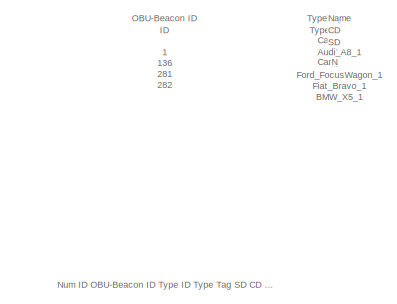
[diagram: root canvas - part 1/2, top right region]
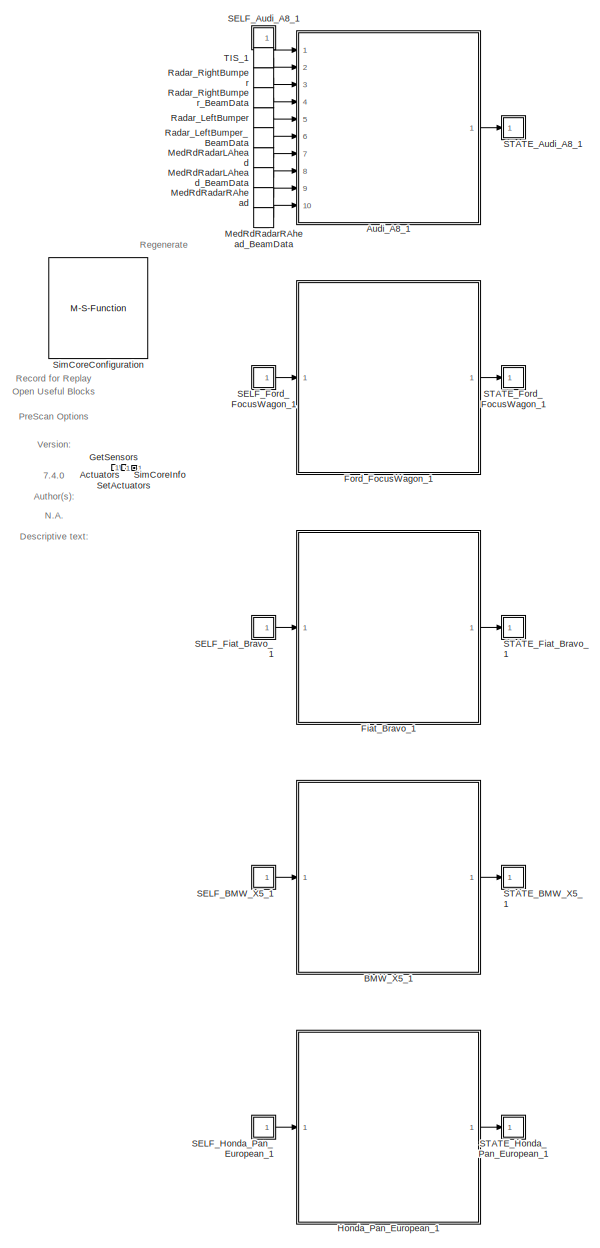
[diagram: root canvas - part 2/2, left side, full height]
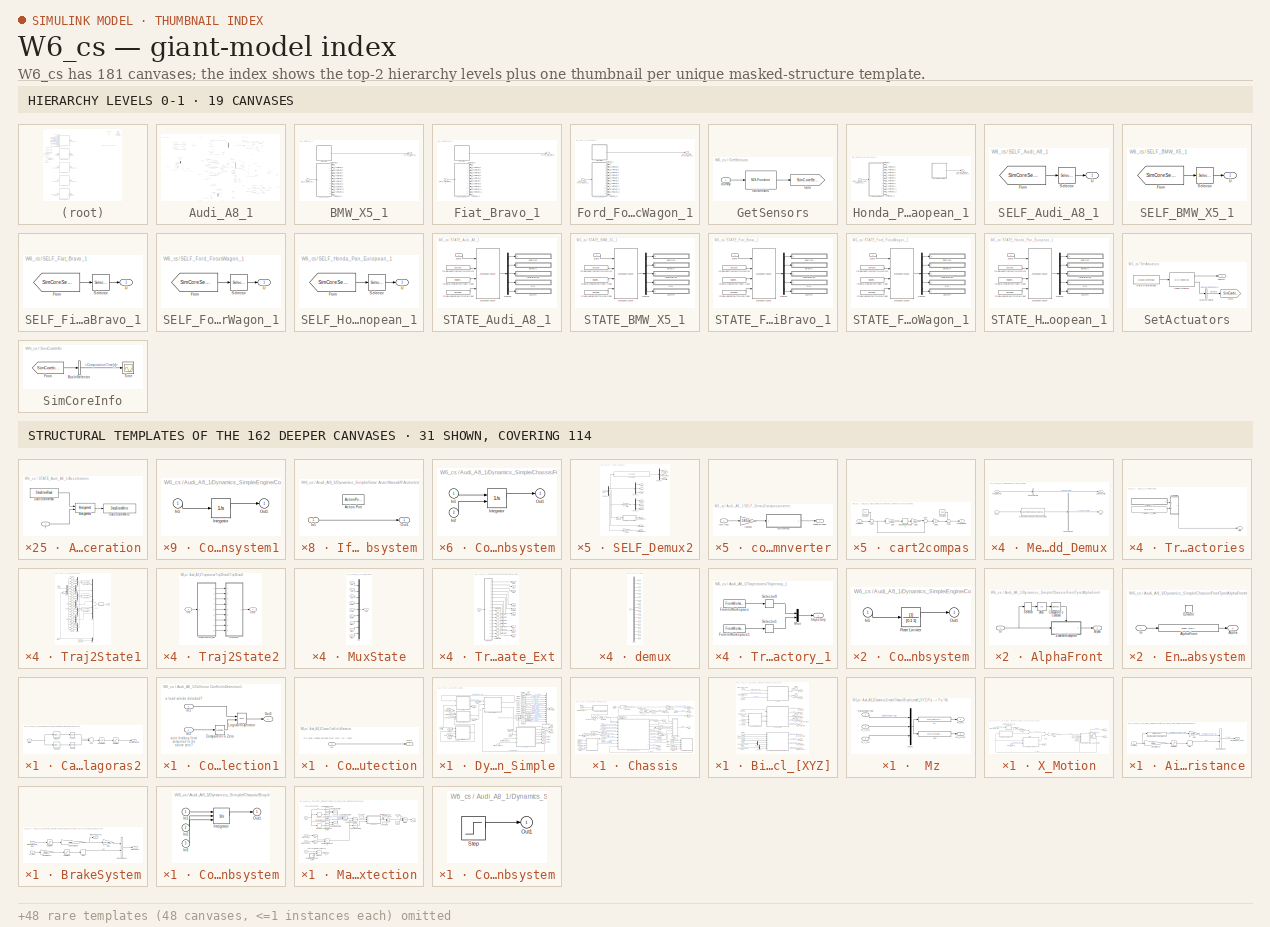
[diagram: thumbnail index - top-2 hierarchy levels (19 canvases) + 31 structural-template representatives of the remaining 162 canvases]
MODEL W6_cs
KIND model
CONFIG InitFcn = PreScanExperimentInitFcn(bdroot)
CONFIG PreLoadFcn = check_NUTS_defined;\n\nassignin('base',['model_closed_' bdroot],false);
CONFIG StopFcn = PreScanExperimentStopFcn(bdroot)\nclose all;\n\nformat shortg\nc = clock;\nlog_filename = ['log_EXT_',num2str(c(1)),'_',num2str(c(2)),'_',num2str(c(3)),'_',num2str(c(4)),'_',num2str(c(5)),'_',num2str(round(c(6)))];\nsave(log_filename,'res')
BLOCK [DataStoreMemory] Actuators
  DataStoreName = SimCoreActuators
  DeleteFcn = PreScanBlockDeleteFcn;
  InitialValue = zeros(75,1)
  SID = 11435
  Tag = Actuators
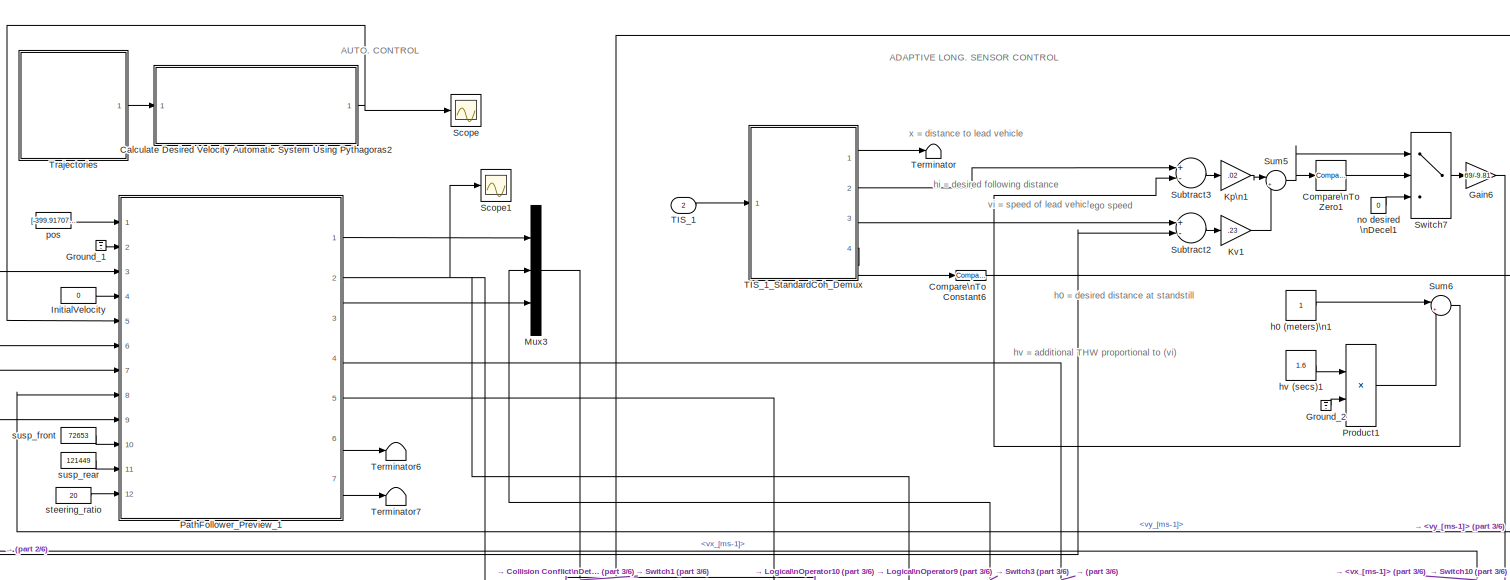
[diagram: Audi_A8_1 - part 1/6, top center region]
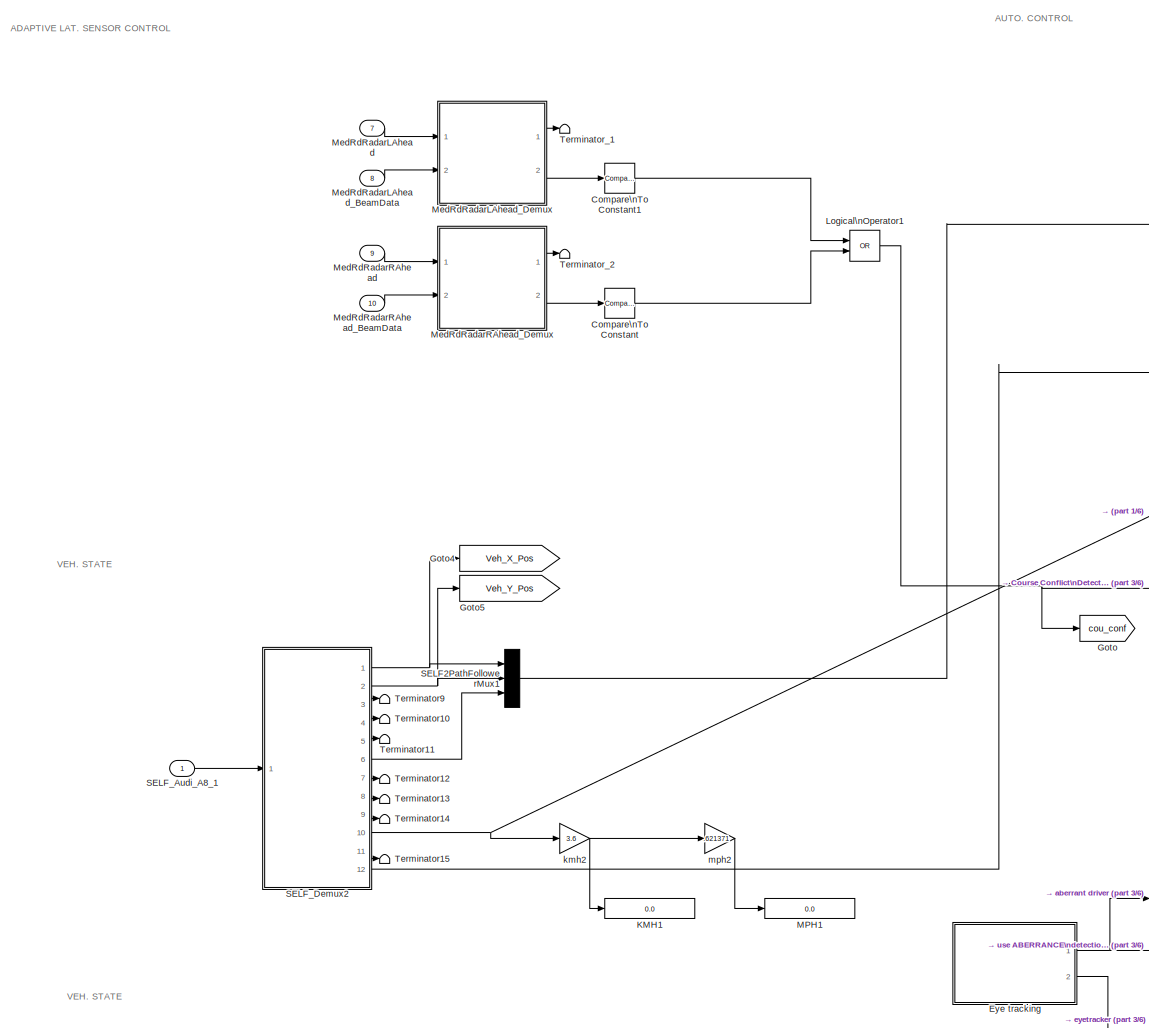
[diagram: Audi_A8_1 - part 2/6, top left region]
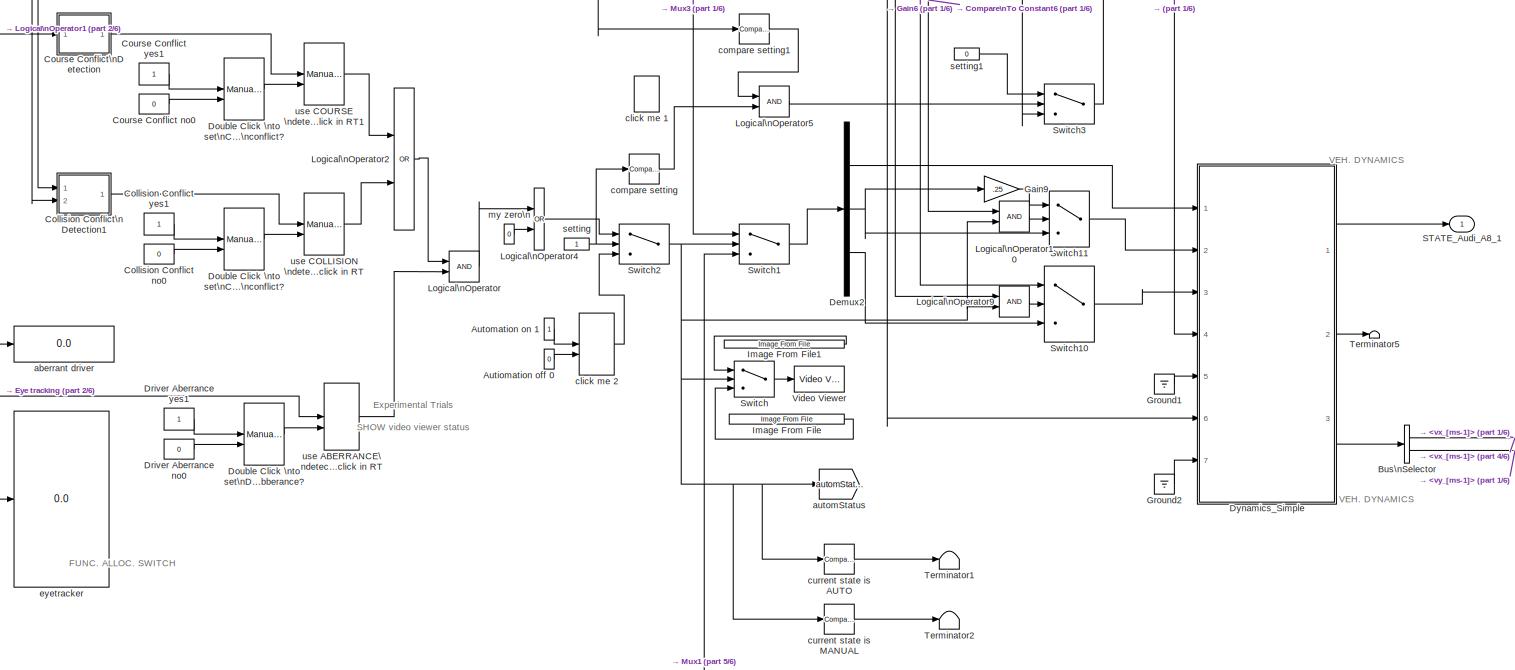
[diagram: Audi_A8_1 - part 3/6, central region]
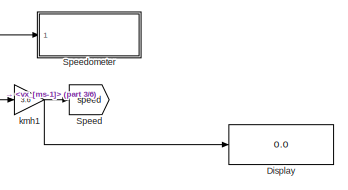
[diagram: Audi_A8_1 - part 4/6, middle right region]
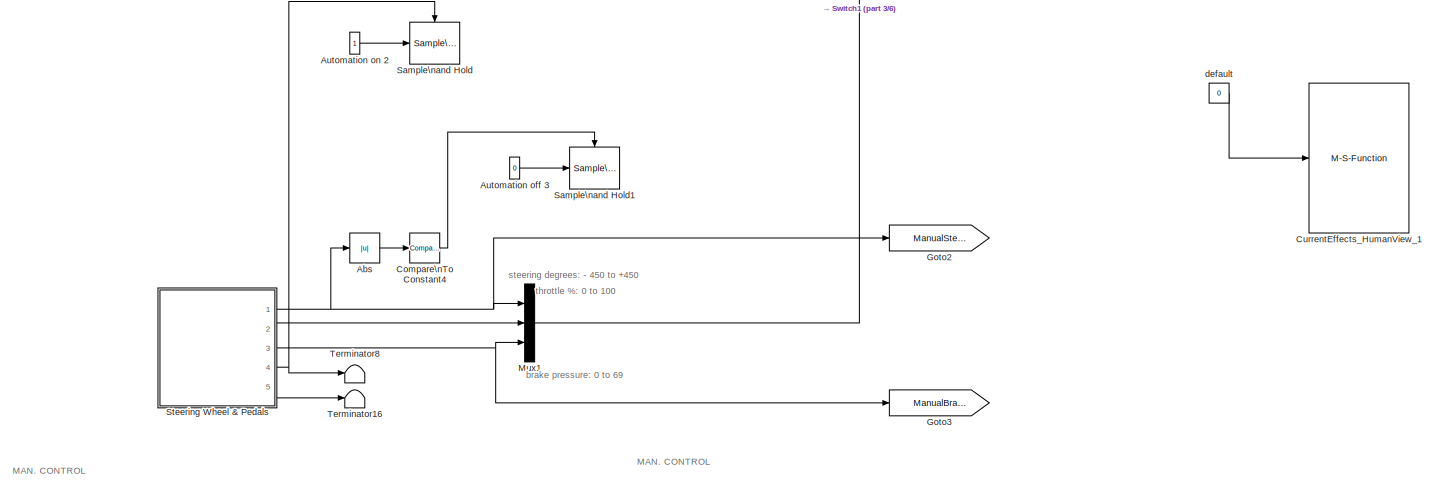
[diagram: Audi_A8_1 - part 5/6, bottom center region]
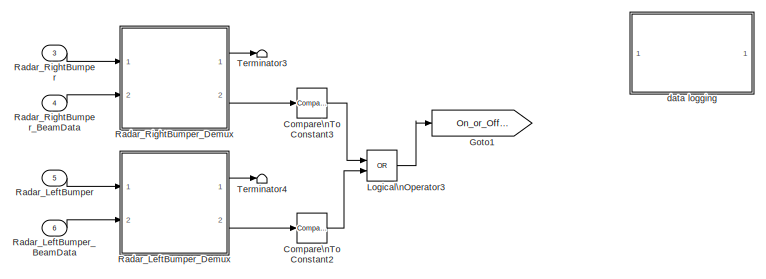
[diagram: Audi_A8_1 - part 6/6, bottom right region]
BLOCK [SubSystem] Audi_A8_1
  InitFcn = \nUniqueId = '3687';\nUniqueId = '4148';
  Ports = [10, 1]
  RequestExecContextInheritance = off
  SID = 4
  Tag = WorldObjectSubSystem
BLOCK [Abs] Audi_A8_1/Abs
  Commented = on
  SID = 21724
  SaturateOnIntegerOverflow = off
BLOCK [Constant] Audi_A8_1/Autiomation off 0
  SID = 12737
  Value = 0
BLOCK [Constant] Audi_A8_1/Automation off 3
  Commented = on
  SID = 21709
  Value = 0
BLOCK [Constant] Audi_A8_1/Automation on 1
  SID = 12738
BLOCK [Constant] Audi_A8_1/Automation on 2
  Commented = on
  SID = 21707
BLOCK [BusSelector] Audi_A8_1/Bus\nSelector
  OutputSignals = vx_[ms-1],vy_[ms-1]
  Ports = [1, 2]
  SID = 12739
BLOCK [SubSystem] Audi_A8_1/Calculate Desired Velocity Automatic System Using Pythagoras2
  Ports = [1, 1]
  RequestExecContextInheritance = off
  SID = 12740
BLOCK [Outport] Audi_A8_1/Calculate Desired Velocity Automatic System Using Pythagoras2/Desired Velocity
  IconDisplay = Port number
  SID = 12748
BLOCK [Saturate] Audi_A8_1/Calculate Desired Velocity Automatic System Using Pythagoras2/Saturation
  Commented = through
  InputPortMap = u0
  LinearizeAsGain = off
  LowerLimit = -1
  Ports = [1, 1]
  SID = 21721
  UpperLimit = 19.44
BLOCK [Selector] Audi_A8_1/Calculate Desired Velocity Automatic System Using Pythagoras2/Selector
  Indices = [4]
  InputPortWidth = 9
  Ports = [1, 1]
  SID = 12742
BLOCK [Selector] Audi_A8_1/Calculate Desired Velocity Automatic System Using Pythagoras2/Selector1
  Indices = [5]
  InputPortWidth = 9
  Ports = [1, 1]
  SID = 12743
BLOCK [Math] Audi_A8_1/Calculate Desired Velocity Automatic System Using Pythagoras2/Square
  Operator = square
  Ports = [1, 1]
  SID = 12744
BLOCK [Math] Audi_A8_1/Calculate Desired Velocity Automatic System Using Pythagoras2/Square2
  Operator = square
  Ports = [1, 1]
  SID = 12745
BLOCK [Inport] Audi_A8_1/Calculate Desired Velocity Automatic System Using Pythagoras2/State
  IconDisplay = Port number
  SID = 12741
BLOCK [Sqrt] Audi_A8_1/Calculate Desired Velocity Automatic System Using Pythagoras2/square root
  SID = 12746
BLOCK [Sum] Audi_A8_1/Calculate Desired Velocity Automatic System Using Pythagoras2/sum
  InputSameDT = off
  OutDataTypeStr = Inherit: Inherit via internal rule
  Ports = [2, 1]
  SID = 12747
  SaturateOnIntegerOverflow = off
BLOCK [Constant] Audi_A8_1/Collision Conflict no0
  SID = 12757
  Value = 0
BLOCK [Constant] Audi_A8_1/Collision Conflict yes1
  SID = 12758
BLOCK [SubSystem] Audi_A8_1/Collision Conflict\nDetection1
  Ports = [2, 1]
  RequestExecContextInheritance = off
  SID = 12749
BLOCK [Reference] Audi_A8_1/Collision Conflict\nDetection1/Compare\nTo Zero  REF=simulink/Logic and Bit\nOperations/Compare\nTo Zero
  OutDataTypeStr = boolean
  Ports = [1, 1]
  SID = 12752
  SourceBlock = simulink/Logic and Bit\nOperations/Compare\nTo Zero
  SourceType = Compare To Zero
  ZeroCross = on
  relop = >
BLOCK [Inport] Audi_A8_1/Collision Conflict\nDetection1/In1
  IconDisplay = Port number
  SID = 12750
BLOCK [Inport] Audi_A8_1/Collision Conflict\nDetection1/In2
  IconDisplay = Port number
  Port = 2
  SID = 12751
BLOCK [Logic] Audi_A8_1/Collision Conflict\nDetection1/Logical\nOperator
  AllPortsSameDT = off
  OutDataTypeStr = boolean
  Ports = [2, 1]
  SID = 12753
BLOCK [Outport] Audi_A8_1/Collision Conflict\nDetection1/Out3
  IconDisplay = Port number
  SID = 12754
BLOCK [Reference] Audi_A8_1/Compare\nTo Constant  REF=simulink/Logic and Bit\nOperations/Compare\nTo Constant
  OutDataTypeStr = boolean
  Ports = [1, 1]
  SID = 12759
  SourceBlock = simulink/Logic and Bit\nOperations/Compare\nTo Constant
  SourceType = Compare To Constant
  ZeroCross = on
  const = 11
  relop = ~=
BLOCK [Reference] Audi_A8_1/Compare\nTo Constant1  REF=simulink/Logic and Bit\nOperations/Compare\nTo Constant
  OutDataTypeStr = boolean
  Ports = [1, 1]
  SID = 12760
  SourceBlock = simulink/Logic and Bit\nOperations/Compare\nTo Constant
  SourceType = Compare To Constant
  ZeroCross = on
  const = 11
  relop = ~=
BLOCK [Reference] Audi_A8_1/Compare\nTo Constant2  REF=simulink/Logic and Bit\nOperations/Compare\nTo Constant
  OutDataTypeStr = boolean
  Ports = [1, 1]
  SID = 16824
  SourceBlock = simulink/Logic and Bit\nOperations/Compare\nTo Constant
  SourceType = Compare To Constant
  ZeroCross = on
  const = 11
  relop = ~=
BLOCK [Reference] Audi_A8_1/Compare\nTo Constant3  REF=simulink/Logic and Bit\nOperations/Compare\nTo Constant
  OutDataTypeStr = boolean
  Ports = [1, 1]
  SID = 16825
  SourceBlock = simulink/Logic and Bit\nOperations/Compare\nTo Constant
  SourceType = Compare To Constant
  ZeroCross = on
  const = 11
  relop = ~=
BLOCK [Reference] Audi_A8_1/Compare\nTo Constant4  REF=simulink/Logic and Bit\nOperations/Compare\nTo Constant
  Commented = on
  OutDataTypeStr = boolean
  Ports = [1, 1]
  SID = 21723
  SourceBlock = simulink/Logic and Bit\nOperations/Compare\nTo Constant
  SourceType = Compare To Constant
  ZeroCross = on
  const = 90
  relop = >=
BLOCK [Reference] Audi_A8_1/Compare\nTo Constant6  REF=simulink/Logic and Bit\nOperations/Compare\nTo Constant
  OutDataTypeStr = boolean
  Ports = [1, 1]
  SID = 20393
  SourceBlock = simulink/Logic and Bit\nOperations/Compare\nTo Constant
  SourceType = Compare To Constant
  ZeroCross = on
  const = 1
  relop = ==
BLOCK [Reference] Audi_A8_1/Compare\nTo Zero1  REF=simulink/Logic and Bit\nOperations/Compare\nTo Zero
  OutDataTypeStr = boolean
  Ports = [1, 1]
  SID = 12763
  SourceBlock = simulink/Logic and Bit\nOperations/Compare\nTo Zero
  SourceType = Compare To Zero
  ZeroCross = on
  relop = <
BLOCK [Constant] Audi_A8_1/Course Conflict no0
  SID = 12770
  Value = 0
BLOCK [Constant] Audi_A8_1/Course Conflict yes1
  SID = 12771
BLOCK [SubSystem] Audi_A8_1/Course Conflict\nDetection
  Ports = [1, 1]
  RequestExecContextInheritance = off
  SID = 12766
BLOCK [Inport] Audi_A8_1/Course Conflict\nDetection/In1
  IconDisplay = Port number
  SID = 12767
BLOCK [Outport] Audi_A8_1/Course Conflict\nDetection/Out3
  IconDisplay = Port number
  SID = 12768
BLOCK [M-S-Function] Audi_A8_1/CurrentEffects_HumanView_1
  FunctionName = RemoteViewerBlock
  Parameters = 2
  Ports = [1]
  SID = 13844
BLOCK [Demux] Audi_A8_1/Demux2
  DisplayOption = bar
  Outputs = 3
  Ports = [1, 3]
  SID = 12773
BLOCK [Display] Audi_A8_1/Display
  Decimation = 1
  Ports = [1]
  SID = 21383
BLOCK [ManualSwitch] Audi_A8_1/Double Click \nto set\nCOLLISION \nconflict?
  SID = 12779
BLOCK [ManualSwitch] Audi_A8_1/Double Click \nto set\nCOURSE \nconflict?
  SID = 12780
BLOCK [ManualSwitch] Audi_A8_1/Double Click \nto set\nDRIVER \nAbberance?
  CurrentSetting = 0
  SID = 12781
BLOCK [Constant] Audi_A8_1/Driver Aberrance no0
  SID = 12783
  Value = 0
BLOCK [Constant] Audi_A8_1/Driver Aberrance yes1
  SID = 12784
BLOCK [SubSystem] Audi_A8_1/Dynamics_Simple
  DeleteFcn = PreScanBlockDeleteFcn;
  Ports = [7, 3]
  RequestExecContextInheritance = off
  SID = 12786
  Tag = Simple_Vehicle_Dynamics
  UserData = DataTag1
  UserDataPersistent = on
BLOCK [Inport] Audi_A8_1/Dynamics_Simple/AutoManual_OnOff
  IconDisplay = Port number
  Port = 5
  SID = 12786:5
BLOCK [Inport] Audi_A8_1/Dynamics_Simple/Auto_GearShift
  IconDisplay = Port number
  Port = 6
  SID = 12786:6
BLOCK [Inport] Audi_A8_1/Dynamics_Simple/Brake
  IconDisplay = Port number
  Port = 3
  SID = 12786:3
BLOCK [BusCreator] Audi_A8_1/Dynamics_Simple/Bus\nCreator
  DisplayOption = bar
  Inputs = 14
  Ports = [14, 1]
  SID = 12786:8
BLOCK [SubSystem] Audi_A8_1/Dynamics_Simple/Chassis
  Ports = [4, 7]
  RequestExecContextInheritance = off
  SID = 12786:9
BLOCK [Abs] Audi_A8_1/Dynamics_Simple/Chassis/Abs
  SID = 12786:14
  SaturateOnIntegerOverflow = off
BLOCK [SubSystem] Audi_A8_1/Dynamics_Simple/Chassis/Bicycle_model_[XYZ]
  Ports = [9, 11]
  RequestExecContextInheritance = off
  SID = 12786:15
BLOCK [Inport] Audi_A8_1/Dynamics_Simple/Chassis/Bicycle_model_[XYZ]/BrakePressure_[bar]
  IconDisplay = Port number
  Port = 4
  SID = 12786:19
BLOCK [Inport] Audi_A8_1/Dynamics_Simple/Chassis/Bicycle_model_[XYZ]/DeltaWheel_[rad]
  IconDisplay = Port number
  SID = 12786:16
BLOCK [Demux] Audi_A8_1/Dynamics_Simple/Chassis/Bicycle_model_[XYZ]/Demux
  DisplayOption = bar
  Outputs = 2
  Ports = [1, 2]
  SID = 12786:25
BLOCK [Demux] Audi_A8_1/Dynamics_Simple/Chassis/Bicycle_model_[XYZ]/Demux1
  DisplayOption = bar
  Outputs = 2
  Ports = [1, 2]
  SID = 12786:26
BLOCK [Inport] Audi_A8_1/Dynamics_Simple/Chassis/Bicycle_model_[XYZ]/DriveTorque_[Nm]
  IconDisplay = Port number
  Port = 5
  SID = 12786:20
BLOCK [From] Audi_A8_1/Dynamics_Simple/Chassis/Bicycle_model_[XYZ]/From1
  CloseFcn = tagdialog Close
  GotoTag = ax
  SID = 12786:27
BLOCK [From] Audi_A8_1/Dynamics_Simple/Chassis/Bicycle_model_[XYZ]/From2
  CloseFcn = tagdialog Close
  GotoTag = ay
  SID = 12786:28
BLOCK [From] Audi_A8_1/Dynamics_Simple/Chassis/Bicycle_model_[XYZ]/From3
  CloseFcn = tagdialog Close
  GotoTag = vx
  SID = 12786:29
BLOCK [From] Audi_A8_1/Dynamics_Simple/Chassis/Bicycle_model_[XYZ]/From4
  CloseFcn = tagdialog Close
  GotoTag = dYaw
  SID = 12786:30
BLOCK [Inport] Audi_A8_1/Dynamics_Simple/Chassis/Bicycle_model_[XYZ]/Fy_front_[N]
  IconDisplay = Port number
  Port = 9
  SID = 12786:24
BLOCK [Inport] Audi_A8_1/Dynamics_Simple/Chassis/Bicycle_model_[XYZ]/Fy_rear_[N]
  IconDisplay = Port number
  Port = 8
  SID = 12786:23
BLOCK [SubSystem] Audi_A8_1/Dynamics_Simple/Chassis/Bicycle_model_[XYZ]/Fyi --> Fy // Mz
  Ports = [3, 2]
  RequestExecContextInheritance = off
  SID = 12786:31
BLOCK [Inport] Audi_A8_1/Dynamics_Simple/Chassis/Bicycle_model_[XYZ]/Fyi --> Fy // Mz/DeltaWheel_[rad]
  IconDisplay = Port number
  SID = 12786:32
BLOCK [Fcn] Audi_A8_1/Dynamics_Simple/Chassis/Bicycle_model_[XYZ]/Fyi --> Fy // Mz/Fy
  Expr = u(2)*cos(u(1)) + u(3)
  SID = 12786:35
BLOCK [Outport] Audi_A8_1/Dynamics_Simple/Chassis/Bicycle_model_[XYZ]/Fyi --> Fy // Mz/Fy_[N]
  IconDisplay = Port number
  InitialOutput = 0
  SID = 12786:38
BLOCK [Inport] Audi_A8_1/Dynamics_Simple/Chassis/Bicycle_model_[XYZ]/Fyi --> Fy // Mz/Fy_f_[N]
  IconDisplay = Port number
  Port = 2
  SID = 12786:33
BLOCK [Inport] Audi_A8_1/Dynamics_Simple/Chassis/Bicycle_model_[XYZ]/Fyi --> Fy // Mz/Fy_r_[N]
  IconDisplay = Port number
  Port = 3
  SID = 12786:34
BLOCK [Mux] Audi_A8_1/Dynamics_Simple/Chassis/Bicycle_model_[XYZ]/Fyi --> Fy // Mz/Mux1
  DisplayOption = bar
  Inputs = 3
  Ports = [3, 1]
  SID = 12786:36
BLOCK [Fcn] Audi_A8_1/Dynamics_Simple/Chassis/Bicycle_model_[XYZ]/Fyi --> Fy // Mz/Mz
  Expr = u(2)*p.a*cos(u(1)) - u(3)*p.b
  SID = 12786:37
BLOCK [Outport] Audi_A8_1/Dynamics_Simple/Chassis/Bicycle_model_[XYZ]/Fyi --> Fy // Mz/Mz_[Nm]
  IconDisplay = Port number
  InitialOutput = 0
  Port = 2
  SID = 12786:39
BLOCK [Goto] Audi_A8_1/Dynamics_Simple/Chassis/Bicycle_model_[XYZ]/Goto
  GotoTag = ax
  SID = 12786:40
BLOCK [Goto] Audi_A8_1/Dynamics_Simple/Chassis/Bicycle_model_[XYZ]/Goto1
  GotoTag = ay
  SID = 12786:41
BLOCK [Goto] Audi_A8_1/Dynamics_Simple/Chassis/Bicycle_model_[XYZ]/Goto2
  GotoTag = vx
  SID = 12786:42
BLOCK [Goto] Audi_A8_1/Dynamics_Simple/Chassis/Bicycle_model_[XYZ]/Goto3
  GotoTag = dYaw
  SID = 12786:43
BLOCK [Outport] Audi_A8_1/Dynamics_Simple/Chassis/Bicycle_model_[XYZ]/PitchAngle_[rad]
  IconDisplay = Port number
  Port = 8
  SID = 12786:213
BLOCK [Outport] Audi_A8_1/Dynamics_Simple/Chassis/Bicycle_model_[XYZ]/RollAngle_[rad]
  IconDisplay = Port number
  Port = 4
  SID = 12786:209
BLOCK [Outport] Audi_A8_1/Dynamics_Simple/Chassis/Bicycle_model_[XYZ]/RollRate_[rads-1]
  IconDisplay = Port number
  Port = 5
  SID = 12786:210
BLOCK [Outport] Audi_A8_1/Dynamics_Simple/Chassis/Bicycle_model_[XYZ]/Vx_[ms-1]
  IconDisplay = Port number
  Port = 7
  SID = 12786:212
BLOCK [SubSystem] Audi_A8_1/Dynamics_Simple/Chassis/Bicycle_model_[XYZ]/X_Motion
  Ports = [3, 2]
  RequestExecContextInheritance = off
  SID = 12786:44
BLOCK [SubSystem] Audi_A8_1/Dynamics_Simple/Chassis/Bicycle_model_[XYZ]/X_Motion/Air&RoadResistance
  Ports = [1, 1]
  RequestExecContextInheritance = off
  SID = 12786:48
BLOCK [Gain] Audi_A8_1/Dynamics_Simple/Chassis/Bicycle_model_[XYZ]/X_Motion/Air&RoadResistance/Gain
  Gain = 1/p.Rw
  OutDataTypeStr = Inherit: Inherit via internal rule
  ParamDataTypeStr = Inherit: Inherit via internal rule
  SID = 12786:50
  SaturateOnIntegerOverflow = off
BLOCK [Outport] Audi_A8_1/Dynamics_Simple/Chassis/Bicycle_model_[XYZ]/X_Motion/Air&RoadResistance/Resistance_Force
  IconDisplay = Port number
  SID = 12786:56
BLOCK [Fcn] Audi_A8_1/Dynamics_Simple/Chassis/Bicycle_model_[XYZ]/X_Motion/Air&RoadResistance/Road & Aerodyn Resistances
  Expr = p.Rroad + p.Rair*u^2
  SID = 12786:51
BLOCK [Saturate] Audi_A8_1/Dynamics_Simple/Chassis/Bicycle_model_[XYZ]/X_Motion/Air&RoadResistance/Saturation1
  InputPortMap = u0
  LowerLimit = -5/15
  Ports = [1, 1]
  SID = 12786:52
  UpperLimit = 5/15
BLOCK [Signum] Audi_A8_1/Dynamics_Simple/Chassis/Bicycle_model_[XYZ]/X_Motion/Air&RoadResistance/Sign
  SID = 12786:53
BLOCK [Gain] Audi_A8_1/Dynamics_Simple/Chassis/Bicycle_model_[XYZ]/X_Motion/Air&RoadResistance/[ms-1] 2 [rads-1]
  Gain = 1/p.Rw
  SID = 12786:54
BLOCK [Product] Audi_A8_1/Dynamics_Simple/Chassis/Bicycle_model_[XYZ]/X_Motion/Air&RoadResistance/signed\nload1
  Ports = [2, 1]
  RndMeth = Floor
  SID = 12786:55
BLOCK [Inport] Audi_A8_1/Dynamics_Simple/Chassis/Bicycle_model_[XYZ]/X_Motion/Air&RoadResistance/vx_[ms-1]
  IconDisplay = Port number
  SID = 12786:49
BLOCK [Inport] Audi_A8_1/Dynamics_Simple/Chassis/Bicycle_model_[XYZ]/X_Motion/BrakePressure_[bar]
  IconDisplay = Port number
  Port = 2
  SID = 12786:46
BLOCK [SubSystem] Audi_A8_1/Dynamics_Simple/Chassis/Bicycle_model_[XYZ]/X_Motion/BrakeSystem
  Ports = [2, 2]
  RequestExecContextInheritance = off
  SID = 12786:57
BLOCK [Outport] Audi_A8_1/Dynamics_Simple/Chassis/Bicycle_model_[XYZ]/X_Motion/BrakeSystem/BrakeForce
  IconDisplay = Port number
  SID = 12786:67
BLOCK [Inport] Audi_A8_1/Dynamics_Simple/Chassis/Bicycle_model_[XYZ]/X_Motion/BrakeSystem/BrakePressure_[bar]
  IconDisplay = Port number
  Port = 2
  SID = 12786:59
BLOCK [Outport] Audi_A8_1/Dynamics_Simple/Chassis/Bicycle_model_[XYZ]/X_Motion/BrakeSystem/BrakeTorqueAbs
  IconDisplay = Port number
  Port = 2
  SID = 12786:68
BLOCK [Gain] Audi_A8_1/Dynamics_Simple/Chassis/Bicycle_model_[XYZ]/X_Motion/BrakeSystem/Gain
  Gain = 1/p.Rw
  OutDataTypeStr = Inherit: Inherit via internal rule
  ParamDataTypeStr = Inherit: Inherit via internal rule
  SID = 12786:60
  SaturateOnIntegerOverflow = off
BLOCK [Saturate] Audi_A8_1/Dynamics_Simple/Chassis/Bicycle_model_[XYZ]/X_Motion/BrakeSystem/Saturation
  InputPortMap = u0
  LowerLimit = 0
  Ports = [1, 1]
  SID = 12786:61
  UpperLimit = p.PBrakeMax
BLOCK [Saturate] Audi_A8_1/Dynamics_Simple/Chassis/Bicycle_model_[XYZ]/X_Motion/BrakeSystem/Saturation1
  InputPortMap = u0
  LowerLimit = -5/15
  Ports = [1, 1]
  SID = 12786:62
  UpperLimit = 5/15
BLOCK [Signum] Audi_A8_1/Dynamics_Simple/Chassis/Bicycle_model_[XYZ]/X_Motion/BrakeSystem/Sign
  SID = 12786:63
BLOCK [Gain] Audi_A8_1/Dynamics_Simple/Chassis/Bicycle_model_[XYZ]/X_Motion/BrakeSystem/[ms-1] 2 [rads-1]
  Gain = 1/p.Rw
  SID = 12786:64
BLOCK [Gain] Audi_A8_1/Dynamics_Simple/Chassis/Bicycle_model_[XYZ]/X_Motion/BrakeSystem/braking Q factor
  Gain = p.Qfac
  SID = 12786:65
BLOCK [Product] Audi_A8_1/Dynamics_Simple/Chassis/Bicycle_model_[XYZ]/X_Motion/BrakeSystem/signed\nload1
  Ports = [2, 1]
  RndMeth = Floor
  SID = 12786:66
BLOCK [Inport] Audi_A8_1/Dynamics_Simple/Chassis/Bicycle_model_[XYZ]/X_Motion/BrakeSystem/vx_[ms-1]
  IconDisplay = Port number
  SID = 12786:58
BLOCK [SubSystem] Audi_A8_1/Dynamics_Simple/Chassis/Bicycle_model_[XYZ]/X_Motion/Configurable\nSubsystem
  AttributesFormatString = %<BlockChoice>
  BlockChoice = Integrator
  MemberBlocks = Discrete-Time Integrator,Integrator
  OpenFcn = BringToFront(gcb);
  Ports = [3, 1]
  RequestExecContextInheritance = off
  SID = 12786:69
  ShowPortLabels = none
  TemplateBlock = PreScanSimulinkLibrary/Configurable Subsystems/integral with reset and initial condition/Configurable\nSubsystem
BLOCK [Inport] Audi_A8_1/Dynamics_Simple/Chassis/Bicycle_model_[XYZ]/X_Motion/Configurable\nSubsystem/In1
  IconDisplay = Port number
  SID = 12786:69::1
BLOCK [Inport] Audi_A8_1/Dynamics_Simple/Chassis/Bicycle_model_[XYZ]/X_Motion/Configurable\nSubsystem/In2
  IconDisplay = Port number
  Port = 2
  SID = 12786:69::2
BLOCK [Inport] Audi_A8_1/Dynamics_Simple/Chassis/Bicycle_model_[XYZ]/X_Motion/Configurable\nSubsystem/In3
  IconDisplay = Port number
  Port = 3
  SID = 12786:69::3
BLOCK [Integrator] Audi_A8_1/Dynamics_Simple/Chassis/Bicycle_model_[XYZ]/X_Motion/Configurable\nSubsystem/Integrator
  ExternalReset = level
  InitialConditionSource = external
  Ports = [3, 1]
  SID = 12786:69::4
BLOCK [Outport] Audi_A8_1/Dynamics_Simple/Chassis/Bicycle_model_[XYZ]/X_Motion/Configurable\nSubsystem/Out1
  IconDisplay = Port number
  SID = 12786:69::5
BLOCK [SubSystem] Audi_A8_1/Dynamics_Simple/Chassis/Bicycle_model_[XYZ]/X_Motion/Configurable\nSubsystem1
  AttributesFormatString = %<BlockChoice>
  BlockChoice = Torsional damping
  MemberBlocks = Discrete Torsional damping,Torsional damping
  OpenFcn = BringToFront(gcb);
  Ports = [1, 1]
  RequestExecContextInheritance = off
  SID = 12786:70
  ShowPortLabels = none
  TemplateBlock = PreScanSimulinkLibrary/Configurable Subsystems/TransferFunction\nTorsional damping/Configurable\nSubsystem
BLOCK [Inport] Audi_A8_1/Dynamics_Simple/Chassis/Bicycle_model_[XYZ]/X_Motion/Configurable\nSubsystem1/In1
  IconDisplay = Port number
  SID = 12786:70::1
BLOCK [Outport] Audi_A8_1/Dynamics_Simple/Chassis/Bicycle_model_[XYZ]/X_Motion/Configurable\nSubsystem1/Out1
  IconDisplay = Port number
  SID = 12786:70::3
BLOCK [TransferFcn] Audi_A8_1/Dynamics_Simple/Chassis/Bicycle_model_[XYZ]/X_Motion/Configurable\nSubsystem1/Torsional damping
  Denominator = [0.1 1]
  SID = 12786:70::211
BLOCK [Inport] Audi_A8_1/Dynamics_Simple/Chassis/Bicycle_model_[XYZ]/X_Motion/DriveTorque_[Nm]
  IconDisplay = Port number
  SID = 12786:45
BLOCK [From] Audi_A8_1/Dynamics_Simple/Chassis/Bicycle_model_[XYZ]/X_Motion/From2
  CloseFcn = tagdialog Close
  GotoTag = DT
  SID = 12786:71
BLOCK [From] Audi_A8_1/Dynamics_Simple/Chassis/Bicycle_model_[XYZ]/X_Motion/From3
  CloseFcn = tagdialog Close
  GotoTag = BT
  SID = 12786:72
BLOCK [Gain] Audi_A8_1/Dynamics_Simple/Chassis/Bicycle_model_[XYZ]/X_Motion/Gain
  Gain = 1/p.Rw
  OutDataTypeStr = Inherit: Inherit via internal rule
  ParamDataTypeStr = Inherit: Inherit via internal rule
  SID = 12786:73
  SaturateOnIntegerOverflow = off
BLOCK [Goto] Audi_A8_1/Dynamics_Simple/Chassis/Bicycle_model_[XYZ]/X_Motion/Goto
  GotoTag = DT
  SID = 12786:74
BLOCK [Goto] Audi_A8_1/Dynamics_Simple/Chassis/Bicycle_model_[XYZ]/X_Motion/Goto1
  GotoTag = BT
  SID = 12786:75
BLOCK [Gain] Audi_A8_1/Dynamics_Simple/Chassis/Bicycle_model_[XYZ]/X_Motion/Inertia
  Gain = 1/p.m
  SID = 12786:76
BLOCK [SubSystem] Audi_A8_1/Dynamics_Simple/Chassis/Bicycle_model_[XYZ]/X_Motion/Max RPM and zero-\nvelocity detection
  Ports = [5, 3]
  RequestExecContextInheritance = off
  SID = 12786:77
BLOCK [Abs] Audi_A8_1/Dynamics_Simple/Chassis/Bicycle_model_[XYZ]/X_Motion/Max RPM and zero-\nvelocity detection/Abs
  SID = 12786:83
  SaturateOnIntegerOverflow = off
BLOCK [Abs] Audi_A8_1/Dynamics_Simple/Chassis/Bicycle_model_[XYZ]/X_Motion/Max RPM and zero-\nvelocity detection/Abs1
  SID = 12786:84
  SaturateOnIntegerOverflow = off
BLOCK [Inport] Audi_A8_1/Dynamics_Simple/Chassis/Bicycle_model_[XYZ]/X_Motion/Max RPM and zero-\nvelocity detection/Brake Torque
  IconDisplay = Port number
  Port = 3
  SID = 12786:80
BLOCK [Reference] Audi_A8_1/Dynamics_Simple/Chassis/Bicycle_model_[XYZ]/X_Motion/Max RPM and zero-\nvelocity detection/Compare\nTo Zero  REF=simulink/Logic and Bit\nOperations/Compare\nTo Zero
  OutDataTypeStr = boolean
  Ports = [1, 1]
  SID = 12786:85
  SourceBlock = simulink/Logic and Bit\nOperations/Compare\nTo Zero
  SourceType = Compare To Zero
  ZeroCross = off
  relop = <=
BLOCK [Reference] Audi_A8_1/Dynamics_Simple/Chassis/Bicycle_model_[XYZ]/X_Motion/Max RPM and zero-\nvelocity detection/Compare\nTo Zero1  REF=simulink/Logic and Bit\nOperations/Compare\nTo Zero
  OutDataTypeStr = boolean
  Ports = [1, 1]
  SID = 12786:86
  SourceBlock = simulink/Logic and Bit\nOperations/Compare\nTo Zero
  SourceType = Compare To Zero
  ZeroCross = off
  relop = >=
BLOCK [Reference] Audi_A8_1/Dynamics_Simple/Chassis/Bicycle_model_[XYZ]/X_Motion/Max RPM and zero-\nvelocity detection/Compare\nTo Zero2  REF=simulink/Logic and Bit\nOperations/Compare\nTo Zero
  OutDataTypeStr = boolean
  Ports = [1, 1]
  SID = 12786:87
  SourceBlock = simulink/Logic and Bit\nOperations/Compare\nTo Zero
  SourceType = Compare To Zero
  ZeroCross = off
  relop = >=
BLOCK [Reference] Audi_A8_1/Dynamics_Simple/Chassis/Bicycle_model_[XYZ]/X_Motion/Max RPM and zero-\nvelocity detection/Compare\nTo Zero3  REF=simulink/Logic and Bit\nOperations/Compare\nTo Zero
  OutDataTypeStr = boolean
  Ports = [1, 1]
  SID = 12786:88
  SourceBlock = simulink/Logic and Bit\nOperations/Compare\nTo Zero
  SourceType = Compare To Zero
  ZeroCross = off
  relop = <=
BLOCK [SubSystem] Audi_A8_1/Dynamics_Simple/Chassis/Bicycle_model_[XYZ]/X_Motion/Max RPM and zero-\nvelocity detection/Configurable\nSubsystem
  AttributesFormatString = %<BlockChoice>
  BlockChoice = Step
  MemberBlocks = Discrete Step,Step
  OpenFcn = BringToFront(gcb);
  Ports = [0, 1]
  RequestExecContextInheritance = off
  SID = 12786:89
  ShowPortLabels = none
  TemplateBlock = PreScanSimulinkLibrary/Configurable Subsystems/Step Function/Configurable\nSubsystem
BLOCK [Outport] Audi_A8_1/Dynamics_Simple/Chassis/Bicycle_model_[XYZ]/X_Motion/Max RPM and zero-\nvelocity detection/Configurable\nSubsystem/Out1
  IconDisplay = Port number
  SID = 12786:89::2
BLOCK [Step] Audi_A8_1/Dynamics_Simple/Chassis/Bicycle_model_[XYZ]/X_Motion/Max RPM and zero-\nvelocity detection/Configurable\nSubsystem/Step
  After = 0
  Before = 1
  SID = 12786:89::203
  SampleTime = 0
  Time = 0.0001
BLOCK [Constant] Audi_A8_1/Dynamics_Simple/Chassis/Bicycle_model_[XYZ]/X_Motion/Max RPM and zero-\nvelocity detection/Constant
  SID = 12786:90
BLOCK [Constant] Audi_A8_1/Dynamics_Simple/Chassis/Bicycle_model_[XYZ]/X_Motion/Max RPM and zero-\nvelocity detection/Constant1
  SID = 12786:91
BLOCK [Inport] Audi_A8_1/Dynamics_Simple/Chassis/Bicycle_model_[XYZ]/X_Motion/Max RPM and zero-\nvelocity detection/Drive Torque
  IconDisplay = Port number
  Port = 2
  SID = 12786:79
BLOCK [Logic] Audi_A8_1/Dynamics_Simple/Chassis/Bicycle_model_[XYZ]/X_Motion/Max RPM and zero-\nvelocity detection/Logical\nOperator
  AllPortsSameDT = off
  OutDataTypeStr = boolean
  Ports = [2, 1]
  SID = 12786:92
BLOCK [Logic] Audi_A8_1/Dynamics_Simple/Chassis/Bicycle_model_[XYZ]/X_Motion/Max RPM and zero-\nvelocity detection/Logical\nOperator1
  AllPortsSameDT = off
  OutDataTypeStr = boolean
  Ports = [2, 1]
  SID = 12786:93
BLOCK [Logic] Audi_A8_1/Dynamics_Simple/Chassis/Bicycle_model_[XYZ]/X_Motion/Max RPM and zero-\nvelocity detection/Logical\nOperator2
  AllPortsSameDT = off
  Operator = NOT
  OutDataTypeStr = boolean
  Ports = [1, 1]
  SID = 12786:94
BLOCK [Logic] Audi_A8_1/Dynamics_Simple/Chassis/Bicycle_model_[XYZ]/X_Motion/Max RPM and zero-\nvelocity detection/Logical\nOperator3
  AllPortsSameDT = off
  OutDataTypeStr = boolean
  Ports = [2, 1]
  SID = 12786:95
BLOCK [Logic] Audi_A8_1/Dynamics_Simple/Chassis/Bicycle_model_[XYZ]/X_Motion/Max RPM and zero-\nvelocity detection/Logical\nOperator4
  AllPortsSameDT = off
  Operator = OR
  OutDataTypeStr = boolean
  Ports = [2, 1]
  SID = 12786:96
BLOCK [Memory] Audi_A8_1/Dynamics_Simple/Chassis/Bicycle_model_[XYZ]/X_Motion/Max RPM and zero-\nvelocity detection/Memory
  SID = 12786:97
BLOCK [Memory] Audi_A8_1/Dynamics_Simple/Chassis/Bicycle_model_[XYZ]/X_Motion/Max RPM and zero-\nvelocity detection/Memory1
  SID = 12786:98
BLOCK [Memory] Audi_A8_1/Dynamics_Simple/Chassis/Bicycle_model_[XYZ]/X_Motion/Max RPM and zero-\nvelocity detection/Memory2
  SID = 12786:99
BLOCK [Product] Audi_A8_1/Dynamics_Simple/Chassis/Bicycle_model_[XYZ]/X_Motion/Max RPM and zero-\nvelocity detection/Product
  InputSameDT = off
  OutDataTypeStr = Inherit: Inherit via internal rule
  Ports = [2, 1]
  SID = 12786:100
  SaturateOnIntegerOverflow = off
BLOCK [RelationalOperator] Audi_A8_1/Dynamics_Simple/Chassis/Bicycle_model_[XYZ]/X_Motion/Max RPM and zero-\nvelocity detection/Relational\nOperator
  InputSameDT = off
  Operator = <
  OutDataTypeStr = boolean
  Ports = [2, 1]
  SID = 12786:101
BLOCK [SubSystem] Audi_A8_1/Dynamics_Simple/Chassis/Bicycle_model_[XYZ]/X_Motion/Max RPM and zero-\nvelocity detection/SR-Memory
  Ports = [3, 1]
  RequestExecContextInheritance = off
  SID = 12786:102
BLOCK [Constant] Audi_A8_1/Dynamics_Simple/Chassis/Bicycle_model_[XYZ]/X_Motion/Max RPM and zero-\nvelocity detection/SR-Memory/Constant
  SID = 12786:106
  Value = 0
BLOCK [Reference] Audi_A8_1/Dynamics_Simple/Chassis/Bicycle_model_[XYZ]/X_Motion/Max RPM and zero-\nvelocity detection/SR-Memory/Detect Rise\nPositive  REF=simulink/Logic and Bit\nOperations/Detect Rise\nPositive
  InputProcessing = Inherited
  OutDataTypeStr = uint8
  Ports = [1, 1]
  SID = 12786:107
  SourceBlock = simulink/Logic and Bit\nOperations/Detect Rise\nPositive
  SourceType = Detect Rise Positive
  vinit = 0
BLOCK [Reference] Audi_A8_1/Dynamics_Simple/Chassis/Bicycle_model_[XYZ]/X_Motion/Max RPM and zero-\nvelocity detection/SR-Memory/Detect Rise\nPositive1  REF=simulink/Logic and Bit\nOperations/Detect Rise\nPositive
  InputProcessing = Inherited
  OutDataTypeStr = uint8
  Ports = [1, 1]
  SID = 12786:108
  SourceBlock = simulink/Logic and Bit\nOperations/Detect Rise\nPositive
  SourceType = Detect Rise Positive
  vinit = 0
BLOCK [ManualSwitch] Audi_A8_1/Dynamics_Simple/Chassis/Bicycle_model_[XYZ]/X_Motion/Max RPM and zero-\nvelocity detection/SR-Memory/Manual Switch
  SID = 12786:109
BLOCK [ManualSwitch] Audi_A8_1/Dynamics_Simple/Chassis/Bicycle_model_[XYZ]/X_Motion/Max RPM and zero-\nvelocity detection/SR-Memory/Manual Switch1
  SID = 12786:110
BLOCK [Outport] Audi_A8_1/Dynamics_Simple/Chassis/Bicycle_model_[XYZ]/X_Motion/Max RPM and zero-\nvelocity detection/SR-Memory/Out
  IconDisplay = Port number
  SID = 12786:114
BLOCK [Inport] Audi_A8_1/Dynamics_Simple/Chassis/Bicycle_model_[XYZ]/X_Motion/Max RPM and zero-\nvelocity detection/SR-Memory/Reset
  IconDisplay = Port number
  Port = 3
  SID = 12786:105
BLOCK [Inport] Audi_A8_1/Dynamics_Simple/Chassis/Bicycle_model_[XYZ]/X_Motion/Max RPM and zero-\nvelocity detection/SR-Memory/Set
  IconDisplay = Port number
  Port = 2
  SID = 12786:104
BLOCK [Inport] Audi_A8_1/Dynamics_Simple/Chassis/Bicycle_model_[XYZ]/X_Motion/Max RPM and zero-\nvelocity detection/SR-Memory/Signal
  IconDisplay = Port number
  SID = 12786:103
BLOCK [Switch] Audi_A8_1/Dynamics_Simple/Chassis/Bicycle_model_[XYZ]/X_Motion/Max RPM and zero-\nvelocity detection/SR-Memory/Switch
  Criteria = u2 ~= 0
  InputSameDT = off
  SID = 12786:111
  SaturateOnIntegerOverflow = off
BLOCK [Switch] Audi_A8_1/Dynamics_Simple/Chassis/Bicycle_model_[XYZ]/X_Motion/Max RPM and zero-\nvelocity detection/SR-Memory/Switch1
  Criteria = u2 ~= 0
  InputSameDT = off
  SID = 12786:112
  SaturateOnIntegerOverflow = off
BLOCK [UnitDelay] Audi_A8_1/Dynamics_Simple/Chassis/Bicycle_model_[XYZ]/X_Motion/Max RPM and zero-\nvelocity detection/SR-Memory/Unit Delay
  SID = 12786:113
  SampleTime = -1
BLOCK [Sum] Audi_A8_1/Dynamics_Simple/Chassis/Bicycle_model_[XYZ]/X_Motion/Max RPM and zero-\nvelocity detection/Sum
  IconShape = round
  InputSameDT = off
  Inputs = |-+
  OutDataTypeStr = Inherit: Inherit via internal rule
  Ports = [2, 1]
  SID = 12786:115
  SaturateOnIntegerOverflow = off
BLOCK [Switch] Audi_A8_1/Dynamics_Simple/Chassis/Bicycle_model_[XYZ]/X_Motion/Max RPM and zero-\nvelocity detection/Switch
  Criteria = u2 ~= 0
  InputSameDT = off
  SID = 12786:116
  SaturateOnIntegerOverflow = off
  Threshold = 0.5
BLOCK [Inport] Audi_A8_1/Dynamics_Simple/Chassis/Bicycle_model_[XYZ]/X_Motion/Max RPM and zero-\nvelocity detection/ax
  IconDisplay = Port number
  SID = 12786:78
BLOCK [Constant] Audi_A8_1/Dynamics_Simple/Chassis/Bicycle_model_[XYZ]/X_Motion/Max RPM and zero-\nvelocity detection/ax is 0
  SID = 12786:117
  Value = 0
BLOCK [Outport] Audi_A8_1/Dynamics_Simple/Chassis/Bicycle_model_[XYZ]/X_Motion/Max RPM and zero-\nvelocity detection/ax_out
  IconDisplay = Port number
  SID = 12786:118
BLOCK [Inport] Audi_A8_1/Dynamics_Simple/Chassis/Bicycle_model_[XYZ]/X_Motion/Max RPM and zero-\nvelocity detection/v0
  IconDisplay = Port number
  Port = 4
  SID = 12786:81
BLOCK [Inport] Audi_A8_1/Dynamics_Simple/Chassis/Bicycle_model_[XYZ]/X_Motion/Max RPM and zero-\nvelocity detection/vx
  IconDisplay = Port number
  Port = 5
  SID = 12786:82
BLOCK [Outport] Audi_A8_1/Dynamics_Simple/Chassis/Bicycle_model_[XYZ]/X_Motion/Max RPM and zero-\nvelocity detection/vx_reset
  IconDisplay = Port number
  Port = 2
  SID = 12786:119
BLOCK [Outport] Audi_A8_1/Dynamics_Simple/Chassis/Bicycle_model_[XYZ]/X_Motion/Max RPM and zero-\nvelocity detection/x0
  IconDisplay = Port number
  Port = 3
  SID = 12786:120
BLOCK [Sum] Audi_A8_1/Dynamics_Simple/Chassis/Bicycle_model_[XYZ]/X_Motion/Sum
  Inputs = +-
  Ports = [2, 1]
  SID = 12786:121
BLOCK [Sum] Audi_A8_1/Dynamics_Simple/Chassis/Bicycle_model_[XYZ]/X_Motion/Sum2
  Inputs = +-
  Ports = [2, 1]
  SID = 12786:122
BLOCK [Outport] Audi_A8_1/Dynamics_Simple/Chassis/Bicycle_model_[XYZ]/X_Motion/ax_[ms-2]
  IconDisplay = Port number
  Port = 2
  SID = 12786:124
BLOCK [Inport] Audi_A8_1/Dynamics_Simple/Chassis/Bicycle_model_[XYZ]/X_Motion/v0_[ms-1]
  IconDisplay = Port number
  Port = 3
  SID = 12786:47
BLOCK [Outport] Audi_A8_1/Dynamics_Simple/Chassis/Bicycle_model_[XYZ]/X_Motion/vx_[ms-1]
  IconDisplay = Port number
  SID = 12786:123
BLOCK [SubSystem] Audi_A8_1/Dynamics_Simple/Chassis/Bicycle_model_[XYZ]/Y & Yaw_Motion
  Ports = [3, 5]
  RequestExecContextInheritance = off
  SID = 12786:125
BLOCK [Reference] Audi_A8_1/Dynamics_Simple/Chassis/Bicycle_model_[XYZ]/Y & Yaw_Motion/Compare\nTo Zero  REF=simulink/Logic and Bit\nOperations/Compare\nTo Zero
  OutDataTypeStr = boolean
  Ports = [1, 1]
  SID = 12786:129
  SourceBlock = simulink/Logic and Bit\nOperations/Compare\nTo Zero
  SourceType = Compare To Zero
  ZeroCross = off
  relop = ==
BLOCK [SubSystem] Audi_A8_1/Dynamics_Simple/Chassis/Bicycle_model_[XYZ]/Y & Yaw_Motion/Configurable\nSubsystem
  AttributesFormatString = %<BlockChoice>
  BlockChoice = Integrator
  MemberBlocks = Discrete-Time Integrator,Integrator
  OpenFcn = BringToFront(gcb);
  Ports = [2, 1]
  RequestExecContextInheritance = off
  SID = 12786:130
  ShowPortLabels = none
  TemplateBlock = PreScanSimulinkLibrary/Configurable Subsystems/integral with reset/Configurable\nSubsystem
BLOCK [Inport] Audi_A8_1/Dynamics_Simple/Chassis/Bicycle_model_[XYZ]/Y & Yaw_Motion/Configurable\nSubsystem/In1
  IconDisplay = Port number
  SID = 12786:130::1
BLOCK [Inport] Audi_A8_1/Dynamics_Simple/Chassis/Bicycle_model_[XYZ]/Y & Yaw_Motion/Configurable\nSubsystem/In2
  IconDisplay = Port number
  Port = 2
  SID = 12786:130::2
BLOCK [Integrator] Audi_A8_1/Dynamics_Simple/Chassis/Bicycle_model_[XYZ]/Y & Yaw_Motion/Configurable\nSubsystem/Integrator
  ExternalReset = level
  Ports = [2, 1]
  SID = 12786:130::3
BLOCK [Outport] Audi_A8_1/Dynamics_Simple/Chassis/Bicycle_model_[XYZ]/Y & Yaw_Motion/Configurable\nSubsystem/Out1
  IconDisplay = Port number
  SID = 12786:130::4
BLOCK [SubSystem] Audi_A8_1/Dynamics_Simple/Chassis/Bicycle_model_[XYZ]/Y & Yaw_Motion/Configurable\nSubsystem1
  AttributesFormatString = %<BlockChoice>
  BlockChoice = Integrator
  MemberBlocks = Discrete-Time Integrator,Integrator
  OpenFcn = BringToFront(gcb);
  Ports = [1, 1]
  RequestExecContextInheritance = off
  SID = 12786:131
  ShowPortLabels = none
  TemplateBlock = PreScanSimulinkLibrary/Configurable Subsystems/integral/Configurable\nSubsystem1
BLOCK [Inport] Audi_A8_1/Dynamics_Simple/Chassis/Bicycle_model_[XYZ]/Y & Yaw_Motion/Configurable\nSubsystem1/In1
  IconDisplay = Port number
  SID = 12786:131::1
BLOCK [Integrator] Audi_A8_1/Dynamics_Simple/Chassis/Bicycle_model_[XYZ]/Y & Yaw_Motion/Configurable\nSubsystem1/Integrator
  Ports = [1, 1]
  SID = 12786:131::2
BLOCK [Outport] Audi_A8_1/Dynamics_Simple/Chassis/Bicycle_model_[XYZ]/Y & Yaw_Motion/Configurable\nSubsystem1/Out1
  IconDisplay = Port number
  SID = 12786:131::3
BLOCK [SubSystem] Audi_A8_1/Dynamics_Simple/Chassis/Bicycle_model_[XYZ]/Y & Yaw_Motion/Configurable\nSubsystem2
  AttributesFormatString = %<BlockChoice>
  BlockChoice = Integrator
  MemberBlocks = Discrete-Time Integrator,Integrator
  OpenFcn = BringToFront(gcb);
  Ports = [2, 1]
  RequestExecContextInheritance = off
  SID = 12786:132
  ShowPortLabels = none
  TemplateBlock = PreScanSimulinkLibrary/Configurable Subsystems/integral with reset/Configurable\nSubsystem
BLOCK [Inport] Audi_A8_1/Dynamics_Simple/Chassis/Bicycle_model_[XYZ]/Y & Yaw_Motion/Configurable\nSubsystem2/In1
  IconDisplay = Port number
  SID = 12786:132::1
BLOCK [Inport] Audi_A8_1/Dynamics_Simple/Chassis/Bicycle_model_[XYZ]/Y & Yaw_Motion/Configurable\nSubsystem2/In2
  IconDisplay = Port number
  Port = 2
  SID = 12786:132::2
BLOCK [Integrator] Audi_A8_1/Dynamics_Simple/Chassis/Bicycle_model_[XYZ]/Y & Yaw_Motion/Configurable\nSubsystem2/Integrator
  ExternalReset = level
  Ports = [2, 1]
  SID = 12786:132::3
BLOCK [Outport] Audi_A8_1/Dynamics_Simple/Chassis/Bicycle_model_[XYZ]/Y & Yaw_Motion/Configurable\nSubsystem2/Out1
  IconDisplay = Port number
  SID = 12786:132::4
BLOCK [Fcn] Audi_A8_1/Dynamics_Simple/Chassis/Bicycle_model_[XYZ]/Y & Yaw_Motion/Fcn1
  Expr = u(1)*u(3)
  SID = 12786:133
BLOCK [From] Audi_A8_1/Dynamics_Simple/Chassis/Bicycle_model_[XYZ]/Y & Yaw_Motion/From
  CloseFcn = tagdialog Close
  GotoTag = reset
  SID = 12786:134
BLOCK [From] Audi_A8_1/Dynamics_Simple/Chassis/Bicycle_model_[XYZ]/Y & Yaw_Motion/From1
  CloseFcn = tagdialog Close
  GotoTag = reset
  SID = 12786:135
BLOCK [Inport] Audi_A8_1/Dynamics_Simple/Chassis/Bicycle_model_[XYZ]/Y & Yaw_Motion/Fy_[N]
  IconDisplay = Port number
  Port = 2
  SID = 12786:127
BLOCK [Gain] Audi_A8_1/Dynamics_Simple/Chassis/Bicycle_model_[XYZ]/Y & Yaw_Motion/Gain
  Gain = 1/p.m
  SID = 12786:136
BLOCK [Gain] Audi_A8_1/Dynamics_Simple/Chassis/Bicycle_model_[XYZ]/Y & Yaw_Motion/Gain1
  Gain = 1/p.J_zz
  SID = 12786:137
BLOCK [Goto] Audi_A8_1/Dynamics_Simple/Chassis/Bicycle_model_[XYZ]/Y & Yaw_Motion/Goto
  GotoTag = reset
  SID = 12786:138
BLOCK [Inport] Audi_A8_1/Dynamics_Simple/Chassis/Bicycle_model_[XYZ]/Y & Yaw_Motion/Mz_[Nm]
  IconDisplay = Port number
  Port = 3
  SID = 12786:128
BLOCK [Sum] Audi_A8_1/Dynamics_Simple/Chassis/Bicycle_model_[XYZ]/Y & Yaw_Motion/Sum1
  Inputs = -+
  Ports = [2, 1]
  SID = 12786:139
BLOCK [Outport] Audi_A8_1/Dynamics_Simple/Chassis/Bicycle_model_[XYZ]/Y & Yaw_Motion/YawAngle_[rad]
  IconDisplay = Port number
  InitialOutput = 0
  Port = 5
  SID = 12786:145
BLOCK [Outport] Audi_A8_1/Dynamics_Simple/Chassis/Bicycle_model_[XYZ]/Y & Yaw_Motion/ay_[ms-2]
  IconDisplay = Port number
  InitialOutput = 0
  Port = 3
  SID = 12786:143
BLOCK [Outport] Audi_A8_1/Dynamics_Simple/Chassis/Bicycle_model_[XYZ]/Y & Yaw_Motion/dYawAngle_[rads-1]
  IconDisplay = Port number
  InitialOutput = 0
  Port = 4
  SID = 12786:144
BLOCK [Mux] Audi_A8_1/Dynamics_Simple/Chassis/Bicycle_model_[XYZ]/Y & Yaw_Motion/mux
  DisplayOption = bar
  Inputs = 3
  Ports = [3, 1]
  SID = 12786:140
BLOCK [Outport] Audi_A8_1/Dynamics_Simple/Chassis/Bicycle_model_[XYZ]/Y & Yaw_Motion/vy_[ms-1]
  IconDisplay = Port number
  InitialOutput = 0
  Port = 2
  SID = 12786:142
BLOCK [Inport] Audi_A8_1/Dynamics_Simple/Chassis/Bicycle_model_[XYZ]/Y & Yaw_Motion/|vx|_[ms-1]
  IconDisplay = Port number
  SID = 12786:126
BLOCK [Outport] Audi_A8_1/Dynamics_Simple/Chassis/Bicycle_model_[XYZ]/Y & Yaw_Motion/|vx|_[ms-1]1
  IconDisplay = Port number
  InitialOutput = 0
  SID = 12786:141
BLOCK [Outport] Audi_A8_1/Dynamics_Simple/Chassis/Bicycle_model_[XYZ]/YawAngle_[rad]
  IconDisplay = Port number
  Port = 9
  SID = 12786:214
BLOCK [Outport] Audi_A8_1/Dynamics_Simple/Chassis/Bicycle_model_[XYZ]/YawAngle_[rads-1]
  IconDisplay = Port number
  Port = 6
  SID = 12786:211
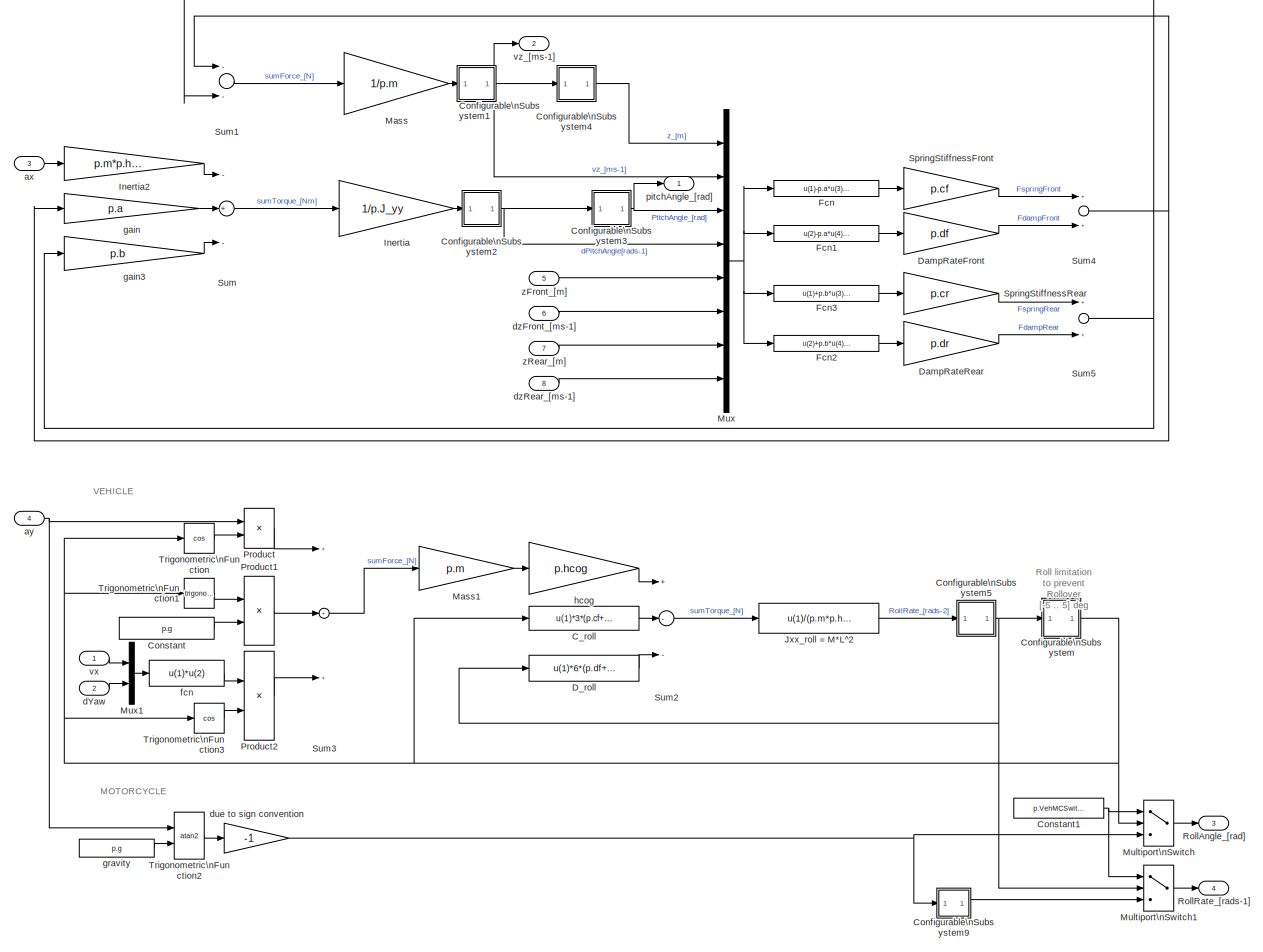
[diagram: Audi_A8_1/Dynamics_Simple/Chassis/Bicycle_model_[XYZ]/Z, Pitch_Motion &\nRoll_Motion - part 1/1, most of the canvas]
BLOCK [SubSystem] Audi_A8_1/Dynamics_Simple/Chassis/Bicycle_model_[XYZ]/Z, Pitch_Motion &\nRoll_Motion
  Ports = [8, 4]
  RequestExecContextInheritance = off
  SID = 12786:146
BLOCK [Fcn] Audi_A8_1/Dynamics_Simple/Chassis/Bicycle_model_[XYZ]/Z, Pitch_Motion &\nRoll_Motion/C_roll
  Expr = u(1)*3*(p.cf+p.cr)/2*p.width^2/2
  SID = 12786:155
BLOCK [SubSystem] Audi_A8_1/Dynamics_Simple/Chassis/Bicycle_model_[XYZ]/Z, Pitch_Motion &\nRoll_Motion/Configurable\nSubsystem
  AttributesFormatString = %<BlockChoice>
  BlockChoice = Integrator
  MemberBlocks = Discrete-Time Integrator,Integrator
  OpenFcn = BringToFront(gcb);
  Ports = [1, 1]
  RequestExecContextInheritance = off
  SID = 12786:156
  ShowPortLabels = none
  TemplateBlock = PreScanSimulinkLibrary/Configurable Subsystems/integral with limits\nfor roll motion/Configurable\nSubsystem
BLOCK [Inport] Audi_A8_1/Dynamics_Simple/Chassis/Bicycle_model_[XYZ]/Z, Pitch_Motion &\nRoll_Motion/Configurable\nSubsystem/In1
  IconDisplay = Port number
  SID = 12786:156::1
BLOCK [Integrator] Audi_A8_1/Dynamics_Simple/Chassis/Bicycle_model_[XYZ]/Z, Pitch_Motion &\nRoll_Motion/Configurable\nSubsystem/Integrator
  LimitOutput = on
  LowerSaturationLimit = -5*pi/180
  Ports = [1, 1]
  SID = 12786:156::2
  UpperSaturationLimit = 5*pi/180
BLOCK [Outport] Audi_A8_1/Dynamics_Simple/Chassis/Bicycle_model_[XYZ]/Z, Pitch_Motion &\nRoll_Motion/Configurable\nSubsystem/Out1
  IconDisplay = Port number
  SID = 12786:156::3
BLOCK [SubSystem] Audi_A8_1/Dynamics_Simple/Chassis/Bicycle_model_[XYZ]/Z, Pitch_Motion &\nRoll_Motion/Configurable\nSubsystem1
  AttributesFormatString = %<BlockChoice>
  BlockChoice = Integrator
  MemberBlocks = Discrete-Time Integrator,Integrator
  OpenFcn = BringToFront(gcb);
  Ports = [1, 1]
  RequestExecContextInheritance = off
  SID = 12786:157
  ShowPortLabels = none
  TemplateBlock = PreScanSimulinkLibrary/Configurable Subsystems/integral/Configurable\nSubsystem1
BLOCK [Inport] Audi_A8_1/Dynamics_Simple/Chassis/Bicycle_model_[XYZ]/Z, Pitch_Motion &\nRoll_Motion/Configurable\nSubsystem1/In1
  IconDisplay = Port number
  SID = 12786:157::1
BLOCK [Integrator] Audi_A8_1/Dynamics_Simple/Chassis/Bicycle_model_[XYZ]/Z, Pitch_Motion &\nRoll_Motion/Configurable\nSubsystem1/Integrator
  Ports = [1, 1]
  SID = 12786:157::2
BLOCK [Outport] Audi_A8_1/Dynamics_Simple/Chassis/Bicycle_model_[XYZ]/Z, Pitch_Motion &\nRoll_Motion/Configurable\nSubsystem1/Out1
  IconDisplay = Port number
  SID = 12786:157::3
BLOCK [SubSystem] Audi_A8_1/Dynamics_Simple/Chassis/Bicycle_model_[XYZ]/Z, Pitch_Motion &\nRoll_Motion/Configurable\nSubsystem2
  AttributesFormatString = %<BlockChoice>
  BlockChoice = Integrator
  MemberBlocks = Discrete-Time Integrator,Integrator
  OpenFcn = BringToFront(gcb);
  Ports = [1, 1]
  RequestExecContextInheritance = off
  SID = 12786:158
  ShowPortLabels = none
  TemplateBlock = PreScanSimulinkLibrary/Configurable Subsystems/integral/Configurable\nSubsystem1
BLOCK [Inport] Audi_A8_1/Dynamics_Simple/Chassis/Bicycle_model_[XYZ]/Z, Pitch_Motion &\nRoll_Motion/Configurable\nSubsystem2/In1
  IconDisplay = Port number
  SID = 12786:158::1
BLOCK [Integrator] Audi_A8_1/Dynamics_Simple/Chassis/Bicycle_model_[XYZ]/Z, Pitch_Motion &\nRoll_Motion/Configurable\nSubsystem2/Integrator
  Ports = [1, 1]
  SID = 12786:158::2
BLOCK [Outport] Audi_A8_1/Dynamics_Simple/Chassis/Bicycle_model_[XYZ]/Z, Pitch_Motion &\nRoll_Motion/Configurable\nSubsystem2/Out1
  IconDisplay = Port number
  SID = 12786:158::3
BLOCK [SubSystem] Audi_A8_1/Dynamics_Simple/Chassis/Bicycle_model_[XYZ]/Z, Pitch_Motion &\nRoll_Motion/Configurable\nSubsystem3
  AttributesFormatString = %<BlockChoice>
  BlockChoice = Integrator
  MemberBlocks = Discrete-Time Integrator,Integrator
  OpenFcn = BringToFront(gcb);
  Ports = [1, 1]
  RequestExecContextInheritance = off
  SID = 12786:159
  ShowPortLabels = none
  TemplateBlock = PreScanSimulinkLibrary/Configurable Subsystems/integral/Configurable\nSubsystem1
BLOCK [Inport] Audi_A8_1/Dynamics_Simple/Chassis/Bicycle_model_[XYZ]/Z, Pitch_Motion &\nRoll_Motion/Configurable\nSubsystem3/In1
  IconDisplay = Port number
  SID = 12786:159::1
BLOCK [Integrator] Audi_A8_1/Dynamics_Simple/Chassis/Bicycle_model_[XYZ]/Z, Pitch_Motion &\nRoll_Motion/Configurable\nSubsystem3/Integrator
  Ports = [1, 1]
  SID = 12786:159::2
BLOCK [Outport] Audi_A8_1/Dynamics_Simple/Chassis/Bicycle_model_[XYZ]/Z, Pitch_Motion &\nRoll_Motion/Configurable\nSubsystem3/Out1
  IconDisplay = Port number
  SID = 12786:159::3
BLOCK [SubSystem] Audi_A8_1/Dynamics_Simple/Chassis/Bicycle_model_[XYZ]/Z, Pitch_Motion &\nRoll_Motion/Configurable\nSubsystem4
  AttributesFormatString = %<BlockChoice>
  BlockChoice = Integrator
  MemberBlocks = Discrete-Time Integrator,Integrator
  OpenFcn = BringToFront(gcb);
  Ports = [1, 1]
  RequestExecContextInheritance = off
  SID = 12786:160
  ShowPortLabels = none
  TemplateBlock = PreScanSimulinkLibrary/Configurable Subsystems/integral/Configurable\nSubsystem1
BLOCK [Inport] Audi_A8_1/Dynamics_Simple/Chassis/Bicycle_model_[XYZ]/Z, Pitch_Motion &\nRoll_Motion/Configurable\nSubsystem4/In1
  IconDisplay = Port number
  SID = 12786:160::1
BLOCK [Integrator] Audi_A8_1/Dynamics_Simple/Chassis/Bicycle_model_[XYZ]/Z, Pitch_Motion &\nRoll_Motion/Configurable\nSubsystem4/Integrator
  Ports = [1, 1]
  SID = 12786:160::2
BLOCK [Outport] Audi_A8_1/Dynamics_Simple/Chassis/Bicycle_model_[XYZ]/Z, Pitch_Motion &\nRoll_Motion/Configurable\nSubsystem4/Out1
  IconDisplay = Port number
  SID = 12786:160::3
BLOCK [SubSystem] Audi_A8_1/Dynamics_Simple/Chassis/Bicycle_model_[XYZ]/Z, Pitch_Motion &\nRoll_Motion/Configurable\nSubsystem5
  AttributesFormatString = %<BlockChoice>
  BlockChoice = Integrator
  MemberBlocks = Discrete-Time Integrator,Integrator
  OpenFcn = BringToFront(gcb);
  Ports = [1, 1]
  RequestExecContextInheritance = off
  SID = 12786:161
  ShowPortLabels = none
  TemplateBlock = PreScanSimulinkLibrary/Configurable Subsystems/integral/Configurable\nSubsystem1
BLOCK [Inport] Audi_A8_1/Dynamics_Simple/Chassis/Bicycle_model_[XYZ]/Z, Pitch_Motion &\nRoll_Motion/Configurable\nSubsystem5/In1
  IconDisplay = Port number
  SID = 12786:161::1
BLOCK [Integrator] Audi_A8_1/Dynamics_Simple/Chassis/Bicycle_model_[XYZ]/Z, Pitch_Motion &\nRoll_Motion/Configurable\nSubsystem5/Integrator
  Ports = [1, 1]
  SID = 12786:161::2
BLOCK [Outport] Audi_A8_1/Dynamics_Simple/Chassis/Bicycle_model_[XYZ]/Z, Pitch_Motion &\nRoll_Motion/Configurable\nSubsystem5/Out1
  IconDisplay = Port number
  SID = 12786:161::3
BLOCK [SubSystem] Audi_A8_1/Dynamics_Simple/Chassis/Bicycle_model_[XYZ]/Z, Pitch_Motion &\nRoll_Motion/Configurable\nSubsystem9
  AttributesFormatString = %<BlockChoice>
  BlockChoice = Derivative
  MemberBlocks = Derivative,Discrete Derivative
  OpenFcn = BringToFront(gcb);
  Ports = [1, 1]
  RequestExecContextInheritance = off
  SID = 12786:162
  ShowPortLabels = none
  TemplateBlock = PreScanSimulinkLibrary/Configurable Subsystems/Derivative/Configurable\nSubsystem
BLOCK [Derivative] Audi_A8_1/Dynamics_Simple/Chassis/Bicycle_model_[XYZ]/Z, Pitch_Motion &\nRoll_Motion/Configurable\nSubsystem9/Derivative
  SID = 12786:162::2
BLOCK [Inport] Audi_A8_1/Dynamics_Simple/Chassis/Bicycle_model_[XYZ]/Z, Pitch_Motion &\nRoll_Motion/Configurable\nSubsystem9/In1
  IconDisplay = Port number
  SID = 12786:162::1
BLOCK [Outport] Audi_A8_1/Dynamics_Simple/Chassis/Bicycle_model_[XYZ]/Z, Pitch_Motion &\nRoll_Motion/Configurable\nSubsystem9/Out1
  IconDisplay = Port number
  SID = 12786:162::3
BLOCK [Constant] Audi_A8_1/Dynamics_Simple/Chassis/Bicycle_model_[XYZ]/Z, Pitch_Motion &\nRoll_Motion/Constant
  SID = 12786:163
  Value = p.g
BLOCK [Constant] Audi_A8_1/Dynamics_Simple/Chassis/Bicycle_model_[XYZ]/Z, Pitch_Motion &\nRoll_Motion/Constant1
  SID = 12786:164
  Value = p.VehMCSwitch
BLOCK [Fcn] Audi_A8_1/Dynamics_Simple/Chassis/Bicycle_model_[XYZ]/Z, Pitch_Motion &\nRoll_Motion/D_roll
  Expr = u(1)*6*(p.df+p.dr)/2*p.width^2/2
  SID = 12786:165
BLOCK [Gain] Audi_A8_1/Dynamics_Simple/Chassis/Bicycle_model_[XYZ]/Z, Pitch_Motion &\nRoll_Motion/DampRateFront
  Gain = p.df
  SID = 12786:166
BLOCK [Gain] Audi_A8_1/Dynamics_Simple/Chassis/Bicycle_model_[XYZ]/Z, Pitch_Motion &\nRoll_Motion/DampRateRear
  Gain = p.dr
  SID = 12786:167
BLOCK [Fcn] Audi_A8_1/Dynamics_Simple/Chassis/Bicycle_model_[XYZ]/Z, Pitch_Motion &\nRoll_Motion/Fcn
  Expr = u(1)-p.a*u(3)-u(5)
  SID = 12786:168
BLOCK [Fcn] Audi_A8_1/Dynamics_Simple/Chassis/Bicycle_model_[XYZ]/Z, Pitch_Motion &\nRoll_Motion/Fcn1
  Expr = u(2)-p.a*u(4)-u(6)
  SID = 12786:169
BLOCK [Fcn] Audi_A8_1/Dynamics_Simple/Chassis/Bicycle_model_[XYZ]/Z, Pitch_Motion &\nRoll_Motion/Fcn2
  Expr = u(2)+p.b*u(4)-u(8)
  SID = 12786:170
BLOCK [Fcn] Audi_A8_1/Dynamics_Simple/Chassis/Bicycle_model_[XYZ]/Z, Pitch_Motion &\nRoll_Motion/Fcn3
  Expr = u(1)+p.b*u(3)-u(7)
  SID = 12786:171
BLOCK [Gain] Audi_A8_1/Dynamics_Simple/Chassis/Bicycle_model_[XYZ]/Z, Pitch_Motion &\nRoll_Motion/Inertia
  Gain = 1/p.J_yy
  SID = 12786:172
BLOCK [Gain] Audi_A8_1/Dynamics_Simple/Chassis/Bicycle_model_[XYZ]/Z, Pitch_Motion &\nRoll_Motion/Inertia2
  Gain = p.m*p.hcog
  SID = 12786:173
BLOCK [Fcn] Audi_A8_1/Dynamics_Simple/Chassis/Bicycle_model_[XYZ]/Z, Pitch_Motion &\nRoll_Motion/Jxx_roll = M*L^2
  Expr = u(1)/(p.m*p.hcog^2)
  SID = 12786:174
BLOCK [Gain] Audi_A8_1/Dynamics_Simple/Chassis/Bicycle_model_[XYZ]/Z, Pitch_Motion &\nRoll_Motion/Mass
  Gain = 1/p.m
  SID = 12786:175
BLOCK [Gain] Audi_A8_1/Dynamics_Simple/Chassis/Bicycle_model_[XYZ]/Z, Pitch_Motion &\nRoll_Motion/Mass1
  Gain = p.m
  SID = 12786:176
BLOCK [MultiPortSwitch] Audi_A8_1/Dynamics_Simple/Chassis/Bicycle_model_[XYZ]/Z, Pitch_Motion &\nRoll_Motion/Multiport\nSwitch
  InputSameDT = off
  Inputs = 2
  Ports = [3, 1]
  SID = 12786:177
  SaturateOnIntegerOverflow = off
BLOCK [MultiPortSwitch] Audi_A8_1/Dynamics_Simple/Chassis/Bicycle_model_[XYZ]/Z, Pitch_Motion &\nRoll_Motion/Multiport\nSwitch1
  InputSameDT = off
  Inputs = 2
  Ports = [3, 1]
  SID = 12786:178
  SaturateOnIntegerOverflow = off
BLOCK [Mux] Audi_A8_1/Dynamics_Simple/Chassis/Bicycle_model_[XYZ]/Z, Pitch_Motion &\nRoll_Motion/Mux
  DisplayOption = bar
  Inputs = 8
  Ports = [8, 1]
  SID = 12786:179
BLOCK [Mux] Audi_A8_1/Dynamics_Simple/Chassis/Bicycle_model_[XYZ]/Z, Pitch_Motion &\nRoll_Motion/Mux1
  DisplayOption = bar
  Inputs = 2
  Ports = [2, 1]
  SID = 12786:180
BLOCK [Product] Audi_A8_1/Dynamics_Simple/Chassis/Bicycle_model_[XYZ]/Z, Pitch_Motion &\nRoll_Motion/Product
  InputSameDT = off
  OutDataTypeStr = Inherit: Inherit via internal rule
  Ports = [2, 1]
  SID = 12786:181
  SaturateOnIntegerOverflow = off
BLOCK [Product] Audi_A8_1/Dynamics_Simple/Chassis/Bicycle_model_[XYZ]/Z, Pitch_Motion &\nRoll_Motion/Product1
  InputSameDT = off
  OutDataTypeStr = Inherit: Inherit via internal rule
  Ports = [2, 1]
  SID = 12786:182
  SaturateOnIntegerOverflow = off
BLOCK [Product] Audi_A8_1/Dynamics_Simple/Chassis/Bicycle_model_[XYZ]/Z, Pitch_Motion &\nRoll_Motion/Product2
  InputSameDT = off
  OutDataTypeStr = Inherit: Inherit via internal rule
  Ports = [2, 1]
  SID = 12786:183
  SaturateOnIntegerOverflow = off
BLOCK [Outport] Audi_A8_1/Dynamics_Simple/Chassis/Bicycle_model_[XYZ]/Z, Pitch_Motion &\nRoll_Motion/RollAngle_[rad]
  IconDisplay = Port number
  Port = 3
  SID = 12786:204
BLOCK [Outport] Audi_A8_1/Dynamics_Simple/Chassis/Bicycle_model_[XYZ]/Z, Pitch_Motion &\nRoll_Motion/RollRate_[rads-1]
  IconDisplay = Port number
  Port = 4
  SID = 12786:205
BLOCK [Gain] Audi_A8_1/Dynamics_Simple/Chassis/Bicycle_model_[XYZ]/Z, Pitch_Motion &\nRoll_Motion/SpringStiffnessFront
  Gain = p.cf
  SID = 12786:184
BLOCK [Gain] Audi_A8_1/Dynamics_Simple/Chassis/Bicycle_model_[XYZ]/Z, Pitch_Motion &\nRoll_Motion/SpringStiffnessRear
  Gain = p.cr
  SID = 12786:185
BLOCK [Sum] Audi_A8_1/Dynamics_Simple/Chassis/Bicycle_model_[XYZ]/Z, Pitch_Motion &\nRoll_Motion/Sum
  Inputs = -+-
  Ports = [3, 1]
  SID = 12786:186
BLOCK [Sum] Audi_A8_1/Dynamics_Simple/Chassis/Bicycle_model_[XYZ]/Z, Pitch_Motion &\nRoll_Motion/Sum1
  Inputs = --
  Ports = [2, 1]
  SID = 12786:187
BLOCK [Sum] Audi_A8_1/Dynamics_Simple/Chassis/Bicycle_model_[XYZ]/Z, Pitch_Motion &\nRoll_Motion/Sum2
  Inputs = +--
  Ports = [3, 1]
  SID = 12786:188
BLOCK [Sum] Audi_A8_1/Dynamics_Simple/Chassis/Bicycle_model_[XYZ]/Z, Pitch_Motion &\nRoll_Motion/Sum3
  Inputs = +++
  Ports = [3, 1]
  SID = 12786:189
BLOCK [Sum] Audi_A8_1/Dynamics_Simple/Chassis/Bicycle_model_[XYZ]/Z, Pitch_Motion &\nRoll_Motion/Sum4
  Ports = [2, 1]
  SID = 12786:190
BLOCK [Sum] Audi_A8_1/Dynamics_Simple/Chassis/Bicycle_model_[XYZ]/Z, Pitch_Motion &\nRoll_Motion/Sum5
  Ports = [2, 1]
  SID = 12786:191
BLOCK [Trigonometry] Audi_A8_1/Dynamics_Simple/Chassis/Bicycle_model_[XYZ]/Z, Pitch_Motion &\nRoll_Motion/Trigonometric\nFunction
  Operator = cos
  Ports = [1, 1]
  SID = 12786:192
BLOCK [Trigonometry] Audi_A8_1/Dynamics_Simple/Chassis/Bicycle_model_[XYZ]/Z, Pitch_Motion &\nRoll_Motion/Trigonometric\nFunction1
  Ports = [1, 1]
  SID = 12786:193
BLOCK [Trigonometry] Audi_A8_1/Dynamics_Simple/Chassis/Bicycle_model_[XYZ]/Z, Pitch_Motion &\nRoll_Motion/Trigonometric\nFunction2
  Operator = atan2
  Ports = [2, 1]
  SID = 12786:194
BLOCK [Trigonometry] Audi_A8_1/Dynamics_Simple/Chassis/Bicycle_model_[XYZ]/Z, Pitch_Motion &\nRoll_Motion/Trigonometric\nFunction3
  Operator = cos
  Ports = [1, 1]
  SID = 12786:195
BLOCK [Inport] Audi_A8_1/Dynamics_Simple/Chassis/Bicycle_model_[XYZ]/Z, Pitch_Motion &\nRoll_Motion/ax
  IconDisplay = Port number
  Port = 3
  SID = 12786:149
BLOCK [Inport] Audi_A8_1/Dynamics_Simple/Chassis/Bicycle_model_[XYZ]/Z, Pitch_Motion &\nRoll_Motion/ay
  IconDisplay = Port number
  Port = 4
  SID = 12786:150
BLOCK [Inport] Audi_A8_1/Dynamics_Simple/Chassis/Bicycle_model_[XYZ]/Z, Pitch_Motion &\nRoll_Motion/dYaw
  IconDisplay = Port number
  Port = 2
  SID = 12786:148
BLOCK [Gain] Audi_A8_1/Dynamics_Simple/Chassis/Bicycle_model_[XYZ]/Z, Pitch_Motion &\nRoll_Motion/due to sign convention
  Gain = -1
  SID = 12786:196
BLOCK [Inport] Audi_A8_1/Dynamics_Simple/Chassis/Bicycle_model_[XYZ]/Z, Pitch_Motion &\nRoll_Motion/dzFront_[ms-1]
  IconDisplay = Port number
  Port = 6
  SID = 12786:152
BLOCK [Inport] Audi_A8_1/Dynamics_Simple/Chassis/Bicycle_model_[XYZ]/Z, Pitch_Motion &\nRoll_Motion/dzRear_[ms-1]
  IconDisplay = Port number
  Port = 8
  SID = 12786:154
BLOCK [Fcn] Audi_A8_1/Dynamics_Simple/Chassis/Bicycle_model_[XYZ]/Z, Pitch_Motion &\nRoll_Motion/fcn
  Expr = u(1)*u(2)
  SID = 12786:197
BLOCK [Gain] Audi_A8_1/Dynamics_Simple/Chassis/Bicycle_model_[XYZ]/Z, Pitch_Motion &\nRoll_Motion/gain
  Gain = p.a
  SID = 12786:198
BLOCK [Gain] Audi_A8_1/Dynamics_Simple/Chassis/Bicycle_model_[XYZ]/Z, Pitch_Motion &\nRoll_Motion/gain3
  Gain = p.b
  SID = 12786:199
BLOCK [Constant] Audi_A8_1/Dynamics_Simple/Chassis/Bicycle_model_[XYZ]/Z, Pitch_Motion &\nRoll_Motion/gravity
  SID = 12786:200
  Value = p.g
BLOCK [Gain] Audi_A8_1/Dynamics_Simple/Chassis/Bicycle_model_[XYZ]/Z, Pitch_Motion &\nRoll_Motion/hcog
  Gain = p.hcog
  SID = 12786:201
BLOCK [Outport] Audi_A8_1/Dynamics_Simple/Chassis/Bicycle_model_[XYZ]/Z, Pitch_Motion &\nRoll_Motion/pitchAngle_[rad]
  IconDisplay = Port number
  SID = 12786:202
BLOCK [Inport] Audi_A8_1/Dynamics_Simple/Chassis/Bicycle_model_[XYZ]/Z, Pitch_Motion &\nRoll_Motion/vx
  IconDisplay = Port number
  SID = 12786:147
BLOCK [Outport] Audi_A8_1/Dynamics_Simple/Chassis/Bicycle_model_[XYZ]/Z, Pitch_Motion &\nRoll_Motion/vz_[ms-1]
  IconDisplay = Port number
  Port = 2
  SID = 12786:203
BLOCK [Inport] Audi_A8_1/Dynamics_Simple/Chassis/Bicycle_model_[XYZ]/Z, Pitch_Motion &\nRoll_Motion/zFront_[m]
  IconDisplay = Port number
  Port = 5
  SID = 12786:151
BLOCK [Inport] Audi_A8_1/Dynamics_Simple/Chassis/Bicycle_model_[XYZ]/Z, Pitch_Motion &\nRoll_Motion/zRear_[m]
  IconDisplay = Port number
  Port = 7
  SID = 12786:153
BLOCK [Outport] Audi_A8_1/Dynamics_Simple/Chassis/Bicycle_model_[XYZ]/ax_[ms-2]
  IconDisplay = Port number
  Port = 10
  SID = 12786:215
BLOCK [Outport] Audi_A8_1/Dynamics_Simple/Chassis/Bicycle_model_[XYZ]/ay_[ms-2]
  IconDisplay = Port number
  Port = 11
  SID = 12786:216
BLOCK [Inport] Audi_A8_1/Dynamics_Simple/Chassis/Bicycle_model_[XYZ]/v0_[ms-1]
  IconDisplay = Port number
  Port = 6
  SID = 12786:21
BLOCK [Outport] Audi_A8_1/Dynamics_Simple/Chassis/Bicycle_model_[XYZ]/vy_[ms-1]
  IconDisplay = Port number
  Port = 2
  SID = 12786:207
BLOCK [Outport] Audi_A8_1/Dynamics_Simple/Chassis/Bicycle_model_[XYZ]/vz_[ms-1]
  IconDisplay = Port number
  Port = 3
  SID = 12786:208
BLOCK [Inport] Audi_A8_1/Dynamics_Simple/Chassis/Bicycle_model_[XYZ]/zFront_[m]_dzFront_[ms-1]
  IconDisplay = Port number
  Port = 2
  PortDimensions = 2
  SID = 12786:17
BLOCK [Inport] Audi_A8_1/Dynamics_Simple/Chassis/Bicycle_model_[XYZ]/zRear_[m]_dzRear_[ms-1]
  IconDisplay = Port number
  Port = 3
  PortDimensions = 2
  SID = 12786:18
BLOCK [Inport] Audi_A8_1/Dynamics_Simple/Chassis/Bicycle_model_[XYZ]/|vx|_[ms-1]
  IconDisplay = Port number
  Port = 7
  SID = 12786:22
BLOCK [Outport] Audi_A8_1/Dynamics_Simple/Chassis/Bicycle_model_[XYZ]/|vx|_[ms-1]1
  IconDisplay = Port number
  SID = 12786:206
BLOCK [Inport] Audi_A8_1/Dynamics_Simple/Chassis/BrakePressure_[bar]
  IconDisplay = Port number
  Port = 2
  SID = 12786:11
BLOCK [Constant] Audi_A8_1/Dynamics_Simple/Chassis/Constant3
  SID = 12786:217
  Value = [0 0]
BLOCK [Constant] Audi_A8_1/Dynamics_Simple/Chassis/Constant4
  SID = 12786:218
  Value = [0 0]
BLOCK [Reference] Audi_A8_1/Dynamics_Simple/Chassis/Degrees to\nRadians  REF=simulink_extras/Transformations/Degrees to\nRadians
  Ports = [1, 1]
  SID = 12786:219
  SourceBlock = simulink_extras/Transformations/Degrees to\nRadians
  SourceType = DegreesToRadians
BLOCK [Inport] Audi_A8_1/Dynamics_Simple/Chassis/DeltaSteer_[deg]
  IconDisplay = Port number
  Port = 3
  SID = 12786:12
BLOCK [Gain] Audi_A8_1/Dynamics_Simple/Chassis/FinalDriveRatio
  Gain = p.Rfd
  SID = 12786:220
BLOCK [Gain] Audi_A8_1/Dynamics_Simple/Chassis/FinalDriveRatio 
  Gain = p.Rfd
  SID = 12786:221
BLOCK [From] Audi_A8_1/Dynamics_Simple/Chassis/From
  CloseFcn = tagdialog Close
  GotoTag = vx
  SID = 12786:222
BLOCK [From] Audi_A8_1/Dynamics_Simple/Chassis/From1
  CloseFcn = tagdialog Close
  GotoTag = DeltaWheel
  SID = 12786:223
BLOCK [From] Audi_A8_1/Dynamics_Simple/Chassis/From10
  CloseFcn = tagdialog Close
  GotoTag = RollAngle
  SID = 12786:224
BLOCK [From] Audi_A8_1/Dynamics_Simple/Chassis/From11
  CloseFcn = tagdialog Close
  GotoTag = RollAngle
  SID = 12786:225
BLOCK [From] Audi_A8_1/Dynamics_Simple/Chassis/From13
  CloseFcn = tagdialog Close
  GotoTag = DT
  SID = 12786:226
BLOCK [From] Audi_A8_1/Dynamics_Simple/Chassis/From14
  CloseFcn = tagdialog Close
  GotoTag = vy
  SID = 12786:227
BLOCK [From] Audi_A8_1/Dynamics_Simple/Chassis/From2
  CloseFcn = tagdialog Close
  GotoTag = Absvx
  SID = 12786:228
BLOCK [From] Audi_A8_1/Dynamics_Simple/Chassis/From3
  CloseFcn = tagdialog Close
  GotoTag = vy
  SID = 12786:229
BLOCK [From] Audi_A8_1/Dynamics_Simple/Chassis/From4
  CloseFcn = tagdialog Close
  GotoTag = YawRate
  SID = 12786:230
BLOCK [From] Audi_A8_1/Dynamics_Simple/Chassis/From5
  CloseFcn = tagdialog Close
  GotoTag = Absvx
  SID = 12786:231
BLOCK [From] Audi_A8_1/Dynamics_Simple/Chassis/From6
  CloseFcn = tagdialog Close
  GotoTag = vy
  SID = 12786:232
BLOCK [From] Audi_A8_1/Dynamics_Simple/Chassis/From7
  CloseFcn = tagdialog Close
  GotoTag = YawRate
  SID = 12786:233
BLOCK [From] Audi_A8_1/Dynamics_Simple/Chassis/From8
  CloseFcn = tagdialog Close
  GotoTag = vx
  SID = 12786:234
BLOCK [From] Audi_A8_1/Dynamics_Simple/Chassis/From9
  CloseFcn = tagdialog Close
  GotoTag = vx
  SID = 12786:235
BLOCK [SubSystem] Audi_A8_1/Dynamics_Simple/Chassis/FrontTyre
  Ports = [5, 1]
  RequestExecContextInheritance = off
  SID = 12786:236
BLOCK [SubSystem] Audi_A8_1/Dynamics_Simple/Chassis/FrontTyre/AlphaFront
  Ports = [1, 1]
  RequestExecContextInheritance = off
  SID = 12786:242
BLOCK [Abs] Audi_A8_1/Dynamics_Simple/Chassis/FrontTyre/AlphaFront/Abs
  SID = 12786:244
  SaturateOnIntegerOverflow = off
BLOCK [Outport] Audi_A8_1/Dynamics_Simple/Chassis/FrontTyre/AlphaFront/Alpha
  IconDisplay = Port number
  SID = 12786:252
BLOCK [Reference] Audi_A8_1/Dynamics_Simple/Chassis/FrontTyre/AlphaFront/Compare\nTo Constant  REF=simulink/Logic and Bit\nOperations/Compare\nTo Constant
  OutDataTypeStr = uint8
  Ports = [1, 1]
  SID = 12786:245
  SourceBlock = simulink/Logic and Bit\nOperations/Compare\nTo Constant
  SourceType = Compare To Constant
  ZeroCross = off
  const = 0
  relop = >
BLOCK [SubSystem] Audi_A8_1/Dynamics_Simple/Chassis/FrontTyre/AlphaFront/Enabled\nSubsystem
  Ports = [1, 1, 1]
  RequestExecContextInheritance = off
  SID = 12786:246
  TreatAsAtomicUnit = on
BLOCK [Outport] Audi_A8_1/Dynamics_Simple/Chassis/FrontTyre/AlphaFront/Enabled\nSubsystem/Alpha
  IconDisplay = Port number
  InitialOutput = [0]
  OutputWhenDisabled = reset
  SID = 12786:250
BLOCK [Fcn] Audi_A8_1/Dynamics_Simple/Chassis/FrontTyre/AlphaFront/Enabled\nSubsystem/AlphaFront
  Expr = -atan( (u(2)+u(3)*p.a)/u(1) )
  SID = 12786:249
BLOCK [EnablePort] Audi_A8_1/Dynamics_Simple/Chassis/FrontTyre/AlphaFront/Enabled\nSubsystem/Enable
  Ports = []
  PropagateVarSize = During execution
  SID = 12786:248
BLOCK [Inport] Audi_A8_1/Dynamics_Simple/Chassis/FrontTyre/AlphaFront/Enabled\nSubsystem/In
  IconDisplay = Port number
  SID = 12786:247
BLOCK [Inport] Audi_A8_1/Dynamics_Simple/Chassis/FrontTyre/AlphaFront/In
  IconDisplay = Port number
  SID = 12786:243
BLOCK [Selector] Audi_A8_1/Dynamics_Simple/Chassis/FrontTyre/AlphaFront/Selector
  Ports = [1, 1]
  SID = 12786:251
BLOCK [Reference] Audi_A8_1/Dynamics_Simple/Chassis/FrontTyre/Compare\nTo Zero  REF=simulink/Logic and Bit\nOperations/Compare\nTo Zero
  OutDataTypeStr = boolean
  Ports = [1, 1]
  SID = 12786:253
  SourceBlock = simulink/Logic and Bit\nOperations/Compare\nTo Zero
  SourceType = Compare To Zero
  ZeroCross = off
  relop = ==
BLOCK [SubSystem] Audi_A8_1/Dynamics_Simple/Chassis/FrontTyre/Configurable\nSubsystem
  AttributesFormatString = %<BlockChoice>
  BlockChoice = Integrator
  MemberBlocks = Discrete-Time Integrator,Integrator
  OpenFcn = BringToFront(gcb);
  Ports = [2, 1]
  RequestExecContextInheritance = off
  SID = 12786:254
  ShowPortLabels = none
  TemplateBlock = PreScanSimulinkLibrary/Configurable Subsystems/integral with reset and limits \nfor slip angle/Configurable\nSubsystem
BLOCK [Inport] Audi_A8_1/Dynamics_Simple/Chassis/FrontTyre/Configurable\nSubsystem/In1
  IconDisplay = Port number
  SID = 12786:254::1
BLOCK [Inport] Audi_A8_1/Dynamics_Simple/Chassis/FrontTyre/Configurable\nSubsystem/In2
  IconDisplay = Port number
  Port = 2
  SID = 12786:254::2
BLOCK [Integrator] Audi_A8_1/Dynamics_Simple/Chassis/FrontTyre/Configurable\nSubsystem/Integrator
  ExternalReset = level
  LimitOutput = on
  LowerSaturationLimit = -1
  Ports = [2, 1]
  SID = 12786:254::3
  UpperSaturationLimit = 1
BLOCK [Outport] Audi_A8_1/Dynamics_Simple/Chassis/FrontTyre/Configurable\nSubsystem/Out1
  IconDisplay = Port number
  SID = 12786:254::4
BLOCK [SubSystem] Audi_A8_1/Dynamics_Simple/Chassis/FrontTyre/Configurable\nSubsystem1
  AttributesFormatString = %<BlockChoice>
  BlockChoice = Integrator
  MemberBlocks = Discrete-Time Integrator,Integrator
  OpenFcn = BringToFront(gcb);
  Ports = [2, 1]
  RequestExecContextInheritance = off
  SID = 12786:255
  ShowPortLabels = none
  TemplateBlock = PreScanSimulinkLibrary/Configurable Subsystems/integral with reset/Configurable\nSubsystem
BLOCK [Inport] Audi_A8_1/Dynamics_Simple/Chassis/FrontTyre/Configurable\nSubsystem1/In1
  IconDisplay = Port number
  SID = 12786:255::1
BLOCK [Inport] Audi_A8_1/Dynamics_Simple/Chassis/FrontTyre/Configurable\nSubsystem1/In2
  IconDisplay = Port number
  Port = 2
  SID = 12786:255::2
BLOCK [Integrator] Audi_A8_1/Dynamics_Simple/Chassis/FrontTyre/Configurable\nSubsystem1/Integrator
  ExternalReset = level
  Ports = [2, 1]
  SID = 12786:255::3
BLOCK [Outport] Audi_A8_1/Dynamics_Simple/Chassis/FrontTyre/Configurable\nSubsystem1/Out1
  IconDisplay = Port number
  SID = 12786:255::4
BLOCK [Constant] Audi_A8_1/Dynamics_Simple/Chassis/FrontTyre/Constant
  SID = 12786:256
  Value = p.relax_on
BLOCK [Constant] Audi_A8_1/Dynamics_Simple/Chassis/FrontTyre/Constant1
  SID = 12786:257
  Value = p.relax_on
BLOCK [Constant] Audi_A8_1/Dynamics_Simple/Chassis/FrontTyre/Constant2
  SID = 12786:258
  Value = p.VehMCSwitch
BLOCK [DataTypeConversion] Audi_A8_1/Dynamics_Simple/Chassis/FrontTyre/Data Type Conversion
  OutDataTypeStr = double
  RndMeth = Floor
  SID = 12786:259
  SaturateOnIntegerOverflow = off
BLOCK [Inport] Audi_A8_1/Dynamics_Simple/Chassis/FrontTyre/DeltaWheel_[rad]
  IconDisplay = Port number
  SID = 12786:237
BLOCK [From] Audi_A8_1/Dynamics_Simple/Chassis/FrontTyre/From
  CloseFcn = tagdialog Close
  GotoTag = reset
  SID = 12786:260
BLOCK [From] Audi_A8_1/Dynamics_Simple/Chassis/FrontTyre/From1
  CloseFcn = tagdialog Close
  GotoTag = reset
  SID = 12786:261
BLOCK [Outport] Audi_A8_1/Dynamics_Simple/Chassis/FrontTyre/FyFront_[N]
  IconDisplay = Port number
  SID = 12786:285
BLOCK [Goto] Audi_A8_1/Dynamics_Simple/Chassis/FrontTyre/Goto
  GotoTag = reset
  SID = 12786:262
BLOCK [Reference] Audi_A8_1/Dynamics_Simple/Chassis/FrontTyre/If MC  REF=simulink/Logic and Bit\nOperations/Compare\nTo Constant
  OutDataTypeStr = uint8
  Ports = [1, 1]
  SID = 12786:263
  SourceBlock = simulink/Logic and Bit\nOperations/Compare\nTo Constant
  SourceType = Compare To Constant
  ZeroCross = off
  const = 2
  relop = ==
BLOCK [Gain] Audi_A8_1/Dynamics_Simple/Chassis/FrontTyre/K_gamma_front
  Gain = p.Kgfront
  OutDataTypeStr = Inherit: Inherit via internal rule
  ParamDataTypeStr = Inherit: Inherit via internal rule
  SID = 12786:264
  SaturateOnIntegerOverflow = off
BLOCK [Fcn] Audi_A8_1/Dynamics_Simple/Chassis/FrontTyre/Linl
  Expr = (u(4) - u(5))/p.sigma_front*u(1)
  SID = 12786:265
BLOCK [Fcn] Audi_A8_1/Dynamics_Simple/Chassis/FrontTyre/Linl1
  Expr = (u(4) - u(5))/p.sigma_front*u(1)
  SID = 12786:266
BLOCK [Mux] Audi_A8_1/Dynamics_Simple/Chassis/FrontTyre/Mux1
  DisplayOption = bar
  Inputs = 3
  Ports = [3, 1]
  SID = 12786:267
BLOCK [Mux] Audi_A8_1/Dynamics_Simple/Chassis/FrontTyre/Mux2
  DisplayOption = bar
  Inputs = {3,1,1}
  Ports = [3, 1]
  SID = 12786:268
BLOCK [Mux] Audi_A8_1/Dynamics_Simple/Chassis/FrontTyre/Mux3
  DisplayOption = bar
  Inputs = {3,1,1}
  Ports = [3, 1]
  SID = 12786:269
BLOCK [SubSystem] Audi_A8_1/Dynamics_Simple/Chassis/FrontTyre/Prevent_instability_at_low_Vx
  Ports = [2, 1]
  RequestExecContextInheritance = off
  SID = 12786:270
BLOCK [Product] Audi_A8_1/Dynamics_Simple/Chassis/FrontTyre/Prevent_instability_at_low_Vx/Divide
  InputSameDT = off
  Inputs = **
  OutDataTypeStr = Inherit: Inherit via internal rule
  Ports = [2, 1]
  RndMeth = Floor
  SID = 12786:273
  SaturateOnIntegerOverflow = off
BLOCK [Inport] Audi_A8_1/Dynamics_Simple/Chassis/FrontTyre/Prevent_instability_at_low_Vx/In
  IconDisplay = Port number
  Port = 2
  SID = 12786:272
BLOCK [Lookup] Audi_A8_1/Dynamics_Simple/Chassis/FrontTyre/Prevent_instability_at_low_Vx/Lookup Table
  InputValues = [0    2.5   ]
  LookUpMeth = Interpolation-Use End Values
  SID = 12786:274
  SaturateOnIntegerOverflow = off
  Table = [0.01    1]
BLOCK [Selector] Audi_A8_1/Dynamics_Simple/Chassis/FrontTyre/Prevent_instability_at_low_Vx/Selector
  Indices = [1]
  InputPortWidth = 3
  Ports = [1, 1]
  SID = 12786:275
BLOCK [Outport] Audi_A8_1/Dynamics_Simple/Chassis/FrontTyre/Prevent_instability_at_low_Vx/alpha [rad]
  IconDisplay = Port number
  SID = 12786:276
BLOCK [Inport] Audi_A8_1/Dynamics_Simple/Chassis/FrontTyre/Prevent_instability_at_low_Vx/alpha[rad]
  IconDisplay = Port number
  SID = 12786:271
BLOCK [Product] Audi_A8_1/Dynamics_Simple/Chassis/FrontTyre/Product
  InputSameDT = off
  OutDataTypeStr = Inherit: Inherit via internal rule
  Ports = [2, 1]
  SID = 12786:277
  SaturateOnIntegerOverflow = off
BLOCK [Inport] Audi_A8_1/Dynamics_Simple/Chassis/FrontTyre/RollAngle_[rad]
  IconDisplay = Port number
  Port = 5
  SID = 12786:241
BLOCK [Sum] Audi_A8_1/Dynamics_Simple/Chassis/FrontTyre/Sum
  IconShape = round
  Inputs = |++
  Ports = [2, 1]
  SID = 12786:278
BLOCK [Sum] Audi_A8_1/Dynamics_Simple/Chassis/FrontTyre/Sum1
  IconShape = round
  InputSameDT = off
  Inputs = |++
  OutDataTypeStr = Inherit: Inherit via internal rule
  Ports = [2, 1]
  SID = 12786:279
  SaturateOnIntegerOverflow = off
BLOCK [Switch] Audi_A8_1/Dynamics_Simple/Chassis/FrontTyre/Switch
  SID = 12786:280
  Threshold = 0.5
BLOCK [Switch] Audi_A8_1/Dynamics_Simple/Chassis/FrontTyre/Switch1
  SID = 12786:281
  Threshold = 0.5
BLOCK [Memory] Audi_A8_1/Dynamics_Simple/Chassis/FrontTyre/alg.loop
  SID = 12786:282
BLOCK [Inport] Audi_A8_1/Dynamics_Simple/Chassis/FrontTyre/dYawAngle_[rads-1]
  IconDisplay = Port number
  Port = 4
  SID = 12786:240
BLOCK [Gain] Audi_A8_1/Dynamics_Simple/Chassis/FrontTyre/due to sign convention
  Gain = -1
  SID = 12786:283
BLOCK [Gain] Audi_A8_1/Dynamics_Simple/Chassis/FrontTyre/front_tyre
  Gain = p.Kfront
  OutDataTypeStr = Inherit: Inherit via internal rule
  ParamDataTypeStr = Inherit: Inherit via internal rule
  SID = 12786:284
  SaturateOnIntegerOverflow = off
BLOCK [Inport] Audi_A8_1/Dynamics_Simple/Chassis/FrontTyre/vy_[ms-1]
  IconDisplay = Port number
  Port = 3
  SID = 12786:239
BLOCK [Inport] Audi_A8_1/Dynamics_Simple/Chassis/FrontTyre/|vx|_[ms-1]
  IconDisplay = Port number
  Port = 2
  SID = 12786:238
BLOCK [Gain] Audi_A8_1/Dynamics_Simple/Chassis/Gain
  Gain = 2*pi/60
  OutDataTypeStr = Inherit: Inherit via internal rule
  ParamDataTypeStr = Inherit: Inherit via internal rule
  SID = 12786:286
  SaturateOnIntegerOverflow = off
BLOCK [Goto] Audi_A8_1/Dynamics_Simple/Chassis/Goto
  GotoTag = DT
  SID = 12786:287
BLOCK [Goto] Audi_A8_1/Dynamics_Simple/Chassis/Goto1
  GotoTag = vx
  SID = 12786:288
BLOCK [Goto] Audi_A8_1/Dynamics_Simple/Chassis/Goto2
  GotoTag = DeltaWheel
  SID = 12786:289
BLOCK [Goto] Audi_A8_1/Dynamics_Simple/Chassis/Goto3
  GotoTag = Absvx
  SID = 12786:290
BLOCK [Goto] Audi_A8_1/Dynamics_Simple/Chassis/Goto4
  GotoTag = vy
  SID = 12786:291
BLOCK [Goto] Audi_A8_1/Dynamics_Simple/Chassis/Goto5
  GotoTag = YawRate
  SID = 12786:292
BLOCK [Goto] Audi_A8_1/Dynamics_Simple/Chassis/Goto6
  GotoTag = RollAngle
  SID = 12786:293
BLOCK [Inport] Audi_A8_1/Dynamics_Simple/Chassis/Initial_Vx_[m s-1]
  IconDisplay = Port number
  Port = 4
  SID = 12786:13
BLOCK [SubSystem] Audi_A8_1/Dynamics_Simple/Chassis/MuxDynState
  Ports = [6, 1]
  RequestExecContextInheritance = off
  SID = 12786:294
BLOCK [SubSystem] Audi_A8_1/Dynamics_Simple/Chassis/MuxDynState/Configurable\nSubsystem1
  AttributesFormatString = %<BlockChoice>
  BlockChoice = Integrator
  MemberBlocks = Discrete-Time Integrator,Integrator
  OpenFcn = BringToFront(gcb);
  Ports = [1, 1]
  RequestExecContextInheritance = off
  SID = 12786:301
  ShowPortLabels = none
  TemplateBlock = PreScanSimulinkLibrary/Configurable Subsystems/integral/Configurable\nSubsystem1
BLOCK [Inport] Audi_A8_1/Dynamics_Simple/Chassis/MuxDynState/Configurable\nSubsystem1/In1
  IconDisplay = Port number
  SID = 12786:301::1
BLOCK [Integrator] Audi_A8_1/Dynamics_Simple/Chassis/MuxDynState/Configurable\nSubsystem1/Integrator
  Ports = [1, 1]
  SID = 12786:301::2
BLOCK [Outport] Audi_A8_1/Dynamics_Simple/Chassis/MuxDynState/Configurable\nSubsystem1/Out1
  IconDisplay = Port number
  SID = 12786:301::3
BLOCK [Ground] Audi_A8_1/Dynamics_Simple/Chassis/MuxDynState/Ground
  SID = 12786:302
BLOCK [Ground] Audi_A8_1/Dynamics_Simple/Chassis/MuxDynState/Ground1
  SID = 12786:303
BLOCK [Mux] Audi_A8_1/Dynamics_Simple/Chassis/MuxDynState/Mux
  DisplayOption = bar
  Inputs = [3 3 3]
  Ports = [3, 1]
  SID = 12786:304
BLOCK [Mux] Audi_A8_1/Dynamics_Simple/Chassis/MuxDynState/Mux1
  DisplayOption = bar
  Inputs = 3
  Ports = [3, 1]
  SID = 12786:305
BLOCK [Mux] Audi_A8_1/Dynamics_Simple/Chassis/MuxDynState/Mux2
  DisplayOption = bar
  Inputs = 3
  Ports = [3, 1]
  SID = 12786:306
BLOCK [Inport] Audi_A8_1/Dynamics_Simple/Chassis/MuxDynState/P [rad]
  IconDisplay = Port number
  Port = 5
  SID = 12786:299
BLOCK [Inport] Audi_A8_1/Dynamics_Simple/Chassis/MuxDynState/R [rad]
  IconDisplay = Port number
  Port = 4
  SID = 12786:298
BLOCK [Outport] Audi_A8_1/Dynamics_Simple/Chassis/MuxDynState/State
  IconDisplay = Port number
  SID = 12786:330
BLOCK [SubSystem] Audi_A8_1/Dynamics_Simple/Chassis/MuxDynState/Transformation_BODY2GLOBAL
  Ports = [2, 1]
  RequestExecContextInheritance = off
  SID = 12786:307
BLOCK [DotProduct] Audi_A8_1/Dynamics_Simple/Chassis/MuxDynState/Transformation_BODY2GLOBAL/Dot Product
  OutDataTypeStr = Inherit: Inherit via internal rule
  SID = 12786:310
BLOCK [DotProduct] Audi_A8_1/Dynamics_Simple/Chassis/MuxDynState/Transformation_BODY2GLOBAL/Dot Product1
  OutDataTypeStr = Inherit: Inherit via internal rule
  SID = 12786:311
BLOCK [DotProduct] Audi_A8_1/Dynamics_Simple/Chassis/MuxDynState/Transformation_BODY2GLOBAL/Dot Product2
  OutDataTypeStr = Inherit: Inherit via internal rule
  SID = 12786:312
BLOCK [Fcn] Audi_A8_1/Dynamics_Simple/Chassis/MuxDynState/Transformation_BODY2GLOBAL/Fcn10
  Expr = cos(u(1))*sin(u(2))*sin(u(3))-sin(u(1))*cos(u(3))
  SID = 12786:313
BLOCK [Fcn] Audi_A8_1/Dynamics_Simple/Chassis/MuxDynState/Transformation_BODY2GLOBAL/Fcn11
  Expr = cos(u(1))*sin(u(2))*cos(u(3))+sin(u(1))*sin(u(3))
  SID = 12786:314
BLOCK [Fcn] Audi_A8_1/Dynamics_Simple/Chassis/MuxDynState/Transformation_BODY2GLOBAL/Fcn12
  Expr = sin(u(1))*cos(u(2))
  SID = 12786:315
BLOCK [Fcn] Audi_A8_1/Dynamics_Simple/Chassis/MuxDynState/Transformation_BODY2GLOBAL/Fcn13
  Expr = sin(u(1))*sin(u(2))*sin(u(3))+cos(u(1))*cos(u(3))
  SID = 12786:316
BLOCK [Fcn] Audi_A8_1/Dynamics_Simple/Chassis/MuxDynState/Transformation_BODY2GLOBAL/Fcn14
  Expr = sin(u(1))*sin(u(2))*cos(u(3))-cos(u(1))*sin(u(3))
  SID = 12786:317
BLOCK [Fcn] Audi_A8_1/Dynamics_Simple/Chassis/MuxDynState/Transformation_BODY2GLOBAL/Fcn15
  Expr = -sin(u(2))
  SID = 12786:318
BLOCK [Fcn] Audi_A8_1/Dynamics_Simple/Chassis/MuxDynState/Transformation_BODY2GLOBAL/Fcn16
  Expr = cos(u(2))*sin(u(3))
  SID = 12786:319
BLOCK [Fcn] Audi_A8_1/Dynamics_Simple/Chassis/MuxDynState/Transformation_BODY2GLOBAL/Fcn17
  Expr = cos(u(2))*cos(u(3))
  SID = 12786:320
BLOCK [Fcn] Audi_A8_1/Dynamics_Simple/Chassis/MuxDynState/Transformation_BODY2GLOBAL/Fcn9
  Expr = cos(u(1))*cos(u(2))
  SID = 12786:321
BLOCK [Mux] Audi_A8_1/Dynamics_Simple/Chassis/MuxDynState/Transformation_BODY2GLOBAL/Mux1
  DisplayOption = bar
  Inputs = 9
  Ports = [9, 1]
  SID = 12786:322
BLOCK [Mux] Audi_A8_1/Dynamics_Simple/Chassis/MuxDynState/Transformation_BODY2GLOBAL/Mux3
  DisplayOption = bar
  Inputs = 3
  Ports = [3, 1]
  SID = 12786:323
BLOCK [Selector] Audi_A8_1/Dynamics_Simple/Chassis/MuxDynState/Transformation_BODY2GLOBAL/Selector
  Indices = [1 2 3]
  InputPortWidth = 9
  Ports = [1, 1]
  SID = 12786:324
BLOCK [Selector] Audi_A8_1/Dynamics_Simple/Chassis/MuxDynState/Transformation_BODY2GLOBAL/Selector1
  Indices = [4 5 6]
  InputPortWidth = 9
  Ports = [1, 1]
  SID = 12786:325
BLOCK [Selector] Audi_A8_1/Dynamics_Simple/Chassis/MuxDynState/Transformation_BODY2GLOBAL/Selector2
  Indices = [7 8 9]
  InputPortWidth = 9
  Ports = [1, 1]
  SID = 12786:326
BLOCK [Inport] Audi_A8_1/Dynamics_Simple/Chassis/MuxDynState/Transformation_BODY2GLOBAL/Vvector_BODY_[m//s]
  IconDisplay = Port number
  SID = 12786:308
BLOCK [Outport] Audi_A8_1/Dynamics_Simple/Chassis/MuxDynState/Transformation_BODY2GLOBAL/Vvector_GLOBAL_[m//s]
  IconDisplay = Port number
  SID = 12786:328
BLOCK [Inport] Audi_A8_1/Dynamics_Simple/Chassis/MuxDynState/Transformation_BODY2GLOBAL/angles_BODYwrtGLOB_[rad]
  IconDisplay = Port number
  Port = 2
  SID = 12786:309
BLOCK [Selector] Audi_A8_1/Dynamics_Simple/Chassis/MuxDynState/Transformation_BODY2GLOBAL/rot_xyz 2 rot_zyx
  Indices = [3 2 1]
  InputPortWidth = 3
  Ports = [1, 1]
  SID = 12786:327
BLOCK [Inport] Audi_A8_1/Dynamics_Simple/Chassis/MuxDynState/Y [rad]
  IconDisplay = Port number
  Port = 6
  SID = 12786:300
BLOCK [Mux] Audi_A8_1/Dynamics_Simple/Chassis/MuxDynState/mux3
  Inputs = 3
  Ports = [3, 1]
  SID = 12786:329
BLOCK [Inport] Audi_A8_1/Dynamics_Simple/Chassis/MuxDynState/vx [ms-1]
  IconDisplay = Port number
  SID = 12786:295
BLOCK [Inport] Audi_A8_1/Dynamics_Simple/Chassis/MuxDynState/vy [ms-1]
  IconDisplay = Port number
  Port = 2
  SID = 12786:296
BLOCK [Inport] Audi_A8_1/Dynamics_Simple/Chassis/MuxDynState/vz [ms-1]
  IconDisplay = Port number
  Port = 3
  SID = 12786:297
BLOCK [Outport] Audi_A8_1/Dynamics_Simple/Chassis/PDrive_[kW]
  IconDisplay = Port number
  Port = 6
  SID = 12786:393
BLOCK [SubSystem] Audi_A8_1/Dynamics_Simple/Chassis/Power Assisted Steering
  Ports = [2, 1]
  RequestExecContextInheritance = off
  SID = 12786:331
BLOCK [Constant] Audi_A8_1/Dynamics_Simple/Chassis/Power Assisted Steering/Constant
  SID = 12786:334
BLOCK [Constant] Audi_A8_1/Dynamics_Simple/Chassis/Power Assisted Steering/Constant1
  SID = 12786:335
  Value = p.VehMCSwitch
BLOCK [Inport] Audi_A8_1/Dynamics_Simple/Chassis/Power Assisted Steering/Delta_in_[deg]
  IconDisplay = Port number
  Port = 2
  SID = 12786:333
BLOCK [Outport] Audi_A8_1/Dynamics_Simple/Chassis/Power Assisted Steering/Delta_out_[deg]
  IconDisplay = Port number
  SID = 12786:340
BLOCK [Lookup] Audi_A8_1/Dynamics_Simple/Chassis/Power Assisted Steering/Lookup Table
  InputValues = [0 35 45 100]
  SID = 12786:336
  SaturateOnIntegerOverflow = off
  Table = [1 1 0.2 0.2]
BLOCK [MultiPortSwitch] Audi_A8_1/Dynamics_Simple/Chassis/Power Assisted Steering/Multiport\nSwitch
  InputSameDT = off
  Inputs = 2
  Ports = [3, 1]
  SID = 12786:337
  SaturateOnIntegerOverflow = off
BLOCK [Product] Audi_A8_1/Dynamics_Simple/Chassis/Power Assisted Steering/Product
  InputSameDT = off
  Inputs = 3
  OutDataTypeStr = Inherit: Inherit via internal rule
  Ports = [3, 1]
  SID = 12786:338
  SaturateOnIntegerOverflow = off
BLOCK [Signum] Audi_A8_1/Dynamics_Simple/Chassis/Power Assisted Steering/Sign
  SID = 12786:339
BLOCK [Inport] Audi_A8_1/Dynamics_Simple/Chassis/Power Assisted Steering/Vx_[ms-1]
  IconDisplay = Port number
  SID = 12786:332
BLOCK [Product] Audi_A8_1/Dynamics_Simple/Chassis/Product
  InputSameDT = off
  OutDataTypeStr = Inherit: Inherit via internal rule
  Ports = [2, 1]
  SID = 12786:341
  SaturateOnIntegerOverflow = off
BLOCK [SubSystem] Audi_A8_1/Dynamics_Simple/Chassis/RearTyre
  Ports = [4, 1]
  RequestExecContextInheritance = off
  SID = 12786:342
BLOCK [SubSystem] Audi_A8_1/Dynamics_Simple/Chassis/RearTyre/AlphaRear
  Ports = [1, 1]
  RequestExecContextInheritance = off
  SID = 12786:347
BLOCK [Abs] Audi_A8_1/Dynamics_Simple/Chassis/RearTyre/AlphaRear/Abs
  SID = 12786:349
  SaturateOnIntegerOverflow = off
BLOCK [Outport] Audi_A8_1/Dynamics_Simple/Chassis/RearTyre/AlphaRear/Alpha
  IconDisplay = Port number
  SID = 12786:357
BLOCK [Reference] Audi_A8_1/Dynamics_Simple/Chassis/RearTyre/AlphaRear/Compare\nTo Constant  REF=simulink/Logic and Bit\nOperations/Compare\nTo Constant
  OutDataTypeStr = uint8
  Ports = [1, 1]
  SID = 12786:350
  SourceBlock = simulink/Logic and Bit\nOperations/Compare\nTo Constant
  SourceType = Compare To Constant
  ZeroCross = off
  const = 0
  relop = >
BLOCK [SubSystem] Audi_A8_1/Dynamics_Simple/Chassis/RearTyre/AlphaRear/Enabled\nSubsystem
  Ports = [1, 1, 1]
  RequestExecContextInheritance = off
  SID = 12786:351
  TreatAsAtomicUnit = on
BLOCK [Outport] Audi_A8_1/Dynamics_Simple/Chassis/RearTyre/AlphaRear/Enabled\nSubsystem/Alpha
  IconDisplay = Port number
  InitialOutput = [0]
  OutputWhenDisabled = reset
  SID = 12786:355
BLOCK [Fcn] Audi_A8_1/Dynamics_Simple/Chassis/RearTyre/AlphaRear/Enabled\nSubsystem/AlphaRear
  Expr = -atan( (u(2)-u(3)*p.b)/u(1) )
  SID = 12786:354
BLOCK [EnablePort] Audi_A8_1/Dynamics_Simple/Chassis/RearTyre/AlphaRear/Enabled\nSubsystem/Enable
  Ports = []
  PropagateVarSize = During execution
  SID = 12786:353
BLOCK [Inport] Audi_A8_1/Dynamics_Simple/Chassis/RearTyre/AlphaRear/Enabled\nSubsystem/In
  IconDisplay = Port number
  SID = 12786:352
BLOCK [Inport] Audi_A8_1/Dynamics_Simple/Chassis/RearTyre/AlphaRear/In
  IconDisplay = Port number
  SID = 12786:348
BLOCK [Selector] Audi_A8_1/Dynamics_Simple/Chassis/RearTyre/AlphaRear/Selector
  Ports = [1, 1]
  SID = 12786:356
BLOCK [Reference] Audi_A8_1/Dynamics_Simple/Chassis/RearTyre/Compare\nTo Zero  REF=simulink/Logic and Bit\nOperations/Compare\nTo Zero
  OutDataTypeStr = boolean
  Ports = [1, 1]
  SID = 12786:358
  SourceBlock = simulink/Logic and Bit\nOperations/Compare\nTo Zero
  SourceType = Compare To Zero
  ZeroCross = off
  relop = ==
BLOCK [SubSystem] Audi_A8_1/Dynamics_Simple/Chassis/RearTyre/Configurable\nSubsystem
  AttributesFormatString = %<BlockChoice>
  BlockChoice = Integrator
  MemberBlocks = Discrete-Time Integrator,Integrator
  OpenFcn = BringToFront(gcb);
  Ports = [2, 1]
  RequestExecContextInheritance = off
  SID = 12786:359
  ShowPortLabels = none
  TemplateBlock = PreScanSimulinkLibrary/Configurable Subsystems/integral with reset/Configurable\nSubsystem
BLOCK [Inport] Audi_A8_1/Dynamics_Simple/Chassis/RearTyre/Configurable\nSubsystem/In1
  IconDisplay = Port number
  SID = 12786:359::1
BLOCK [Inport] Audi_A8_1/Dynamics_Simple/Chassis/RearTyre/Configurable\nSubsystem/In2
  IconDisplay = Port number
  Port = 2
  SID = 12786:359::2
BLOCK [Integrator] Audi_A8_1/Dynamics_Simple/Chassis/RearTyre/Configurable\nSubsystem/Integrator
  ExternalReset = level
  Ports = [2, 1]
  SID = 12786:359::3
BLOCK [Outport] Audi_A8_1/Dynamics_Simple/Chassis/RearTyre/Configurable\nSubsystem/Out1
  IconDisplay = Port number
  SID = 12786:359::4
BLOCK [SubSystem] Audi_A8_1/Dynamics_Simple/Chassis/RearTyre/Configurable\nSubsystem1
  AttributesFormatString = %<BlockChoice>
  BlockChoice = Integrator
  MemberBlocks = Discrete-Time Integrator,Integrator
  OpenFcn = BringToFront(gcb);
  Ports = [2, 1]
  RequestExecContextInheritance = off
  SID = 12786:360
  ShowPortLabels = none
  TemplateBlock = PreScanSimulinkLibrary/Configurable Subsystems/integral with reset and limits \nfor slip angle/Configurable\nSubsystem
BLOCK [Inport] Audi_A8_1/Dynamics_Simple/Chassis/RearTyre/Configurable\nSubsystem1/In1
  IconDisplay = Port number
  SID = 12786:360::1
BLOCK [Inport] Audi_A8_1/Dynamics_Simple/Chassis/RearTyre/Configurable\nSubsystem1/In2
  IconDisplay = Port number
  Port = 2
  SID = 12786:360::2
BLOCK [Integrator] Audi_A8_1/Dynamics_Simple/Chassis/RearTyre/Configurable\nSubsystem1/Integrator
  ExternalReset = level
  LimitOutput = on
  LowerSaturationLimit = -1
  Ports = [2, 1]
  SID = 12786:360::3
  UpperSaturationLimit = 1
BLOCK [Outport] Audi_A8_1/Dynamics_Simple/Chassis/RearTyre/Configurable\nSubsystem1/Out1
  IconDisplay = Port number
  SID = 12786:360::4
BLOCK [Constant] Audi_A8_1/Dynamics_Simple/Chassis/RearTyre/Constant1
  SID = 12786:361
  Value = p.relax_on
BLOCK [Constant] Audi_A8_1/Dynamics_Simple/Chassis/RearTyre/Constant2
  SID = 12786:362
  Value = p.relax_on
BLOCK [Constant] Audi_A8_1/Dynamics_Simple/Chassis/RearTyre/Constant3
  SID = 12786:363
  Value = p.VehMCSwitch
BLOCK [DataTypeConversion] Audi_A8_1/Dynamics_Simple/Chassis/RearTyre/Data Type Conversion
  OutDataTypeStr = double
  RndMeth = Floor
  SID = 12786:364
  SaturateOnIntegerOverflow = off
BLOCK [From] Audi_A8_1/Dynamics_Simple/Chassis/RearTyre/From
  CloseFcn = tagdialog Close
  GotoTag = reset
  SID = 12786:365
BLOCK [From] Audi_A8_1/Dynamics_Simple/Chassis/RearTyre/From1
  CloseFcn = tagdialog Close
  GotoTag = reset
  SID = 12786:366
BLOCK [Outport] Audi_A8_1/Dynamics_Simple/Chassis/RearTyre/FyRear_[N]
  IconDisplay = Port number
  SID = 12786:383
BLOCK [Goto] Audi_A8_1/Dynamics_Simple/Chassis/RearTyre/Goto
  GotoTag = reset
  SID = 12786:367
BLOCK [Reference] Audi_A8_1/Dynamics_Simple/Chassis/RearTyre/If MC  REF=simulink/Logic and Bit\nOperations/Compare\nTo Constant
  OutDataTypeStr = uint8
  Ports = [1, 1]
  SID = 12786:368
  SourceBlock = simulink/Logic and Bit\nOperations/Compare\nTo Constant
  SourceType = Compare To Constant
  ZeroCross = off
  const = 2
  relop = ==
BLOCK [Gain] Audi_A8_1/Dynamics_Simple/Chassis/RearTyre/K_gamma_rear
  Gain = p.Kgrear
  OutDataTypeStr = Inherit: Inherit via internal rule
  ParamDataTypeStr = Inherit: Inherit via internal rule
  SID = 12786:369
  SaturateOnIntegerOverflow = off
BLOCK [Fcn] Audi_A8_1/Dynamics_Simple/Chassis/RearTyre/Linl
  Expr = (u(4) - u(5))/p.sigma_rear*u(1)
  SID = 12786:370
BLOCK [Fcn] Audi_A8_1/Dynamics_Simple/Chassis/RearTyre/Linl1
  Expr = (u(4) - u(5))/p.sigma_rear*u(1)
  SID = 12786:371
BLOCK [Mux] Audi_A8_1/Dynamics_Simple/Chassis/RearTyre/Mux1
  DisplayOption = bar
  Inputs = 3
  Ports = [3, 1]
  SID = 12786:372
BLOCK [Mux] Audi_A8_1/Dynamics_Simple/Chassis/RearTyre/Mux2
  DisplayOption = bar
  Inputs = {3,1,1}
  Ports = [3, 1]
  SID = 12786:373
BLOCK [Mux] Audi_A8_1/Dynamics_Simple/Chassis/RearTyre/Mux3
  DisplayOption = bar
  Inputs = {3,1,1}
  Ports = [3, 1]
  SID = 12786:374
BLOCK [Reference] Audi_A8_1/Dynamics_Simple/Chassis/RearTyre/Prevent_instability_at_low_Vx  REF=PreScanSimulinkLibrary/Simple_Vehicle_Dynamics/Chassis/FrontTyre/Prevent_instability_at_low_Vx
  Ports = [2, 1]
  SID = 12786:375
  SourceBlock = PreScanSimulinkLibrary/Simple_Vehicle_Dynamics/Chassis/FrontTyre/Prevent_instability_at_low_Vx
  SourceType = SubSystem
BLOCK [Product] Audi_A8_1/Dynamics_Simple/Chassis/RearTyre/Product
  InputSameDT = off
  OutDataTypeStr = Inherit: Inherit via internal rule
  Ports = [2, 1]
  SID = 12786:376
  SaturateOnIntegerOverflow = off
BLOCK [Inport] Audi_A8_1/Dynamics_Simple/Chassis/RearTyre/RollAngle_[rad]
  IconDisplay = Port number
  Port = 4
  SID = 12786:346
BLOCK [Sum] Audi_A8_1/Dynamics_Simple/Chassis/RearTyre/Sum1
  IconShape = round
  InputSameDT = off
  Inputs = |++
  OutDataTypeStr = Inherit: Inherit via internal rule
  Ports = [2, 1]
  SID = 12786:377
  SaturateOnIntegerOverflow = off
BLOCK [Switch] Audi_A8_1/Dynamics_Simple/Chassis/RearTyre/Switch1
  SID = 12786:378
  Threshold = 0.5
BLOCK [Switch] Audi_A8_1/Dynamics_Simple/Chassis/RearTyre/Switch2
  SID = 12786:379
  Threshold = 0.5
BLOCK [Memory] Audi_A8_1/Dynamics_Simple/Chassis/RearTyre/alg.loop
  SID = 12786:380
BLOCK [Inport] Audi_A8_1/Dynamics_Simple/Chassis/RearTyre/dpsi_[rads-1]
  IconDisplay = Port number
  Port = 3
  SID = 12786:345
BLOCK [Gain] Audi_A8_1/Dynamics_Simple/Chassis/RearTyre/due to sign convention
  Gain = -1
  SID = 12786:381
BLOCK [Gain] Audi_A8_1/Dynamics_Simple/Chassis/RearTyre/rear_tyre
  Gain = p.Krear
  OutDataTypeStr = Inherit: Inherit via internal rule
  ParamDataTypeStr = Inherit: Inherit via internal rule
  SID = 12786:382
  SaturateOnIntegerOverflow = off
BLOCK [Inport] Audi_A8_1/Dynamics_Simple/Chassis/RearTyre/vy_[ms-1]
  IconDisplay = Port number
  Port = 2
  SID = 12786:344
BLOCK [Inport] Audi_A8_1/Dynamics_Simple/Chassis/RearTyre/|vx|_[ms-1]
  IconDisplay = Port number
  SID = 12786:343
BLOCK [Outport] Audi_A8_1/Dynamics_Simple/Chassis/State
  IconDisplay = Port number
  SID = 12786:388
BLOCK [Gain] Audi_A8_1/Dynamics_Simple/Chassis/SteerRatio
  Gain = 1/p.SteerRatio
  OutDataTypeStr = Inherit: Inherit via internal rule
  ParamDataTypeStr = Inherit: Inherit via internal rule
  SID = 12786:384
  SaturateOnIntegerOverflow = off
BLOCK [Terminator] Audi_A8_1/Dynamics_Simple/Chassis/Terminator4
  SID = 12786:385
BLOCK [Outport] Audi_A8_1/Dynamics_Simple/Chassis/TransmissionOut_[rpm]
  IconDisplay = Port number
  Port = 7
  SID = 12786:394
BLOCK [Inport] Audi_A8_1/Dynamics_Simple/Chassis/TransmissionTorque_[Nm]
  IconDisplay = Port number
  SID = 12786:10
BLOCK [Outport] Audi_A8_1/Dynamics_Simple/Chassis/VehicleSpeed_[ms-1]
  IconDisplay = Port number
  Port = 2
  SID = 12786:389
BLOCK [Outport] Audi_A8_1/Dynamics_Simple/Chassis/Vy_[ms-1]
  IconDisplay = Port number
  Port = 3
  SID = 12786:390
BLOCK [Gain] Audi_A8_1/Dynamics_Simple/Chassis/[ms-1 --> rpm]
  Gain = 60/(2*pi*p.Rw)
  SID = 12786:386
BLOCK [Outport] Audi_A8_1/Dynamics_Simple/Chassis/ax_[ms-2]
  IconDisplay = Port number
  Port = 4
  SID = 12786:391
BLOCK [Outport] Audi_A8_1/Dynamics_Simple/Chassis/ay_[ms-2]
  IconDisplay = Port number
  Port = 5
  SID = 12786:392
BLOCK [Gain] Audi_A8_1/Dynamics_Simple/Chassis/to_kW
  Gain = 0.001
  OutDataTypeStr = Inherit: Inherit via internal rule
  ParamDataTypeStr = Inherit: Inherit via internal rule
  SID = 12786:387
  SaturateOnIntegerOverflow = off
BLOCK [Inport] Audi_A8_1/Dynamics_Simple/DeltaSteer_[deg]
  IconDisplay = Port number
  SID = 12786:1
BLOCK [SubSystem] Audi_A8_1/Dynamics_Simple/Engine
  Ports = [2, 2]
  RequestExecContextInheritance = off
  SID = 12786:395
BLOCK [SubSystem] Audi_A8_1/Dynamics_Simple/Engine/Configurable\nSubsystem
  AttributesFormatString = %<BlockChoice>
  BlockChoice = Rate Limiter
  MemberBlocks = Discrete Rate Limiter,Rate Limiter
  OpenFcn = BringToFront(gcb);
  Ports = [1, 1]
  RequestExecContextInheritance = off
  SID = 12786:398
  ShowPortLabels = none
  TemplateBlock = PreScanSimulinkLibrary/Configurable Subsystems/TransferFunction\nEngine/Configurable\nSubsystem
BLOCK [Inport] Audi_A8_1/Dynamics_Simple/Engine/Configurable\nSubsystem/In1
  IconDisplay = Port number
  SID = 12786:398::1
BLOCK [Outport] Audi_A8_1/Dynamics_Simple/Engine/Configurable\nSubsystem/Out1
  IconDisplay = Port number
  SID = 12786:398::3
BLOCK [TransferFcn] Audi_A8_1/Dynamics_Simple/Engine/Configurable\nSubsystem/Rate Limiter
  Denominator = [0.1 1]
  SID = 12786:398::2
BLOCK [SubSystem] Audi_A8_1/Dynamics_Simple/Engine/Configurable\nSubsystem1
  AttributesFormatString = %<BlockChoice>
  BlockChoice = Integrator
  MemberBlocks = Discrete-Time Integrator,Integrator
  OpenFcn = BringToFront(gcb);
  Ports = [1, 1]
  RequestExecContextInheritance = off
  SID = 12786:399
  ShowPortLabels = none
  TemplateBlock = PreScanSimulinkLibrary/Configurable Subsystems/integral with initial condition and limts\nfor engine/Configurable\nSubsystem
BLOCK [Inport] Audi_A8_1/Dynamics_Simple/Engine/Configurable\nSubsystem1/In1
  IconDisplay = Port number
  SID = 12786:399::1
BLOCK [Integrator] Audi_A8_1/Dynamics_Simple/Engine/Configurable\nSubsystem1/Integrator
  InitialCondition = p.rot_ini
  LimitOutput = on
  LowerSaturationLimit = p.rot_low
  Ports = [1, 1]
  SID = 12786:399::2
  UpperSaturationLimit = p.rot_upp
BLOCK [Outport] Audi_A8_1/Dynamics_Simple/Engine/Configurable\nSubsystem1/Out1
  IconDisplay = Port number
  SID = 12786:399::3
BLOCK [Lookup2D] Audi_A8_1/Dynamics_Simple/Engine/EngineTorque
  ColumnIndex = p.nevec
  RowIndex = p.thvec
  SID = 12786:400
  SaturateOnIntegerOverflow = off
  Table = p.emap
BLOCK [Gain] Audi_A8_1/Dynamics_Simple/Engine/Gain
  Gain = 2*pi/60
  OutDataTypeStr = Inherit: Inherit via internal rule
  ParamDataTypeStr = Inherit: Inherit via internal rule
  SID = 12786:401
  SaturateOnIntegerOverflow = off
BLOCK [Inport] Audi_A8_1/Dynamics_Simple/Engine/ImpellerTorque_[Nm]
  IconDisplay = Port number
  SID = 12786:396
BLOCK [Outport] Audi_A8_1/Dynamics_Simple/Engine/PEngine_[kW]
  IconDisplay = Port number
  InitialOutput = 0
  Port = 2
  SID = 12786:407
BLOCK [Product] Audi_A8_1/Dynamics_Simple/Engine/Product
  InputSameDT = off
  OutDataTypeStr = Inherit: Inherit via internal rule
  Ports = [2, 1]
  SID = 12786:402
  SaturateOnIntegerOverflow = off
BLOCK [Sum] Audi_A8_1/Dynamics_Simple/Engine/Sum
  Inputs = -+
  Ports = [2, 1]
  SID = 12786:403
BLOCK [Inport] Audi_A8_1/Dynamics_Simple/Engine/Throttle_[%]
  IconDisplay = Port number
  Port = 2
  SID = 12786:397
BLOCK [Gain] Audi_A8_1/Dynamics_Simple/Engine/engine + impeller\ninertia
  Gain = 1/p.Iei
  SID = 12786:404
BLOCK [Outport] Audi_A8_1/Dynamics_Simple/Engine/nEngine_[rpm]
  IconDisplay = Port number
  InitialOutput = 0
  SID = 12786:406
BLOCK [Gain] Audi_A8_1/Dynamics_Simple/Engine/to_kW
  Gain = 0.001
  OutDataTypeStr = Inherit: Inherit via internal rule
  ParamDataTypeStr = Inherit: Inherit via internal rule
  SID = 12786:405
  SaturateOnIntegerOverflow = off
BLOCK [From] Audi_A8_1/Dynamics_Simple/From
  CloseFcn = tagdialog Close
  GotoTag = vx
  SID = 12786:408
BLOCK [From] Audi_A8_1/Dynamics_Simple/From1
  CloseFcn = tagdialog Close
  GotoTag = vx
  SID = 12786:409
BLOCK [From] Audi_A8_1/Dynamics_Simple/From10
  CloseFcn = tagdialog Close
  GotoTag = ax
  SID = 12786:410
BLOCK [From] Audi_A8_1/Dynamics_Simple/From11
  CloseFcn = tagdialog Close
  GotoTag = vx
  SID = 12786:411
BLOCK [From] Audi_A8_1/Dynamics_Simple/From12
  CloseFcn = tagdialog Close
  GotoTag = vy
  SID = 12786:412
BLOCK [From] Audi_A8_1/Dynamics_Simple/From2
  CloseFcn = tagdialog Close
  GotoTag = RPM
  SID = 12786:413
BLOCK [From] Audi_A8_1/Dynamics_Simple/From3
  CloseFcn = tagdialog Close
  GotoTag = gear
  SID = 12786:414
BLOCK [From] Audi_A8_1/Dynamics_Simple/From4
  CloseFcn = tagdialog Close
  GotoTag = ay
  SID = 12786:415
BLOCK [From] Audi_A8_1/Dynamics_Simple/From5
  CloseFcn = tagdialog Close
  GotoTag = auto_manual
  SID = 12786:416
BLOCK [From] Audi_A8_1/Dynamics_Simple/From6
  CloseFcn = tagdialog Close
  GotoTag = throttle
  SID = 12786:417
BLOCK [From] Audi_A8_1/Dynamics_Simple/From7
  CloseFcn = tagdialog Close
  GotoTag = brake
  SID = 12786:418
BLOCK [From] Audi_A8_1/Dynamics_Simple/From8
  CloseFcn = tagdialog Close
  GotoTag = PE
  SID = 12786:419
BLOCK [From] Audi_A8_1/Dynamics_Simple/From9
  CloseFcn = tagdialog Close
  GotoTag = PD
  SID = 12786:420
BLOCK [Gain] Audi_A8_1/Dynamics_Simple/Gain
  Gain = 3.6
  OutDataTypeStr = Inherit: Inherit via internal rule
  ParamDataTypeStr = Inherit: Inherit via internal rule
  SID = 12786:421
  SaturateOnIntegerOverflow = off
BLOCK [SubSystem] Audi_A8_1/Dynamics_Simple/Gear: Auto Manual
  Ports = [3, 1]
  RequestExecContextInheritance = off
  SID = 12786:422
BLOCK [Inport] Audi_A8_1/Dynamics_Simple/Gear: Auto Manual/Auto_Gear
  IconDisplay = Port number
  Port = 3
  SID = 12786:425
BLOCK [Inport] Audi_A8_1/Dynamics_Simple/Gear: Auto Manual/Auto_Manual
  IconDisplay = Port number
  SID = 12786:423
BLOCK [Outport] Audi_A8_1/Dynamics_Simple/Gear: Auto Manual/Gear
  IconDisplay = Port number
  SID = 12786:436
BLOCK [If] Audi_A8_1/Dynamics_Simple/Gear: Auto Manual/If
  IfExpression = u1 == 0
  Ports = [1, 2]
  SID = 12786:426
BLOCK [SubSystem] Audi_A8_1/Dynamics_Simple/Gear: Auto Manual/If Action\nSubsystem
  Ports = [1, 1, 0, 0, 0, 0, 0, 1]
  RequestExecContextInheritance = off
  SID = 12786:427
  TreatAsAtomicUnit = on
BLOCK [ActionPort] Audi_A8_1/Dynamics_Simple/Gear: Auto Manual/If Action\nSubsystem/Action Port
  ActionType = then
  PropagateVarSize = During execution
  SID = 12786:429
BLOCK [Inport] Audi_A8_1/Dynamics_Simple/Gear: Auto Manual/If Action\nSubsystem/In1
  IconDisplay = Port number
  SID = 12786:428
BLOCK [Outport] Audi_A8_1/Dynamics_Simple/Gear: Auto Manual/If Action\nSubsystem/Out1
  IconDisplay = Port number
  SID = 12786:430
BLOCK [SubSystem] Audi_A8_1/Dynamics_Simple/Gear: Auto Manual/If Action\nSubsystem1
  Ports = [1, 1, 0, 0, 0, 0, 0, 1]
  RequestExecContextInheritance = off
  SID = 12786:431
  TreatAsAtomicUnit = on
BLOCK [ActionPort] Audi_A8_1/Dynamics_Simple/Gear: Auto Manual/If Action\nSubsystem1/Action Port
  ActionType = else
  PropagateVarSize = During execution
  SID = 12786:433
BLOCK [Inport] Audi_A8_1/Dynamics_Simple/Gear: Auto Manual/If Action\nSubsystem1/In1
  IconDisplay = Port number
  SID = 12786:432
BLOCK [Outport] Audi_A8_1/Dynamics_Simple/Gear: Auto Manual/If Action\nSubsystem1/Out1
  IconDisplay = Port number
  SID = 12786:434
BLOCK [Inport] Audi_A8_1/Dynamics_Simple/Gear: Auto Manual/Manual_Gear
  IconDisplay = Port number
  Port = 2
  SID = 12786:424
BLOCK [Merge] Audi_A8_1/Dynamics_Simple/Gear: Auto Manual/Merge
  Ports = [2, 1]
  SID = 12786:435
BLOCK [Goto] Audi_A8_1/Dynamics_Simple/Goto
  GotoTag = RPM
  SID = 12786:437
BLOCK [Goto] Audi_A8_1/Dynamics_Simple/Goto1
  GotoTag = vx
  SID = 12786:438
BLOCK [Goto] Audi_A8_1/Dynamics_Simple/Goto10
  GotoTag = vy
  SID = 12786:439
BLOCK [Goto] Audi_A8_1/Dynamics_Simple/Goto2
  GotoTag = gear
  SID = 12786:440
BLOCK [Goto] Audi_A8_1/Dynamics_Simple/Goto3
  GotoTag = auto_manual
  SID = 12786:441
BLOCK [Goto] Audi_A8_1/Dynamics_Simple/Goto4
  GotoTag = ay
  SID = 12786:442
BLOCK [Goto] Audi_A8_1/Dynamics_Simple/Goto5
  GotoTag = throttle
  SID = 12786:443
BLOCK [Goto] Audi_A8_1/Dynamics_Simple/Goto6
  GotoTag = brake
  SID = 12786:444
BLOCK [Goto] Audi_A8_1/Dynamics_Simple/Goto7
  GotoTag = PE
  SID = 12786:445
BLOCK [Goto] Audi_A8_1/Dynamics_Simple/Goto8
  GotoTag = PD
  SID = 12786:446
BLOCK [Goto] Audi_A8_1/Dynamics_Simple/Goto9
  GotoTag = ax
  SID = 12786:447
BLOCK [Inport] Audi_A8_1/Dynamics_Simple/Initial_Vx_[ms-1]
  IconDisplay = Port number
  Port = 4
  SID = 12786:4
BLOCK [Inport] Audi_A8_1/Dynamics_Simple/Manual_GearShift
  IconDisplay = Port number
  Port = 7
  SID = 12786:7
BLOCK [Outport] Audi_A8_1/Dynamics_Simple/Perf_Params
  IconDisplay = Port number
  Port = 3
  SID = 12786:568
BLOCK [Reference] Audi_A8_1/Dynamics_Simple/Radians\nto Degrees  REF=simulink_extras/Transformations/Radians\nto Degrees
  Ports = [1, 1]
  SID = 12786:448
  SourceBlock = simulink_extras/Transformations/Radians\nto Degrees
  SourceType = RadiansToDegrees
BLOCK [Reference] Audi_A8_1/Dynamics_Simple/Radians\nto Degrees1  REF=simulink_extras/Transformations/Radians\nto Degrees
  Ports = [1, 1]
  SID = 12786:449
  SourceBlock = simulink_extras/Transformations/Radians\nto Degrees
  SourceType = RadiansToDegrees
BLOCK [Selector] Audi_A8_1/Dynamics_Simple/Selector
  Indices = 7
  InputPortWidth = 9
  Ports = [1, 1]
  SID = 12786:450
BLOCK [Selector] Audi_A8_1/Dynamics_Simple/Selector1
  Indices = 8
  InputPortWidth = 9
  Ports = [1, 1]
  SID = 12786:451
BLOCK [SubSystem] Audi_A8_1/Dynamics_Simple/ShiftLogic
  Ports = [4, 1]
  RequestExecContextInheritance = off
  SID = 12786:452
BLOCK [Sum] Audi_A8_1/Dynamics_Simple/ShiftLogic/Add2
  InputSameDT = off
  OutDataTypeStr = Inherit: Inherit via internal rule
  Ports = [2, 1]
  SID = 12786:457
  SaturateOnIntegerOverflow = off
BLOCK [Inport] Audi_A8_1/Dynamics_Simple/ShiftLogic/Auto_GearShift
  IconDisplay = Port number
  Port = 3
  SID = 12786:455
BLOCK [DataTypeConversion] Audi_A8_1/Dynamics_Simple/ShiftLogic/Data Type Conversion1
  OutDataTypeStr = double
  RndMeth = Floor
  SID = 12786:458
  SaturateOnIntegerOverflow = off
BLOCK [SubSystem] Audi_A8_1/Dynamics_Simple/ShiftLogic/Detect Increase
  Ports = [2, 1]
  RequestExecContextInheritance = off
  SID = 12786:460
BLOCK [Constant] Audi_A8_1/Dynamics_Simple/ShiftLogic/Detect Increase/Constant
  SID = 12786:463
BLOCK [DataTypeConversion] Audi_A8_1/Dynamics_Simple/ShiftLogic/Detect Increase/Data Type Conversion
  OutDataTypeStr = double
  RndMeth = Floor
  SID = 12786:464
  SaturateOnIntegerOverflow = off
BLOCK [DataTypeConversion] Audi_A8_1/Dynamics_Simple/ShiftLogic/Detect Increase/Data Type Conversion1
  OutDataTypeStr = double
  RndMeth = Floor
  SID = 12786:465
  SaturateOnIntegerOverflow = off
BLOCK [Reference] Audi_A8_1/Dynamics_Simple/ShiftLogic/Detect Increase/Detect\nIncrease  REF=simulink/Logic and Bit\nOperations/Detect\nIncrease
  InputProcessing = Inherited
  OutDataTypeStr = uint8
  Ports = [1, 1]
  SID = 12786:466
  SourceBlock = simulink/Logic and Bit\nOperations/Detect\nIncrease
  SourceType = Detect Increase
  vinit = 1
BLOCK [Inport] Audi_A8_1/Dynamics_Simple/ShiftLogic/Detect Increase/GearNr_[-]
  IconDisplay = Port number
  SID = 12786:461
BLOCK [If] Audi_A8_1/Dynamics_Simple/ShiftLogic/Detect Increase/If
  IfExpression = u1==1 &  u2==1
  NumInputs = 2
  Ports = [2, 2]
  SID = 12786:467
BLOCK [SubSystem] Audi_A8_1/Dynamics_Simple/ShiftLogic/Detect Increase/If V0 higher of the from\n2->3 shifting velocity
  Ports = [1, 1, 0, 0, 0, 0, 0, 1]
  RequestExecContextInheritance = off
  SID = 12786:468
  TreatAsAtomicUnit = on
BLOCK [ActionPort] Audi_A8_1/Dynamics_Simple/ShiftLogic/Detect Increase/If V0 higher of the from\n2->3 shifting velocity/Action Port
  ActionType = then
  PropagateVarSize = During execution
  SID = 12786:470
BLOCK [Inport] Audi_A8_1/Dynamics_Simple/ShiftLogic/Detect Increase/If V0 higher of the from\n2->3 shifting velocity/In1
  IconDisplay = Port number
  SID = 12786:469
BLOCK [Outport] Audi_A8_1/Dynamics_Simple/ShiftLogic/Detect Increase/If V0 higher of the from\n2->3 shifting velocity/Out1
  IconDisplay = Port number
  SID = 12786:471
BLOCK [Inport] Audi_A8_1/Dynamics_Simple/ShiftLogic/Detect Increase/In2
  IconDisplay = Port number
  Port = 2
  SID = 12786:462
BLOCK [Merge] Audi_A8_1/Dynamics_Simple/ShiftLogic/Detect Increase/Merge
  Ports = [2, 1]
  SID = 12786:472
BLOCK [SubSystem] Audi_A8_1/Dynamics_Simple/ShiftLogic/Detect Increase/Other
  Ports = [1, 1, 0, 0, 0, 0, 0, 1]
  RequestExecContextInheritance = off
  SID = 12786:473
  TreatAsAtomicUnit = on
BLOCK [ActionPort] Audi_A8_1/Dynamics_Simple/ShiftLogic/Detect Increase/Other/Action Port
  ActionType = else
  PropagateVarSize = During execution
  SID = 12786:475
BLOCK [DataTypeConversion] Audi_A8_1/Dynamics_Simple/ShiftLogic/Detect Increase/Other/Data Type Conversion
  OutDataTypeStr = double
  RndMeth = Floor
  SID = 12786:476
  SaturateOnIntegerOverflow = off
BLOCK [Reference] Audi_A8_1/Dynamics_Simple/ShiftLogic/Detect Increase/Other/Detect\nIncrease  REF=simulink/Logic and Bit\nOperations/Detect\nIncrease
  InputProcessing = Inherited
  OutDataTypeStr = uint8
  Ports = [1, 1]
  SID = 12786:477
  SourceBlock = simulink/Logic and Bit\nOperations/Detect\nIncrease
  SourceType = Detect Increase
  vinit = 0.0
BLOCK [Inport] Audi_A8_1/Dynamics_Simple/ShiftLogic/Detect Increase/Other/In1
  IconDisplay = Port number
  SID = 12786:474
BLOCK [Outport] Audi_A8_1/Dynamics_Simple/ShiftLogic/Detect Increase/Other/Out1
  IconDisplay = Port number
  SID = 12786:478
BLOCK [Outport] Audi_A8_1/Dynamics_Simple/ShiftLogic/Detect Increase/Out1
  IconDisplay = Port number
  SID = 12786:479
BLOCK [Reference] Audi_A8_1/Dynamics_Simple/ShiftLogic/Detect\nIncrease1  REF=simulink/Logic and Bit\nOperations/Detect\nIncrease
  InputProcessing = Inherited
  OutDataTypeStr = uint8
  Ports = [1, 1]
  SID = 12786:459
  SourceBlock = simulink/Logic and Bit\nOperations/Detect\nIncrease
  SourceType = Detect Increase
  vinit = 0.0
BLOCK [Saturate] Audi_A8_1/Dynamics_Simple/ShiftLogic/Gear limitation
  InputPortMap = u0
  LowerLimit = 1
  Ports = [1, 1]
  SID = 12786:480
  UpperLimit = p.maxGear
BLOCK [Saturate] Audi_A8_1/Dynamics_Simple/ShiftLogic/Gear limitation\nwhile shifting
  InputPortMap = u0
  LowerLimit = 1
  Ports = [1, 1]
  SID = 12786:481
  UpperLimit = p.maxGear
BLOCK [Constant] Audi_A8_1/Dynamics_Simple/ShiftLogic/GearNeutral
  SID = 12786:482
  Value = 0
BLOCK [Outport] Audi_A8_1/Dynamics_Simple/ShiftLogic/GearNr
  IconDisplay = Port number
  SID = 12786:509
BLOCK [Inport] Audi_A8_1/Dynamics_Simple/ShiftLogic/GearNr_[-]
  IconDisplay = Port number
  Port = 2
  SID = 12786:454
BLOCK [Constant] Audi_A8_1/Dynamics_Simple/ShiftLogic/GearReverse
  SID = 12786:483
  Value = -1
BLOCK [Memory] Audi_A8_1/Dynamics_Simple/ShiftLogic/IC, gear = 1
  InheritSampleTime = on
  SID = 12786:484
  X0 = 1
BLOCK [SubSystem] Audi_A8_1/Dynamics_Simple/ShiftLogic/If Action\nNeutral
  Ports = [1, 1, 0, 0, 0, 0, 0, 1]
  RequestExecContextInheritance = off
  SID = 12786:485
  TreatAsAtomicUnit = on
BLOCK [ActionPort] Audi_A8_1/Dynamics_Simple/ShiftLogic/If Action\nNeutral/Action Port
  ActionType = then
  InitializeStates = reset
  PropagateVarSize = During execution
  SID = 12786:487
BLOCK [Inport] Audi_A8_1/Dynamics_Simple/ShiftLogic/If Action\nNeutral/In1
  IconDisplay = Port number
  SID = 12786:486
BLOCK [Outport] Audi_A8_1/Dynamics_Simple/ShiftLogic/If Action\nNeutral/Out1
  IconDisplay = Port number
  SID = 12786:488
BLOCK [SubSystem] Audi_A8_1/Dynamics_Simple/ShiftLogic/If Action\nNormal
  Ports = [1, 1, 0, 0, 0, 0, 0, 1]
  RequestExecContextInheritance = off
  SID = 12786:489
  TreatAsAtomicUnit = on
BLOCK [ActionPort] Audi_A8_1/Dynamics_Simple/ShiftLogic/If Action\nNormal/Action Port
  ActionType = else
  InitializeStates = reset
  PropagateVarSize = During execution
  SID = 12786:491
BLOCK [Inport] Audi_A8_1/Dynamics_Simple/ShiftLogic/If Action\nNormal/In1
  IconDisplay = Port number
  SID = 12786:490
BLOCK [Outport] Audi_A8_1/Dynamics_Simple/ShiftLogic/If Action\nNormal/Out1
  IconDisplay = Port number
  SID = 12786:492
BLOCK [SubSystem] Audi_A8_1/Dynamics_Simple/ShiftLogic/If Action\nReverse
  Ports = [1, 1, 0, 0, 0, 0, 0, 1]
  RequestExecContextInheritance = off
  SID = 12786:493
  TreatAsAtomicUnit = on
BLOCK [ActionPort] Audi_A8_1/Dynamics_Simple/ShiftLogic/If Action\nReverse/Action Port
  ActionType = elseif
  InitializeStates = reset
  PropagateVarSize = During execution
  SID = 12786:495
BLOCK [Inport] Audi_A8_1/Dynamics_Simple/ShiftLogic/If Action\nReverse/In1
  IconDisplay = Port number
  SID = 12786:494
BLOCK [Outport] Audi_A8_1/Dynamics_Simple/ShiftLogic/If Action\nReverse/Out1
  IconDisplay = Port number
  SID = 12786:496
BLOCK [Memory] Audi_A8_1/Dynamics_Simple/ShiftLogic/Memory
  InheritSampleTime = on
  SID = 12786:497
BLOCK [Merge] Audi_A8_1/Dynamics_Simple/ShiftLogic/Merge
  Inputs = 3
  Ports = [3, 1]
  SID = 12786:498
BLOCK [RelationalOperator] Audi_A8_1/Dynamics_Simple/ShiftLogic/Relational\nOperator
  InputSameDT = off
  OutDataTypeStr = boolean
  Ports = [2, 1]
  SID = 12786:499
BLOCK [RelationalOperator] Audi_A8_1/Dynamics_Simple/ShiftLogic/Relational\nOperator1
  InputSameDT = off
  Operator = <=
  OutDataTypeStr = boolean
  Ports = [2, 1]
  SID = 12786:500
BLOCK [Delay] Audi_A8_1/Dynamics_Simple/ShiftLogic/Shift_Down time
  DelayLength = p.ShiftDown_fac
  InputPortMap = u0
  InputProcessing = Inherited
  Ports = [1, 1]
  SID = 12786:501
BLOCK [Delay] Audi_A8_1/Dynamics_Simple/ShiftLogic/Shift_Up time
  DelayLength = p.ShiftUp_fac
  InputPortMap = u0
  InputProcessing = Inherited
  Ports = [1, 1]
  SID = 12786:502
BLOCK [Sum] Audi_A8_1/Dynamics_Simple/ShiftLogic/Sum
  InputSameDT = off
  Inputs = +-
  OutDataTypeStr = Inherit: Inherit via internal rule
  Ports = [2, 1]
  SID = 12786:503
  SaturateOnIntegerOverflow = off
BLOCK [Inport] Audi_A8_1/Dynamics_Simple/ShiftLogic/Throttle_[%]
  IconDisplay = Port number
  SID = 12786:453
BLOCK [Inport] Audi_A8_1/Dynamics_Simple/ShiftLogic/VehSpeed_[ms-1]
  IconDisplay = Port number
  Port = 4
  SID = 12786:456
BLOCK [Lookup2D] Audi_A8_1/Dynamics_Simple/ShiftLogic/interp_down
  ColumnIndex = [1:p.maxGear]
  LookUpMeth = Interpolation-Use End Values
  RowIndex = p.downth
  SID = 12786:504
  SaturateOnIntegerOverflow = off
  Table = p.downtab
BLOCK [Lookup2D] Audi_A8_1/Dynamics_Simple/ShiftLogic/interp_up
  ColumnIndex = [1:p.maxGear]
  LookUpMeth = Interpolation-Use End Values
  RowIndex = p.upth
  SID = 12786:505
  SaturateOnIntegerOverflow = off
  Table = p.uptab
BLOCK [If] Audi_A8_1/Dynamics_Simple/ShiftLogic/reverse//neutral//normal\ngear
  ElseIfExpressions = u1 < 0
  IfExpression = u1 == 0
  Ports = [1, 3]
  SID = 12786:506
BLOCK [Gain] Audi_A8_1/Dynamics_Simple/ShiftLogic/to_ms-1
  Gain = 1/3.6
  OutDataTypeStr = Inherit: Inherit via internal rule
  ParamDataTypeStr = Inherit: Inherit via internal rule
  SID = 12786:507
  SaturateOnIntegerOverflow = off
BLOCK [Gain] Audi_A8_1/Dynamics_Simple/ShiftLogic/to_ms-1 
  Gain = 1/3.6
  OutDataTypeStr = Inherit: Inherit via internal rule
  ParamDataTypeStr = Inherit: Inherit via internal rule
  SID = 12786:508
  SaturateOnIntegerOverflow = off
BLOCK [Outport] Audi_A8_1/Dynamics_Simple/State
  IconDisplay = Port number
  SID = 12786:566
BLOCK [Inport] Audi_A8_1/Dynamics_Simple/Throttle
  IconDisplay = Port number
  Port = 2
  SID = 12786:2
BLOCK [SubSystem] Audi_A8_1/Dynamics_Simple/Transmission
  Ports = [3, 2]
  RequestExecContextInheritance = off
  SID = 12786:510
BLOCK [Inport] Audi_A8_1/Dynamics_Simple/Transmission/GearNr_[-]
  IconDisplay = Port number
  Port = 2
  SID = 12786:512
BLOCK [Outport] Audi_A8_1/Dynamics_Simple/Transmission/ImpellerTorque_[Nm]
  IconDisplay = Port number
  InitialOutput = 0
  SID = 12786:564
BLOCK [SubSystem] Audi_A8_1/Dynamics_Simple/Transmission/Torque_Converter
  Ports = [3, 2]
  RequestExecContextInheritance = off
  SID = 12786:514
BLOCK [Reference] Audi_A8_1/Dynamics_Simple/Transmission/Torque_Converter/Compare\nTo Constant  REF=simulink/Logic and Bit\nOperations/Compare\nTo Constant
  OutDataTypeStr = uint8
  Ports = [1, 1]
  SID = 12786:518
  SourceBlock = simulink/Logic and Bit\nOperations/Compare\nTo Constant
  SourceType = Compare To Constant
  ZeroCross = off
  const = 1
  relop = <=
BLOCK [Reference] Audi_A8_1/Dynamics_Simple/Transmission/Torque_Converter/Compare\nTo Zero  REF=simulink/Logic and Bit\nOperations/Compare\nTo Zero
  OutDataTypeStr = uint8
  Ports = [1, 1]
  SID = 12786:519
  SourceBlock = simulink/Logic and Bit\nOperations/Compare\nTo Zero
  SourceType = Compare To Zero
  ZeroCross = off
  relop = ~=
BLOCK [Constant] Audi_A8_1/Dynamics_Simple/Transmission/Torque_Converter/Constant
  SID = 12786:520
  Value = 1/50
BLOCK [Constant] Audi_A8_1/Dynamics_Simple/Transmission/Torque_Converter/Constant1
  SID = 12786:521
BLOCK [Constant] Audi_A8_1/Dynamics_Simple/Transmission/Torque_Converter/Constant2
  SID = 12786:522
BLOCK [Gain] Audi_A8_1/Dynamics_Simple/Transmission/Torque_Converter/Drag
  Gain = -1
  OutDataTypeStr = Inherit: Inherit via internal rule
  ParamDataTypeStr = Inherit: Inherit via internal rule
  SID = 12786:523
  SaturateOnIntegerOverflow = off
BLOCK [Lookup] Audi_A8_1/Dynamics_Simple/Transmission/Torque_Converter/FactorK
  InputValues = p.speedratio
  SID = 12786:524
  Table = p.Kfactor*p.Kcorr
BLOCK [Inport] Audi_A8_1/Dynamics_Simple/Transmission/Torque_Converter/Gear nr
  IconDisplay = Port number
  Port = 3
  SID = 12786:517
BLOCK [Fcn] Audi_A8_1/Dynamics_Simple/Transmission/Torque_Converter/Impeller
  Expr = u^2
  SID = 12786:525
BLOCK [Outport] Audi_A8_1/Dynamics_Simple/Transmission/Torque_Converter/ImpellerTorque_[Nm]
  IconDisplay = Port number
  InitialOutput = 0
  SID = 12786:535
BLOCK [Product] Audi_A8_1/Dynamics_Simple/Transmission/Torque_Converter/Product
  InputSameDT = off
  OutDataTypeStr = Inherit: Inherit via internal rule
  Ports = [2, 1]
  SID = 12786:526
  SaturateOnIntegerOverflow = off
BLOCK [Product] Audi_A8_1/Dynamics_Simple/Transmission/Torque_Converter/Product1
  InputSameDT = off
  OutDataTypeStr = Inherit: Inherit via internal rule
  Ports = [2, 1]
  SID = 12786:527
  SaturateOnIntegerOverflow = off
BLOCK [Product] Audi_A8_1/Dynamics_Simple/Transmission/Torque_Converter/Quotient
  Inputs = */
  Ports = [2, 1]
  RndMeth = Floor
  SID = 12786:528
BLOCK [Product] Audi_A8_1/Dynamics_Simple/Transmission/Torque_Converter/SpeedRatio
  Inputs = */
  Ports = [2, 1]
  RndMeth = Floor
  SID = 12786:529
BLOCK [Sum] Audi_A8_1/Dynamics_Simple/Transmission/Torque_Converter/Sum
  IconShape = round
  InputSameDT = off
  Inputs = |+-
  OutDataTypeStr = Inherit: Inherit via internal rule
  Ports = [2, 1]
  SID = 12786:530
  SaturateOnIntegerOverflow = off
BLOCK [Switch] Audi_A8_1/Dynamics_Simple/Transmission/Torque_Converter/Switch
  Criteria = u2 ~= 0
  InputSameDT = off
  SID = 12786:531
  SaturateOnIntegerOverflow = off
  Threshold = 0.5
BLOCK [Switch] Audi_A8_1/Dynamics_Simple/Transmission/Torque_Converter/Switch1
  Criteria = u2 ~= 0
  InputSameDT = off
  SID = 12786:532
  SaturateOnIntegerOverflow = off
BLOCK [Lookup] Audi_A8_1/Dynamics_Simple/Transmission/Torque_Converter/TorqueRatio
  InputValues = [p.speedratio 1]
  SID = 12786:533
  Table = [p.Torqueratio 0]
BLOCK [Product] Audi_A8_1/Dynamics_Simple/Transmission/Torque_Converter/Turbine
  Ports = [2, 1]
  RndMeth = Floor
  SID = 12786:534
BLOCK [Outport] Audi_A8_1/Dynamics_Simple/Transmission/Torque_Converter/TurbineTorque_[Nm]
  IconDisplay = Port number
  InitialOutput = 0
  Port = 2
  SID = 12786:536
BLOCK [Inport] Audi_A8_1/Dynamics_Simple/Transmission/Torque_Converter/nEngine_[rpm]
  IconDisplay = Port number
  SID = 12786:515
BLOCK [Inport] Audi_A8_1/Dynamics_Simple/Transmission/Torque_Converter/nTransmission_[rpm]
  IconDisplay = Port number
  Port = 2
  SID = 12786:516
BLOCK [Outport] Audi_A8_1/Dynamics_Simple/Transmission/TransmissionTorque_[Nm]
  IconDisplay = Port number
  InitialOutput = 0
  Port = 2
  SID = 12786:565
BLOCK [SubSystem] Audi_A8_1/Dynamics_Simple/Transmission/Transmission_Ratio
  Ports = [3, 2]
  RequestExecContextInheritance = off
  SID = 12786:537
BLOCK [Abs] Audi_A8_1/Dynamics_Simple/Transmission/Transmission_Ratio/Ensure positive\nTransmissionRPM
  SID = 12786:541
  SaturateOnIntegerOverflow = off
BLOCK [Inport] Audi_A8_1/Dynamics_Simple/Transmission/Transmission_Ratio/GearNr_[-]
  IconDisplay = Port number
  Port = 2
  SID = 12786:539
BLOCK [If] Audi_A8_1/Dynamics_Simple/Transmission/Transmission_Ratio/If
  ElseIfExpressions = u1 == -1
  IfExpression = u1 == 0
  Ports = [1, 3]
  SID = 12786:542
BLOCK [SubSystem] Audi_A8_1/Dynamics_Simple/Transmission/Transmission_Ratio/If Action\nNeutral
  Ports = [1, 1, 0, 0, 0, 0, 0, 1]
  RequestExecContextInheritance = off
  SID = 12786:543
  TreatAsAtomicUnit = on
BLOCK [ActionPort] Audi_A8_1/Dynamics_Simple/Transmission/Transmission_Ratio/If Action\nNeutral/Action Port
  ActionType = then
  InitializeStates = reset
  PropagateVarSize = During execution
  SID = 12786:545
BLOCK [Inport] Audi_A8_1/Dynamics_Simple/Transmission/Transmission_Ratio/If Action\nNeutral/In1
  IconDisplay = Port number
  SID = 12786:544
BLOCK [Outport] Audi_A8_1/Dynamics_Simple/Transmission/Transmission_Ratio/If Action\nNeutral/Out1
  IconDisplay = Port number
  SID = 12786:546
BLOCK [SubSystem] Audi_A8_1/Dynamics_Simple/Transmission/Transmission_Ratio/If Action\nNormal
  Ports = [1, 1, 0, 0, 0, 0, 0, 1]
  RequestExecContextInheritance = off
  SID = 12786:547
  TreatAsAtomicUnit = on
BLOCK [ActionPort] Audi_A8_1/Dynamics_Simple/Transmission/Transmission_Ratio/If Action\nNormal/Action Port
  ActionType = else
  InitializeStates = reset
  PropagateVarSize = During execution
  SID = 12786:549
BLOCK [Inport] Audi_A8_1/Dynamics_Simple/Transmission/Transmission_Ratio/If Action\nNormal/In1
  IconDisplay = Port number
  SID = 12786:548
BLOCK [Outport] Audi_A8_1/Dynamics_Simple/Transmission/Transmission_Ratio/If Action\nNormal/Out1
  IconDisplay = Port number
  SID = 12786:550
BLOCK [SubSystem] Audi_A8_1/Dynamics_Simple/Transmission/Transmission_Ratio/If Action\nReverse
  Ports = [1, 1, 0, 0, 0, 0, 0, 1]
  RequestExecContextInheritance = off
  SID = 12786:551
  TreatAsAtomicUnit = on
BLOCK [ActionPort] Audi_A8_1/Dynamics_Simple/Transmission/Transmission_Ratio/If Action\nReverse/Action Port
  ActionType = elseif
  InitializeStates = reset
  PropagateVarSize = During execution
  SID = 12786:553
BLOCK [Inport] Audi_A8_1/Dynamics_Simple/Transmission/Transmission_Ratio/If Action\nReverse/In1
  IconDisplay = Port number
  SID = 12786:552
BLOCK [Outport] Audi_A8_1/Dynamics_Simple/Transmission/Transmission_Ratio/If Action\nReverse/Out1
  IconDisplay = Port number
  SID = 12786:555
BLOCK [Gain] Audi_A8_1/Dynamics_Simple/Transmission/Transmission_Ratio/If Action\nReverse/Reverse
  Gain = -1
  OutDataTypeStr = Inherit: Inherit via internal rule
  ParamDataTypeStr = Inherit: Inherit via internal rule
  SID = 12786:554
  SaturateOnIntegerOverflow = off
BLOCK [Merge] Audi_A8_1/Dynamics_Simple/Transmission/Transmission_Ratio/Merge
  Inputs = 3
  Ports = [3, 1]
  SID = 12786:556
BLOCK [Constant] Audi_A8_1/Dynamics_Simple/Transmission/Transmission_Ratio/OutputTorque = 0
  SID = 12786:557
  Value = 0
BLOCK [Product] Audi_A8_1/Dynamics_Simple/Transmission/Transmission_Ratio/Product
  Ports = [2, 1]
  RndMeth = Floor
  SID = 12786:558
BLOCK [Product] Audi_A8_1/Dynamics_Simple/Transmission/Transmission_Ratio/Product1
  Ports = [2, 1]
  RndMeth = Floor
  SID = 12786:559
BLOCK [Lookup] Audi_A8_1/Dynamics_Simple/Transmission/Transmission_Ratio/Transmission Gear ratios
  InputValues = p.tr_in
  SID = 12786:560
  Table = p.tr_out
BLOCK [Outport] Audi_A8_1/Dynamics_Simple/Transmission/Transmission_Ratio/nTransmissionIn_[rpm]
  IconDisplay = Port number
  InitialOutput = 0
  Port = 2
  SID = 12786:562
BLOCK [Inport] Audi_A8_1/Dynamics_Simple/Transmission/Transmission_Ratio/nTransmissionOut_[rpm]
  IconDisplay = Port number
  Port = 3
  SID = 12786:540
BLOCK [Inport] Audi_A8_1/Dynamics_Simple/Transmission/Transmission_Ratio/tTransmissionIn_[Nm]
  IconDisplay = Port number
  SID = 12786:538
BLOCK [Outport] Audi_A8_1/Dynamics_Simple/Transmission/Transmission_Ratio/tTransmissionOut_[Nm]
  IconDisplay = Port number
  InitialOutput = 0
  SID = 12786:561
BLOCK [Lookup] Audi_A8_1/Dynamics_Simple/Transmission/Viscous coupling
  InputValues = [-5:0.1:5]*p.m/4
  SID = 12786:563
  SaturateOnIntegerOverflow = off
  Table = p.m/4*tanh([-5:0.1:5])
BLOCK [Inport] Audi_A8_1/Dynamics_Simple/Transmission/nEngine_[rpm]
  IconDisplay = Port number
  SID = 12786:511
BLOCK [Inport] Audi_A8_1/Dynamics_Simple/Transmission/n_TransmissionOut_[rpm]
  IconDisplay = Port number
  Port = 3
  SID = 12786:513
BLOCK [Outport] Audi_A8_1/Dynamics_Simple/Vx [m s-1]
  IconDisplay = Port number
  Port = 2
  SID = 12786:567
BLOCK [SubSystem] Audi_A8_1/Eye tracking
  Ports = [0, 2]
  RequestExecContextInheritance = off
  SID = 16361
BLOCK [SubSystem] Audi_A8_1/Eye tracking/Driver Normal1
  ErrorFcn = Stateflow.Translate.translate
  PermitHierarchicalResolution = ExplicitOnly
  Ports = [1, 1]
  RequestExecContextInheritance = off
  SFBlockType = MATLAB Function
  SID = 12785
  TreatAsAtomicUnit = on
BLOCK [Demux] Audi_A8_1/Eye tracking/Driver Normal1/ Demux 
  Outputs = 1
  Ports = [1, 1]
  SID = 12785::17
BLOCK [S-Function] Audi_A8_1/Eye tracking/Driver Normal1/ SFunction 
  EnableBusSupport = on
  FunctionName = sf_sfun
  PortCounts = [1 2]
  Ports = [1, 2]
  SID = 12785::16
  Tag = Stateflow S-Function W6_cs 3
BLOCK [Terminator] Audi_A8_1/Eye tracking/Driver Normal1/ Terminator 
  SID = 12785::18
BLOCK [Inport] Audi_A8_1/Eye tracking/Driver Normal1/u
  IconDisplay = Port number
  SID = 12785::1
BLOCK [Outport] Audi_A8_1/Eye tracking/Driver Normal1/y
  IconDisplay = Port number
  SID = 12785::5
BLOCK [Terminator] Audi_A8_1/Eye tracking/Terminator9
  SID = 13138
BLOCK [Reference] Audi_A8_1/Eye tracking/UDP Receive1  REF=dspnetwork/UDP Receive
  Ports = [0, 2]
  SID = 13256
  SourceBlock = dspnetwork/UDP Receive
  SourceType = UDP Receive
  blockingTime = 0
  dims = 8
  isVarSize = off
  localPort = 25000
  localURL = '0.0.0.0'
  recvBufferSize = 8
  remotePort = -1
  remoteURL = '0.0.0.0'
  sampletime = 1
  showBlockingTime = off
  signalDatatype = uint8
BLOCK [Outport] Audi_A8_1/Eye tracking/message
  IconDisplay = Port number
  Port = 2
  SID = 16379
BLOCK [Outport] Audi_A8_1/Eye tracking/output
  IconDisplay = Port number
  SID = 16382
BLOCK [Gain] Audi_A8_1/Gain6
  Gain = 69/-9.81
  OutDataTypeStr = Inherit: Inherit via internal rule
  ParamDataTypeStr = Inherit: Inherit via internal rule
  SID = 12788
  SaturateOnIntegerOverflow = off
BLOCK [Gain] Audi_A8_1/Gain9
  Gain = .25
  OutDataTypeStr = Inherit: Inherit via internal rule
  ParamDataTypeStr = Inherit: Inherit via internal rule
  SID = 12791
  SaturateOnIntegerOverflow = off
BLOCK [Goto] Audi_A8_1/Goto
  GotoTag = cou_conf
  SID = 16394
  TagVisibility = global
BLOCK [Goto] Audi_A8_1/Goto1
  GotoTag = On_or_Off_Road
  SID = 16828
  TagVisibility = global
BLOCK [Goto] Audi_A8_1/Goto2
  GotoTag = ManualSteer
  SID = 21735
  TagVisibility = global
BLOCK [Goto] Audi_A8_1/Goto3
  GotoTag = ManualBrake
  SID = 21736
  TagVisibility = global
BLOCK [Goto] Audi_A8_1/Goto4
  GotoTag = Veh_X_Pos
  SID = 21742
  TagVisibility = global
BLOCK [Goto] Audi_A8_1/Goto5
  GotoTag = Veh_Y_Pos
  SID = 21743
  TagVisibility = global
BLOCK [Ground] Audi_A8_1/Ground1
  SID = 12792
BLOCK [Ground] Audi_A8_1/Ground2
  SID = 13518
BLOCK [Ground] Audi_A8_1/Ground_1
  SID = 21789
BLOCK [Ground] Audi_A8_1/Ground_2
  SID = 21790
BLOCK [Reference] Audi_A8_1/Image From File  REF=visionsources/Image From File
  FileName = NormalDrivingGreen.png
  FractionLength = 15
  FractionLengthMode = User-defined
  ImageDataType = Inherit from input image
  OutPortLabels = R|G|B
  Ports = [0, 1]
  SID = 12796
  Signed = on
  SourceBlock = visionsources/Image From File
  SourceType = Image From File
  Tag = vipblks_nd
  Ts = inf
  WordLength = 16
  imagePorts = One multidimensional signal
  sdImageDataType = uint(8)
BLOCK [Reference] Audi_A8_1/Image From File1  REF=visionsources/Image From File
  FileName = AutoBackupControlRed.png
  FractionLength = 15
  FractionLengthMode = User-defined
  ImageDataType = Inherit from input image
  OutPortLabels = R|G|B
  Ports = [0, 1]
  SID = 12797
  Signed = on
  SourceBlock = visionsources/Image From File
  SourceType = Image From File
  Tag = vipblks_nd
  Ts = inf
  WordLength = 16
  imagePorts = One multidimensional signal
  sdImageDataType = uint(8)
BLOCK [Constant] Audi_A8_1/InitialVelocity
  SID = 12798
  Tag = InitialVelocity
  Value = 0
BLOCK [Display] Audi_A8_1/KMH1
  Commented = on
  Decimation = 1
  Ports = [1]
  SID = 12799
BLOCK [Gain] Audi_A8_1/Kp\n1
  Gain = .02
  OutDataTypeStr = Inherit: Inherit via internal rule
  ParamDataTypeStr = Inherit: Inherit via internal rule
  SID = 12800
  SaturateOnIntegerOverflow = off
BLOCK [Gain] Audi_A8_1/Kv1
  Gain = .23
  OutDataTypeStr = Inherit: Inherit via internal rule
  ParamDataTypeStr = Inherit: Inherit via internal rule
  SID = 12801
  SaturateOnIntegerOverflow = off
BLOCK [Logic] Audi_A8_1/Logical\nOperator
  AllPortsSameDT = off
  OutDataTypeStr = boolean
  Ports = [2, 1]
  SID = 12802
BLOCK [Logic] Audi_A8_1/Logical\nOperator1
  AllPortsSameDT = off
  Operator = OR
  OutDataTypeStr = boolean
  Ports = [2, 1]
  SID = 12803
BLOCK [Logic] Audi_A8_1/Logical\nOperator10
  AllPortsSameDT = off
  OutDataTypeStr = boolean
  Ports = [2, 1]
  SID = 12804
BLOCK [Logic] Audi_A8_1/Logical\nOperator2
  AllPortsSameDT = off
  Operator = OR
  OutDataTypeStr = boolean
  Ports = [2, 1]
  SID = 12805
BLOCK [Logic] Audi_A8_1/Logical\nOperator3
  AllPortsSameDT = off
  Operator = OR
  OutDataTypeStr = boolean
  Ports = [2, 1]
  SID = 16826
BLOCK [Logic] Audi_A8_1/Logical\nOperator4
  AllPortsSameDT = off
  Operator = OR
  OutDataTypeStr = boolean
  Ports = [2, 1]
  SID = 21706
BLOCK [Logic] Audi_A8_1/Logical\nOperator5
  AllPortsSameDT = off
  OutDataTypeStr = boolean
  Ports = [2, 1]
  SID = 21731
BLOCK [Logic] Audi_A8_1/Logical\nOperator9
  AllPortsSameDT = off
  OutDataTypeStr = boolean
  Ports = [2, 1]
  SID = 12807
BLOCK [Display] Audi_A8_1/MPH1
  Commented = on
  Decimation = 1
  Ports = [1]
  SID = 12808
BLOCK [Inport] Audi_A8_1/MedRdRadarLAhead
  IconDisplay = Port number
  OutDataTypeStr = Bus: PRESCAN_SCANNERSENSORMESSAGE
  Port = 7
  SID = 17238
  Tag = RadarInport
BLOCK [Inport] Audi_A8_1/MedRdRadarLAhead_BeamData
  IconDisplay = Port number
  OutDataTypeStr = Bus: PRESCAN_SCANNERSENSORBEAMMESSAGE
  Port = 8
  SID = 17248
  Tag = RadarInport
BLOCK [SubSystem] Audi_A8_1/MedRdRadarLAhead_Demux
  Ports = [2, 2]
  RequestExecContextInheritance = off
  SID = 17239
  TreatAsAtomicUnit = on
BLOCK [BusSelector] Audi_A8_1/MedRdRadarLAhead_Demux/Bus\nSelector
  OutputSignals = TargetTypeID[-]
  Ports = [1, 1]
  SID = 17243
BLOCK [BusSelector] Audi_A8_1/MedRdRadarLAhead_Demux/Bus\nSelector1
  OutputSignals = DATA.ActiveBeamID
  Ports = [1, 1]
  SID = 17244
BLOCK [Outport] Audi_A8_1/MedRdRadarLAhead_Demux/Out1
  IconDisplay = Port number
  Port = 2
  SID = 17378
BLOCK [Inport] Audi_A8_1/MedRdRadarLAhead_Demux/Radar
  IconDisplay = Port number
  SID = 17240
BLOCK [Inport] Audi_A8_1/MedRdRadarLAhead_Demux/RadarBeams
  IconDisplay = Port number
  Port = 2
  SID = 17241
BLOCK [Reference] Audi_A8_1/MedRdRadarLAhead_Demux/ScannerSensorLegacyBusConversion  REF=PreScanUsefulBlocks/ScannerSensorLegacyBusConversion
  MAXMESSAGES = MAXMESSAGES
  Ports = [1, 1]
  SID = 17245
  SourceBlock = PreScanUsefulBlocks/ScannerSensorLegacyBusConversion
BLOCK [Outport] Audi_A8_1/MedRdRadarLAhead_Demux/activebeamID
  IconDisplay = Port number
  SID = 17246
BLOCK [Inport] Audi_A8_1/MedRdRadarRAhead
  IconDisplay = Port number
  OutDataTypeStr = Bus: PRESCAN_SCANNERSENSORMESSAGE
  Port = 9
  SID = 17250
  Tag = RadarInport
BLOCK [Inport] Audi_A8_1/MedRdRadarRAhead_BeamData
  IconDisplay = Port number
  OutDataTypeStr = Bus: PRESCAN_SCANNERSENSORBEAMMESSAGE
  Port = 10
  SID = 17260
  Tag = RadarInport
BLOCK [SubSystem] Audi_A8_1/MedRdRadarRAhead_Demux
  Ports = [2, 2]
  RequestExecContextInheritance = off
  SID = 17251
  TreatAsAtomicUnit = on
BLOCK [BusSelector] Audi_A8_1/MedRdRadarRAhead_Demux/Bus\nSelector
  OutputSignals = TargetTypeID[-]
  Ports = [1, 1]
  SID = 17255
BLOCK [BusSelector] Audi_A8_1/MedRdRadarRAhead_Demux/Bus\nSelector1
  OutputSignals = DATA.ActiveBeamID
  Ports = [1, 1]
  SID = 17256
BLOCK [Outport] Audi_A8_1/MedRdRadarRAhead_Demux/Out1
  IconDisplay = Port number
  Port = 2
  SID = 17379
BLOCK [Inport] Audi_A8_1/MedRdRadarRAhead_Demux/Radar
  IconDisplay = Port number
  SID = 17252
BLOCK [Inport] Audi_A8_1/MedRdRadarRAhead_Demux/RadarBeams
  IconDisplay = Port number
  Port = 2
  SID = 17253
BLOCK [Reference] Audi_A8_1/MedRdRadarRAhead_Demux/ScannerSensorLegacyBusConversion  REF=PreScanUsefulBlocks/ScannerSensorLegacyBusConversion
  MAXMESSAGES = MAXMESSAGES
  Ports = [1, 1]
  SID = 17257
  SourceBlock = PreScanUsefulBlocks/ScannerSensorLegacyBusConversion
BLOCK [Outport] Audi_A8_1/MedRdRadarRAhead_Demux/activebeamID
  IconDisplay = Port number
  SID = 17258
BLOCK [Mux] Audi_A8_1/Mux1
  DisplayOption = bar
  Inputs = 3
  Ports = [3, 1]
  SID = 13493
BLOCK [Mux] Audi_A8_1/Mux3
  DisplayOption = bar
  Inputs = 3
  Ports = [3, 1]
  SID = 12810
BLOCK [SubSystem] Audi_A8_1/PathFollower_Preview_1
  Ports = [12, 7]
  RequestExecContextInheritance = off
  SID = 12812
  Tag = PathFollower_Preview
BLOCK [Outport] Audi_A8_1/PathFollower_Preview_1/Actor//Traj_angle [deg]
  IconDisplay = Port number
  Port = 7
  SID = 13037
BLOCK [Outport] Audi_A8_1/PathFollower_Preview_1/Actor//Traj_distance [m]
  IconDisplay = Port number
  Port = 6
  SID = 13036
BLOCK [Inport] Audi_A8_1/PathFollower_Preview_1/ActorOffset_Left(+) // Right(-) [m]
  IconDisplay = Port number
  Port = 2
  SID = 12814
BLOCK [Outport] Audi_A8_1/PathFollower_Preview_1/Auto_GearShift
  IconDisplay = Port number
  Port = 5
  SID = 13035
BLOCK [Inport] Audi_A8_1/PathFollower_Preview_1/CorneringStiffness_Tyres_Front [N//rad]
  IconDisplay = Port number
  Port = 10
  SID = 12822
BLOCK [Inport] Audi_A8_1/PathFollower_Preview_1/CorneringStiffness_Tyres_Rear [N//rad]
  IconDisplay = Port number
  Port = 11
  SID = 12823
BLOCK [Inport] Audi_A8_1/PathFollower_Preview_1/Desired Velocity [m//s]
  IconDisplay = Port number
  Port = 5
  SID = 12817
BLOCK [Inport] Audi_A8_1/PathFollower_Preview_1/Initial Velocity [m//s]
  IconDisplay = Port number
  Port = 4
  SID = 12816
BLOCK [SubSystem] Audi_A8_1/PathFollower_Preview_1/LateralController
  Ports = [9, 3]
  RequestExecContextInheritance = off
  SID = 12825
BLOCK [Outport] Audi_A8_1/PathFollower_Preview_1/LateralController/Actor//Traj_angle [deg]
  IconDisplay = Port number
  Port = 2
  SID = 12958
BLOCK [Outport] Audi_A8_1/PathFollower_Preview_1/LateralController/Actor//Traj_distance [m]
  IconDisplay = Port number
  SID = 12957
BLOCK [Inport] Audi_A8_1/PathFollower_Preview_1/LateralController/ActorOffset_Left(+) // Right(-) [m]
  IconDisplay = Port number
  Port = 2
  SID = 12827
BLOCK [Saturate] Audi_A8_1/PathFollower_Preview_1/LateralController/Avoid_0
  InputPortMap = u0
  LowerLimit = 0.1
  Ports = [1, 1]
  SID = 12835
  UpperLimit = 1000
BLOCK [SubSystem] Audi_A8_1/PathFollower_Preview_1/LateralController/CTRL REFERENCES
  Ports = [4, 3]
  RequestExecContextInheritance = off
  SID = 12836
BLOCK [Outport] Audi_A8_1/PathFollower_Preview_1/LateralController/CTRL REFERENCES/Actor//Traj_angle [deg]
  IconDisplay = Port number
  Port = 2
  SID = 12875
BLOCK [Outport] Audi_A8_1/PathFollower_Preview_1/LateralController/CTRL REFERENCES/Actor//Traj_distance [m]
  IconDisplay = Port number
  SID = 12874
BLOCK [Inport] Audi_A8_1/PathFollower_Preview_1/LateralController/CTRL REFERENCES/ActorOffset_Left(+) // Right(-)_[m]
  IconDisplay = Port number
  Port = 4
  SID = 12840
BLOCK [SubSystem] Audi_A8_1/PathFollower_Preview_1/LateralController/CTRL REFERENCES/Calculate Lateral Error
  Ports = [5, 1]
  RequestExecContextInheritance = off
  SID = 12841
BLOCK [Inport] Audi_A8_1/PathFollower_Preview_1/LateralController/CTRL REFERENCES/Calculate Lateral Error/In1
  IconDisplay = Port number
  SID = 12842
BLOCK [Inport] Audi_A8_1/PathFollower_Preview_1/LateralController/CTRL REFERENCES/Calculate Lateral Error/In2
  IconDisplay = Port number
  Port = 2
  SID = 12843
BLOCK [Inport] Audi_A8_1/PathFollower_Preview_1/LateralController/CTRL REFERENCES/Calculate Lateral Error/In3
  IconDisplay = Port number
  Port = 3
  SID = 12844
BLOCK [Inport] Audi_A8_1/PathFollower_Preview_1/LateralController/CTRL REFERENCES/Calculate Lateral Error/In4
  IconDisplay = Port number
  Port = 4
  SID = 12845
BLOCK [Inport] Audi_A8_1/PathFollower_Preview_1/LateralController/CTRL REFERENCES/Calculate Lateral Error/In5
  IconDisplay = Port number
  Port = 5
  SID = 12846
BLOCK [Outport] Audi_A8_1/PathFollower_Preview_1/LateralController/CTRL REFERENCES/Calculate Lateral Error/Out1
  IconDisplay = Port number
  SID = 12848
BLOCK [SubSystem] Audi_A8_1/PathFollower_Preview_1/LateralController/CTRL REFERENCES/Calculate Lateral Error/eml_find_10k_lateral_error_points
  ErrorFcn = Stateflow.Translate.translate
  PermitHierarchicalResolution = ExplicitOnly
  Ports = [5, 1]
  RequestExecContextInheritance = off
  SFBlockType = MATLAB Function
  SID = 12847
  TreatAsAtomicUnit = on
BLOCK [Demux] Audi_A8_1/PathFollower_Preview_1/LateralController/CTRL REFERENCES/Calculate Lateral Error/eml_find_10k_lateral_error_points/ Demux 
  Outputs = 1
  Ports = [1, 1]
  SID = 12847::22
BLOCK [S-Function] Audi_A8_1/PathFollower_Preview_1/LateralController/CTRL REFERENCES/Calculate Lateral Error/eml_find_10k_lateral_error_points/ SFunction 
  EnableBusSupport = on
  FunctionName = sf_sfun
  Parameters = RefreshCounter,Traj_t,Traj_v,Traj_x,Traj_y
  PortCounts = [5 2]
  Ports = [5, 2]
  SID = 12847::21
  Tag = Stateflow S-Function W6_cs 2
BLOCK [Terminator] Audi_A8_1/PathFollower_Preview_1/LateralController/CTRL REFERENCES/Calculate Lateral Error/eml_find_10k_lateral_error_points/ Terminator 
  SID = 12847::23
BLOCK [Inport] Audi_A8_1/PathFollower_Preview_1/LateralController/CTRL REFERENCES/Calculate Lateral Error/eml_find_10k_lateral_error_points/ActorOffset_Left_Right
  IconDisplay = Port number
  Port = 3
  SID = 12847::3
BLOCK [Inport] Audi_A8_1/PathFollower_Preview_1/LateralController/CTRL REFERENCES/Calculate Lateral Error/eml_find_10k_lateral_error_points/PreviewDistance
  IconDisplay = Port number
  Port = 5
  SID = 12847::5
BLOCK [Inport] Audi_A8_1/PathFollower_Preview_1/LateralController/CTRL REFERENCES/Calculate Lateral Error/eml_find_10k_lateral_error_points/TrajOffset_x_y_Y
  IconDisplay = Port number
  Port = 2
  SID = 12847::2
BLOCK [Outport] Audi_A8_1/PathFollower_Preview_1/LateralController/CTRL REFERENCES/Calculate Lateral Error/eml_find_10k_lateral_error_points/dist_psvehicle
  IconDisplay = Port number
  SID = 12847::9
BLOCK [Inport] Audi_A8_1/PathFollower_Preview_1/LateralController/CTRL REFERENCES/Calculate Lateral Error/eml_find_10k_lateral_error_points/p0
  IconDisplay = Port number
  Port = 4
  SID = 12847::4
BLOCK [Inport] Audi_A8_1/PathFollower_Preview_1/LateralController/CTRL REFERENCES/Calculate Lateral Error/eml_find_10k_lateral_error_points/pvp
  IconDisplay = Port number
  SID = 12847::1
BLOCK [SubSystem] Audi_A8_1/PathFollower_Preview_1/LateralController/CTRL REFERENCES/Calculate Preview Point (pvp)\nby extrapolating current Vehicle Position (p0)\nwith Preview Distance and Vehicle Orientation
  Ports = [2, 3]
  RequestExecContextInheritance = off
  SID = 12849
BLOCK [Fcn] Audi_A8_1/PathFollower_Preview_1/LateralController/CTRL REFERENCES/Calculate Preview Point (pvp)\nby extrapolating current Vehicle Position (p0)\nwith Preview Distance and Vehicle Orientation/Fcn
  Expr = u(2)*cos(u(1))
  SID = 12852
BLOCK [Fcn] Audi_A8_1/PathFollower_Preview_1/LateralController/CTRL REFERENCES/Calculate Preview Point (pvp)\nby extrapolating current Vehicle Position (p0)\nwith Preview Distance and Vehicle Orientation/Fcn1
  Expr = u(2)*sin(u(1))
  SID = 12853
BLOCK [Mux] Audi_A8_1/PathFollower_Preview_1/LateralController/CTRL REFERENCES/Calculate Preview Point (pvp)\nby extrapolating current Vehicle Position (p0)\nwith Preview Distance and Vehicle Orientation/Mux
  DisplayOption = bar
  Inputs = 2
  Ports = [2, 1]
  SID = 12854
BLOCK [Inport] Audi_A8_1/PathFollower_Preview_1/LateralController/CTRL REFERENCES/Calculate Preview Point (pvp)\nby extrapolating current Vehicle Position (p0)\nwith Preview Distance and Vehicle Orientation/Preview Distance
  IconDisplay = Port number
  SID = 12850
BLOCK [Selector] Audi_A8_1/PathFollower_Preview_1/LateralController/CTRL REFERENCES/Calculate Preview Point (pvp)\nby extrapolating current Vehicle Position (p0)\nwith Preview Distance and Vehicle Orientation/Selector1
  Indices = [1]
  InputPortWidth = 3
  Ports = [1, 1]
  SID = 12855
BLOCK [Selector] Audi_A8_1/PathFollower_Preview_1/LateralController/CTRL REFERENCES/Calculate Preview Point (pvp)\nby extrapolating current Vehicle Position (p0)\nwith Preview Distance and Vehicle Orientation/Selector2
  Indices = [2]
  InputPortWidth = 3
  Ports = [1, 1]
  SID = 12856
BLOCK [Selector] Audi_A8_1/PathFollower_Preview_1/LateralController/CTRL REFERENCES/Calculate Preview Point (pvp)\nby extrapolating current Vehicle Position (p0)\nwith Preview Distance and Vehicle Orientation/Selector3
  Indices = [3]
  InputPortWidth = 3
  Ports = [1, 1]
  SID = 12857
BLOCK [Sum] Audi_A8_1/PathFollower_Preview_1/LateralController/CTRL REFERENCES/Calculate Preview Point (pvp)\nby extrapolating current Vehicle Position (p0)\nwith Preview Distance and Vehicle Orientation/Sum
  IconShape = round
  InputSameDT = off
  Inputs = |++
  OutDataTypeStr = Inherit: Inherit via internal rule
  Ports = [2, 1]
  SID = 12858
  SaturateOnIntegerOverflow = off
BLOCK [Sum] Audi_A8_1/PathFollower_Preview_1/LateralController/CTRL REFERENCES/Calculate Preview Point (pvp)\nby extrapolating current Vehicle Position (p0)\nwith Preview Distance and Vehicle Orientation/Sum1
  IconShape = round
  InputSameDT = off
  Inputs = |++
  OutDataTypeStr = Inherit: Inherit via internal rule
  Ports = [2, 1]
  SID = 12859
  SaturateOnIntegerOverflow = off
BLOCK [Outport] Audi_A8_1/PathFollower_Preview_1/LateralController/CTRL REFERENCES/Calculate Preview Point (pvp)\nby extrapolating current Vehicle Position (p0)\nwith Preview Distance and Vehicle Orientation/Y [rad]
  IconDisplay = Port number
  Port = 3
  SID = 12862
BLOCK [Inport] Audi_A8_1/PathFollower_Preview_1/LateralController/CTRL REFERENCES/Calculate Preview Point (pvp)\nby extrapolating current Vehicle Position (p0)\nwith Preview Distance and Vehicle Orientation/x,y,Y Demux\n[m,m,rad]
  IconDisplay = Port number
  Port = 2
  SID = 12851
BLOCK [Outport] Audi_A8_1/PathFollower_Preview_1/LateralController/CTRL REFERENCES/Calculate Preview Point (pvp)\nby extrapolating current Vehicle Position (p0)\nwith Preview Distance and Vehicle Orientation/x_glob_PVP
  IconDisplay = Port number
  SID = 12860
BLOCK [Outport] Audi_A8_1/PathFollower_Preview_1/LateralController/CTRL REFERENCES/Calculate Preview Point (pvp)\nby extrapolating current Vehicle Position (p0)\nwith Preview Distance and Vehicle Orientation/y_glob_PVP
  IconDisplay = Port number
  Port = 2
  SID = 12861
BLOCK [SubSystem] Audi_A8_1/PathFollower_Preview_1/LateralController/CTRL REFERENCES/Find Reference Point (pref0)\non Trajectory closest\nto P0 Point (p0)
  Ports = [4, 2]
  RequestExecContextInheritance = off
  SID = 12863
BLOCK [Inport] Audi_A8_1/PathFollower_Preview_1/LateralController/CTRL REFERENCES/Find Reference Point (pref0)\non Trajectory closest\nto P0 Point (p0)/In1
  IconDisplay = Port number
  SID = 12864
BLOCK [Inport] Audi_A8_1/PathFollower_Preview_1/LateralController/CTRL REFERENCES/Find Reference Point (pref0)\non Trajectory closest\nto P0 Point (p0)/In2
  IconDisplay = Port number
  Port = 2
  SID = 12865
BLOCK [Inport] Audi_A8_1/PathFollower_Preview_1/LateralController/CTRL REFERENCES/Find Reference Point (pref0)\non Trajectory closest\nto P0 Point (p0)/In3
  IconDisplay = Port number
  Port = 3
  SID = 12866
BLOCK [Inport] Audi_A8_1/PathFollower_Preview_1/LateralController/CTRL REFERENCES/Find Reference Point (pref0)\non Trajectory closest\nto P0 Point (p0)/In4
  IconDisplay = Port number
  Port = 4
  SID = 12867
BLOCK [Outport] Audi_A8_1/PathFollower_Preview_1/LateralController/CTRL REFERENCES/Find Reference Point (pref0)\non Trajectory closest\nto P0 Point (p0)/Out1
  IconDisplay = Port number
  SID = 12869
BLOCK [Outport] Audi_A8_1/PathFollower_Preview_1/LateralController/CTRL REFERENCES/Find Reference Point (pref0)\non Trajectory closest\nto P0 Point (p0)/Out2
  IconDisplay = Port number
  Port = 2
  SID = 12870
BLOCK [SubSystem] Audi_A8_1/PathFollower_Preview_1/LateralController/CTRL REFERENCES/Find Reference Point (pref0)\non Trajectory closest\nto P0 Point (p0)/eml_find_closest_trajectory_points0
  ErrorFcn = Stateflow.Translate.translate
  PermitHierarchicalResolution = ExplicitOnly
  Ports = [4, 2]
  RequestExecContextInheritance = off
  SFBlockType = MATLAB Function
  SID = 12868
  TreatAsAtomicUnit = on
BLOCK [Demux] Audi_A8_1/PathFollower_Preview_1/LateralController/CTRL REFERENCES/Find Reference Point (pref0)\non Trajectory closest\nto P0 Point (p0)/eml_find_closest_trajectory_points0/ Demux 
  Outputs = 1
  Ports = [1, 1]
  SID = 12868::22
BLOCK [S-Function] Audi_A8_1/PathFollower_Preview_1/LateralController/CTRL REFERENCES/Find Reference Point (pref0)\non Trajectory closest\nto P0 Point (p0)/eml_find_closest_trajectory_points0/ SFunction 
  EnableBusSupport = on
  FunctionName = sf_sfun
  Parameters = RefreshCounter,Traj_x,Traj_y
  PortCounts = [4 3]
  Ports = [4, 3]
  SID = 12868::21
  Tag = Stateflow S-Function W6_cs 4
BLOCK [Terminator] Audi_A8_1/PathFollower_Preview_1/LateralController/CTRL REFERENCES/Find Reference Point (pref0)\non Trajectory closest\nto P0 Point (p0)/eml_find_closest_trajectory_points0/ Terminator 
  SID = 12868::23
BLOCK [Inport] Audi_A8_1/PathFollower_Preview_1/LateralController/CTRL REFERENCES/Find Reference Point (pref0)\non Trajectory closest\nto P0 Point (p0)/eml_find_closest_trajectory_points0/ActorOffset_Left_Right
  IconDisplay = Port number
  Port = 3
  SID = 12868::3
BLOCK [Outport] Audi_A8_1/PathFollower_Preview_1/LateralController/CTRL REFERENCES/Find Reference Point (pref0)\non Trajectory closest\nto P0 Point (p0)/eml_find_closest_trajectory_points0/Actor_traj_angle
  IconDisplay = Port number
  Port = 2
  SID = 12868::9
BLOCK [Outport] Audi_A8_1/PathFollower_Preview_1/LateralController/CTRL REFERENCES/Find Reference Point (pref0)\non Trajectory closest\nto P0 Point (p0)/eml_find_closest_trajectory_points0/Actor_traj_distance
  IconDisplay = Port number
  SID = 12868::8
BLOCK [Inport] Audi_A8_1/PathFollower_Preview_1/LateralController/CTRL REFERENCES/Find Reference Point (pref0)\non Trajectory closest\nto P0 Point (p0)/eml_find_closest_trajectory_points0/TrajOffset_x_y_Y
  IconDisplay = Port number
  Port = 2
  SID = 12868::2
BLOCK [Inport] Audi_A8_1/PathFollower_Preview_1/LateralController/CTRL REFERENCES/Find Reference Point (pref0)\non Trajectory closest\nto P0 Point (p0)/eml_find_closest_trajectory_points0/p0
  IconDisplay = Port number
  Port = 4
  SID = 12868::4
BLOCK [Inport] Audi_A8_1/PathFollower_Preview_1/LateralController/CTRL REFERENCES/Find Reference Point (pref0)\non Trajectory closest\nto P0 Point (p0)/eml_find_closest_trajectory_points0/pvp
  IconDisplay = Port number
  SID = 12868::1
BLOCK [Mux] Audi_A8_1/PathFollower_Preview_1/LateralController/CTRL REFERENCES/Mux1
  DisplayOption = bar
  Inputs = 2
  Ports = [2, 1]
  SID = 12871
BLOCK [Inport] Audi_A8_1/PathFollower_Preview_1/LateralController/CTRL REFERENCES/Pos x,y,Y [m,m,rad]
  IconDisplay = Port number
  SID = 12837
BLOCK [Inport] Audi_A8_1/PathFollower_Preview_1/LateralController/CTRL REFERENCES/Position Preview Distance [m]
  IconDisplay = Port number
  Port = 2
  SID = 12838
BLOCK [Selector] Audi_A8_1/PathFollower_Preview_1/LateralController/CTRL REFERENCES/Selector2
  Indices = [1 2]
  InputPortWidth = 3
  Ports = [1, 1]
  SID = 12872
BLOCK [Terminator] Audi_A8_1/PathFollower_Preview_1/LateralController/CTRL REFERENCES/Terminator
  SID = 12873
BLOCK [Inport] Audi_A8_1/PathFollower_Preview_1/LateralController/CTRL REFERENCES/TrajOffset [m,m,rad]
  IconDisplay = Port number
  Port = 3
  SID = 12839
BLOCK [Outport] Audi_A8_1/PathFollower_Preview_1/LateralController/CTRL REFERENCES/e_Lat [m]
  IconDisplay = Port number
  Port = 3
  SID = 12876
BLOCK [SubSystem] Audi_A8_1/PathFollower_Preview_1/LateralController/Calculate delta steering error
  Ports = [12, 1]
  RequestExecContextInheritance = off
  SID = 12878
BLOCK [Inport] Audi_A8_1/PathFollower_Preview_1/LateralController/Calculate delta steering error/In1
  IconDisplay = Port number
  SID = 12879
BLOCK [Inport] Audi_A8_1/PathFollower_Preview_1/LateralController/Calculate delta steering error/In10
  IconDisplay = Port number
  Port = 10
  SID = 12888
BLOCK [Inport] Audi_A8_1/PathFollower_Preview_1/LateralController/Calculate delta steering error/In11
  IconDisplay = Port number
  Port = 11
  SID = 12889
BLOCK [Inport] Audi_A8_1/PathFollower_Preview_1/LateralController/Calculate delta steering error/In12
  IconDisplay = Port number
  Port = 12
  SID = 12890
BLOCK [Inport] Audi_A8_1/PathFollower_Preview_1/LateralController/Calculate delta steering error/In2
  IconDisplay = Port number
  Port = 2
  SID = 12880
BLOCK [Inport] Audi_A8_1/PathFollower_Preview_1/LateralController/Calculate delta steering error/In3
  IconDisplay = Port number
  Port = 3
  SID = 12881
BLOCK [Inport] Audi_A8_1/PathFollower_Preview_1/LateralController/Calculate delta steering error/In4
  IconDisplay = Port number
  Port = 4
  SID = 12882
BLOCK [Inport] Audi_A8_1/PathFollower_Preview_1/LateralController/Calculate delta steering error/In5
  IconDisplay = Port number
  Port = 5
  SID = 12883
BLOCK [Inport] Audi_A8_1/PathFollower_Preview_1/LateralController/Calculate delta steering error/In6
  IconDisplay = Port number
  Port = 6
  SID = 12884
BLOCK [Inport] Audi_A8_1/PathFollower_Preview_1/LateralController/Calculate delta steering error/In7
  IconDisplay = Port number
  Port = 7
  SID = 12885
BLOCK [Inport] Audi_A8_1/PathFollower_Preview_1/LateralController/Calculate delta steering error/In8
  IconDisplay = Port number
  Port = 8
  SID = 12886
BLOCK [Inport] Audi_A8_1/PathFollower_Preview_1/LateralController/Calculate delta steering error/In9
  IconDisplay = Port number
  Port = 9
  SID = 12887
BLOCK [Outport] Audi_A8_1/PathFollower_Preview_1/LateralController/Calculate delta steering error/Out1
  IconDisplay = Port number
  SID = 12892
BLOCK [SubSystem] Audi_A8_1/PathFollower_Preview_1/LateralController/Calculate delta steering error/eml_delta_steering_error
  ErrorFcn = Stateflow.Translate.translate
  PermitHierarchicalResolution = ExplicitOnly
  Ports = [12, 1]
  RTWFcnName = sfun_delta_steering_error
  RTWFcnNameOpts = User specified
  RTWFileName = sfun_delta_steering_error
  RTWFileNameOpts = User specified
  RequestExecContextInheritance = off
  SFBlockType = MATLAB Function
  SID = 12891
  TreatAsAtomicUnit = on
BLOCK [Demux] Audi_A8_1/PathFollower_Preview_1/LateralController/Calculate delta steering error/eml_delta_steering_error/ Demux 
  Outputs = 1
  Ports = [1, 1]
  SID = 12891::29
BLOCK [S-Function] Audi_A8_1/PathFollower_Preview_1/LateralController/Calculate delta steering error/eml_delta_steering_error/ SFunction 
  EnableBusSupport = on
  FunctionName = sf_sfun
  Parameters = RefreshCounter
  PortCounts = [12 2]
  Ports = [12, 2]
  SID = 12891::28
  Tag = Stateflow S-Function W6_cs 9
BLOCK [Terminator] Audi_A8_1/PathFollower_Preview_1/LateralController/Calculate delta steering error/eml_delta_steering_error/ Terminator 
  SID = 12891::30
BLOCK [Inport] Audi_A8_1/PathFollower_Preview_1/LateralController/Calculate delta steering error/eml_delta_steering_error/CorneringStiffness_Tyres_Front
  IconDisplay = Port number
  Port = 6
  SID = 12891::6
BLOCK [Inport] Audi_A8_1/PathFollower_Preview_1/LateralController/Calculate delta steering error/eml_delta_steering_error/CorneringStiffness_Tyres_Rear
  IconDisplay = Port number
  Port = 7
  SID = 12891::7
BLOCK [Inport] Audi_A8_1/PathFollower_Preview_1/LateralController/Calculate delta steering error/eml_delta_steering_error/Pos_x_CoG_Vehicle
  IconDisplay = Port number
  Port = 11
  SID = 12891::11
BLOCK [Outport] Audi_A8_1/PathFollower_Preview_1/LateralController/Calculate delta steering error/eml_delta_steering_error/delta_steeringwheeltotal
  IconDisplay = Port number
  SID = 12891::16
BLOCK [Inport] Audi_A8_1/PathFollower_Preview_1/LateralController/Calculate delta steering error/eml_delta_steering_error/e_Lat
  IconDisplay = Port number
  Port = 10
  SID = 12891::10
BLOCK [Inport] Audi_A8_1/PathFollower_Preview_1/LateralController/Calculate delta steering error/eml_delta_steering_error/inertia_z_vehicle_total
  IconDisplay = Port number
  Port = 9
  SID = 12891::9
BLOCK [Inport] Audi_A8_1/PathFollower_Preview_1/LateralController/Calculate delta steering error/eml_delta_steering_error/m_vehicle_total
  IconDisplay = Port number
  Port = 8
  SID = 12891::8
BLOCK [Inport] Audi_A8_1/PathFollower_Preview_1/LateralController/Calculate delta steering error/eml_delta_steering_error/t_Preview_LatCtrl
  IconDisplay = Port number
  Port = 3
  SID = 12891::3
BLOCK [Inport] Audi_A8_1/PathFollower_Preview_1/LateralController/Calculate delta steering error/eml_delta_steering_error/v_x_vehicle
  IconDisplay = Port number
  SID = 12891::1
BLOCK [Inport] Audi_A8_1/PathFollower_Preview_1/LateralController/Calculate delta steering error/eml_delta_steering_error/v_x_vehicle_Min
  IconDisplay = Port number
  Port = 2
  SID = 12891::2
BLOCK [Inport] Audi_A8_1/PathFollower_Preview_1/LateralController/Calculate delta steering error/eml_delta_steering_error/v_y_vehicle
  IconDisplay = Port number
  Port = 4
  SID = 12891::4
BLOCK [Inport] Audi_A8_1/PathFollower_Preview_1/LateralController/Calculate delta steering error/eml_delta_steering_error/wheelbase
  IconDisplay = Port number
  Port = 12
  SID = 12891::12
BLOCK [Inport] Audi_A8_1/PathFollower_Preview_1/LateralController/Calculate delta steering error/eml_delta_steering_error/yawrate_vehicle
  IconDisplay = Port number
  Port = 5
  SID = 12891::5
BLOCK [Constant] Audi_A8_1/PathFollower_Preview_1/LateralController/Const_t_Preview_LatCtrl[s]
  SID = 12893
  SampleTime = CSSampleTime
  Value = PreviewTime
BLOCK [Constant] Audi_A8_1/PathFollower_Preview_1/LateralController/Const_v_x_Vehicle_Min[km|h]
  SID = 12894
  SampleTime = CSSampleTime
  Value = LowSpeedLimit
BLOCK [Constant] Audi_A8_1/PathFollower_Preview_1/LateralController/Constant6
  SID = 12895
  SampleTime = CSSampleTime
BLOCK [Inport] Audi_A8_1/PathFollower_Preview_1/LateralController/CorneringStiffness_Tyres_Front [N//rad]
  IconDisplay = Port number
  Port = 7
  SID = 12832
BLOCK [Inport] Audi_A8_1/PathFollower_Preview_1/LateralController/CorneringStiffness_Tyres_Rear [N//rad]
  IconDisplay = Port number
  Port = 8
  SID = 12833
BLOCK [Demux] Audi_A8_1/PathFollower_Preview_1/LateralController/Demux
  DisplayOption = bar
  Outputs = 3
  Ports = [1, 3]
  SID = 12896
BLOCK [Demux] Audi_A8_1/PathFollower_Preview_1/LateralController/Demux1
  DisplayOption = bar
  Outputs = 3
  Ports = [1, 3]
  SID = 12897
BLOCK [Constant] Audi_A8_1/PathFollower_Preview_1/LateralController/Distance_frontaxle_COG(+) [m]
  SID = 12898
  SampleTime = CSSampleTime
  Value = length_a
BLOCK [Gain] Audi_A8_1/PathFollower_Preview_1/LateralController/Gain
  Gain = 1*pi/180
  OutDataTypeStr = Inherit: Inherit via internal rule
  ParamDataTypeStr = Inherit: Inherit via internal rule
  SID = 12899
  SaturateOnIntegerOverflow = off
BLOCK [Gain] Audi_A8_1/PathFollower_Preview_1/LateralController/Gain1
  Gain = 1*pi/180
  OutDataTypeStr = Inherit: Inherit via internal rule
  ParamDataTypeStr = Inherit: Inherit via internal rule
  SID = 12900
  SaturateOnIntegerOverflow = off
BLOCK [Gain] Audi_A8_1/PathFollower_Preview_1/LateralController/Gain4
  OutDataTypeStr = Inherit: Inherit via internal rule
  ParamDataTypeStr = Inherit: Inherit via internal rule
  SID = 12901
  SaturateOnIntegerOverflow = off
BLOCK [Memory] Audi_A8_1/PathFollower_Preview_1/LateralController/Memory
  InheritSampleTime = on
  SID = 12902
BLOCK [Memory] Audi_A8_1/PathFollower_Preview_1/LateralController/Memory1
  InheritSampleTime = on
  SID = 12903
BLOCK [Memory] Audi_A8_1/PathFollower_Preview_1/LateralController/Memory2
  InheritSampleTime = on
  SID = 12904
BLOCK [Mux] Audi_A8_1/PathFollower_Preview_1/LateralController/Mux
  DisplayOption = bar
  Inputs = 3
  Ports = [3, 1]
  SID = 12905
BLOCK [Mux] Audi_A8_1/PathFollower_Preview_1/LateralController/Mux1
  DisplayOption = bar
  Inputs = 3
  Ports = [3, 1]
  SID = 12906
BLOCK [SubSystem] Audi_A8_1/PathFollower_Preview_1/LateralController/SteeringWheelAngle
  Ports = [4, 1]
  RequestExecContextInheritance = off
  SID = 12907
BLOCK [Constant] Audi_A8_1/PathFollower_Preview_1/LateralController/SteeringWheelAngle/Angle_Max_SteeringWheel[deg]1
  SID = 12912
  SampleTime = CSSampleTime
  Value = Angle_Max_SteeringWheel
BLOCK [Outport] Audi_A8_1/PathFollower_Preview_1/LateralController/SteeringWheelAngle/Angle_SteeringWheel[deg]
  IconDisplay = Port number
  SID = 12941
BLOCK [Inport] Audi_A8_1/PathFollower_Preview_1/LateralController/SteeringWheelAngle/Angle_SteeringWheel_Last[deg]
  IconDisplay = Port number
  Port = 3
  SID = 12910
BLOCK [Inport] Audi_A8_1/PathFollower_Preview_1/LateralController/SteeringWheelAngle/Angle_Steering[rad]
  IconDisplay = Port number
  SID = 12908
BLOCK [Constant] Audi_A8_1/PathFollower_Preview_1/LateralController/SteeringWheelAngle/Const_t_PT1_LatCtrl[s]
  SID = 12913
  SampleTime = CSSampleTime
  Value = DelayTime
BLOCK [SubSystem] Audi_A8_1/PathFollower_Preview_1/LateralController/SteeringWheelAngle/FirstOrderDynamics
  Ports = [4, 1]
  RequestExecContextInheritance = off
  SID = 12914
BLOCK [Product] Audi_A8_1/PathFollower_Preview_1/LateralController/SteeringWheelAngle/FirstOrderDynamics/1|TimeConstant
  Inputs = */
  Ports = [2, 1]
  RndMeth = Floor
  SID = 12919
BLOCK [DiscreteIntegrator] Audi_A8_1/PathFollower_Preview_1/LateralController/SteeringWheelAngle/FirstOrderDynamics/Discrete-Time\nIntegrator
  ExternalReset = rising
  ICPrevOutput = DiscIntNeverNeededParam
  ICPrevScaledInput = DiscIntNeverNeededParam
  InitialCondition = x0
  InitialConditionSource = external
  Ports = [3, 1]
  SID = 12920
  SampleTime = CSSampleTime
BLOCK [InitialCondition] Audi_A8_1/PathFollower_Preview_1/LateralController/SteeringWheelAngle/FirstOrderDynamics/IC
  SID = 12921
  Value = 0
BLOCK [Inport] Audi_A8_1/PathFollower_Preview_1/LateralController/SteeringWheelAngle/FirstOrderDynamics/In
  IconDisplay = Port number
  SID = 12915
BLOCK [Outport] Audi_A8_1/PathFollower_Preview_1/LateralController/SteeringWheelAngle/FirstOrderDynamics/Out
  IconDisplay = Port number
  SID = 12924
BLOCK [Inport] Audi_A8_1/PathFollower_Preview_1/LateralController/SteeringWheelAngle/FirstOrderDynamics/Reset
  IconDisplay = Port number
  Port = 3
  SID = 12917
BLOCK [Saturate] Audi_A8_1/PathFollower_Preview_1/LateralController/SteeringWheelAngle/FirstOrderDynamics/Saturation
  InputPortMap = u0
  LowerLimit = 0.001
  Ports = [1, 1]
  SID = 12922
  UpperLimit = 1e300
BLOCK [Sum] Audi_A8_1/PathFollower_Preview_1/LateralController/SteeringWheelAngle/FirstOrderDynamics/Sum
  IconShape = round
  Inputs = -+|
  Ports = [2, 1]
  SID = 12923
BLOCK [Inport] Audi_A8_1/PathFollower_Preview_1/LateralController/SteeringWheelAngle/FirstOrderDynamics/TimeConstant[s]
  IconDisplay = Port number
  Port = 2
  SID = 12916
BLOCK [Inport] Audi_A8_1/PathFollower_Preview_1/LateralController/SteeringWheelAngle/FirstOrderDynamics/x0
  IconDisplay = Port number
  Port = 4
  SID = 12918
BLOCK [Gain] Audi_A8_1/PathFollower_Preview_1/LateralController/SteeringWheelAngle/Gain
  SID = 12925
BLOCK [Inport] Audi_A8_1/PathFollower_Preview_1/LateralController/SteeringWheelAngle/LatCtrl1_Enable[0Off|1On]
  IconDisplay = Port number
  Port = 4
  SID = 12911
BLOCK [Product] Audi_A8_1/PathFollower_Preview_1/LateralController/SteeringWheelAngle/Product
  InputSameDT = off
  Ports = [2, 1]
  RndMeth = Floor
  SID = 12926
BLOCK [RateLimiter] Audi_A8_1/PathFollower_Preview_1/LateralController/SteeringWheelAngle/Rate Limiter
  FallingSlewLimit = -MaxSteeringRate
  RisingSlewLimit = MaxSteeringRate
  SID = 12927
  SampleTimeMode = inherited
BLOCK [SubSystem] Audi_A8_1/PathFollower_Preview_1/LateralController/SteeringWheelAngle/Sat_Total
  Ports = [2, 2]
  RequestExecContextInheritance = off
  SID = 12928
BLOCK [Gain] Audi_A8_1/PathFollower_Preview_1/LateralController/SteeringWheelAngle/Sat_Total/Gain1
  Gain = -1
  SID = 12931
BLOCK [Inport] Audi_A8_1/PathFollower_Preview_1/LateralController/SteeringWheelAngle/Sat_Total/In
  IconDisplay = Port number
  SID = 12929
BLOCK [RelationalOperator] Audi_A8_1/PathFollower_Preview_1/LateralController/SteeringWheelAngle/Sat_Total/RelOp_UL
  InputSameDT = off
  Ports = [2, 1]
  SID = 12932
BLOCK [RelationalOperator] Audi_A8_1/PathFollower_Preview_1/LateralController/SteeringWheelAngle/Sat_Total/RelOp_UL1
  InputSameDT = off
  Operator = <=
  Ports = [2, 1]
  SID = 12933
BLOCK [Outport] Audi_A8_1/PathFollower_Preview_1/LateralController/SteeringWheelAngle/Sat_Total/Sat_Info
  IconDisplay = Port number
  Port = 2
  SID = 12938
BLOCK [Inport] Audi_A8_1/PathFollower_Preview_1/LateralController/SteeringWheelAngle/Sat_Total/Sat_Limit
  IconDisplay = Port number
  Port = 2
  SID = 12930
BLOCK [Outport] Audi_A8_1/PathFollower_Preview_1/LateralController/SteeringWheelAngle/Sat_Total/Sat_Total
  IconDisplay = Port number
  SID = 12937
BLOCK [Sum] Audi_A8_1/PathFollower_Preview_1/LateralController/SteeringWheelAngle/Sat_Total/Sum
  IconShape = round
  InputSameDT = off
  Inputs = ++|
  OutDataTypeStr = Inherit: Inherit via internal rule
  Ports = [2, 1]
  SID = 12934
BLOCK [Switch] Audi_A8_1/PathFollower_Preview_1/LateralController/SteeringWheelAngle/Sat_Total/Switch
  InputSameDT = off
  SID = 12935
  Threshold = 0.5
BLOCK [Switch] Audi_A8_1/PathFollower_Preview_1/LateralController/SteeringWheelAngle/Sat_Total/Switch1
  InputSameDT = off
  SID = 12936
  Threshold = 0.5
BLOCK [Terminator] Audi_A8_1/PathFollower_Preview_1/LateralController/SteeringWheelAngle/Terminator1
  SID = 12939
BLOCK [Inport] Audi_A8_1/PathFollower_Preview_1/LateralController/SteeringWheelAngle/i_Steering[]
  IconDisplay = Port number
  Port = 2
  SID = 12909
BLOCK [Gain] Audi_A8_1/PathFollower_Preview_1/LateralController/SteeringWheelAngle/rad2deg
  Gain = 180/pi
  SID = 12940
BLOCK [Inport] Audi_A8_1/PathFollower_Preview_1/LateralController/TrajOffset x,y,Y [m,m,deg]
  IconDisplay = Port number
  SID = 12826
BLOCK [Inport] Audi_A8_1/PathFollower_Preview_1/LateralController/Yaw rate [deg//s]
  IconDisplay = Port number
  Port = 6
  SID = 12831
BLOCK [Gain] Audi_A8_1/PathFollower_Preview_1/LateralController/deg to rad
  Gain = pi/180
  OutDataTypeStr = Inherit: Inherit via internal rule
  ParamDataTypeStr = Inherit: Inherit via internal rule
  SID = 12942
  SaturateOnIntegerOverflow = off
BLOCK [Outport] Audi_A8_1/PathFollower_Preview_1/LateralController/delta_steerwheel [deg]
  IconDisplay = Port number
  Port = 3
  SID = 12959
BLOCK [Constant] Audi_A8_1/PathFollower_Preview_1/LateralController/inertia_z_vehicle_total [kg m2]
  SID = 12943
  SampleTime = CSSampleTime
  Value = Jzz
BLOCK [Gain] Audi_A8_1/PathFollower_Preview_1/LateralController/km|h to m|s
  Gain = 1/3.6
  OutDataTypeStr = Inherit: Inherit via internal rule
  ParamDataTypeStr = Inherit: Inherit via internal rule
  SID = 12944
  SaturateOnIntegerOverflow = off
BLOCK [Constant] Audi_A8_1/PathFollower_Preview_1/LateralController/m_vehicle_total_[kg]
  SID = 12945
  SampleTime = CSSampleTime
  Value = mass
BLOCK [Inport] Audi_A8_1/PathFollower_Preview_1/LateralController/position x,y,Y [m,m,deg]
  IconDisplay = Port number
  Port = 3
  SID = 12828
BLOCK [SubSystem] Audi_A8_1/PathFollower_Preview_1/LateralController/s_Preview_LatCtrl
  Ports = [3, 1]
  RequestExecContextInheritance = off
  SID = 12946
BLOCK [Constant] Audi_A8_1/PathFollower_Preview_1/LateralController/s_Preview_LatCtrl/Const_s_Preview_LatCtrl_Spacing[0_1]
  SID = 12950
  SampleTime = CSSampleTime
  Value = [0.1, 0.2, 0.3, 0.4, 0.5, 0.6, 0.7, 0.8,0.9, 1.0]
BLOCK [MinMax] Audi_A8_1/PathFollower_Preview_1/LateralController/s_Preview_LatCtrl/Max
  Function = max
  Inputs = 2
  Ports = [2, 1]
  SID = 12951
BLOCK [Product] Audi_A8_1/PathFollower_Preview_1/LateralController/s_Preview_LatCtrl/Prod_s_Min
  InputSameDT = off
  Ports = [2, 1]
  RndMeth = Floor
  SID = 12952
BLOCK [Product] Audi_A8_1/PathFollower_Preview_1/LateralController/s_Preview_LatCtrl/Product
  InputSameDT = off
  Ports = [2, 1]
  RndMeth = Floor
  SID = 12953
BLOCK [Product] Audi_A8_1/PathFollower_Preview_1/LateralController/s_Preview_LatCtrl/Product1
  InputSameDT = off
  Ports = [2, 1]
  RndMeth = Floor
  SID = 12954
BLOCK [Outport] Audi_A8_1/PathFollower_Preview_1/LateralController/s_Preview_LatCtrl/s_Preview_LatCtrl[m]
  IconDisplay = Port number
  SID = 12955
BLOCK [Inport] Audi_A8_1/PathFollower_Preview_1/LateralController/s_Preview_LatCtrl/t_Preview_LatCtrl[s]
  IconDisplay = Port number
  Port = 3
  SID = 12949
BLOCK [Inport] Audi_A8_1/PathFollower_Preview_1/LateralController/s_Preview_LatCtrl/v_x_Vehicle[m|s]
  IconDisplay = Port number
  SID = 12947
BLOCK [Inport] Audi_A8_1/PathFollower_Preview_1/LateralController/s_Preview_LatCtrl/v_x_Vehicle_Min[m|s]
  IconDisplay = Port number
  Port = 2
  SID = 12948
BLOCK [Inport] Audi_A8_1/PathFollower_Preview_1/LateralController/steering_ratio[-]
  IconDisplay = Port number
  Port = 9
  SID = 12834
BLOCK [Inport] Audi_A8_1/PathFollower_Preview_1/LateralController/vx [m//s]
  IconDisplay = Port number
  Port = 4
  SID = 12829
BLOCK [Inport] Audi_A8_1/PathFollower_Preview_1/LateralController/vy [m//s]
  IconDisplay = Port number
  Port = 5
  SID = 12830
BLOCK [Constant] Audi_A8_1/PathFollower_Preview_1/LateralController/wheel_base [m]
  SID = 12956
  SampleTime = CSSampleTime
  Value = length_l
BLOCK [SubSystem] Audi_A8_1/PathFollower_Preview_1/LongitudinalController
  Ports = [3, 4]
  RequestExecContextInheritance = off
  SID = 12960
BLOCK [Outport] Audi_A8_1/PathFollower_Preview_1/LongitudinalController/Auto_GearShift
  IconDisplay = Port number
  Port = 4
  SID = 13029
BLOCK [SubSystem] Audi_A8_1/PathFollower_Preview_1/LongitudinalController/Check_Initial_Velocity
  Ports = [2]
  RequestExecContextInheritance = off
  SID = 12964
BLOCK [Inport] Audi_A8_1/PathFollower_Preview_1/LongitudinalController/Check_Initial_Velocity/ v_actual_[m|s]
  IconDisplay = Port number
  SID = 12965
BLOCK [Reference] Audi_A8_1/PathFollower_Preview_1/LongitudinalController/Check_Initial_Velocity/> eps  REF=simulink/Logic and Bit\nOperations/Compare\nTo Constant
  OutDataTypeStr = boolean
  Ports = [1, 1]
  SID = 12967
  SourceBlock = simulink/Logic and Bit\nOperations/Compare\nTo Constant
  SourceType = Compare To Constant
  ZeroCross = on
  const = 0.1
  relop = >
BLOCK [Abs] Audi_A8_1/PathFollower_Preview_1/LongitudinalController/Check_Initial_Velocity/Abs
  SID = 12968
  SaturateOnIntegerOverflow = off
BLOCK [Assertion] Audi_A8_1/PathFollower_Preview_1/LongitudinalController/Check_Initial_Velocity/Assertion
  AssertionFailFcn = warningInitialVelocity(blockPath);
  SID = 12969
  StopWhenAssertionFail = off
BLOCK [Constant] Audi_A8_1/PathFollower_Preview_1/LongitudinalController/Check_Initial_Velocity/Constant
  SID = 12970
  Value = false
BLOCK [Memory] Audi_A8_1/PathFollower_Preview_1/LongitudinalController/Check_Initial_Velocity/First ?
  SID = 12971
  X0 = 1
BLOCK [Inport] Audi_A8_1/PathFollower_Preview_1/LongitudinalController/Check_Initial_Velocity/Initial_Velocity_[m|s]
  IconDisplay = Port number
  Port = 2
  SID = 12966
BLOCK [Logic] Audi_A8_1/PathFollower_Preview_1/LongitudinalController/Check_Initial_Velocity/Logical\nOperator
  AllPortsSameDT = off
  OutDataTypeStr = boolean
  Ports = [2, 1]
  SID = 12972
BLOCK [Logic] Audi_A8_1/PathFollower_Preview_1/LongitudinalController/Check_Initial_Velocity/Logical\nOperator1
  AllPortsSameDT = off
  Operator = NOT
  OutDataTypeStr = boolean
  Ports = [1, 1]
  SID = 12973
BLOCK [Sum] Audi_A8_1/PathFollower_Preview_1/LongitudinalController/Check_Initial_Velocity/Sum
  InputSameDT = off
  Inputs = +-
  OutDataTypeStr = Inherit: Inherit via internal rule
  Ports = [2, 1]
  SID = 12974
  SaturateOnIntegerOverflow = off
BLOCK [Demux] Audi_A8_1/PathFollower_Preview_1/LongitudinalController/Demux
  DisplayOption = bar
  Outputs = 3
  Ports = [1, 3]
  SID = 12975
BLOCK [Inport] Audi_A8_1/PathFollower_Preview_1/LongitudinalController/Desired Velocity [m//s]
  IconDisplay = Port number
  Port = 2
  SID = 12962
BLOCK [Constant] Audi_A8_1/PathFollower_Preview_1/LongitudinalController/GearNormal
  SID = 12976
BLOCK [Constant] Audi_A8_1/PathFollower_Preview_1/LongitudinalController/GearNormal 
  SID = 12977
BLOCK [SubSystem] Audi_A8_1/PathFollower_Preview_1/LongitudinalController/If Desired Velocity = 0
  Ports = [1, 3, 0, 0, 0, 0, 0, 1]
  RequestExecContextInheritance = off
  SID = 12978
  TreatAsAtomicUnit = on
BLOCK [ActionPort] Audi_A8_1/PathFollower_Preview_1/LongitudinalController/If Desired Velocity = 0/Action Port
  ActionType = then
  InitializeStates = reset
  PropagateVarSize = During execution
  SID = 12980
BLOCK [Outport] Audi_A8_1/PathFollower_Preview_1/LongitudinalController/If Desired Velocity = 0/Auto_GearShift
  IconDisplay = Port number
  Port = 3
  SID = 12985
BLOCK [Inport] Audi_A8_1/PathFollower_Preview_1/LongitudinalController/If Desired Velocity = 0/In1
  IconDisplay = Port number
  SID = 12979
BLOCK [Outport] Audi_A8_1/PathFollower_Preview_1/LongitudinalController/If Desired Velocity = 0/brake pressure [bar]
  IconDisplay = Port number
  InitialOutput = [150]
  Port = 2
  SID = 12984
BLOCK [Constant] Audi_A8_1/PathFollower_Preview_1/LongitudinalController/If Desired Velocity = 0/constant
  SID = 12981
  Value = 0
BLOCK [Constant] Audi_A8_1/PathFollower_Preview_1/LongitudinalController/If Desired Velocity = 0/constant1
  SID = 12982
  Value = 150
BLOCK [Outport] Audi_A8_1/PathFollower_Preview_1/LongitudinalController/If Desired Velocity = 0/throttle [%]
  IconDisplay = Port number
  InitialOutput = [0]
  SID = 12983
BLOCK [SubSystem] Audi_A8_1/PathFollower_Preview_1/LongitudinalController/If Desired Velocity ~= 0
  Ports = [2, 3, 0, 0, 0, 0, 0, 1]
  RequestExecContextInheritance = off
  SID = 12986
  TreatAsAtomicUnit = on
BLOCK [ActionPort] Audi_A8_1/PathFollower_Preview_1/LongitudinalController/If Desired Velocity ~= 0/Action Port
  ActionType = else
  InitializeStates = reset
  PropagateVarSize = During execution
  SID = 12989
BLOCK [Outport] Audi_A8_1/PathFollower_Preview_1/LongitudinalController/If Desired Velocity ~= 0/Auto_GearShift
  IconDisplay = Port number
  Port = 3
  SID = 13007
BLOCK [DeadZone] Audi_A8_1/PathFollower_Preview_1/LongitudinalController/If Desired Velocity ~= 0/Dead Zone
  LowerValue = -10
  SID = 12990
  UpperValue = 1
BLOCK [Inport] Audi_A8_1/PathFollower_Preview_1/LongitudinalController/If Desired Velocity ~= 0/Desired Velocity [m//s]
  IconDisplay = Port number
  Port = 2
  SID = 12988
BLOCK [Gain] Audi_A8_1/PathFollower_Preview_1/LongitudinalController/If Desired Velocity ~= 0/Gain11
  Gain = 10
  OutDataTypeStr = Inherit: Inherit via internal rule
  ParamDataTypeStr = Inherit: Inherit via internal rule
  SID = 12991
  SaturateOnIntegerOverflow = off
BLOCK [Gain] Audi_A8_1/PathFollower_Preview_1/LongitudinalController/If Desired Velocity ~= 0/Gain6
  Gain = -1
  OutDataTypeStr = Inherit: Inherit via internal rule
  ParamDataTypeStr = Inherit: Inherit via internal rule
  SID = 12992
  SaturateOnIntegerOverflow = off
BLOCK [Inport] Audi_A8_1/PathFollower_Preview_1/LongitudinalController/If Desired Velocity ~= 0/In1
  IconDisplay = Port number
  SID = 12987
BLOCK [Saturate] Audi_A8_1/PathFollower_Preview_1/LongitudinalController/If Desired Velocity ~= 0/Limiter_brake
  InputPortMap = u0
  LowerLimit = 0
  Ports = [1, 1]
  SID = 12993
  UpperLimit = 150
BLOCK [Saturate] Audi_A8_1/PathFollower_Preview_1/LongitudinalController/If Desired Velocity ~= 0/Limiter_throttle
  InputPortMap = u0
  LowerLimit = 0
  Ports = [1, 1]
  SID = 12994
  UpperLimit = 100
BLOCK [SubSystem] Audi_A8_1/PathFollower_Preview_1/LongitudinalController/If Desired Velocity ~= 0/PID Controller
  Ports = [1, 1]
  RequestExecContextInheritance = off
  SID = 12995
BLOCK [Gain] Audi_A8_1/PathFollower_Preview_1/LongitudinalController/If Desired Velocity ~= 0/PID Controller/Derivative\nGain
  Gain = D
  SID = 12997
BLOCK [DiscreteIntegrator] Audi_A8_1/PathFollower_Preview_1/LongitudinalController/If Desired Velocity ~= 0/PID Controller/Discrete-Time\nIntegrator
  ICPrevOutput = DiscIntNeverNeededParam
  ICPrevScaledInput = DiscIntNeverNeededParam
  Ports = [1, 1]
  SID = 12998
  SampleTime = CSSampleTime
  gainval = 1
BLOCK [DiscreteIntegrator] Audi_A8_1/PathFollower_Preview_1/LongitudinalController/If Desired Velocity ~= 0/PID Controller/Filter
  ICPrevOutput = DiscIntNeverNeededParam
  ICPrevScaledInput = DiscIntNeverNeededParam
  Ports = [1, 1]
  SID = 12999
  SampleTime = CSSampleTime
  gainval = 1
BLOCK [Gain] Audi_A8_1/PathFollower_Preview_1/LongitudinalController/If Desired Velocity ~= 0/PID Controller/Integral\nGain
  Gain = I
  SID = 13000
BLOCK [Gain] Audi_A8_1/PathFollower_Preview_1/LongitudinalController/If Desired Velocity ~= 0/PID Controller/Proportional\nGain
  Gain = P
  SID = 13001
BLOCK [Sum] Audi_A8_1/PathFollower_Preview_1/LongitudinalController/If Desired Velocity ~= 0/PID Controller/Sum
  IconShape = round
  Inputs = +++
  Ports = [3, 1]
  SID = 13002
BLOCK [Sum] Audi_A8_1/PathFollower_Preview_1/LongitudinalController/If Desired Velocity ~= 0/PID Controller/Sum1
  IconShape = round
  Inputs = |+-
  Ports = [2, 1]
  SID = 13003
BLOCK [Inport] Audi_A8_1/PathFollower_Preview_1/LongitudinalController/If Desired Velocity ~= 0/PID Controller/e
  IconDisplay = Port number
  SID = 12996
BLOCK [Outport] Audi_A8_1/PathFollower_Preview_1/LongitudinalController/If Desired Velocity ~= 0/PID Controller/u
  IconDisplay = Port number
  InitialOutput = 0
  SID = 13004
BLOCK [Outport] Audi_A8_1/PathFollower_Preview_1/LongitudinalController/If Desired Velocity ~= 0/brake pressure [bar]
  IconDisplay = Port number
  Port = 2
  SID = 13006
BLOCK [Outport] Audi_A8_1/PathFollower_Preview_1/LongitudinalController/If Desired Velocity ~= 0/throttle [%]
  IconDisplay = Port number
  SID = 13005
BLOCK [Inport] Audi_A8_1/PathFollower_Preview_1/LongitudinalController/Initial Velocity [m//s]
  IconDisplay = Port number
  Port = 3
  SID = 12963
BLOCK [SubSystem] Audi_A8_1/PathFollower_Preview_1/LongitudinalController/Memory\nExternal IC
  Ports = [2, 1]
  RequestExecContextInheritance = off
  SID = 13010
BLOCK [Constant] Audi_A8_1/PathFollower_Preview_1/LongitudinalController/Memory\nExternal IC/FixPt\nConstant
  DisableCoverage = on
  OutDataTypeStr = fixdt(0,8,0)
  SID = 13013
  Value = 0
BLOCK [DataTypeDuplicate] Audi_A8_1/PathFollower_Preview_1/LongitudinalController/Memory\nExternal IC/FixPt\nData Type\nDuplicate1
  DisableCoverage = on
  NumInputPorts = 3
  Ports = [3]
  SID = 13014
BLOCK [Inport] Audi_A8_1/PathFollower_Preview_1/LongitudinalController/Memory\nExternal IC/IC
  IconDisplay = Port number
  Port = 2
  SID = 13012
BLOCK [Switch] Audi_A8_1/PathFollower_Preview_1/LongitudinalController/Memory\nExternal IC/Init
  Criteria = u2 ~= 0
  InputSameDT = off
  OutDataTypeStr = Inherit: Inherit via back propagation
  SID = 13015
  SaturateOnIntegerOverflow = off
  ZeroCross = off
BLOCK [Memory] Audi_A8_1/PathFollower_Preview_1/LongitudinalController/Memory\nExternal IC/Memory
  InheritSampleTime = on
  SID = 13016
  X0 = 1
BLOCK [Memory] Audi_A8_1/PathFollower_Preview_1/LongitudinalController/Memory\nExternal IC/Memory1
  InheritSampleTime = on
  SID = 13017
BLOCK [Inport] Audi_A8_1/PathFollower_Preview_1/LongitudinalController/Memory\nExternal IC/u
  IconDisplay = Port number
  SID = 13011
BLOCK [Outport] Audi_A8_1/PathFollower_Preview_1/LongitudinalController/Memory\nExternal IC/y
  IconDisplay = Port number
  SID = 13018
BLOCK [Merge] Audi_A8_1/PathFollower_Preview_1/LongitudinalController/Merge
  Ports = [2, 1]
  SID = 13021
BLOCK [Mux] Audi_A8_1/PathFollower_Preview_1/LongitudinalController/Mux
  DisplayOption = bar
  Inputs = 3
  Ports = [3, 1]
  SID = 13022
BLOCK [Mux] Audi_A8_1/PathFollower_Preview_1/LongitudinalController/Mux2
  DisplayOption = bar
  Inputs = 3
  Ports = [3, 1]
  SID = 13023
BLOCK [Sum] Audi_A8_1/PathFollower_Preview_1/LongitudinalController/Sum4
  IconShape = round
  InputSameDT = off
  Inputs = |+-
  OutDataTypeStr = Inherit: Inherit via internal rule
  Ports = [2, 1]
  SID = 13024
  SaturateOnIntegerOverflow = off
BLOCK [Outport] Audi_A8_1/PathFollower_Preview_1/LongitudinalController/brake pressure [bar]
  IconDisplay = Port number
  Port = 2
  SID = 13027
BLOCK [If] Audi_A8_1/PathFollower_Preview_1/LongitudinalController/if
  IfExpression = u1 == 0
  Ports = [1, 2]
  SID = 13025
  SampleTime = CSSampleTime
BLOCK [Outport] Audi_A8_1/PathFollower_Preview_1/LongitudinalController/throttle [%]
  IconDisplay = Port number
  SID = 13026
BLOCK [Outport] Audi_A8_1/PathFollower_Preview_1/LongitudinalController/v0 [m//s]
  IconDisplay = Port number
  Port = 3
  SID = 13028
BLOCK [Inport] Audi_A8_1/PathFollower_Preview_1/LongitudinalController/v_actual [m//s]
  IconDisplay = Port number
  SID = 12961
BLOCK [Inport] Audi_A8_1/PathFollower_Preview_1/TrajOffset x,y,Y [m,m,deg]
  IconDisplay = Port number
  SID = 12813
BLOCK [Inport] Audi_A8_1/PathFollower_Preview_1/Yaw rate [deg//s]
  IconDisplay = Port number
  Port = 9
  SID = 12821
BLOCK [Outport] Audi_A8_1/PathFollower_Preview_1/brake pressure [bar]
  IconDisplay = Port number
  Port = 3
  SID = 13033
BLOCK [Outport] Audi_A8_1/PathFollower_Preview_1/delta_steerwheel [deg]
  IconDisplay = Port number
  SID = 13031
BLOCK [Inport] Audi_A8_1/PathFollower_Preview_1/position x,y,Y [m,m,deg]
  IconDisplay = Port number
  Port = 3
  SID = 12815
BLOCK [Inport] Audi_A8_1/PathFollower_Preview_1/steering_ratio[-]
  IconDisplay = Port number
  Port = 12
  SID = 12824
BLOCK [Outport] Audi_A8_1/PathFollower_Preview_1/throttle [%]
  IconDisplay = Port number
  Port = 2
  SID = 13032
BLOCK [Outport] Audi_A8_1/PathFollower_Preview_1/v0 [m//s]
  IconDisplay = Port number
  Port = 4
  SID = 13034
BLOCK [Inport] Audi_A8_1/PathFollower_Preview_1/velocity [m//s]
  IconDisplay = Port number
  Port = 6
  SID = 12818
BLOCK [Inport] Audi_A8_1/PathFollower_Preview_1/vx [m//s]
  IconDisplay = Port number
  Port = 7
  SID = 12819
BLOCK [Inport] Audi_A8_1/PathFollower_Preview_1/vy [m//s]
  IconDisplay = Port number
  Port = 8
  SID = 12820
BLOCK [Product] Audi_A8_1/Product1
  InputSameDT = off
  OutDataTypeStr = Inherit: Inherit via internal rule
  Ports = [2, 1]
  RndMeth = Floor
  SID = 13038
  SaturateOnIntegerOverflow = off
BLOCK [Inport] Audi_A8_1/Radar_LeftBumper
  IconDisplay = Port number
  OutDataTypeStr = Bus: PRESCAN_SCANNERSENSORMESSAGE
  Port = 5
  SID = 16721
  Tag = RadarInport
BLOCK [Inport] Audi_A8_1/Radar_LeftBumper_BeamData
  IconDisplay = Port number
  OutDataTypeStr = Bus: PRESCAN_SCANNERSENSORBEAMMESSAGE
  Port = 6
  SID = 16731
  Tag = RadarInport
BLOCK [SubSystem] Audi_A8_1/Radar_LeftBumper_Demux
  Ports = [2, 2]
  RequestExecContextInheritance = off
  SID = 16722
  TreatAsAtomicUnit = on
BLOCK [BusSelector] Audi_A8_1/Radar_LeftBumper_Demux/Bus\nSelector
  OutputSignals = TargetTypeID[-]
  Ports = [1, 1]
  SID = 16726
BLOCK [BusSelector] Audi_A8_1/Radar_LeftBumper_Demux/Bus\nSelector1
  OutputSignals = DATA.ActiveBeamID
  Ports = [1, 1]
  SID = 16727
BLOCK [Outport] Audi_A8_1/Radar_LeftBumper_Demux/Out1
  IconDisplay = Port number
  Port = 2
  SID = 16823
BLOCK [Inport] Audi_A8_1/Radar_LeftBumper_Demux/Radar
  IconDisplay = Port number
  SID = 16723
BLOCK [Inport] Audi_A8_1/Radar_LeftBumper_Demux/RadarBeams
  IconDisplay = Port number
  Port = 2
  SID = 16724
BLOCK [Reference] Audi_A8_1/Radar_LeftBumper_Demux/ScannerSensorLegacyBusConversion  REF=PreScanUsefulBlocks/ScannerSensorLegacyBusConversion
  MAXMESSAGES = MAXMESSAGES
  Ports = [1, 1]
  SID = 16728
  SourceBlock = PreScanUsefulBlocks/ScannerSensorLegacyBusConversion
BLOCK [Outport] Audi_A8_1/Radar_LeftBumper_Demux/activebeamID
  IconDisplay = Port number
  SID = 16729
BLOCK [Inport] Audi_A8_1/Radar_RightBumper
  IconDisplay = Port number
  OutDataTypeStr = Bus: PRESCAN_SCANNERSENSORMESSAGE
  Port = 3
  SID = 16709
  Tag = RadarInport
BLOCK [Inport] Audi_A8_1/Radar_RightBumper_BeamData
  IconDisplay = Port number
  OutDataTypeStr = Bus: PRESCAN_SCANNERSENSORBEAMMESSAGE
  Port = 4
  SID = 16719
  Tag = RadarInport
BLOCK [SubSystem] Audi_A8_1/Radar_RightBumper_Demux
  Ports = [2, 2]
  RequestExecContextInheritance = off
  SID = 16710
  TreatAsAtomicUnit = on
BLOCK [BusSelector] Audi_A8_1/Radar_RightBumper_Demux/Bus\nSelector
  OutputSignals = TargetTypeID[-]
  Ports = [1, 1]
  SID = 16714
BLOCK [BusSelector] Audi_A8_1/Radar_RightBumper_Demux/Bus\nSelector1
  OutputSignals = DATA.ActiveBeamID
  Ports = [1, 1]
  SID = 16715
BLOCK [Outport] Audi_A8_1/Radar_RightBumper_Demux/Out1
  IconDisplay = Port number
  Port = 2
  SID = 16822
BLOCK [Inport] Audi_A8_1/Radar_RightBumper_Demux/Radar
  IconDisplay = Port number
  SID = 16711
BLOCK [Inport] Audi_A8_1/Radar_RightBumper_Demux/RadarBeams
  IconDisplay = Port number
  Port = 2
  SID = 16712
BLOCK [Reference] Audi_A8_1/Radar_RightBumper_Demux/ScannerSensorLegacyBusConversion  REF=PreScanUsefulBlocks/ScannerSensorLegacyBusConversion
  MAXMESSAGES = MAXMESSAGES
  Ports = [1, 1]
  SID = 16716
  SourceBlock = PreScanUsefulBlocks/ScannerSensorLegacyBusConversion
BLOCK [Outport] Audi_A8_1/Radar_RightBumper_Demux/activebeamID
  IconDisplay = Port number
  SID = 16717
BLOCK [Mux] Audi_A8_1/SELF2PathFollowerMux1
  DisplayOption = bar
  Inputs = 3
  Ports = [3, 1]
  SID = 13061
BLOCK [Inport] Audi_A8_1/SELF_Audi_A8_1
  IconDisplay = Port number
  SID = 12728
  Tag = SELFInport
BLOCK [SubSystem] Audi_A8_1/SELF_Demux2
  DeleteFcn = PreScanBlockDeleteFcn;
  Ports = [1, 12]
  RequestExecContextInheritance = off
  SID = 13062
  Tag = DemuxSELF
BLOCK [Demux] Audi_A8_1/SELF_Demux2/Demux1
  DisplayOption = bar
  Outputs = 3
  Ports = [1, 3]
  SID = 13064
BLOCK [Demux] Audi_A8_1/SELF_Demux2/Demux2
  DisplayOption = bar
  Outputs = 3
  Ports = [1, 3]
  SID = 13065
BLOCK [Demux] Audi_A8_1/SELF_Demux2/Demux3
  DisplayOption = bar
  Outputs = [3 3 1 1]
  Ports = [1, 4]
  SID = 13066
BLOCK [Demux] Audi_A8_1/SELF_Demux2/Demux4
  DisplayOption = bar
  Outputs = 3
  Ports = [1, 3]
  SID = 13067
BLOCK [Outport] Audi_A8_1/SELF_Demux2/GPS alt [m]
  IconDisplay = Port number
  Port = 9
  SID = 13096
BLOCK [Outport] Audi_A8_1/SELF_Demux2/GPS lat [deg]
  IconDisplay = Port number
  Port = 7
  SID = 13094
BLOCK [Outport] Audi_A8_1/SELF_Demux2/GPS long [deg]
  IconDisplay = Port number
  Port = 8
  SID = 13095
BLOCK [Gain] Audi_A8_1/SELF_Demux2/Gain
  Gain = 180/pi
  OutDataTypeStr = Inherit: Inherit via internal rule
  ParamDataTypeStr = Inherit: Inherit via internal rule
  SID = 13068
  SaturateOnIntegerOverflow = off
BLOCK [Gain] Audi_A8_1/SELF_Demux2/Gain1
  Gain = 180/pi
  OutDataTypeStr = Inherit: Inherit via internal rule
  ParamDataTypeStr = Inherit: Inherit via internal rule
  SID = 13069
  SaturateOnIntegerOverflow = off
BLOCK [Inport] Audi_A8_1/SELF_Demux2/SELF
  IconDisplay = Port number
  SID = 13063
BLOCK [Selector] Audi_A8_1/SELF_Demux2/Selector
  Indices = [3]
  InputPortWidth = 3
  Ports = [1, 1]
  SID = 13070
BLOCK [SubSystem] Audi_A8_1/SELF_Demux2/compas converter
  Ports = [1, 1]
  RequestExecContextInheritance = off
  SID = 13071
BLOCK [SubSystem] Audi_A8_1/SELF_Demux2/compas converter/cart2compas
  Ports = [1, 1]
  RequestExecContextInheritance = off
  SID = 13073
BLOCK [Inport] Audi_A8_1/SELF_Demux2/compas converter/cart2compas/Angle [deg]
  IconDisplay = Port number
  SID = 13074
BLOCK [Constant] Audi_A8_1/SELF_Demux2/compas converter/cart2compas/Constant
  SID = 13075
  Value = 90
BLOCK [Constant] Audi_A8_1/SELF_Demux2/compas converter/cart2compas/Constant1
  SID = 13076
  Value = 360
BLOCK [Gain] Audi_A8_1/SELF_Demux2/compas converter/cart2compas/Gain
  Gain = 1/360
  OutDataTypeStr = Inherit: Inherit via internal rule
  ParamDataTypeStr = Inherit: Inherit via internal rule
  SID = 13077
  SaturateOnIntegerOverflow = off
BLOCK [Gain] Audi_A8_1/SELF_Demux2/compas converter/cart2compas/Gain1
  Gain = 360
  OutDataTypeStr = Inherit: Inherit via internal rule
  ParamDataTypeStr = Inherit: Inherit via internal rule
  SID = 13078
  SaturateOnIntegerOverflow = off
BLOCK [Gain] Audi_A8_1/SELF_Demux2/compas converter/cart2compas/Gain2
  Gain = -1
  OutDataTypeStr = Inherit: Inherit via internal rule
  ParamDataTypeStr = Inherit: Inherit via internal rule
  SID = 13079
  SaturateOnIntegerOverflow = off
BLOCK [Rounding] Audi_A8_1/SELF_Demux2/compas converter/cart2compas/Rounding\nFunction
  SID = 13080
BLOCK [Sum] Audi_A8_1/SELF_Demux2/compas converter/cart2compas/Sum
  IconShape = round
  InputSameDT = off
  Inputs = |-+
  OutDataTypeStr = Inherit: Inherit via internal rule
  Ports = [2, 1]
  SID = 13081
  SaturateOnIntegerOverflow = off
BLOCK [Sum] Audi_A8_1/SELF_Demux2/compas converter/cart2compas/Sum1
  IconShape = round
  InputSameDT = off
  Inputs = -+|
  OutDataTypeStr = Inherit: Inherit via internal rule
  Ports = [2, 1]
  SID = 13082
  SaturateOnIntegerOverflow = off
BLOCK [Sum] Audi_A8_1/SELF_Demux2/compas converter/cart2compas/Sum2
  IconShape = round
  InputSameDT = off
  Inputs = ++|
  OutDataTypeStr = Inherit: Inherit via internal rule
  Ports = [2, 1]
  SID = 13083
  SaturateOnIntegerOverflow = off
BLOCK [Outport] Audi_A8_1/SELF_Demux2/compas converter/cart2compas/heading [deg]
  IconDisplay = Port number
  SID = 13084
BLOCK [Outport] Audi_A8_1/SELF_Demux2/compas converter/heading [deg]
  IconDisplay = Port number
  SID = 13086
BLOCK [Gain] Audi_A8_1/SELF_Demux2/compas converter/rad2deg
  Gain = 180/pi
  OutDataTypeStr = Inherit: Inherit via internal rule
  ParamDataTypeStr = Inherit: Inherit via internal rule
  SID = 13085
  SaturateOnIntegerOverflow = off
BLOCK [Inport] Audi_A8_1/SELF_Demux2/compas converter/rotz [rad]
  IconDisplay = Port number
  SID = 13072
BLOCK [Outport] Audi_A8_1/SELF_Demux2/heading [deg]
  IconDisplay = Port number
  Port = 11
  SID = 13098
BLOCK [Outport] Audi_A8_1/SELF_Demux2/rotx [deg]
  IconDisplay = Port number
  Port = 4
  SID = 13091
BLOCK [Outport] Audi_A8_1/SELF_Demux2/roty [deg]
  IconDisplay = Port number
  Port = 5
  SID = 13092
BLOCK [Outport] Audi_A8_1/SELF_Demux2/rotz [deg]
  IconDisplay = Port number
  Port = 6
  SID = 13093
BLOCK [Outport] Audi_A8_1/SELF_Demux2/velocity [m//s]
  IconDisplay = Port number
  Port = 10
  SID = 13097
BLOCK [Outport] Audi_A8_1/SELF_Demux2/x [m]
  IconDisplay = Port number
  SID = 13088
BLOCK [Reference] Audi_A8_1/SELF_Demux2/xyz2GPS  REF=PreScanUsefulBlocks/xyz2GPS
  CoordinateCount = 1
  GPS_base = [0.000000 0.000000 0.000]
  Ports = [1, 1]
  SID = 13087
  SourceBlock = PreScanUsefulBlocks/xyz2GPS
BLOCK [Outport] Audi_A8_1/SELF_Demux2/y [m]
  IconDisplay = Port number
  Port = 2
  SID = 13089
BLOCK [Outport] Audi_A8_1/SELF_Demux2/yaw rate [deg//s]
  IconDisplay = Port number
  Port = 12
  SID = 13099
BLOCK [Outport] Audi_A8_1/SELF_Demux2/z [m]
  IconDisplay = Port number
  Port = 3
  SID = 13090
BLOCK [Outport] Audi_A8_1/STATE_Audi_A8_1
  IconDisplay = Port number
  SID = 13275
  Tag = StateOutport
BLOCK [Reference] Audi_A8_1/Sample\nand Hold  REF=dspsigops/Sample\nand Hold
  Commented = on
  Ports = [1, 1, 0, 1]
  SID = 21705
  SourceBlock = dspsigops/Sample\nand Hold
  SourceType = Sample and Hold
  initCond = 0
  latchinput = off
  trig = Rising edge
BLOCK [Reference] Audi_A8_1/Sample\nand Hold1  REF=dspsigops/Sample\nand Hold
  Commented = on
  Ports = [1, 1, 0, 1]
  SID = 21708
  SourceBlock = dspsigops/Sample\nand Hold
  SourceType = Sample and Hold
  initCond = 1
  latchinput = off
  trig = Rising edge
BLOCK [Scope] Audi_A8_1/Scope
  Commented = on
  Floating = off
  NumInputPorts = 1
  Ports = [1]
  SID = 21726
  ShowLegends = off
  YMax = 20
  YMin = 0
BLOCK [Scope] Audi_A8_1/Scope1
  Commented = on
  Floating = off
  NumInputPorts = 1
  Ports = [1]
  SID = 21727
  SaveName = ScopeData1
  ShowLegends = off
  YMax = 20
  YMin = 0
BLOCK [Goto] Audi_A8_1/Speed
  GotoTag = speed
  SID = 16398
  TagVisibility = global
BLOCK [SubSystem] Audi_A8_1/Speedometer
  Ports = [1]
  RequestExecContextInheritance = off
  SID = 16104
BLOCK [Lookup_n-D] Audi_A8_1/Speedometer/1-D Lookup\nTable
  BreakpointsForDimension1 = [0 10 30 50 70 100 130 160 200]
  InternalRulePriority = Speed
  NumberOfTableDimensions = 1
  Ports = [1, 1]
  RndMeth = Simplest
  SID = 16112
  Table = [2 2 1.8 1.7 1.6 1.5 1.3 1.2 1.0]
BLOCK [Gain] Audi_A8_1/Speedometer/Gain
  Gain = 3.6/310
  OutDataTypeStr = Inherit: Inherit via internal rule
  ParamDataTypeStr = Inherit: Inherit via internal rule
  SID = 16106
  SaturateOnIntegerOverflow = off
BLOCK [SubSystem] Audi_A8_1/Speedometer/MATLAB Function
  ErrorFcn = Stateflow.Translate.translate
  PermitHierarchicalResolution = ExplicitOnly
  Ports = [1]
  RequestExecContextInheritance = off
  SFBlockType = MATLAB Function
  SID = 16107
  TreatAsAtomicUnit = on
BLOCK [Demux] Audi_A8_1/Speedometer/MATLAB Function/ Demux 
  Outputs = 1
  Ports = [1, 1]
  SID = 16107::22
BLOCK [S-Function] Audi_A8_1/Speedometer/MATLAB Function/ SFunction 
  EnableBusSupport = on
  FunctionName = sf_sfun
  PortCounts = [1 1]
  Ports = [1, 1]
  SID = 16107::21
  Tag = Stateflow S-Function W6_cs 1
BLOCK [Terminator] Audi_A8_1/Speedometer/MATLAB Function/ Terminator 
  SID = 16107::23
BLOCK [Inport] Audi_A8_1/Speedometer/MATLAB Function/score
  IconDisplay = Port number
  SID = 16107::1
BLOCK [Product] Audi_A8_1/Speedometer/Product
  InputSameDT = off
  OutDataTypeStr = Inherit: Inherit via internal rule
  Ports = [2, 1]
  RndMeth = Floor
  SID = 16114
  SaturateOnIntegerOverflow = off
BLOCK [RateTransition] Audi_A8_1/Speedometer/Rate Transition
  OutPortSampleTime = 1/20
  SID = 16108
BLOCK [Inport] Audi_A8_1/Speedometer/Speed, m//s
  IconDisplay = Port number
  SID = 16105
BLOCK [Gain] Audi_A8_1/Speedometer/kmh2
  Gain = 3.6
  OutDataTypeStr = Inherit: Inherit via internal rule
  ParamDataTypeStr = Inherit: Inherit via internal rule
  SID = 16113
  SaturateOnIntegerOverflow = off
BLOCK [SubSystem] Audi_A8_1/Steering Wheel & Pedals
  Ports = [0, 5]
  RequestExecContextInheritance = off
  SID = 15999
BLOCK [Abs] Audi_A8_1/Steering Wheel & Pedals/Abs
  SID = 16000
  SaturateOnIntegerOverflow = off
BLOCK [Abs] Audi_A8_1/Steering Wheel & Pedals/Abs1
  SID = 16001
  SaturateOnIntegerOverflow = off
BLOCK [TransferFcn] Audi_A8_1/Steering Wheel & Pedals/Brake Dynamics
  Denominator = [0.12 1]
  SID = 16002
BLOCK [Reference] Audi_A8_1/Steering Wheel & Pedals/Compare\nTo Constant1  REF=simulink/Logic and Bit\nOperations/Compare\nTo Constant
  OutDataTypeStr = boolean
  Ports = [1, 1]
  SID = 21663
  SourceBlock = simulink/Logic and Bit\nOperations/Compare\nTo Constant
  SourceType = Compare To Constant
  ZeroCross = on
  const = 0
  relop = >
BLOCK [Reference] Audi_A8_1/Steering Wheel & Pedals/Compare\nTo Constant2  REF=simulink/Logic and Bit\nOperations/Compare\nTo Constant
  OutDataTypeStr = boolean
  Ports = [1, 1]
  SID = 21665
  SourceBlock = simulink/Logic and Bit\nOperations/Compare\nTo Constant
  SourceType = Compare To Constant
  ZeroCross = on
  const = 0
  relop = >
BLOCK [Reference] Audi_A8_1/Steering Wheel & Pedals/Compare\nTo Constant3  REF=simulink/Logic and Bit\nOperations/Compare\nTo Constant
  OutDataTypeStr = boolean
  Ports = [1, 1]
  SID = 21662
  SourceBlock = simulink/Logic and Bit\nOperations/Compare\nTo Constant
  SourceType = Compare To Constant
  ZeroCross = on
  const = 0
  relop = >
BLOCK [Reference] Audi_A8_1/Steering Wheel & Pedals/Compare\nTo Constant4  REF=simulink/Logic and Bit\nOperations/Compare\nTo Constant
  OutDataTypeStr = boolean
  Ports = [1, 1]
  SID = 21666
  SourceBlock = simulink/Logic and Bit\nOperations/Compare\nTo Constant
  SourceType = Compare To Constant
  ZeroCross = on
  const = 0
  relop = >
BLOCK [Reference] Audi_A8_1/Steering Wheel & Pedals/Compare\nTo Constant5  REF=simulink/Logic and Bit\nOperations/Compare\nTo Constant
  OutDataTypeStr = boolean
  Ports = [1, 1]
  SID = 21667
  SourceBlock = simulink/Logic and Bit\nOperations/Compare\nTo Constant
  SourceType = Compare To Constant
  ZeroCross = on
  const = 0
  relop = >
BLOCK [Reference] Audi_A8_1/Steering Wheel & Pedals/Compare\nTo Constant6  REF=simulink/Logic and Bit\nOperations/Compare\nTo Constant
  OutDataTypeStr = boolean
  Ports = [1, 1]
  SID = 21668
  SourceBlock = simulink/Logic and Bit\nOperations/Compare\nTo Constant
  SourceType = Compare To Constant
  ZeroCross = on
  const = 0
  relop = >
BLOCK [Reference] Audi_A8_1/Steering Wheel & Pedals/Compare\nTo Constant7  REF=simulink/Logic and Bit\nOperations/Compare\nTo Constant
  OutDataTypeStr = boolean
  Ports = [1, 1]
  SID = 21669
  SourceBlock = simulink/Logic and Bit\nOperations/Compare\nTo Constant
  SourceType = Compare To Constant
  ZeroCross = on
  const = 0
  relop = >
BLOCK [Reference] Audi_A8_1/Steering Wheel & Pedals/Compare\nTo Constant8  REF=simulink/Logic and Bit\nOperations/Compare\nTo Constant
  OutDataTypeStr = boolean
  Ports = [1, 1]
  SID = 21670
  SourceBlock = simulink/Logic and Bit\nOperations/Compare\nTo Constant
  SourceType = Compare To Constant
  ZeroCross = on
  const = 0
  relop = >
BLOCK [DeadZone] Audi_A8_1/Steering Wheel & Pedals/Dead Zone
  LowerValue = -2e-3
  SID = 16003
  UpperValue = 2e-3
BLOCK [Demux] Audi_A8_1/Steering Wheel & Pedals/Demux
  DisplayOption = bar
  Outputs = [1 1 1 -1]
  Ports = [1, 4]
  SID = 16004
BLOCK [Demux] Audi_A8_1/Steering Wheel & Pedals/Demux1
  DisplayOption = bar
  Outputs = 23
  Ports = [1, 23]
  SID = 21621
BLOCK [Reference] Audi_A8_1/Steering Wheel & Pedals/Joystick Input  REF=vrlib/Joystick Input
  Ports = [0, 3]
  SID = 16005
  SourceBlock = vrlib/Joystick Input
  SourceType = Joystick Input
  adjustports = on
  forcefeed = off
  joyid = 1
BLOCK [Logic] Audi_A8_1/Steering Wheel & Pedals/Logical\nOperator
  AllPortsSameDT = off
  Inputs = 6
  Operator = OR
  OutDataTypeStr = boolean
  Ports = [6, 1]
  SID = 21671
BLOCK [Logic] Audi_A8_1/Steering Wheel & Pedals/Logical\nOperator1
  AllPortsSameDT = off
  Operator = OR
  OutDataTypeStr = boolean
  Ports = [2, 1]
  SID = 21676
BLOCK [TransferFcn] Audi_A8_1/Steering Wheel & Pedals/Powertrain Dynamics
  Denominator = [0.07 1]
  SID = 16019
BLOCK [Outport] Audi_A8_1/Steering Wheel & Pedals/SWA (deg)
  IconDisplay = Port number
  SID = 16014
BLOCK [Gain] Audi_A8_1/Steering Wheel & Pedals/SWA conversion
  Gain = 600
  OutDataTypeStr = Inherit: Inherit via internal rule
  ParamDataTypeStr = Inherit: Inherit via internal rule
  SID = 16006
  SaturateOnIntegerOverflow = off
BLOCK [Saturate] Audi_A8_1/Steering Wheel & Pedals/Saturation
  InputPortMap = u0
  LowerLimit = -1
  Ports = [1, 1]
  SID = 16007
  UpperLimit = 0
BLOCK [Saturate] Audi_A8_1/Steering Wheel & Pedals/Saturation1
  InputPortMap = u0
  LowerLimit = -1
  Ports = [1, 1]
  SID = 16008
  UpperLimit = 0
BLOCK [TransferFcn] Audi_A8_1/Steering Wheel & Pedals/Steering Dynamics
  Denominator = [0.05 1]
  SID = 16009
BLOCK [Terminator] Audi_A8_1/Steering Wheel & Pedals/Terminator1
  SID = 16017
BLOCK [Terminator] Audi_A8_1/Steering Wheel & Pedals/Terminator10
  SID = 21631
BLOCK [Terminator] Audi_A8_1/Steering Wheel & Pedals/Terminator11
  SID = 21632
BLOCK [Terminator] Audi_A8_1/Steering Wheel & Pedals/Terminator12
  SID = 21633
BLOCK [Terminator] Audi_A8_1/Steering Wheel & Pedals/Terminator13
  SID = 21634
BLOCK [Terminator] Audi_A8_1/Steering Wheel & Pedals/Terminator14
  SID = 21635
BLOCK [Terminator] Audi_A8_1/Steering Wheel & Pedals/Terminator15
  SID = 21636
BLOCK [Terminator] Audi_A8_1/Steering Wheel & Pedals/Terminator16
  SID = 21637
BLOCK [Terminator] Audi_A8_1/Steering Wheel & Pedals/Terminator17
  SID = 21638
BLOCK [Terminator] Audi_A8_1/Steering Wheel & Pedals/Terminator18
  SID = 21639
BLOCK [Terminator] Audi_A8_1/Steering Wheel & Pedals/Terminator19
  SID = 21640
BLOCK [Terminator] Audi_A8_1/Steering Wheel & Pedals/Terminator2
  SID = 16018
BLOCK [Terminator] Audi_A8_1/Steering Wheel & Pedals/Terminator25
  SID = 21652
BLOCK [Terminator] Audi_A8_1/Steering Wheel & Pedals/Terminator3
  SID = 21630
BLOCK [Terminator] Audi_A8_1/Steering Wheel & Pedals/Terminator4
  SID = 21641
BLOCK [Terminator] Audi_A8_1/Steering Wheel & Pedals/Terminator5
  SID = 21646
BLOCK [Terminator] Audi_A8_1/Steering Wheel & Pedals/Terminator6
  SID = 21647
BLOCK [Outport] Audi_A8_1/Steering Wheel & Pedals/brake (bar)
  IconDisplay = Port number
  Port = 3
  SID = 16016
BLOCK [Outport] Audi_A8_1/Steering Wheel & Pedals/buttonPress
  IconDisplay = Port number
  Port = 4
  SID = 21672
BLOCK [Gain] Audi_A8_1/Steering Wheel & Pedals/dis->pressure
  Gain = 160
  OutDataTypeStr = Inherit: Inherit via internal rule
  ParamDataTypeStr = Inherit: Inherit via internal rule
  SID = 16011
  SaturateOnIntegerOverflow = off
BLOCK [Outport] Audi_A8_1/Steering Wheel & Pedals/handlePull
  IconDisplay = Port number
  Port = 5
  SID = 21677
BLOCK [Terminator] Audi_A8_1/Steering Wheel & Pedals/left bot red
  SID = 21645
BLOCK [Terminator] Audi_A8_1/Steering Wheel & Pedals/left handle
  SID = 21649
BLOCK [Terminator] Audi_A8_1/Steering Wheel & Pedals/left mid red
  SID = 21643
BLOCK [Terminator] Audi_A8_1/Steering Wheel & Pedals/left top red
  SID = 21651
BLOCK [Gain] Audi_A8_1/Steering Wheel & Pedals/left//right
  Gain = -1
  OutDataTypeStr = Inherit: Inherit via internal rule
  ParamDataTypeStr = Inherit: Inherit via internal rule
  SID = 16012
  SaturateOnIntegerOverflow = off
BLOCK [Terminator] Audi_A8_1/Steering Wheel & Pedals/right bot red
  SID = 21644
BLOCK [Terminator] Audi_A8_1/Steering Wheel & Pedals/right handle
  SID = 21648
BLOCK [Terminator] Audi_A8_1/Steering Wheel & Pedals/right mid red
  SID = 21642
BLOCK [Terminator] Audi_A8_1/Steering Wheel & Pedals/right top red
  SID = 21650
BLOCK [Gain] Audi_A8_1/Steering Wheel & Pedals/sig->%
  Gain = 100
  OutDataTypeStr = Inherit: Inherit via internal rule
  ParamDataTypeStr = Inherit: Inherit via internal rule
  SID = 16013
  SaturateOnIntegerOverflow = off
BLOCK [Outport] Audi_A8_1/Steering Wheel & Pedals/throttle (%)
  IconDisplay = Port number
  Port = 2
  SID = 16015
BLOCK [Sum] Audi_A8_1/Subtract2
  InputSameDT = off
  Inputs = +-
  OutDataTypeStr = Inherit: Inherit via internal rule
  Ports = [2, 1]
  SID = 13105
  SaturateOnIntegerOverflow = off
BLOCK [Sum] Audi_A8_1/Subtract3
  InputSameDT = off
  Inputs = +-
  OutDataTypeStr = Inherit: Inherit via internal rule
  Ports = [2, 1]
  SID = 13106
  SaturateOnIntegerOverflow = off
BLOCK [Sum] Audi_A8_1/Sum5
  IconShape = round
  InputSameDT = off
  Inputs = |++
  OutDataTypeStr = Inherit: Inherit via internal rule
  Ports = [2, 1]
  SID = 13107
  SaturateOnIntegerOverflow = off
BLOCK [Sum] Audi_A8_1/Sum6
  IconShape = round
  InputSameDT = off
  Inputs = |++
  OutDataTypeStr = Inherit: Inherit via internal rule
  Ports = [2, 1]
  SID = 13108
  SaturateOnIntegerOverflow = off
BLOCK [Switch] Audi_A8_1/Switch
  Criteria = u2 > Threshold
  InputSameDT = off
  SID = 13111
  SaturateOnIntegerOverflow = off
BLOCK [Switch] Audi_A8_1/Switch1
  Criteria = u2 > Threshold
  InputSameDT = off
  SID = 13112
  SaturateOnIntegerOverflow = off
BLOCK [Switch] Audi_A8_1/Switch10
  Criteria = u2 > Threshold
  InputSameDT = off
  SID = 13113
  SaturateOnIntegerOverflow = off
BLOCK [Switch] Audi_A8_1/Switch11
  Criteria = u2 > Threshold
  InputSameDT = off
  SID = 13114
  SaturateOnIntegerOverflow = off
BLOCK [Switch] Audi_A8_1/Switch2
  Criteria = u2 > Threshold
  InputSameDT = off
  SID = 21728
  SaturateOnIntegerOverflow = off
BLOCK [Switch] Audi_A8_1/Switch3
  Criteria = u2 > Threshold
  InputSameDT = off
  SID = 21733
  SaturateOnIntegerOverflow = off
BLOCK [Switch] Audi_A8_1/Switch7
  Criteria = u2 > Threshold
  InputSameDT = off
  SID = 13115
  SaturateOnIntegerOverflow = off
BLOCK [Inport] Audi_A8_1/TIS_1
  IconDisplay = Port number
  OutDataTypeStr = Bus: PRESCAN_SCANNERSENSORMESSAGE
  Port = 2
  SID = 12729
  Tag = RadarInport
BLOCK [SubSystem] Audi_A8_1/TIS_1_StandardCoh_Demux
  Ports = [1, 4]
  RequestExecContextInheritance = off
  SID = 13117
  TreatAsAtomicUnit = on
BLOCK [BusSelector] Audi_A8_1/TIS_1_StandardCoh_Demux/Bus\nSelector
  OutputSignals = ActiveBeamID[-],Range[m],DopplerVelocity[ms-1],TargetTypeID[-]
  Ports = [1, 4]
  SID = 13120
BLOCK [Outport] Audi_A8_1/TIS_1_StandardCoh_Demux/Out1
  IconDisplay = Port number
  SID = 13122
BLOCK [Outport] Audi_A8_1/TIS_1_StandardCoh_Demux/Out2
  IconDisplay = Port number
  Port = 2
  SID = 13123
BLOCK [Outport] Audi_A8_1/TIS_1_StandardCoh_Demux/Out3
  IconDisplay = Port number
  Port = 3
  SID = 20399
BLOCK [Outport] Audi_A8_1/TIS_1_StandardCoh_Demux/Out4
  IconDisplay = Port number
  Port = 4
  SID = 20400
BLOCK [Reference] Audi_A8_1/TIS_1_StandardCoh_Demux/ScannerSensorLegacyBusConversion  REF=PreScanUsefulBlocks/ScannerSensorLegacyBusConversion
  MAXMESSAGES = MAXMESSAGES
  Ports = [1, 1]
  SID = 13121
  SourceBlock = PreScanUsefulBlocks/ScannerSensorLegacyBusConversion
BLOCK [Inport] Audi_A8_1/TIS_1_StandardCoh_Demux/TIS
  IconDisplay = Port number
  SID = 13118
BLOCK [Terminator] Audi_A8_1/Terminator
  SID = 20401
BLOCK [Terminator] Audi_A8_1/Terminator1
  SID = 21700
BLOCK [Terminator] Audi_A8_1/Terminator10
  SID = 18692
BLOCK [Terminator] Audi_A8_1/Terminator11
  SID = 18693
BLOCK [Terminator] Audi_A8_1/Terminator12
  SID = 18694
BLOCK [Terminator] Audi_A8_1/Terminator13
  SID = 18695
BLOCK [Terminator] Audi_A8_1/Terminator14
  SID = 18696
BLOCK [Terminator] Audi_A8_1/Terminator15
  SID = 18697
BLOCK [Terminator] Audi_A8_1/Terminator16
  SID = 21703
BLOCK [Terminator] Audi_A8_1/Terminator2
  SID = 21701
BLOCK [Terminator] Audi_A8_1/Terminator3
  SID = 17374
BLOCK [Terminator] Audi_A8_1/Terminator4
  SID = 17375
BLOCK [Terminator] Audi_A8_1/Terminator5
  SID = 13134
BLOCK [Terminator] Audi_A8_1/Terminator6
  SID = 14041
BLOCK [Terminator] Audi_A8_1/Terminator7
  SID = 14042
BLOCK [Terminator] Audi_A8_1/Terminator8
  SID = 21702
BLOCK [Terminator] Audi_A8_1/Terminator9
  SID = 18691
BLOCK [Terminator] Audi_A8_1/Terminator_1
  SID = 21787
BLOCK [Terminator] Audi_A8_1/Terminator_2
  SID = 21788
BLOCK [SubSystem] Audi_A8_1/Trajectories
  DeleteFcn = PreScanBlockDeleteFcn;
  Ports = [0, 1]
  RequestExecContextInheritance = off
  SID = 18015
  Tag = Trajectories
BLOCK [Outport] Audi_A8_1/Trajectories/State
  IconDisplay = Port number
  SID = 18121
  Tag = TrajOutport
BLOCK [SubSystem] Audi_A8_1/Trajectories/Traj2State1
  DeleteFcn = PreScanBlockDeleteFcn;
  Ports = [2, 1]
  RequestExecContextInheritance = off
  SID = 18024
  Tag = Traj2State
BLOCK [Sum] Audi_A8_1/Trajectories/Traj2State1/Add2
  InputSameDT = off
  OutDataTypeStr = Inherit: Inherit via internal rule
  Ports = [2, 1]
  SID = 18027
  SaturateOnIntegerOverflow = off
BLOCK [Reference] Audi_A8_1/Trajectories/Traj2State1/ApplyRotation  REF=PreScanSimulinkLibrary/ApplyRotation
  Ports = [2, 1]
  SID = 18028
  SourceBlock = PreScanSimulinkLibrary/ApplyRotation
  SourceType = SubSystem
BLOCK [Reference] Audi_A8_1/Trajectories/Traj2State1/ApplyRotation1  REF=PreScanSimulinkLibrary/ApplyRotation
  Ports = [2, 1]
  SID = 18029
  SourceBlock = PreScanSimulinkLibrary/ApplyRotation
  SourceType = SubSystem
BLOCK [Reference] Audi_A8_1/Trajectories/Traj2State1/ApplyRotation2  REF=PreScanSimulinkLibrary/ApplyRotation
  Ports = [2, 1]
  SID = 18030
  SourceBlock = PreScanSimulinkLibrary/ApplyRotation
  SourceType = SubSystem
BLOCK [Constant] Audi_A8_1/Trajectories/Traj2State1/Constant
  SID = 18031
  Value = zeros(12,1)
BLOCK [Mux] Audi_A8_1/Trajectories/Traj2State1/Mux
  DisplayOption = bar
  Inputs = 6
  Ports = [6, 1]
  SID = 18032
BLOCK [Mux] Audi_A8_1/Trajectories/Traj2State1/Mux1
  DisplayOption = bar
  Inputs = 2
  Ports = [2, 1]
  SID = 18033
BLOCK [Mux] Audi_A8_1/Trajectories/Traj2State1/Mux2
  DisplayOption = bar
  Inputs = 3
  Ports = [3, 1]
  SID = 18034
BLOCK [Mux] Audi_A8_1/Trajectories/Traj2State1/Mux3
  DisplayOption = bar
  Inputs = 2
  Ports = [2, 1]
  SID = 18035
BLOCK [Mux] Audi_A8_1/Trajectories/Traj2State1/Mux4
  DisplayOption = bar
  Inputs = 3
  Ports = [3, 1]
  SID = 18036
BLOCK [Mux] Audi_A8_1/Trajectories/Traj2State1/Mux5
  DisplayOption = bar
  Inputs = 3
  Ports = [3, 1]
  SID = 18037
BLOCK [Mux] Audi_A8_1/Trajectories/Traj2State1/Mux6
  DisplayOption = bar
  Inputs = 3
  Ports = [3, 1]
  SID = 18038
BLOCK [Mux] Audi_A8_1/Trajectories/Traj2State1/Mux7
  DisplayOption = bar
  Inputs = 3
  Ports = [3, 1]
  SID = 18039
BLOCK [Mux] Audi_A8_1/Trajectories/Traj2State1/Mux8
  DisplayOption = bar
  Inputs = 3
  Ports = [3, 1]
  SID = 18040
BLOCK [Mux] Audi_A8_1/Trajectories/Traj2State1/Mux9
  DisplayOption = bar
  Inputs = 3
  Ports = [3, 1]
  SID = 18041
BLOCK [Inport] Audi_A8_1/Trajectories/Traj2State1/Offset
  IconDisplay = Port number
  Port = 2
  SID = 18026
BLOCK [Selector] Audi_A8_1/Trajectories/Traj2State1/Selector
  Indices = [4 5 6]
  InputPortWidth = 6
  Ports = [1, 1]
  SID = 18042
BLOCK [Selector] Audi_A8_1/Trajectories/Traj2State1/Selector1
  Indices = [5]
  InputPortWidth = 21
  Ports = [1, 1]
  SID = 18043
BLOCK [Selector] Audi_A8_1/Trajectories/Traj2State1/Selector10
  Indices = [2]
  InputPortWidth = 21
  Ports = [1, 1]
  SID = 18044
BLOCK [Selector] Audi_A8_1/Trajectories/Traj2State1/Selector11
  Indices = [3]
  InputPortWidth = 21
  Ports = [1, 1]
  SID = 18045
BLOCK [Selector] Audi_A8_1/Trajectories/Traj2State1/Selector12
  Indices = [1]
  InputPortWidth = 21
  Ports = [1, 1]
  SID = 18046
BLOCK [Selector] Audi_A8_1/Trajectories/Traj2State1/Selector13
  Indices = [8]
  InputPortWidth = 21
  Ports = [1, 1]
  SID = 18047
BLOCK [Selector] Audi_A8_1/Trajectories/Traj2State1/Selector14
  Indices = [9]
  InputPortWidth = 21
  Ports = [1, 1]
  SID = 18048
BLOCK [Selector] Audi_A8_1/Trajectories/Traj2State1/Selector15
  Indices = [7]
  InputPortWidth = 21
  Ports = [1, 1]
  SID = 18049
BLOCK [Selector] Audi_A8_1/Trajectories/Traj2State1/Selector16
  Indices = [14]
  InputPortWidth = 21
  Ports = [1, 1]
  SID = 18050
BLOCK [Selector] Audi_A8_1/Trajectories/Traj2State1/Selector17
  Indices = [15]
  InputPortWidth = 21
  Ports = [1, 1]
  SID = 18051
BLOCK [Selector] Audi_A8_1/Trajectories/Traj2State1/Selector18
  Indices = [13]
  InputPortWidth = 21
  Ports = [1, 1]
  SID = 18052
BLOCK [Selector] Audi_A8_1/Trajectories/Traj2State1/Selector19
  Indices = [20]
  InputPortWidth = 21
  Ports = [1, 1]
  SID = 18053
BLOCK [Selector] Audi_A8_1/Trajectories/Traj2State1/Selector2
  Indices = [6]
  InputPortWidth = 21
  Ports = [1, 1]
  SID = 18054
BLOCK [Selector] Audi_A8_1/Trajectories/Traj2State1/Selector20
  Indices = [21]
  InputPortWidth = 21
  Ports = [1, 1]
  SID = 18055
BLOCK [Selector] Audi_A8_1/Trajectories/Traj2State1/Selector21
  Indices = [19]
  InputPortWidth = 21
  Ports = [1, 1]
  SID = 18056
BLOCK [Selector] Audi_A8_1/Trajectories/Traj2State1/Selector3
  Indices = [12]
  InputPortWidth = 21
  Ports = [1, 1]
  SID = 18057
BLOCK [Selector] Audi_A8_1/Trajectories/Traj2State1/Selector4
  Indices = [17]
  InputPortWidth = 21
  Ports = [1, 1]
  SID = 18058
BLOCK [Selector] Audi_A8_1/Trajectories/Traj2State1/Selector5
  Indices = [18]
  InputPortWidth = 21
  Ports = [1, 1]
  SID = 18059
BLOCK [Selector] Audi_A8_1/Trajectories/Traj2State1/Selector6
  Indices = [16]
  InputPortWidth = 21
  Ports = [1, 1]
  SID = 18060
BLOCK [Selector] Audi_A8_1/Trajectories/Traj2State1/Selector7
  Indices = [11]
  InputPortWidth = 21
  Ports = [1, 1]
  SID = 18061
BLOCK [Selector] Audi_A8_1/Trajectories/Traj2State1/Selector8
  Indices = [10]
  InputPortWidth = 21
  Ports = [1, 1]
  SID = 18062
BLOCK [Selector] Audi_A8_1/Trajectories/Traj2State1/Selector9
  Indices = [4]
  InputPortWidth = 21
  Ports = [1, 1]
  SID = 18063
BLOCK [Inport] Audi_A8_1/Trajectories/Traj2State1/Traj Org
  IconDisplay = Port number
  SID = 18025
BLOCK [SubSystem] Audi_A8_1/Trajectories/Traj2State1/Traj2State2
  Ports = [1, 1]
  RequestExecContextInheritance = off
  SID = 18064
BLOCK [SubSystem] Audi_A8_1/Trajectories/Traj2State1/Traj2State2/MuxState
  Ports = [9, 1]
  RequestExecContextInheritance = off
  SID = 18066
BLOCK [Mux] Audi_A8_1/Trajectories/Traj2State1/Traj2State2/MuxState/Mux
  DisplayOption = bar
  Inputs = 9
  Ports = [9, 1]
  SID = 18076
BLOCK [Inport] Audi_A8_1/Trajectories/Traj2State1/Traj2State2/MuxState/P [rad]
  IconDisplay = Port number
  Port = 8
  SID = 18074
BLOCK [Inport] Audi_A8_1/Trajectories/Traj2State1/Traj2State2/MuxState/R [rad]
  IconDisplay = Port number
  Port = 7
  SID = 18073
BLOCK [Inport] Audi_A8_1/Trajectories/Traj2State1/Traj2State2/MuxState/Y [rad]
  IconDisplay = Port number
  Port = 9
  SID = 18075
BLOCK [Inport] Audi_A8_1/Trajectories/Traj2State1/Traj2State2/MuxState/dx [m//s]
  IconDisplay = Port number
  Port = 4
  SID = 18070
BLOCK [Inport] Audi_A8_1/Trajectories/Traj2State1/Traj2State2/MuxState/dy [m//s]
  IconDisplay = Port number
  Port = 5
  SID = 18071
BLOCK [Inport] Audi_A8_1/Trajectories/Traj2State1/Traj2State2/MuxState/dz [m//s]
  IconDisplay = Port number
  Port = 6
  SID = 18072
BLOCK [Outport] Audi_A8_1/Trajectories/Traj2State1/Traj2State2/MuxState/state
  IconDisplay = Port number
  SID = 18077
BLOCK [Inport] Audi_A8_1/Trajectories/Traj2State1/Traj2State2/MuxState/x [m]
  IconDisplay = Port number
  SID = 18067
BLOCK [Inport] Audi_A8_1/Trajectories/Traj2State1/Traj2State2/MuxState/y [m]
  IconDisplay = Port number
  Port = 2
  SID = 18068
BLOCK [Inport] Audi_A8_1/Trajectories/Traj2State1/Traj2State2/MuxState/z [m]
  IconDisplay = Port number
  Port = 3
  SID = 18069
BLOCK [SubSystem] Audi_A8_1/Trajectories/Traj2State1/Traj2State2/Traj2MuxState_Ext
  Ports = [1, 9]
  RequestExecContextInheritance = off
  SID = 18078
BLOCK [Outport] Audi_A8_1/Trajectories/Traj2State1/Traj2State2/Traj2MuxState_Ext/P [rad]
  IconDisplay = Port number
  Port = 8
  SID = 18117
BLOCK [Outport] Audi_A8_1/Trajectories/Traj2State1/Traj2State2/Traj2MuxState_Ext/R [rad]
  IconDisplay = Port number
  Port = 7
  SID = 18116
BLOCK [Terminator] Audi_A8_1/Trajectories/Traj2State1/Traj2State2/Traj2MuxState_Ext/Terminator1
  SID = 18080
BLOCK [Terminator] Audi_A8_1/Trajectories/Traj2State1/Traj2State2/Traj2MuxState_Ext/Terminator2
  SID = 18081
BLOCK [Terminator] Audi_A8_1/Trajectories/Traj2State1/Traj2State2/Traj2MuxState_Ext/Terminator3
  SID = 18082
BLOCK [Terminator] Audi_A8_1/Trajectories/Traj2State1/Traj2State2/Traj2MuxState_Ext/Terminator4
  SID = 18083
BLOCK [Terminator] Audi_A8_1/Trajectories/Traj2State1/Traj2State2/Traj2MuxState_Ext/Terminator5
  SID = 18084
BLOCK [Terminator] Audi_A8_1/Trajectories/Traj2State1/Traj2State2/Traj2MuxState_Ext/Terminator6
  SID = 18085
BLOCK [Terminator] Audi_A8_1/Trajectories/Traj2State1/Traj2State2/Traj2MuxState_Ext/Terminator7
  SID = 18086
BLOCK [Terminator] Audi_A8_1/Trajectories/Traj2State1/Traj2State2/Traj2MuxState_Ext/Terminator8
  SID = 18087
BLOCK [Terminator] Audi_A8_1/Trajectories/Traj2State1/Traj2State2/Traj2MuxState_Ext/Terminator9
  SID = 18088
BLOCK [Inport] Audi_A8_1/Trajectories/Traj2State1/Traj2State2/Traj2MuxState_Ext/Traj
  IconDisplay = Port number
  SID = 18079
BLOCK [Outport] Audi_A8_1/Trajectories/Traj2State1/Traj2State2/Traj2MuxState_Ext/Y [rad]
  IconDisplay = Port number
  Port = 9
  SID = 18118
BLOCK [SubSystem] Audi_A8_1/Trajectories/Traj2State1/Traj2State2/Traj2MuxState_Ext/demux
  Ports = [1, 18]
  RequestExecContextInheritance = off
  SID = 18089
BLOCK [Demux] Audi_A8_1/Trajectories/Traj2State1/Traj2State2/Traj2MuxState_Ext/demux/Demux
  DisplayOption = bar
  Outputs = 18
  Ports = [1, 18]
  SID = 18091
BLOCK [Outport] Audi_A8_1/Trajectories/Traj2State1/Traj2State2/Traj2MuxState_Ext/demux/P
  IconDisplay = Port number
  Port = 8
  SID = 18099
BLOCK [Outport] Audi_A8_1/Trajectories/Traj2State1/Traj2State2/Traj2MuxState_Ext/demux/R
  IconDisplay = Port number
  Port = 7
  SID = 18098
BLOCK [Outport] Audi_A8_1/Trajectories/Traj2State1/Traj2State2/Traj2MuxState_Ext/demux/Y
  IconDisplay = Port number
  Port = 9
  SID = 18100
BLOCK [Outport] Audi_A8_1/Trajectories/Traj2State1/Traj2State2/Traj2MuxState_Ext/demux/accP
  IconDisplay = Port number
  Port = 17
  SID = 18108
BLOCK [Outport] Audi_A8_1/Trajectories/Traj2State1/Traj2State2/Traj2MuxState_Ext/demux/accR
  IconDisplay = Port number
  Port = 16
  SID = 18107
BLOCK [Outport] Audi_A8_1/Trajectories/Traj2State1/Traj2State2/Traj2MuxState_Ext/demux/accY
  IconDisplay = Port number
  Port = 18
  SID = 18109
BLOCK [Outport] Audi_A8_1/Trajectories/Traj2State1/Traj2State2/Traj2MuxState_Ext/demux/accx
  IconDisplay = Port number
  Port = 13
  SID = 18104
BLOCK [Outport] Audi_A8_1/Trajectories/Traj2State1/Traj2State2/Traj2MuxState_Ext/demux/accy
  IconDisplay = Port number
  Port = 14
  SID = 18105
BLOCK [Outport] Audi_A8_1/Trajectories/Traj2State1/Traj2State2/Traj2MuxState_Ext/demux/accz
  IconDisplay = Port number
  Port = 15
  SID = 18106
BLOCK [Inport] Audi_A8_1/Trajectories/Traj2State1/Traj2State2/Traj2MuxState_Ext/demux/traj
  IconDisplay = Port number
  SID = 18090
BLOCK [Outport] Audi_A8_1/Trajectories/Traj2State1/Traj2State2/Traj2MuxState_Ext/demux/velP
  IconDisplay = Port number
  Port = 11
  SID = 18102
BLOCK [Outport] Audi_A8_1/Trajectories/Traj2State1/Traj2State2/Traj2MuxState_Ext/demux/velR
  IconDisplay = Port number
  Port = 10
  SID = 18101
BLOCK [Outport] Audi_A8_1/Trajectories/Traj2State1/Traj2State2/Traj2MuxState_Ext/demux/velY
  IconDisplay = Port number
  Port = 12
  SID = 18103
BLOCK [Outport] Audi_A8_1/Trajectories/Traj2State1/Traj2State2/Traj2MuxState_Ext/demux/velx
  IconDisplay = Port number
  Port = 4
  SID = 18095
BLOCK [Outport] Audi_A8_1/Trajectories/Traj2State1/Traj2State2/Traj2MuxState_Ext/demux/vely
  IconDisplay = Port number
  Port = 5
  SID = 18096
BLOCK [Outport] Audi_A8_1/Trajectories/Traj2State1/Traj2State2/Traj2MuxState_Ext/demux/velz
  IconDisplay = Port number
  Port = 6
  SID = 18097
BLOCK [Outport] Audi_A8_1/Trajectories/Traj2State1/Traj2State2/Traj2MuxState_Ext/demux/x
  IconDisplay = Port number
  SID = 18092
BLOCK [Outport] Audi_A8_1/Trajectories/Traj2State1/Traj2State2/Traj2MuxState_Ext/demux/y
  IconDisplay = Port number
  Port = 2
  SID = 18093
BLOCK [Outport] Audi_A8_1/Trajectories/Traj2State1/Traj2State2/Traj2MuxState_Ext/demux/z
  IconDisplay = Port number
  Port = 3
  SID = 18094
BLOCK [Outport] Audi_A8_1/Trajectories/Traj2State1/Traj2State2/Traj2MuxState_Ext/dx [m//s]
  IconDisplay = Port number
  Port = 4
  SID = 18113
BLOCK [Outport] Audi_A8_1/Trajectories/Traj2State1/Traj2State2/Traj2MuxState_Ext/dy [m//s]
  IconDisplay = Port number
  Port = 5
  SID = 18114
BLOCK [Outport] Audi_A8_1/Trajectories/Traj2State1/Traj2State2/Traj2MuxState_Ext/dz [m//s]
  IconDisplay = Port number
  Port = 6
  SID = 18115
BLOCK [Outport] Audi_A8_1/Trajectories/Traj2State1/Traj2State2/Traj2MuxState_Ext/x [m]
  IconDisplay = Port number
  SID = 18110
BLOCK [Outport] Audi_A8_1/Trajectories/Traj2State1/Traj2State2/Traj2MuxState_Ext/y [m]
  IconDisplay = Port number
  Port = 2
  SID = 18111
BLOCK [Outport] Audi_A8_1/Trajectories/Traj2State1/Traj2State2/Traj2MuxState_Ext/z [m]
  IconDisplay = Port number
  Port = 3
  SID = 18112
BLOCK [Outport] Audi_A8_1/Trajectories/Traj2State1/Traj2State2/state
  IconDisplay = Port number
  SID = 18119
BLOCK [Inport] Audi_A8_1/Trajectories/Traj2State1/Traj2State2/traj
  IconDisplay = Port number
  SID = 18065
BLOCK [Outport] Audi_A8_1/Trajectories/Traj2State1/state
  IconDisplay = Port number
  SID = 18120
BLOCK [SubSystem] Audi_A8_1/Trajectories/Trajectory_1
  DeleteFcn = PreScanBlockDeleteFcn;
  Ports = [0, 1]
  RequestExecContextInheritance = off
  SID = 18017
  Tag = Trajectory
BLOCK [FromWorkspace] Audi_A8_1/Trajectories/Trajectory_1/From\nWorkspace
  OutputAfterFinalValue = Holding final value
  SID = 18018
  SampleTime = TimeStep
  VariableName = trajectory
BLOCK [FromWorkspace] Audi_A8_1/Trajectories/Trajectory_1/From\nWorkspace1
  OutputAfterFinalValue = Setting to zero
  SID = 18019
  SampleTime = TimeStep
  VariableName = trajectory
BLOCK [Mux] Audi_A8_1/Trajectories/Trajectory_1/Mux
  DisplayOption = bar
  Inputs = 2
  Ports = [2, 1]
  SID = 18020
BLOCK [Selector] Audi_A8_1/Trajectories/Trajectory_1/Selector1
  Indices = [7:18]
  InputPortWidth = 24
  Ports = [1, 1]
  SID = 18021
BLOCK [Selector] Audi_A8_1/Trajectories/Trajectory_1/Selector9
  Indices = [1:6]
  InputPortWidth = 24
  Ports = [1, 1]
  SID = 18022
BLOCK [Outport] Audi_A8_1/Trajectories/Trajectory_1/trajectory
  IconDisplay = Port number
  SID = 18023
BLOCK [Constant] Audi_A8_1/Trajectories/Trajectory_1_Offset
  SID = 18016
  Tag = TrajectoryOffset
  Value = [0  0  0  0  0  0]
BLOCK [Reference] Audi_A8_1/Video Viewer  REF=visionsinks/Video Viewer
  AxisZoom = on
  DefaultConfigurationName = vipscopes.VideoViewerScopeCfg
  FigPos = [436 537 409 53]
  OpenAtMdlStart = on
  Ports = [1]
  SID = 13257
  SourceBlock = visionsinks/Video Viewer
  SourceType = Video Viewer
  UserData = DataTag2
  UserDataPersistent = on
  colormapValue = gray(256)
  imagePorts = One multidimensional signal
  inputType = Obsolete7b
  maxInputVal = 255
  minInputVal = 0
  specRange = off
  trueSizedOnce = off
  useColorMap = off
BLOCK [Display] Audi_A8_1/aberrant driver
  Commented = on
  Decimation = 1
  Ports = [1]
  SID = 14339
BLOCK [Goto] Audi_A8_1/automStatus
  GotoTag = automStatus
  SID = 19230
  TagVisibility = global
BLOCK [ManualSwitch] Audi_A8_1/click me 1
  Commented = on
  SID = 12809
BLOCK [ManualSwitch] Audi_A8_1/click me 2
  SID = 12782
BLOCK [Reference] Audi_A8_1/compare setting  REF=simulink/Logic and Bit\nOperations/Compare\nTo Constant
  OutDataTypeStr = boolean
  Ports = [1, 1]
  SID = 21730
  SourceBlock = simulink/Logic and Bit\nOperations/Compare\nTo Constant
  SourceType = Compare To Constant
  ZeroCross = on
  const = 1
  relop = ==
BLOCK [Reference] Audi_A8_1/compare setting1  REF=simulink/Logic and Bit\nOperations/Compare\nTo Constant
  OutDataTypeStr = boolean
  Ports = [1, 1]
  SID = 21732
  SourceBlock = simulink/Logic and Bit\nOperations/Compare\nTo Constant
  SourceType = Compare To Constant
  ZeroCross = on
  const = 0
  relop = >
BLOCK [Reference] Audi_A8_1/current state is AUTO  REF=simulink/Logic and Bit\nOperations/Compare\nTo Constant
  OutDataTypeStr = boolean
  Ports = [1, 1]
  SID = 21699
  SourceBlock = simulink/Logic and Bit\nOperations/Compare\nTo Constant
  SourceType = Compare To Constant
  ZeroCross = on
  const = 1
  relop = ==
BLOCK [Reference] Audi_A8_1/current state is MANUAL  REF=simulink/Logic and Bit\nOperations/Compare\nTo Constant
  OutDataTypeStr = boolean
  Ports = [1, 1]
  SID = 21698
  SourceBlock = simulink/Logic and Bit\nOperations/Compare\nTo Constant
  SourceType = Compare To Constant
  ZeroCross = on
  const = 0
  relop = ==
BLOCK [SubSystem] Audi_A8_1/data logging
  Ports = []
  RequestExecContextInheritance = off
  SID = 16384
BLOCK [BusCreator] Audi_A8_1/data logging/Bus\nCreator
  DisplayOption = bar
  Inputs = 'course conflict','speed','on or off road','automStatus','manual steer','manual brake','Veh_X_Pos','Veh_Y_Pos'
  Ports = [8, 1]
  SID = 16392
BLOCK [From] Audi_A8_1/data logging/From
  GotoTag = cou_conf
  SID = 16395
  TagVisibility = global
BLOCK [From] Audi_A8_1/data logging/From1
  GotoTag = speed
  SID = 16399
  TagVisibility = global
BLOCK [From] Audi_A8_1/data logging/From2
  GotoTag = On_or_Off_Road
  SID = 16829
  TagVisibility = global
BLOCK [From] Audi_A8_1/data logging/From3
  GotoTag = automStatus
  SID = 19231
  TagVisibility = global
BLOCK [From] Audi_A8_1/data logging/From4
  GotoTag = ManualSteer
  SID = 21737
  TagVisibility = global
BLOCK [From] Audi_A8_1/data logging/From5
  GotoTag = ManualBrake
  SID = 21738
  TagVisibility = global
BLOCK [From] Audi_A8_1/data logging/From6
  GotoTag = Veh_X_Pos
  SID = 21748
  TagVisibility = global
BLOCK [From] Audi_A8_1/data logging/From7
  GotoTag = Veh_Y_Pos
  SID = 21747
  TagVisibility = global
BLOCK [ToWorkspace] Audi_A8_1/data logging/To Workspace
  FixptAsFi = on
  MaxDataPoints = inf
  Ports = [1]
  SID = 16396
  SampleTime = -1
  Save2DSignal = 3-D array (concatenate along third dimension)
  SaveFormat = Timeseries
  VariableName = res
BLOCK [Constant] Audi_A8_1/default
  SID = 13845
  Value = 0
BLOCK [Display] Audi_A8_1/eyetracker
  Decimation = 1
  Ports = [1]
  SID = 16383
BLOCK [Constant] Audi_A8_1/h0 (meters)\n1
  SID = 13260
BLOCK [Constant] Audi_A8_1/hv (secs)1
  SID = 13261
  Value = 1.6
BLOCK [Gain] Audi_A8_1/kmh1
  Gain = 3.6
  OutDataTypeStr = Inherit: Inherit via internal rule
  ParamDataTypeStr = Inherit: Inherit via internal rule
  SID = 16830
  SaturateOnIntegerOverflow = off
BLOCK [Gain] Audi_A8_1/kmh2
  Commented = through
  Gain = 3.6
  OutDataTypeStr = Inherit: Inherit via internal rule
  ParamDataTypeStr = Inherit: Inherit via internal rule
  SID = 13262
  SaturateOnIntegerOverflow = off
BLOCK [Gain] Audi_A8_1/mph2
  Commented = through
  Gain = .621371
  OutDataTypeStr = Inherit: Inherit via internal rule
  ParamDataTypeStr = Inherit: Inherit via internal rule
  SID = 13265
  SaturateOnIntegerOverflow = off
BLOCK [Constant] Audi_A8_1/my zero\n
  SID = 21725
  Value = 0
BLOCK [Constant] Audi_A8_1/no desired \nDecel1
  SID = 13266
  Value = 0
BLOCK [Constant] Audi_A8_1/pos
  SID = 13267
  Tag = pos
  Value = [-399.91707801225488 254.16247682781102 339.99999999999989]
BLOCK [Constant] Audi_A8_1/setting
  SID = 21729
BLOCK [Constant] Audi_A8_1/setting1
  SID = 21734
  Value = 0
BLOCK [Constant] Audi_A8_1/steering_ratio
  SID = 13269
  Tag = steering_ratio
  Value = 20
BLOCK [Constant] Audi_A8_1/susp_front
  SID = 13270
  Tag = susp_front
  Value = 72653
BLOCK [Constant] Audi_A8_1/susp_rear
  SID = 13271
  Tag = susp_rear
  Value = 121449
BLOCK [ManualSwitch] Audi_A8_1/use ABERRANCE\ndetection or \nclick in RT
  SID = 13272
BLOCK [ManualSwitch] Audi_A8_1/use COLLISION \ndetection or\nclick in RT
  SID = 13273
BLOCK [ManualSwitch] Audi_A8_1/use COURSE \ndetection or\nclick in RT1
  SID = 13274
BLOCK [SubSystem] BMW_X5_1
  InitFcn = \nUniqueId = '5788';
  Ports = [1, 1]
  RequestExecContextInheritance = off
  SID = 13557
  Tag = WorldObjectSubSystem
BLOCK [Inport] BMW_X5_1/SELF_BMW_X5_1
  IconDisplay = Port number
  SID = 13702
  Tag = SELFInport
BLOCK [SubSystem] BMW_X5_1/SELF_Demux
  DeleteFcn = PreScanBlockDeleteFcn;
  Ports = [1, 12]
  RequestExecContextInheritance = off
  SID = 13703
  Tag = DemuxSELF
BLOCK [Demux] BMW_X5_1/SELF_Demux/Demux1
  DisplayOption = bar
  Outputs = 3
  Ports = [1, 3]
  SID = 13705
BLOCK [Demux] BMW_X5_1/SELF_Demux/Demux2
  DisplayOption = bar
  Outputs = 3
  Ports = [1, 3]
  SID = 13706
BLOCK [Demux] BMW_X5_1/SELF_Demux/Demux3
  DisplayOption = bar
  Outputs = [3 3 1 1]
  Ports = [1, 4]
  SID = 13707
BLOCK [Demux] BMW_X5_1/SELF_Demux/Demux4
  DisplayOption = bar
  Outputs = 3
  Ports = [1, 3]
  SID = 13708
BLOCK [Outport] BMW_X5_1/SELF_Demux/GPS alt [m]
  IconDisplay = Port number
  Port = 9
  SID = 13737
BLOCK [Outport] BMW_X5_1/SELF_Demux/GPS lat [deg]
  IconDisplay = Port number
  Port = 7
  SID = 13735
BLOCK [Outport] BMW_X5_1/SELF_Demux/GPS long [deg]
  IconDisplay = Port number
  Port = 8
  SID = 13736
BLOCK [Gain] BMW_X5_1/SELF_Demux/Gain
  Gain = 180/pi
  OutDataTypeStr = Inherit: Inherit via internal rule
  ParamDataTypeStr = Inherit: Inherit via internal rule
  SID = 13709
  SaturateOnIntegerOverflow = off
BLOCK [Gain] BMW_X5_1/SELF_Demux/Gain1
  Gain = 180/pi
  OutDataTypeStr = Inherit: Inherit via internal rule
  ParamDataTypeStr = Inherit: Inherit via internal rule
  SID = 13710
  SaturateOnIntegerOverflow = off
BLOCK [Inport] BMW_X5_1/SELF_Demux/SELF
  IconDisplay = Port number
  SID = 13704
BLOCK [Selector] BMW_X5_1/SELF_Demux/Selector
  Indices = [3]
  InputPortWidth = 3
  Ports = [1, 1]
  SID = 13711
BLOCK [SubSystem] BMW_X5_1/SELF_Demux/compas converter
  Ports = [1, 1]
  RequestExecContextInheritance = off
  SID = 13712
BLOCK [SubSystem] BMW_X5_1/SELF_Demux/compas converter/cart2compas
  Ports = [1, 1]
  RequestExecContextInheritance = off
  SID = 13714
BLOCK [Inport] BMW_X5_1/SELF_Demux/compas converter/cart2compas/Angle [deg]
  IconDisplay = Port number
  SID = 13715
BLOCK [Constant] BMW_X5_1/SELF_Demux/compas converter/cart2compas/Constant
  SID = 13716
  Value = 90
BLOCK [Constant] BMW_X5_1/SELF_Demux/compas converter/cart2compas/Constant1
  SID = 13717
  Value = 360
BLOCK [Gain] BMW_X5_1/SELF_Demux/compas converter/cart2compas/Gain
  Gain = 1/360
  OutDataTypeStr = Inherit: Inherit via internal rule
  ParamDataTypeStr = Inherit: Inherit via internal rule
  SID = 13718
  SaturateOnIntegerOverflow = off
BLOCK [Gain] BMW_X5_1/SELF_Demux/compas converter/cart2compas/Gain1
  Gain = 360
  OutDataTypeStr = Inherit: Inherit via internal rule
  ParamDataTypeStr = Inherit: Inherit via internal rule
  SID = 13719
  SaturateOnIntegerOverflow = off
BLOCK [Gain] BMW_X5_1/SELF_Demux/compas converter/cart2compas/Gain2
  Gain = -1
  OutDataTypeStr = Inherit: Inherit via internal rule
  ParamDataTypeStr = Inherit: Inherit via internal rule
  SID = 13720
  SaturateOnIntegerOverflow = off
BLOCK [Rounding] BMW_X5_1/SELF_Demux/compas converter/cart2compas/Rounding\nFunction
  SID = 13721
BLOCK [Sum] BMW_X5_1/SELF_Demux/compas converter/cart2compas/Sum
  IconShape = round
  InputSameDT = off
  Inputs = |-+
  OutDataTypeStr = Inherit: Inherit via internal rule
  Ports = [2, 1]
  SID = 13722
  SaturateOnIntegerOverflow = off
BLOCK [Sum] BMW_X5_1/SELF_Demux/compas converter/cart2compas/Sum1
  IconShape = round
  InputSameDT = off
  Inputs = -+|
  OutDataTypeStr = Inherit: Inherit via internal rule
  Ports = [2, 1]
  SID = 13723
  SaturateOnIntegerOverflow = off
BLOCK [Sum] BMW_X5_1/SELF_Demux/compas converter/cart2compas/Sum2
  IconShape = round
  InputSameDT = off
  Inputs = ++|
  OutDataTypeStr = Inherit: Inherit via internal rule
  Ports = [2, 1]
  SID = 13724
  SaturateOnIntegerOverflow = off
BLOCK [Outport] BMW_X5_1/SELF_Demux/compas converter/cart2compas/heading [deg]
  IconDisplay = Port number
  SID = 13725
BLOCK [Outport] BMW_X5_1/SELF_Demux/compas converter/heading [deg]
  IconDisplay = Port number
  SID = 13727
BLOCK [Gain] BMW_X5_1/SELF_Demux/compas converter/rad2deg
  Gain = 180/pi
  OutDataTypeStr = Inherit: Inherit via internal rule
  ParamDataTypeStr = Inherit: Inherit via internal rule
  SID = 13726
  SaturateOnIntegerOverflow = off
BLOCK [Inport] BMW_X5_1/SELF_Demux/compas converter/rotz [rad]
  IconDisplay = Port number
  SID = 13713
BLOCK [Outport] BMW_X5_1/SELF_Demux/heading [deg]
  IconDisplay = Port number
  Port = 11
  SID = 13739
BLOCK [Outport] BMW_X5_1/SELF_Demux/rotx [deg]
  IconDisplay = Port number
  Port = 4
  SID = 13732
BLOCK [Outport] BMW_X5_1/SELF_Demux/roty [deg]
  IconDisplay = Port number
  Port = 5
  SID = 13733
BLOCK [Outport] BMW_X5_1/SELF_Demux/rotz [deg]
  IconDisplay = Port number
  Port = 6
  SID = 13734
BLOCK [Outport] BMW_X5_1/SELF_Demux/velocity [m//s]
  IconDisplay = Port number
  Port = 10
  SID = 13738
BLOCK [Outport] BMW_X5_1/SELF_Demux/x [m]
  IconDisplay = Port number
  SID = 13729
BLOCK [Reference] BMW_X5_1/SELF_Demux/xyz2GPS  REF=PreScanUsefulBlocks/xyz2GPS
  CoordinateCount = 1
  GPS_base = [0.000000 0.000000 0.000]
  Ports = [1, 1]
  SID = 13728
  SourceBlock = PreScanUsefulBlocks/xyz2GPS
BLOCK [Outport] BMW_X5_1/SELF_Demux/y [m]
  IconDisplay = Port number
  Port = 2
  SID = 13730
BLOCK [Outport] BMW_X5_1/SELF_Demux/yaw rate [deg//s]
  IconDisplay = Port number
  Port = 12
  SID = 13740
BLOCK [Outport] BMW_X5_1/SELF_Demux/z [m]
  IconDisplay = Port number
  Port = 3
  SID = 13731
BLOCK [Outport] BMW_X5_1/STATE_BMW_X5_1
  IconDisplay = Port number
  SID = 13558
  Tag = StateOutport
BLOCK [Terminator] BMW_X5_1/Terminator_1
  SID = 21803
BLOCK [Terminator] BMW_X5_1/Terminator_10
  SID = 21812
BLOCK [Terminator] BMW_X5_1/Terminator_11
  SID = 21813
BLOCK [Terminator] BMW_X5_1/Terminator_12
  SID = 21814
BLOCK [Terminator] BMW_X5_1/Terminator_2
  SID = 21804
BLOCK [Terminator] BMW_X5_1/Terminator_3
  SID = 21805
BLOCK [Terminator] BMW_X5_1/Terminator_4
  SID = 21806
BLOCK [Terminator] BMW_X5_1/Terminator_5
  SID = 21807
BLOCK [Terminator] BMW_X5_1/Terminator_6
  SID = 21808
BLOCK [Terminator] BMW_X5_1/Terminator_7
  SID = 21809
BLOCK [Terminator] BMW_X5_1/Terminator_8
  SID = 21810
BLOCK [Terminator] BMW_X5_1/Terminator_9
  SID = 21811
BLOCK [SubSystem] BMW_X5_1/Trajectories
  DeleteFcn = PreScanBlockDeleteFcn;
  Ports = [0, 1]
  RequestExecContextInheritance = off
  SID = 19604
  Tag = Trajectories
BLOCK [Outport] BMW_X5_1/Trajectories/State
  IconDisplay = Port number
  SID = 19710
  Tag = TrajOutport
BLOCK [SubSystem] BMW_X5_1/Trajectories/Traj2State1
  DeleteFcn = PreScanBlockDeleteFcn;
  Ports = [2, 1]
  RequestExecContextInheritance = off
  SID = 19613
  Tag = Traj2State
BLOCK [Sum] BMW_X5_1/Trajectories/Traj2State1/Add2
  InputSameDT = off
  OutDataTypeStr = Inherit: Inherit via internal rule
  Ports = [2, 1]
  SID = 19616
  SaturateOnIntegerOverflow = off
BLOCK [Reference] BMW_X5_1/Trajectories/Traj2State1/ApplyRotation  REF=PreScanSimulinkLibrary/ApplyRotation
  Ports = [2, 1]
  SID = 19617
  SourceBlock = PreScanSimulinkLibrary/ApplyRotation
  SourceType = SubSystem
BLOCK [Reference] BMW_X5_1/Trajectories/Traj2State1/ApplyRotation1  REF=PreScanSimulinkLibrary/ApplyRotation
  Ports = [2, 1]
  SID = 19618
  SourceBlock = PreScanSimulinkLibrary/ApplyRotation
  SourceType = SubSystem
BLOCK [Reference] BMW_X5_1/Trajectories/Traj2State1/ApplyRotation2  REF=PreScanSimulinkLibrary/ApplyRotation
  Ports = [2, 1]
  SID = 19619
  SourceBlock = PreScanSimulinkLibrary/ApplyRotation
  SourceType = SubSystem
BLOCK [Constant] BMW_X5_1/Trajectories/Traj2State1/Constant
  SID = 19620
  Value = zeros(12,1)
BLOCK [Mux] BMW_X5_1/Trajectories/Traj2State1/Mux
  DisplayOption = bar
  Inputs = 6
  Ports = [6, 1]
  SID = 19621
BLOCK [Mux] BMW_X5_1/Trajectories/Traj2State1/Mux1
  DisplayOption = bar
  Inputs = 2
  Ports = [2, 1]
  SID = 19622
BLOCK [Mux] BMW_X5_1/Trajectories/Traj2State1/Mux2
  DisplayOption = bar
  Inputs = 3
  Ports = [3, 1]
  SID = 19623
BLOCK [Mux] BMW_X5_1/Trajectories/Traj2State1/Mux3
  DisplayOption = bar
  Inputs = 2
  Ports = [2, 1]
  SID = 19624
BLOCK [Mux] BMW_X5_1/Trajectories/Traj2State1/Mux4
  DisplayOption = bar
  Inputs = 3
  Ports = [3, 1]
  SID = 19625
BLOCK [Mux] BMW_X5_1/Trajectories/Traj2State1/Mux5
  DisplayOption = bar
  Inputs = 3
  Ports = [3, 1]
  SID = 19626
BLOCK [Mux] BMW_X5_1/Trajectories/Traj2State1/Mux6
  DisplayOption = bar
  Inputs = 3
  Ports = [3, 1]
  SID = 19627
BLOCK [Mux] BMW_X5_1/Trajectories/Traj2State1/Mux7
  DisplayOption = bar
  Inputs = 3
  Ports = [3, 1]
  SID = 19628
BLOCK [Mux] BMW_X5_1/Trajectories/Traj2State1/Mux8
  DisplayOption = bar
  Inputs = 3
  Ports = [3, 1]
  SID = 19629
BLOCK [Mux] BMW_X5_1/Trajectories/Traj2State1/Mux9
  DisplayOption = bar
  Inputs = 3
  Ports = [3, 1]
  SID = 19630
BLOCK [Inport] BMW_X5_1/Trajectories/Traj2State1/Offset
  IconDisplay = Port number
  Port = 2
  SID = 19615
BLOCK [Selector] BMW_X5_1/Trajectories/Traj2State1/Selector
  Indices = [4 5 6]
  InputPortWidth = 6
  Ports = [1, 1]
  SID = 19631
BLOCK [Selector] BMW_X5_1/Trajectories/Traj2State1/Selector1
  Indices = [5]
  InputPortWidth = 21
  Ports = [1, 1]
  SID = 19632
BLOCK [Selector] BMW_X5_1/Trajectories/Traj2State1/Selector10
  Indices = [2]
  InputPortWidth = 21
  Ports = [1, 1]
  SID = 19633
BLOCK [Selector] BMW_X5_1/Trajectories/Traj2State1/Selector11
  Indices = [3]
  InputPortWidth = 21
  Ports = [1, 1]
  SID = 19634
BLOCK [Selector] BMW_X5_1/Trajectories/Traj2State1/Selector12
  Indices = [1]
  InputPortWidth = 21
  Ports = [1, 1]
  SID = 19635
BLOCK [Selector] BMW_X5_1/Trajectories/Traj2State1/Selector13
  Indices = [8]
  InputPortWidth = 21
  Ports = [1, 1]
  SID = 19636
BLOCK [Selector] BMW_X5_1/Trajectories/Traj2State1/Selector14
  Indices = [9]
  InputPortWidth = 21
  Ports = [1, 1]
  SID = 19637
BLOCK [Selector] BMW_X5_1/Trajectories/Traj2State1/Selector15
  Indices = [7]
  InputPortWidth = 21
  Ports = [1, 1]
  SID = 19638
BLOCK [Selector] BMW_X5_1/Trajectories/Traj2State1/Selector16
  Indices = [14]
  InputPortWidth = 21
  Ports = [1, 1]
  SID = 19639
BLOCK [Selector] BMW_X5_1/Trajectories/Traj2State1/Selector17
  Indices = [15]
  InputPortWidth = 21
  Ports = [1, 1]
  SID = 19640
BLOCK [Selector] BMW_X5_1/Trajectories/Traj2State1/Selector18
  Indices = [13]
  InputPortWidth = 21
  Ports = [1, 1]
  SID = 19641
BLOCK [Selector] BMW_X5_1/Trajectories/Traj2State1/Selector19
  Indices = [20]
  InputPortWidth = 21
  Ports = [1, 1]
  SID = 19642
BLOCK [Selector] BMW_X5_1/Trajectories/Traj2State1/Selector2
  Indices = [6]
  InputPortWidth = 21
  Ports = [1, 1]
  SID = 19643
BLOCK [Selector] BMW_X5_1/Trajectories/Traj2State1/Selector20
  Indices = [21]
  InputPortWidth = 21
  Ports = [1, 1]
  SID = 19644
BLOCK [Selector] BMW_X5_1/Trajectories/Traj2State1/Selector21
  Indices = [19]
  InputPortWidth = 21
  Ports = [1, 1]
  SID = 19645
BLOCK [Selector] BMW_X5_1/Trajectories/Traj2State1/Selector3
  Indices = [12]
  InputPortWidth = 21
  Ports = [1, 1]
  SID = 19646
BLOCK [Selector] BMW_X5_1/Trajectories/Traj2State1/Selector4
  Indices = [17]
  InputPortWidth = 21
  Ports = [1, 1]
  SID = 19647
BLOCK [Selector] BMW_X5_1/Trajectories/Traj2State1/Selector5
  Indices = [18]
  InputPortWidth = 21
  Ports = [1, 1]
  SID = 19648
BLOCK [Selector] BMW_X5_1/Trajectories/Traj2State1/Selector6
  Indices = [16]
  InputPortWidth = 21
  Ports = [1, 1]
  SID = 19649
BLOCK [Selector] BMW_X5_1/Trajectories/Traj2State1/Selector7
  Indices = [11]
  InputPortWidth = 21
  Ports = [1, 1]
  SID = 19650
BLOCK [Selector] BMW_X5_1/Trajectories/Traj2State1/Selector8
  Indices = [10]
  InputPortWidth = 21
  Ports = [1, 1]
  SID = 19651
BLOCK [Selector] BMW_X5_1/Trajectories/Traj2State1/Selector9
  Indices = [4]
  InputPortWidth = 21
  Ports = [1, 1]
  SID = 19652
BLOCK [Inport] BMW_X5_1/Trajectories/Traj2State1/Traj Org
  IconDisplay = Port number
  SID = 19614
BLOCK [SubSystem] BMW_X5_1/Trajectories/Traj2State1/Traj2State2
  Ports = [1, 1]
  RequestExecContextInheritance = off
  SID = 19653
BLOCK [SubSystem] BMW_X5_1/Trajectories/Traj2State1/Traj2State2/MuxState
  Ports = [9, 1]
  RequestExecContextInheritance = off
  SID = 19655
BLOCK [Mux] BMW_X5_1/Trajectories/Traj2State1/Traj2State2/MuxState/Mux
  DisplayOption = bar
  Inputs = 9
  Ports = [9, 1]
  SID = 19665
BLOCK [Inport] BMW_X5_1/Trajectories/Traj2State1/Traj2State2/MuxState/P [rad]
  IconDisplay = Port number
  Port = 8
  SID = 19663
BLOCK [Inport] BMW_X5_1/Trajectories/Traj2State1/Traj2State2/MuxState/R [rad]
  IconDisplay = Port number
  Port = 7
  SID = 19662
BLOCK [Inport] BMW_X5_1/Trajectories/Traj2State1/Traj2State2/MuxState/Y [rad]
  IconDisplay = Port number
  Port = 9
  SID = 19664
BLOCK [Inport] BMW_X5_1/Trajectories/Traj2State1/Traj2State2/MuxState/dx [m//s]
  IconDisplay = Port number
  Port = 4
  SID = 19659
BLOCK [Inport] BMW_X5_1/Trajectories/Traj2State1/Traj2State2/MuxState/dy [m//s]
  IconDisplay = Port number
  Port = 5
  SID = 19660
BLOCK [Inport] BMW_X5_1/Trajectories/Traj2State1/Traj2State2/MuxState/dz [m//s]
  IconDisplay = Port number
  Port = 6
  SID = 19661
BLOCK [Outport] BMW_X5_1/Trajectories/Traj2State1/Traj2State2/MuxState/state
  IconDisplay = Port number
  SID = 19666
BLOCK [Inport] BMW_X5_1/Trajectories/Traj2State1/Traj2State2/MuxState/x [m]
  IconDisplay = Port number
  SID = 19656
BLOCK [Inport] BMW_X5_1/Trajectories/Traj2State1/Traj2State2/MuxState/y [m]
  IconDisplay = Port number
  Port = 2
  SID = 19657
BLOCK [Inport] BMW_X5_1/Trajectories/Traj2State1/Traj2State2/MuxState/z [m]
  IconDisplay = Port number
  Port = 3
  SID = 19658
BLOCK [SubSystem] BMW_X5_1/Trajectories/Traj2State1/Traj2State2/Traj2MuxState_Ext
  Ports = [1, 9]
  RequestExecContextInheritance = off
  SID = 19667
BLOCK [Outport] BMW_X5_1/Trajectories/Traj2State1/Traj2State2/Traj2MuxState_Ext/P [rad]
  IconDisplay = Port number
  Port = 8
  SID = 19706
BLOCK [Outport] BMW_X5_1/Trajectories/Traj2State1/Traj2State2/Traj2MuxState_Ext/R [rad]
  IconDisplay = Port number
  Port = 7
  SID = 19705
BLOCK [Terminator] BMW_X5_1/Trajectories/Traj2State1/Traj2State2/Traj2MuxState_Ext/Terminator1
  SID = 19669
BLOCK [Terminator] BMW_X5_1/Trajectories/Traj2State1/Traj2State2/Traj2MuxState_Ext/Terminator2
  SID = 19670
BLOCK [Terminator] BMW_X5_1/Trajectories/Traj2State1/Traj2State2/Traj2MuxState_Ext/Terminator3
  SID = 19671
BLOCK [Terminator] BMW_X5_1/Trajectories/Traj2State1/Traj2State2/Traj2MuxState_Ext/Terminator4
  SID = 19672
BLOCK [Terminator] BMW_X5_1/Trajectories/Traj2State1/Traj2State2/Traj2MuxState_Ext/Terminator5
  SID = 19673
BLOCK [Terminator] BMW_X5_1/Trajectories/Traj2State1/Traj2State2/Traj2MuxState_Ext/Terminator6
  SID = 19674
BLOCK [Terminator] BMW_X5_1/Trajectories/Traj2State1/Traj2State2/Traj2MuxState_Ext/Terminator7
  SID = 19675
BLOCK [Terminator] BMW_X5_1/Trajectories/Traj2State1/Traj2State2/Traj2MuxState_Ext/Terminator8
  SID = 19676
BLOCK [Terminator] BMW_X5_1/Trajectories/Traj2State1/Traj2State2/Traj2MuxState_Ext/Terminator9
  SID = 19677
BLOCK [Inport] BMW_X5_1/Trajectories/Traj2State1/Traj2State2/Traj2MuxState_Ext/Traj
  IconDisplay = Port number
  SID = 19668
BLOCK [Outport] BMW_X5_1/Trajectories/Traj2State1/Traj2State2/Traj2MuxState_Ext/Y [rad]
  IconDisplay = Port number
  Port = 9
  SID = 19707
BLOCK [SubSystem] BMW_X5_1/Trajectories/Traj2State1/Traj2State2/Traj2MuxState_Ext/demux
  Ports = [1, 18]
  RequestExecContextInheritance = off
  SID = 19678
BLOCK [Demux] BMW_X5_1/Trajectories/Traj2State1/Traj2State2/Traj2MuxState_Ext/demux/Demux
  DisplayOption = bar
  Outputs = 18
  Ports = [1, 18]
  SID = 19680
BLOCK [Outport] BMW_X5_1/Trajectories/Traj2State1/Traj2State2/Traj2MuxState_Ext/demux/P
  IconDisplay = Port number
  Port = 8
  SID = 19688
BLOCK [Outport] BMW_X5_1/Trajectories/Traj2State1/Traj2State2/Traj2MuxState_Ext/demux/R
  IconDisplay = Port number
  Port = 7
  SID = 19687
BLOCK [Outport] BMW_X5_1/Trajectories/Traj2State1/Traj2State2/Traj2MuxState_Ext/demux/Y
  IconDisplay = Port number
  Port = 9
  SID = 19689
BLOCK [Outport] BMW_X5_1/Trajectories/Traj2State1/Traj2State2/Traj2MuxState_Ext/demux/accP
  IconDisplay = Port number
  Port = 17
  SID = 19697
BLOCK [Outport] BMW_X5_1/Trajectories/Traj2State1/Traj2State2/Traj2MuxState_Ext/demux/accR
  IconDisplay = Port number
  Port = 16
  SID = 19696
BLOCK [Outport] BMW_X5_1/Trajectories/Traj2State1/Traj2State2/Traj2MuxState_Ext/demux/accY
  IconDisplay = Port number
  Port = 18
  SID = 19698
BLOCK [Outport] BMW_X5_1/Trajectories/Traj2State1/Traj2State2/Traj2MuxState_Ext/demux/accx
  IconDisplay = Port number
  Port = 13
  SID = 19693
BLOCK [Outport] BMW_X5_1/Trajectories/Traj2State1/Traj2State2/Traj2MuxState_Ext/demux/accy
  IconDisplay = Port number
  Port = 14
  SID = 19694
BLOCK [Outport] BMW_X5_1/Trajectories/Traj2State1/Traj2State2/Traj2MuxState_Ext/demux/accz
  IconDisplay = Port number
  Port = 15
  SID = 19695
BLOCK [Inport] BMW_X5_1/Trajectories/Traj2State1/Traj2State2/Traj2MuxState_Ext/demux/traj
  IconDisplay = Port number
  SID = 19679
BLOCK [Outport] BMW_X5_1/Trajectories/Traj2State1/Traj2State2/Traj2MuxState_Ext/demux/velP
  IconDisplay = Port number
  Port = 11
  SID = 19691
BLOCK [Outport] BMW_X5_1/Trajectories/Traj2State1/Traj2State2/Traj2MuxState_Ext/demux/velR
  IconDisplay = Port number
  Port = 10
  SID = 19690
BLOCK [Outport] BMW_X5_1/Trajectories/Traj2State1/Traj2State2/Traj2MuxState_Ext/demux/velY
  IconDisplay = Port number
  Port = 12
  SID = 19692
BLOCK [Outport] BMW_X5_1/Trajectories/Traj2State1/Traj2State2/Traj2MuxState_Ext/demux/velx
  IconDisplay = Port number
  Port = 4
  SID = 19684
BLOCK [Outport] BMW_X5_1/Trajectories/Traj2State1/Traj2State2/Traj2MuxState_Ext/demux/vely
  IconDisplay = Port number
  Port = 5
  SID = 19685
BLOCK [Outport] BMW_X5_1/Trajectories/Traj2State1/Traj2State2/Traj2MuxState_Ext/demux/velz
  IconDisplay = Port number
  Port = 6
  SID = 19686
BLOCK [Outport] BMW_X5_1/Trajectories/Traj2State1/Traj2State2/Traj2MuxState_Ext/demux/x
  IconDisplay = Port number
  SID = 19681
BLOCK [Outport] BMW_X5_1/Trajectories/Traj2State1/Traj2State2/Traj2MuxState_Ext/demux/y
  IconDisplay = Port number
  Port = 2
  SID = 19682
BLOCK [Outport] BMW_X5_1/Trajectories/Traj2State1/Traj2State2/Traj2MuxState_Ext/demux/z
  IconDisplay = Port number
  Port = 3
  SID = 19683
BLOCK [Outport] BMW_X5_1/Trajectories/Traj2State1/Traj2State2/Traj2MuxState_Ext/dx [m//s]
  IconDisplay = Port number
  Port = 4
  SID = 19702
BLOCK [Outport] BMW_X5_1/Trajectories/Traj2State1/Traj2State2/Traj2MuxState_Ext/dy [m//s]
  IconDisplay = Port number
  Port = 5
  SID = 19703
BLOCK [Outport] BMW_X5_1/Trajectories/Traj2State1/Traj2State2/Traj2MuxState_Ext/dz [m//s]
  IconDisplay = Port number
  Port = 6
  SID = 19704
BLOCK [Outport] BMW_X5_1/Trajectories/Traj2State1/Traj2State2/Traj2MuxState_Ext/x [m]
  IconDisplay = Port number
  SID = 19699
BLOCK [Outport] BMW_X5_1/Trajectories/Traj2State1/Traj2State2/Traj2MuxState_Ext/y [m]
  IconDisplay = Port number
  Port = 2
  SID = 19700
BLOCK [Outport] BMW_X5_1/Trajectories/Traj2State1/Traj2State2/Traj2MuxState_Ext/z [m]
  IconDisplay = Port number
  Port = 3
  SID = 19701
BLOCK [Outport] BMW_X5_1/Trajectories/Traj2State1/Traj2State2/state
  IconDisplay = Port number
  SID = 19708
BLOCK [Inport] BMW_X5_1/Trajectories/Traj2State1/Traj2State2/traj
  IconDisplay = Port number
  SID = 19654
BLOCK [Outport] BMW_X5_1/Trajectories/Traj2State1/state
  IconDisplay = Port number
  SID = 19709
BLOCK [SubSystem] BMW_X5_1/Trajectories/Trajectory_4
  DeleteFcn = PreScanBlockDeleteFcn;
  Ports = [0, 1]
  RequestExecContextInheritance = off
  SID = 21423
  Tag = Trajectory
BLOCK [FromWorkspace] BMW_X5_1/Trajectories/Trajectory_4/From\nWorkspace
  OutputAfterFinalValue = Holding final value
  SID = 21424
  SampleTime = TimeStep
  VariableName = trajectory
BLOCK [FromWorkspace] BMW_X5_1/Trajectories/Trajectory_4/From\nWorkspace1
  OutputAfterFinalValue = Setting to zero
  SID = 21425
  SampleTime = TimeStep
  VariableName = trajectory
BLOCK [Mux] BMW_X5_1/Trajectories/Trajectory_4/Mux
  DisplayOption = bar
  Inputs = 2
  Ports = [2, 1]
  SID = 21426
BLOCK [Selector] BMW_X5_1/Trajectories/Trajectory_4/Selector1
  Indices = [7:18]
  InputPortWidth = 24
  Ports = [1, 1]
  SID = 21427
BLOCK [Selector] BMW_X5_1/Trajectories/Trajectory_4/Selector9
  Indices = [1:6]
  InputPortWidth = 24
  Ports = [1, 1]
  SID = 21428
BLOCK [Outport] BMW_X5_1/Trajectories/Trajectory_4/trajectory
  IconDisplay = Port number
  SID = 21429
BLOCK [Constant] BMW_X5_1/Trajectories/Trajectory_4_Offset
  SID = 21422
  Tag = TrajectoryOffset
  Value = [0  0  0  0  0  0]
BLOCK [SubSystem] Fiat_Bravo_1
  InitFcn = \nUniqueId = '4829';
  Ports = [1, 1]
  RequestExecContextInheritance = off
  SID = 2935
  Tag = WorldObjectSubSystem
BLOCK [SubSystem] Fiat_Bravo_1/SELF_Demux
  DeleteFcn = PreScanBlockDeleteFcn;
  Ports = [1, 12]
  RequestExecContextInheritance = off
  SID = 11396
  Tag = DemuxSELF
BLOCK [Demux] Fiat_Bravo_1/SELF_Demux/Demux1
  DisplayOption = bar
  Outputs = 3
  Ports = [1, 3]
  SID = 11398
BLOCK [Demux] Fiat_Bravo_1/SELF_Demux/Demux2
  DisplayOption = bar
  Outputs = 3
  Ports = [1, 3]
  SID = 11399
BLOCK [Demux] Fiat_Bravo_1/SELF_Demux/Demux3
  DisplayOption = bar
  Outputs = [3 3 1 1]
  Ports = [1, 4]
  SID = 11400
BLOCK [Demux] Fiat_Bravo_1/SELF_Demux/Demux4
  DisplayOption = bar
  Outputs = 3
  Ports = [1, 3]
  SID = 11401
BLOCK [Outport] Fiat_Bravo_1/SELF_Demux/GPS alt [m]
  IconDisplay = Port number
  Port = 9
  SID = 11430
BLOCK [Outport] Fiat_Bravo_1/SELF_Demux/GPS lat [deg]
  IconDisplay = Port number
  Port = 7
  SID = 11428
BLOCK [Outport] Fiat_Bravo_1/SELF_Demux/GPS long [deg]
  IconDisplay = Port number
  Port = 8
  SID = 11429
BLOCK [Gain] Fiat_Bravo_1/SELF_Demux/Gain
  Gain = 180/pi
  OutDataTypeStr = Inherit: Inherit via internal rule
  ParamDataTypeStr = Inherit: Inherit via internal rule
  SID = 11402
  SaturateOnIntegerOverflow = off
BLOCK [Gain] Fiat_Bravo_1/SELF_Demux/Gain1
  Gain = 180/pi
  OutDataTypeStr = Inherit: Inherit via internal rule
  ParamDataTypeStr = Inherit: Inherit via internal rule
  SID = 11403
  SaturateOnIntegerOverflow = off
BLOCK [Inport] Fiat_Bravo_1/SELF_Demux/SELF
  IconDisplay = Port number
  SID = 11397
BLOCK [Selector] Fiat_Bravo_1/SELF_Demux/Selector
  Indices = [3]
  InputPortWidth = 3
  Ports = [1, 1]
  SID = 11404
BLOCK [SubSystem] Fiat_Bravo_1/SELF_Demux/compas converter
  Ports = [1, 1]
  RequestExecContextInheritance = off
  SID = 11405
BLOCK [SubSystem] Fiat_Bravo_1/SELF_Demux/compas converter/cart2compas
  Ports = [1, 1]
  RequestExecContextInheritance = off
  SID = 11407
BLOCK [Inport] Fiat_Bravo_1/SELF_Demux/compas converter/cart2compas/Angle [deg]
  IconDisplay = Port number
  SID = 11408
BLOCK [Constant] Fiat_Bravo_1/SELF_Demux/compas converter/cart2compas/Constant
  SID = 11409
  Value = 90
BLOCK [Constant] Fiat_Bravo_1/SELF_Demux/compas converter/cart2compas/Constant1
  SID = 11410
  Value = 360
BLOCK [Gain] Fiat_Bravo_1/SELF_Demux/compas converter/cart2compas/Gain
  Gain = 1/360
  OutDataTypeStr = Inherit: Inherit via internal rule
  ParamDataTypeStr = Inherit: Inherit via internal rule
  SID = 11411
  SaturateOnIntegerOverflow = off
BLOCK [Gain] Fiat_Bravo_1/SELF_Demux/compas converter/cart2compas/Gain1
  Gain = 360
  OutDataTypeStr = Inherit: Inherit via internal rule
  ParamDataTypeStr = Inherit: Inherit via internal rule
  SID = 11412
  SaturateOnIntegerOverflow = off
BLOCK [Gain] Fiat_Bravo_1/SELF_Demux/compas converter/cart2compas/Gain2
  Gain = -1
  OutDataTypeStr = Inherit: Inherit via internal rule
  ParamDataTypeStr = Inherit: Inherit via internal rule
  SID = 11413
  SaturateOnIntegerOverflow = off
BLOCK [Rounding] Fiat_Bravo_1/SELF_Demux/compas converter/cart2compas/Rounding\nFunction
  SID = 11414
BLOCK [Sum] Fiat_Bravo_1/SELF_Demux/compas converter/cart2compas/Sum
  IconShape = round
  InputSameDT = off
  Inputs = |-+
  OutDataTypeStr = Inherit: Inherit via internal rule
  Ports = [2, 1]
  SID = 11415
  SaturateOnIntegerOverflow = off
BLOCK [Sum] Fiat_Bravo_1/SELF_Demux/compas converter/cart2compas/Sum1
  IconShape = round
  InputSameDT = off
  Inputs = -+|
  OutDataTypeStr = Inherit: Inherit via internal rule
  Ports = [2, 1]
  SID = 11416
  SaturateOnIntegerOverflow = off
BLOCK [Sum] Fiat_Bravo_1/SELF_Demux/compas converter/cart2compas/Sum2
  IconShape = round
  InputSameDT = off
  Inputs = ++|
  OutDataTypeStr = Inherit: Inherit via internal rule
  Ports = [2, 1]
  SID = 11417
  SaturateOnIntegerOverflow = off
BLOCK [Outport] Fiat_Bravo_1/SELF_Demux/compas converter/cart2compas/heading [deg]
  IconDisplay = Port number
  SID = 11418
BLOCK [Outport] Fiat_Bravo_1/SELF_Demux/compas converter/heading [deg]
  IconDisplay = Port number
  SID = 11420
BLOCK [Gain] Fiat_Bravo_1/SELF_Demux/compas converter/rad2deg
  Gain = 180/pi
  OutDataTypeStr = Inherit: Inherit via internal rule
  ParamDataTypeStr = Inherit: Inherit via internal rule
  SID = 11419
  SaturateOnIntegerOverflow = off
BLOCK [Inport] Fiat_Bravo_1/SELF_Demux/compas converter/rotz [rad]
  IconDisplay = Port number
  SID = 11406
BLOCK [Outport] Fiat_Bravo_1/SELF_Demux/heading [deg]
  IconDisplay = Port number
  Port = 11
  SID = 11432
BLOCK [Outport] Fiat_Bravo_1/SELF_Demux/rotx [deg]
  IconDisplay = Port number
  Port = 4
  SID = 11425
BLOCK [Outport] Fiat_Bravo_1/SELF_Demux/roty [deg]
  IconDisplay = Port number
  Port = 5
  SID = 11426
BLOCK [Outport] Fiat_Bravo_1/SELF_Demux/rotz [deg]
  IconDisplay = Port number
  Port = 6
  SID = 11427
BLOCK [Outport] Fiat_Bravo_1/SELF_Demux/velocity [m//s]
  IconDisplay = Port number
  Port = 10
  SID = 11431
BLOCK [Outport] Fiat_Bravo_1/SELF_Demux/x [m]
  IconDisplay = Port number
  SID = 11422
BLOCK [Reference] Fiat_Bravo_1/SELF_Demux/xyz2GPS  REF=PreScanUsefulBlocks/xyz2GPS
  CoordinateCount = 1
  GPS_base = [0.000000 0.000000 0.000]
  Ports = [1, 1]
  SID = 11421
  SourceBlock = PreScanUsefulBlocks/xyz2GPS
BLOCK [Outport] Fiat_Bravo_1/SELF_Demux/y [m]
  IconDisplay = Port number
  Port = 2
  SID = 11423
BLOCK [Outport] Fiat_Bravo_1/SELF_Demux/yaw rate [deg//s]
  IconDisplay = Port number
  Port = 12
  SID = 11433
BLOCK [Outport] Fiat_Bravo_1/SELF_Demux/z [m]
  IconDisplay = Port number
  Port = 3
  SID = 11424
BLOCK [Inport] Fiat_Bravo_1/SELF_Fiat_Bravo_1
  IconDisplay = Port number
  SID = 11395
  Tag = SELFInport
BLOCK [Outport] Fiat_Bravo_1/STATE_Fiat_Bravo_1
  IconDisplay = Port number
  SID = 11252
  Tag = StateOutport
BLOCK [Terminator] Fiat_Bravo_1/Terminator_1
  SID = 21815
BLOCK [Terminator] Fiat_Bravo_1/Terminator_10
  SID = 21824
BLOCK [Terminator] Fiat_Bravo_1/Terminator_11
  SID = 21825
BLOCK [Terminator] Fiat_Bravo_1/Terminator_12
  SID = 21826
BLOCK [Terminator] Fiat_Bravo_1/Terminator_2
  SID = 21816
BLOCK [Terminator] Fiat_Bravo_1/Terminator_3
  SID = 21817
BLOCK [Terminator] Fiat_Bravo_1/Terminator_4
  SID = 21818
BLOCK [Terminator] Fiat_Bravo_1/Terminator_5
  SID = 21819
BLOCK [Terminator] Fiat_Bravo_1/Terminator_6
  SID = 21820
BLOCK [Terminator] Fiat_Bravo_1/Terminator_7
  SID = 21821
BLOCK [Terminator] Fiat_Bravo_1/Terminator_8
  SID = 21822
BLOCK [Terminator] Fiat_Bravo_1/Terminator_9
  SID = 21823
BLOCK [SubSystem] Fiat_Bravo_1/Trajectories
  DeleteFcn = PreScanBlockDeleteFcn;
  Ports = [0, 1]
  RequestExecContextInheritance = off
  SID = 19497
  Tag = Trajectories
BLOCK [Outport] Fiat_Bravo_1/Trajectories/State
  IconDisplay = Port number
  SID = 19603
  Tag = TrajOutport
BLOCK [SubSystem] Fiat_Bravo_1/Trajectories/Traj2State1
  DeleteFcn = PreScanBlockDeleteFcn;
  Ports = [2, 1]
  RequestExecContextInheritance = off
  SID = 19506
  Tag = Traj2State
BLOCK [Sum] Fiat_Bravo_1/Trajectories/Traj2State1/Add2
  InputSameDT = off
  OutDataTypeStr = Inherit: Inherit via internal rule
  Ports = [2, 1]
  SID = 19509
  SaturateOnIntegerOverflow = off
BLOCK [Reference] Fiat_Bravo_1/Trajectories/Traj2State1/ApplyRotation  REF=PreScanSimulinkLibrary/ApplyRotation
  Ports = [2, 1]
  SID = 19510
  SourceBlock = PreScanSimulinkLibrary/ApplyRotation
  SourceType = SubSystem
BLOCK [Reference] Fiat_Bravo_1/Trajectories/Traj2State1/ApplyRotation1  REF=PreScanSimulinkLibrary/ApplyRotation
  Ports = [2, 1]
  SID = 19511
  SourceBlock = PreScanSimulinkLibrary/ApplyRotation
  SourceType = SubSystem
BLOCK [Reference] Fiat_Bravo_1/Trajectories/Traj2State1/ApplyRotation2  REF=PreScanSimulinkLibrary/ApplyRotation
  Ports = [2, 1]
  SID = 19512
  SourceBlock = PreScanSimulinkLibrary/ApplyRotation
  SourceType = SubSystem
BLOCK [Constant] Fiat_Bravo_1/Trajectories/Traj2State1/Constant
  SID = 19513
  Value = zeros(12,1)
BLOCK [Mux] Fiat_Bravo_1/Trajectories/Traj2State1/Mux
  DisplayOption = bar
  Inputs = 6
  Ports = [6, 1]
  SID = 19514
BLOCK [Mux] Fiat_Bravo_1/Trajectories/Traj2State1/Mux1
  DisplayOption = bar
  Inputs = 2
  Ports = [2, 1]
  SID = 19515
BLOCK [Mux] Fiat_Bravo_1/Trajectories/Traj2State1/Mux2
  DisplayOption = bar
  Inputs = 3
  Ports = [3, 1]
  SID = 19516
BLOCK [Mux] Fiat_Bravo_1/Trajectories/Traj2State1/Mux3
  DisplayOption = bar
  Inputs = 2
  Ports = [2, 1]
  SID = 19517
BLOCK [Mux] Fiat_Bravo_1/Trajectories/Traj2State1/Mux4
  DisplayOption = bar
  Inputs = 3
  Ports = [3, 1]
  SID = 19518
BLOCK [Mux] Fiat_Bravo_1/Trajectories/Traj2State1/Mux5
  DisplayOption = bar
  Inputs = 3
  Ports = [3, 1]
  SID = 19519
BLOCK [Mux] Fiat_Bravo_1/Trajectories/Traj2State1/Mux6
  DisplayOption = bar
  Inputs = 3
  Ports = [3, 1]
  SID = 19520
BLOCK [Mux] Fiat_Bravo_1/Trajectories/Traj2State1/Mux7
  DisplayOption = bar
  Inputs = 3
  Ports = [3, 1]
  SID = 19521
BLOCK [Mux] Fiat_Bravo_1/Trajectories/Traj2State1/Mux8
  DisplayOption = bar
  Inputs = 3
  Ports = [3, 1]
  SID = 19522
BLOCK [Mux] Fiat_Bravo_1/Trajectories/Traj2State1/Mux9
  DisplayOption = bar
  Inputs = 3
  Ports = [3, 1]
  SID = 19523
BLOCK [Inport] Fiat_Bravo_1/Trajectories/Traj2State1/Offset
  IconDisplay = Port number
  Port = 2
  SID = 19508
BLOCK [Selector] Fiat_Bravo_1/Trajectories/Traj2State1/Selector
  Indices = [4 5 6]
  InputPortWidth = 6
  Ports = [1, 1]
  SID = 19524
BLOCK [Selector] Fiat_Bravo_1/Trajectories/Traj2State1/Selector1
  Indices = [5]
  InputPortWidth = 21
  Ports = [1, 1]
  SID = 19525
BLOCK [Selector] Fiat_Bravo_1/Trajectories/Traj2State1/Selector10
  Indices = [2]
  InputPortWidth = 21
  Ports = [1, 1]
  SID = 19526
BLOCK [Selector] Fiat_Bravo_1/Trajectories/Traj2State1/Selector11
  Indices = [3]
  InputPortWidth = 21
  Ports = [1, 1]
  SID = 19527
BLOCK [Selector] Fiat_Bravo_1/Trajectories/Traj2State1/Selector12
  Indices = [1]
  InputPortWidth = 21
  Ports = [1, 1]
  SID = 19528
BLOCK [Selector] Fiat_Bravo_1/Trajectories/Traj2State1/Selector13
  Indices = [8]
  InputPortWidth = 21
  Ports = [1, 1]
  SID = 19529
BLOCK [Selector] Fiat_Bravo_1/Trajectories/Traj2State1/Selector14
  Indices = [9]
  InputPortWidth = 21
  Ports = [1, 1]
  SID = 19530
BLOCK [Selector] Fiat_Bravo_1/Trajectories/Traj2State1/Selector15
  Indices = [7]
  InputPortWidth = 21
  Ports = [1, 1]
  SID = 19531
BLOCK [Selector] Fiat_Bravo_1/Trajectories/Traj2State1/Selector16
  Indices = [14]
  InputPortWidth = 21
  Ports = [1, 1]
  SID = 19532
BLOCK [Selector] Fiat_Bravo_1/Trajectories/Traj2State1/Selector17
  Indices = [15]
  InputPortWidth = 21
  Ports = [1, 1]
  SID = 19533
BLOCK [Selector] Fiat_Bravo_1/Trajectories/Traj2State1/Selector18
  Indices = [13]
  InputPortWidth = 21
  Ports = [1, 1]
  SID = 19534
BLOCK [Selector] Fiat_Bravo_1/Trajectories/Traj2State1/Selector19
  Indices = [20]
  InputPortWidth = 21
  Ports = [1, 1]
  SID = 19535
BLOCK [Selector] Fiat_Bravo_1/Trajectories/Traj2State1/Selector2
  Indices = [6]
  InputPortWidth = 21
  Ports = [1, 1]
  SID = 19536
BLOCK [Selector] Fiat_Bravo_1/Trajectories/Traj2State1/Selector20
  Indices = [21]
  InputPortWidth = 21
  Ports = [1, 1]
  SID = 19537
BLOCK [Selector] Fiat_Bravo_1/Trajectories/Traj2State1/Selector21
  Indices = [19]
  InputPortWidth = 21
  Ports = [1, 1]
  SID = 19538
BLOCK [Selector] Fiat_Bravo_1/Trajectories/Traj2State1/Selector3
  Indices = [12]
  InputPortWidth = 21
  Ports = [1, 1]
  SID = 19539
BLOCK [Selector] Fiat_Bravo_1/Trajectories/Traj2State1/Selector4
  Indices = [17]
  InputPortWidth = 21
  Ports = [1, 1]
  SID = 19540
BLOCK [Selector] Fiat_Bravo_1/Trajectories/Traj2State1/Selector5
  Indices = [18]
  InputPortWidth = 21
  Ports = [1, 1]
  SID = 19541
BLOCK [Selector] Fiat_Bravo_1/Trajectories/Traj2State1/Selector6
  Indices = [16]
  InputPortWidth = 21
  Ports = [1, 1]
  SID = 19542
BLOCK [Selector] Fiat_Bravo_1/Trajectories/Traj2State1/Selector7
  Indices = [11]
  InputPortWidth = 21
  Ports = [1, 1]
  SID = 19543
BLOCK [Selector] Fiat_Bravo_1/Trajectories/Traj2State1/Selector8
  Indices = [10]
  InputPortWidth = 21
  Ports = [1, 1]
  SID = 19544
BLOCK [Selector] Fiat_Bravo_1/Trajectories/Traj2State1/Selector9
  Indices = [4]
  InputPortWidth = 21
  Ports = [1, 1]
  SID = 19545
BLOCK [Inport] Fiat_Bravo_1/Trajectories/Traj2State1/Traj Org
  IconDisplay = Port number
  SID = 19507
BLOCK [SubSystem] Fiat_Bravo_1/Trajectories/Traj2State1/Traj2State2
  Ports = [1, 1]
  RequestExecContextInheritance = off
  SID = 19546
BLOCK [SubSystem] Fiat_Bravo_1/Trajectories/Traj2State1/Traj2State2/MuxState
  Ports = [9, 1]
  RequestExecContextInheritance = off
  SID = 19548
BLOCK [Mux] Fiat_Bravo_1/Trajectories/Traj2State1/Traj2State2/MuxState/Mux
  DisplayOption = bar
  Inputs = 9
  Ports = [9, 1]
  SID = 19558
BLOCK [Inport] Fiat_Bravo_1/Trajectories/Traj2State1/Traj2State2/MuxState/P [rad]
  IconDisplay = Port number
  Port = 8
  SID = 19556
BLOCK [Inport] Fiat_Bravo_1/Trajectories/Traj2State1/Traj2State2/MuxState/R [rad]
  IconDisplay = Port number
  Port = 7
  SID = 19555
BLOCK [Inport] Fiat_Bravo_1/Trajectories/Traj2State1/Traj2State2/MuxState/Y [rad]
  IconDisplay = Port number
  Port = 9
  SID = 19557
BLOCK [Inport] Fiat_Bravo_1/Trajectories/Traj2State1/Traj2State2/MuxState/dx [m//s]
  IconDisplay = Port number
  Port = 4
  SID = 19552
BLOCK [Inport] Fiat_Bravo_1/Trajectories/Traj2State1/Traj2State2/MuxState/dy [m//s]
  IconDisplay = Port number
  Port = 5
  SID = 19553
BLOCK [Inport] Fiat_Bravo_1/Trajectories/Traj2State1/Traj2State2/MuxState/dz [m//s]
  IconDisplay = Port number
  Port = 6
  SID = 19554
BLOCK [Outport] Fiat_Bravo_1/Trajectories/Traj2State1/Traj2State2/MuxState/state
  IconDisplay = Port number
  SID = 19559
BLOCK [Inport] Fiat_Bravo_1/Trajectories/Traj2State1/Traj2State2/MuxState/x [m]
  IconDisplay = Port number
  SID = 19549
BLOCK [Inport] Fiat_Bravo_1/Trajectories/Traj2State1/Traj2State2/MuxState/y [m]
  IconDisplay = Port number
  Port = 2
  SID = 19550
BLOCK [Inport] Fiat_Bravo_1/Trajectories/Traj2State1/Traj2State2/MuxState/z [m]
  IconDisplay = Port number
  Port = 3
  SID = 19551
BLOCK [SubSystem] Fiat_Bravo_1/Trajectories/Traj2State1/Traj2State2/Traj2MuxState_Ext
  Ports = [1, 9]
  RequestExecContextInheritance = off
  SID = 19560
BLOCK [Outport] Fiat_Bravo_1/Trajectories/Traj2State1/Traj2State2/Traj2MuxState_Ext/P [rad]
  IconDisplay = Port number
  Port = 8
  SID = 19599
BLOCK [Outport] Fiat_Bravo_1/Trajectories/Traj2State1/Traj2State2/Traj2MuxState_Ext/R [rad]
  IconDisplay = Port number
  Port = 7
  SID = 19598
BLOCK [Terminator] Fiat_Bravo_1/Trajectories/Traj2State1/Traj2State2/Traj2MuxState_Ext/Terminator1
  SID = 19562
BLOCK [Terminator] Fiat_Bravo_1/Trajectories/Traj2State1/Traj2State2/Traj2MuxState_Ext/Terminator2
  SID = 19563
BLOCK [Terminator] Fiat_Bravo_1/Trajectories/Traj2State1/Traj2State2/Traj2MuxState_Ext/Terminator3
  SID = 19564
BLOCK [Terminator] Fiat_Bravo_1/Trajectories/Traj2State1/Traj2State2/Traj2MuxState_Ext/Terminator4
  SID = 19565
BLOCK [Terminator] Fiat_Bravo_1/Trajectories/Traj2State1/Traj2State2/Traj2MuxState_Ext/Terminator5
  SID = 19566
BLOCK [Terminator] Fiat_Bravo_1/Trajectories/Traj2State1/Traj2State2/Traj2MuxState_Ext/Terminator6
  SID = 19567
BLOCK [Terminator] Fiat_Bravo_1/Trajectories/Traj2State1/Traj2State2/Traj2MuxState_Ext/Terminator7
  SID = 19568
BLOCK [Terminator] Fiat_Bravo_1/Trajectories/Traj2State1/Traj2State2/Traj2MuxState_Ext/Terminator8
  SID = 19569
BLOCK [Terminator] Fiat_Bravo_1/Trajectories/Traj2State1/Traj2State2/Traj2MuxState_Ext/Terminator9
  SID = 19570
BLOCK [Inport] Fiat_Bravo_1/Trajectories/Traj2State1/Traj2State2/Traj2MuxState_Ext/Traj
  IconDisplay = Port number
  SID = 19561
BLOCK [Outport] Fiat_Bravo_1/Trajectories/Traj2State1/Traj2State2/Traj2MuxState_Ext/Y [rad]
  IconDisplay = Port number
  Port = 9
  SID = 19600
BLOCK [SubSystem] Fiat_Bravo_1/Trajectories/Traj2State1/Traj2State2/Traj2MuxState_Ext/demux
  Ports = [1, 18]
  RequestExecContextInheritance = off
  SID = 19571
BLOCK [Demux] Fiat_Bravo_1/Trajectories/Traj2State1/Traj2State2/Traj2MuxState_Ext/demux/Demux
  DisplayOption = bar
  Outputs = 18
  Ports = [1, 18]
  SID = 19573
BLOCK [Outport] Fiat_Bravo_1/Trajectories/Traj2State1/Traj2State2/Traj2MuxState_Ext/demux/P
  IconDisplay = Port number
  Port = 8
  SID = 19581
BLOCK [Outport] Fiat_Bravo_1/Trajectories/Traj2State1/Traj2State2/Traj2MuxState_Ext/demux/R
  IconDisplay = Port number
  Port = 7
  SID = 19580
BLOCK [Outport] Fiat_Bravo_1/Trajectories/Traj2State1/Traj2State2/Traj2MuxState_Ext/demux/Y
  IconDisplay = Port number
  Port = 9
  SID = 19582
BLOCK [Outport] Fiat_Bravo_1/Trajectories/Traj2State1/Traj2State2/Traj2MuxState_Ext/demux/accP
  IconDisplay = Port number
  Port = 17
  SID = 19590
BLOCK [Outport] Fiat_Bravo_1/Trajectories/Traj2State1/Traj2State2/Traj2MuxState_Ext/demux/accR
  IconDisplay = Port number
  Port = 16
  SID = 19589
BLOCK [Outport] Fiat_Bravo_1/Trajectories/Traj2State1/Traj2State2/Traj2MuxState_Ext/demux/accY
  IconDisplay = Port number
  Port = 18
  SID = 19591
BLOCK [Outport] Fiat_Bravo_1/Trajectories/Traj2State1/Traj2State2/Traj2MuxState_Ext/demux/accx
  IconDisplay = Port number
  Port = 13
  SID = 19586
BLOCK [Outport] Fiat_Bravo_1/Trajectories/Traj2State1/Traj2State2/Traj2MuxState_Ext/demux/accy
  IconDisplay = Port number
  Port = 14
  SID = 19587
BLOCK [Outport] Fiat_Bravo_1/Trajectories/Traj2State1/Traj2State2/Traj2MuxState_Ext/demux/accz
  IconDisplay = Port number
  Port = 15
  SID = 19588
BLOCK [Inport] Fiat_Bravo_1/Trajectories/Traj2State1/Traj2State2/Traj2MuxState_Ext/demux/traj
  IconDisplay = Port number
  SID = 19572
BLOCK [Outport] Fiat_Bravo_1/Trajectories/Traj2State1/Traj2State2/Traj2MuxState_Ext/demux/velP
  IconDisplay = Port number
  Port = 11
  SID = 19584
BLOCK [Outport] Fiat_Bravo_1/Trajectories/Traj2State1/Traj2State2/Traj2MuxState_Ext/demux/velR
  IconDisplay = Port number
  Port = 10
  SID = 19583
BLOCK [Outport] Fiat_Bravo_1/Trajectories/Traj2State1/Traj2State2/Traj2MuxState_Ext/demux/velY
  IconDisplay = Port number
  Port = 12
  SID = 19585
BLOCK [Outport] Fiat_Bravo_1/Trajectories/Traj2State1/Traj2State2/Traj2MuxState_Ext/demux/velx
  IconDisplay = Port number
  Port = 4
  SID = 19577
BLOCK [Outport] Fiat_Bravo_1/Trajectories/Traj2State1/Traj2State2/Traj2MuxState_Ext/demux/vely
  IconDisplay = Port number
  Port = 5
  SID = 19578
BLOCK [Outport] Fiat_Bravo_1/Trajectories/Traj2State1/Traj2State2/Traj2MuxState_Ext/demux/velz
  IconDisplay = Port number
  Port = 6
  SID = 19579
BLOCK [Outport] Fiat_Bravo_1/Trajectories/Traj2State1/Traj2State2/Traj2MuxState_Ext/demux/x
  IconDisplay = Port number
  SID = 19574
BLOCK [Outport] Fiat_Bravo_1/Trajectories/Traj2State1/Traj2State2/Traj2MuxState_Ext/demux/y
  IconDisplay = Port number
  Port = 2
  SID = 19575
BLOCK [Outport] Fiat_Bravo_1/Trajectories/Traj2State1/Traj2State2/Traj2MuxState_Ext/demux/z
  IconDisplay = Port number
  Port = 3
  SID = 19576
BLOCK [Outport] Fiat_Bravo_1/Trajectories/Traj2State1/Traj2State2/Traj2MuxState_Ext/dx [m//s]
  IconDisplay = Port number
  Port = 4
  SID = 19595
BLOCK [Outport] Fiat_Bravo_1/Trajectories/Traj2State1/Traj2State2/Traj2MuxState_Ext/dy [m//s]
  IconDisplay = Port number
  Port = 5
  SID = 19596
BLOCK [Outport] Fiat_Bravo_1/Trajectories/Traj2State1/Traj2State2/Traj2MuxState_Ext/dz [m//s]
  IconDisplay = Port number
  Port = 6
  SID = 19597
BLOCK [Outport] Fiat_Bravo_1/Trajectories/Traj2State1/Traj2State2/Traj2MuxState_Ext/x [m]
  IconDisplay = Port number
  SID = 19592
BLOCK [Outport] Fiat_Bravo_1/Trajectories/Traj2State1/Traj2State2/Traj2MuxState_Ext/y [m]
  IconDisplay = Port number
  Port = 2
  SID = 19593
BLOCK [Outport] Fiat_Bravo_1/Trajectories/Traj2State1/Traj2State2/Traj2MuxState_Ext/z [m]
  IconDisplay = Port number
  Port = 3
  SID = 19594
BLOCK [Outport] Fiat_Bravo_1/Trajectories/Traj2State1/Traj2State2/state
  IconDisplay = Port number
  SID = 19601
BLOCK [Inport] Fiat_Bravo_1/Trajectories/Traj2State1/Traj2State2/traj
  IconDisplay = Port number
  SID = 19547
BLOCK [Outport] Fiat_Bravo_1/Trajectories/Traj2State1/state
  IconDisplay = Port number
  SID = 19602
BLOCK [SubSystem] Fiat_Bravo_1/Trajectories/Trajectory_3
  DeleteFcn = PreScanBlockDeleteFcn;
  Ports = [0, 1]
  RequestExecContextInheritance = off
  SID = 19499
  Tag = Trajectory
BLOCK [FromWorkspace] Fiat_Bravo_1/Trajectories/Trajectory_3/From\nWorkspace
  OutputAfterFinalValue = Holding final value
  SID = 19500
  SampleTime = TimeStep
  VariableName = trajectory
BLOCK [FromWorkspace] Fiat_Bravo_1/Trajectories/Trajectory_3/From\nWorkspace1
  OutputAfterFinalValue = Setting to zero
  SID = 19501
  SampleTime = TimeStep
  VariableName = trajectory
BLOCK [Mux] Fiat_Bravo_1/Trajectories/Trajectory_3/Mux
  DisplayOption = bar
  Inputs = 2
  Ports = [2, 1]
  SID = 19502
BLOCK [Selector] Fiat_Bravo_1/Trajectories/Trajectory_3/Selector1
  Indices = [7:18]
  InputPortWidth = 24
  Ports = [1, 1]
  SID = 19503
BLOCK [Selector] Fiat_Bravo_1/Trajectories/Trajectory_3/Selector9
  Indices = [1:6]
  InputPortWidth = 24
  Ports = [1, 1]
  SID = 19504
BLOCK [Outport] Fiat_Bravo_1/Trajectories/Trajectory_3/trajectory
  IconDisplay = Port number
  SID = 19505
BLOCK [Constant] Fiat_Bravo_1/Trajectories/Trajectory_3_Offset
  SID = 19498
  Tag = TrajectoryOffset
  Value = [0  0  0  0  0  0]
BLOCK [SubSystem] Ford_FocusWagon_1
  InitFcn = \nUniqueId = '4410';
  Ports = [1, 1]
  RequestExecContextInheritance = off
  SID = 1883
  Tag = WorldObjectSubSystem
BLOCK [SubSystem] Ford_FocusWagon_1/SELF_Demux
  DeleteFcn = PreScanBlockDeleteFcn;
  Ports = [1, 12]
  RequestExecContextInheritance = off
  SID = 11214
  Tag = DemuxSELF
BLOCK [Demux] Ford_FocusWagon_1/SELF_Demux/Demux1
  DisplayOption = bar
  Outputs = 3
  Ports = [1, 3]
  SID = 11216
BLOCK [Demux] Ford_FocusWagon_1/SELF_Demux/Demux2
  DisplayOption = bar
  Outputs = 3
  Ports = [1, 3]
  SID = 11217
BLOCK [Demux] Ford_FocusWagon_1/SELF_Demux/Demux3
  DisplayOption = bar
  Outputs = [3 3 1 1]
  Ports = [1, 4]
  SID = 11218
BLOCK [Demux] Ford_FocusWagon_1/SELF_Demux/Demux4
  DisplayOption = bar
  Outputs = 3
  Ports = [1, 3]
  SID = 11219
BLOCK [Outport] Ford_FocusWagon_1/SELF_Demux/GPS alt [m]
  IconDisplay = Port number
  Port = 9
  SID = 11248
BLOCK [Outport] Ford_FocusWagon_1/SELF_Demux/GPS lat [deg]
  IconDisplay = Port number
  Port = 7
  SID = 11246
BLOCK [Outport] Ford_FocusWagon_1/SELF_Demux/GPS long [deg]
  IconDisplay = Port number
  Port = 8
  SID = 11247
BLOCK [Gain] Ford_FocusWagon_1/SELF_Demux/Gain
  Gain = 180/pi
  OutDataTypeStr = Inherit: Inherit via internal rule
  ParamDataTypeStr = Inherit: Inherit via internal rule
  SID = 11220
  SaturateOnIntegerOverflow = off
BLOCK [Gain] Ford_FocusWagon_1/SELF_Demux/Gain1
  Gain = 180/pi
  OutDataTypeStr = Inherit: Inherit via internal rule
  ParamDataTypeStr = Inherit: Inherit via internal rule
  SID = 11221
  SaturateOnIntegerOverflow = off
BLOCK [Inport] Ford_FocusWagon_1/SELF_Demux/SELF
  IconDisplay = Port number
  SID = 11215
BLOCK [Selector] Ford_FocusWagon_1/SELF_Demux/Selector
  Indices = [3]
  InputPortWidth = 3
  Ports = [1, 1]
  SID = 11222
BLOCK [SubSystem] Ford_FocusWagon_1/SELF_Demux/compas converter
  Ports = [1, 1]
  RequestExecContextInheritance = off
  SID = 11223
BLOCK [SubSystem] Ford_FocusWagon_1/SELF_Demux/compas converter/cart2compas
  Ports = [1, 1]
  RequestExecContextInheritance = off
  SID = 11225
BLOCK [Inport] Ford_FocusWagon_1/SELF_Demux/compas converter/cart2compas/Angle [deg]
  IconDisplay = Port number
  SID = 11226
BLOCK [Constant] Ford_FocusWagon_1/SELF_Demux/compas converter/cart2compas/Constant
  SID = 11227
  Value = 90
BLOCK [Constant] Ford_FocusWagon_1/SELF_Demux/compas converter/cart2compas/Constant1
  SID = 11228
  Value = 360
BLOCK [Gain] Ford_FocusWagon_1/SELF_Demux/compas converter/cart2compas/Gain
  Gain = 1/360
  OutDataTypeStr = Inherit: Inherit via internal rule
  ParamDataTypeStr = Inherit: Inherit via internal rule
  SID = 11229
  SaturateOnIntegerOverflow = off
BLOCK [Gain] Ford_FocusWagon_1/SELF_Demux/compas converter/cart2compas/Gain1
  Gain = 360
  OutDataTypeStr = Inherit: Inherit via internal rule
  ParamDataTypeStr = Inherit: Inherit via internal rule
  SID = 11230
  SaturateOnIntegerOverflow = off
BLOCK [Gain] Ford_FocusWagon_1/SELF_Demux/compas converter/cart2compas/Gain2
  Gain = -1
  OutDataTypeStr = Inherit: Inherit via internal rule
  ParamDataTypeStr = Inherit: Inherit via internal rule
  SID = 11231
  SaturateOnIntegerOverflow = off
BLOCK [Rounding] Ford_FocusWagon_1/SELF_Demux/compas converter/cart2compas/Rounding\nFunction
  SID = 11232
BLOCK [Sum] Ford_FocusWagon_1/SELF_Demux/compas converter/cart2compas/Sum
  IconShape = round
  InputSameDT = off
  Inputs = |-+
  OutDataTypeStr = Inherit: Inherit via internal rule
  Ports = [2, 1]
  SID = 11233
  SaturateOnIntegerOverflow = off
BLOCK [Sum] Ford_FocusWagon_1/SELF_Demux/compas converter/cart2compas/Sum1
  IconShape = round
  InputSameDT = off
  Inputs = -+|
  OutDataTypeStr = Inherit: Inherit via internal rule
  Ports = [2, 1]
  SID = 11234
  SaturateOnIntegerOverflow = off
BLOCK [Sum] Ford_FocusWagon_1/SELF_Demux/compas converter/cart2compas/Sum2
  IconShape = round
  InputSameDT = off
  Inputs = ++|
  OutDataTypeStr = Inherit: Inherit via internal rule
  Ports = [2, 1]
  SID = 11235
  SaturateOnIntegerOverflow = off
BLOCK [Outport] Ford_FocusWagon_1/SELF_Demux/compas converter/cart2compas/heading [deg]
  IconDisplay = Port number
  SID = 11236
BLOCK [Outport] Ford_FocusWagon_1/SELF_Demux/compas converter/heading [deg]
  IconDisplay = Port number
  SID = 11238
BLOCK [Gain] Ford_FocusWagon_1/SELF_Demux/compas converter/rad2deg
  Gain = 180/pi
  OutDataTypeStr = Inherit: Inherit via internal rule
  ParamDataTypeStr = Inherit: Inherit via internal rule
  SID = 11237
  SaturateOnIntegerOverflow = off
BLOCK [Inport] Ford_FocusWagon_1/SELF_Demux/compas converter/rotz [rad]
  IconDisplay = Port number
  SID = 11224
BLOCK [Outport] Ford_FocusWagon_1/SELF_Demux/heading [deg]
  IconDisplay = Port number
  Port = 11
  SID = 11250
BLOCK [Outport] Ford_FocusWagon_1/SELF_Demux/rotx [deg]
  IconDisplay = Port number
  Port = 4
  SID = 11243
BLOCK [Outport] Ford_FocusWagon_1/SELF_Demux/roty [deg]
  IconDisplay = Port number
  Port = 5
  SID = 11244
BLOCK [Outport] Ford_FocusWagon_1/SELF_Demux/rotz [deg]
  IconDisplay = Port number
  Port = 6
  SID = 11245
BLOCK [Outport] Ford_FocusWagon_1/SELF_Demux/velocity [m//s]
  IconDisplay = Port number
  Port = 10
  SID = 11249
BLOCK [Outport] Ford_FocusWagon_1/SELF_Demux/x [m]
  IconDisplay = Port number
  SID = 11240
BLOCK [Reference] Ford_FocusWagon_1/SELF_Demux/xyz2GPS  REF=PreScanUsefulBlocks/xyz2GPS
  CoordinateCount = 1
  GPS_base = [0.000000 0.000000 0.000]
  Ports = [1, 1]
  SID = 11239
  SourceBlock = PreScanUsefulBlocks/xyz2GPS
BLOCK [Outport] Ford_FocusWagon_1/SELF_Demux/y [m]
  IconDisplay = Port number
  Port = 2
  SID = 11241
BLOCK [Outport] Ford_FocusWagon_1/SELF_Demux/yaw rate [deg//s]
  IconDisplay = Port number
  Port = 12
  SID = 11251
BLOCK [Outport] Ford_FocusWagon_1/SELF_Demux/z [m]
  IconDisplay = Port number
  Port = 3
  SID = 11242
BLOCK [Inport] Ford_FocusWagon_1/SELF_Ford_FocusWagon_1
  IconDisplay = Port number
  SID = 11213
  Tag = SELFInport
BLOCK [Outport] Ford_FocusWagon_1/STATE_Ford_FocusWagon_1
  IconDisplay = Port number
  SID = 11070
  Tag = StateOutport
BLOCK [Terminator] Ford_FocusWagon_1/Terminator_1
  SID = 21827
BLOCK [Terminator] Ford_FocusWagon_1/Terminator_10
  SID = 21836
BLOCK [Terminator] Ford_FocusWagon_1/Terminator_11
  SID = 21837
BLOCK [Terminator] Ford_FocusWagon_1/Terminator_12
  SID = 21838
BLOCK [Terminator] Ford_FocusWagon_1/Terminator_2
  SID = 21828
BLOCK [Terminator] Ford_FocusWagon_1/Terminator_3
  SID = 21829
BLOCK [Terminator] Ford_FocusWagon_1/Terminator_4
  SID = 21830
BLOCK [Terminator] Ford_FocusWagon_1/Terminator_5
  SID = 21831
BLOCK [Terminator] Ford_FocusWagon_1/Terminator_6
  SID = 21832
BLOCK [Terminator] Ford_FocusWagon_1/Terminator_7
  SID = 21833
BLOCK [Terminator] Ford_FocusWagon_1/Terminator_8
  SID = 21834
BLOCK [Terminator] Ford_FocusWagon_1/Terminator_9
  SID = 21835
BLOCK [SubSystem] Ford_FocusWagon_1/Trajectories
  DeleteFcn = PreScanBlockDeleteFcn;
  Ports = [0, 1]
  RequestExecContextInheritance = off
  SID = 19390
  Tag = Trajectories
BLOCK [Outport] Ford_FocusWagon_1/Trajectories/State
  IconDisplay = Port number
  SID = 19496
  Tag = TrajOutport
BLOCK [SubSystem] Ford_FocusWagon_1/Trajectories/Traj2State1
  DeleteFcn = PreScanBlockDeleteFcn;
  Ports = [2, 1]
  RequestExecContextInheritance = off
  SID = 19399
  Tag = Traj2State
BLOCK [Sum] Ford_FocusWagon_1/Trajectories/Traj2State1/Add2
  InputSameDT = off
  OutDataTypeStr = Inherit: Inherit via internal rule
  Ports = [2, 1]
  SID = 19402
  SaturateOnIntegerOverflow = off
BLOCK [Reference] Ford_FocusWagon_1/Trajectories/Traj2State1/ApplyRotation  REF=PreScanSimulinkLibrary/ApplyRotation
  Ports = [2, 1]
  SID = 19403
  SourceBlock = PreScanSimulinkLibrary/ApplyRotation
  SourceType = SubSystem
BLOCK [Reference] Ford_FocusWagon_1/Trajectories/Traj2State1/ApplyRotation1  REF=PreScanSimulinkLibrary/ApplyRotation
  Ports = [2, 1]
  SID = 19404
  SourceBlock = PreScanSimulinkLibrary/ApplyRotation
  SourceType = SubSystem
BLOCK [Reference] Ford_FocusWagon_1/Trajectories/Traj2State1/ApplyRotation2  REF=PreScanSimulinkLibrary/ApplyRotation
  Ports = [2, 1]
  SID = 19405
  SourceBlock = PreScanSimulinkLibrary/ApplyRotation
  SourceType = SubSystem
BLOCK [Constant] Ford_FocusWagon_1/Trajectories/Traj2State1/Constant
  SID = 19406
  Value = zeros(12,1)
BLOCK [Mux] Ford_FocusWagon_1/Trajectories/Traj2State1/Mux
  DisplayOption = bar
  Inputs = 6
  Ports = [6, 1]
  SID = 19407
BLOCK [Mux] Ford_FocusWagon_1/Trajectories/Traj2State1/Mux1
  DisplayOption = bar
  Inputs = 2
  Ports = [2, 1]
  SID = 19408
BLOCK [Mux] Ford_FocusWagon_1/Trajectories/Traj2State1/Mux2
  DisplayOption = bar
  Inputs = 3
  Ports = [3, 1]
  SID = 19409
BLOCK [Mux] Ford_FocusWagon_1/Trajectories/Traj2State1/Mux3
  DisplayOption = bar
  Inputs = 2
  Ports = [2, 1]
  SID = 19410
BLOCK [Mux] Ford_FocusWagon_1/Trajectories/Traj2State1/Mux4
  DisplayOption = bar
  Inputs = 3
  Ports = [3, 1]
  SID = 19411
BLOCK [Mux] Ford_FocusWagon_1/Trajectories/Traj2State1/Mux5
  DisplayOption = bar
  Inputs = 3
  Ports = [3, 1]
  SID = 19412
BLOCK [Mux] Ford_FocusWagon_1/Trajectories/Traj2State1/Mux6
  DisplayOption = bar
  Inputs = 3
  Ports = [3, 1]
  SID = 19413
BLOCK [Mux] Ford_FocusWagon_1/Trajectories/Traj2State1/Mux7
  DisplayOption = bar
  Inputs = 3
  Ports = [3, 1]
  SID = 19414
BLOCK [Mux] Ford_FocusWagon_1/Trajectories/Traj2State1/Mux8
  DisplayOption = bar
  Inputs = 3
  Ports = [3, 1]
  SID = 19415
BLOCK [Mux] Ford_FocusWagon_1/Trajectories/Traj2State1/Mux9
  DisplayOption = bar
  Inputs = 3
  Ports = [3, 1]
  SID = 19416
BLOCK [Inport] Ford_FocusWagon_1/Trajectories/Traj2State1/Offset
  IconDisplay = Port number
  Port = 2
  SID = 19401
BLOCK [Selector] Ford_FocusWagon_1/Trajectories/Traj2State1/Selector
  Indices = [4 5 6]
  InputPortWidth = 6
  Ports = [1, 1]
  SID = 19417
BLOCK [Selector] Ford_FocusWagon_1/Trajectories/Traj2State1/Selector1
  Indices = [5]
  InputPortWidth = 21
  Ports = [1, 1]
  SID = 19418
BLOCK [Selector] Ford_FocusWagon_1/Trajectories/Traj2State1/Selector10
  Indices = [2]
  InputPortWidth = 21
  Ports = [1, 1]
  SID = 19419
BLOCK [Selector] Ford_FocusWagon_1/Trajectories/Traj2State1/Selector11
  Indices = [3]
  InputPortWidth = 21
  Ports = [1, 1]
  SID = 19420
BLOCK [Selector] Ford_FocusWagon_1/Trajectories/Traj2State1/Selector12
  Indices = [1]
  InputPortWidth = 21
  Ports = [1, 1]
  SID = 19421
BLOCK [Selector] Ford_FocusWagon_1/Trajectories/Traj2State1/Selector13
  Indices = [8]
  InputPortWidth = 21
  Ports = [1, 1]
  SID = 19422
BLOCK [Selector] Ford_FocusWagon_1/Trajectories/Traj2State1/Selector14
  Indices = [9]
  InputPortWidth = 21
  Ports = [1, 1]
  SID = 19423
BLOCK [Selector] Ford_FocusWagon_1/Trajectories/Traj2State1/Selector15
  Indices = [7]
  InputPortWidth = 21
  Ports = [1, 1]
  SID = 19424
BLOCK [Selector] Ford_FocusWagon_1/Trajectories/Traj2State1/Selector16
  Indices = [14]
  InputPortWidth = 21
  Ports = [1, 1]
  SID = 19425
BLOCK [Selector] Ford_FocusWagon_1/Trajectories/Traj2State1/Selector17
  Indices = [15]
  InputPortWidth = 21
  Ports = [1, 1]
  SID = 19426
BLOCK [Selector] Ford_FocusWagon_1/Trajectories/Traj2State1/Selector18
  Indices = [13]
  InputPortWidth = 21
  Ports = [1, 1]
  SID = 19427
BLOCK [Selector] Ford_FocusWagon_1/Trajectories/Traj2State1/Selector19
  Indices = [20]
  InputPortWidth = 21
  Ports = [1, 1]
  SID = 19428
BLOCK [Selector] Ford_FocusWagon_1/Trajectories/Traj2State1/Selector2
  Indices = [6]
  InputPortWidth = 21
  Ports = [1, 1]
  SID = 19429
BLOCK [Selector] Ford_FocusWagon_1/Trajectories/Traj2State1/Selector20
  Indices = [21]
  InputPortWidth = 21
  Ports = [1, 1]
  SID = 19430
BLOCK [Selector] Ford_FocusWagon_1/Trajectories/Traj2State1/Selector21
  Indices = [19]
  InputPortWidth = 21
  Ports = [1, 1]
  SID = 19431
BLOCK [Selector] Ford_FocusWagon_1/Trajectories/Traj2State1/Selector3
  Indices = [12]
  InputPortWidth = 21
  Ports = [1, 1]
  SID = 19432
BLOCK [Selector] Ford_FocusWagon_1/Trajectories/Traj2State1/Selector4
  Indices = [17]
  InputPortWidth = 21
  Ports = [1, 1]
  SID = 19433
BLOCK [Selector] Ford_FocusWagon_1/Trajectories/Traj2State1/Selector5
  Indices = [18]
  InputPortWidth = 21
  Ports = [1, 1]
  SID = 19434
BLOCK [Selector] Ford_FocusWagon_1/Trajectories/Traj2State1/Selector6
  Indices = [16]
  InputPortWidth = 21
  Ports = [1, 1]
  SID = 19435
BLOCK [Selector] Ford_FocusWagon_1/Trajectories/Traj2State1/Selector7
  Indices = [11]
  InputPortWidth = 21
  Ports = [1, 1]
  SID = 19436
BLOCK [Selector] Ford_FocusWagon_1/Trajectories/Traj2State1/Selector8
  Indices = [10]
  InputPortWidth = 21
  Ports = [1, 1]
  SID = 19437
BLOCK [Selector] Ford_FocusWagon_1/Trajectories/Traj2State1/Selector9
  Indices = [4]
  InputPortWidth = 21
  Ports = [1, 1]
  SID = 19438
BLOCK [Inport] Ford_FocusWagon_1/Trajectories/Traj2State1/Traj Org
  IconDisplay = Port number
  SID = 19400
BLOCK [SubSystem] Ford_FocusWagon_1/Trajectories/Traj2State1/Traj2State2
  Ports = [1, 1]
  RequestExecContextInheritance = off
  SID = 19439
BLOCK [SubSystem] Ford_FocusWagon_1/Trajectories/Traj2State1/Traj2State2/MuxState
  Ports = [9, 1]
  RequestExecContextInheritance = off
  SID = 19441
BLOCK [Mux] Ford_FocusWagon_1/Trajectories/Traj2State1/Traj2State2/MuxState/Mux
  DisplayOption = bar
  Inputs = 9
  Ports = [9, 1]
  SID = 19451
BLOCK [Inport] Ford_FocusWagon_1/Trajectories/Traj2State1/Traj2State2/MuxState/P [rad]
  IconDisplay = Port number
  Port = 8
  SID = 19449
BLOCK [Inport] Ford_FocusWagon_1/Trajectories/Traj2State1/Traj2State2/MuxState/R [rad]
  IconDisplay = Port number
  Port = 7
  SID = 19448
BLOCK [Inport] Ford_FocusWagon_1/Trajectories/Traj2State1/Traj2State2/MuxState/Y [rad]
  IconDisplay = Port number
  Port = 9
  SID = 19450
BLOCK [Inport] Ford_FocusWagon_1/Trajectories/Traj2State1/Traj2State2/MuxState/dx [m//s]
  IconDisplay = Port number
  Port = 4
  SID = 19445
BLOCK [Inport] Ford_FocusWagon_1/Trajectories/Traj2State1/Traj2State2/MuxState/dy [m//s]
  IconDisplay = Port number
  Port = 5
  SID = 19446
BLOCK [Inport] Ford_FocusWagon_1/Trajectories/Traj2State1/Traj2State2/MuxState/dz [m//s]
  IconDisplay = Port number
  Port = 6
  SID = 19447
BLOCK [Outport] Ford_FocusWagon_1/Trajectories/Traj2State1/Traj2State2/MuxState/state
  IconDisplay = Port number
  SID = 19452
BLOCK [Inport] Ford_FocusWagon_1/Trajectories/Traj2State1/Traj2State2/MuxState/x [m]
  IconDisplay = Port number
  SID = 19442
BLOCK [Inport] Ford_FocusWagon_1/Trajectories/Traj2State1/Traj2State2/MuxState/y [m]
  IconDisplay = Port number
  Port = 2
  SID = 19443
BLOCK [Inport] Ford_FocusWagon_1/Trajectories/Traj2State1/Traj2State2/MuxState/z [m]
  IconDisplay = Port number
  Port = 3
  SID = 19444
BLOCK [SubSystem] Ford_FocusWagon_1/Trajectories/Traj2State1/Traj2State2/Traj2MuxState_Ext
  Ports = [1, 9]
  RequestExecContextInheritance = off
  SID = 19453
BLOCK [Outport] Ford_FocusWagon_1/Trajectories/Traj2State1/Traj2State2/Traj2MuxState_Ext/P [rad]
  IconDisplay = Port number
  Port = 8
  SID = 19492
BLOCK [Outport] Ford_FocusWagon_1/Trajectories/Traj2State1/Traj2State2/Traj2MuxState_Ext/R [rad]
  IconDisplay = Port number
  Port = 7
  SID = 19491
BLOCK [Terminator] Ford_FocusWagon_1/Trajectories/Traj2State1/Traj2State2/Traj2MuxState_Ext/Terminator1
  SID = 19455
BLOCK [Terminator] Ford_FocusWagon_1/Trajectories/Traj2State1/Traj2State2/Traj2MuxState_Ext/Terminator2
  SID = 19456
BLOCK [Terminator] Ford_FocusWagon_1/Trajectories/Traj2State1/Traj2State2/Traj2MuxState_Ext/Terminator3
  SID = 19457
BLOCK [Terminator] Ford_FocusWagon_1/Trajectories/Traj2State1/Traj2State2/Traj2MuxState_Ext/Terminator4
  SID = 19458
BLOCK [Terminator] Ford_FocusWagon_1/Trajectories/Traj2State1/Traj2State2/Traj2MuxState_Ext/Terminator5
  SID = 19459
BLOCK [Terminator] Ford_FocusWagon_1/Trajectories/Traj2State1/Traj2State2/Traj2MuxState_Ext/Terminator6
  SID = 19460
BLOCK [Terminator] Ford_FocusWagon_1/Trajectories/Traj2State1/Traj2State2/Traj2MuxState_Ext/Terminator7
  SID = 19461
BLOCK [Terminator] Ford_FocusWagon_1/Trajectories/Traj2State1/Traj2State2/Traj2MuxState_Ext/Terminator8
  SID = 19462
BLOCK [Terminator] Ford_FocusWagon_1/Trajectories/Traj2State1/Traj2State2/Traj2MuxState_Ext/Terminator9
  SID = 19463
BLOCK [Inport] Ford_FocusWagon_1/Trajectories/Traj2State1/Traj2State2/Traj2MuxState_Ext/Traj
  IconDisplay = Port number
  SID = 19454
BLOCK [Outport] Ford_FocusWagon_1/Trajectories/Traj2State1/Traj2State2/Traj2MuxState_Ext/Y [rad]
  IconDisplay = Port number
  Port = 9
  SID = 19493
BLOCK [SubSystem] Ford_FocusWagon_1/Trajectories/Traj2State1/Traj2State2/Traj2MuxState_Ext/demux
  Ports = [1, 18]
  RequestExecContextInheritance = off
  SID = 19464
BLOCK [Demux] Ford_FocusWagon_1/Trajectories/Traj2State1/Traj2State2/Traj2MuxState_Ext/demux/Demux
  DisplayOption = bar
  Outputs = 18
  Ports = [1, 18]
  SID = 19466
BLOCK [Outport] Ford_FocusWagon_1/Trajectories/Traj2State1/Traj2State2/Traj2MuxState_Ext/demux/P
  IconDisplay = Port number
  Port = 8
  SID = 19474
BLOCK [Outport] Ford_FocusWagon_1/Trajectories/Traj2State1/Traj2State2/Traj2MuxState_Ext/demux/R
  IconDisplay = Port number
  Port = 7
  SID = 19473
BLOCK [Outport] Ford_FocusWagon_1/Trajectories/Traj2State1/Traj2State2/Traj2MuxState_Ext/demux/Y
  IconDisplay = Port number
  Port = 9
  SID = 19475
BLOCK [Outport] Ford_FocusWagon_1/Trajectories/Traj2State1/Traj2State2/Traj2MuxState_Ext/demux/accP
  IconDisplay = Port number
  Port = 17
  SID = 19483
BLOCK [Outport] Ford_FocusWagon_1/Trajectories/Traj2State1/Traj2State2/Traj2MuxState_Ext/demux/accR
  IconDisplay = Port number
  Port = 16
  SID = 19482
BLOCK [Outport] Ford_FocusWagon_1/Trajectories/Traj2State1/Traj2State2/Traj2MuxState_Ext/demux/accY
  IconDisplay = Port number
  Port = 18
  SID = 19484
BLOCK [Outport] Ford_FocusWagon_1/Trajectories/Traj2State1/Traj2State2/Traj2MuxState_Ext/demux/accx
  IconDisplay = Port number
  Port = 13
  SID = 19479
BLOCK [Outport] Ford_FocusWagon_1/Trajectories/Traj2State1/Traj2State2/Traj2MuxState_Ext/demux/accy
  IconDisplay = Port number
  Port = 14
  SID = 19480
BLOCK [Outport] Ford_FocusWagon_1/Trajectories/Traj2State1/Traj2State2/Traj2MuxState_Ext/demux/accz
  IconDisplay = Port number
  Port = 15
  SID = 19481
BLOCK [Inport] Ford_FocusWagon_1/Trajectories/Traj2State1/Traj2State2/Traj2MuxState_Ext/demux/traj
  IconDisplay = Port number
  SID = 19465
BLOCK [Outport] Ford_FocusWagon_1/Trajectories/Traj2State1/Traj2State2/Traj2MuxState_Ext/demux/velP
  IconDisplay = Port number
  Port = 11
  SID = 19477
BLOCK [Outport] Ford_FocusWagon_1/Trajectories/Traj2State1/Traj2State2/Traj2MuxState_Ext/demux/velR
  IconDisplay = Port number
  Port = 10
  SID = 19476
BLOCK [Outport] Ford_FocusWagon_1/Trajectories/Traj2State1/Traj2State2/Traj2MuxState_Ext/demux/velY
  IconDisplay = Port number
  Port = 12
  SID = 19478
BLOCK [Outport] Ford_FocusWagon_1/Trajectories/Traj2State1/Traj2State2/Traj2MuxState_Ext/demux/velx
  IconDisplay = Port number
  Port = 4
  SID = 19470
BLOCK [Outport] Ford_FocusWagon_1/Trajectories/Traj2State1/Traj2State2/Traj2MuxState_Ext/demux/vely
  IconDisplay = Port number
  Port = 5
  SID = 19471
BLOCK [Outport] Ford_FocusWagon_1/Trajectories/Traj2State1/Traj2State2/Traj2MuxState_Ext/demux/velz
  IconDisplay = Port number
  Port = 6
  SID = 19472
BLOCK [Outport] Ford_FocusWagon_1/Trajectories/Traj2State1/Traj2State2/Traj2MuxState_Ext/demux/x
  IconDisplay = Port number
  SID = 19467
BLOCK [Outport] Ford_FocusWagon_1/Trajectories/Traj2State1/Traj2State2/Traj2MuxState_Ext/demux/y
  IconDisplay = Port number
  Port = 2
  SID = 19468
BLOCK [Outport] Ford_FocusWagon_1/Trajectories/Traj2State1/Traj2State2/Traj2MuxState_Ext/demux/z
  IconDisplay = Port number
  Port = 3
  SID = 19469
BLOCK [Outport] Ford_FocusWagon_1/Trajectories/Traj2State1/Traj2State2/Traj2MuxState_Ext/dx [m//s]
  IconDisplay = Port number
  Port = 4
  SID = 19488
BLOCK [Outport] Ford_FocusWagon_1/Trajectories/Traj2State1/Traj2State2/Traj2MuxState_Ext/dy [m//s]
  IconDisplay = Port number
  Port = 5
  SID = 19489
BLOCK [Outport] Ford_FocusWagon_1/Trajectories/Traj2State1/Traj2State2/Traj2MuxState_Ext/dz [m//s]
  IconDisplay = Port number
  Port = 6
  SID = 19490
BLOCK [Outport] Ford_FocusWagon_1/Trajectories/Traj2State1/Traj2State2/Traj2MuxState_Ext/x [m]
  IconDisplay = Port number
  SID = 19485
BLOCK [Outport] Ford_FocusWagon_1/Trajectories/Traj2State1/Traj2State2/Traj2MuxState_Ext/y [m]
  IconDisplay = Port number
  Port = 2
  SID = 19486
BLOCK [Outport] Ford_FocusWagon_1/Trajectories/Traj2State1/Traj2State2/Traj2MuxState_Ext/z [m]
  IconDisplay = Port number
  Port = 3
  SID = 19487
BLOCK [Outport] Ford_FocusWagon_1/Trajectories/Traj2State1/Traj2State2/state
  IconDisplay = Port number
  SID = 19494
BLOCK [Inport] Ford_FocusWagon_1/Trajectories/Traj2State1/Traj2State2/traj
  IconDisplay = Port number
  SID = 19440
BLOCK [Outport] Ford_FocusWagon_1/Trajectories/Traj2State1/state
  IconDisplay = Port number
  SID = 19495
BLOCK [SubSystem] Ford_FocusWagon_1/Trajectories/Trajectory_2
  DeleteFcn = PreScanBlockDeleteFcn;
  Ports = [0, 1]
  RequestExecContextInheritance = off
  SID = 19392
  Tag = Trajectory
BLOCK [FromWorkspace] Ford_FocusWagon_1/Trajectories/Trajectory_2/From\nWorkspace
  OutputAfterFinalValue = Holding final value
  SID = 19393
  SampleTime = TimeStep
  VariableName = trajectory
BLOCK [FromWorkspace] Ford_FocusWagon_1/Trajectories/Trajectory_2/From\nWorkspace1
  OutputAfterFinalValue = Setting to zero
  SID = 19394
  SampleTime = TimeStep
  VariableName = trajectory
BLOCK [Mux] Ford_FocusWagon_1/Trajectories/Trajectory_2/Mux
  DisplayOption = bar
  Inputs = 2
  Ports = [2, 1]
  SID = 19395
BLOCK [Selector] Ford_FocusWagon_1/Trajectories/Trajectory_2/Selector1
  Indices = [7:18]
  InputPortWidth = 24
  Ports = [1, 1]
  SID = 19396
BLOCK [Selector] Ford_FocusWagon_1/Trajectories/Trajectory_2/Selector9
  Indices = [1:6]
  InputPortWidth = 24
  Ports = [1, 1]
  SID = 19397
BLOCK [Outport] Ford_FocusWagon_1/Trajectories/Trajectory_2/trajectory
  IconDisplay = Port number
  SID = 19398
BLOCK [Constant] Ford_FocusWagon_1/Trajectories/Trajectory_2_Offset
  SID = 19391
  Tag = TrajectoryOffset
  Value = [0  0  0  0  0  0]
BLOCK [SubSystem] GetSensors
  DeleteFcn = PreScanBlockDeleteFcn;
  Ports = [1]
  Priority = 2
  RequestExecContextInheritance = off
  SID = 11442
  Tag = GetSensors
BLOCK [M-S-Function] GetSensors/GetSensors
  FunctionName = GetSensorsBlock
  Parameters = TimeStep NrOfSensors
  Ports = [1, 1]
  SID = 11444
BLOCK [Goto] GetSensors/Goto
  GotoTag = SimCoreSensors
  SID = 11445
  TagVisibility = global
BLOCK [Inport] GetSensors/dummy
  IconDisplay = Port number
  SID = 11443
BLOCK [SubSystem] Honda_Pan_European_1
  InitFcn = \nUniqueId = '6490';
  Ports = [1, 1]
  RequestExecContextInheritance = off
  SID = 15243
  Tag = WorldObjectSubSystem
BLOCK [SubSystem] Honda_Pan_European_1/Dynamics_Empty
  Ports = [0, 1]
  RequestExecContextInheritance = off
  SID = 15320
  Tag = Dynamics_Empty
BLOCK [Ground] Honda_Pan_European_1/Dynamics_Empty/Ground_1
  SID = 21839
BLOCK [Ground] Honda_Pan_European_1/Dynamics_Empty/Ground_2
  SID = 21840
BLOCK [Ground] Honda_Pan_European_1/Dynamics_Empty/Ground_3
  SID = 21841
BLOCK [Ground] Honda_Pan_European_1/Dynamics_Empty/Ground_4
  SID = 21842
BLOCK [Ground] Honda_Pan_European_1/Dynamics_Empty/Ground_5
  SID = 21843
BLOCK [Ground] Honda_Pan_European_1/Dynamics_Empty/Ground_6
  SID = 21844
BLOCK [Ground] Honda_Pan_European_1/Dynamics_Empty/Ground_7
  SID = 21845
BLOCK [Ground] Honda_Pan_European_1/Dynamics_Empty/Ground_8
  SID = 21846
BLOCK [Ground] Honda_Pan_European_1/Dynamics_Empty/Ground_9
  SID = 21847
BLOCK [SubSystem] Honda_Pan_European_1/Dynamics_Empty/MuxState
  DeleteFcn = PreScanBlockDeleteFcn;
  Ports = [9, 1]
  RequestExecContextInheritance = off
  SID = 15321
  Tag = MuxState
BLOCK [Constant] Honda_Pan_European_1/Dynamics_Empty/MuxState/Constant
  DisableCoverage = on
  SID = 15331
  Value = positioningmode
BLOCK [DiscreteIntegrator] Honda_Pan_European_1/Dynamics_Empty/MuxState/Discrete-Time\nIntegrator
  ICPrevOutput = DiscIntNeverNeededParam
  ICPrevScaledInput = DiscIntNeverNeededParam
  Ports = [1, 1]
  SID = 15332
  SampleTime = TimeStep
BLOCK [Ground] Honda_Pan_European_1/Dynamics_Empty/MuxState/Ground
  SID = 15333
BLOCK [Ground] Honda_Pan_European_1/Dynamics_Empty/MuxState/Ground1
  SID = 15334
BLOCK [Mux] Honda_Pan_European_1/Dynamics_Empty/MuxState/Mux1
  DisplayOption = bar
  Inputs = [3 3]
  Ports = [2, 1]
  SID = 15335
BLOCK [Mux] Honda_Pan_European_1/Dynamics_Empty/MuxState/Mux2
  DisplayOption = bar
  Inputs = 3
  Ports = [3, 1]
  SID = 15336
BLOCK [Mux] Honda_Pan_European_1/Dynamics_Empty/MuxState/Mux3
  DisplayOption = bar
  Inputs = 3
  Ports = [3, 1]
  SID = 15337
BLOCK [Mux] Honda_Pan_European_1/Dynamics_Empty/MuxState/Mux4
  DisplayOption = bar
  Inputs = 3
  Ports = [3, 1]
  SID = 15338
BLOCK [Mux] Honda_Pan_European_1/Dynamics_Empty/MuxState/Mux5
  DisplayOption = bar
  Inputs = [3 3]
  Ports = [2, 1]
  SID = 15339
BLOCK [Mux] Honda_Pan_European_1/Dynamics_Empty/MuxState/Mux6
  DisplayOption = bar
  Inputs = [6 3]
  Ports = [2, 1]
  SID = 15340
BLOCK [Inport] Honda_Pan_European_1/Dynamics_Empty/MuxState/P [rad]
  IconDisplay = Port number
  Port = 8
  SID = 15329
  SampleTime = TimeStep
BLOCK [Inport] Honda_Pan_European_1/Dynamics_Empty/MuxState/R [rad]
  IconDisplay = Port number
  Port = 7
  SID = 15328
  SampleTime = TimeStep
BLOCK [Switch] Honda_Pan_European_1/Dynamics_Empty/MuxState/Switch
  InputSameDT = off
  SID = 15341
  SaturateOnIntegerOverflow = off
  Threshold = 0.5
BLOCK [Reference] Honda_Pan_European_1/Dynamics_Empty/MuxState/Transformation_BODY2GLOBAL  REF=PreScanSimulinkLibrary/Simple_Vehicle_Dynamics/Chassis/MuxDynState/Transformation_BODY2GLOBAL
  Ports = [2, 1]
  SID = 15342
  SourceBlock = PreScanSimulinkLibrary/Simple_Vehicle_Dynamics/Chassis/MuxDynState/Transformation_BODY2GLOBAL
  SourceType = SubSystem
BLOCK [Inport] Honda_Pan_European_1/Dynamics_Empty/MuxState/Y [rad]
  IconDisplay = Port number
  Port = 9
  SID = 15330
  SampleTime = TimeStep
BLOCK [Inport] Honda_Pan_European_1/Dynamics_Empty/MuxState/dx [m//s]
  IconDisplay = Port number
  Port = 4
  SID = 15325
  SampleTime = TimeStep
BLOCK [Inport] Honda_Pan_European_1/Dynamics_Empty/MuxState/dy [m//s]
  IconDisplay = Port number
  Port = 5
  SID = 15326
  SampleTime = TimeStep
BLOCK [Inport] Honda_Pan_European_1/Dynamics_Empty/MuxState/dz [m//s]
  IconDisplay = Port number
  Port = 6
  SID = 15327
  SampleTime = TimeStep
BLOCK [Mux] Honda_Pan_European_1/Dynamics_Empty/MuxState/mux3
  Inputs = 3
  Ports = [3, 1]
  SID = 15343
BLOCK [Outport] Honda_Pan_European_1/Dynamics_Empty/MuxState/state
  IconDisplay = Port number
  SID = 15344
BLOCK [Inport] Honda_Pan_European_1/Dynamics_Empty/MuxState/x [m]
  IconDisplay = Port number
  SID = 15322
  SampleTime = TimeStep
BLOCK [Inport] Honda_Pan_European_1/Dynamics_Empty/MuxState/y [m]
  IconDisplay = Port number
  Port = 2
  SID = 15323
  SampleTime = TimeStep
BLOCK [Inport] Honda_Pan_European_1/Dynamics_Empty/MuxState/z [m]
  IconDisplay = Port number
  Port = 3
  SID = 15324
  SampleTime = TimeStep
BLOCK [Outport] Honda_Pan_European_1/Dynamics_Empty/State
  IconDisplay = Port number
  SID = 15350
  Tag = StateOutport
BLOCK [SubSystem] Honda_Pan_European_1/SELF_Demux
  DeleteFcn = PreScanBlockDeleteFcn;
  Ports = [1, 12]
  RequestExecContextInheritance = off
  SID = 15282
  Tag = DemuxSELF
BLOCK [Demux] Honda_Pan_European_1/SELF_Demux/Demux1
  DisplayOption = bar
  Outputs = 3
  Ports = [1, 3]
  SID = 15284
BLOCK [Demux] Honda_Pan_European_1/SELF_Demux/Demux2
  DisplayOption = bar
  Outputs = 3
  Ports = [1, 3]
  SID = 15285
BLOCK [Demux] Honda_Pan_European_1/SELF_Demux/Demux3
  DisplayOption = bar
  Outputs = [3 3 1 1]
  Ports = [1, 4]
  SID = 15286
BLOCK [Demux] Honda_Pan_European_1/SELF_Demux/Demux4
  DisplayOption = bar
  Outputs = 3
  Ports = [1, 3]
  SID = 15287
BLOCK [Outport] Honda_Pan_European_1/SELF_Demux/GPS alt [m]
  IconDisplay = Port number
  Port = 9
  SID = 15316
BLOCK [Outport] Honda_Pan_European_1/SELF_Demux/GPS lat [deg]
  IconDisplay = Port number
  Port = 7
  SID = 15314
BLOCK [Outport] Honda_Pan_European_1/SELF_Demux/GPS long [deg]
  IconDisplay = Port number
  Port = 8
  SID = 15315
BLOCK [Gain] Honda_Pan_European_1/SELF_Demux/Gain
  Gain = 180/pi
  OutDataTypeStr = Inherit: Inherit via internal rule
  ParamDataTypeStr = Inherit: Inherit via internal rule
  SID = 15288
  SaturateOnIntegerOverflow = off
BLOCK [Gain] Honda_Pan_European_1/SELF_Demux/Gain1
  Gain = 180/pi
  OutDataTypeStr = Inherit: Inherit via internal rule
  ParamDataTypeStr = Inherit: Inherit via internal rule
  SID = 15289
  SaturateOnIntegerOverflow = off
BLOCK [Inport] Honda_Pan_European_1/SELF_Demux/SELF
  IconDisplay = Port number
  SID = 15283
BLOCK [Selector] Honda_Pan_European_1/SELF_Demux/Selector
  Indices = [3]
  InputPortWidth = 3
  Ports = [1, 1]
  SID = 15290
BLOCK [SubSystem] Honda_Pan_European_1/SELF_Demux/compas converter
  Ports = [1, 1]
  RequestExecContextInheritance = off
  SID = 15291
BLOCK [SubSystem] Honda_Pan_European_1/SELF_Demux/compas converter/cart2compas
  Ports = [1, 1]
  RequestExecContextInheritance = off
  SID = 15293
BLOCK [Inport] Honda_Pan_European_1/SELF_Demux/compas converter/cart2compas/Angle [deg]
  IconDisplay = Port number
  SID = 15294
BLOCK [Constant] Honda_Pan_European_1/SELF_Demux/compas converter/cart2compas/Constant
  SID = 15295
  Value = 90
BLOCK [Constant] Honda_Pan_European_1/SELF_Demux/compas converter/cart2compas/Constant1
  SID = 15296
  Value = 360
BLOCK [Gain] Honda_Pan_European_1/SELF_Demux/compas converter/cart2compas/Gain
  Gain = 1/360
  OutDataTypeStr = Inherit: Inherit via internal rule
  ParamDataTypeStr = Inherit: Inherit via internal rule
  SID = 15297
  SaturateOnIntegerOverflow = off
BLOCK [Gain] Honda_Pan_European_1/SELF_Demux/compas converter/cart2compas/Gain1
  Gain = 360
  OutDataTypeStr = Inherit: Inherit via internal rule
  ParamDataTypeStr = Inherit: Inherit via internal rule
  SID = 15298
  SaturateOnIntegerOverflow = off
BLOCK [Gain] Honda_Pan_European_1/SELF_Demux/compas converter/cart2compas/Gain2
  Gain = -1
  OutDataTypeStr = Inherit: Inherit via internal rule
  ParamDataTypeStr = Inherit: Inherit via internal rule
  SID = 15299
  SaturateOnIntegerOverflow = off
BLOCK [Rounding] Honda_Pan_European_1/SELF_Demux/compas converter/cart2compas/Rounding\nFunction
  SID = 15300
BLOCK [Sum] Honda_Pan_European_1/SELF_Demux/compas converter/cart2compas/Sum
  IconShape = round
  InputSameDT = off
  Inputs = |-+
  OutDataTypeStr = Inherit: Inherit via internal rule
  Ports = [2, 1]
  SID = 15301
  SaturateOnIntegerOverflow = off
BLOCK [Sum] Honda_Pan_European_1/SELF_Demux/compas converter/cart2compas/Sum1
  IconShape = round
  InputSameDT = off
  Inputs = -+|
  OutDataTypeStr = Inherit: Inherit via internal rule
  Ports = [2, 1]
  SID = 15302
  SaturateOnIntegerOverflow = off
BLOCK [Sum] Honda_Pan_European_1/SELF_Demux/compas converter/cart2compas/Sum2
  IconShape = round
  InputSameDT = off
  Inputs = ++|
  OutDataTypeStr = Inherit: Inherit via internal rule
  Ports = [2, 1]
  SID = 15303
  SaturateOnIntegerOverflow = off
BLOCK [Outport] Honda_Pan_European_1/SELF_Demux/compas converter/cart2compas/heading [deg]
  IconDisplay = Port number
  SID = 15304
BLOCK [Outport] Honda_Pan_European_1/SELF_Demux/compas converter/heading [deg]
  IconDisplay = Port number
  SID = 15306
BLOCK [Gain] Honda_Pan_European_1/SELF_Demux/compas converter/rad2deg
  Gain = 180/pi
  OutDataTypeStr = Inherit: Inherit via internal rule
  ParamDataTypeStr = Inherit: Inherit via internal rule
  SID = 15305
  SaturateOnIntegerOverflow = off
BLOCK [Inport] Honda_Pan_European_1/SELF_Demux/compas converter/rotz [rad]
  IconDisplay = Port number
  SID = 15292
BLOCK [Outport] Honda_Pan_European_1/SELF_Demux/heading [deg]
  IconDisplay = Port number
  Port = 11
  SID = 15318
BLOCK [Outport] Honda_Pan_European_1/SELF_Demux/rotx [deg]
  IconDisplay = Port number
  Port = 4
  SID = 15311
BLOCK [Outport] Honda_Pan_European_1/SELF_Demux/roty [deg]
  IconDisplay = Port number
  Port = 5
  SID = 15312
BLOCK [Outport] Honda_Pan_European_1/SELF_Demux/rotz [deg]
  IconDisplay = Port number
  Port = 6
  SID = 15313
BLOCK [Outport] Honda_Pan_European_1/SELF_Demux/velocity [m//s]
  IconDisplay = Port number
  Port = 10
  SID = 15317
BLOCK [Outport] Honda_Pan_European_1/SELF_Demux/x [m]
  IconDisplay = Port number
  SID = 15308
BLOCK [Reference] Honda_Pan_European_1/SELF_Demux/xyz2GPS  REF=PreScanUsefulBlocks/xyz2GPS
  CoordinateCount = 1
  GPS_base = [0.000000 0.000000 0.000]
  Ports = [1, 1]
  SID = 15307
  SourceBlock = PreScanUsefulBlocks/xyz2GPS
BLOCK [Outport] Honda_Pan_European_1/SELF_Demux/y [m]
  IconDisplay = Port number
  Port = 2
  SID = 15309
BLOCK [Outport] Honda_Pan_European_1/SELF_Demux/yaw rate [deg//s]
  IconDisplay = Port number
  Port = 12
  SID = 15319
BLOCK [Outport] Honda_Pan_European_1/SELF_Demux/z [m]
  IconDisplay = Port number
  Port = 3
  SID = 15310
BLOCK [Inport] Honda_Pan_European_1/SELF_Honda_Pan_European_1
  IconDisplay = Port number
  SID = 15281
  Tag = SELFInport
BLOCK [Outport] Honda_Pan_European_1/STATE_Honda_Pan_European_1
  IconDisplay = Port number
  SID = 15244
  Tag = StateOutport
BLOCK [Terminator] Honda_Pan_European_1/Terminator_1
  SID = 21848
BLOCK [Terminator] Honda_Pan_European_1/Terminator_10
  SID = 21857
BLOCK [Terminator] Honda_Pan_European_1/Terminator_11
  SID = 21858
BLOCK [Terminator] Honda_Pan_European_1/Terminator_12
  SID = 21859
BLOCK [Terminator] Honda_Pan_European_1/Terminator_2
  SID = 21849
BLOCK [Terminator] Honda_Pan_European_1/Terminator_3
  SID = 21850
BLOCK [Terminator] Honda_Pan_European_1/Terminator_4
  SID = 21851
BLOCK [Terminator] Honda_Pan_European_1/Terminator_5
  SID = 21852
BLOCK [Terminator] Honda_Pan_European_1/Terminator_6
  SID = 21853
BLOCK [Terminator] Honda_Pan_European_1/Terminator_7
  SID = 21854
BLOCK [Terminator] Honda_Pan_European_1/Terminator_8
  SID = 21855
BLOCK [Terminator] Honda_Pan_European_1/Terminator_9
  SID = 21856
BLOCK [S-Function] MedRdRadarLAhead
  EnableBusSupport = off
  FunctionName = sfun_RadarSensor
  LoadFcn = load('PrescanScannerSensorData.mat');load('PrescanScannerSensorMessage.mat')
  Parameters = timestepMask maxInputMessages maxOutputMessages sensorID detectableObjects
  Ports = [0, 1]
  Priority = 3
  SID = 17237
BLOCK [S-Function] MedRdRadarLAhead_BeamData
  EnableBusSupport = off
  FunctionName = sfun_RadarBeamData
  LoadFcn = load('PrescanScannerSensorBeamData.mat');load('PrescanScannerSensorBeamMessage.mat')
  Parameters = timestepMask maxInputMessages maxOutputMessages sensorID detectableObjects
  Ports = [0, 1]
  Priority = 3
  SID = 17247
BLOCK [S-Function] MedRdRadarRAhead
  EnableBusSupport = off
  FunctionName = sfun_RadarSensor
  LoadFcn = load('PrescanScannerSensorData.mat');load('PrescanScannerSensorMessage.mat')
  Parameters = timestepMask maxInputMessages maxOutputMessages sensorID detectableObjects
  Ports = [0, 1]
  Priority = 3
  SID = 17249
BLOCK [S-Function] MedRdRadarRAhead_BeamData
  EnableBusSupport = off
  FunctionName = sfun_RadarBeamData
  LoadFcn = load('PrescanScannerSensorBeamData.mat');load('PrescanScannerSensorBeamMessage.mat')
  Parameters = timestepMask maxInputMessages maxOutputMessages sensorID detectableObjects
  Ports = [0, 1]
  Priority = 3
  SID = 17259
BLOCK [S-Function] Radar_LeftBumper
  EnableBusSupport = off
  FunctionName = sfun_RadarSensor
  LoadFcn = load('PrescanScannerSensorData.mat');load('PrescanScannerSensorMessage.mat')
  Parameters = timestepMask maxInputMessages maxOutputMessages sensorID detectableObjects
  Ports = [0, 1]
  Priority = 3
  SID = 16720
BLOCK [S-Function] Radar_LeftBumper_BeamData
  EnableBusSupport = off
  FunctionName = sfun_RadarBeamData
  LoadFcn = load('PrescanScannerSensorBeamData.mat');load('PrescanScannerSensorBeamMessage.mat')
  Parameters = timestepMask maxInputMessages maxOutputMessages sensorID detectableObjects
  Ports = [0, 1]
  Priority = 3
  SID = 16730
BLOCK [S-Function] Radar_RightBumper
  EnableBusSupport = off
  FunctionName = sfun_RadarSensor
  LoadFcn = load('PrescanScannerSensorData.mat');load('PrescanScannerSensorMessage.mat')
  Parameters = timestepMask maxInputMessages maxOutputMessages sensorID detectableObjects
  Ports = [0, 1]
  Priority = 3
  SID = 16708
BLOCK [S-Function] Radar_RightBumper_BeamData
  EnableBusSupport = off
  FunctionName = sfun_RadarBeamData
  LoadFcn = load('PrescanScannerSensorBeamData.mat');load('PrescanScannerSensorBeamMessage.mat')
  Parameters = timestepMask maxInputMessages maxOutputMessages sensorID detectableObjects
  Ports = [0, 1]
  Priority = 3
  SID = 16718
BLOCK [SubSystem] SELF_Audi_A8_1
  DeleteFcn = PreScanBlockDeleteFcn;
  Ports = [0, 1]
  Priority = 3
  RequestExecContextInheritance = off
  SID = 10984
  Tag = SELF
BLOCK [From] SELF_Audi_A8_1/From
  CloseFcn = tagdialog Close
  GotoTag = SimCoreSensors
  SID = 10985
  TagVisibility = global
BLOCK [Selector] SELF_Audi_A8_1/Selector
  IndexMode = Zero-based
  IndexOptions = Starting index (dialog)
  Indices = PortIndex
  OutputSizes = PortWidth(1)
  Ports = [1, 1]
  SID = 10986
BLOCK [Outport] SELF_Audi_A8_1/U
  IconDisplay = Port number
  SID = 10987
BLOCK [SubSystem] SELF_BMW_X5_1
  DeleteFcn = PreScanBlockDeleteFcn;
  Ports = [0, 1]
  Priority = 3
  RequestExecContextInheritance = off
  SID = 13698
  Tag = SELF
BLOCK [From] SELF_BMW_X5_1/From
  CloseFcn = tagdialog Close
  GotoTag = SimCoreSensors
  SID = 13699
  TagVisibility = global
BLOCK [Selector] SELF_BMW_X5_1/Selector
  IndexMode = Zero-based
  IndexOptions = Starting index (dialog)
  Indices = PortIndex
  OutputSizes = PortWidth(1)
  Ports = [1, 1]
  SID = 13700
BLOCK [Outport] SELF_BMW_X5_1/U
  IconDisplay = Port number
  SID = 13701
BLOCK [SubSystem] SELF_Fiat_Bravo_1
  DeleteFcn = PreScanBlockDeleteFcn;
  Ports = [0, 1]
  Priority = 3
  RequestExecContextInheritance = off
  SID = 11391
  Tag = SELF
BLOCK [From] SELF_Fiat_Bravo_1/From
  CloseFcn = tagdialog Close
  GotoTag = SimCoreSensors
  SID = 11392
  TagVisibility = global
BLOCK [Selector] SELF_Fiat_Bravo_1/Selector
  IndexMode = Zero-based
  IndexOptions = Starting index (dialog)
  Indices = PortIndex
  OutputSizes = PortWidth(1)
  Ports = [1, 1]
  SID = 11393
BLOCK [Outport] SELF_Fiat_Bravo_1/U
  IconDisplay = Port number
  SID = 11394
BLOCK [SubSystem] SELF_Ford_FocusWagon_1
  DeleteFcn = PreScanBlockDeleteFcn;
  Ports = [0, 1]
  Priority = 3
  RequestExecContextInheritance = off
  SID = 11209
  Tag = SELF
BLOCK [From] SELF_Ford_FocusWagon_1/From
  CloseFcn = tagdialog Close
  GotoTag = SimCoreSensors
  SID = 11210
  TagVisibility = global
BLOCK [Selector] SELF_Ford_FocusWagon_1/Selector
  IndexMode = Zero-based
  IndexOptions = Starting index (dialog)
  Indices = PortIndex
  OutputSizes = PortWidth(1)
  Ports = [1, 1]
  SID = 11211
BLOCK [Outport] SELF_Ford_FocusWagon_1/U
  IconDisplay = Port number
  SID = 11212
BLOCK [SubSystem] SELF_Honda_Pan_European_1
  DeleteFcn = PreScanBlockDeleteFcn;
  Ports = [0, 1]
  Priority = 3
  RequestExecContextInheritance = off
  SID = 15277
  Tag = SELF
BLOCK [From] SELF_Honda_Pan_European_1/From
  CloseFcn = tagdialog Close
  GotoTag = SimCoreSensors
  SID = 15278
  TagVisibility = global
BLOCK [Selector] SELF_Honda_Pan_European_1/Selector
  IndexMode = Zero-based
  IndexOptions = Starting index (dialog)
  Indices = PortIndex
  OutputSizes = PortWidth(1)
  Ports = [1, 1]
  SID = 15279
BLOCK [Outport] SELF_Honda_Pan_European_1/U
  IconDisplay = Port number
  SID = 15280
BLOCK [SubSystem] STATE_Audi_A8_1
  DeleteFcn = PreScanBlockDeleteFcn;
  Ports = [1]
  Priority = 0
  RequestExecContextInheritance = off
  SID = 10613
  Tag = State
BLOCK [SubSystem] STATE_Audi_A8_1/Acceleration
  Ports = [1]
  RequestExecContextInheritance = off
  SID = 10615
BLOCK [Assignment] STATE_Audi_A8_1/Acceleration/Assignment
  IndexMode = Zero-based
  IndexOptions = Starting index (dialog)
  Indices = PortIndex
  OutputSizes = [1 1]
  Ports = [2, 1]
  SID = 10617
  SampleTime = TimeStep
BLOCK [DataStoreRead] STATE_Audi_A8_1/Acceleration/Data Store\nRead
  DataStoreName = SimCoreActuators
  Ports = [0, 1]
  SID = 10618
  SampleTime = TimeStep
BLOCK [DataStoreWrite] STATE_Audi_A8_1/Acceleration/Data Store\nWrite
  DataStoreName = SimCoreActuators
  Ports = [1]
  SID = 10619
BLOCK [Inport] STATE_Audi_A8_1/Acceleration/Y
  IconDisplay = Port number
  SID = 10616
BLOCK [Demux] STATE_Audi_A8_1/Demux
  DisplayOption = bar
  Outputs = 5
  Ports = [1, 5]
  SID = 10620
BLOCK [SubSystem] STATE_Audi_A8_1/Position
  Ports = [1]
  RequestExecContextInheritance = off
  SID = 10621
BLOCK [Assignment] STATE_Audi_A8_1/Position/Assignment
  IndexMode = Zero-based
  IndexOptions = Starting index (dialog)
  Indices = PortIndex
  OutputSizes = [1 1]
  Ports = [2, 1]
  SID = 10623
  SampleTime = TimeStep
BLOCK [DataStoreRead] STATE_Audi_A8_1/Position/Data Store\nRead
  DataStoreName = SimCoreActuators
  Ports = [0, 1]
  SID = 10624
  SampleTime = TimeStep
BLOCK [DataStoreWrite] STATE_Audi_A8_1/Position/Data Store\nWrite
  DataStoreName = SimCoreActuators
  Ports = [1]
  SID = 10625
BLOCK [Inport] STATE_Audi_A8_1/Position/Y
  IconDisplay = Port number
  SID = 10622
BLOCK [SubSystem] STATE_Audi_A8_1/RPY
  Ports = [1]
  RequestExecContextInheritance = off
  SID = 10626
BLOCK [Assignment] STATE_Audi_A8_1/RPY/Assignment
  IndexMode = Zero-based
  IndexOptions = Starting index (dialog)
  Indices = PortIndex
  OutputSizes = [1 1]
  Ports = [2, 1]
  SID = 10628
  SampleTime = TimeStep
BLOCK [DataStoreRead] STATE_Audi_A8_1/RPY/Data Store\nRead
  DataStoreName = SimCoreActuators
  Ports = [0, 1]
  SID = 10629
  SampleTime = TimeStep
BLOCK [DataStoreWrite] STATE_Audi_A8_1/RPY/Data Store\nWrite
  DataStoreName = SimCoreActuators
  Ports = [1]
  SID = 10630
BLOCK [Inport] STATE_Audi_A8_1/RPY/Y
  IconDisplay = Port number
  SID = 10627
BLOCK [Inport] STATE_Audi_A8_1/State
  IconDisplay = Port number
  SID = 10614
  SampleTime = TimeStep
BLOCK [SubSystem] STATE_Audi_A8_1/Velocity
  Ports = [1]
  RequestExecContextInheritance = off
  SID = 10631
BLOCK [Assignment] STATE_Audi_A8_1/Velocity/Assignment
  IndexMode = Zero-based
  IndexOptions = Starting index (dialog)
  Indices = PortIndex
  OutputSizes = [1 1]
  Ports = [2, 1]
  SID = 10633
  SampleTime = TimeStep
BLOCK [DataStoreRead] STATE_Audi_A8_1/Velocity/Data Store\nRead
  DataStoreName = SimCoreActuators
  Ports = [0, 1]
  SID = 10634
  SampleTime = TimeStep
BLOCK [DataStoreWrite] STATE_Audi_A8_1/Velocity/Data Store\nWrite
  DataStoreName = SimCoreActuators
  Ports = [1]
  SID = 10635
BLOCK [Inport] STATE_Audi_A8_1/Velocity/Y
  IconDisplay = Port number
  SID = 10632
BLOCK [Constant] STATE_Audi_A8_1/iniBODYAngles\nwrtVEH [rad]
  SID = 10636
  SampleTime = TimeStep
  Value = [Roll0 Pitch0 0]
BLOCK [Constant] STATE_Audi_A8_1/iniVEHAngles\nwrtGLOB [rad]
  SID = 10637
  SampleTime = TimeStep
  Value = [0 0 Yaw0]
BLOCK [Constant] STATE_Audi_A8_1/iniVEHposition\nwrtGLOB [m]
  SID = 10638
  SampleTime = TimeStep
  Value = [x0 y0 z0]
BLOCK [Reference] STATE_Audi_A8_1/state2FullState  REF=PreScanSimulinkLibrary/state2FullState
  FunctionWithSeparateData = off
  GeneratePreprocessorConditionals = off
  Ports = [4, 1]
  SID = 10639
  ShowPortLabels = FromPortIcon
  SourceBlock = PreScanSimulinkLibrary/state2FullState
  SourceType = PreScan Demux Block:
  SystemSampleTime = -1
BLOCK [SubSystem] STATE_Audi_A8_1/velRPY
  Ports = [1]
  RequestExecContextInheritance = off
  SID = 10640
BLOCK [Assignment] STATE_Audi_A8_1/velRPY/Assignment
  IndexMode = Zero-based
  IndexOptions = Starting index (dialog)
  Indices = PortIndex
  OutputSizes = [1 1]
  Ports = [2, 1]
  SID = 10642
  SampleTime = TimeStep
BLOCK [DataStoreRead] STATE_Audi_A8_1/velRPY/Data Store\nRead
  DataStoreName = SimCoreActuators
  Ports = [0, 1]
  SID = 10643
  SampleTime = TimeStep
BLOCK [DataStoreWrite] STATE_Audi_A8_1/velRPY/Data Store\nWrite
  DataStoreName = SimCoreActuators
  Ports = [1]
  SID = 10644
BLOCK [Inport] STATE_Audi_A8_1/velRPY/Y
  IconDisplay = Port number
  SID = 10641
BLOCK [SubSystem] STATE_BMW_X5_1
  DeleteFcn = PreScanBlockDeleteFcn;
  Ports = [1]
  Priority = 0
  RequestExecContextInheritance = off
  SID = 13559
  Tag = State
BLOCK [SubSystem] STATE_BMW_X5_1/Acceleration
  Ports = [1]
  RequestExecContextInheritance = off
  SID = 13561
BLOCK [Assignment] STATE_BMW_X5_1/Acceleration/Assignment
  IndexMode = Zero-based
  IndexOptions = Starting index (dialog)
  Indices = PortIndex
  OutputSizes = [1 1]
  Ports = [2, 1]
  SID = 13563
  SampleTime = TimeStep
BLOCK [DataStoreRead] STATE_BMW_X5_1/Acceleration/Data Store\nRead
  DataStoreName = SimCoreActuators
  Ports = [0, 1]
  SID = 13564
  SampleTime = TimeStep
BLOCK [DataStoreWrite] STATE_BMW_X5_1/Acceleration/Data Store\nWrite
  DataStoreName = SimCoreActuators
  Ports = [1]
  SID = 13565
BLOCK [Inport] STATE_BMW_X5_1/Acceleration/Y
  IconDisplay = Port number
  SID = 13562
BLOCK [Demux] STATE_BMW_X5_1/Demux
  DisplayOption = bar
  Outputs = 5
  Ports = [1, 5]
  SID = 13566
BLOCK [SubSystem] STATE_BMW_X5_1/Position
  Ports = [1]
  RequestExecContextInheritance = off
  SID = 13567
BLOCK [Assignment] STATE_BMW_X5_1/Position/Assignment
  IndexMode = Zero-based
  IndexOptions = Starting index (dialog)
  Indices = PortIndex
  OutputSizes = [1 1]
  Ports = [2, 1]
  SID = 13569
  SampleTime = TimeStep
BLOCK [DataStoreRead] STATE_BMW_X5_1/Position/Data Store\nRead
  DataStoreName = SimCoreActuators
  Ports = [0, 1]
  SID = 13570
  SampleTime = TimeStep
BLOCK [DataStoreWrite] STATE_BMW_X5_1/Position/Data Store\nWrite
  DataStoreName = SimCoreActuators
  Ports = [1]
  SID = 13571
BLOCK [Inport] STATE_BMW_X5_1/Position/Y
  IconDisplay = Port number
  SID = 13568
BLOCK [SubSystem] STATE_BMW_X5_1/RPY
  Ports = [1]
  RequestExecContextInheritance = off
  SID = 13572
BLOCK [Assignment] STATE_BMW_X5_1/RPY/Assignment
  IndexMode = Zero-based
  IndexOptions = Starting index (dialog)
  Indices = PortIndex
  OutputSizes = [1 1]
  Ports = [2, 1]
  SID = 13574
  SampleTime = TimeStep
BLOCK [DataStoreRead] STATE_BMW_X5_1/RPY/Data Store\nRead
  DataStoreName = SimCoreActuators
  Ports = [0, 1]
  SID = 13575
  SampleTime = TimeStep
BLOCK [DataStoreWrite] STATE_BMW_X5_1/RPY/Data Store\nWrite
  DataStoreName = SimCoreActuators
  Ports = [1]
  SID = 13576
BLOCK [Inport] STATE_BMW_X5_1/RPY/Y
  IconDisplay = Port number
  SID = 13573
BLOCK [Inport] STATE_BMW_X5_1/State
  IconDisplay = Port number
  SID = 13560
  SampleTime = TimeStep
BLOCK [SubSystem] STATE_BMW_X5_1/Velocity
  Ports = [1]
  RequestExecContextInheritance = off
  SID = 13577
BLOCK [Assignment] STATE_BMW_X5_1/Velocity/Assignment
  IndexMode = Zero-based
  IndexOptions = Starting index (dialog)
  Indices = PortIndex
  OutputSizes = [1 1]
  Ports = [2, 1]
  SID = 13579
  SampleTime = TimeStep
BLOCK [DataStoreRead] STATE_BMW_X5_1/Velocity/Data Store\nRead
  DataStoreName = SimCoreActuators
  Ports = [0, 1]
  SID = 13580
  SampleTime = TimeStep
BLOCK [DataStoreWrite] STATE_BMW_X5_1/Velocity/Data Store\nWrite
  DataStoreName = SimCoreActuators
  Ports = [1]
  SID = 13581
BLOCK [Inport] STATE_BMW_X5_1/Velocity/Y
  IconDisplay = Port number
  SID = 13578
BLOCK [Constant] STATE_BMW_X5_1/iniBODYAngles\nwrtVEH [rad]
  SID = 13582
  SampleTime = TimeStep
  Value = [Roll0 Pitch0 0]
BLOCK [Constant] STATE_BMW_X5_1/iniVEHAngles\nwrtGLOB [rad]
  SID = 13583
  SampleTime = TimeStep
  Value = [0 0 Yaw0]
BLOCK [Constant] STATE_BMW_X5_1/iniVEHposition\nwrtGLOB [m]
  SID = 13584
  SampleTime = TimeStep
  Value = [x0 y0 z0]
BLOCK [Reference] STATE_BMW_X5_1/state2FullState  REF=PreScanSimulinkLibrary/state2FullState
  FunctionWithSeparateData = off
  GeneratePreprocessorConditionals = off
  Ports = [4, 1]
  SID = 13585
  ShowPortLabels = FromPortIcon
  SourceBlock = PreScanSimulinkLibrary/state2FullState
  SourceType = PreScan Demux Block:
  SystemSampleTime = -1
BLOCK [SubSystem] STATE_BMW_X5_1/velRPY
  Ports = [1]
  RequestExecContextInheritance = off
  SID = 13586
BLOCK [Assignment] STATE_BMW_X5_1/velRPY/Assignment
  IndexMode = Zero-based
  IndexOptions = Starting index (dialog)
  Indices = PortIndex
  OutputSizes = [1 1]
  Ports = [2, 1]
  SID = 13588
  SampleTime = TimeStep
BLOCK [DataStoreRead] STATE_BMW_X5_1/velRPY/Data Store\nRead
  DataStoreName = SimCoreActuators
  Ports = [0, 1]
  SID = 13589
  SampleTime = TimeStep
BLOCK [DataStoreWrite] STATE_BMW_X5_1/velRPY/Data Store\nWrite
  DataStoreName = SimCoreActuators
  Ports = [1]
  SID = 13590
BLOCK [Inport] STATE_BMW_X5_1/velRPY/Y
  IconDisplay = Port number
  SID = 13587
BLOCK [SubSystem] STATE_Fiat_Bravo_1
  DeleteFcn = PreScanBlockDeleteFcn;
  Ports = [1]
  Priority = 0
  RequestExecContextInheritance = off
  SID = 11253
  Tag = State
BLOCK [SubSystem] STATE_Fiat_Bravo_1/Acceleration
  Ports = [1]
  RequestExecContextInheritance = off
  SID = 11255
BLOCK [Assignment] STATE_Fiat_Bravo_1/Acceleration/Assignment
  IndexMode = Zero-based
  IndexOptions = Starting index (dialog)
  Indices = PortIndex
  OutputSizes = [1 1]
  Ports = [2, 1]
  SID = 11257
  SampleTime = TimeStep
BLOCK [DataStoreRead] STATE_Fiat_Bravo_1/Acceleration/Data Store\nRead
  DataStoreName = SimCoreActuators
  Ports = [0, 1]
  SID = 11258
  SampleTime = TimeStep
BLOCK [DataStoreWrite] STATE_Fiat_Bravo_1/Acceleration/Data Store\nWrite
  DataStoreName = SimCoreActuators
  Ports = [1]
  SID = 11259
BLOCK [Inport] STATE_Fiat_Bravo_1/Acceleration/Y
  IconDisplay = Port number
  SID = 11256
BLOCK [Demux] STATE_Fiat_Bravo_1/Demux
  DisplayOption = bar
  Outputs = 5
  Ports = [1, 5]
  SID = 11260
BLOCK [SubSystem] STATE_Fiat_Bravo_1/Position
  Ports = [1]
  RequestExecContextInheritance = off
  SID = 11261
BLOCK [Assignment] STATE_Fiat_Bravo_1/Position/Assignment
  IndexMode = Zero-based
  IndexOptions = Starting index (dialog)
  Indices = PortIndex
  OutputSizes = [1 1]
  Ports = [2, 1]
  SID = 11263
  SampleTime = TimeStep
BLOCK [DataStoreRead] STATE_Fiat_Bravo_1/Position/Data Store\nRead
  DataStoreName = SimCoreActuators
  Ports = [0, 1]
  SID = 11264
  SampleTime = TimeStep
BLOCK [DataStoreWrite] STATE_Fiat_Bravo_1/Position/Data Store\nWrite
  DataStoreName = SimCoreActuators
  Ports = [1]
  SID = 11265
BLOCK [Inport] STATE_Fiat_Bravo_1/Position/Y
  IconDisplay = Port number
  SID = 11262
BLOCK [SubSystem] STATE_Fiat_Bravo_1/RPY
  Ports = [1]
  RequestExecContextInheritance = off
  SID = 11266
BLOCK [Assignment] STATE_Fiat_Bravo_1/RPY/Assignment
  IndexMode = Zero-based
  IndexOptions = Starting index (dialog)
  Indices = PortIndex
  OutputSizes = [1 1]
  Ports = [2, 1]
  SID = 11268
  SampleTime = TimeStep
BLOCK [DataStoreRead] STATE_Fiat_Bravo_1/RPY/Data Store\nRead
  DataStoreName = SimCoreActuators
  Ports = [0, 1]
  SID = 11269
  SampleTime = TimeStep
BLOCK [DataStoreWrite] STATE_Fiat_Bravo_1/RPY/Data Store\nWrite
  DataStoreName = SimCoreActuators
  Ports = [1]
  SID = 11270
BLOCK [Inport] STATE_Fiat_Bravo_1/RPY/Y
  IconDisplay = Port number
  SID = 11267
BLOCK [Inport] STATE_Fiat_Bravo_1/State
  IconDisplay = Port number
  SID = 11254
  SampleTime = TimeStep
BLOCK [SubSystem] STATE_Fiat_Bravo_1/Velocity
  Ports = [1]
  RequestExecContextInheritance = off
  SID = 11271
BLOCK [Assignment] STATE_Fiat_Bravo_1/Velocity/Assignment
  IndexMode = Zero-based
  IndexOptions = Starting index (dialog)
  Indices = PortIndex
  OutputSizes = [1 1]
  Ports = [2, 1]
  SID = 11273
  SampleTime = TimeStep
BLOCK [DataStoreRead] STATE_Fiat_Bravo_1/Velocity/Data Store\nRead
  DataStoreName = SimCoreActuators
  Ports = [0, 1]
  SID = 11274
  SampleTime = TimeStep
BLOCK [DataStoreWrite] STATE_Fiat_Bravo_1/Velocity/Data Store\nWrite
  DataStoreName = SimCoreActuators
  Ports = [1]
  SID = 11275
BLOCK [Inport] STATE_Fiat_Bravo_1/Velocity/Y
  IconDisplay = Port number
  SID = 11272
BLOCK [Constant] STATE_Fiat_Bravo_1/iniBODYAngles\nwrtVEH [rad]
  SID = 11276
  SampleTime = TimeStep
  Value = [Roll0 Pitch0 0]
BLOCK [Constant] STATE_Fiat_Bravo_1/iniVEHAngles\nwrtGLOB [rad]
  SID = 11277
  SampleTime = TimeStep
  Value = [0 0 Yaw0]
BLOCK [Constant] STATE_Fiat_Bravo_1/iniVEHposition\nwrtGLOB [m]
  SID = 11278
  SampleTime = TimeStep
  Value = [x0 y0 z0]
BLOCK [Reference] STATE_Fiat_Bravo_1/state2FullState  REF=PreScanSimulinkLibrary/state2FullState
  FunctionWithSeparateData = off
  GeneratePreprocessorConditionals = off
  Ports = [4, 1]
  SID = 11279
  ShowPortLabels = FromPortIcon
  SourceBlock = PreScanSimulinkLibrary/state2FullState
  SourceType = PreScan Demux Block:
  SystemSampleTime = -1
BLOCK [SubSystem] STATE_Fiat_Bravo_1/velRPY
  Ports = [1]
  RequestExecContextInheritance = off
  SID = 11280
BLOCK [Assignment] STATE_Fiat_Bravo_1/velRPY/Assignment
  IndexMode = Zero-based
  IndexOptions = Starting index (dialog)
  Indices = PortIndex
  OutputSizes = [1 1]
  Ports = [2, 1]
  SID = 11282
  SampleTime = TimeStep
BLOCK [DataStoreRead] STATE_Fiat_Bravo_1/velRPY/Data Store\nRead
  DataStoreName = SimCoreActuators
  Ports = [0, 1]
  SID = 11283
  SampleTime = TimeStep
BLOCK [DataStoreWrite] STATE_Fiat_Bravo_1/velRPY/Data Store\nWrite
  DataStoreName = SimCoreActuators
  Ports = [1]
  SID = 11284
BLOCK [Inport] STATE_Fiat_Bravo_1/velRPY/Y
  IconDisplay = Port number
  SID = 11281
BLOCK [SubSystem] STATE_Ford_FocusWagon_1
  DeleteFcn = PreScanBlockDeleteFcn;
  Ports = [1]
  Priority = 0
  RequestExecContextInheritance = off
  SID = 11071
  Tag = State
BLOCK [SubSystem] STATE_Ford_FocusWagon_1/Acceleration
  Ports = [1]
  RequestExecContextInheritance = off
  SID = 11073
BLOCK [Assignment] STATE_Ford_FocusWagon_1/Acceleration/Assignment
  IndexMode = Zero-based
  IndexOptions = Starting index (dialog)
  Indices = PortIndex
  OutputSizes = [1 1]
  Ports = [2, 1]
  SID = 11075
  SampleTime = TimeStep
BLOCK [DataStoreRead] STATE_Ford_FocusWagon_1/Acceleration/Data Store\nRead
  DataStoreName = SimCoreActuators
  Ports = [0, 1]
  SID = 11076
  SampleTime = TimeStep
BLOCK [DataStoreWrite] STATE_Ford_FocusWagon_1/Acceleration/Data Store\nWrite
  DataStoreName = SimCoreActuators
  Ports = [1]
  SID = 11077
BLOCK [Inport] STATE_Ford_FocusWagon_1/Acceleration/Y
  IconDisplay = Port number
  SID = 11074
BLOCK [Demux] STATE_Ford_FocusWagon_1/Demux
  DisplayOption = bar
  Outputs = 5
  Ports = [1, 5]
  SID = 11078
BLOCK [SubSystem] STATE_Ford_FocusWagon_1/Position
  Ports = [1]
  RequestExecContextInheritance = off
  SID = 11079
BLOCK [Assignment] STATE_Ford_FocusWagon_1/Position/Assignment
  IndexMode = Zero-based
  IndexOptions = Starting index (dialog)
  Indices = PortIndex
  OutputSizes = [1 1]
  Ports = [2, 1]
  SID = 11081
  SampleTime = TimeStep
BLOCK [DataStoreRead] STATE_Ford_FocusWagon_1/Position/Data Store\nRead
  DataStoreName = SimCoreActuators
  Ports = [0, 1]
  SID = 11082
  SampleTime = TimeStep
BLOCK [DataStoreWrite] STATE_Ford_FocusWagon_1/Position/Data Store\nWrite
  DataStoreName = SimCoreActuators
  Ports = [1]
  SID = 11083
BLOCK [Inport] STATE_Ford_FocusWagon_1/Position/Y
  IconDisplay = Port number
  SID = 11080
BLOCK [SubSystem] STATE_Ford_FocusWagon_1/RPY
  Ports = [1]
  RequestExecContextInheritance = off
  SID = 11084
BLOCK [Assignment] STATE_Ford_FocusWagon_1/RPY/Assignment
  IndexMode = Zero-based
  IndexOptions = Starting index (dialog)
  Indices = PortIndex
  OutputSizes = [1 1]
  Ports = [2, 1]
  SID = 11086
  SampleTime = TimeStep
BLOCK [DataStoreRead] STATE_Ford_FocusWagon_1/RPY/Data Store\nRead
  DataStoreName = SimCoreActuators
  Ports = [0, 1]
  SID = 11087
  SampleTime = TimeStep
BLOCK [DataStoreWrite] STATE_Ford_FocusWagon_1/RPY/Data Store\nWrite
  DataStoreName = SimCoreActuators
  Ports = [1]
  SID = 11088
BLOCK [Inport] STATE_Ford_FocusWagon_1/RPY/Y
  IconDisplay = Port number
  SID = 11085
BLOCK [Inport] STATE_Ford_FocusWagon_1/State
  IconDisplay = Port number
  SID = 11072
  SampleTime = TimeStep
BLOCK [SubSystem] STATE_Ford_FocusWagon_1/Velocity
  Ports = [1]
  RequestExecContextInheritance = off
  SID = 11089
BLOCK [Assignment] STATE_Ford_FocusWagon_1/Velocity/Assignment
  IndexMode = Zero-based
  IndexOptions = Starting index (dialog)
  Indices = PortIndex
  OutputSizes = [1 1]
  Ports = [2, 1]
  SID = 11091
  SampleTime = TimeStep
BLOCK [DataStoreRead] STATE_Ford_FocusWagon_1/Velocity/Data Store\nRead
  DataStoreName = SimCoreActuators
  Ports = [0, 1]
  SID = 11092
  SampleTime = TimeStep
BLOCK [DataStoreWrite] STATE_Ford_FocusWagon_1/Velocity/Data Store\nWrite
  DataStoreName = SimCoreActuators
  Ports = [1]
  SID = 11093
BLOCK [Inport] STATE_Ford_FocusWagon_1/Velocity/Y
  IconDisplay = Port number
  SID = 11090
BLOCK [Constant] STATE_Ford_FocusWagon_1/iniBODYAngles\nwrtVEH [rad]
  SID = 11094
  SampleTime = TimeStep
  Value = [Roll0 Pitch0 0]
BLOCK [Constant] STATE_Ford_FocusWagon_1/iniVEHAngles\nwrtGLOB [rad]
  SID = 11095
  SampleTime = TimeStep
  Value = [0 0 Yaw0]
BLOCK [Constant] STATE_Ford_FocusWagon_1/iniVEHposition\nwrtGLOB [m]
  SID = 11096
  SampleTime = TimeStep
  Value = [x0 y0 z0]
BLOCK [Reference] STATE_Ford_FocusWagon_1/state2FullState  REF=PreScanSimulinkLibrary/state2FullState
  FunctionWithSeparateData = off
  GeneratePreprocessorConditionals = off
  Ports = [4, 1]
  SID = 11097
  ShowPortLabels = FromPortIcon
  SourceBlock = PreScanSimulinkLibrary/state2FullState
  SourceType = PreScan Demux Block:
  SystemSampleTime = -1
BLOCK [SubSystem] STATE_Ford_FocusWagon_1/velRPY
  Ports = [1]
  RequestExecContextInheritance = off
  SID = 11098
BLOCK [Assignment] STATE_Ford_FocusWagon_1/velRPY/Assignment
  IndexMode = Zero-based
  IndexOptions = Starting index (dialog)
  Indices = PortIndex
  OutputSizes = [1 1]
  Ports = [2, 1]
  SID = 11100
  SampleTime = TimeStep
BLOCK [DataStoreRead] STATE_Ford_FocusWagon_1/velRPY/Data Store\nRead
  DataStoreName = SimCoreActuators
  Ports = [0, 1]
  SID = 11101
  SampleTime = TimeStep
BLOCK [DataStoreWrite] STATE_Ford_FocusWagon_1/velRPY/Data Store\nWrite
  DataStoreName = SimCoreActuators
  Ports = [1]
  SID = 11102
BLOCK [Inport] STATE_Ford_FocusWagon_1/velRPY/Y
  IconDisplay = Port number
  SID = 11099
BLOCK [SubSystem] STATE_Honda_Pan_European_1
  DeleteFcn = PreScanBlockDeleteFcn;
  Ports = [1]
  Priority = 0
  RequestExecContextInheritance = off
  SID = 15245
  Tag = State
BLOCK [SubSystem] STATE_Honda_Pan_European_1/Acceleration
  Ports = [1]
  RequestExecContextInheritance = off
  SID = 15247
BLOCK [Assignment] STATE_Honda_Pan_European_1/Acceleration/Assignment
  IndexMode = Zero-based
  IndexOptions = Starting index (dialog)
  Indices = PortIndex
  OutputSizes = [1 1]
  Ports = [2, 1]
  SID = 15249
  SampleTime = TimeStep
BLOCK [DataStoreRead] STATE_Honda_Pan_European_1/Acceleration/Data Store\nRead
  DataStoreName = SimCoreActuators
  Ports = [0, 1]
  SID = 15250
  SampleTime = TimeStep
BLOCK [DataStoreWrite] STATE_Honda_Pan_European_1/Acceleration/Data Store\nWrite
  DataStoreName = SimCoreActuators
  Ports = [1]
  SID = 15251
BLOCK [Inport] STATE_Honda_Pan_European_1/Acceleration/Y
  IconDisplay = Port number
  SID = 15248
BLOCK [Demux] STATE_Honda_Pan_European_1/Demux
  DisplayOption = bar
  Outputs = 5
  Ports = [1, 5]
  SID = 15252
BLOCK [SubSystem] STATE_Honda_Pan_European_1/Position
  Ports = [1]
  RequestExecContextInheritance = off
  SID = 15253
BLOCK [Assignment] STATE_Honda_Pan_European_1/Position/Assignment
  IndexMode = Zero-based
  IndexOptions = Starting index (dialog)
  Indices = PortIndex
  OutputSizes = [1 1]
  Ports = [2, 1]
  SID = 15255
  SampleTime = TimeStep
BLOCK [DataStoreRead] STATE_Honda_Pan_European_1/Position/Data Store\nRead
  DataStoreName = SimCoreActuators
  Ports = [0, 1]
  SID = 15256
  SampleTime = TimeStep
BLOCK [DataStoreWrite] STATE_Honda_Pan_European_1/Position/Data Store\nWrite
  DataStoreName = SimCoreActuators
  Ports = [1]
  SID = 15257
BLOCK [Inport] STATE_Honda_Pan_European_1/Position/Y
  IconDisplay = Port number
  SID = 15254
BLOCK [SubSystem] STATE_Honda_Pan_European_1/RPY
  Ports = [1]
  RequestExecContextInheritance = off
  SID = 15258
BLOCK [Assignment] STATE_Honda_Pan_European_1/RPY/Assignment
  IndexMode = Zero-based
  IndexOptions = Starting index (dialog)
  Indices = PortIndex
  OutputSizes = [1 1]
  Ports = [2, 1]
  SID = 15260
  SampleTime = TimeStep
BLOCK [DataStoreRead] STATE_Honda_Pan_European_1/RPY/Data Store\nRead
  DataStoreName = SimCoreActuators
  Ports = [0, 1]
  SID = 15261
  SampleTime = TimeStep
BLOCK [DataStoreWrite] STATE_Honda_Pan_European_1/RPY/Data Store\nWrite
  DataStoreName = SimCoreActuators
  Ports = [1]
  SID = 15262
BLOCK [Inport] STATE_Honda_Pan_European_1/RPY/Y
  IconDisplay = Port number
  SID = 15259
BLOCK [Inport] STATE_Honda_Pan_European_1/State
  IconDisplay = Port number
  SID = 15246
  SampleTime = TimeStep
BLOCK [SubSystem] STATE_Honda_Pan_European_1/Velocity
  Ports = [1]
  RequestExecContextInheritance = off
  SID = 15263
BLOCK [Assignment] STATE_Honda_Pan_European_1/Velocity/Assignment
  IndexMode = Zero-based
  IndexOptions = Starting index (dialog)
  Indices = PortIndex
  OutputSizes = [1 1]
  Ports = [2, 1]
  SID = 15265
  SampleTime = TimeStep
BLOCK [DataStoreRead] STATE_Honda_Pan_European_1/Velocity/Data Store\nRead
  DataStoreName = SimCoreActuators
  Ports = [0, 1]
  SID = 15266
  SampleTime = TimeStep
BLOCK [DataStoreWrite] STATE_Honda_Pan_European_1/Velocity/Data Store\nWrite
  DataStoreName = SimCoreActuators
  Ports = [1]
  SID = 15267
BLOCK [Inport] STATE_Honda_Pan_European_1/Velocity/Y
  IconDisplay = Port number
  SID = 15264
BLOCK [Constant] STATE_Honda_Pan_European_1/iniBODYAngles\nwrtVEH [rad]
  SID = 15268
  SampleTime = TimeStep
  Value = [Roll0 Pitch0 0]
BLOCK [Constant] STATE_Honda_Pan_European_1/iniVEHAngles\nwrtGLOB [rad]
  SID = 15269
  SampleTime = TimeStep
  Value = [0 0 Yaw0]
BLOCK [Constant] STATE_Honda_Pan_European_1/iniVEHposition\nwrtGLOB [m]
  SID = 15270
  SampleTime = TimeStep
  Value = [x0 y0 z0]
BLOCK [Reference] STATE_Honda_Pan_European_1/state2FullState  REF=PreScanSimulinkLibrary/state2FullState
  FunctionWithSeparateData = off
  GeneratePreprocessorConditionals = off
  Ports = [4, 1]
  SID = 15271
  ShowPortLabels = FromPortIcon
  SourceBlock = PreScanSimulinkLibrary/state2FullState
  SourceType = PreScan Demux Block:
  SystemSampleTime = -1
BLOCK [SubSystem] STATE_Honda_Pan_European_1/velRPY
  Ports = [1]
  RequestExecContextInheritance = off
  SID = 15272
BLOCK [Assignment] STATE_Honda_Pan_European_1/velRPY/Assignment
  IndexMode = Zero-based
  IndexOptions = Starting index (dialog)
  Indices = PortIndex
  OutputSizes = [1 1]
  Ports = [2, 1]
  SID = 15274
  SampleTime = TimeStep
BLOCK [DataStoreRead] STATE_Honda_Pan_European_1/velRPY/Data Store\nRead
  DataStoreName = SimCoreActuators
  Ports = [0, 1]
  SID = 15275
  SampleTime = TimeStep
BLOCK [DataStoreWrite] STATE_Honda_Pan_European_1/velRPY/Data Store\nWrite
  DataStoreName = SimCoreActuators
  Ports = [1]
  SID = 15276
BLOCK [Inport] STATE_Honda_Pan_European_1/velRPY/Y
  IconDisplay = Port number
  SID = 15273
BLOCK [SubSystem] SetActuators
  DeleteFcn = PreScanBlockDeleteFcn;
  Ports = [0, 1]
  Priority = 1
  RequestExecContextInheritance = off
  SID = 11436
  Tag = SetActuators
BLOCK [BusCreator] SetActuators/Bus\nCreator
  DisplayOption = bar
  Inputs = 1
  Ports = [1, 1]
  SID = 11437
BLOCK [DataStoreRead] SetActuators/Data Store\nRead
  DataStoreName = SimCoreActuators
  Ports = [0, 1]
  SID = 11438
  SampleTime = TimeStep
BLOCK [Goto] SetActuators/Goto
  GotoTag = SimCoreInfo
  SID = 11439
  TagVisibility = global
BLOCK [M-S-Function] SetActuators/SendActuators
  FunctionName = SendActuatorsBlock
  Parameters = TimeStep NrOfActuators
  Ports = [1, 2]
  SID = 11440
BLOCK [Outport] SetActuators/dummy
  IconDisplay = Port number
  SID = 11441
BLOCK [M-S-Function] SimCoreConfiguration
  DeleteFcn = PreScanBlockDeleteFcn;
  Description = 2DB88F1AB85D6AB0C7A46FBF0985E444AD6743D233D065952F88CD829B0DCDCE
  FunctionName = SimCoreBlock
  ModelCloseFcn = assignin('base',['model_closed_' bdroot],true);\n
  Parameters = ExperimentXML PortsXML SimulationCore HostName CheckStart EnableLog RfR EnableGPUAccel ShowComputationTime
  Ports = []
  SID = 11434
  Tag = SimCoreConfiguration
BLOCK [SubSystem] SimCoreInfo
  Ports = []
  RequestExecContextInheritance = off
  SID = 11446
  Tag = SimCoreInfo
BLOCK [BusSelector] SimCoreInfo/Bus\nSelector
  OutputSignals = ComputationTime[s]
  Ports = [1, 1]
  SID = 11447
BLOCK [From] SimCoreInfo/From
  GotoTag = SimCoreInfo
  SID = 11448
  TagVisibility = global
BLOCK [Scope] SimCoreInfo/Time
  DataFormat = StructureWithTime
  Floating = off
  NumInputPorts = 1
  Ports = [1]
  SID = 11449
  SampleTime = 0
  SaveName = ComputationTime
  ShowLegends = off
  TimeRange = 10
  YMax = 0.5
  YMin = 0
BLOCK [S-Function] TIS_1
  EnableBusSupport = off
  FunctionName = sfun_TISSensor
  LoadFcn = load('PrescanScannerSensorData.mat');load('PrescanScannerSensorMessage.mat')
  Parameters = timestepMask maxInputMessages maxOutputMessages sensorID detectableObjects
  Ports = [0, 1]
  Priority = 3
  SID = 11027
ANNOTATION (root): 7.4.0
ANNOTATION (root): Author(s):
ANNOTATION (root): CD\n\nN\nN\nN\nN\nN\nN\nN\nN\nN\nN\nN\nN\nN\nN\nN\nN\nN\nN\nN\nN\nN\nN\nN\nN\nN\nN\nN\nN\nN\nN\nN\nN\nN
ANNOTATION (root): Descriptive text:
ANNOTATION (root): ID\n\n1\n136\n281\n282\n122\n2\n16\n6\n99\n117\n162\n158\n192\n12\n5\n17\n95\n49\n78\n79\n84\n86\n124\n129\n131\n133\n21\n22\n23\n4\n7\n8\n28
ANNOTATION (root): N.A.
ANNOTATION (root): Name\n\nAudi_A8_1\nFord_FocusWagon_1\nFiat_Bravo_1\nBMW_X5_1\nHonda_Pan_European_1\nStraightRoad_1\nBendRoad_1\nBendRoad_2\nStraightRoad_12\nStraightRoad_20\nBendRoad_19\nBendRoad_17\nStraightRoad_30\nBendRoad_3\nStraightRoad_2\nBendRoad_4\nStraightRoad_7\nRamp_3\nRamp_6\nRamp_7\nRamp_8\nStraightRoad_8\nStraightRoad_14\nStraightRoad_15\nBendRoad_11\nStraightRoad_17\nStraightRoad_13\nStraightRoad_1...<+81ch>
ANNOTATION (root): Num ID OBU-Beacon ID Type ID Type Tag SD CD Name
ANNOTATION (root): OBU-Beacon ID\n\n\n\n\n\n\n\n\n\n\n\n\n\n\n\n\n\n\n\n\n\n\n\n\n\n\n\n\n\n\n\n\n\n
ANNOTATION (root): Open Useful Blocks
ANNOTATION (root): PreScan Options
ANNOTATION (root): Record for Replay
ANNOTATION (root): Regenerate
ANNOTATION (root): SD\n\nY\nY\nN\nN\nN\nY\nY\nY\nY\nY\nY\nY\nY\nY\nY\nY\nY\nY\nY\nY\nY\nY\nY\nY\nY\nY\nY\nY\nY\nY\nY\nY\nY
ANNOTATION (root): TypeID\n\n1\n1\n1\n1\n2\n11\n11\n11\n11\n11\n11\n11\n11\n11\n11\n11\n11\n11\n11\n11\n11\n11\n11\n11\n11\n11\n11\n11\n11\n11\n11\n11\n11
ANNOTATION (root): TypeTag\n\nCar\nCar\nCar\nCar\nMotor\nRoad (segment)\nRoad (segment)\nRoad (segment)\nRoad (segment)\nRoad (segment)\nRoad (segment)\nRoad (segment)\nRoad (segment)\nRoad (segment)\nRoad (segment)\nRoad (segment)\nRoad (segment)\nRoad (segment)\nRoad (segment)\nRoad (segment)\nRoad (segment)\nRoad (segment)\nRoad (segment)\nRoad (segment)\nRoad (segment)\nRoad (segment)\nRoad (segment)\nRoad (segm...<+84ch>
ANNOTATION (root): Version:
ANNOTATION Audi_A8_1: \n \n ADAPTIVE LAT. SENSOR CONTROL
ANNOTATION Audi_A8_1: \n \n AUTO. CONTROL
ANNOTATION Audi_A8_1: \n \n Experimental Trials \n SHOW video viewer status \n if condition 1; ''setting'' = 0; ''Automation'' = 1 \n if condition 2; ''setting'' = 0; ''Automation'' = 1 \n \n SHOW video viewer status \n if condition 3A; ''setting'' = 1; COURSE/COLLISION = up \n if condition 3B; ''setting'' = 1; COURSE/COLLISION = down \n \n ****HIDE video viewer status**** \n if condition 4A; ''setting'' = 1; COURSE/CO...<+131ch>
ANNOTATION Audi_A8_1: \n \n steering degrees: - 450 to +450
ANNOTATION Audi_A8_1: \n \n ADAPTIVE LONG. SENSOR CONTROL
ANNOTATION Audi_A8_1: \n \n MAN. CONTROL
ANNOTATION Audi_A8_1: \n \n VEH. DYNAMICS
ANNOTATION Audi_A8_1: \n \n VEH. STATE
ANNOTATION Audi_A8_1: \n \n FUNC. ALLOC. SWITCH
ANNOTATION Audi_A8_1: \n \n \n
ANNOTATION Audi_A8_1: brake pressure: 0 to 69
ANNOTATION Audi_A8_1: ego speed
ANNOTATION Audi_A8_1: h0 = desired distance at standstill
ANNOTATION Audi_A8_1: hi = desired following distance
ANNOTATION Audi_A8_1: hv = additional THW proportional to (vi)
ANNOTATION Audi_A8_1: throttle %: 0 to 100
ANNOTATION Audi_A8_1: vi = speed of lead vehicle
ANNOTATION Audi_A8_1: x = distance to lead vehicle
ANNOTATION Audi_A8_1/Collision Conflict\nDetection1: a lead vehicle detected?
ANNOTATION Audi_A8_1/Collision Conflict\nDetection1: auto braking force \ncomputed to be\nabove zero?
ANNOTATION Audi_A8_1/Course Conflict\nDetection: is a radar reading anything other than \"11\" road?
ANNOTATION Audi_A8_1/Dynamics_Simple/Chassis/Bicycle_model_[XYZ]/X_Motion/Max RPM and zero-\nvelocity detection: Set to zero after infinite small time-step
ANNOTATION Audi_A8_1/Dynamics_Simple/Chassis/Bicycle_model_[XYZ]/X_Motion/Max RPM and zero-\nvelocity detection: Zero velocity detection
ANNOTATION Audi_A8_1/Dynamics_Simple/Chassis/Bicycle_model_[XYZ]/Z, Pitch_Motion &\nRoll_Motion: MOTORCYCLE
ANNOTATION Audi_A8_1/Dynamics_Simple/Chassis/Bicycle_model_[XYZ]/Z, Pitch_Motion &\nRoll_Motion: Roll limitation \nto prevent \nRollover\n[-5 .. 5] deg
ANNOTATION Audi_A8_1/Dynamics_Simple/Chassis/Bicycle_model_[XYZ]/Z, Pitch_Motion &\nRoll_Motion: VEHICLE
ANNOTATION Audi_A8_1/Dynamics_Simple/Chassis/FrontTyre: MOTORCYCLE ONLY
ANNOTATION Audi_A8_1/Dynamics_Simple/Chassis/FrontTyre: VEHICLE + MOTORCYCLE
ANNOTATION Audi_A8_1/Dynamics_Simple/Chassis/FrontTyre: alpha limiter\n[-1 ... 1]
ANNOTATION Audi_A8_1/Dynamics_Simple/Chassis/FrontTyre: relax_on\nON: 1\nOFF: 0
ANNOTATION Audi_A8_1/Dynamics_Simple/Chassis/FrontTyre/Prevent_instability_at_low_Vx: |vx|
ANNOTATION Audi_A8_1/Dynamics_Simple/Chassis/MuxDynState: AnglesVEHICLE\nwrtGLOB
ANNOTATION Audi_A8_1/Dynamics_Simple/Chassis/MuxDynState: The position inputs are computed by the\nintegrated velocity.
ANNOTATION Audi_A8_1/Dynamics_Simple/Chassis/MuxDynState: mode: Dynamics\nVelVEHICLE\nwrt VEH
ANNOTATION Audi_A8_1/Dynamics_Simple/Chassis/Power Assisted Steering: MOTORCYCLE
ANNOTATION Audi_A8_1/Dynamics_Simple/Chassis/Power Assisted Steering: Reverse steering direction for negative velocities
ANNOTATION Audi_A8_1/Dynamics_Simple/Chassis/Power Assisted Steering: VEHICLE
ANNOTATION Audi_A8_1/Dynamics_Simple/Chassis/RearTyre: MOTORCYCLE ONLY
ANNOTATION Audi_A8_1/Dynamics_Simple/Chassis/RearTyre: VEHICLE + MOTORCYCLE
ANNOTATION Audi_A8_1/Dynamics_Simple/Chassis/RearTyre: alpha limiter\n[-1 ... 1]
ANNOTATION Audi_A8_1/Dynamics_Simple/Chassis/RearTyre: relax_on\nON: 1\nOFF: 0
ANNOTATION Audi_A8_1/Dynamics_Simple/Gear: Auto Manual: 0; Auto = on // Manual =off\n1; Auto = off // Manual =on
ANNOTATION Audi_A8_1/Dynamics_Simple/Transmission/Torque_Converter: <= 0
ANNOTATION Audi_A8_1/Dynamics_Simple/Transmission/Torque_Converter: > 0
ANNOTATION Audi_A8_1/Dynamics_Simple/Transmission/Torque_Converter: To compensate for no hydraulic connection when in neutral gear
ANNOTATION Audi_A8_1/PathFollower_Preview_1/LateralController/CTRL REFERENCES: REFERENCE POSITION BASED POSITION CTRL
ANNOTATION Audi_A8_1/PathFollower_Preview_1/LongitudinalController/If Desired Velocity ~= 0: CONSTANT VELOCITY CONTROL
ANNOTATION Audi_A8_1/PathFollower_Preview_1/LongitudinalController/If Desired Velocity ~= 0: No brake/throttle actions \nin case of small ctrl error,\n in order to prevent nervous \nctrl behaviour
ANNOTATION Audi_A8_1/PathFollower_Preview_1/LongitudinalController/Memory\nExternal IC: Initial Value
ANNOTATION Audi_A8_1/PathFollower_Preview_1/LongitudinalController/Memory\nExternal IC: Xnew
ANNOTATION Honda_Pan_European_1/Dynamics_Empty: For state mode 'Dynamic' positions\nare not taken into account, as they\nare computed by integrating velocity.\nClick annotation for Help.
ANNOTATION Honda_Pan_European_1/Dynamics_Empty/MuxState: AnglesVEHICLE\nwrtGLOB
ANNOTATION Honda_Pan_European_1/Dynamics_Empty/MuxState: For state mode 'Dynamic' positions\nare not taken into account, as they \nare computed by integrating velocity.\nClick annotation for Help.
ANNOTATION Honda_Pan_European_1/Dynamics_Empty/MuxState: mode: Dynamics
ANNOTATION Honda_Pan_European_1/Dynamics_Empty/MuxState: mode: Dynamics\nVelVEHICLE\nwrt VEH
ANNOTATION Honda_Pan_European_1/Dynamics_Empty/MuxState: mode: Positioning
LINE Audi_A8_1/Abs:1 -> Audi_A8_1/Compare\nTo Constant4:1
LINE Audi_A8_1/Autiomation off 0:1 -> Audi_A8_1/click me 2:2
LINE Audi_A8_1/Automation off 3:1 -> Audi_A8_1/Sample\nand Hold1:1
LINE Audi_A8_1/Automation on 1:1 -> Audi_A8_1/click me 2:1
LINE Audi_A8_1/Automation on 2:1 -> Audi_A8_1/Sample\nand Hold:1
NET Audi_A8_1/Bus\nSelector:1 -> Audi_A8_1/PathFollower_Preview_1:7, Audi_A8_1/Speedometer:1, Audi_A8_1/kmh1:1
LINE Audi_A8_1/Bus\nSelector:2 -> Audi_A8_1/PathFollower_Preview_1:8
LINE Audi_A8_1/Calculate Desired Velocity Automatic System Using Pythagoras2/Saturation:1 -> Audi_A8_1/Calculate Desired Velocity Automatic System Using Pythagoras2/Desired Velocity:1
LINE Audi_A8_1/Calculate Desired Velocity Automatic System Using Pythagoras2/Selector1:1 -> Audi_A8_1/Calculate Desired Velocity Automatic System Using Pythagoras2/Square:1
LINE Audi_A8_1/Calculate Desired Velocity Automatic System Using Pythagoras2/Selector:1 -> Audi_A8_1/Calculate Desired Velocity Automatic System Using Pythagoras2/Square2:1
LINE Audi_A8_1/Calculate Desired Velocity Automatic System Using Pythagoras2/Square2:1 -> Audi_A8_1/Calculate Desired Velocity Automatic System Using Pythagoras2/sum:1
LINE Audi_A8_1/Calculate Desired Velocity Automatic System Using Pythagoras2/Square:1 -> Audi_A8_1/Calculate Desired Velocity Automatic System Using Pythagoras2/sum:2
NET Audi_A8_1/Calculate Desired Velocity Automatic System Using Pythagoras2/State:1 -> Audi_A8_1/Calculate Desired Velocity Automatic System Using Pythagoras2/Selector1:1, Audi_A8_1/Calculate Desired Velocity Automatic System Using Pythagoras2/Selector:1
LINE Audi_A8_1/Calculate Desired Velocity Automatic System Using Pythagoras2/square root:1 -> Audi_A8_1/Calculate Desired Velocity Automatic System Using Pythagoras2/Saturation:1
LINE Audi_A8_1/Calculate Desired Velocity Automatic System Using Pythagoras2/sum:1 -> Audi_A8_1/Calculate Desired Velocity Automatic System Using Pythagoras2/square root:1
NET Audi_A8_1/Calculate Desired Velocity Automatic System Using Pythagoras2:1 -> Audi_A8_1/PathFollower_Preview_1:5, Audi_A8_1/Scope:1
LINE Audi_A8_1/Collision Conflict no0:1 -> Audi_A8_1/Double Click \nto set\nCOLLISION \nconflict?:2
LINE Audi_A8_1/Collision Conflict yes1:1 -> Audi_A8_1/Double Click \nto set\nCOLLISION \nconflict?:1
LINE Audi_A8_1/Collision Conflict\nDetection1/Compare\nTo Zero:1 -> Audi_A8_1/Collision Conflict\nDetection1/Logical\nOperator:2
LINE Audi_A8_1/Collision Conflict\nDetection1/In1:1 -> Audi_A8_1/Collision Conflict\nDetection1/Logical\nOperator:1
LINE Audi_A8_1/Collision Conflict\nDetection1/In2:1 -> Audi_A8_1/Collision Conflict\nDetection1/Compare\nTo Zero:1
LINE Audi_A8_1/Collision Conflict\nDetection1/Logical\nOperator:1 -> Audi_A8_1/Collision Conflict\nDetection1/Out3:1
LINE Audi_A8_1/Collision Conflict\nDetection1:1 -> Audi_A8_1/use COLLISION \ndetection or\nclick in RT:1
LINE Audi_A8_1/Compare\nTo Constant1:1 -> Audi_A8_1/Logical\nOperator1:1
LINE Audi_A8_1/Compare\nTo Constant2:1 -> Audi_A8_1/Logical\nOperator3:2
LINE Audi_A8_1/Compare\nTo Constant3:1 -> Audi_A8_1/Logical\nOperator3:1
LINE Audi_A8_1/Compare\nTo Constant4:1 -> Audi_A8_1/Sample\nand Hold1:trigger
NET Audi_A8_1/Compare\nTo Constant6:1 -> Audi_A8_1/Collision Conflict\nDetection1:1, Audi_A8_1/Logical\nOperator10:1, Audi_A8_1/Logical\nOperator9:1
LINE Audi_A8_1/Compare\nTo Constant:1 -> Audi_A8_1/Logical\nOperator1:2
LINE Audi_A8_1/Compare\nTo Zero1:1 -> Audi_A8_1/Switch7:2
LINE Audi_A8_1/Course Conflict no0:1 -> Audi_A8_1/Double Click \nto set\nCOURSE \nconflict?:2
LINE Audi_A8_1/Course Conflict yes1:1 -> Audi_A8_1/Double Click \nto set\nCOURSE \nconflict?:1
LINE Audi_A8_1/Course Conflict\nDetection/In1:1 -> Audi_A8_1/Course Conflict\nDetection/Out3:1
LINE Audi_A8_1/Course Conflict\nDetection:1 -> Audi_A8_1/use COURSE \ndetection or\nclick in RT1:1
LINE Audi_A8_1/Demux2:1 -> Audi_A8_1/Dynamics_Simple:1
NET Audi_A8_1/Demux2:2 -> Audi_A8_1/Gain9:1, Audi_A8_1/Switch11:3
LINE Audi_A8_1/Demux2:3 -> Audi_A8_1/Switch10:3
LINE Audi_A8_1/Double Click \nto set\nCOLLISION \nconflict?:1 -> Audi_A8_1/use COLLISION \ndetection or\nclick in RT:2
LINE Audi_A8_1/Double Click \nto set\nCOURSE \nconflict?:1 -> Audi_A8_1/use COURSE \ndetection or\nclick in RT1:2
LINE Audi_A8_1/Double Click \nto set\nDRIVER \nAbberance?:1 -> Audi_A8_1/use ABERRANCE\ndetection or \nclick in RT:2
LINE Audi_A8_1/Driver Aberrance no0:1 -> Audi_A8_1/Double Click \nto set\nDRIVER \nAbberance?:2
LINE Audi_A8_1/Driver Aberrance yes1:1 -> Audi_A8_1/Double Click \nto set\nDRIVER \nAbberance?:1
NET Audi_A8_1/Dynamics_Simple/AutoManual_OnOff:1 -> Audi_A8_1/Dynamics_Simple/Gear: Auto Manual:1, Audi_A8_1/Dynamics_Simple/Goto3:1
LINE Audi_A8_1/Dynamics_Simple/Auto_GearShift:1 -> Audi_A8_1/Dynamics_Simple/ShiftLogic:3
NET Audi_A8_1/Dynamics_Simple/Brake:1 -> Audi_A8_1/Dynamics_Simple/Chassis:2, Audi_A8_1/Dynamics_Simple/Goto6:1
LINE Audi_A8_1/Dynamics_Simple/Bus\nCreator:1 -> Audi_A8_1/Dynamics_Simple/Perf_Params:1
LINE Audi_A8_1/Dynamics_Simple/Chassis/Abs:1 -> Audi_A8_1/Dynamics_Simple/Chassis/Bicycle_model_[XYZ]:7
LINE Audi_A8_1/Dynamics_Simple/Chassis/Bicycle_model_[XYZ]/BrakePressure_[bar]:1 -> Audi_A8_1/Dynamics_Simple/Chassis/Bicycle_model_[XYZ]/X_Motion:2
LINE Audi_A8_1/Dynamics_Simple/Chassis/Bicycle_model_[XYZ]/DeltaWheel_[rad]:1 -> Audi_A8_1/Dynamics_Simple/Chassis/Bicycle_model_[XYZ]/Fyi --> Fy // Mz:1
LINE Audi_A8_1/Dynamics_Simple/Chassis/Bicycle_model_[XYZ]/Demux1:1 -> Audi_A8_1/Dynamics_Simple/Chassis/Bicycle_model_[XYZ]/Z, Pitch_Motion &\nRoll_Motion:7
LINE Audi_A8_1/Dynamics_Simple/Chassis/Bicycle_model_[XYZ]/Demux1:2 -> Audi_A8_1/Dynamics_Simple/Chassis/Bicycle_model_[XYZ]/Z, Pitch_Motion &\nRoll_Motion:8
LINE Audi_A8_1/Dynamics_Simple/Chassis/Bicycle_model_[XYZ]/Demux:1 -> Audi_A8_1/Dynamics_Simple/Chassis/Bicycle_model_[XYZ]/Z, Pitch_Motion &\nRoll_Motion:5
LINE Audi_A8_1/Dynamics_Simple/Chassis/Bicycle_model_[XYZ]/Demux:2 -> Audi_A8_1/Dynamics_Simple/Chassis/Bicycle_model_[XYZ]/Z, Pitch_Motion &\nRoll_Motion:6
LINE Audi_A8_1/Dynamics_Simple/Chassis/Bicycle_model_[XYZ]/DriveTorque_[Nm]:1 -> Audi_A8_1/Dynamics_Simple/Chassis/Bicycle_model_[XYZ]/X_Motion:1
LINE Audi_A8_1/Dynamics_Simple/Chassis/Bicycle_model_[XYZ]/From1:1 -> Audi_A8_1/Dynamics_Simple/Chassis/Bicycle_model_[XYZ]/Z, Pitch_Motion &\nRoll_Motion:3
LINE Audi_A8_1/Dynamics_Simple/Chassis/Bicycle_model_[XYZ]/From2:1 -> Audi_A8_1/Dynamics_Simple/Chassis/Bicycle_model_[XYZ]/Z, Pitch_Motion &\nRoll_Motion:4
LINE Audi_A8_1/Dynamics_Simple/Chassis/Bicycle_model_[XYZ]/From3:1 -> Audi_A8_1/Dynamics_Simple/Chassis/Bicycle_model_[XYZ]/Z, Pitch_Motion &\nRoll_Motion:1
LINE Audi_A8_1/Dynamics_Simple/Chassis/Bicycle_model_[XYZ]/From4:1 -> Audi_A8_1/Dynamics_Simple/Chassis/Bicycle_model_[XYZ]/Z, Pitch_Motion &\nRoll_Motion:2
LINE Audi_A8_1/Dynamics_Simple/Chassis/Bicycle_model_[XYZ]/Fy_front_[N]:1 -> Audi_A8_1/Dynamics_Simple/Chassis/Bicycle_model_[XYZ]/Fyi --> Fy // Mz:2
LINE Audi_A8_1/Dynamics_Simple/Chassis/Bicycle_model_[XYZ]/Fy_rear_[N]:1 -> Audi_A8_1/Dynamics_Simple/Chassis/Bicycle_model_[XYZ]/Fyi --> Fy // Mz:3
LINE Audi_A8_1/Dynamics_Simple/Chassis/Bicycle_model_[XYZ]/Fyi --> Fy // Mz/DeltaWheel_[rad]:1 -> Audi_A8_1/Dynamics_Simple/Chassis/Bicycle_model_[XYZ]/Fyi --> Fy // Mz/Mux1:1
LINE Audi_A8_1/Dynamics_Simple/Chassis/Bicycle_model_[XYZ]/Fyi --> Fy // Mz/Fy:1 -> Audi_A8_1/Dynamics_Simple/Chassis/Bicycle_model_[XYZ]/Fyi --> Fy // Mz/Fy_[N]:1
LINE Audi_A8_1/Dynamics_Simple/Chassis/Bicycle_model_[XYZ]/Fyi --> Fy // Mz/Fy_f_[N]:1 -> Audi_A8_1/Dynamics_Simple/Chassis/Bicycle_model_[XYZ]/Fyi --> Fy // Mz/Mux1:2
LINE Audi_A8_1/Dynamics_Simple/Chassis/Bicycle_model_[XYZ]/Fyi --> Fy // Mz/Fy_r_[N]:1 -> Audi_A8_1/Dynamics_Simple/Chassis/Bicycle_model_[XYZ]/Fyi --> Fy // Mz/Mux1:3
NET Audi_A8_1/Dynamics_Simple/Chassis/Bicycle_model_[XYZ]/Fyi --> Fy // Mz/Mux1:1 -> Audi_A8_1/Dynamics_Simple/Chassis/Bicycle_model_[XYZ]/Fyi --> Fy // Mz/Fy:1, Audi_A8_1/Dynamics_Simple/Chassis/Bicycle_model_[XYZ]/Fyi --> Fy // Mz/Mz:1
LINE Audi_A8_1/Dynamics_Simple/Chassis/Bicycle_model_[XYZ]/Fyi --> Fy // Mz/Mz:1 -> Audi_A8_1/Dynamics_Simple/Chassis/Bicycle_model_[XYZ]/Fyi --> Fy // Mz/Mz_[Nm]:1
LINE Audi_A8_1/Dynamics_Simple/Chassis/Bicycle_model_[XYZ]/Fyi --> Fy // Mz:1 -> Audi_A8_1/Dynamics_Simple/Chassis/Bicycle_model_[XYZ]/Y & Yaw_Motion:2
LINE Audi_A8_1/Dynamics_Simple/Chassis/Bicycle_model_[XYZ]/Fyi --> Fy // Mz:2 -> Audi_A8_1/Dynamics_Simple/Chassis/Bicycle_model_[XYZ]/Y & Yaw_Motion:3
LINE Audi_A8_1/Dynamics_Simple/Chassis/Bicycle_model_[XYZ]/X_Motion/Air&RoadResistance/Gain:1 -> Audi_A8_1/Dynamics_Simple/Chassis/Bicycle_model_[XYZ]/X_Motion/Air&RoadResistance/signed\nload1:1
LINE Audi_A8_1/Dynamics_Simple/Chassis/Bicycle_model_[XYZ]/X_Motion/Air&RoadResistance/Road & Aerodyn Resistances:1 -> Audi_A8_1/Dynamics_Simple/Chassis/Bicycle_model_[XYZ]/X_Motion/Air&RoadResistance/Gain:1
LINE Audi_A8_1/Dynamics_Simple/Chassis/Bicycle_model_[XYZ]/X_Motion/Air&RoadResistance/Saturation1:1 -> Audi_A8_1/Dynamics_Simple/Chassis/Bicycle_model_[XYZ]/X_Motion/Air&RoadResistance/Sign:1
LINE Audi_A8_1/Dynamics_Simple/Chassis/Bicycle_model_[XYZ]/X_Motion/Air&RoadResistance/Sign:1 -> Audi_A8_1/Dynamics_Simple/Chassis/Bicycle_model_[XYZ]/X_Motion/Air&RoadResistance/signed\nload1:2
LINE Audi_A8_1/Dynamics_Simple/Chassis/Bicycle_model_[XYZ]/X_Motion/Air&RoadResistance/[ms-1] 2 [rads-1]:1 -> Audi_A8_1/Dynamics_Simple/Chassis/Bicycle_model_[XYZ]/X_Motion/Air&RoadResistance/Saturation1:1
LINE Audi_A8_1/Dynamics_Simple/Chassis/Bicycle_model_[XYZ]/X_Motion/Air&RoadResistance/signed\nload1:1 -> Audi_A8_1/Dynamics_Simple/Chassis/Bicycle_model_[XYZ]/X_Motion/Air&RoadResistance/Resistance_Force:1
NET Audi_A8_1/Dynamics_Simple/Chassis/Bicycle_model_[XYZ]/X_Motion/Air&RoadResistance/vx_[ms-1]:1 -> Audi_A8_1/Dynamics_Simple/Chassis/Bicycle_model_[XYZ]/X_Motion/Air&RoadResistance/Road & Aerodyn Resistances:1, Audi_A8_1/Dynamics_Simple/Chassis/Bicycle_model_[XYZ]/X_Motion/Air&RoadResistance/[ms-1] 2 [rads-1]:1
LINE Audi_A8_1/Dynamics_Simple/Chassis/Bicycle_model_[XYZ]/X_Motion/Air&RoadResistance:1 -> Audi_A8_1/Dynamics_Simple/Chassis/Bicycle_model_[XYZ]/X_Motion/Sum:2
LINE Audi_A8_1/Dynamics_Simple/Chassis/Bicycle_model_[XYZ]/X_Motion/BrakePressure_[bar]:1 -> Audi_A8_1/Dynamics_Simple/Chassis/Bicycle_model_[XYZ]/X_Motion/BrakeSystem:2
LINE Audi_A8_1/Dynamics_Simple/Chassis/Bicycle_model_[XYZ]/X_Motion/BrakeSystem/BrakePressure_[bar]:1 -> Audi_A8_1/Dynamics_Simple/Chassis/Bicycle_model_[XYZ]/X_Motion/BrakeSystem/Saturation:1
LINE Audi_A8_1/Dynamics_Simple/Chassis/Bicycle_model_[XYZ]/X_Motion/BrakeSystem/Gain:1 -> Audi_A8_1/Dynamics_Simple/Chassis/Bicycle_model_[XYZ]/X_Motion/BrakeSystem/signed\nload1:1
LINE Audi_A8_1/Dynamics_Simple/Chassis/Bicycle_model_[XYZ]/X_Motion/BrakeSystem/Saturation1:1 -> Audi_A8_1/Dynamics_Simple/Chassis/Bicycle_model_[XYZ]/X_Motion/BrakeSystem/Sign:1
LINE Audi_A8_1/Dynamics_Simple/Chassis/Bicycle_model_[XYZ]/X_Motion/BrakeSystem/Saturation:1 -> Audi_A8_1/Dynamics_Simple/Chassis/Bicycle_model_[XYZ]/X_Motion/BrakeSystem/braking Q factor:1
LINE Audi_A8_1/Dynamics_Simple/Chassis/Bicycle_model_[XYZ]/X_Motion/BrakeSystem/Sign:1 -> Audi_A8_1/Dynamics_Simple/Chassis/Bicycle_model_[XYZ]/X_Motion/BrakeSystem/signed\nload1:2
LINE Audi_A8_1/Dynamics_Simple/Chassis/Bicycle_model_[XYZ]/X_Motion/BrakeSystem/[ms-1] 2 [rads-1]:1 -> Audi_A8_1/Dynamics_Simple/Chassis/Bicycle_model_[XYZ]/X_Motion/BrakeSystem/Saturation1:1
NET Audi_A8_1/Dynamics_Simple/Chassis/Bicycle_model_[XYZ]/X_Motion/BrakeSystem/braking Q factor:1 -> Audi_A8_1/Dynamics_Simple/Chassis/Bicycle_model_[XYZ]/X_Motion/BrakeSystem/BrakeTorqueAbs:1, Audi_A8_1/Dynamics_Simple/Chassis/Bicycle_model_[XYZ]/X_Motion/BrakeSystem/Gain:1
LINE Audi_A8_1/Dynamics_Simple/Chassis/Bicycle_model_[XYZ]/X_Motion/BrakeSystem/signed\nload1:1 -> Audi_A8_1/Dynamics_Simple/Chassis/Bicycle_model_[XYZ]/X_Motion/BrakeSystem/BrakeForce:1
LINE Audi_A8_1/Dynamics_Simple/Chassis/Bicycle_model_[XYZ]/X_Motion/BrakeSystem/vx_[ms-1]:1 -> Audi_A8_1/Dynamics_Simple/Chassis/Bicycle_model_[XYZ]/X_Motion/BrakeSystem/[ms-1] 2 [rads-1]:1
LINE Audi_A8_1/Dynamics_Simple/Chassis/Bicycle_model_[XYZ]/X_Motion/BrakeSystem:1 -> Audi_A8_1/Dynamics_Simple/Chassis/Bicycle_model_[XYZ]/X_Motion/Sum2:2
LINE Audi_A8_1/Dynamics_Simple/Chassis/Bicycle_model_[XYZ]/X_Motion/BrakeSystem:2 -> Audi_A8_1/Dynamics_Simple/Chassis/Bicycle_model_[XYZ]/X_Motion/Goto1:1
LINE Audi_A8_1/Dynamics_Simple/Chassis/Bicycle_model_[XYZ]/X_Motion/Configurable\nSubsystem/In1:1 -> Audi_A8_1/Dynamics_Simple/Chassis/Bicycle_model_[XYZ]/X_Motion/Configurable\nSubsystem/Integrator:1
LINE Audi_A8_1/Dynamics_Simple/Chassis/Bicycle_model_[XYZ]/X_Motion/Configurable\nSubsystem/In2:1 -> Audi_A8_1/Dynamics_Simple/Chassis/Bicycle_model_[XYZ]/X_Motion/Configurable\nSubsystem/Integrator:2
LINE Audi_A8_1/Dynamics_Simple/Chassis/Bicycle_model_[XYZ]/X_Motion/Configurable\nSubsystem/In3:1 -> Audi_A8_1/Dynamics_Simple/Chassis/Bicycle_model_[XYZ]/X_Motion/Configurable\nSubsystem/Integrator:3
LINE Audi_A8_1/Dynamics_Simple/Chassis/Bicycle_model_[XYZ]/X_Motion/Configurable\nSubsystem/Integrator:1 -> Audi_A8_1/Dynamics_Simple/Chassis/Bicycle_model_[XYZ]/X_Motion/Configurable\nSubsystem/Out1:1
LINE Audi_A8_1/Dynamics_Simple/Chassis/Bicycle_model_[XYZ]/X_Motion/Configurable\nSubsystem1/In1:1 -> Audi_A8_1/Dynamics_Simple/Chassis/Bicycle_model_[XYZ]/X_Motion/Configurable\nSubsystem1/Torsional damping:1
LINE Audi_A8_1/Dynamics_Simple/Chassis/Bicycle_model_[XYZ]/X_Motion/Configurable\nSubsystem1/Torsional damping:1 -> Audi_A8_1/Dynamics_Simple/Chassis/Bicycle_model_[XYZ]/X_Motion/Configurable\nSubsystem1/Out1:1
NET Audi_A8_1/Dynamics_Simple/Chassis/Bicycle_model_[XYZ]/X_Motion/Configurable\nSubsystem1:1 -> Audi_A8_1/Dynamics_Simple/Chassis/Bicycle_model_[XYZ]/X_Motion/Gain:1, Audi_A8_1/Dynamics_Simple/Chassis/Bicycle_model_[XYZ]/X_Motion/Goto:1
NET Audi_A8_1/Dynamics_Simple/Chassis/Bicycle_model_[XYZ]/X_Motion/Configurable\nSubsystem:1 -> Audi_A8_1/Dynamics_Simple/Chassis/Bicycle_model_[XYZ]/X_Motion/Air&RoadResistance:1, Audi_A8_1/Dynamics_Simple/Chassis/Bicycle_model_[XYZ]/X_Motion/BrakeSystem:1, Audi_A8_1/Dynamics_Simple/Chassis/Bicycle_model_[XYZ]/X_Motion/Max RPM and zero-\nvelocity detection:5, Audi_A8_1/Dynamics_Simple/Chassis/Bicycle_model_[XYZ]/X_Motion/vx_[ms-1]:1
LINE Audi_A8_1/Dynamics_Simple/Chassis/Bicycle_model_[XYZ]/X_Motion/DriveTorque_[Nm]:1 -> Audi_A8_1/Dynamics_Simple/Chassis/Bicycle_model_[XYZ]/X_Motion/Configurable\nSubsystem1:1
LINE Audi_A8_1/Dynamics_Simple/Chassis/Bicycle_model_[XYZ]/X_Motion/From2:1 -> Audi_A8_1/Dynamics_Simple/Chassis/Bicycle_model_[XYZ]/X_Motion/Max RPM and zero-\nvelocity detection:2
LINE Audi_A8_1/Dynamics_Simple/Chassis/Bicycle_model_[XYZ]/X_Motion/From3:1 -> Audi_A8_1/Dynamics_Simple/Chassis/Bicycle_model_[XYZ]/X_Motion/Max RPM and zero-\nvelocity detection:3
LINE Audi_A8_1/Dynamics_Simple/Chassis/Bicycle_model_[XYZ]/X_Motion/Gain:1 -> Audi_A8_1/Dynamics_Simple/Chassis/Bicycle_model_[XYZ]/X_Motion/Sum:1
LINE Audi_A8_1/Dynamics_Simple/Chassis/Bicycle_model_[XYZ]/X_Motion/Inertia:1 -> Audi_A8_1/Dynamics_Simple/Chassis/Bicycle_model_[XYZ]/X_Motion/Max RPM and zero-\nvelocity detection:1
LINE Audi_A8_1/Dynamics_Simple/Chassis/Bicycle_model_[XYZ]/X_Motion/Max RPM and zero-\nvelocity detection/Abs1:1 -> Audi_A8_1/Dynamics_Simple/Chassis/Bicycle_model_[XYZ]/X_Motion/Max RPM and zero-\nvelocity detection/Relational\nOperator:2
LINE Audi_A8_1/Dynamics_Simple/Chassis/Bicycle_model_[XYZ]/X_Motion/Max RPM and zero-\nvelocity detection/Abs:1 -> Audi_A8_1/Dynamics_Simple/Chassis/Bicycle_model_[XYZ]/X_Motion/Max RPM and zero-\nvelocity detection/Relational\nOperator:1
LINE Audi_A8_1/Dynamics_Simple/Chassis/Bicycle_model_[XYZ]/X_Motion/Max RPM and zero-\nvelocity detection/Brake Torque:1 -> Audi_A8_1/Dynamics_Simple/Chassis/Bicycle_model_[XYZ]/X_Motion/Max RPM and zero-\nvelocity detection/Abs1:1
LINE Audi_A8_1/Dynamics_Simple/Chassis/Bicycle_model_[XYZ]/X_Motion/Max RPM and zero-\nvelocity detection/Compare\nTo Zero1:1 -> Audi_A8_1/Dynamics_Simple/Chassis/Bicycle_model_[XYZ]/X_Motion/Max RPM and zero-\nvelocity detection/Logical\nOperator:2
LINE Audi_A8_1/Dynamics_Simple/Chassis/Bicycle_model_[XYZ]/X_Motion/Max RPM and zero-\nvelocity detection/Compare\nTo Zero2:1 -> Audi_A8_1/Dynamics_Simple/Chassis/Bicycle_model_[XYZ]/X_Motion/Max RPM and zero-\nvelocity detection/Logical\nOperator3:1
LINE Audi_A8_1/Dynamics_Simple/Chassis/Bicycle_model_[XYZ]/X_Motion/Max RPM and zero-\nvelocity detection/Compare\nTo Zero3:1 -> Audi_A8_1/Dynamics_Simple/Chassis/Bicycle_model_[XYZ]/X_Motion/Max RPM and zero-\nvelocity detection/Logical\nOperator3:2
LINE Audi_A8_1/Dynamics_Simple/Chassis/Bicycle_model_[XYZ]/X_Motion/Max RPM and zero-\nvelocity detection/Compare\nTo Zero:1 -> Audi_A8_1/Dynamics_Simple/Chassis/Bicycle_model_[XYZ]/X_Motion/Max RPM and zero-\nvelocity detection/Logical\nOperator:1
LINE Audi_A8_1/Dynamics_Simple/Chassis/Bicycle_model_[XYZ]/X_Motion/Max RPM and zero-\nvelocity detection/Configurable\nSubsystem/Step:1 -> Audi_A8_1/Dynamics_Simple/Chassis/Bicycle_model_[XYZ]/X_Motion/Max RPM and zero-\nvelocity detection/Configurable\nSubsystem/Out1:1
LINE Audi_A8_1/Dynamics_Simple/Chassis/Bicycle_model_[XYZ]/X_Motion/Max RPM and zero-\nvelocity detection/Configurable\nSubsystem:1 -> Audi_A8_1/Dynamics_Simple/Chassis/Bicycle_model_[XYZ]/X_Motion/Max RPM and zero-\nvelocity detection/Product:2
LINE Audi_A8_1/Dynamics_Simple/Chassis/Bicycle_model_[XYZ]/X_Motion/Max RPM and zero-\nvelocity detection/Constant1:1 -> Audi_A8_1/Dynamics_Simple/Chassis/Bicycle_model_[XYZ]/X_Motion/Max RPM and zero-\nvelocity detection/Sum:2
LINE Audi_A8_1/Dynamics_Simple/Chassis/Bicycle_model_[XYZ]/X_Motion/Max RPM and zero-\nvelocity detection/Constant:1 -> Audi_A8_1/Dynamics_Simple/Chassis/Bicycle_model_[XYZ]/X_Motion/Max RPM and zero-\nvelocity detection/SR-Memory:1
LINE Audi_A8_1/Dynamics_Simple/Chassis/Bicycle_model_[XYZ]/X_Motion/Max RPM and zero-\nvelocity detection/Drive Torque:1 -> Audi_A8_1/Dynamics_Simple/Chassis/Bicycle_model_[XYZ]/X_Motion/Max RPM and zero-\nvelocity detection/Abs:1
LINE Audi_A8_1/Dynamics_Simple/Chassis/Bicycle_model_[XYZ]/X_Motion/Max RPM and zero-\nvelocity detection/Logical\nOperator1:1 -> Audi_A8_1/Dynamics_Simple/Chassis/Bicycle_model_[XYZ]/X_Motion/Max RPM and zero-\nvelocity detection/SR-Memory:2
LINE Audi_A8_1/Dynamics_Simple/Chassis/Bicycle_model_[XYZ]/X_Motion/Max RPM and zero-\nvelocity detection/Logical\nOperator2:1 -> Audi_A8_1/Dynamics_Simple/Chassis/Bicycle_model_[XYZ]/X_Motion/Max RPM and zero-\nvelocity detection/SR-Memory:3
LINE Audi_A8_1/Dynamics_Simple/Chassis/Bicycle_model_[XYZ]/X_Motion/Max RPM and zero-\nvelocity detection/Logical\nOperator3:1 -> Audi_A8_1/Dynamics_Simple/Chassis/Bicycle_model_[XYZ]/X_Motion/Max RPM and zero-\nvelocity detection/Logical\nOperator4:2
LINE Audi_A8_1/Dynamics_Simple/Chassis/Bicycle_model_[XYZ]/X_Motion/Max RPM and zero-\nvelocity detection/Logical\nOperator4:1 -> Audi_A8_1/Dynamics_Simple/Chassis/Bicycle_model_[XYZ]/X_Motion/Max RPM and zero-\nvelocity detection/Logical\nOperator1:1
LINE Audi_A8_1/Dynamics_Simple/Chassis/Bicycle_model_[XYZ]/X_Motion/Max RPM and zero-\nvelocity detection/Logical\nOperator:1 -> Audi_A8_1/Dynamics_Simple/Chassis/Bicycle_model_[XYZ]/X_Motion/Max RPM and zero-\nvelocity detection/Logical\nOperator4:1
LINE Audi_A8_1/Dynamics_Simple/Chassis/Bicycle_model_[XYZ]/X_Motion/Max RPM and zero-\nvelocity detection/Memory1:1 -> Audi_A8_1/Dynamics_Simple/Chassis/Bicycle_model_[XYZ]/X_Motion/Max RPM and zero-\nvelocity detection/vx_reset:1
LINE Audi_A8_1/Dynamics_Simple/Chassis/Bicycle_model_[XYZ]/X_Motion/Max RPM and zero-\nvelocity detection/Memory2:1 -> Audi_A8_1/Dynamics_Simple/Chassis/Bicycle_model_[XYZ]/X_Motion/Max RPM and zero-\nvelocity detection/Compare\nTo Zero3:1
LINE Audi_A8_1/Dynamics_Simple/Chassis/Bicycle_model_[XYZ]/X_Motion/Max RPM and zero-\nvelocity detection/Memory:1 -> Audi_A8_1/Dynamics_Simple/Chassis/Bicycle_model_[XYZ]/X_Motion/Max RPM and zero-\nvelocity detection/Compare\nTo Zero1:1
LINE Audi_A8_1/Dynamics_Simple/Chassis/Bicycle_model_[XYZ]/X_Motion/Max RPM and zero-\nvelocity detection/Product:1 -> Audi_A8_1/Dynamics_Simple/Chassis/Bicycle_model_[XYZ]/X_Motion/Max RPM and zero-\nvelocity detection/x0:1
NET Audi_A8_1/Dynamics_Simple/Chassis/Bicycle_model_[XYZ]/X_Motion/Max RPM and zero-\nvelocity detection/Relational\nOperator:1 -> Audi_A8_1/Dynamics_Simple/Chassis/Bicycle_model_[XYZ]/X_Motion/Max RPM and zero-\nvelocity detection/Logical\nOperator1:2, Audi_A8_1/Dynamics_Simple/Chassis/Bicycle_model_[XYZ]/X_Motion/Max RPM and zero-\nvelocity detection/Logical\nOperator2:1
LINE Audi_A8_1/Dynamics_Simple/Chassis/Bicycle_model_[XYZ]/X_Motion/Max RPM and zero-\nvelocity detection/SR-Memory/Constant:1 -> Audi_A8_1/Dynamics_Simple/Chassis/Bicycle_model_[XYZ]/X_Motion/Max RPM and zero-\nvelocity detection/SR-Memory/Switch1:1
LINE Audi_A8_1/Dynamics_Simple/Chassis/Bicycle_model_[XYZ]/X_Motion/Max RPM and zero-\nvelocity detection/SR-Memory/Detect Rise\nPositive1:1 -> Audi_A8_1/Dynamics_Simple/Chassis/Bicycle_model_[XYZ]/X_Motion/Max RPM and zero-\nvelocity detection/SR-Memory/Manual Switch1:1
LINE Audi_A8_1/Dynamics_Simple/Chassis/Bicycle_model_[XYZ]/X_Motion/Max RPM and zero-\nvelocity detection/SR-Memory/Detect Rise\nPositive:1 -> Audi_A8_1/Dynamics_Simple/Chassis/Bicycle_model_[XYZ]/X_Motion/Max RPM and zero-\nvelocity detection/SR-Memory/Manual Switch:1
LINE Audi_A8_1/Dynamics_Simple/Chassis/Bicycle_model_[XYZ]/X_Motion/Max RPM and zero-\nvelocity detection/SR-Memory/Manual Switch1:1 -> Audi_A8_1/Dynamics_Simple/Chassis/Bicycle_model_[XYZ]/X_Motion/Max RPM and zero-\nvelocity detection/SR-Memory/Switch1:2
LINE Audi_A8_1/Dynamics_Simple/Chassis/Bicycle_model_[XYZ]/X_Motion/Max RPM and zero-\nvelocity detection/SR-Memory/Manual Switch:1 -> Audi_A8_1/Dynamics_Simple/Chassis/Bicycle_model_[XYZ]/X_Motion/Max RPM and zero-\nvelocity detection/SR-Memory/Switch:2
NET Audi_A8_1/Dynamics_Simple/Chassis/Bicycle_model_[XYZ]/X_Motion/Max RPM and zero-\nvelocity detection/SR-Memory/Reset:1 -> Audi_A8_1/Dynamics_Simple/Chassis/Bicycle_model_[XYZ]/X_Motion/Max RPM and zero-\nvelocity detection/SR-Memory/Detect Rise\nPositive1:1, Audi_A8_1/Dynamics_Simple/Chassis/Bicycle_model_[XYZ]/X_Motion/Max RPM and zero-\nvelocity detection/SR-Memory/Manual Switch1:2
NET Audi_A8_1/Dynamics_Simple/Chassis/Bicycle_model_[XYZ]/X_Motion/Max RPM and zero-\nvelocity detection/SR-Memory/Set:1 -> Audi_A8_1/Dynamics_Simple/Chassis/Bicycle_model_[XYZ]/X_Motion/Max RPM and zero-\nvelocity detection/SR-Memory/Detect Rise\nPositive:1, Audi_A8_1/Dynamics_Simple/Chassis/Bicycle_model_[XYZ]/X_Motion/Max RPM and zero-\nvelocity detection/SR-Memory/Manual Switch:2
LINE Audi_A8_1/Dynamics_Simple/Chassis/Bicycle_model_[XYZ]/X_Motion/Max RPM and zero-\nvelocity detection/SR-Memory/Signal:1 -> Audi_A8_1/Dynamics_Simple/Chassis/Bicycle_model_[XYZ]/X_Motion/Max RPM and zero-\nvelocity detection/SR-Memory/Switch:1
NET Audi_A8_1/Dynamics_Simple/Chassis/Bicycle_model_[XYZ]/X_Motion/Max RPM and zero-\nvelocity detection/SR-Memory/Switch1:1 -> Audi_A8_1/Dynamics_Simple/Chassis/Bicycle_model_[XYZ]/X_Motion/Max RPM and zero-\nvelocity detection/SR-Memory/Out:1, Audi_A8_1/Dynamics_Simple/Chassis/Bicycle_model_[XYZ]/X_Motion/Max RPM and zero-\nvelocity detection/SR-Memory/Unit Delay:1
LINE Audi_A8_1/Dynamics_Simple/Chassis/Bicycle_model_[XYZ]/X_Motion/Max RPM and zero-\nvelocity detection/SR-Memory/Switch:1 -> Audi_A8_1/Dynamics_Simple/Chassis/Bicycle_model_[XYZ]/X_Motion/Max RPM and zero-\nvelocity detection/SR-Memory/Switch1:3
LINE Audi_A8_1/Dynamics_Simple/Chassis/Bicycle_model_[XYZ]/X_Motion/Max RPM and zero-\nvelocity detection/SR-Memory/Unit Delay:1 -> Audi_A8_1/Dynamics_Simple/Chassis/Bicycle_model_[XYZ]/X_Motion/Max RPM and zero-\nvelocity detection/SR-Memory/Switch:3
NET Audi_A8_1/Dynamics_Simple/Chassis/Bicycle_model_[XYZ]/X_Motion/Max RPM and zero-\nvelocity detection/SR-Memory:1 -> Audi_A8_1/Dynamics_Simple/Chassis/Bicycle_model_[XYZ]/X_Motion/Max RPM and zero-\nvelocity detection/Memory1:1, Audi_A8_1/Dynamics_Simple/Chassis/Bicycle_model_[XYZ]/X_Motion/Max RPM and zero-\nvelocity detection/Sum:1
LINE Audi_A8_1/Dynamics_Simple/Chassis/Bicycle_model_[XYZ]/X_Motion/Max RPM and zero-\nvelocity detection/Sum:1 -> Audi_A8_1/Dynamics_Simple/Chassis/Bicycle_model_[XYZ]/X_Motion/Max RPM and zero-\nvelocity detection/Switch:2
LINE Audi_A8_1/Dynamics_Simple/Chassis/Bicycle_model_[XYZ]/X_Motion/Max RPM and zero-\nvelocity detection/Switch:1 -> Audi_A8_1/Dynamics_Simple/Chassis/Bicycle_model_[XYZ]/X_Motion/Max RPM and zero-\nvelocity detection/ax_out:1
LINE Audi_A8_1/Dynamics_Simple/Chassis/Bicycle_model_[XYZ]/X_Motion/Max RPM and zero-\nvelocity detection/ax is 0:1 -> Audi_A8_1/Dynamics_Simple/Chassis/Bicycle_model_[XYZ]/X_Motion/Max RPM and zero-\nvelocity detection/Switch:3
LINE Audi_A8_1/Dynamics_Simple/Chassis/Bicycle_model_[XYZ]/X_Motion/Max RPM and zero-\nvelocity detection/ax:1 -> Audi_A8_1/Dynamics_Simple/Chassis/Bicycle_model_[XYZ]/X_Motion/Max RPM and zero-\nvelocity detection/Switch:1
LINE Audi_A8_1/Dynamics_Simple/Chassis/Bicycle_model_[XYZ]/X_Motion/Max RPM and zero-\nvelocity detection/v0:1 -> Audi_A8_1/Dynamics_Simple/Chassis/Bicycle_model_[XYZ]/X_Motion/Max RPM and zero-\nvelocity detection/Product:1
NET Audi_A8_1/Dynamics_Simple/Chassis/Bicycle_model_[XYZ]/X_Motion/Max RPM and zero-\nvelocity detection/vx:1 -> Audi_A8_1/Dynamics_Simple/Chassis/Bicycle_model_[XYZ]/X_Motion/Max RPM and zero-\nvelocity detection/Compare\nTo Zero2:1, Audi_A8_1/Dynamics_Simple/Chassis/Bicycle_model_[XYZ]/X_Motion/Max RPM and zero-\nvelocity detection/Compare\nTo Zero:1, Audi_A8_1/Dynamics_Simple/Chassis/Bicycle_model_[XYZ]/X_Motion/Max RPM and zero-\nvelocity detection/Memory2:1, Audi_A8_1/Dynamics_Simple/Chassis/Bicycle_model_[XYZ]/X_Motion/Max RPM and zero-\nvelocity detection/Memory:1
NET Audi_A8_1/Dynamics_Simple/Chassis/Bicycle_model_[XYZ]/X_Motion/Max RPM and zero-\nvelocity detection:1 -> Audi_A8_1/Dynamics_Simple/Chassis/Bicycle_model_[XYZ]/X_Motion/Configurable\nSubsystem:1, Audi_A8_1/Dynamics_Simple/Chassis/Bicycle_model_[XYZ]/X_Motion/ax_[ms-2]:1
LINE Audi_A8_1/Dynamics_Simple/Chassis/Bicycle_model_[XYZ]/X_Motion/Max RPM and zero-\nvelocity detection:2 -> Audi_A8_1/Dynamics_Simple/Chassis/Bicycle_model_[XYZ]/X_Motion/Configurable\nSubsystem:2
LINE Audi_A8_1/Dynamics_Simple/Chassis/Bicycle_model_[XYZ]/X_Motion/Max RPM and zero-\nvelocity detection:3 -> Audi_A8_1/Dynamics_Simple/Chassis/Bicycle_model_[XYZ]/X_Motion/Configurable\nSubsystem:3
LINE Audi_A8_1/Dynamics_Simple/Chassis/Bicycle_model_[XYZ]/X_Motion/Sum2:1 -> Audi_A8_1/Dynamics_Simple/Chassis/Bicycle_model_[XYZ]/X_Motion/Inertia:1
LINE Audi_A8_1/Dynamics_Simple/Chassis/Bicycle_model_[XYZ]/X_Motion/Sum:1 -> Audi_A8_1/Dynamics_Simple/Chassis/Bicycle_model_[XYZ]/X_Motion/Sum2:1
LINE Audi_A8_1/Dynamics_Simple/Chassis/Bicycle_model_[XYZ]/X_Motion/v0_[ms-1]:1 -> Audi_A8_1/Dynamics_Simple/Chassis/Bicycle_model_[XYZ]/X_Motion/Max RPM and zero-\nvelocity detection:4
NET Audi_A8_1/Dynamics_Simple/Chassis/Bicycle_model_[XYZ]/X_Motion:1 -> Audi_A8_1/Dynamics_Simple/Chassis/Bicycle_model_[XYZ]/Goto2:1, Audi_A8_1/Dynamics_Simple/Chassis/Bicycle_model_[XYZ]/Vx_[ms-1]:1
NET Audi_A8_1/Dynamics_Simple/Chassis/Bicycle_model_[XYZ]/X_Motion:2 -> Audi_A8_1/Dynamics_Simple/Chassis/Bicycle_model_[XYZ]/Goto:1, Audi_A8_1/Dynamics_Simple/Chassis/Bicycle_model_[XYZ]/ax_[ms-2]:1
LINE Audi_A8_1/Dynamics_Simple/Chassis/Bicycle_model_[XYZ]/Y & Yaw_Motion/Compare\nTo Zero:1 -> Audi_A8_1/Dynamics_Simple/Chassis/Bicycle_model_[XYZ]/Y & Yaw_Motion/Goto:1
LINE Audi_A8_1/Dynamics_Simple/Chassis/Bicycle_model_[XYZ]/Y & Yaw_Motion/Configurable\nSubsystem/In1:1 -> Audi_A8_1/Dynamics_Simple/Chassis/Bicycle_model_[XYZ]/Y & Yaw_Motion/Configurable\nSubsystem/Integrator:1
LINE Audi_A8_1/Dynamics_Simple/Chassis/Bicycle_model_[XYZ]/Y & Yaw_Motion/Configurable\nSubsystem/In2:1 -> Audi_A8_1/Dynamics_Simple/Chassis/Bicycle_model_[XYZ]/Y & Yaw_Motion/Configurable\nSubsystem/Integrator:2
LINE Audi_A8_1/Dynamics_Simple/Chassis/Bicycle_model_[XYZ]/Y & Yaw_Motion/Configurable\nSubsystem/Integrator:1 -> Audi_A8_1/Dynamics_Simple/Chassis/Bicycle_model_[XYZ]/Y & Yaw_Motion/Configurable\nSubsystem/Out1:1
LINE Audi_A8_1/Dynamics_Simple/Chassis/Bicycle_model_[XYZ]/Y & Yaw_Motion/Configurable\nSubsystem1/In1:1 -> Audi_A8_1/Dynamics_Simple/Chassis/Bicycle_model_[XYZ]/Y & Yaw_Motion/Configurable\nSubsystem1/Integrator:1
LINE Audi_A8_1/Dynamics_Simple/Chassis/Bicycle_model_[XYZ]/Y & Yaw_Motion/Configurable\nSubsystem1/Integrator:1 -> Audi_A8_1/Dynamics_Simple/Chassis/Bicycle_model_[XYZ]/Y & Yaw_Motion/Configurable\nSubsystem1/Out1:1
LINE Audi_A8_1/Dynamics_Simple/Chassis/Bicycle_model_[XYZ]/Y & Yaw_Motion/Configurable\nSubsystem1:1 -> Audi_A8_1/Dynamics_Simple/Chassis/Bicycle_model_[XYZ]/Y & Yaw_Motion/YawAngle_[rad]:1
LINE Audi_A8_1/Dynamics_Simple/Chassis/Bicycle_model_[XYZ]/Y & Yaw_Motion/Configurable\nSubsystem2/In1:1 -> Audi_A8_1/Dynamics_Simple/Chassis/Bicycle_model_[XYZ]/Y & Yaw_Motion/Configurable\nSubsystem2/Integrator:1
LINE Audi_A8_1/Dynamics_Simple/Chassis/Bicycle_model_[XYZ]/Y & Yaw_Motion/Configurable\nSubsystem2/In2:1 -> Audi_A8_1/Dynamics_Simple/Chassis/Bicycle_model_[XYZ]/Y & Yaw_Motion/Configurable\nSubsystem2/Integrator:2
LINE Audi_A8_1/Dynamics_Simple/Chassis/Bicycle_model_[XYZ]/Y & Yaw_Motion/Configurable\nSubsystem2/Integrator:1 -> Audi_A8_1/Dynamics_Simple/Chassis/Bicycle_model_[XYZ]/Y & Yaw_Motion/Configurable\nSubsystem2/Out1:1
NET Audi_A8_1/Dynamics_Simple/Chassis/Bicycle_model_[XYZ]/Y & Yaw_Motion/Configurable\nSubsystem2:1 -> Audi_A8_1/Dynamics_Simple/Chassis/Bicycle_model_[XYZ]/Y & Yaw_Motion/Configurable\nSubsystem1:1, Audi_A8_1/Dynamics_Simple/Chassis/Bicycle_model_[XYZ]/Y & Yaw_Motion/dYawAngle_[rads-1]:1, Audi_A8_1/Dynamics_Simple/Chassis/Bicycle_model_[XYZ]/Y & Yaw_Motion/mux:3
NET Audi_A8_1/Dynamics_Simple/Chassis/Bicycle_model_[XYZ]/Y & Yaw_Motion/Configurable\nSubsystem:1 -> Audi_A8_1/Dynamics_Simple/Chassis/Bicycle_model_[XYZ]/Y & Yaw_Motion/mux:2, Audi_A8_1/Dynamics_Simple/Chassis/Bicycle_model_[XYZ]/Y & Yaw_Motion/vy_[ms-1]:1
LINE Audi_A8_1/Dynamics_Simple/Chassis/Bicycle_model_[XYZ]/Y & Yaw_Motion/Fcn1:1 -> Audi_A8_1/Dynamics_Simple/Chassis/Bicycle_model_[XYZ]/Y & Yaw_Motion/Sum1:1
LINE Audi_A8_1/Dynamics_Simple/Chassis/Bicycle_model_[XYZ]/Y & Yaw_Motion/From1:1 -> Audi_A8_1/Dynamics_Simple/Chassis/Bicycle_model_[XYZ]/Y & Yaw_Motion/Configurable\nSubsystem2:2
LINE Audi_A8_1/Dynamics_Simple/Chassis/Bicycle_model_[XYZ]/Y & Yaw_Motion/From:1 -> Audi_A8_1/Dynamics_Simple/Chassis/Bicycle_model_[XYZ]/Y & Yaw_Motion/Configurable\nSubsystem:2
LINE Audi_A8_1/Dynamics_Simple/Chassis/Bicycle_model_[XYZ]/Y & Yaw_Motion/Fy_[N]:1 -> Audi_A8_1/Dynamics_Simple/Chassis/Bicycle_model_[XYZ]/Y & Yaw_Motion/Gain:1
LINE Audi_A8_1/Dynamics_Simple/Chassis/Bicycle_model_[XYZ]/Y & Yaw_Motion/Gain1:1 -> Audi_A8_1/Dynamics_Simple/Chassis/Bicycle_model_[XYZ]/Y & Yaw_Motion/Configurable\nSubsystem2:1
NET Audi_A8_1/Dynamics_Simple/Chassis/Bicycle_model_[XYZ]/Y & Yaw_Motion/Gain:1 -> Audi_A8_1/Dynamics_Simple/Chassis/Bicycle_model_[XYZ]/Y & Yaw_Motion/Sum1:2, Audi_A8_1/Dynamics_Simple/Chassis/Bicycle_model_[XYZ]/Y & Yaw_Motion/ay_[ms-2]:1
LINE Audi_A8_1/Dynamics_Simple/Chassis/Bicycle_model_[XYZ]/Y & Yaw_Motion/Mz_[Nm]:1 -> Audi_A8_1/Dynamics_Simple/Chassis/Bicycle_model_[XYZ]/Y & Yaw_Motion/Gain1:1
LINE Audi_A8_1/Dynamics_Simple/Chassis/Bicycle_model_[XYZ]/Y & Yaw_Motion/Sum1:1 -> Audi_A8_1/Dynamics_Simple/Chassis/Bicycle_model_[XYZ]/Y & Yaw_Motion/Configurable\nSubsystem:1
LINE Audi_A8_1/Dynamics_Simple/Chassis/Bicycle_model_[XYZ]/Y & Yaw_Motion/mux:1 -> Audi_A8_1/Dynamics_Simple/Chassis/Bicycle_model_[XYZ]/Y & Yaw_Motion/Fcn1:1
NET Audi_A8_1/Dynamics_Simple/Chassis/Bicycle_model_[XYZ]/Y & Yaw_Motion/|vx|_[ms-1]:1 -> Audi_A8_1/Dynamics_Simple/Chassis/Bicycle_model_[XYZ]/Y & Yaw_Motion/Compare\nTo Zero:1, Audi_A8_1/Dynamics_Simple/Chassis/Bicycle_model_[XYZ]/Y & Yaw_Motion/mux:1, Audi_A8_1/Dynamics_Simple/Chassis/Bicycle_model_[XYZ]/Y & Yaw_Motion/|vx|_[ms-1]1:1
LINE Audi_A8_1/Dynamics_Simple/Chassis/Bicycle_model_[XYZ]/Y & Yaw_Motion:1 -> Audi_A8_1/Dynamics_Simple/Chassis/Bicycle_model_[XYZ]/|vx|_[ms-1]1:1
LINE Audi_A8_1/Dynamics_Simple/Chassis/Bicycle_model_[XYZ]/Y & Yaw_Motion:2 -> Audi_A8_1/Dynamics_Simple/Chassis/Bicycle_model_[XYZ]/vy_[ms-1]:1
NET Audi_A8_1/Dynamics_Simple/Chassis/Bicycle_model_[XYZ]/Y & Yaw_Motion:3 -> Audi_A8_1/Dynamics_Simple/Chassis/Bicycle_model_[XYZ]/Goto1:1, Audi_A8_1/Dynamics_Simple/Chassis/Bicycle_model_[XYZ]/ay_[ms-2]:1
NET Audi_A8_1/Dynamics_Simple/Chassis/Bicycle_model_[XYZ]/Y & Yaw_Motion:4 -> Audi_A8_1/Dynamics_Simple/Chassis/Bicycle_model_[XYZ]/Goto3:1, Audi_A8_1/Dynamics_Simple/Chassis/Bicycle_model_[XYZ]/YawAngle_[rads-1]:1
LINE Audi_A8_1/Dynamics_Simple/Chassis/Bicycle_model_[XYZ]/Y & Yaw_Motion:5 -> Audi_A8_1/Dynamics_Simple/Chassis/Bicycle_model_[XYZ]/YawAngle_[rad]:1
LINE Audi_A8_1/Dynamics_Simple/Chassis/Bicycle_model_[XYZ]/Z, Pitch_Motion &\nRoll_Motion/C_roll:1 -> Audi_A8_1/Dynamics_Simple/Chassis/Bicycle_model_[XYZ]/Z, Pitch_Motion &\nRoll_Motion/Sum2:2
LINE Audi_A8_1/Dynamics_Simple/Chassis/Bicycle_model_[XYZ]/Z, Pitch_Motion &\nRoll_Motion/Configurable\nSubsystem/In1:1 -> Audi_A8_1/Dynamics_Simple/Chassis/Bicycle_model_[XYZ]/Z, Pitch_Motion &\nRoll_Motion/Configurable\nSubsystem/Integrator:1
LINE Audi_A8_1/Dynamics_Simple/Chassis/Bicycle_model_[XYZ]/Z, Pitch_Motion &\nRoll_Motion/Configurable\nSubsystem/Integrator:1 -> Audi_A8_1/Dynamics_Simple/Chassis/Bicycle_model_[XYZ]/Z, Pitch_Motion &\nRoll_Motion/Configurable\nSubsystem/Out1:1
LINE Audi_A8_1/Dynamics_Simple/Chassis/Bicycle_model_[XYZ]/Z, Pitch_Motion &\nRoll_Motion/Configurable\nSubsystem1/In1:1 -> Audi_A8_1/Dynamics_Simple/Chassis/Bicycle_model_[XYZ]/Z, Pitch_Motion &\nRoll_Motion/Configurable\nSubsystem1/Integrator:1
LINE Audi_A8_1/Dynamics_Simple/Chassis/Bicycle_model_[XYZ]/Z, Pitch_Motion &\nRoll_Motion/Configurable\nSubsystem1/Integrator:1 -> Audi_A8_1/Dynamics_Simple/Chassis/Bicycle_model_[XYZ]/Z, Pitch_Motion &\nRoll_Motion/Configurable\nSubsystem1/Out1:1
NET Audi_A8_1/Dynamics_Simple/Chassis/Bicycle_model_[XYZ]/Z, Pitch_Motion &\nRoll_Motion/Configurable\nSubsystem1:1 -> Audi_A8_1/Dynamics_Simple/Chassis/Bicycle_model_[XYZ]/Z, Pitch_Motion &\nRoll_Motion/Configurable\nSubsystem4:1, Audi_A8_1/Dynamics_Simple/Chassis/Bicycle_model_[XYZ]/Z, Pitch_Motion &\nRoll_Motion/Mux:2, Audi_A8_1/Dynamics_Simple/Chassis/Bicycle_model_[XYZ]/Z, Pitch_Motion &\nRoll_Motion/vz_[ms-1]:1
LINE Audi_A8_1/Dynamics_Simple/Chassis/Bicycle_model_[XYZ]/Z, Pitch_Motion &\nRoll_Motion/Configurable\nSubsystem2/In1:1 -> Audi_A8_1/Dynamics_Simple/Chassis/Bicycle_model_[XYZ]/Z, Pitch_Motion &\nRoll_Motion/Configurable\nSubsystem2/Integrator:1
LINE Audi_A8_1/Dynamics_Simple/Chassis/Bicycle_model_[XYZ]/Z, Pitch_Motion &\nRoll_Motion/Configurable\nSubsystem2/Integrator:1 -> Audi_A8_1/Dynamics_Simple/Chassis/Bicycle_model_[XYZ]/Z, Pitch_Motion &\nRoll_Motion/Configurable\nSubsystem2/Out1:1
NET Audi_A8_1/Dynamics_Simple/Chassis/Bicycle_model_[XYZ]/Z, Pitch_Motion &\nRoll_Motion/Configurable\nSubsystem2:1 -> Audi_A8_1/Dynamics_Simple/Chassis/Bicycle_model_[XYZ]/Z, Pitch_Motion &\nRoll_Motion/Configurable\nSubsystem3:1, Audi_A8_1/Dynamics_Simple/Chassis/Bicycle_model_[XYZ]/Z, Pitch_Motion &\nRoll_Motion/Mux:4
LINE Audi_A8_1/Dynamics_Simple/Chassis/Bicycle_model_[XYZ]/Z, Pitch_Motion &\nRoll_Motion/Configurable\nSubsystem3/In1:1 -> Audi_A8_1/Dynamics_Simple/Chassis/Bicycle_model_[XYZ]/Z, Pitch_Motion &\nRoll_Motion/Configurable\nSubsystem3/Integrator:1
LINE Audi_A8_1/Dynamics_Simple/Chassis/Bicycle_model_[XYZ]/Z, Pitch_Motion &\nRoll_Motion/Configurable\nSubsystem3/Integrator:1 -> Audi_A8_1/Dynamics_Simple/Chassis/Bicycle_model_[XYZ]/Z, Pitch_Motion &\nRoll_Motion/Configurable\nSubsystem3/Out1:1
NET Audi_A8_1/Dynamics_Simple/Chassis/Bicycle_model_[XYZ]/Z, Pitch_Motion &\nRoll_Motion/Configurable\nSubsystem3:1 -> Audi_A8_1/Dynamics_Simple/Chassis/Bicycle_model_[XYZ]/Z, Pitch_Motion &\nRoll_Motion/Mux:3, Audi_A8_1/Dynamics_Simple/Chassis/Bicycle_model_[XYZ]/Z, Pitch_Motion &\nRoll_Motion/pitchAngle_[rad]:1
LINE Audi_A8_1/Dynamics_Simple/Chassis/Bicycle_model_[XYZ]/Z, Pitch_Motion &\nRoll_Motion/Configurable\nSubsystem4/In1:1 -> Audi_A8_1/Dynamics_Simple/Chassis/Bicycle_model_[XYZ]/Z, Pitch_Motion &\nRoll_Motion/Configurable\nSubsystem4/Integrator:1
LINE Audi_A8_1/Dynamics_Simple/Chassis/Bicycle_model_[XYZ]/Z, Pitch_Motion &\nRoll_Motion/Configurable\nSubsystem4/Integrator:1 -> Audi_A8_1/Dynamics_Simple/Chassis/Bicycle_model_[XYZ]/Z, Pitch_Motion &\nRoll_Motion/Configurable\nSubsystem4/Out1:1
LINE Audi_A8_1/Dynamics_Simple/Chassis/Bicycle_model_[XYZ]/Z, Pitch_Motion &\nRoll_Motion/Configurable\nSubsystem4:1 -> Audi_A8_1/Dynamics_Simple/Chassis/Bicycle_model_[XYZ]/Z, Pitch_Motion &\nRoll_Motion/Mux:1
LINE Audi_A8_1/Dynamics_Simple/Chassis/Bicycle_model_[XYZ]/Z, Pitch_Motion &\nRoll_Motion/Configurable\nSubsystem5/In1:1 -> Audi_A8_1/Dynamics_Simple/Chassis/Bicycle_model_[XYZ]/Z, Pitch_Motion &\nRoll_Motion/Configurable\nSubsystem5/Integrator:1
LINE Audi_A8_1/Dynamics_Simple/Chassis/Bicycle_model_[XYZ]/Z, Pitch_Motion &\nRoll_Motion/Configurable\nSubsystem5/Integrator:1 -> Audi_A8_1/Dynamics_Simple/Chassis/Bicycle_model_[XYZ]/Z, Pitch_Motion &\nRoll_Motion/Configurable\nSubsystem5/Out1:1
NET Audi_A8_1/Dynamics_Simple/Chassis/Bicycle_model_[XYZ]/Z, Pitch_Motion &\nRoll_Motion/Configurable\nSubsystem5:1 -> Audi_A8_1/Dynamics_Simple/Chassis/Bicycle_model_[XYZ]/Z, Pitch_Motion &\nRoll_Motion/Configurable\nSubsystem:1, Audi_A8_1/Dynamics_Simple/Chassis/Bicycle_model_[XYZ]/Z, Pitch_Motion &\nRoll_Motion/D_roll:1, Audi_A8_1/Dynamics_Simple/Chassis/Bicycle_model_[XYZ]/Z, Pitch_Motion &\nRoll_Motion/Multiport\nSwitch1:2
LINE Audi_A8_1/Dynamics_Simple/Chassis/Bicycle_model_[XYZ]/Z, Pitch_Motion &\nRoll_Motion/Configurable\nSubsystem9/Derivative:1 -> Audi_A8_1/Dynamics_Simple/Chassis/Bicycle_model_[XYZ]/Z, Pitch_Motion &\nRoll_Motion/Configurable\nSubsystem9/Out1:1
LINE Audi_A8_1/Dynamics_Simple/Chassis/Bicycle_model_[XYZ]/Z, Pitch_Motion &\nRoll_Motion/Configurable\nSubsystem9/In1:1 -> Audi_A8_1/Dynamics_Simple/Chassis/Bicycle_model_[XYZ]/Z, Pitch_Motion &\nRoll_Motion/Configurable\nSubsystem9/Derivative:1
LINE Audi_A8_1/Dynamics_Simple/Chassis/Bicycle_model_[XYZ]/Z, Pitch_Motion &\nRoll_Motion/Configurable\nSubsystem9:1 -> Audi_A8_1/Dynamics_Simple/Chassis/Bicycle_model_[XYZ]/Z, Pitch_Motion &\nRoll_Motion/Multiport\nSwitch1:3
NET Audi_A8_1/Dynamics_Simple/Chassis/Bicycle_model_[XYZ]/Z, Pitch_Motion &\nRoll_Motion/Configurable\nSubsystem:1 -> Audi_A8_1/Dynamics_Simple/Chassis/Bicycle_model_[XYZ]/Z, Pitch_Motion &\nRoll_Motion/C_roll:1, Audi_A8_1/Dynamics_Simple/Chassis/Bicycle_model_[XYZ]/Z, Pitch_Motion &\nRoll_Motion/Multiport\nSwitch:2, Audi_A8_1/Dynamics_Simple/Chassis/Bicycle_model_[XYZ]/Z, Pitch_Motion &\nRoll_Motion/Trigonometric\nFunction1:1, Audi_A8_1/Dynamics_Simple/Chassis/Bicycle_model_[XYZ]/Z, Pitch_Motion &\nRoll_Motion/Trigonometric\nFunction3:1, Audi_A8_1/Dynamics_Simple/Chassis/Bicycle_model_[XYZ]/Z, Pitch_Motion &\nRoll_Motion/Trigonometric\nFunction:1
NET Audi_A8_1/Dynamics_Simple/Chassis/Bicycle_model_[XYZ]/Z, Pitch_Motion &\nRoll_Motion/Constant1:1 -> Audi_A8_1/Dynamics_Simple/Chassis/Bicycle_model_[XYZ]/Z, Pitch_Motion &\nRoll_Motion/Multiport\nSwitch1:1, Audi_A8_1/Dynamics_Simple/Chassis/Bicycle_model_[XYZ]/Z, Pitch_Motion &\nRoll_Motion/Multiport\nSwitch:1
LINE Audi_A8_1/Dynamics_Simple/Chassis/Bicycle_model_[XYZ]/Z, Pitch_Motion &\nRoll_Motion/Constant:1 -> Audi_A8_1/Dynamics_Simple/Chassis/Bicycle_model_[XYZ]/Z, Pitch_Motion &\nRoll_Motion/Product1:2
LINE Audi_A8_1/Dynamics_Simple/Chassis/Bicycle_model_[XYZ]/Z, Pitch_Motion &\nRoll_Motion/D_roll:1 -> Audi_A8_1/Dynamics_Simple/Chassis/Bicycle_model_[XYZ]/Z, Pitch_Motion &\nRoll_Motion/Sum2:3
LINE Audi_A8_1/Dynamics_Simple/Chassis/Bicycle_model_[XYZ]/Z, Pitch_Motion &\nRoll_Motion/DampRateFront:1 -> Audi_A8_1/Dynamics_Simple/Chassis/Bicycle_model_[XYZ]/Z, Pitch_Motion &\nRoll_Motion/Sum4:2
LINE Audi_A8_1/Dynamics_Simple/Chassis/Bicycle_model_[XYZ]/Z, Pitch_Motion &\nRoll_Motion/DampRateRear:1 -> Audi_A8_1/Dynamics_Simple/Chassis/Bicycle_model_[XYZ]/Z, Pitch_Motion &\nRoll_Motion/Sum5:2
LINE Audi_A8_1/Dynamics_Simple/Chassis/Bicycle_model_[XYZ]/Z, Pitch_Motion &\nRoll_Motion/Fcn1:1 -> Audi_A8_1/Dynamics_Simple/Chassis/Bicycle_model_[XYZ]/Z, Pitch_Motion &\nRoll_Motion/DampRateFront:1
LINE Audi_A8_1/Dynamics_Simple/Chassis/Bicycle_model_[XYZ]/Z, Pitch_Motion &\nRoll_Motion/Fcn2:1 -> Audi_A8_1/Dynamics_Simple/Chassis/Bicycle_model_[XYZ]/Z, Pitch_Motion &\nRoll_Motion/DampRateRear:1
LINE Audi_A8_1/Dynamics_Simple/Chassis/Bicycle_model_[XYZ]/Z, Pitch_Motion &\nRoll_Motion/Fcn3:1 -> Audi_A8_1/Dynamics_Simple/Chassis/Bicycle_model_[XYZ]/Z, Pitch_Motion &\nRoll_Motion/SpringStiffnessRear:1
LINE Audi_A8_1/Dynamics_Simple/Chassis/Bicycle_model_[XYZ]/Z, Pitch_Motion &\nRoll_Motion/Fcn:1 -> Audi_A8_1/Dynamics_Simple/Chassis/Bicycle_model_[XYZ]/Z, Pitch_Motion &\nRoll_Motion/SpringStiffnessFront:1
LINE Audi_A8_1/Dynamics_Simple/Chassis/Bicycle_model_[XYZ]/Z, Pitch_Motion &\nRoll_Motion/Inertia2:1 -> Audi_A8_1/Dynamics_Simple/Chassis/Bicycle_model_[XYZ]/Z, Pitch_Motion &\nRoll_Motion/Sum:1
LINE Audi_A8_1/Dynamics_Simple/Chassis/Bicycle_model_[XYZ]/Z, Pitch_Motion &\nRoll_Motion/Inertia:1 -> Audi_A8_1/Dynamics_Simple/Chassis/Bicycle_model_[XYZ]/Z, Pitch_Motion &\nRoll_Motion/Configurable\nSubsystem2:1
LINE Audi_A8_1/Dynamics_Simple/Chassis/Bicycle_model_[XYZ]/Z, Pitch_Motion &\nRoll_Motion/Jxx_roll = M*L^2:1 -> Audi_A8_1/Dynamics_Simple/Chassis/Bicycle_model_[XYZ]/Z, Pitch_Motion &\nRoll_Motion/Configurable\nSubsystem5:1
LINE Audi_A8_1/Dynamics_Simple/Chassis/Bicycle_model_[XYZ]/Z, Pitch_Motion &\nRoll_Motion/Mass1:1 -> Audi_A8_1/Dynamics_Simple/Chassis/Bicycle_model_[XYZ]/Z, Pitch_Motion &\nRoll_Motion/hcog:1
LINE Audi_A8_1/Dynamics_Simple/Chassis/Bicycle_model_[XYZ]/Z, Pitch_Motion &\nRoll_Motion/Mass:1 -> Audi_A8_1/Dynamics_Simple/Chassis/Bicycle_model_[XYZ]/Z, Pitch_Motion &\nRoll_Motion/Configurable\nSubsystem1:1
LINE Audi_A8_1/Dynamics_Simple/Chassis/Bicycle_model_[XYZ]/Z, Pitch_Motion &\nRoll_Motion/Multiport\nSwitch1:1 -> Audi_A8_1/Dynamics_Simple/Chassis/Bicycle_model_[XYZ]/Z, Pitch_Motion &\nRoll_Motion/RollRate_[rads-1]:1
LINE Audi_A8_1/Dynamics_Simple/Chassis/Bicycle_model_[XYZ]/Z, Pitch_Motion &\nRoll_Motion/Multiport\nSwitch:1 -> Audi_A8_1/Dynamics_Simple/Chassis/Bicycle_model_[XYZ]/Z, Pitch_Motion &\nRoll_Motion/RollAngle_[rad]:1
LINE Audi_A8_1/Dynamics_Simple/Chassis/Bicycle_model_[XYZ]/Z, Pitch_Motion &\nRoll_Motion/Mux1:1 -> Audi_A8_1/Dynamics_Simple/Chassis/Bicycle_model_[XYZ]/Z, Pitch_Motion &\nRoll_Motion/fcn:1
NET Audi_A8_1/Dynamics_Simple/Chassis/Bicycle_model_[XYZ]/Z, Pitch_Motion &\nRoll_Motion/Mux:1 -> Audi_A8_1/Dynamics_Simple/Chassis/Bicycle_model_[XYZ]/Z, Pitch_Motion &\nRoll_Motion/Fcn1:1, Audi_A8_1/Dynamics_Simple/Chassis/Bicycle_model_[XYZ]/Z, Pitch_Motion &\nRoll_Motion/Fcn2:1, Audi_A8_1/Dynamics_Simple/Chassis/Bicycle_model_[XYZ]/Z, Pitch_Motion &\nRoll_Motion/Fcn3:1, Audi_A8_1/Dynamics_Simple/Chassis/Bicycle_model_[XYZ]/Z, Pitch_Motion &\nRoll_Motion/Fcn:1
LINE Audi_A8_1/Dynamics_Simple/Chassis/Bicycle_model_[XYZ]/Z, Pitch_Motion &\nRoll_Motion/Product1:1 -> Audi_A8_1/Dynamics_Simple/Chassis/Bicycle_model_[XYZ]/Z, Pitch_Motion &\nRoll_Motion/Sum3:2
LINE Audi_A8_1/Dynamics_Simple/Chassis/Bicycle_model_[XYZ]/Z, Pitch_Motion &\nRoll_Motion/Product2:1 -> Audi_A8_1/Dynamics_Simple/Chassis/Bicycle_model_[XYZ]/Z, Pitch_Motion &\nRoll_Motion/Sum3:3
LINE Audi_A8_1/Dynamics_Simple/Chassis/Bicycle_model_[XYZ]/Z, Pitch_Motion &\nRoll_Motion/Product:1 -> Audi_A8_1/Dynamics_Simple/Chassis/Bicycle_model_[XYZ]/Z, Pitch_Motion &\nRoll_Motion/Sum3:1
LINE Audi_A8_1/Dynamics_Simple/Chassis/Bicycle_model_[XYZ]/Z, Pitch_Motion &\nRoll_Motion/SpringStiffnessFront:1 -> Audi_A8_1/Dynamics_Simple/Chassis/Bicycle_model_[XYZ]/Z, Pitch_Motion &\nRoll_Motion/Sum4:1
LINE Audi_A8_1/Dynamics_Simple/Chassis/Bicycle_model_[XYZ]/Z, Pitch_Motion &\nRoll_Motion/SpringStiffnessRear:1 -> Audi_A8_1/Dynamics_Simple/Chassis/Bicycle_model_[XYZ]/Z, Pitch_Motion &\nRoll_Motion/Sum5:1
LINE Audi_A8_1/Dynamics_Simple/Chassis/Bicycle_model_[XYZ]/Z, Pitch_Motion &\nRoll_Motion/Sum1:1 -> Audi_A8_1/Dynamics_Simple/Chassis/Bicycle_model_[XYZ]/Z, Pitch_Motion &\nRoll_Motion/Mass:1
LINE Audi_A8_1/Dynamics_Simple/Chassis/Bicycle_model_[XYZ]/Z, Pitch_Motion &\nRoll_Motion/Sum2:1 -> Audi_A8_1/Dynamics_Simple/Chassis/Bicycle_model_[XYZ]/Z, Pitch_Motion &\nRoll_Motion/Jxx_roll = M*L^2:1
LINE Audi_A8_1/Dynamics_Simple/Chassis/Bicycle_model_[XYZ]/Z, Pitch_Motion &\nRoll_Motion/Sum3:1 -> Audi_A8_1/Dynamics_Simple/Chassis/Bicycle_model_[XYZ]/Z, Pitch_Motion &\nRoll_Motion/Mass1:1
NET Audi_A8_1/Dynamics_Simple/Chassis/Bicycle_model_[XYZ]/Z, Pitch_Motion &\nRoll_Motion/Sum4:1 -> Audi_A8_1/Dynamics_Simple/Chassis/Bicycle_model_[XYZ]/Z, Pitch_Motion &\nRoll_Motion/Sum1:1, Audi_A8_1/Dynamics_Simple/Chassis/Bicycle_model_[XYZ]/Z, Pitch_Motion &\nRoll_Motion/gain:1
NET Audi_A8_1/Dynamics_Simple/Chassis/Bicycle_model_[XYZ]/Z, Pitch_Motion &\nRoll_Motion/Sum5:1 -> Audi_A8_1/Dynamics_Simple/Chassis/Bicycle_model_[XYZ]/Z, Pitch_Motion &\nRoll_Motion/Sum1:2, Audi_A8_1/Dynamics_Simple/Chassis/Bicycle_model_[XYZ]/Z, Pitch_Motion &\nRoll_Motion/gain3:1
LINE Audi_A8_1/Dynamics_Simple/Chassis/Bicycle_model_[XYZ]/Z, Pitch_Motion &\nRoll_Motion/Sum:1 -> Audi_A8_1/Dynamics_Simple/Chassis/Bicycle_model_[XYZ]/Z, Pitch_Motion &\nRoll_Motion/Inertia:1
LINE Audi_A8_1/Dynamics_Simple/Chassis/Bicycle_model_[XYZ]/Z, Pitch_Motion &\nRoll_Motion/Trigonometric\nFunction1:1 -> Audi_A8_1/Dynamics_Simple/Chassis/Bicycle_model_[XYZ]/Z, Pitch_Motion &\nRoll_Motion/Product1:1
LINE Audi_A8_1/Dynamics_Simple/Chassis/Bicycle_model_[XYZ]/Z, Pitch_Motion &\nRoll_Motion/Trigonometric\nFunction2:1 -> Audi_A8_1/Dynamics_Simple/Chassis/Bicycle_model_[XYZ]/Z, Pitch_Motion &\nRoll_Motion/due to sign convention:1
LINE Audi_A8_1/Dynamics_Simple/Chassis/Bicycle_model_[XYZ]/Z, Pitch_Motion &\nRoll_Motion/Trigonometric\nFunction3:1 -> Audi_A8_1/Dynamics_Simple/Chassis/Bicycle_model_[XYZ]/Z, Pitch_Motion &\nRoll_Motion/Product2:2
LINE Audi_A8_1/Dynamics_Simple/Chassis/Bicycle_model_[XYZ]/Z, Pitch_Motion &\nRoll_Motion/Trigonometric\nFunction:1 -> Audi_A8_1/Dynamics_Simple/Chassis/Bicycle_model_[XYZ]/Z, Pitch_Motion &\nRoll_Motion/Product:2
LINE Audi_A8_1/Dynamics_Simple/Chassis/Bicycle_model_[XYZ]/Z, Pitch_Motion &\nRoll_Motion/ax:1 -> Audi_A8_1/Dynamics_Simple/Chassis/Bicycle_model_[XYZ]/Z, Pitch_Motion &\nRoll_Motion/Inertia2:1
NET Audi_A8_1/Dynamics_Simple/Chassis/Bicycle_model_[XYZ]/Z, Pitch_Motion &\nRoll_Motion/ay:1 -> Audi_A8_1/Dynamics_Simple/Chassis/Bicycle_model_[XYZ]/Z, Pitch_Motion &\nRoll_Motion/Product:1, Audi_A8_1/Dynamics_Simple/Chassis/Bicycle_model_[XYZ]/Z, Pitch_Motion &\nRoll_Motion/Trigonometric\nFunction2:1
LINE Audi_A8_1/Dynamics_Simple/Chassis/Bicycle_model_[XYZ]/Z, Pitch_Motion &\nRoll_Motion/dYaw:1 -> Audi_A8_1/Dynamics_Simple/Chassis/Bicycle_model_[XYZ]/Z, Pitch_Motion &\nRoll_Motion/Mux1:2
NET Audi_A8_1/Dynamics_Simple/Chassis/Bicycle_model_[XYZ]/Z, Pitch_Motion &\nRoll_Motion/due to sign convention:1 -> Audi_A8_1/Dynamics_Simple/Chassis/Bicycle_model_[XYZ]/Z, Pitch_Motion &\nRoll_Motion/Configurable\nSubsystem9:1, Audi_A8_1/Dynamics_Simple/Chassis/Bicycle_model_[XYZ]/Z, Pitch_Motion &\nRoll_Motion/Multiport\nSwitch:3
LINE Audi_A8_1/Dynamics_Simple/Chassis/Bicycle_model_[XYZ]/Z, Pitch_Motion &\nRoll_Motion/dzFront_[ms-1]:1 -> Audi_A8_1/Dynamics_Simple/Chassis/Bicycle_model_[XYZ]/Z, Pitch_Motion &\nRoll_Motion/Mux:6
LINE Audi_A8_1/Dynamics_Simple/Chassis/Bicycle_model_[XYZ]/Z, Pitch_Motion &\nRoll_Motion/dzRear_[ms-1]:1 -> Audi_A8_1/Dynamics_Simple/Chassis/Bicycle_model_[XYZ]/Z, Pitch_Motion &\nRoll_Motion/Mux:8
LINE Audi_A8_1/Dynamics_Simple/Chassis/Bicycle_model_[XYZ]/Z, Pitch_Motion &\nRoll_Motion/fcn:1 -> Audi_A8_1/Dynamics_Simple/Chassis/Bicycle_model_[XYZ]/Z, Pitch_Motion &\nRoll_Motion/Product2:1
LINE Audi_A8_1/Dynamics_Simple/Chassis/Bicycle_model_[XYZ]/Z, Pitch_Motion &\nRoll_Motion/gain3:1 -> Audi_A8_1/Dynamics_Simple/Chassis/Bicycle_model_[XYZ]/Z, Pitch_Motion &\nRoll_Motion/Sum:3
LINE Audi_A8_1/Dynamics_Simple/Chassis/Bicycle_model_[XYZ]/Z, Pitch_Motion &\nRoll_Motion/gain:1 -> Audi_A8_1/Dynamics_Simple/Chassis/Bicycle_model_[XYZ]/Z, Pitch_Motion &\nRoll_Motion/Sum:2
LINE Audi_A8_1/Dynamics_Simple/Chassis/Bicycle_model_[XYZ]/Z, Pitch_Motion &\nRoll_Motion/gravity:1 -> Audi_A8_1/Dynamics_Simple/Chassis/Bicycle_model_[XYZ]/Z, Pitch_Motion &\nRoll_Motion/Trigonometric\nFunction2:2
LINE Audi_A8_1/Dynamics_Simple/Chassis/Bicycle_model_[XYZ]/Z, Pitch_Motion &\nRoll_Motion/hcog:1 -> Audi_A8_1/Dynamics_Simple/Chassis/Bicycle_model_[XYZ]/Z, Pitch_Motion &\nRoll_Motion/Sum2:1
LINE Audi_A8_1/Dynamics_Simple/Chassis/Bicycle_model_[XYZ]/Z, Pitch_Motion &\nRoll_Motion/vx:1 -> Audi_A8_1/Dynamics_Simple/Chassis/Bicycle_model_[XYZ]/Z, Pitch_Motion &\nRoll_Motion/Mux1:1
LINE Audi_A8_1/Dynamics_Simple/Chassis/Bicycle_model_[XYZ]/Z, Pitch_Motion &\nRoll_Motion/zFront_[m]:1 -> Audi_A8_1/Dynamics_Simple/Chassis/Bicycle_model_[XYZ]/Z, Pitch_Motion &\nRoll_Motion/Mux:5
LINE Audi_A8_1/Dynamics_Simple/Chassis/Bicycle_model_[XYZ]/Z, Pitch_Motion &\nRoll_Motion/zRear_[m]:1 -> Audi_A8_1/Dynamics_Simple/Chassis/Bicycle_model_[XYZ]/Z, Pitch_Motion &\nRoll_Motion/Mux:7
LINE Audi_A8_1/Dynamics_Simple/Chassis/Bicycle_model_[XYZ]/Z, Pitch_Motion &\nRoll_Motion:1 -> Audi_A8_1/Dynamics_Simple/Chassis/Bicycle_model_[XYZ]/PitchAngle_[rad]:1
LINE Audi_A8_1/Dynamics_Simple/Chassis/Bicycle_model_[XYZ]/Z, Pitch_Motion &\nRoll_Motion:2 -> Audi_A8_1/Dynamics_Simple/Chassis/Bicycle_model_[XYZ]/vz_[ms-1]:1
LINE Audi_A8_1/Dynamics_Simple/Chassis/Bicycle_model_[XYZ]/Z, Pitch_Motion &\nRoll_Motion:3 -> Audi_A8_1/Dynamics_Simple/Chassis/Bicycle_model_[XYZ]/RollAngle_[rad]:1
LINE Audi_A8_1/Dynamics_Simple/Chassis/Bicycle_model_[XYZ]/Z, Pitch_Motion &\nRoll_Motion:4 -> Audi_A8_1/Dynamics_Simple/Chassis/Bicycle_model_[XYZ]/RollRate_[rads-1]:1
LINE Audi_A8_1/Dynamics_Simple/Chassis/Bicycle_model_[XYZ]/v0_[ms-1]:1 -> Audi_A8_1/Dynamics_Simple/Chassis/Bicycle_model_[XYZ]/X_Motion:3
LINE Audi_A8_1/Dynamics_Simple/Chassis/Bicycle_model_[XYZ]/zFront_[m]_dzFront_[ms-1]:1 -> Audi_A8_1/Dynamics_Simple/Chassis/Bicycle_model_[XYZ]/Demux:1
LINE Audi_A8_1/Dynamics_Simple/Chassis/Bicycle_model_[XYZ]/zRear_[m]_dzRear_[ms-1]:1 -> Audi_A8_1/Dynamics_Simple/Chassis/Bicycle_model_[XYZ]/Demux1:1
LINE Audi_A8_1/Dynamics_Simple/Chassis/Bicycle_model_[XYZ]/|vx|_[ms-1]:1 -> Audi_A8_1/Dynamics_Simple/Chassis/Bicycle_model_[XYZ]/Y & Yaw_Motion:1
LINE Audi_A8_1/Dynamics_Simple/Chassis/Bicycle_model_[XYZ]:1 -> Audi_A8_1/Dynamics_Simple/Chassis/Goto3:1
LINE Audi_A8_1/Dynamics_Simple/Chassis/Bicycle_model_[XYZ]:10 -> Audi_A8_1/Dynamics_Simple/Chassis/ax_[ms-2]:1
LINE Audi_A8_1/Dynamics_Simple/Chassis/Bicycle_model_[XYZ]:11 -> Audi_A8_1/Dynamics_Simple/Chassis/ay_[ms-2]:1
NET Audi_A8_1/Dynamics_Simple/Chassis/Bicycle_model_[XYZ]:2 -> Audi_A8_1/Dynamics_Simple/Chassis/Goto4:1, Audi_A8_1/Dynamics_Simple/Chassis/MuxDynState:2
LINE Audi_A8_1/Dynamics_Simple/Chassis/Bicycle_model_[XYZ]:3 -> Audi_A8_1/Dynamics_Simple/Chassis/MuxDynState:3
NET Audi_A8_1/Dynamics_Simple/Chassis/Bicycle_model_[XYZ]:4 -> Audi_A8_1/Dynamics_Simple/Chassis/Goto6:1, Audi_A8_1/Dynamics_Simple/Chassis/MuxDynState:4
LINE Audi_A8_1/Dynamics_Simple/Chassis/Bicycle_model_[XYZ]:5 -> Audi_A8_1/Dynamics_Simple/Chassis/Terminator4:1
LINE Audi_A8_1/Dynamics_Simple/Chassis/Bicycle_model_[XYZ]:6 -> Audi_A8_1/Dynamics_Simple/Chassis/Goto5:1
LINE Audi_A8_1/Dynamics_Simple/Chassis/Bicycle_model_[XYZ]:7 -> Audi_A8_1/Dynamics_Simple/Chassis/Goto1:1
LINE Audi_A8_1/Dynamics_Simple/Chassis/Bicycle_model_[XYZ]:8 -> Audi_A8_1/Dynamics_Simple/Chassis/MuxDynState:5
LINE Audi_A8_1/Dynamics_Simple/Chassis/Bicycle_model_[XYZ]:9 -> Audi_A8_1/Dynamics_Simple/Chassis/MuxDynState:6
LINE Audi_A8_1/Dynamics_Simple/Chassis/BrakePressure_[bar]:1 -> Audi_A8_1/Dynamics_Simple/Chassis/Bicycle_model_[XYZ]:4
LINE Audi_A8_1/Dynamics_Simple/Chassis/Constant3:1 -> Audi_A8_1/Dynamics_Simple/Chassis/Bicycle_model_[XYZ]:2
LINE Audi_A8_1/Dynamics_Simple/Chassis/Constant4:1 -> Audi_A8_1/Dynamics_Simple/Chassis/Bicycle_model_[XYZ]:3
LINE Audi_A8_1/Dynamics_Simple/Chassis/Degrees to\nRadians:1 -> Audi_A8_1/Dynamics_Simple/Chassis/SteerRatio:1
LINE Audi_A8_1/Dynamics_Simple/Chassis/DeltaSteer_[deg]:1 -> Audi_A8_1/Dynamics_Simple/Chassis/Power Assisted Steering:2
NET Audi_A8_1/Dynamics_Simple/Chassis/FinalDriveRatio :1 -> Audi_A8_1/Dynamics_Simple/Chassis/Bicycle_model_[XYZ]:5, Audi_A8_1/Dynamics_Simple/Chassis/Goto:1
LINE Audi_A8_1/Dynamics_Simple/Chassis/FinalDriveRatio:1 -> Audi_A8_1/Dynamics_Simple/Chassis/TransmissionOut_[rpm]:1
LINE Audi_A8_1/Dynamics_Simple/Chassis/From10:1 -> Audi_A8_1/Dynamics_Simple/Chassis/FrontTyre:5
LINE Audi_A8_1/Dynamics_Simple/Chassis/From11:1 -> Audi_A8_1/Dynamics_Simple/Chassis/RearTyre:4
LINE Audi_A8_1/Dynamics_Simple/Chassis/From13:1 -> Audi_A8_1/Dynamics_Simple/Chassis/Product:2
LINE Audi_A8_1/Dynamics_Simple/Chassis/From14:1 -> Audi_A8_1/Dynamics_Simple/Chassis/Vy_[ms-1]:1
LINE Audi_A8_1/Dynamics_Simple/Chassis/From1:1 -> Audi_A8_1/Dynamics_Simple/Chassis/FrontTyre:1
LINE Audi_A8_1/Dynamics_Simple/Chassis/From2:1 -> Audi_A8_1/Dynamics_Simple/Chassis/FrontTyre:2
LINE Audi_A8_1/Dynamics_Simple/Chassis/From3:1 -> Audi_A8_1/Dynamics_Simple/Chassis/FrontTyre:3
LINE Audi_A8_1/Dynamics_Simple/Chassis/From4:1 -> Audi_A8_1/Dynamics_Simple/Chassis/FrontTyre:4
LINE Audi_A8_1/Dynamics_Simple/Chassis/From5:1 -> Audi_A8_1/Dynamics_Simple/Chassis/RearTyre:1
LINE Audi_A8_1/Dynamics_Simple/Chassis/From6:1 -> Audi_A8_1/Dynamics_Simple/Chassis/RearTyre:2
LINE Audi_A8_1/Dynamics_Simple/Chassis/From7:1 -> Audi_A8_1/Dynamics_Simple/Chassis/RearTyre:3
NET Audi_A8_1/Dynamics_Simple/Chassis/From8:1 -> Audi_A8_1/Dynamics_Simple/Chassis/MuxDynState:1, Audi_A8_1/Dynamics_Simple/Chassis/VehicleSpeed_[ms-1]:1, Audi_A8_1/Dynamics_Simple/Chassis/[ms-1 --> rpm]:1
LINE Audi_A8_1/Dynamics_Simple/Chassis/From9:1 -> Audi_A8_1/Dynamics_Simple/Chassis/Power Assisted Steering:1
LINE Audi_A8_1/Dynamics_Simple/Chassis/From:1 -> Audi_A8_1/Dynamics_Simple/Chassis/Abs:1
LINE Audi_A8_1/Dynamics_Simple/Chassis/FrontTyre/AlphaFront/Abs:1 -> Audi_A8_1/Dynamics_Simple/Chassis/FrontTyre/AlphaFront/Compare\nTo Constant:1
LINE Audi_A8_1/Dynamics_Simple/Chassis/FrontTyre/AlphaFront/Compare\nTo Constant:1 -> Audi_A8_1/Dynamics_Simple/Chassis/FrontTyre/AlphaFront/Enabled\nSubsystem:enable
LINE Audi_A8_1/Dynamics_Simple/Chassis/FrontTyre/AlphaFront/Enabled\nSubsystem/AlphaFront:1 -> Audi_A8_1/Dynamics_Simple/Chassis/FrontTyre/AlphaFront/Enabled\nSubsystem/Alpha:1
LINE Audi_A8_1/Dynamics_Simple/Chassis/FrontTyre/AlphaFront/Enabled\nSubsystem/In:1 -> Audi_A8_1/Dynamics_Simple/Chassis/FrontTyre/AlphaFront/Enabled\nSubsystem/AlphaFront:1
LINE Audi_A8_1/Dynamics_Simple/Chassis/FrontTyre/AlphaFront/Enabled\nSubsystem:1 -> Audi_A8_1/Dynamics_Simple/Chassis/FrontTyre/AlphaFront/Alpha:1
NET Audi_A8_1/Dynamics_Simple/Chassis/FrontTyre/AlphaFront/In:1 -> Audi_A8_1/Dynamics_Simple/Chassis/FrontTyre/AlphaFront/Enabled\nSubsystem:1, Audi_A8_1/Dynamics_Simple/Chassis/FrontTyre/AlphaFront/Selector:1
LINE Audi_A8_1/Dynamics_Simple/Chassis/FrontTyre/AlphaFront/Selector:1 -> Audi_A8_1/Dynamics_Simple/Chassis/FrontTyre/AlphaFront/Abs:1
LINE Audi_A8_1/Dynamics_Simple/Chassis/FrontTyre/AlphaFront:1 -> Audi_A8_1/Dynamics_Simple/Chassis/FrontTyre/Sum:1
LINE Audi_A8_1/Dynamics_Simple/Chassis/FrontTyre/Compare\nTo Zero:1 -> Audi_A8_1/Dynamics_Simple/Chassis/FrontTyre/Goto:1
LINE Audi_A8_1/Dynamics_Simple/Chassis/FrontTyre/Configurable\nSubsystem/In1:1 -> Audi_A8_1/Dynamics_Simple/Chassis/FrontTyre/Configurable\nSubsystem/Integrator:1
LINE Audi_A8_1/Dynamics_Simple/Chassis/FrontTyre/Configurable\nSubsystem/In2:1 -> Audi_A8_1/Dynamics_Simple/Chassis/FrontTyre/Configurable\nSubsystem/Integrator:2
LINE Audi_A8_1/Dynamics_Simple/Chassis/FrontTyre/Configurable\nSubsystem/Integrator:1 -> Audi_A8_1/Dynamics_Simple/Chassis/FrontTyre/Configurable\nSubsystem/Out1:1
LINE Audi_A8_1/Dynamics_Simple/Chassis/FrontTyre/Configurable\nSubsystem1/In1:1 -> Audi_A8_1/Dynamics_Simple/Chassis/FrontTyre/Configurable\nSubsystem1/Integrator:1
LINE Audi_A8_1/Dynamics_Simple/Chassis/FrontTyre/Configurable\nSubsystem1/In2:1 -> Audi_A8_1/Dynamics_Simple/Chassis/FrontTyre/Configurable\nSubsystem1/Integrator:2
LINE Audi_A8_1/Dynamics_Simple/Chassis/FrontTyre/Configurable\nSubsystem1/Integrator:1 -> Audi_A8_1/Dynamics_Simple/Chassis/FrontTyre/Configurable\nSubsystem1/Out1:1
NET Audi_A8_1/Dynamics_Simple/Chassis/FrontTyre/Configurable\nSubsystem1:1 -> Audi_A8_1/Dynamics_Simple/Chassis/FrontTyre/Mux3:3, Audi_A8_1/Dynamics_Simple/Chassis/FrontTyre/Switch1:1
NET Audi_A8_1/Dynamics_Simple/Chassis/FrontTyre/Configurable\nSubsystem:1 -> Audi_A8_1/Dynamics_Simple/Chassis/FrontTyre/Mux2:3, Audi_A8_1/Dynamics_Simple/Chassis/FrontTyre/Switch:1
LINE Audi_A8_1/Dynamics_Simple/Chassis/FrontTyre/Constant1:1 -> Audi_A8_1/Dynamics_Simple/Chassis/FrontTyre/Switch1:2
LINE Audi_A8_1/Dynamics_Simple/Chassis/FrontTyre/Constant2:1 -> Audi_A8_1/Dynamics_Simple/Chassis/FrontTyre/If MC:1
LINE Audi_A8_1/Dynamics_Simple/Chassis/FrontTyre/Constant:1 -> Audi_A8_1/Dynamics_Simple/Chassis/FrontTyre/Switch:2
LINE Audi_A8_1/Dynamics_Simple/Chassis/FrontTyre/Data Type Conversion:1 -> Audi_A8_1/Dynamics_Simple/Chassis/FrontTyre/Product:2
LINE Audi_A8_1/Dynamics_Simple/Chassis/FrontTyre/DeltaWheel_[rad]:1 -> Audi_A8_1/Dynamics_Simple/Chassis/FrontTyre/Sum:2
LINE Audi_A8_1/Dynamics_Simple/Chassis/FrontTyre/From1:1 -> Audi_A8_1/Dynamics_Simple/Chassis/FrontTyre/Configurable\nSubsystem1:2
LINE Audi_A8_1/Dynamics_Simple/Chassis/FrontTyre/From:1 -> Audi_A8_1/Dynamics_Simple/Chassis/FrontTyre/Configurable\nSubsystem:2
LINE Audi_A8_1/Dynamics_Simple/Chassis/FrontTyre/If MC:1 -> Audi_A8_1/Dynamics_Simple/Chassis/FrontTyre/Data Type Conversion:1
LINE Audi_A8_1/Dynamics_Simple/Chassis/FrontTyre/K_gamma_front:1 -> Audi_A8_1/Dynamics_Simple/Chassis/FrontTyre/Product:1
LINE Audi_A8_1/Dynamics_Simple/Chassis/FrontTyre/Linl1:1 -> Audi_A8_1/Dynamics_Simple/Chassis/FrontTyre/Configurable\nSubsystem1:1
LINE Audi_A8_1/Dynamics_Simple/Chassis/FrontTyre/Linl:1 -> Audi_A8_1/Dynamics_Simple/Chassis/FrontTyre/Configurable\nSubsystem:1
NET Audi_A8_1/Dynamics_Simple/Chassis/FrontTyre/Mux1:1 -> Audi_A8_1/Dynamics_Simple/Chassis/FrontTyre/AlphaFront:1, Audi_A8_1/Dynamics_Simple/Chassis/FrontTyre/Mux2:1, Audi_A8_1/Dynamics_Simple/Chassis/FrontTyre/Mux3:1, Audi_A8_1/Dynamics_Simple/Chassis/FrontTyre/Prevent_instability_at_low_Vx:2
LINE Audi_A8_1/Dynamics_Simple/Chassis/FrontTyre/Mux2:1 -> Audi_A8_1/Dynamics_Simple/Chassis/FrontTyre/Linl:1
LINE Audi_A8_1/Dynamics_Simple/Chassis/FrontTyre/Mux3:1 -> Audi_A8_1/Dynamics_Simple/Chassis/FrontTyre/Linl1:1
LINE Audi_A8_1/Dynamics_Simple/Chassis/FrontTyre/Prevent_instability_at_low_Vx/Divide:1 -> Audi_A8_1/Dynamics_Simple/Chassis/FrontTyre/Prevent_instability_at_low_Vx/alpha [rad]:1
LINE Audi_A8_1/Dynamics_Simple/Chassis/FrontTyre/Prevent_instability_at_low_Vx/In:1 -> Audi_A8_1/Dynamics_Simple/Chassis/FrontTyre/Prevent_instability_at_low_Vx/Selector:1
LINE Audi_A8_1/Dynamics_Simple/Chassis/FrontTyre/Prevent_instability_at_low_Vx/Lookup Table:1 -> Audi_A8_1/Dynamics_Simple/Chassis/FrontTyre/Prevent_instability_at_low_Vx/Divide:2
LINE Audi_A8_1/Dynamics_Simple/Chassis/FrontTyre/Prevent_instability_at_low_Vx/Selector:1 -> Audi_A8_1/Dynamics_Simple/Chassis/FrontTyre/Prevent_instability_at_low_Vx/Lookup Table:1
LINE Audi_A8_1/Dynamics_Simple/Chassis/FrontTyre/Prevent_instability_at_low_Vx/alpha[rad]:1 -> Audi_A8_1/Dynamics_Simple/Chassis/FrontTyre/Prevent_instability_at_low_Vx/Divide:1
NET Audi_A8_1/Dynamics_Simple/Chassis/FrontTyre/Prevent_instability_at_low_Vx:1 -> Audi_A8_1/Dynamics_Simple/Chassis/FrontTyre/Mux2:2, Audi_A8_1/Dynamics_Simple/Chassis/FrontTyre/Switch:3
LINE Audi_A8_1/Dynamics_Simple/Chassis/FrontTyre/Product:1 -> Audi_A8_1/Dynamics_Simple/Chassis/FrontTyre/Sum1:2
LINE Audi_A8_1/Dynamics_Simple/Chassis/FrontTyre/RollAngle_[rad]:1 -> Audi_A8_1/Dynamics_Simple/Chassis/FrontTyre/due to sign convention:1
LINE Audi_A8_1/Dynamics_Simple/Chassis/FrontTyre/Sum1:1 -> Audi_A8_1/Dynamics_Simple/Chassis/FrontTyre/FyFront_[N]:1
LINE Audi_A8_1/Dynamics_Simple/Chassis/FrontTyre/Sum:1 -> Audi_A8_1/Dynamics_Simple/Chassis/FrontTyre/Prevent_instability_at_low_Vx:1
LINE Audi_A8_1/Dynamics_Simple/Chassis/FrontTyre/Switch1:1 -> Audi_A8_1/Dynamics_Simple/Chassis/FrontTyre/K_gamma_front:1
LINE Audi_A8_1/Dynamics_Simple/Chassis/FrontTyre/Switch:1 -> Audi_A8_1/Dynamics_Simple/Chassis/FrontTyre/front_tyre:1
LINE Audi_A8_1/Dynamics_Simple/Chassis/FrontTyre/alg.loop:1 -> Audi_A8_1/Dynamics_Simple/Chassis/FrontTyre/Switch1:3
LINE Audi_A8_1/Dynamics_Simple/Chassis/FrontTyre/dYawAngle_[rads-1]:1 -> Audi_A8_1/Dynamics_Simple/Chassis/FrontTyre/Mux1:3
NET Audi_A8_1/Dynamics_Simple/Chassis/FrontTyre/due to sign convention:1 -> Audi_A8_1/Dynamics_Simple/Chassis/FrontTyre/Mux3:2, Audi_A8_1/Dynamics_Simple/Chassis/FrontTyre/alg.loop:1
LINE Audi_A8_1/Dynamics_Simple/Chassis/FrontTyre/front_tyre:1 -> Audi_A8_1/Dynamics_Simple/Chassis/FrontTyre/Sum1:1
LINE Audi_A8_1/Dynamics_Simple/Chassis/FrontTyre/vy_[ms-1]:1 -> Audi_A8_1/Dynamics_Simple/Chassis/FrontTyre/Mux1:2
NET Audi_A8_1/Dynamics_Simple/Chassis/FrontTyre/|vx|_[ms-1]:1 -> Audi_A8_1/Dynamics_Simple/Chassis/FrontTyre/Compare\nTo Zero:1, Audi_A8_1/Dynamics_Simple/Chassis/FrontTyre/Mux1:1
LINE Audi_A8_1/Dynamics_Simple/Chassis/FrontTyre:1 -> Audi_A8_1/Dynamics_Simple/Chassis/Bicycle_model_[XYZ]:9
LINE Audi_A8_1/Dynamics_Simple/Chassis/Gain:1 -> Audi_A8_1/Dynamics_Simple/Chassis/Product:1
LINE Audi_A8_1/Dynamics_Simple/Chassis/Initial_Vx_[m s-1]:1 -> Audi_A8_1/Dynamics_Simple/Chassis/Bicycle_model_[XYZ]:6
LINE Audi_A8_1/Dynamics_Simple/Chassis/MuxDynState/Configurable\nSubsystem1/In1:1 -> Audi_A8_1/Dynamics_Simple/Chassis/MuxDynState/Configurable\nSubsystem1/Integrator:1
LINE Audi_A8_1/Dynamics_Simple/Chassis/MuxDynState/Configurable\nSubsystem1/Integrator:1 -> Audi_A8_1/Dynamics_Simple/Chassis/MuxDynState/Configurable\nSubsystem1/Out1:1
LINE Audi_A8_1/Dynamics_Simple/Chassis/MuxDynState/Configurable\nSubsystem1:1 -> Audi_A8_1/Dynamics_Simple/Chassis/MuxDynState/Mux:1
LINE Audi_A8_1/Dynamics_Simple/Chassis/MuxDynState/Ground1:1 -> Audi_A8_1/Dynamics_Simple/Chassis/MuxDynState/mux3:2
LINE Audi_A8_1/Dynamics_Simple/Chassis/MuxDynState/Ground:1 -> Audi_A8_1/Dynamics_Simple/Chassis/MuxDynState/mux3:1
LINE Audi_A8_1/Dynamics_Simple/Chassis/MuxDynState/Mux1:1 -> Audi_A8_1/Dynamics_Simple/Chassis/MuxDynState/Transformation_BODY2GLOBAL:1
LINE Audi_A8_1/Dynamics_Simple/Chassis/MuxDynState/Mux2:1 -> Audi_A8_1/Dynamics_Simple/Chassis/MuxDynState/Mux:3
LINE Audi_A8_1/Dynamics_Simple/Chassis/MuxDynState/Mux:1 -> Audi_A8_1/Dynamics_Simple/Chassis/MuxDynState/State:1
LINE Audi_A8_1/Dynamics_Simple/Chassis/MuxDynState/P [rad]:1 -> Audi_A8_1/Dynamics_Simple/Chassis/MuxDynState/Mux2:2
LINE Audi_A8_1/Dynamics_Simple/Chassis/MuxDynState/R [rad]:1 -> Audi_A8_1/Dynamics_Simple/Chassis/MuxDynState/Mux2:1
LINE Audi_A8_1/Dynamics_Simple/Chassis/MuxDynState/Transformation_BODY2GLOBAL/Dot Product1:1 -> Audi_A8_1/Dynamics_Simple/Chassis/MuxDynState/Transformation_BODY2GLOBAL/Mux3:2
LINE Audi_A8_1/Dynamics_Simple/Chassis/MuxDynState/Transformation_BODY2GLOBAL/Dot Product2:1 -> Audi_A8_1/Dynamics_Simple/Chassis/MuxDynState/Transformation_BODY2GLOBAL/Mux3:3
LINE Audi_A8_1/Dynamics_Simple/Chassis/MuxDynState/Transformation_BODY2GLOBAL/Dot Product:1 -> Audi_A8_1/Dynamics_Simple/Chassis/MuxDynState/Transformation_BODY2GLOBAL/Mux3:1
LINE Audi_A8_1/Dynamics_Simple/Chassis/MuxDynState/Transformation_BODY2GLOBAL/Fcn10:1 -> Audi_A8_1/Dynamics_Simple/Chassis/MuxDynState/Transformation_BODY2GLOBAL/Mux1:2
LINE Audi_A8_1/Dynamics_Simple/Chassis/MuxDynState/Transformation_BODY2GLOBAL/Fcn11:1 -> Audi_A8_1/Dynamics_Simple/Chassis/MuxDynState/Transformation_BODY2GLOBAL/Mux1:3
LINE Audi_A8_1/Dynamics_Simple/Chassis/MuxDynState/Transformation_BODY2GLOBAL/Fcn12:1 -> Audi_A8_1/Dynamics_Simple/Chassis/MuxDynState/Transformation_BODY2GLOBAL/Mux1:4
LINE Audi_A8_1/Dynamics_Simple/Chassis/MuxDynState/Transformation_BODY2GLOBAL/Fcn13:1 -> Audi_A8_1/Dynamics_Simple/Chassis/MuxDynState/Transformation_BODY2GLOBAL/Mux1:5
LINE Audi_A8_1/Dynamics_Simple/Chassis/MuxDynState/Transformation_BODY2GLOBAL/Fcn14:1 -> Audi_A8_1/Dynamics_Simple/Chassis/MuxDynState/Transformation_BODY2GLOBAL/Mux1:6
LINE Audi_A8_1/Dynamics_Simple/Chassis/MuxDynState/Transformation_BODY2GLOBAL/Fcn15:1 -> Audi_A8_1/Dynamics_Simple/Chassis/MuxDynState/Transformation_BODY2GLOBAL/Mux1:7
LINE Audi_A8_1/Dynamics_Simple/Chassis/MuxDynState/Transformation_BODY2GLOBAL/Fcn16:1 -> Audi_A8_1/Dynamics_Simple/Chassis/MuxDynState/Transformation_BODY2GLOBAL/Mux1:8
LINE Audi_A8_1/Dynamics_Simple/Chassis/MuxDynState/Transformation_BODY2GLOBAL/Fcn17:1 -> Audi_A8_1/Dynamics_Simple/Chassis/MuxDynState/Transformation_BODY2GLOBAL/Mux1:9
LINE Audi_A8_1/Dynamics_Simple/Chassis/MuxDynState/Transformation_BODY2GLOBAL/Fcn9:1 -> Audi_A8_1/Dynamics_Simple/Chassis/MuxDynState/Transformation_BODY2GLOBAL/Mux1:1
NET Audi_A8_1/Dynamics_Simple/Chassis/MuxDynState/Transformation_BODY2GLOBAL/Mux1:1 -> Audi_A8_1/Dynamics_Simple/Chassis/MuxDynState/Transformation_BODY2GLOBAL/Selector1:1, Audi_A8_1/Dynamics_Simple/Chassis/MuxDynState/Transformation_BODY2GLOBAL/Selector2:1, Audi_A8_1/Dynamics_Simple/Chassis/MuxDynState/Transformation_BODY2GLOBAL/Selector:1
LINE Audi_A8_1/Dynamics_Simple/Chassis/MuxDynState/Transformation_BODY2GLOBAL/Mux3:1 -> Audi_A8_1/Dynamics_Simple/Chassis/MuxDynState/Transformation_BODY2GLOBAL/Vvector_GLOBAL_[m//s]:1
LINE Audi_A8_1/Dynamics_Simple/Chassis/MuxDynState/Transformation_BODY2GLOBAL/Selector1:1 -> Audi_A8_1/Dynamics_Simple/Chassis/MuxDynState/Transformation_BODY2GLOBAL/Dot Product1:2
LINE Audi_A8_1/Dynamics_Simple/Chassis/MuxDynState/Transformation_BODY2GLOBAL/Selector2:1 -> Audi_A8_1/Dynamics_Simple/Chassis/MuxDynState/Transformation_BODY2GLOBAL/Dot Product2:2
LINE Audi_A8_1/Dynamics_Simple/Chassis/MuxDynState/Transformation_BODY2GLOBAL/Selector:1 -> Audi_A8_1/Dynamics_Simple/Chassis/MuxDynState/Transformation_BODY2GLOBAL/Dot Product:2
NET Audi_A8_1/Dynamics_Simple/Chassis/MuxDynState/Transformation_BODY2GLOBAL/Vvector_BODY_[m//s]:1 -> Audi_A8_1/Dynamics_Simple/Chassis/MuxDynState/Transformation_BODY2GLOBAL/Dot Product1:1, Audi_A8_1/Dynamics_Simple/Chassis/MuxDynState/Transformation_BODY2GLOBAL/Dot Product2:1, Audi_A8_1/Dynamics_Simple/Chassis/MuxDynState/Transformation_BODY2GLOBAL/Dot Product:1
LINE Audi_A8_1/Dynamics_Simple/Chassis/MuxDynState/Transformation_BODY2GLOBAL/angles_BODYwrtGLOB_[rad]:1 -> Audi_A8_1/Dynamics_Simple/Chassis/MuxDynState/Transformation_BODY2GLOBAL/rot_xyz 2 rot_zyx:1
NET Audi_A8_1/Dynamics_Simple/Chassis/MuxDynState/Transformation_BODY2GLOBAL/rot_xyz 2 rot_zyx:1 -> Audi_A8_1/Dynamics_Simple/Chassis/MuxDynState/Transformation_BODY2GLOBAL/Fcn10:1, Audi_A8_1/Dynamics_Simple/Chassis/MuxDynState/Transformation_BODY2GLOBAL/Fcn11:1, Audi_A8_1/Dynamics_Simple/Chassis/MuxDynState/Transformation_BODY2GLOBAL/Fcn12:1, Audi_A8_1/Dynamics_Simple/Chassis/MuxDynState/Transformation_BODY2GLOBAL/Fcn13:1, Audi_A8_1/Dynamics_Simple/Chassis/MuxDynState/Transformation_BODY2GLOBAL/Fcn14:1, Audi_A8_1/Dynamics_Simple/Chassis/MuxDynState/Transformation_BODY2GLOBAL/Fcn15:1, Audi_A8_1/Dynamics_Simple/Chassis/MuxDynState/Transformation_BODY2GLOBAL/Fcn16:1, Audi_A8_1/Dynamics_Simple/Chassis/MuxDynState/Transformation_BODY2GLOBAL/Fcn17:1, Audi_A8_1/Dynamics_Simple/Chassis/MuxDynState/Transformation_BODY2GLOBAL/Fcn9:1
NET Audi_A8_1/Dynamics_Simple/Chassis/MuxDynState/Transformation_BODY2GLOBAL:1 -> Audi_A8_1/Dynamics_Simple/Chassis/MuxDynState/Configurable\nSubsystem1:1, Audi_A8_1/Dynamics_Simple/Chassis/MuxDynState/Mux:2
NET Audi_A8_1/Dynamics_Simple/Chassis/MuxDynState/Y [rad]:1 -> Audi_A8_1/Dynamics_Simple/Chassis/MuxDynState/Mux2:3, Audi_A8_1/Dynamics_Simple/Chassis/MuxDynState/mux3:3
LINE Audi_A8_1/Dynamics_Simple/Chassis/MuxDynState/mux3:1 -> Audi_A8_1/Dynamics_Simple/Chassis/MuxDynState/Transformation_BODY2GLOBAL:2
LINE Audi_A8_1/Dynamics_Simple/Chassis/MuxDynState/vx [ms-1]:1 -> Audi_A8_1/Dynamics_Simple/Chassis/MuxDynState/Mux1:1
LINE Audi_A8_1/Dynamics_Simple/Chassis/MuxDynState/vy [ms-1]:1 -> Audi_A8_1/Dynamics_Simple/Chassis/MuxDynState/Mux1:2
LINE Audi_A8_1/Dynamics_Simple/Chassis/MuxDynState/vz [ms-1]:1 -> Audi_A8_1/Dynamics_Simple/Chassis/MuxDynState/Mux1:3
LINE Audi_A8_1/Dynamics_Simple/Chassis/MuxDynState:1 -> Audi_A8_1/Dynamics_Simple/Chassis/State:1
LINE Audi_A8_1/Dynamics_Simple/Chassis/Power Assisted Steering/Constant1:1 -> Audi_A8_1/Dynamics_Simple/Chassis/Power Assisted Steering/Multiport\nSwitch:1
LINE Audi_A8_1/Dynamics_Simple/Chassis/Power Assisted Steering/Constant:1 -> Audi_A8_1/Dynamics_Simple/Chassis/Power Assisted Steering/Multiport\nSwitch:3
LINE Audi_A8_1/Dynamics_Simple/Chassis/Power Assisted Steering/Delta_in_[deg]:1 -> Audi_A8_1/Dynamics_Simple/Chassis/Power Assisted Steering/Product:3
LINE Audi_A8_1/Dynamics_Simple/Chassis/Power Assisted Steering/Lookup Table:1 -> Audi_A8_1/Dynamics_Simple/Chassis/Power Assisted Steering/Multiport\nSwitch:2
LINE Audi_A8_1/Dynamics_Simple/Chassis/Power Assisted Steering/Multiport\nSwitch:1 -> Audi_A8_1/Dynamics_Simple/Chassis/Power Assisted Steering/Product:2
LINE Audi_A8_1/Dynamics_Simple/Chassis/Power Assisted Steering/Product:1 -> Audi_A8_1/Dynamics_Simple/Chassis/Power Assisted Steering/Delta_out_[deg]:1
LINE Audi_A8_1/Dynamics_Simple/Chassis/Power Assisted Steering/Sign:1 -> Audi_A8_1/Dynamics_Simple/Chassis/Power Assisted Steering/Product:1
NET Audi_A8_1/Dynamics_Simple/Chassis/Power Assisted Steering/Vx_[ms-1]:1 -> Audi_A8_1/Dynamics_Simple/Chassis/Power Assisted Steering/Lookup Table:1, Audi_A8_1/Dynamics_Simple/Chassis/Power Assisted Steering/Sign:1
LINE Audi_A8_1/Dynamics_Simple/Chassis/Power Assisted Steering:1 -> Audi_A8_1/Dynamics_Simple/Chassis/Degrees to\nRadians:1
LINE Audi_A8_1/Dynamics_Simple/Chassis/Product:1 -> Audi_A8_1/Dynamics_Simple/Chassis/to_kW:1
LINE Audi_A8_1/Dynamics_Simple/Chassis/RearTyre/AlphaRear/Abs:1 -> Audi_A8_1/Dynamics_Simple/Chassis/RearTyre/AlphaRear/Compare\nTo Constant:1
LINE Audi_A8_1/Dynamics_Simple/Chassis/RearTyre/AlphaRear/Compare\nTo Constant:1 -> Audi_A8_1/Dynamics_Simple/Chassis/RearTyre/AlphaRear/Enabled\nSubsystem:enable
LINE Audi_A8_1/Dynamics_Simple/Chassis/RearTyre/AlphaRear/Enabled\nSubsystem/AlphaRear:1 -> Audi_A8_1/Dynamics_Simple/Chassis/RearTyre/AlphaRear/Enabled\nSubsystem/Alpha:1
LINE Audi_A8_1/Dynamics_Simple/Chassis/RearTyre/AlphaRear/Enabled\nSubsystem/In:1 -> Audi_A8_1/Dynamics_Simple/Chassis/RearTyre/AlphaRear/Enabled\nSubsystem/AlphaRear:1
LINE Audi_A8_1/Dynamics_Simple/Chassis/RearTyre/AlphaRear/Enabled\nSubsystem:1 -> Audi_A8_1/Dynamics_Simple/Chassis/RearTyre/AlphaRear/Alpha:1
NET Audi_A8_1/Dynamics_Simple/Chassis/RearTyre/AlphaRear/In:1 -> Audi_A8_1/Dynamics_Simple/Chassis/RearTyre/AlphaRear/Enabled\nSubsystem:1, Audi_A8_1/Dynamics_Simple/Chassis/RearTyre/AlphaRear/Selector:1
LINE Audi_A8_1/Dynamics_Simple/Chassis/RearTyre/AlphaRear/Selector:1 -> Audi_A8_1/Dynamics_Simple/Chassis/RearTyre/AlphaRear/Abs:1
LINE Audi_A8_1/Dynamics_Simple/Chassis/RearTyre/AlphaRear:1 -> Audi_A8_1/Dynamics_Simple/Chassis/RearTyre/Prevent_instability_at_low_Vx:1
LINE Audi_A8_1/Dynamics_Simple/Chassis/RearTyre/Compare\nTo Zero:1 -> Audi_A8_1/Dynamics_Simple/Chassis/RearTyre/Goto:1
LINE Audi_A8_1/Dynamics_Simple/Chassis/RearTyre/Configurable\nSubsystem/In1:1 -> Audi_A8_1/Dynamics_Simple/Chassis/RearTyre/Configurable\nSubsystem/Integrator:1
LINE Audi_A8_1/Dynamics_Simple/Chassis/RearTyre/Configurable\nSubsystem/In2:1 -> Audi_A8_1/Dynamics_Simple/Chassis/RearTyre/Configurable\nSubsystem/Integrator:2
LINE Audi_A8_1/Dynamics_Simple/Chassis/RearTyre/Configurable\nSubsystem/Integrator:1 -> Audi_A8_1/Dynamics_Simple/Chassis/RearTyre/Configurable\nSubsystem/Out1:1
LINE Audi_A8_1/Dynamics_Simple/Chassis/RearTyre/Configurable\nSubsystem1/In1:1 -> Audi_A8_1/Dynamics_Simple/Chassis/RearTyre/Configurable\nSubsystem1/Integrator:1
LINE Audi_A8_1/Dynamics_Simple/Chassis/RearTyre/Configurable\nSubsystem1/In2:1 -> Audi_A8_1/Dynamics_Simple/Chassis/RearTyre/Configurable\nSubsystem1/Integrator:2
LINE Audi_A8_1/Dynamics_Simple/Chassis/RearTyre/Configurable\nSubsystem1/Integrator:1 -> Audi_A8_1/Dynamics_Simple/Chassis/RearTyre/Configurable\nSubsystem1/Out1:1
NET Audi_A8_1/Dynamics_Simple/Chassis/RearTyre/Configurable\nSubsystem1:1 -> Audi_A8_1/Dynamics_Simple/Chassis/RearTyre/Mux2:3, Audi_A8_1/Dynamics_Simple/Chassis/RearTyre/Switch1:1
NET Audi_A8_1/Dynamics_Simple/Chassis/RearTyre/Configurable\nSubsystem:1 -> Audi_A8_1/Dynamics_Simple/Chassis/RearTyre/Mux3:3, Audi_A8_1/Dynamics_Simple/Chassis/RearTyre/Switch2:1
LINE Audi_A8_1/Dynamics_Simple/Chassis/RearTyre/Constant1:1 -> Audi_A8_1/Dynamics_Simple/Chassis/RearTyre/Switch1:2
LINE Audi_A8_1/Dynamics_Simple/Chassis/RearTyre/Constant2:1 -> Audi_A8_1/Dynamics_Simple/Chassis/RearTyre/Switch2:2
LINE Audi_A8_1/Dynamics_Simple/Chassis/RearTyre/Constant3:1 -> Audi_A8_1/Dynamics_Simple/Chassis/RearTyre/If MC:1
LINE Audi_A8_1/Dynamics_Simple/Chassis/RearTyre/Data Type Conversion:1 -> Audi_A8_1/Dynamics_Simple/Chassis/RearTyre/Product:2
LINE Audi_A8_1/Dynamics_Simple/Chassis/RearTyre/From1:1 -> Audi_A8_1/Dynamics_Simple/Chassis/RearTyre/Configurable\nSubsystem:2
LINE Audi_A8_1/Dynamics_Simple/Chassis/RearTyre/From:1 -> Audi_A8_1/Dynamics_Simple/Chassis/RearTyre/Configurable\nSubsystem1:2
LINE Audi_A8_1/Dynamics_Simple/Chassis/RearTyre/If MC:1 -> Audi_A8_1/Dynamics_Simple/Chassis/RearTyre/Data Type Conversion:1
LINE Audi_A8_1/Dynamics_Simple/Chassis/RearTyre/K_gamma_rear:1 -> Audi_A8_1/Dynamics_Simple/Chassis/RearTyre/Product:1
LINE Audi_A8_1/Dynamics_Simple/Chassis/RearTyre/Linl1:1 -> Audi_A8_1/Dynamics_Simple/Chassis/RearTyre/Configurable\nSubsystem:1
LINE Audi_A8_1/Dynamics_Simple/Chassis/RearTyre/Linl:1 -> Audi_A8_1/Dynamics_Simple/Chassis/RearTyre/Configurable\nSubsystem1:1
NET Audi_A8_1/Dynamics_Simple/Chassis/RearTyre/Mux1:1 -> Audi_A8_1/Dynamics_Simple/Chassis/RearTyre/AlphaRear:1, Audi_A8_1/Dynamics_Simple/Chassis/RearTyre/Mux2:1, Audi_A8_1/Dynamics_Simple/Chassis/RearTyre/Mux3:1, Audi_A8_1/Dynamics_Simple/Chassis/RearTyre/Prevent_instability_at_low_Vx:2
LINE Audi_A8_1/Dynamics_Simple/Chassis/RearTyre/Mux2:1 -> Audi_A8_1/Dynamics_Simple/Chassis/RearTyre/Linl:1
LINE Audi_A8_1/Dynamics_Simple/Chassis/RearTyre/Mux3:1 -> Audi_A8_1/Dynamics_Simple/Chassis/RearTyre/Linl1:1
NET Audi_A8_1/Dynamics_Simple/Chassis/RearTyre/Prevent_instability_at_low_Vx:1 -> Audi_A8_1/Dynamics_Simple/Chassis/RearTyre/Mux2:2, Audi_A8_1/Dynamics_Simple/Chassis/RearTyre/Switch1:3
LINE Audi_A8_1/Dynamics_Simple/Chassis/RearTyre/Product:1 -> Audi_A8_1/Dynamics_Simple/Chassis/RearTyre/Sum1:2
LINE Audi_A8_1/Dynamics_Simple/Chassis/RearTyre/RollAngle_[rad]:1 -> Audi_A8_1/Dynamics_Simple/Chassis/RearTyre/due to sign convention:1
LINE Audi_A8_1/Dynamics_Simple/Chassis/RearTyre/Sum1:1 -> Audi_A8_1/Dynamics_Simple/Chassis/RearTyre/FyRear_[N]:1
LINE Audi_A8_1/Dynamics_Simple/Chassis/RearTyre/Switch1:1 -> Audi_A8_1/Dynamics_Simple/Chassis/RearTyre/rear_tyre:1
LINE Audi_A8_1/Dynamics_Simple/Chassis/RearTyre/Switch2:1 -> Audi_A8_1/Dynamics_Simple/Chassis/RearTyre/K_gamma_rear:1
LINE Audi_A8_1/Dynamics_Simple/Chassis/RearTyre/alg.loop:1 -> Audi_A8_1/Dynamics_Simple/Chassis/RearTyre/Switch2:3
LINE Audi_A8_1/Dynamics_Simple/Chassis/RearTyre/dpsi_[rads-1]:1 -> Audi_A8_1/Dynamics_Simple/Chassis/RearTyre/Mux1:3
NET Audi_A8_1/Dynamics_Simple/Chassis/RearTyre/due to sign convention:1 -> Audi_A8_1/Dynamics_Simple/Chassis/RearTyre/Mux3:2, Audi_A8_1/Dynamics_Simple/Chassis/RearTyre/alg.loop:1
LINE Audi_A8_1/Dynamics_Simple/Chassis/RearTyre/rear_tyre:1 -> Audi_A8_1/Dynamics_Simple/Chassis/RearTyre/Sum1:1
LINE Audi_A8_1/Dynamics_Simple/Chassis/RearTyre/vy_[ms-1]:1 -> Audi_A8_1/Dynamics_Simple/Chassis/RearTyre/Mux1:2
NET Audi_A8_1/Dynamics_Simple/Chassis/RearTyre/|vx|_[ms-1]:1 -> Audi_A8_1/Dynamics_Simple/Chassis/RearTyre/Compare\nTo Zero:1, Audi_A8_1/Dynamics_Simple/Chassis/RearTyre/Mux1:1
LINE Audi_A8_1/Dynamics_Simple/Chassis/RearTyre:1 -> Audi_A8_1/Dynamics_Simple/Chassis/Bicycle_model_[XYZ]:8
NET Audi_A8_1/Dynamics_Simple/Chassis/SteerRatio:1 -> Audi_A8_1/Dynamics_Simple/Chassis/Bicycle_model_[XYZ]:1, Audi_A8_1/Dynamics_Simple/Chassis/Goto2:1
LINE Audi_A8_1/Dynamics_Simple/Chassis/TransmissionTorque_[Nm]:1 -> Audi_A8_1/Dynamics_Simple/Chassis/FinalDriveRatio :1
NET Audi_A8_1/Dynamics_Simple/Chassis/[ms-1 --> rpm]:1 -> Audi_A8_1/Dynamics_Simple/Chassis/FinalDriveRatio:1, Audi_A8_1/Dynamics_Simple/Chassis/Gain:1
LINE Audi_A8_1/Dynamics_Simple/Chassis/to_kW:1 -> Audi_A8_1/Dynamics_Simple/Chassis/PDrive_[kW]:1
NET Audi_A8_1/Dynamics_Simple/Chassis:1 -> Audi_A8_1/Dynamics_Simple/Selector1:1, Audi_A8_1/Dynamics_Simple/Selector:1, Audi_A8_1/Dynamics_Simple/State:1
NET Audi_A8_1/Dynamics_Simple/Chassis:2 -> Audi_A8_1/Dynamics_Simple/Goto1:1, Audi_A8_1/Dynamics_Simple/Vx [m s-1]:1
LINE Audi_A8_1/Dynamics_Simple/Chassis:3 -> Audi_A8_1/Dynamics_Simple/Goto10:1
LINE Audi_A8_1/Dynamics_Simple/Chassis:4 -> Audi_A8_1/Dynamics_Simple/Goto9:1
LINE Audi_A8_1/Dynamics_Simple/Chassis:5 -> Audi_A8_1/Dynamics_Simple/Goto4:1
LINE Audi_A8_1/Dynamics_Simple/Chassis:6 -> Audi_A8_1/Dynamics_Simple/Goto8:1
LINE Audi_A8_1/Dynamics_Simple/Chassis:7 -> Audi_A8_1/Dynamics_Simple/Transmission:3
LINE Audi_A8_1/Dynamics_Simple/DeltaSteer_[deg]:1 -> Audi_A8_1/Dynamics_Simple/Chassis:3
LINE Audi_A8_1/Dynamics_Simple/Engine/Configurable\nSubsystem/In1:1 -> Audi_A8_1/Dynamics_Simple/Engine/Configurable\nSubsystem/Rate Limiter:1
LINE Audi_A8_1/Dynamics_Simple/Engine/Configurable\nSubsystem/Rate Limiter:1 -> Audi_A8_1/Dynamics_Simple/Engine/Configurable\nSubsystem/Out1:1
LINE Audi_A8_1/Dynamics_Simple/Engine/Configurable\nSubsystem1/In1:1 -> Audi_A8_1/Dynamics_Simple/Engine/Configurable\nSubsystem1/Integrator:1
LINE Audi_A8_1/Dynamics_Simple/Engine/Configurable\nSubsystem1/Integrator:1 -> Audi_A8_1/Dynamics_Simple/Engine/Configurable\nSubsystem1/Out1:1
NET Audi_A8_1/Dynamics_Simple/Engine/Configurable\nSubsystem1:1 -> Audi_A8_1/Dynamics_Simple/Engine/EngineTorque:2, Audi_A8_1/Dynamics_Simple/Engine/Gain:1, Audi_A8_1/Dynamics_Simple/Engine/nEngine_[rpm]:1
LINE Audi_A8_1/Dynamics_Simple/Engine/Configurable\nSubsystem:1 -> Audi_A8_1/Dynamics_Simple/Engine/EngineTorque:1
NET Audi_A8_1/Dynamics_Simple/Engine/EngineTorque:1 -> Audi_A8_1/Dynamics_Simple/Engine/Product:2, Audi_A8_1/Dynamics_Simple/Engine/Sum:2
LINE Audi_A8_1/Dynamics_Simple/Engine/Gain:1 -> Audi_A8_1/Dynamics_Simple/Engine/Product:1
LINE Audi_A8_1/Dynamics_Simple/Engine/ImpellerTorque_[Nm]:1 -> Audi_A8_1/Dynamics_Simple/Engine/Sum:1
LINE Audi_A8_1/Dynamics_Simple/Engine/Product:1 -> Audi_A8_1/Dynamics_Simple/Engine/to_kW:1
LINE Audi_A8_1/Dynamics_Simple/Engine/Sum:1 -> Audi_A8_1/Dynamics_Simple/Engine/engine + impeller\ninertia:1
LINE Audi_A8_1/Dynamics_Simple/Engine/Throttle_[%]:1 -> Audi_A8_1/Dynamics_Simple/Engine/Configurable\nSubsystem:1
LINE Audi_A8_1/Dynamics_Simple/Engine/engine + impeller\ninertia:1 -> Audi_A8_1/Dynamics_Simple/Engine/Configurable\nSubsystem1:1
LINE Audi_A8_1/Dynamics_Simple/Engine/to_kW:1 -> Audi_A8_1/Dynamics_Simple/Engine/PEngine_[kW]:1
NET Audi_A8_1/Dynamics_Simple/Engine:1 -> Audi_A8_1/Dynamics_Simple/Goto:1, Audi_A8_1/Dynamics_Simple/Transmission:1
LINE Audi_A8_1/Dynamics_Simple/Engine:2 -> Audi_A8_1/Dynamics_Simple/Goto7:1
LINE Audi_A8_1/Dynamics_Simple/From10:1 -> Audi_A8_1/Dynamics_Simple/Bus\nCreator:4
LINE Audi_A8_1/Dynamics_Simple/From11:1 -> Audi_A8_1/Dynamics_Simple/Bus\nCreator:13
LINE Audi_A8_1/Dynamics_Simple/From12:1 -> Audi_A8_1/Dynamics_Simple/Bus\nCreator:14
LINE Audi_A8_1/Dynamics_Simple/From1:1 -> Audi_A8_1/Dynamics_Simple/Gain:1
LINE Audi_A8_1/Dynamics_Simple/From2:1 -> Audi_A8_1/Dynamics_Simple/Bus\nCreator:2
LINE Audi_A8_1/Dynamics_Simple/From3:1 -> Audi_A8_1/Dynamics_Simple/Bus\nCreator:3
LINE Audi_A8_1/Dynamics_Simple/From4:1 -> Audi_A8_1/Dynamics_Simple/Bus\nCreator:5
LINE Audi_A8_1/Dynamics_Simple/From5:1 -> Audi_A8_1/Dynamics_Simple/Bus\nCreator:6
LINE Audi_A8_1/Dynamics_Simple/From6:1 -> Audi_A8_1/Dynamics_Simple/Bus\nCreator:7
LINE Audi_A8_1/Dynamics_Simple/From7:1 -> Audi_A8_1/Dynamics_Simple/Bus\nCreator:8
LINE Audi_A8_1/Dynamics_Simple/From8:1 -> Audi_A8_1/Dynamics_Simple/Bus\nCreator:9
LINE Audi_A8_1/Dynamics_Simple/From9:1 -> Audi_A8_1/Dynamics_Simple/Bus\nCreator:10
LINE Audi_A8_1/Dynamics_Simple/From:1 -> Audi_A8_1/Dynamics_Simple/ShiftLogic:4
LINE Audi_A8_1/Dynamics_Simple/Gain:1 -> Audi_A8_1/Dynamics_Simple/Bus\nCreator:1
LINE Audi_A8_1/Dynamics_Simple/Gear: Auto Manual/Auto_Gear:1 -> Audi_A8_1/Dynamics_Simple/Gear: Auto Manual/If Action\nSubsystem:1
LINE Audi_A8_1/Dynamics_Simple/Gear: Auto Manual/Auto_Manual:1 -> Audi_A8_1/Dynamics_Simple/Gear: Auto Manual/If:1
LINE Audi_A8_1/Dynamics_Simple/Gear: Auto Manual/If Action\nSubsystem/In1:1 -> Audi_A8_1/Dynamics_Simple/Gear: Auto Manual/If Action\nSubsystem/Out1:1
LINE Audi_A8_1/Dynamics_Simple/Gear: Auto Manual/If Action\nSubsystem1/In1:1 -> Audi_A8_1/Dynamics_Simple/Gear: Auto Manual/If Action\nSubsystem1/Out1:1
LINE Audi_A8_1/Dynamics_Simple/Gear: Auto Manual/If Action\nSubsystem1:1 -> Audi_A8_1/Dynamics_Simple/Gear: Auto Manual/Merge:2
LINE Audi_A8_1/Dynamics_Simple/Gear: Auto Manual/If Action\nSubsystem:1 -> Audi_A8_1/Dynamics_Simple/Gear: Auto Manual/Merge:1
LINE Audi_A8_1/Dynamics_Simple/Gear: Auto Manual/If:1 -> Audi_A8_1/Dynamics_Simple/Gear: Auto Manual/If Action\nSubsystem:ifaction
LINE Audi_A8_1/Dynamics_Simple/Gear: Auto Manual/If:2 -> Audi_A8_1/Dynamics_Simple/Gear: Auto Manual/If Action\nSubsystem1:ifaction
LINE Audi_A8_1/Dynamics_Simple/Gear: Auto Manual/Manual_Gear:1 -> Audi_A8_1/Dynamics_Simple/Gear: Auto Manual/If Action\nSubsystem1:1
LINE Audi_A8_1/Dynamics_Simple/Gear: Auto Manual/Merge:1 -> Audi_A8_1/Dynamics_Simple/Gear: Auto Manual/Gear:1
NET Audi_A8_1/Dynamics_Simple/Gear: Auto Manual:1 -> Audi_A8_1/Dynamics_Simple/Goto2:1, Audi_A8_1/Dynamics_Simple/Transmission:2
LINE Audi_A8_1/Dynamics_Simple/Initial_Vx_[ms-1]:1 -> Audi_A8_1/Dynamics_Simple/Chassis:4
LINE Audi_A8_1/Dynamics_Simple/Manual_GearShift:1 -> Audi_A8_1/Dynamics_Simple/Gear: Auto Manual:2
LINE Audi_A8_1/Dynamics_Simple/Radians\nto Degrees1:1 -> Audi_A8_1/Dynamics_Simple/Bus\nCreator:12
LINE Audi_A8_1/Dynamics_Simple/Radians\nto Degrees:1 -> Audi_A8_1/Dynamics_Simple/Bus\nCreator:11
LINE Audi_A8_1/Dynamics_Simple/Selector1:1 -> Audi_A8_1/Dynamics_Simple/Radians\nto Degrees1:1
LINE Audi_A8_1/Dynamics_Simple/Selector:1 -> Audi_A8_1/Dynamics_Simple/Radians\nto Degrees:1
LINE Audi_A8_1/Dynamics_Simple/ShiftLogic/Add2:1 -> Audi_A8_1/Dynamics_Simple/ShiftLogic/Gear limitation\nwhile shifting:1
LINE Audi_A8_1/Dynamics_Simple/ShiftLogic/Auto_GearShift:1 -> Audi_A8_1/Dynamics_Simple/ShiftLogic/reverse//neutral//normal\ngear:1
LINE Audi_A8_1/Dynamics_Simple/ShiftLogic/Data Type Conversion1:1 -> Audi_A8_1/Dynamics_Simple/ShiftLogic/Shift_Down time:1
LINE Audi_A8_1/Dynamics_Simple/ShiftLogic/Detect Increase/Constant:1 -> Audi_A8_1/Dynamics_Simple/ShiftLogic/Detect Increase/If V0 higher of the from\n2->3 shifting velocity:1
LINE Audi_A8_1/Dynamics_Simple/ShiftLogic/Detect Increase/Data Type Conversion1:1 -> Audi_A8_1/Dynamics_Simple/ShiftLogic/Detect Increase/If:2
LINE Audi_A8_1/Dynamics_Simple/ShiftLogic/Detect Increase/Data Type Conversion:1 -> Audi_A8_1/Dynamics_Simple/ShiftLogic/Detect Increase/If:1
LINE Audi_A8_1/Dynamics_Simple/ShiftLogic/Detect Increase/Detect\nIncrease:1 -> Audi_A8_1/Dynamics_Simple/ShiftLogic/Detect Increase/Data Type Conversion:1
LINE Audi_A8_1/Dynamics_Simple/ShiftLogic/Detect Increase/GearNr_[-]:1 -> Audi_A8_1/Dynamics_Simple/ShiftLogic/Detect Increase/Detect\nIncrease:1
LINE Audi_A8_1/Dynamics_Simple/ShiftLogic/Detect Increase/If V0 higher of the from\n2->3 shifting velocity/In1:1 -> Audi_A8_1/Dynamics_Simple/ShiftLogic/Detect Increase/If V0 higher of the from\n2->3 shifting velocity/Out1:1
LINE Audi_A8_1/Dynamics_Simple/ShiftLogic/Detect Increase/If V0 higher of the from\n2->3 shifting velocity:1 -> Audi_A8_1/Dynamics_Simple/ShiftLogic/Detect Increase/Merge:1
LINE Audi_A8_1/Dynamics_Simple/ShiftLogic/Detect Increase/If:1 -> Audi_A8_1/Dynamics_Simple/ShiftLogic/Detect Increase/If V0 higher of the from\n2->3 shifting velocity:ifaction
LINE Audi_A8_1/Dynamics_Simple/ShiftLogic/Detect Increase/If:2 -> Audi_A8_1/Dynamics_Simple/ShiftLogic/Detect Increase/Other:ifaction
NET Audi_A8_1/Dynamics_Simple/ShiftLogic/Detect Increase/In2:1 -> Audi_A8_1/Dynamics_Simple/ShiftLogic/Detect Increase/Data Type Conversion1:1, Audi_A8_1/Dynamics_Simple/ShiftLogic/Detect Increase/Other:1
LINE Audi_A8_1/Dynamics_Simple/ShiftLogic/Detect Increase/Merge:1 -> Audi_A8_1/Dynamics_Simple/ShiftLogic/Detect Increase/Out1:1
LINE Audi_A8_1/Dynamics_Simple/ShiftLogic/Detect Increase/Other/Data Type Conversion:1 -> Audi_A8_1/Dynamics_Simple/ShiftLogic/Detect Increase/Other/Out1:1
LINE Audi_A8_1/Dynamics_Simple/ShiftLogic/Detect Increase/Other/Detect\nIncrease:1 -> Audi_A8_1/Dynamics_Simple/ShiftLogic/Detect Increase/Other/Data Type Conversion:1
LINE Audi_A8_1/Dynamics_Simple/ShiftLogic/Detect Increase/Other/In1:1 -> Audi_A8_1/Dynamics_Simple/ShiftLogic/Detect Increase/Other/Detect\nIncrease:1
LINE Audi_A8_1/Dynamics_Simple/ShiftLogic/Detect Increase/Other:1 -> Audi_A8_1/Dynamics_Simple/ShiftLogic/Detect Increase/Merge:2
LINE Audi_A8_1/Dynamics_Simple/ShiftLogic/Detect Increase:1 -> Audi_A8_1/Dynamics_Simple/ShiftLogic/Shift_Up time:1
LINE Audi_A8_1/Dynamics_Simple/ShiftLogic/Detect\nIncrease1:1 -> Audi_A8_1/Dynamics_Simple/ShiftLogic/Data Type Conversion1:1
NET Audi_A8_1/Dynamics_Simple/ShiftLogic/Gear limitation:1 -> Audi_A8_1/Dynamics_Simple/ShiftLogic/Detect Increase:1, Audi_A8_1/Dynamics_Simple/ShiftLogic/interp_down:2, Audi_A8_1/Dynamics_Simple/ShiftLogic/interp_up:2
NET Audi_A8_1/Dynamics_Simple/ShiftLogic/Gear limitation\nwhile shifting:1 -> Audi_A8_1/Dynamics_Simple/ShiftLogic/IC, gear = 1:1, Audi_A8_1/Dynamics_Simple/ShiftLogic/Memory:1
LINE Audi_A8_1/Dynamics_Simple/ShiftLogic/GearNeutral:1 -> Audi_A8_1/Dynamics_Simple/ShiftLogic/If Action\nNeutral:1
LINE Audi_A8_1/Dynamics_Simple/ShiftLogic/GearNr_[-]:1 -> Audi_A8_1/Dynamics_Simple/ShiftLogic/Gear limitation:1
LINE Audi_A8_1/Dynamics_Simple/ShiftLogic/GearReverse:1 -> Audi_A8_1/Dynamics_Simple/ShiftLogic/If Action\nReverse:1
LINE Audi_A8_1/Dynamics_Simple/ShiftLogic/IC, gear = 1:1 -> Audi_A8_1/Dynamics_Simple/ShiftLogic/If Action\nNormal:1
LINE Audi_A8_1/Dynamics_Simple/ShiftLogic/If Action\nNeutral/In1:1 -> Audi_A8_1/Dynamics_Simple/ShiftLogic/If Action\nNeutral/Out1:1
LINE Audi_A8_1/Dynamics_Simple/ShiftLogic/If Action\nNeutral:1 -> Audi_A8_1/Dynamics_Simple/ShiftLogic/Merge:1
LINE Audi_A8_1/Dynamics_Simple/ShiftLogic/If Action\nNormal/In1:1 -> Audi_A8_1/Dynamics_Simple/ShiftLogic/If Action\nNormal/Out1:1
LINE Audi_A8_1/Dynamics_Simple/ShiftLogic/If Action\nNormal:1 -> Audi_A8_1/Dynamics_Simple/ShiftLogic/Merge:3
LINE Audi_A8_1/Dynamics_Simple/ShiftLogic/If Action\nReverse/In1:1 -> Audi_A8_1/Dynamics_Simple/ShiftLogic/If Action\nReverse/Out1:1
LINE Audi_A8_1/Dynamics_Simple/ShiftLogic/If Action\nReverse:1 -> Audi_A8_1/Dynamics_Simple/ShiftLogic/Merge:2
LINE Audi_A8_1/Dynamics_Simple/ShiftLogic/Memory:1 -> Audi_A8_1/Dynamics_Simple/ShiftLogic/Add2:2
LINE Audi_A8_1/Dynamics_Simple/ShiftLogic/Merge:1 -> Audi_A8_1/Dynamics_Simple/ShiftLogic/GearNr:1
LINE Audi_A8_1/Dynamics_Simple/ShiftLogic/Relational\nOperator1:1 -> Audi_A8_1/Dynamics_Simple/ShiftLogic/Detect\nIncrease1:1
LINE Audi_A8_1/Dynamics_Simple/ShiftLogic/Relational\nOperator:1 -> Audi_A8_1/Dynamics_Simple/ShiftLogic/Detect Increase:2
LINE Audi_A8_1/Dynamics_Simple/ShiftLogic/Shift_Down time:1 -> Audi_A8_1/Dynamics_Simple/ShiftLogic/Sum:2
LINE Audi_A8_1/Dynamics_Simple/ShiftLogic/Shift_Up time:1 -> Audi_A8_1/Dynamics_Simple/ShiftLogic/Sum:1
LINE Audi_A8_1/Dynamics_Simple/ShiftLogic/Sum:1 -> Audi_A8_1/Dynamics_Simple/ShiftLogic/Add2:1
NET Audi_A8_1/Dynamics_Simple/ShiftLogic/Throttle_[%]:1 -> Audi_A8_1/Dynamics_Simple/ShiftLogic/interp_down:1, Audi_A8_1/Dynamics_Simple/ShiftLogic/interp_up:1
NET Audi_A8_1/Dynamics_Simple/ShiftLogic/VehSpeed_[ms-1]:1 -> Audi_A8_1/Dynamics_Simple/ShiftLogic/Relational\nOperator1:1, Audi_A8_1/Dynamics_Simple/ShiftLogic/Relational\nOperator:1
LINE Audi_A8_1/Dynamics_Simple/ShiftLogic/interp_down:1 -> Audi_A8_1/Dynamics_Simple/ShiftLogic/to_ms-1 :1
LINE Audi_A8_1/Dynamics_Simple/ShiftLogic/interp_up:1 -> Audi_A8_1/Dynamics_Simple/ShiftLogic/to_ms-1:1
LINE Audi_A8_1/Dynamics_Simple/ShiftLogic/reverse//neutral//normal\ngear:1 -> Audi_A8_1/Dynamics_Simple/ShiftLogic/If Action\nNeutral:ifaction
LINE Audi_A8_1/Dynamics_Simple/ShiftLogic/reverse//neutral//normal\ngear:2 -> Audi_A8_1/Dynamics_Simple/ShiftLogic/If Action\nReverse:ifaction
LINE Audi_A8_1/Dynamics_Simple/ShiftLogic/reverse//neutral//normal\ngear:3 -> Audi_A8_1/Dynamics_Simple/ShiftLogic/If Action\nNormal:ifaction
LINE Audi_A8_1/Dynamics_Simple/ShiftLogic/to_ms-1 :1 -> Audi_A8_1/Dynamics_Simple/ShiftLogic/Relational\nOperator1:2
LINE Audi_A8_1/Dynamics_Simple/ShiftLogic/to_ms-1:1 -> Audi_A8_1/Dynamics_Simple/ShiftLogic/Relational\nOperator:2
NET Audi_A8_1/Dynamics_Simple/ShiftLogic:1 -> Audi_A8_1/Dynamics_Simple/Gear: Auto Manual:3, Audi_A8_1/Dynamics_Simple/ShiftLogic:2
NET Audi_A8_1/Dynamics_Simple/Throttle:1 -> Audi_A8_1/Dynamics_Simple/Engine:2, Audi_A8_1/Dynamics_Simple/Goto5:1, Audi_A8_1/Dynamics_Simple/ShiftLogic:1
NET Audi_A8_1/Dynamics_Simple/Transmission/GearNr_[-]:1 -> Audi_A8_1/Dynamics_Simple/Transmission/Torque_Converter:3, Audi_A8_1/Dynamics_Simple/Transmission/Transmission_Ratio:2
LINE Audi_A8_1/Dynamics_Simple/Transmission/Torque_Converter/Compare\nTo Constant:1 -> Audi_A8_1/Dynamics_Simple/Transmission/Torque_Converter/Switch1:2
LINE Audi_A8_1/Dynamics_Simple/Transmission/Torque_Converter/Compare\nTo Zero:1 -> Audi_A8_1/Dynamics_Simple/Transmission/Torque_Converter/Switch:2
LINE Audi_A8_1/Dynamics_Simple/Transmission/Torque_Converter/Constant1:1 -> Audi_A8_1/Dynamics_Simple/Transmission/Torque_Converter/Switch:1
LINE Audi_A8_1/Dynamics_Simple/Transmission/Torque_Converter/Constant2:1 -> Audi_A8_1/Dynamics_Simple/Transmission/Torque_Converter/Sum:2
LINE Audi_A8_1/Dynamics_Simple/Transmission/Torque_Converter/Constant:1 -> Audi_A8_1/Dynamics_Simple/Transmission/Torque_Converter/Switch:3
LINE Audi_A8_1/Dynamics_Simple/Transmission/Torque_Converter/Drag:1 -> Audi_A8_1/Dynamics_Simple/Transmission/Torque_Converter/Switch1:3
LINE Audi_A8_1/Dynamics_Simple/Transmission/Torque_Converter/FactorK:1 -> Audi_A8_1/Dynamics_Simple/Transmission/Torque_Converter/Quotient:2
LINE Audi_A8_1/Dynamics_Simple/Transmission/Torque_Converter/Gear nr:1 -> Audi_A8_1/Dynamics_Simple/Transmission/Torque_Converter/Compare\nTo Zero:1
NET Audi_A8_1/Dynamics_Simple/Transmission/Torque_Converter/Impeller:1 -> Audi_A8_1/Dynamics_Simple/Transmission/Torque_Converter/Product:2, Audi_A8_1/Dynamics_Simple/Transmission/Torque_Converter/Turbine:1
LINE Audi_A8_1/Dynamics_Simple/Transmission/Torque_Converter/Product1:1 -> Audi_A8_1/Dynamics_Simple/Transmission/Torque_Converter/TurbineTorque_[Nm]:1
LINE Audi_A8_1/Dynamics_Simple/Transmission/Torque_Converter/Product:1 -> Audi_A8_1/Dynamics_Simple/Transmission/Torque_Converter/ImpellerTorque_[Nm]:1
LINE Audi_A8_1/Dynamics_Simple/Transmission/Torque_Converter/Quotient:1 -> Audi_A8_1/Dynamics_Simple/Transmission/Torque_Converter/Impeller:1
NET Audi_A8_1/Dynamics_Simple/Transmission/Torque_Converter/SpeedRatio:1 -> Audi_A8_1/Dynamics_Simple/Transmission/Torque_Converter/Compare\nTo Constant:1, Audi_A8_1/Dynamics_Simple/Transmission/Torque_Converter/FactorK:1, Audi_A8_1/Dynamics_Simple/Transmission/Torque_Converter/Sum:1, Audi_A8_1/Dynamics_Simple/Transmission/Torque_Converter/TorqueRatio:1
LINE Audi_A8_1/Dynamics_Simple/Transmission/Torque_Converter/Sum:1 -> Audi_A8_1/Dynamics_Simple/Transmission/Torque_Converter/Drag:1
LINE Audi_A8_1/Dynamics_Simple/Transmission/Torque_Converter/Switch1:1 -> Audi_A8_1/Dynamics_Simple/Transmission/Torque_Converter/Product1:2
NET Audi_A8_1/Dynamics_Simple/Transmission/Torque_Converter/Switch:1 -> Audi_A8_1/Dynamics_Simple/Transmission/Torque_Converter/Product1:1, Audi_A8_1/Dynamics_Simple/Transmission/Torque_Converter/Product:1
LINE Audi_A8_1/Dynamics_Simple/Transmission/Torque_Converter/TorqueRatio:1 -> Audi_A8_1/Dynamics_Simple/Transmission/Torque_Converter/Turbine:2
LINE Audi_A8_1/Dynamics_Simple/Transmission/Torque_Converter/Turbine:1 -> Audi_A8_1/Dynamics_Simple/Transmission/Torque_Converter/Switch1:1
NET Audi_A8_1/Dynamics_Simple/Transmission/Torque_Converter/nEngine_[rpm]:1 -> Audi_A8_1/Dynamics_Simple/Transmission/Torque_Converter/Quotient:1, Audi_A8_1/Dynamics_Simple/Transmission/Torque_Converter/SpeedRatio:2
LINE Audi_A8_1/Dynamics_Simple/Transmission/Torque_Converter/nTransmission_[rpm]:1 -> Audi_A8_1/Dynamics_Simple/Transmission/Torque_Converter/SpeedRatio:1
LINE Audi_A8_1/Dynamics_Simple/Transmission/Torque_Converter:1 -> Audi_A8_1/Dynamics_Simple/Transmission/ImpellerTorque_[Nm]:1
LINE Audi_A8_1/Dynamics_Simple/Transmission/Torque_Converter:2 -> Audi_A8_1/Dynamics_Simple/Transmission/Viscous coupling:1
LINE Audi_A8_1/Dynamics_Simple/Transmission/Transmission_Ratio/Ensure positive\nTransmissionRPM:1 -> Audi_A8_1/Dynamics_Simple/Transmission/Transmission_Ratio/nTransmissionIn_[rpm]:1
NET Audi_A8_1/Dynamics_Simple/Transmission/Transmission_Ratio/GearNr_[-]:1 -> Audi_A8_1/Dynamics_Simple/Transmission/Transmission_Ratio/If:1, Audi_A8_1/Dynamics_Simple/Transmission/Transmission_Ratio/Transmission Gear ratios:1
LINE Audi_A8_1/Dynamics_Simple/Transmission/Transmission_Ratio/If Action\nNeutral/In1:1 -> Audi_A8_1/Dynamics_Simple/Transmission/Transmission_Ratio/If Action\nNeutral/Out1:1
LINE Audi_A8_1/Dynamics_Simple/Transmission/Transmission_Ratio/If Action\nNeutral:1 -> Audi_A8_1/Dynamics_Simple/Transmission/Transmission_Ratio/Merge:1
LINE Audi_A8_1/Dynamics_Simple/Transmission/Transmission_Ratio/If Action\nNormal/In1:1 -> Audi_A8_1/Dynamics_Simple/Transmission/Transmission_Ratio/If Action\nNormal/Out1:1
LINE Audi_A8_1/Dynamics_Simple/Transmission/Transmission_Ratio/If Action\nNormal:1 -> Audi_A8_1/Dynamics_Simple/Transmission/Transmission_Ratio/Merge:3
LINE Audi_A8_1/Dynamics_Simple/Transmission/Transmission_Ratio/If Action\nReverse/In1:1 -> Audi_A8_1/Dynamics_Simple/Transmission/Transmission_Ratio/If Action\nReverse/Reverse:1
LINE Audi_A8_1/Dynamics_Simple/Transmission/Transmission_Ratio/If Action\nReverse/Reverse:1 -> Audi_A8_1/Dynamics_Simple/Transmission/Transmission_Ratio/If Action\nReverse/Out1:1
LINE Audi_A8_1/Dynamics_Simple/Transmission/Transmission_Ratio/If Action\nReverse:1 -> Audi_A8_1/Dynamics_Simple/Transmission/Transmission_Ratio/Merge:2
LINE Audi_A8_1/Dynamics_Simple/Transmission/Transmission_Ratio/If:1 -> Audi_A8_1/Dynamics_Simple/Transmission/Transmission_Ratio/If Action\nNeutral:ifaction
LINE Audi_A8_1/Dynamics_Simple/Transmission/Transmission_Ratio/If:2 -> Audi_A8_1/Dynamics_Simple/Transmission/Transmission_Ratio/If Action\nReverse:ifaction
LINE Audi_A8_1/Dynamics_Simple/Transmission/Transmission_Ratio/If:3 -> Audi_A8_1/Dynamics_Simple/Transmission/Transmission_Ratio/If Action\nNormal:ifaction
LINE Audi_A8_1/Dynamics_Simple/Transmission/Transmission_Ratio/Merge:1 -> Audi_A8_1/Dynamics_Simple/Transmission/Transmission_Ratio/tTransmissionOut_[Nm]:1
LINE Audi_A8_1/Dynamics_Simple/Transmission/Transmission_Ratio/OutputTorque = 0:1 -> Audi_A8_1/Dynamics_Simple/Transmission/Transmission_Ratio/If Action\nNeutral:1
LINE Audi_A8_1/Dynamics_Simple/Transmission/Transmission_Ratio/Product1:1 -> Audi_A8_1/Dynamics_Simple/Transmission/Transmission_Ratio/Ensure positive\nTransmissionRPM:1
NET Audi_A8_1/Dynamics_Simple/Transmission/Transmission_Ratio/Product:1 -> Audi_A8_1/Dynamics_Simple/Transmission/Transmission_Ratio/If Action\nNormal:1, Audi_A8_1/Dynamics_Simple/Transmission/Transmission_Ratio/If Action\nReverse:1
NET Audi_A8_1/Dynamics_Simple/Transmission/Transmission_Ratio/Transmission Gear ratios:1 -> Audi_A8_1/Dynamics_Simple/Transmission/Transmission_Ratio/Product1:1, Audi_A8_1/Dynamics_Simple/Transmission/Transmission_Ratio/Product:2
LINE Audi_A8_1/Dynamics_Simple/Transmission/Transmission_Ratio/nTransmissionOut_[rpm]:1 -> Audi_A8_1/Dynamics_Simple/Transmission/Transmission_Ratio/Product1:2
LINE Audi_A8_1/Dynamics_Simple/Transmission/Transmission_Ratio/tTransmissionIn_[Nm]:1 -> Audi_A8_1/Dynamics_Simple/Transmission/Transmission_Ratio/Product:1
LINE Audi_A8_1/Dynamics_Simple/Transmission/Transmission_Ratio:1 -> Audi_A8_1/Dynamics_Simple/Transmission/TransmissionTorque_[Nm]:1
LINE Audi_A8_1/Dynamics_Simple/Transmission/Transmission_Ratio:2 -> Audi_A8_1/Dynamics_Simple/Transmission/Torque_Converter:2
LINE Audi_A8_1/Dynamics_Simple/Transmission/Viscous coupling:1 -> Audi_A8_1/Dynamics_Simple/Transmission/Transmission_Ratio:1
LINE Audi_A8_1/Dynamics_Simple/Transmission/nEngine_[rpm]:1 -> Audi_A8_1/Dynamics_Simple/Transmission/Torque_Converter:1
LINE Audi_A8_1/Dynamics_Simple/Transmission/n_TransmissionOut_[rpm]:1 -> Audi_A8_1/Dynamics_Simple/Transmission/Transmission_Ratio:3
LINE Audi_A8_1/Dynamics_Simple/Transmission:1 -> Audi_A8_1/Dynamics_Simple/Engine:1
LINE Audi_A8_1/Dynamics_Simple/Transmission:2 -> Audi_A8_1/Dynamics_Simple/Chassis:1
LINE Audi_A8_1/Dynamics_Simple:1 -> Audi_A8_1/STATE_Audi_A8_1:1
LINE Audi_A8_1/Dynamics_Simple:2 -> Audi_A8_1/Terminator5:1
LINE Audi_A8_1/Dynamics_Simple:3 -> Audi_A8_1/Bus\nSelector:1
LINE Audi_A8_1/Eye tracking/Driver Normal1/ Demux :1 -> Audi_A8_1/Eye tracking/Driver Normal1/ Terminator :1
LINE Audi_A8_1/Eye tracking/Driver Normal1/ SFunction :1 -> Audi_A8_1/Eye tracking/Driver Normal1/ Demux :1
LINE Audi_A8_1/Eye tracking/Driver Normal1/ SFunction :2 -> Audi_A8_1/Eye tracking/Driver Normal1/y:1
LINE Audi_A8_1/Eye tracking/Driver Normal1/u:1 -> Audi_A8_1/Eye tracking/Driver Normal1/ SFunction :1
LINE Audi_A8_1/Eye tracking/Driver Normal1:1 -> Audi_A8_1/Eye tracking/output:1
NET Audi_A8_1/Eye tracking/UDP Receive1:1 -> Audi_A8_1/Eye tracking/Driver Normal1:1, Audi_A8_1/Eye tracking/message:1
LINE Audi_A8_1/Eye tracking/UDP Receive1:2 -> Audi_A8_1/Eye tracking/Terminator9:1
NET Audi_A8_1/Eye tracking:1 -> Audi_A8_1/aberrant driver:1, Audi_A8_1/use ABERRANCE\ndetection or \nclick in RT:1
LINE Audi_A8_1/Eye tracking:2 -> Audi_A8_1/eyetracker:1
NET Audi_A8_1/Gain6:1 -> Audi_A8_1/Collision Conflict\nDetection1:2, Audi_A8_1/Switch10:1
LINE Audi_A8_1/Gain9:1 -> Audi_A8_1/Switch11:1
LINE Audi_A8_1/Ground1:1 -> Audi_A8_1/Dynamics_Simple:5
LINE Audi_A8_1/Ground2:1 -> Audi_A8_1/Dynamics_Simple:7
LINE Audi_A8_1/Ground_1:1 -> Audi_A8_1/PathFollower_Preview_1:2
LINE Audi_A8_1/Ground_2:1 -> Audi_A8_1/Product1:2
LINE Audi_A8_1/Image From File1:1 -> Audi_A8_1/Switch:1
LINE Audi_A8_1/Image From File:1 -> Audi_A8_1/Switch:3
LINE Audi_A8_1/InitialVelocity:1 -> Audi_A8_1/PathFollower_Preview_1:4
LINE Audi_A8_1/Kp\n1:1 -> Audi_A8_1/Sum5:1
LINE Audi_A8_1/Kv1:1 -> Audi_A8_1/Sum5:2
LINE Audi_A8_1/Logical\nOperator10:1 -> Audi_A8_1/Switch11:2
NET Audi_A8_1/Logical\nOperator1:1 -> Audi_A8_1/Course Conflict\nDetection:1, Audi_A8_1/Goto:1
LINE Audi_A8_1/Logical\nOperator2:1 -> Audi_A8_1/Logical\nOperator:1
LINE Audi_A8_1/Logical\nOperator3:1 -> Audi_A8_1/Goto1:1
LINE Audi_A8_1/Logical\nOperator4:1 -> Audi_A8_1/Switch2:1
LINE Audi_A8_1/Logical\nOperator5:1 -> Audi_A8_1/Switch3:2
LINE Audi_A8_1/Logical\nOperator9:1 -> Audi_A8_1/Switch10:2
LINE Audi_A8_1/Logical\nOperator:1 -> Audi_A8_1/Logical\nOperator4:1
LINE Audi_A8_1/MedRdRadarLAhead:1 -> Audi_A8_1/MedRdRadarLAhead_Demux:1
LINE Audi_A8_1/MedRdRadarLAhead_BeamData:1 -> Audi_A8_1/MedRdRadarLAhead_Demux:2
LINE Audi_A8_1/MedRdRadarLAhead_Demux/Bus\nSelector1:1 -> Audi_A8_1/MedRdRadarLAhead_Demux/activebeamID:1
LINE Audi_A8_1/MedRdRadarLAhead_Demux/Bus\nSelector:1 -> Audi_A8_1/MedRdRadarLAhead_Demux/Out1:1
LINE Audi_A8_1/MedRdRadarLAhead_Demux/Radar:1 -> Audi_A8_1/MedRdRadarLAhead_Demux/ScannerSensorLegacyBusConversion:1
LINE Audi_A8_1/MedRdRadarLAhead_Demux/RadarBeams:1 -> Audi_A8_1/MedRdRadarLAhead_Demux/Bus\nSelector1:1
LINE Audi_A8_1/MedRdRadarLAhead_Demux/ScannerSensorLegacyBusConversion:1 -> Audi_A8_1/MedRdRadarLAhead_Demux/Bus\nSelector:1
LINE Audi_A8_1/MedRdRadarLAhead_Demux:1 -> Audi_A8_1/Terminator_1:1
LINE Audi_A8_1/MedRdRadarLAhead_Demux:2 -> Audi_A8_1/Compare\nTo Constant1:1
LINE Audi_A8_1/MedRdRadarRAhead:1 -> Audi_A8_1/MedRdRadarRAhead_Demux:1
LINE Audi_A8_1/MedRdRadarRAhead_BeamData:1 -> Audi_A8_1/MedRdRadarRAhead_Demux:2
LINE Audi_A8_1/MedRdRadarRAhead_Demux/Bus\nSelector1:1 -> Audi_A8_1/MedRdRadarRAhead_Demux/activebeamID:1
LINE Audi_A8_1/MedRdRadarRAhead_Demux/Bus\nSelector:1 -> Audi_A8_1/MedRdRadarRAhead_Demux/Out1:1
LINE Audi_A8_1/MedRdRadarRAhead_Demux/Radar:1 -> Audi_A8_1/MedRdRadarRAhead_Demux/ScannerSensorLegacyBusConversion:1
LINE Audi_A8_1/MedRdRadarRAhead_Demux/RadarBeams:1 -> Audi_A8_1/MedRdRadarRAhead_Demux/Bus\nSelector1:1
LINE Audi_A8_1/MedRdRadarRAhead_Demux/ScannerSensorLegacyBusConversion:1 -> Audi_A8_1/MedRdRadarRAhead_Demux/Bus\nSelector:1
LINE Audi_A8_1/MedRdRadarRAhead_Demux:1 -> Audi_A8_1/Terminator_2:1
LINE Audi_A8_1/MedRdRadarRAhead_Demux:2 -> Audi_A8_1/Compare\nTo Constant:1
LINE Audi_A8_1/Mux1:1 -> Audi_A8_1/Switch1:3
LINE Audi_A8_1/Mux3:1 -> Audi_A8_1/Switch1:1
LINE Audi_A8_1/PathFollower_Preview_1/ActorOffset_Left(+) // Right(-) [m]:1 -> Audi_A8_1/PathFollower_Preview_1/LateralController:2
LINE Audi_A8_1/PathFollower_Preview_1/CorneringStiffness_Tyres_Front [N//rad]:1 -> Audi_A8_1/PathFollower_Preview_1/LateralController:7
LINE Audi_A8_1/PathFollower_Preview_1/CorneringStiffness_Tyres_Rear [N//rad]:1 -> Audi_A8_1/PathFollower_Preview_1/LateralController:8
LINE Audi_A8_1/PathFollower_Preview_1/Desired Velocity [m//s]:1 -> Audi_A8_1/PathFollower_Preview_1/LongitudinalController:2
LINE Audi_A8_1/PathFollower_Preview_1/Initial Velocity [m//s]:1 -> Audi_A8_1/PathFollower_Preview_1/LongitudinalController:3
LINE Audi_A8_1/PathFollower_Preview_1/LateralController/ActorOffset_Left(+) // Right(-) [m]:1 -> Audi_A8_1/PathFollower_Preview_1/LateralController/CTRL REFERENCES:4
NET Audi_A8_1/PathFollower_Preview_1/LateralController/Avoid_0:1 -> Audi_A8_1/PathFollower_Preview_1/LateralController/Calculate delta steering error:3, Audi_A8_1/PathFollower_Preview_1/LateralController/s_Preview_LatCtrl:3
NET Audi_A8_1/PathFollower_Preview_1/LateralController/CTRL REFERENCES/ActorOffset_Left(+) // Right(-)_[m]:1 -> Audi_A8_1/PathFollower_Preview_1/LateralController/CTRL REFERENCES/Calculate Lateral Error:3, Audi_A8_1/PathFollower_Preview_1/LateralController/CTRL REFERENCES/Find Reference Point (pref0)\non Trajectory closest\nto P0 Point (p0):3
LINE Audi_A8_1/PathFollower_Preview_1/LateralController/CTRL REFERENCES/Calculate Lateral Error/In1:1 -> Audi_A8_1/PathFollower_Preview_1/LateralController/CTRL REFERENCES/Calculate Lateral Error/eml_find_10k_lateral_error_points:1
LINE Audi_A8_1/PathFollower_Preview_1/LateralController/CTRL REFERENCES/Calculate Lateral Error/In2:1 -> Audi_A8_1/PathFollower_Preview_1/LateralController/CTRL REFERENCES/Calculate Lateral Error/eml_find_10k_lateral_error_points:2
LINE Audi_A8_1/PathFollower_Preview_1/LateralController/CTRL REFERENCES/Calculate Lateral Error/In3:1 -> Audi_A8_1/PathFollower_Preview_1/LateralController/CTRL REFERENCES/Calculate Lateral Error/eml_find_10k_lateral_error_points:3
LINE Audi_A8_1/PathFollower_Preview_1/LateralController/CTRL REFERENCES/Calculate Lateral Error/In4:1 -> Audi_A8_1/PathFollower_Preview_1/LateralController/CTRL REFERENCES/Calculate Lateral Error/eml_find_10k_lateral_error_points:4
LINE Audi_A8_1/PathFollower_Preview_1/LateralController/CTRL REFERENCES/Calculate Lateral Error/In5:1 -> Audi_A8_1/PathFollower_Preview_1/LateralController/CTRL REFERENCES/Calculate Lateral Error/eml_find_10k_lateral_error_points:5
LINE Audi_A8_1/PathFollower_Preview_1/LateralController/CTRL REFERENCES/Calculate Lateral Error/eml_find_10k_lateral_error_points/ Demux :1 -> Audi_A8_1/PathFollower_Preview_1/LateralController/CTRL REFERENCES/Calculate Lateral Error/eml_find_10k_lateral_error_points/ Terminator :1
LINE Audi_A8_1/PathFollower_Preview_1/LateralController/CTRL REFERENCES/Calculate Lateral Error/eml_find_10k_lateral_error_points/ SFunction :1 -> Audi_A8_1/PathFollower_Preview_1/LateralController/CTRL REFERENCES/Calculate Lateral Error/eml_find_10k_lateral_error_points/ Demux :1
LINE Audi_A8_1/PathFollower_Preview_1/LateralController/CTRL REFERENCES/Calculate Lateral Error/eml_find_10k_lateral_error_points/ SFunction :2 -> Audi_A8_1/PathFollower_Preview_1/LateralController/CTRL REFERENCES/Calculate Lateral Error/eml_find_10k_lateral_error_points/dist_psvehicle:1
LINE Audi_A8_1/PathFollower_Preview_1/LateralController/CTRL REFERENCES/Calculate Lateral Error/eml_find_10k_lateral_error_points/ActorOffset_Left_Right:1 -> Audi_A8_1/PathFollower_Preview_1/LateralController/CTRL REFERENCES/Calculate Lateral Error/eml_find_10k_lateral_error_points/ SFunction :3
LINE Audi_A8_1/PathFollower_Preview_1/LateralController/CTRL REFERENCES/Calculate Lateral Error/eml_find_10k_lateral_error_points/PreviewDistance:1 -> Audi_A8_1/PathFollower_Preview_1/LateralController/CTRL REFERENCES/Calculate Lateral Error/eml_find_10k_lateral_error_points/ SFunction :5
LINE Audi_A8_1/PathFollower_Preview_1/LateralController/CTRL REFERENCES/Calculate Lateral Error/eml_find_10k_lateral_error_points/TrajOffset_x_y_Y:1 -> Audi_A8_1/PathFollower_Preview_1/LateralController/CTRL REFERENCES/Calculate Lateral Error/eml_find_10k_lateral_error_points/ SFunction :2
LINE Audi_A8_1/PathFollower_Preview_1/LateralController/CTRL REFERENCES/Calculate Lateral Error/eml_find_10k_lateral_error_points/p0:1 -> Audi_A8_1/PathFollower_Preview_1/LateralController/CTRL REFERENCES/Calculate Lateral Error/eml_find_10k_lateral_error_points/ SFunction :4
LINE Audi_A8_1/PathFollower_Preview_1/LateralController/CTRL REFERENCES/Calculate Lateral Error/eml_find_10k_lateral_error_points/pvp:1 -> Audi_A8_1/PathFollower_Preview_1/LateralController/CTRL REFERENCES/Calculate Lateral Error/eml_find_10k_lateral_error_points/ SFunction :1
LINE Audi_A8_1/PathFollower_Preview_1/LateralController/CTRL REFERENCES/Calculate Lateral Error/eml_find_10k_lateral_error_points:1 -> Audi_A8_1/PathFollower_Preview_1/LateralController/CTRL REFERENCES/Calculate Lateral Error/Out1:1
LINE Audi_A8_1/PathFollower_Preview_1/LateralController/CTRL REFERENCES/Calculate Lateral Error:1 -> Audi_A8_1/PathFollower_Preview_1/LateralController/CTRL REFERENCES/e_Lat [m]:1
LINE Audi_A8_1/PathFollower_Preview_1/LateralController/CTRL REFERENCES/Calculate Preview Point (pvp)\nby extrapolating current Vehicle Position (p0)\nwith Preview Distance and Vehicle Orientation/Fcn1:1 -> Audi_A8_1/PathFollower_Preview_1/LateralController/CTRL REFERENCES/Calculate Preview Point (pvp)\nby extrapolating current Vehicle Position (p0)\nwith Preview Distance and Vehicle Orientation/Sum1:2
LINE Audi_A8_1/PathFollower_Preview_1/LateralController/CTRL REFERENCES/Calculate Preview Point (pvp)\nby extrapolating current Vehicle Position (p0)\nwith Preview Distance and Vehicle Orientation/Fcn:1 -> Audi_A8_1/PathFollower_Preview_1/LateralController/CTRL REFERENCES/Calculate Preview Point (pvp)\nby extrapolating current Vehicle Position (p0)\nwith Preview Distance and Vehicle Orientation/Sum:2
NET Audi_A8_1/PathFollower_Preview_1/LateralController/CTRL REFERENCES/Calculate Preview Point (pvp)\nby extrapolating current Vehicle Position (p0)\nwith Preview Distance and Vehicle Orientation/Mux:1 -> Audi_A8_1/PathFollower_Preview_1/LateralController/CTRL REFERENCES/Calculate Preview Point (pvp)\nby extrapolating current Vehicle Position (p0)\nwith Preview Distance and Vehicle Orientation/Fcn1:1, Audi_A8_1/PathFollower_Preview_1/LateralController/CTRL REFERENCES/Calculate Preview Point (pvp)\nby extrapolating current Vehicle Position (p0)\nwith Preview Distance and Vehicle Orientation/Fcn:1
LINE Audi_A8_1/PathFollower_Preview_1/LateralController/CTRL REFERENCES/Calculate Preview Point (pvp)\nby extrapolating current Vehicle Position (p0)\nwith Preview Distance and Vehicle Orientation/Preview Distance:1 -> Audi_A8_1/PathFollower_Preview_1/LateralController/CTRL REFERENCES/Calculate Preview Point (pvp)\nby extrapolating current Vehicle Position (p0)\nwith Preview Distance and Vehicle Orientation/Mux:2
LINE Audi_A8_1/PathFollower_Preview_1/LateralController/CTRL REFERENCES/Calculate Preview Point (pvp)\nby extrapolating current Vehicle Position (p0)\nwith Preview Distance and Vehicle Orientation/Selector1:1 -> Audi_A8_1/PathFollower_Preview_1/LateralController/CTRL REFERENCES/Calculate Preview Point (pvp)\nby extrapolating current Vehicle Position (p0)\nwith Preview Distance and Vehicle Orientation/Sum:1
LINE Audi_A8_1/PathFollower_Preview_1/LateralController/CTRL REFERENCES/Calculate Preview Point (pvp)\nby extrapolating current Vehicle Position (p0)\nwith Preview Distance and Vehicle Orientation/Selector2:1 -> Audi_A8_1/PathFollower_Preview_1/LateralController/CTRL REFERENCES/Calculate Preview Point (pvp)\nby extrapolating current Vehicle Position (p0)\nwith Preview Distance and Vehicle Orientation/Sum1:1
NET Audi_A8_1/PathFollower_Preview_1/LateralController/CTRL REFERENCES/Calculate Preview Point (pvp)\nby extrapolating current Vehicle Position (p0)\nwith Preview Distance and Vehicle Orientation/Selector3:1 -> Audi_A8_1/PathFollower_Preview_1/LateralController/CTRL REFERENCES/Calculate Preview Point (pvp)\nby extrapolating current Vehicle Position (p0)\nwith Preview Distance and Vehicle Orientation/Mux:1, Audi_A8_1/PathFollower_Preview_1/LateralController/CTRL REFERENCES/Calculate Preview Point (pvp)\nby extrapolating current Vehicle Position (p0)\nwith Preview Distance and Vehicle Orientation/Y [rad]:1
LINE Audi_A8_1/PathFollower_Preview_1/LateralController/CTRL REFERENCES/Calculate Preview Point (pvp)\nby extrapolating current Vehicle Position (p0)\nwith Preview Distance and Vehicle Orientation/Sum1:1 -> Audi_A8_1/PathFollower_Preview_1/LateralController/CTRL REFERENCES/Calculate Preview Point (pvp)\nby extrapolating current Vehicle Position (p0)\nwith Preview Distance and Vehicle Orientation/y_glob_PVP:1
LINE Audi_A8_1/PathFollower_Preview_1/LateralController/CTRL REFERENCES/Calculate Preview Point (pvp)\nby extrapolating current Vehicle Position (p0)\nwith Preview Distance and Vehicle Orientation/Sum:1 -> Audi_A8_1/PathFollower_Preview_1/LateralController/CTRL REFERENCES/Calculate Preview Point (pvp)\nby extrapolating current Vehicle Position (p0)\nwith Preview Distance and Vehicle Orientation/x_glob_PVP:1
NET Audi_A8_1/PathFollower_Preview_1/LateralController/CTRL REFERENCES/Calculate Preview Point (pvp)\nby extrapolating current Vehicle Position (p0)\nwith Preview Distance and Vehicle Orientation/x,y,Y Demux\n[m,m,rad]:1 -> Audi_A8_1/PathFollower_Preview_1/LateralController/CTRL REFERENCES/Calculate Preview Point (pvp)\nby extrapolating current Vehicle Position (p0)\nwith Preview Distance and Vehicle Orientation/Selector1:1, Audi_A8_1/PathFollower_Preview_1/LateralController/CTRL REFERENCES/Calculate Preview Point (pvp)\nby extrapolating current Vehicle Position (p0)\nwith Preview Distance and Vehicle Orientation/Selector2:1, Audi_A8_1/PathFollower_Preview_1/LateralController/CTRL REFERENCES/Calculate Preview Point (pvp)\nby extrapolating current Vehicle Position (p0)\nwith Preview Distance and Vehicle Orientation/Selector3:1
LINE Audi_A8_1/PathFollower_Preview_1/LateralController/CTRL REFERENCES/Calculate Preview Point (pvp)\nby extrapolating current Vehicle Position (p0)\nwith Preview Distance and Vehicle Orientation:1 -> Audi_A8_1/PathFollower_Preview_1/LateralController/CTRL REFERENCES/Mux1:1
LINE Audi_A8_1/PathFollower_Preview_1/LateralController/CTRL REFERENCES/Calculate Preview Point (pvp)\nby extrapolating current Vehicle Position (p0)\nwith Preview Distance and Vehicle Orientation:2 -> Audi_A8_1/PathFollower_Preview_1/LateralController/CTRL REFERENCES/Mux1:2
LINE Audi_A8_1/PathFollower_Preview_1/LateralController/CTRL REFERENCES/Calculate Preview Point (pvp)\nby extrapolating current Vehicle Position (p0)\nwith Preview Distance and Vehicle Orientation:3 -> Audi_A8_1/PathFollower_Preview_1/LateralController/CTRL REFERENCES/Terminator:1
LINE Audi_A8_1/PathFollower_Preview_1/LateralController/CTRL REFERENCES/Find Reference Point (pref0)\non Trajectory closest\nto P0 Point (p0)/In1:1 -> Audi_A8_1/PathFollower_Preview_1/LateralController/CTRL REFERENCES/Find Reference Point (pref0)\non Trajectory closest\nto P0 Point (p0)/eml_find_closest_trajectory_points0:1
LINE Audi_A8_1/PathFollower_Preview_1/LateralController/CTRL REFERENCES/Find Reference Point (pref0)\non Trajectory closest\nto P0 Point (p0)/In2:1 -> Audi_A8_1/PathFollower_Preview_1/LateralController/CTRL REFERENCES/Find Reference Point (pref0)\non Trajectory closest\nto P0 Point (p0)/eml_find_closest_trajectory_points0:2
LINE Audi_A8_1/PathFollower_Preview_1/LateralController/CTRL REFERENCES/Find Reference Point (pref0)\non Trajectory closest\nto P0 Point (p0)/In3:1 -> Audi_A8_1/PathFollower_Preview_1/LateralController/CTRL REFERENCES/Find Reference Point (pref0)\non Trajectory closest\nto P0 Point (p0)/eml_find_closest_trajectory_points0:3
LINE Audi_A8_1/PathFollower_Preview_1/LateralController/CTRL REFERENCES/Find Reference Point (pref0)\non Trajectory closest\nto P0 Point (p0)/In4:1 -> Audi_A8_1/PathFollower_Preview_1/LateralController/CTRL REFERENCES/Find Reference Point (pref0)\non Trajectory closest\nto P0 Point (p0)/eml_find_closest_trajectory_points0:4
LINE Audi_A8_1/PathFollower_Preview_1/LateralController/CTRL REFERENCES/Find Reference Point (pref0)\non Trajectory closest\nto P0 Point (p0)/eml_find_closest_trajectory_points0/ Demux :1 -> Audi_A8_1/PathFollower_Preview_1/LateralController/CTRL REFERENCES/Find Reference Point (pref0)\non Trajectory closest\nto P0 Point (p0)/eml_find_closest_trajectory_points0/ Terminator :1
LINE Audi_A8_1/PathFollower_Preview_1/LateralController/CTRL REFERENCES/Find Reference Point (pref0)\non Trajectory closest\nto P0 Point (p0)/eml_find_closest_trajectory_points0/ SFunction :1 -> Audi_A8_1/PathFollower_Preview_1/LateralController/CTRL REFERENCES/Find Reference Point (pref0)\non Trajectory closest\nto P0 Point (p0)/eml_find_closest_trajectory_points0/ Demux :1
LINE Audi_A8_1/PathFollower_Preview_1/LateralController/CTRL REFERENCES/Find Reference Point (pref0)\non Trajectory closest\nto P0 Point (p0)/eml_find_closest_trajectory_points0/ SFunction :2 -> Audi_A8_1/PathFollower_Preview_1/LateralController/CTRL REFERENCES/Find Reference Point (pref0)\non Trajectory closest\nto P0 Point (p0)/eml_find_closest_trajectory_points0/Actor_traj_distance:1
LINE Audi_A8_1/PathFollower_Preview_1/LateralController/CTRL REFERENCES/Find Reference Point (pref0)\non Trajectory closest\nto P0 Point (p0)/eml_find_closest_trajectory_points0/ SFunction :3 -> Audi_A8_1/PathFollower_Preview_1/LateralController/CTRL REFERENCES/Find Reference Point (pref0)\non Trajectory closest\nto P0 Point (p0)/eml_find_closest_trajectory_points0/Actor_traj_angle:1
LINE Audi_A8_1/PathFollower_Preview_1/LateralController/CTRL REFERENCES/Find Reference Point (pref0)\non Trajectory closest\nto P0 Point (p0)/eml_find_closest_trajectory_points0/ActorOffset_Left_Right:1 -> Audi_A8_1/PathFollower_Preview_1/LateralController/CTRL REFERENCES/Find Reference Point (pref0)\non Trajectory closest\nto P0 Point (p0)/eml_find_closest_trajectory_points0/ SFunction :3
LINE Audi_A8_1/PathFollower_Preview_1/LateralController/CTRL REFERENCES/Find Reference Point (pref0)\non Trajectory closest\nto P0 Point (p0)/eml_find_closest_trajectory_points0/TrajOffset_x_y_Y:1 -> Audi_A8_1/PathFollower_Preview_1/LateralController/CTRL REFERENCES/Find Reference Point (pref0)\non Trajectory closest\nto P0 Point (p0)/eml_find_closest_trajectory_points0/ SFunction :2
LINE Audi_A8_1/PathFollower_Preview_1/LateralController/CTRL REFERENCES/Find Reference Point (pref0)\non Trajectory closest\nto P0 Point (p0)/eml_find_closest_trajectory_points0/p0:1 -> Audi_A8_1/PathFollower_Preview_1/LateralController/CTRL REFERENCES/Find Reference Point (pref0)\non Trajectory closest\nto P0 Point (p0)/eml_find_closest_trajectory_points0/ SFunction :4
LINE Audi_A8_1/PathFollower_Preview_1/LateralController/CTRL REFERENCES/Find Reference Point (pref0)\non Trajectory closest\nto P0 Point (p0)/eml_find_closest_trajectory_points0/pvp:1 -> Audi_A8_1/PathFollower_Preview_1/LateralController/CTRL REFERENCES/Find Reference Point (pref0)\non Trajectory closest\nto P0 Point (p0)/eml_find_closest_trajectory_points0/ SFunction :1
LINE Audi_A8_1/PathFollower_Preview_1/LateralController/CTRL REFERENCES/Find Reference Point (pref0)\non Trajectory closest\nto P0 Point (p0)/eml_find_closest_trajectory_points0:1 -> Audi_A8_1/PathFollower_Preview_1/LateralController/CTRL REFERENCES/Find Reference Point (pref0)\non Trajectory closest\nto P0 Point (p0)/Out1:1
LINE Audi_A8_1/PathFollower_Preview_1/LateralController/CTRL REFERENCES/Find Reference Point (pref0)\non Trajectory closest\nto P0 Point (p0)/eml_find_closest_trajectory_points0:2 -> Audi_A8_1/PathFollower_Preview_1/LateralController/CTRL REFERENCES/Find Reference Point (pref0)\non Trajectory closest\nto P0 Point (p0)/Out2:1
LINE Audi_A8_1/PathFollower_Preview_1/LateralController/CTRL REFERENCES/Find Reference Point (pref0)\non Trajectory closest\nto P0 Point (p0):1 -> Audi_A8_1/PathFollower_Preview_1/LateralController/CTRL REFERENCES/Actor//Traj_distance [m]:1
LINE Audi_A8_1/PathFollower_Preview_1/LateralController/CTRL REFERENCES/Find Reference Point (pref0)\non Trajectory closest\nto P0 Point (p0):2 -> Audi_A8_1/PathFollower_Preview_1/LateralController/CTRL REFERENCES/Actor//Traj_angle [deg]:1
NET Audi_A8_1/PathFollower_Preview_1/LateralController/CTRL REFERENCES/Mux1:1 -> Audi_A8_1/PathFollower_Preview_1/LateralController/CTRL REFERENCES/Calculate Lateral Error:1, Audi_A8_1/PathFollower_Preview_1/LateralController/CTRL REFERENCES/Find Reference Point (pref0)\non Trajectory closest\nto P0 Point (p0):1
NET Audi_A8_1/PathFollower_Preview_1/LateralController/CTRL REFERENCES/Pos x,y,Y [m,m,rad]:1 -> Audi_A8_1/PathFollower_Preview_1/LateralController/CTRL REFERENCES/Calculate Preview Point (pvp)\nby extrapolating current Vehicle Position (p0)\nwith Preview Distance and Vehicle Orientation:2, Audi_A8_1/PathFollower_Preview_1/LateralController/CTRL REFERENCES/Find Reference Point (pref0)\non Trajectory closest\nto P0 Point (p0):4, Audi_A8_1/PathFollower_Preview_1/LateralController/CTRL REFERENCES/Selector2:1
NET Audi_A8_1/PathFollower_Preview_1/LateralController/CTRL REFERENCES/Position Preview Distance [m]:1 -> Audi_A8_1/PathFollower_Preview_1/LateralController/CTRL REFERENCES/Calculate Lateral Error:5, Audi_A8_1/PathFollower_Preview_1/LateralController/CTRL REFERENCES/Calculate Preview Point (pvp)\nby extrapolating current Vehicle Position (p0)\nwith Preview Distance and Vehicle Orientation:1
LINE Audi_A8_1/PathFollower_Preview_1/LateralController/CTRL REFERENCES/Selector2:1 -> Audi_A8_1/PathFollower_Preview_1/LateralController/CTRL REFERENCES/Calculate Lateral Error:4
NET Audi_A8_1/PathFollower_Preview_1/LateralController/CTRL REFERENCES/TrajOffset [m,m,rad]:1 -> Audi_A8_1/PathFollower_Preview_1/LateralController/CTRL REFERENCES/Calculate Lateral Error:2, Audi_A8_1/PathFollower_Preview_1/LateralController/CTRL REFERENCES/Find Reference Point (pref0)\non Trajectory closest\nto P0 Point (p0):2
LINE Audi_A8_1/PathFollower_Preview_1/LateralController/CTRL REFERENCES:1 -> Audi_A8_1/PathFollower_Preview_1/LateralController/Actor//Traj_distance [m]:1
LINE Audi_A8_1/PathFollower_Preview_1/LateralController/CTRL REFERENCES:2 -> Audi_A8_1/PathFollower_Preview_1/LateralController/Actor//Traj_angle [deg]:1
LINE Audi_A8_1/PathFollower_Preview_1/LateralController/CTRL REFERENCES:3 -> Audi_A8_1/PathFollower_Preview_1/LateralController/Calculate delta steering error:10
LINE Audi_A8_1/PathFollower_Preview_1/LateralController/Calculate delta steering error/In10:1 -> Audi_A8_1/PathFollower_Preview_1/LateralController/Calculate delta steering error/eml_delta_steering_error:10
LINE Audi_A8_1/PathFollower_Preview_1/LateralController/Calculate delta steering error/In11:1 -> Audi_A8_1/PathFollower_Preview_1/LateralController/Calculate delta steering error/eml_delta_steering_error:11
LINE Audi_A8_1/PathFollower_Preview_1/LateralController/Calculate delta steering error/In12:1 -> Audi_A8_1/PathFollower_Preview_1/LateralController/Calculate delta steering error/eml_delta_steering_error:12
LINE Audi_A8_1/PathFollower_Preview_1/LateralController/Calculate delta steering error/In1:1 -> Audi_A8_1/PathFollower_Preview_1/LateralController/Calculate delta steering error/eml_delta_steering_error:1
LINE Audi_A8_1/PathFollower_Preview_1/LateralController/Calculate delta steering error/In2:1 -> Audi_A8_1/PathFollower_Preview_1/LateralController/Calculate delta steering error/eml_delta_steering_error:2
LINE Audi_A8_1/PathFollower_Preview_1/LateralController/Calculate delta steering error/In3:1 -> Audi_A8_1/PathFollower_Preview_1/LateralController/Calculate delta steering error/eml_delta_steering_error:3
LINE Audi_A8_1/PathFollower_Preview_1/LateralController/Calculate delta steering error/In4:1 -> Audi_A8_1/PathFollower_Preview_1/LateralController/Calculate delta steering error/eml_delta_steering_error:4
LINE Audi_A8_1/PathFollower_Preview_1/LateralController/Calculate delta steering error/In5:1 -> Audi_A8_1/PathFollower_Preview_1/LateralController/Calculate delta steering error/eml_delta_steering_error:5
LINE Audi_A8_1/PathFollower_Preview_1/LateralController/Calculate delta steering error/In6:1 -> Audi_A8_1/PathFollower_Preview_1/LateralController/Calculate delta steering error/eml_delta_steering_error:6
LINE Audi_A8_1/PathFollower_Preview_1/LateralController/Calculate delta steering error/In7:1 -> Audi_A8_1/PathFollower_Preview_1/LateralController/Calculate delta steering error/eml_delta_steering_error:7
LINE Audi_A8_1/PathFollower_Preview_1/LateralController/Calculate delta steering error/In8:1 -> Audi_A8_1/PathFollower_Preview_1/LateralController/Calculate delta steering error/eml_delta_steering_error:8
LINE Audi_A8_1/PathFollower_Preview_1/LateralController/Calculate delta steering error/In9:1 -> Audi_A8_1/PathFollower_Preview_1/LateralController/Calculate delta steering error/eml_delta_steering_error:9
LINE Audi_A8_1/PathFollower_Preview_1/LateralController/Calculate delta steering error/eml_delta_steering_error/ Demux :1 -> Audi_A8_1/PathFollower_Preview_1/LateralController/Calculate delta steering error/eml_delta_steering_error/ Terminator :1
LINE Audi_A8_1/PathFollower_Preview_1/LateralController/Calculate delta steering error/eml_delta_steering_error/ SFunction :1 -> Audi_A8_1/PathFollower_Preview_1/LateralController/Calculate delta steering error/eml_delta_steering_error/ Demux :1
LINE Audi_A8_1/PathFollower_Preview_1/LateralController/Calculate delta steering error/eml_delta_steering_error/ SFunction :2 -> Audi_A8_1/PathFollower_Preview_1/LateralController/Calculate delta steering error/eml_delta_steering_error/delta_steeringwheeltotal:1
LINE Audi_A8_1/PathFollower_Preview_1/LateralController/Calculate delta steering error/eml_delta_steering_error/CorneringStiffness_Tyres_Front:1 -> Audi_A8_1/PathFollower_Preview_1/LateralController/Calculate delta steering error/eml_delta_steering_error/ SFunction :6
LINE Audi_A8_1/PathFollower_Preview_1/LateralController/Calculate delta steering error/eml_delta_steering_error/CorneringStiffness_Tyres_Rear:1 -> Audi_A8_1/PathFollower_Preview_1/LateralController/Calculate delta steering error/eml_delta_steering_error/ SFunction :7
LINE Audi_A8_1/PathFollower_Preview_1/LateralController/Calculate delta steering error/eml_delta_steering_error/Pos_x_CoG_Vehicle:1 -> Audi_A8_1/PathFollower_Preview_1/LateralController/Calculate delta steering error/eml_delta_steering_error/ SFunction :11
LINE Audi_A8_1/PathFollower_Preview_1/LateralController/Calculate delta steering error/eml_delta_steering_error/e_Lat:1 -> Audi_A8_1/PathFollower_Preview_1/LateralController/Calculate delta steering error/eml_delta_steering_error/ SFunction :10
LINE Audi_A8_1/PathFollower_Preview_1/LateralController/Calculate delta steering error/eml_delta_steering_error/inertia_z_vehicle_total:1 -> Audi_A8_1/PathFollower_Preview_1/LateralController/Calculate delta steering error/eml_delta_steering_error/ SFunction :9
LINE Audi_A8_1/PathFollower_Preview_1/LateralController/Calculate delta steering error/eml_delta_steering_error/m_vehicle_total:1 -> Audi_A8_1/PathFollower_Preview_1/LateralController/Calculate delta steering error/eml_delta_steering_error/ SFunction :8
LINE Audi_A8_1/PathFollower_Preview_1/LateralController/Calculate delta steering error/eml_delta_steering_error/t_Preview_LatCtrl:1 -> Audi_A8_1/PathFollower_Preview_1/LateralController/Calculate delta steering error/eml_delta_steering_error/ SFunction :3
LINE Audi_A8_1/PathFollower_Preview_1/LateralController/Calculate delta steering error/eml_delta_steering_error/v_x_vehicle:1 -> Audi_A8_1/PathFollower_Preview_1/LateralController/Calculate delta steering error/eml_delta_steering_error/ SFunction :1
LINE Audi_A8_1/PathFollower_Preview_1/LateralController/Calculate delta steering error/eml_delta_steering_error/v_x_vehicle_Min:1 -> Audi_A8_1/PathFollower_Preview_1/LateralController/Calculate delta steering error/eml_delta_steering_error/ SFunction :2
LINE Audi_A8_1/PathFollower_Preview_1/LateralController/Calculate delta steering error/eml_delta_steering_error/v_y_vehicle:1 -> Audi_A8_1/PathFollower_Preview_1/LateralController/Calculate delta steering error/eml_delta_steering_error/ SFunction :4
LINE Audi_A8_1/PathFollower_Preview_1/LateralController/Calculate delta steering error/eml_delta_steering_error/wheelbase:1 -> Audi_A8_1/PathFollower_Preview_1/LateralController/Calculate delta steering error/eml_delta_steering_error/ SFunction :12
LINE Audi_A8_1/PathFollower_Preview_1/LateralController/Calculate delta steering error/eml_delta_steering_error/yawrate_vehicle:1 -> Audi_A8_1/PathFollower_Preview_1/LateralController/Calculate delta steering error/eml_delta_steering_error/ SFunction :5
LINE Audi_A8_1/PathFollower_Preview_1/LateralController/Calculate delta steering error/eml_delta_steering_error:1 -> Audi_A8_1/PathFollower_Preview_1/LateralController/Calculate delta steering error/Out1:1
LINE Audi_A8_1/PathFollower_Preview_1/LateralController/Calculate delta steering error:1 -> Audi_A8_1/PathFollower_Preview_1/LateralController/SteeringWheelAngle:1
LINE Audi_A8_1/PathFollower_Preview_1/LateralController/Const_t_Preview_LatCtrl[s]:1 -> Audi_A8_1/PathFollower_Preview_1/LateralController/Avoid_0:1
LINE Audi_A8_1/PathFollower_Preview_1/LateralController/Const_v_x_Vehicle_Min[km|h]:1 -> Audi_A8_1/PathFollower_Preview_1/LateralController/km|h to m|s:1
LINE Audi_A8_1/PathFollower_Preview_1/LateralController/Constant6:1 -> Audi_A8_1/PathFollower_Preview_1/LateralController/SteeringWheelAngle:4
LINE Audi_A8_1/PathFollower_Preview_1/LateralController/CorneringStiffness_Tyres_Front [N//rad]:1 -> Audi_A8_1/PathFollower_Preview_1/LateralController/Calculate delta steering error:6
LINE Audi_A8_1/PathFollower_Preview_1/LateralController/CorneringStiffness_Tyres_Rear [N//rad]:1 -> Audi_A8_1/PathFollower_Preview_1/LateralController/Calculate delta steering error:7
LINE Audi_A8_1/PathFollower_Preview_1/LateralController/Demux1:1 -> Audi_A8_1/PathFollower_Preview_1/LateralController/Mux1:1
LINE Audi_A8_1/PathFollower_Preview_1/LateralController/Demux1:2 -> Audi_A8_1/PathFollower_Preview_1/LateralController/Mux1:2
LINE Audi_A8_1/PathFollower_Preview_1/LateralController/Demux1:3 -> Audi_A8_1/PathFollower_Preview_1/LateralController/Gain1:1
LINE Audi_A8_1/PathFollower_Preview_1/LateralController/Demux:1 -> Audi_A8_1/PathFollower_Preview_1/LateralController/Mux:1
LINE Audi_A8_1/PathFollower_Preview_1/LateralController/Demux:2 -> Audi_A8_1/PathFollower_Preview_1/LateralController/Mux:2
LINE Audi_A8_1/PathFollower_Preview_1/LateralController/Demux:3 -> Audi_A8_1/PathFollower_Preview_1/LateralController/Gain:1
LINE Audi_A8_1/PathFollower_Preview_1/LateralController/Distance_frontaxle_COG(+) [m]:1 -> Audi_A8_1/PathFollower_Preview_1/LateralController/Calculate delta steering error:11
LINE Audi_A8_1/PathFollower_Preview_1/LateralController/Gain1:1 -> Audi_A8_1/PathFollower_Preview_1/LateralController/Mux1:3
LINE Audi_A8_1/PathFollower_Preview_1/LateralController/Gain4:1 -> Audi_A8_1/PathFollower_Preview_1/LateralController/delta_steerwheel [deg]:1
LINE Audi_A8_1/PathFollower_Preview_1/LateralController/Gain:1 -> Audi_A8_1/PathFollower_Preview_1/LateralController/Mux:3
NET Audi_A8_1/PathFollower_Preview_1/LateralController/Memory1:1 -> Audi_A8_1/PathFollower_Preview_1/LateralController/Calculate delta steering error:1, Audi_A8_1/PathFollower_Preview_1/LateralController/s_Preview_LatCtrl:1
LINE Audi_A8_1/PathFollower_Preview_1/LateralController/Memory2:1 -> Audi_A8_1/PathFollower_Preview_1/LateralController/Calculate delta steering error:4
LINE Audi_A8_1/PathFollower_Preview_1/LateralController/Memory:1 -> Audi_A8_1/PathFollower_Preview_1/LateralController/SteeringWheelAngle:3
LINE Audi_A8_1/PathFollower_Preview_1/LateralController/Mux1:1 -> Audi_A8_1/PathFollower_Preview_1/LateralController/CTRL REFERENCES:1
LINE Audi_A8_1/PathFollower_Preview_1/LateralController/Mux:1 -> Audi_A8_1/PathFollower_Preview_1/LateralController/CTRL REFERENCES:3
LINE Audi_A8_1/PathFollower_Preview_1/LateralController/SteeringWheelAngle/Angle_Max_SteeringWheel[deg]1:1 -> Audi_A8_1/PathFollower_Preview_1/LateralController/SteeringWheelAngle/Sat_Total:2
LINE Audi_A8_1/PathFollower_Preview_1/LateralController/SteeringWheelAngle/Angle_SteeringWheel_Last[deg]:1 -> Audi_A8_1/PathFollower_Preview_1/LateralController/SteeringWheelAngle/FirstOrderDynamics:4
LINE Audi_A8_1/PathFollower_Preview_1/LateralController/SteeringWheelAngle/Angle_Steering[rad]:1 -> Audi_A8_1/PathFollower_Preview_1/LateralController/SteeringWheelAngle/rad2deg:1
LINE Audi_A8_1/PathFollower_Preview_1/LateralController/SteeringWheelAngle/Const_t_PT1_LatCtrl[s]:1 -> Audi_A8_1/PathFollower_Preview_1/LateralController/SteeringWheelAngle/FirstOrderDynamics:2
LINE Audi_A8_1/PathFollower_Preview_1/LateralController/SteeringWheelAngle/FirstOrderDynamics/1|TimeConstant:1 -> Audi_A8_1/PathFollower_Preview_1/LateralController/SteeringWheelAngle/FirstOrderDynamics/Discrete-Time\nIntegrator:1
NET Audi_A8_1/PathFollower_Preview_1/LateralController/SteeringWheelAngle/FirstOrderDynamics/Discrete-Time\nIntegrator:1 -> Audi_A8_1/PathFollower_Preview_1/LateralController/SteeringWheelAngle/FirstOrderDynamics/Out:1, Audi_A8_1/PathFollower_Preview_1/LateralController/SteeringWheelAngle/FirstOrderDynamics/Sum:1
LINE Audi_A8_1/PathFollower_Preview_1/LateralController/SteeringWheelAngle/FirstOrderDynamics/IC:1 -> Audi_A8_1/PathFollower_Preview_1/LateralController/SteeringWheelAngle/FirstOrderDynamics/Discrete-Time\nIntegrator:3
LINE Audi_A8_1/PathFollower_Preview_1/LateralController/SteeringWheelAngle/FirstOrderDynamics/In:1 -> Audi_A8_1/PathFollower_Preview_1/LateralController/SteeringWheelAngle/FirstOrderDynamics/Sum:2
LINE Audi_A8_1/PathFollower_Preview_1/LateralController/SteeringWheelAngle/FirstOrderDynamics/Reset:1 -> Audi_A8_1/PathFollower_Preview_1/LateralController/SteeringWheelAngle/FirstOrderDynamics/Discrete-Time\nIntegrator:2
LINE Audi_A8_1/PathFollower_Preview_1/LateralController/SteeringWheelAngle/FirstOrderDynamics/Saturation:1 -> Audi_A8_1/PathFollower_Preview_1/LateralController/SteeringWheelAngle/FirstOrderDynamics/1|TimeConstant:2
LINE Audi_A8_1/PathFollower_Preview_1/LateralController/SteeringWheelAngle/FirstOrderDynamics/Sum:1 -> Audi_A8_1/PathFollower_Preview_1/LateralController/SteeringWheelAngle/FirstOrderDynamics/1|TimeConstant:1
LINE Audi_A8_1/PathFollower_Preview_1/LateralController/SteeringWheelAngle/FirstOrderDynamics/TimeConstant[s]:1 -> Audi_A8_1/PathFollower_Preview_1/LateralController/SteeringWheelAngle/FirstOrderDynamics/Saturation:1
LINE Audi_A8_1/PathFollower_Preview_1/LateralController/SteeringWheelAngle/FirstOrderDynamics/x0:1 -> Audi_A8_1/PathFollower_Preview_1/LateralController/SteeringWheelAngle/FirstOrderDynamics/IC:1
LINE Audi_A8_1/PathFollower_Preview_1/LateralController/SteeringWheelAngle/FirstOrderDynamics:1 -> Audi_A8_1/PathFollower_Preview_1/LateralController/SteeringWheelAngle/Angle_SteeringWheel[deg]:1
LINE Audi_A8_1/PathFollower_Preview_1/LateralController/SteeringWheelAngle/Gain:1 -> Audi_A8_1/PathFollower_Preview_1/LateralController/SteeringWheelAngle/FirstOrderDynamics:3
LINE Audi_A8_1/PathFollower_Preview_1/LateralController/SteeringWheelAngle/LatCtrl1_Enable[0Off|1On]:1 -> Audi_A8_1/PathFollower_Preview_1/LateralController/SteeringWheelAngle/Gain:1
LINE Audi_A8_1/PathFollower_Preview_1/LateralController/SteeringWheelAngle/Product:1 -> Audi_A8_1/PathFollower_Preview_1/LateralController/SteeringWheelAngle/Sat_Total:1
LINE Audi_A8_1/PathFollower_Preview_1/LateralController/SteeringWheelAngle/Rate Limiter:1 -> Audi_A8_1/PathFollower_Preview_1/LateralController/SteeringWheelAngle/FirstOrderDynamics:1
NET Audi_A8_1/PathFollower_Preview_1/LateralController/SteeringWheelAngle/Sat_Total/Gain1:1 -> Audi_A8_1/PathFollower_Preview_1/LateralController/SteeringWheelAngle/Sat_Total/RelOp_UL1:2, Audi_A8_1/PathFollower_Preview_1/LateralController/SteeringWheelAngle/Sat_Total/Switch1:1
NET Audi_A8_1/PathFollower_Preview_1/LateralController/SteeringWheelAngle/Sat_Total/In:1 -> Audi_A8_1/PathFollower_Preview_1/LateralController/SteeringWheelAngle/Sat_Total/RelOp_UL:1, Audi_A8_1/PathFollower_Preview_1/LateralController/SteeringWheelAngle/Sat_Total/Switch:3
NET Audi_A8_1/PathFollower_Preview_1/LateralController/SteeringWheelAngle/Sat_Total/RelOp_UL1:1 -> Audi_A8_1/PathFollower_Preview_1/LateralController/SteeringWheelAngle/Sat_Total/Sum:1, Audi_A8_1/PathFollower_Preview_1/LateralController/SteeringWheelAngle/Sat_Total/Switch1:2
NET Audi_A8_1/PathFollower_Preview_1/LateralController/SteeringWheelAngle/Sat_Total/RelOp_UL:1 -> Audi_A8_1/PathFollower_Preview_1/LateralController/SteeringWheelAngle/Sat_Total/Sum:2, Audi_A8_1/PathFollower_Preview_1/LateralController/SteeringWheelAngle/Sat_Total/Switch:2
NET Audi_A8_1/PathFollower_Preview_1/LateralController/SteeringWheelAngle/Sat_Total/Sat_Limit:1 -> Audi_A8_1/PathFollower_Preview_1/LateralController/SteeringWheelAngle/Sat_Total/Gain1:1, Audi_A8_1/PathFollower_Preview_1/LateralController/SteeringWheelAngle/Sat_Total/RelOp_UL:2, Audi_A8_1/PathFollower_Preview_1/LateralController/SteeringWheelAngle/Sat_Total/Switch:1
LINE Audi_A8_1/PathFollower_Preview_1/LateralController/SteeringWheelAngle/Sat_Total/Sum:1 -> Audi_A8_1/PathFollower_Preview_1/LateralController/SteeringWheelAngle/Sat_Total/Sat_Info:1
LINE Audi_A8_1/PathFollower_Preview_1/LateralController/SteeringWheelAngle/Sat_Total/Switch1:1 -> Audi_A8_1/PathFollower_Preview_1/LateralController/SteeringWheelAngle/Sat_Total/Sat_Total:1
NET Audi_A8_1/PathFollower_Preview_1/LateralController/SteeringWheelAngle/Sat_Total/Switch:1 -> Audi_A8_1/PathFollower_Preview_1/LateralController/SteeringWheelAngle/Sat_Total/RelOp_UL1:1, Audi_A8_1/PathFollower_Preview_1/LateralController/SteeringWheelAngle/Sat_Total/Switch1:3
LINE Audi_A8_1/PathFollower_Preview_1/LateralController/SteeringWheelAngle/Sat_Total:1 -> Audi_A8_1/PathFollower_Preview_1/LateralController/SteeringWheelAngle/Rate Limiter:1
LINE Audi_A8_1/PathFollower_Preview_1/LateralController/SteeringWheelAngle/Sat_Total:2 -> Audi_A8_1/PathFollower_Preview_1/LateralController/SteeringWheelAngle/Terminator1:1
LINE Audi_A8_1/PathFollower_Preview_1/LateralController/SteeringWheelAngle/i_Steering[]:1 -> Audi_A8_1/PathFollower_Preview_1/LateralController/SteeringWheelAngle/Product:2
LINE Audi_A8_1/PathFollower_Preview_1/LateralController/SteeringWheelAngle/rad2deg:1 -> Audi_A8_1/PathFollower_Preview_1/LateralController/SteeringWheelAngle/Product:1
NET Audi_A8_1/PathFollower_Preview_1/LateralController/SteeringWheelAngle:1 -> Audi_A8_1/PathFollower_Preview_1/LateralController/Gain4:1, Audi_A8_1/PathFollower_Preview_1/LateralController/Memory:1
LINE Audi_A8_1/PathFollower_Preview_1/LateralController/TrajOffset x,y,Y [m,m,deg]:1 -> Audi_A8_1/PathFollower_Preview_1/LateralController/Demux:1
LINE Audi_A8_1/PathFollower_Preview_1/LateralController/Yaw rate [deg//s]:1 -> Audi_A8_1/PathFollower_Preview_1/LateralController/deg to rad:1
LINE Audi_A8_1/PathFollower_Preview_1/LateralController/deg to rad:1 -> Audi_A8_1/PathFollower_Preview_1/LateralController/Calculate delta steering error:5
LINE Audi_A8_1/PathFollower_Preview_1/LateralController/inertia_z_vehicle_total [kg m2]:1 -> Audi_A8_1/PathFollower_Preview_1/LateralController/Calculate delta steering error:9
NET Audi_A8_1/PathFollower_Preview_1/LateralController/km|h to m|s:1 -> Audi_A8_1/PathFollower_Preview_1/LateralController/Calculate delta steering error:2, Audi_A8_1/PathFollower_Preview_1/LateralController/s_Preview_LatCtrl:2
LINE Audi_A8_1/PathFollower_Preview_1/LateralController/m_vehicle_total_[kg]:1 -> Audi_A8_1/PathFollower_Preview_1/LateralController/Calculate delta steering error:8
LINE Audi_A8_1/PathFollower_Preview_1/LateralController/position x,y,Y [m,m,deg]:1 -> Audi_A8_1/PathFollower_Preview_1/LateralController/Demux1:1
LINE Audi_A8_1/PathFollower_Preview_1/LateralController/s_Preview_LatCtrl/Const_s_Preview_LatCtrl_Spacing[0_1]:1 -> Audi_A8_1/PathFollower_Preview_1/LateralController/s_Preview_LatCtrl/Product1:2
LINE Audi_A8_1/PathFollower_Preview_1/LateralController/s_Preview_LatCtrl/Max:1 -> Audi_A8_1/PathFollower_Preview_1/LateralController/s_Preview_LatCtrl/Product1:1
LINE Audi_A8_1/PathFollower_Preview_1/LateralController/s_Preview_LatCtrl/Prod_s_Min:1 -> Audi_A8_1/PathFollower_Preview_1/LateralController/s_Preview_LatCtrl/Max:2
LINE Audi_A8_1/PathFollower_Preview_1/LateralController/s_Preview_LatCtrl/Product1:1 -> Audi_A8_1/PathFollower_Preview_1/LateralController/s_Preview_LatCtrl/s_Preview_LatCtrl[m]:1
LINE Audi_A8_1/PathFollower_Preview_1/LateralController/s_Preview_LatCtrl/Product:1 -> Audi_A8_1/PathFollower_Preview_1/LateralController/s_Preview_LatCtrl/Max:1
NET Audi_A8_1/PathFollower_Preview_1/LateralController/s_Preview_LatCtrl/t_Preview_LatCtrl[s]:1 -> Audi_A8_1/PathFollower_Preview_1/LateralController/s_Preview_LatCtrl/Prod_s_Min:1, Audi_A8_1/PathFollower_Preview_1/LateralController/s_Preview_LatCtrl/Product:2
LINE Audi_A8_1/PathFollower_Preview_1/LateralController/s_Preview_LatCtrl/v_x_Vehicle[m|s]:1 -> Audi_A8_1/PathFollower_Preview_1/LateralController/s_Preview_LatCtrl/Product:1
LINE Audi_A8_1/PathFollower_Preview_1/LateralController/s_Preview_LatCtrl/v_x_Vehicle_Min[m|s]:1 -> Audi_A8_1/PathFollower_Preview_1/LateralController/s_Preview_LatCtrl/Prod_s_Min:2
LINE Audi_A8_1/PathFollower_Preview_1/LateralController/s_Preview_LatCtrl:1 -> Audi_A8_1/PathFollower_Preview_1/LateralController/CTRL REFERENCES:2
LINE Audi_A8_1/PathFollower_Preview_1/LateralController/steering_ratio[-]:1 -> Audi_A8_1/PathFollower_Preview_1/LateralController/SteeringWheelAngle:2
LINE Audi_A8_1/PathFollower_Preview_1/LateralController/vx [m//s]:1 -> Audi_A8_1/PathFollower_Preview_1/LateralController/Memory1:1
LINE Audi_A8_1/PathFollower_Preview_1/LateralController/vy [m//s]:1 -> Audi_A8_1/PathFollower_Preview_1/LateralController/Memory2:1
LINE Audi_A8_1/PathFollower_Preview_1/LateralController/wheel_base [m]:1 -> Audi_A8_1/PathFollower_Preview_1/LateralController/Calculate delta steering error:12
LINE Audi_A8_1/PathFollower_Preview_1/LateralController:1 -> Audi_A8_1/PathFollower_Preview_1/Actor//Traj_distance [m]:1
LINE Audi_A8_1/PathFollower_Preview_1/LateralController:2 -> Audi_A8_1/PathFollower_Preview_1/Actor//Traj_angle [deg]:1
LINE Audi_A8_1/PathFollower_Preview_1/LateralController:3 -> Audi_A8_1/PathFollower_Preview_1/delta_steerwheel [deg]:1
LINE Audi_A8_1/PathFollower_Preview_1/LongitudinalController/Check_Initial_Velocity/ v_actual_[m|s]:1 -> Audi_A8_1/PathFollower_Preview_1/LongitudinalController/Check_Initial_Velocity/Sum:1
LINE Audi_A8_1/PathFollower_Preview_1/LongitudinalController/Check_Initial_Velocity/> eps:1 -> Audi_A8_1/PathFollower_Preview_1/LongitudinalController/Check_Initial_Velocity/Logical\nOperator:1
LINE Audi_A8_1/PathFollower_Preview_1/LongitudinalController/Check_Initial_Velocity/Abs:1 -> Audi_A8_1/PathFollower_Preview_1/LongitudinalController/Check_Initial_Velocity/> eps:1
LINE Audi_A8_1/PathFollower_Preview_1/LongitudinalController/Check_Initial_Velocity/Constant:1 -> Audi_A8_1/PathFollower_Preview_1/LongitudinalController/Check_Initial_Velocity/First ?:1
LINE Audi_A8_1/PathFollower_Preview_1/LongitudinalController/Check_Initial_Velocity/First ?:1 -> Audi_A8_1/PathFollower_Preview_1/LongitudinalController/Check_Initial_Velocity/Logical\nOperator:2
LINE Audi_A8_1/PathFollower_Preview_1/LongitudinalController/Check_Initial_Velocity/Initial_Velocity_[m|s]:1 -> Audi_A8_1/PathFollower_Preview_1/LongitudinalController/Check_Initial_Velocity/Sum:2
LINE Audi_A8_1/PathFollower_Preview_1/LongitudinalController/Check_Initial_Velocity/Logical\nOperator1:1 -> Audi_A8_1/PathFollower_Preview_1/LongitudinalController/Check_Initial_Velocity/Assertion:1
LINE Audi_A8_1/PathFollower_Preview_1/LongitudinalController/Check_Initial_Velocity/Logical\nOperator:1 -> Audi_A8_1/PathFollower_Preview_1/LongitudinalController/Check_Initial_Velocity/Logical\nOperator1:1
LINE Audi_A8_1/PathFollower_Preview_1/LongitudinalController/Check_Initial_Velocity/Sum:1 -> Audi_A8_1/PathFollower_Preview_1/LongitudinalController/Check_Initial_Velocity/Abs:1
LINE Audi_A8_1/PathFollower_Preview_1/LongitudinalController/Demux:1 -> Audi_A8_1/PathFollower_Preview_1/LongitudinalController/throttle [%]:1
LINE Audi_A8_1/PathFollower_Preview_1/LongitudinalController/Demux:2 -> Audi_A8_1/PathFollower_Preview_1/LongitudinalController/brake pressure [bar]:1
LINE Audi_A8_1/PathFollower_Preview_1/LongitudinalController/Demux:3 -> Audi_A8_1/PathFollower_Preview_1/LongitudinalController/Auto_GearShift:1
NET Audi_A8_1/PathFollower_Preview_1/LongitudinalController/Desired Velocity [m//s]:1 -> Audi_A8_1/PathFollower_Preview_1/LongitudinalController/Sum4:1, Audi_A8_1/PathFollower_Preview_1/LongitudinalController/if:1
LINE Audi_A8_1/PathFollower_Preview_1/LongitudinalController/GearNormal :1 -> Audi_A8_1/PathFollower_Preview_1/LongitudinalController/If Desired Velocity ~= 0:1
LINE Audi_A8_1/PathFollower_Preview_1/LongitudinalController/GearNormal:1 -> Audi_A8_1/PathFollower_Preview_1/LongitudinalController/If Desired Velocity = 0:1
LINE Audi_A8_1/PathFollower_Preview_1/LongitudinalController/If Desired Velocity = 0/In1:1 -> Audi_A8_1/PathFollower_Preview_1/LongitudinalController/If Desired Velocity = 0/Auto_GearShift:1
LINE Audi_A8_1/PathFollower_Preview_1/LongitudinalController/If Desired Velocity = 0/constant1:1 -> Audi_A8_1/PathFollower_Preview_1/LongitudinalController/If Desired Velocity = 0/brake pressure [bar]:1
LINE Audi_A8_1/PathFollower_Preview_1/LongitudinalController/If Desired Velocity = 0/constant:1 -> Audi_A8_1/PathFollower_Preview_1/LongitudinalController/If Desired Velocity = 0/throttle [%]:1
LINE Audi_A8_1/PathFollower_Preview_1/LongitudinalController/If Desired Velocity = 0:1 -> Audi_A8_1/PathFollower_Preview_1/LongitudinalController/Mux:1
LINE Audi_A8_1/PathFollower_Preview_1/LongitudinalController/If Desired Velocity = 0:2 -> Audi_A8_1/PathFollower_Preview_1/LongitudinalController/Mux:2
LINE Audi_A8_1/PathFollower_Preview_1/LongitudinalController/If Desired Velocity = 0:3 -> Audi_A8_1/PathFollower_Preview_1/LongitudinalController/Mux:3
NET Audi_A8_1/PathFollower_Preview_1/LongitudinalController/If Desired Velocity ~= 0/Dead Zone:1 -> Audi_A8_1/PathFollower_Preview_1/LongitudinalController/If Desired Velocity ~= 0/Gain11:1, Audi_A8_1/PathFollower_Preview_1/LongitudinalController/If Desired Velocity ~= 0/Limiter_throttle:1
LINE Audi_A8_1/PathFollower_Preview_1/LongitudinalController/If Desired Velocity ~= 0/Desired Velocity [m//s]:1 -> Audi_A8_1/PathFollower_Preview_1/LongitudinalController/If Desired Velocity ~= 0/PID Controller:1
LINE Audi_A8_1/PathFollower_Preview_1/LongitudinalController/If Desired Velocity ~= 0/Gain11:1 -> Audi_A8_1/PathFollower_Preview_1/LongitudinalController/If Desired Velocity ~= 0/Gain6:1
LINE Audi_A8_1/PathFollower_Preview_1/LongitudinalController/If Desired Velocity ~= 0/Gain6:1 -> Audi_A8_1/PathFollower_Preview_1/LongitudinalController/If Desired Velocity ~= 0/Limiter_brake:1
LINE Audi_A8_1/PathFollower_Preview_1/LongitudinalController/If Desired Velocity ~= 0/In1:1 -> Audi_A8_1/PathFollower_Preview_1/LongitudinalController/If Desired Velocity ~= 0/Auto_GearShift:1
LINE Audi_A8_1/PathFollower_Preview_1/LongitudinalController/If Desired Velocity ~= 0/Limiter_brake:1 -> Audi_A8_1/PathFollower_Preview_1/LongitudinalController/If Desired Velocity ~= 0/brake pressure [bar]:1
LINE Audi_A8_1/PathFollower_Preview_1/LongitudinalController/If Desired Velocity ~= 0/Limiter_throttle:1 -> Audi_A8_1/PathFollower_Preview_1/LongitudinalController/If Desired Velocity ~= 0/throttle [%]:1
LINE Audi_A8_1/PathFollower_Preview_1/LongitudinalController/If Desired Velocity ~= 0/PID Controller/Derivative\nGain:1 -> Audi_A8_1/PathFollower_Preview_1/LongitudinalController/If Desired Velocity ~= 0/PID Controller/Sum1:1
LINE Audi_A8_1/PathFollower_Preview_1/LongitudinalController/If Desired Velocity ~= 0/PID Controller/Discrete-Time\nIntegrator:1 -> Audi_A8_1/PathFollower_Preview_1/LongitudinalController/If Desired Velocity ~= 0/PID Controller/Sum:2
LINE Audi_A8_1/PathFollower_Preview_1/LongitudinalController/If Desired Velocity ~= 0/PID Controller/Filter:1 -> Audi_A8_1/PathFollower_Preview_1/LongitudinalController/If Desired Velocity ~= 0/PID Controller/Sum1:2
LINE Audi_A8_1/PathFollower_Preview_1/LongitudinalController/If Desired Velocity ~= 0/PID Controller/Integral\nGain:1 -> Audi_A8_1/PathFollower_Preview_1/LongitudinalController/If Desired Velocity ~= 0/PID Controller/Discrete-Time\nIntegrator:1
LINE Audi_A8_1/PathFollower_Preview_1/LongitudinalController/If Desired Velocity ~= 0/PID Controller/Proportional\nGain:1 -> Audi_A8_1/PathFollower_Preview_1/LongitudinalController/If Desired Velocity ~= 0/PID Controller/Sum:1
NET Audi_A8_1/PathFollower_Preview_1/LongitudinalController/If Desired Velocity ~= 0/PID Controller/Sum1:1 -> Audi_A8_1/PathFollower_Preview_1/LongitudinalController/If Desired Velocity ~= 0/PID Controller/Filter:1, Audi_A8_1/PathFollower_Preview_1/LongitudinalController/If Desired Velocity ~= 0/PID Controller/Sum:3
LINE Audi_A8_1/PathFollower_Preview_1/LongitudinalController/If Desired Velocity ~= 0/PID Controller/Sum:1 -> Audi_A8_1/PathFollower_Preview_1/LongitudinalController/If Desired Velocity ~= 0/PID Controller/u:1
NET Audi_A8_1/PathFollower_Preview_1/LongitudinalController/If Desired Velocity ~= 0/PID Controller/e:1 -> Audi_A8_1/PathFollower_Preview_1/LongitudinalController/If Desired Velocity ~= 0/PID Controller/Derivative\nGain:1, Audi_A8_1/PathFollower_Preview_1/LongitudinalController/If Desired Velocity ~= 0/PID Controller/Integral\nGain:1, Audi_A8_1/PathFollower_Preview_1/LongitudinalController/If Desired Velocity ~= 0/PID Controller/Proportional\nGain:1
LINE Audi_A8_1/PathFollower_Preview_1/LongitudinalController/If Desired Velocity ~= 0/PID Controller:1 -> Audi_A8_1/PathFollower_Preview_1/LongitudinalController/If Desired Velocity ~= 0/Dead Zone:1
LINE Audi_A8_1/PathFollower_Preview_1/LongitudinalController/If Desired Velocity ~= 0:1 -> Audi_A8_1/PathFollower_Preview_1/LongitudinalController/Mux2:1
LINE Audi_A8_1/PathFollower_Preview_1/LongitudinalController/If Desired Velocity ~= 0:2 -> Audi_A8_1/PathFollower_Preview_1/LongitudinalController/Mux2:2
LINE Audi_A8_1/PathFollower_Preview_1/LongitudinalController/If Desired Velocity ~= 0:3 -> Audi_A8_1/PathFollower_Preview_1/LongitudinalController/Mux2:3
NET Audi_A8_1/PathFollower_Preview_1/LongitudinalController/Initial Velocity [m//s]:1 -> Audi_A8_1/PathFollower_Preview_1/LongitudinalController/Check_Initial_Velocity:2, Audi_A8_1/PathFollower_Preview_1/LongitudinalController/Memory\nExternal IC:2, Audi_A8_1/PathFollower_Preview_1/LongitudinalController/v0 [m//s]:1
LINE Audi_A8_1/PathFollower_Preview_1/LongitudinalController/Memory\nExternal IC/FixPt\nConstant:1 -> Audi_A8_1/PathFollower_Preview_1/LongitudinalController/Memory\nExternal IC/Memory:1
NET Audi_A8_1/PathFollower_Preview_1/LongitudinalController/Memory\nExternal IC/IC:1 -> Audi_A8_1/PathFollower_Preview_1/LongitudinalController/Memory\nExternal IC/FixPt\nData Type\nDuplicate1:3, Audi_A8_1/PathFollower_Preview_1/LongitudinalController/Memory\nExternal IC/Init:1
NET Audi_A8_1/PathFollower_Preview_1/LongitudinalController/Memory\nExternal IC/Init:1 -> Audi_A8_1/PathFollower_Preview_1/LongitudinalController/Memory\nExternal IC/FixPt\nData Type\nDuplicate1:1, Audi_A8_1/PathFollower_Preview_1/LongitudinalController/Memory\nExternal IC/y:1
LINE Audi_A8_1/PathFollower_Preview_1/LongitudinalController/Memory\nExternal IC/Memory1:1 -> Audi_A8_1/PathFollower_Preview_1/LongitudinalController/Memory\nExternal IC/Init:3
LINE Audi_A8_1/PathFollower_Preview_1/LongitudinalController/Memory\nExternal IC/Memory:1 -> Audi_A8_1/PathFollower_Preview_1/LongitudinalController/Memory\nExternal IC/Init:2
NET Audi_A8_1/PathFollower_Preview_1/LongitudinalController/Memory\nExternal IC/u:1 -> Audi_A8_1/PathFollower_Preview_1/LongitudinalController/Memory\nExternal IC/FixPt\nData Type\nDuplicate1:2, Audi_A8_1/PathFollower_Preview_1/LongitudinalController/Memory\nExternal IC/Memory1:1
LINE Audi_A8_1/PathFollower_Preview_1/LongitudinalController/Memory\nExternal IC:1 -> Audi_A8_1/PathFollower_Preview_1/LongitudinalController/Sum4:2
LINE Audi_A8_1/PathFollower_Preview_1/LongitudinalController/Merge:1 -> Audi_A8_1/PathFollower_Preview_1/LongitudinalController/Demux:1
LINE Audi_A8_1/PathFollower_Preview_1/LongitudinalController/Mux2:1 -> Audi_A8_1/PathFollower_Preview_1/LongitudinalController/Merge:2
LINE Audi_A8_1/PathFollower_Preview_1/LongitudinalController/Mux:1 -> Audi_A8_1/PathFollower_Preview_1/LongitudinalController/Merge:1
LINE Audi_A8_1/PathFollower_Preview_1/LongitudinalController/Sum4:1 -> Audi_A8_1/PathFollower_Preview_1/LongitudinalController/If Desired Velocity ~= 0:2
LINE Audi_A8_1/PathFollower_Preview_1/LongitudinalController/if:1 -> Audi_A8_1/PathFollower_Preview_1/LongitudinalController/If Desired Velocity = 0:ifaction
LINE Audi_A8_1/PathFollower_Preview_1/LongitudinalController/if:2 -> Audi_A8_1/PathFollower_Preview_1/LongitudinalController/If Desired Velocity ~= 0:ifaction
NET Audi_A8_1/PathFollower_Preview_1/LongitudinalController/v_actual [m//s]:1 -> Audi_A8_1/PathFollower_Preview_1/LongitudinalController/Check_Initial_Velocity:1, Audi_A8_1/PathFollower_Preview_1/LongitudinalController/Memory\nExternal IC:1
LINE Audi_A8_1/PathFollower_Preview_1/LongitudinalController:1 -> Audi_A8_1/PathFollower_Preview_1/throttle [%]:1
LINE Audi_A8_1/PathFollower_Preview_1/LongitudinalController:2 -> Audi_A8_1/PathFollower_Preview_1/brake pressure [bar]:1
LINE Audi_A8_1/PathFollower_Preview_1/LongitudinalController:3 -> Audi_A8_1/PathFollower_Preview_1/v0 [m//s]:1
LINE Audi_A8_1/PathFollower_Preview_1/LongitudinalController:4 -> Audi_A8_1/PathFollower_Preview_1/Auto_GearShift:1
LINE Audi_A8_1/PathFollower_Preview_1/TrajOffset x,y,Y [m,m,deg]:1 -> Audi_A8_1/PathFollower_Preview_1/LateralController:1
LINE Audi_A8_1/PathFollower_Preview_1/Yaw rate [deg//s]:1 -> Audi_A8_1/PathFollower_Preview_1/LateralController:6
LINE Audi_A8_1/PathFollower_Preview_1/position x,y,Y [m,m,deg]:1 -> Audi_A8_1/PathFollower_Preview_1/LateralController:3
LINE Audi_A8_1/PathFollower_Preview_1/steering_ratio[-]:1 -> Audi_A8_1/PathFollower_Preview_1/LateralController:9
LINE Audi_A8_1/PathFollower_Preview_1/velocity [m//s]:1 -> Audi_A8_1/PathFollower_Preview_1/LongitudinalController:1
LINE Audi_A8_1/PathFollower_Preview_1/vx [m//s]:1 -> Audi_A8_1/PathFollower_Preview_1/LateralController:4
LINE Audi_A8_1/PathFollower_Preview_1/vy [m//s]:1 -> Audi_A8_1/PathFollower_Preview_1/LateralController:5
LINE Audi_A8_1/PathFollower_Preview_1:1 -> Audi_A8_1/Mux3:1
NET Audi_A8_1/PathFollower_Preview_1:2 -> Audi_A8_1/Scope1:1, Audi_A8_1/Switch3:3, Audi_A8_1/compare setting1:1
LINE Audi_A8_1/PathFollower_Preview_1:3 -> Audi_A8_1/Mux3:3
LINE Audi_A8_1/PathFollower_Preview_1:4 -> Audi_A8_1/Dynamics_Simple:4
LINE Audi_A8_1/PathFollower_Preview_1:5 -> Audi_A8_1/Dynamics_Simple:6
LINE Audi_A8_1/PathFollower_Preview_1:6 -> Audi_A8_1/Terminator6:1
LINE Audi_A8_1/PathFollower_Preview_1:7 -> Audi_A8_1/Terminator7:1
LINE Audi_A8_1/Product1:1 -> Audi_A8_1/Sum6:2
LINE Audi_A8_1/Radar_LeftBumper:1 -> Audi_A8_1/Radar_LeftBumper_Demux:1
LINE Audi_A8_1/Radar_LeftBumper_BeamData:1 -> Audi_A8_1/Radar_LeftBumper_Demux:2
LINE Audi_A8_1/Radar_LeftBumper_Demux/Bus\nSelector1:1 -> Audi_A8_1/Radar_LeftBumper_Demux/activebeamID:1
LINE Audi_A8_1/Radar_LeftBumper_Demux/Bus\nSelector:1 -> Audi_A8_1/Radar_LeftBumper_Demux/Out1:1
LINE Audi_A8_1/Radar_LeftBumper_Demux/Radar:1 -> Audi_A8_1/Radar_LeftBumper_Demux/ScannerSensorLegacyBusConversion:1
LINE Audi_A8_1/Radar_LeftBumper_Demux/RadarBeams:1 -> Audi_A8_1/Radar_LeftBumper_Demux/Bus\nSelector1:1
LINE Audi_A8_1/Radar_LeftBumper_Demux/ScannerSensorLegacyBusConversion:1 -> Audi_A8_1/Radar_LeftBumper_Demux/Bus\nSelector:1
LINE Audi_A8_1/Radar_LeftBumper_Demux:1 -> Audi_A8_1/Terminator4:1
LINE Audi_A8_1/Radar_LeftBumper_Demux:2 -> Audi_A8_1/Compare\nTo Constant2:1
LINE Audi_A8_1/Radar_RightBumper:1 -> Audi_A8_1/Radar_RightBumper_Demux:1
LINE Audi_A8_1/Radar_RightBumper_BeamData:1 -> Audi_A8_1/Radar_RightBumper_Demux:2
LINE Audi_A8_1/Radar_RightBumper_Demux/Bus\nSelector1:1 -> Audi_A8_1/Radar_RightBumper_Demux/activebeamID:1
LINE Audi_A8_1/Radar_RightBumper_Demux/Bus\nSelector:1 -> Audi_A8_1/Radar_RightBumper_Demux/Out1:1
LINE Audi_A8_1/Radar_RightBumper_Demux/Radar:1 -> Audi_A8_1/Radar_RightBumper_Demux/ScannerSensorLegacyBusConversion:1
LINE Audi_A8_1/Radar_RightBumper_Demux/RadarBeams:1 -> Audi_A8_1/Radar_RightBumper_Demux/Bus\nSelector1:1
LINE Audi_A8_1/Radar_RightBumper_Demux/ScannerSensorLegacyBusConversion:1 -> Audi_A8_1/Radar_RightBumper_Demux/Bus\nSelector:1
LINE Audi_A8_1/Radar_RightBumper_Demux:1 -> Audi_A8_1/Terminator3:1
LINE Audi_A8_1/Radar_RightBumper_Demux:2 -> Audi_A8_1/Compare\nTo Constant3:1
LINE Audi_A8_1/SELF2PathFollowerMux1:1 -> Audi_A8_1/PathFollower_Preview_1:3
LINE Audi_A8_1/SELF_Audi_A8_1:1 -> Audi_A8_1/SELF_Demux2:1
LINE Audi_A8_1/SELF_Demux2/Demux1:1 -> Audi_A8_1/SELF_Demux2/x [m]:1
LINE Audi_A8_1/SELF_Demux2/Demux1:2 -> Audi_A8_1/SELF_Demux2/y [m]:1
LINE Audi_A8_1/SELF_Demux2/Demux1:3 -> Audi_A8_1/SELF_Demux2/z [m]:1
LINE Audi_A8_1/SELF_Demux2/Demux2:1 -> Audi_A8_1/SELF_Demux2/rotx [deg]:1
LINE Audi_A8_1/SELF_Demux2/Demux2:2 -> Audi_A8_1/SELF_Demux2/roty [deg]:1
LINE Audi_A8_1/SELF_Demux2/Demux2:3 -> Audi_A8_1/SELF_Demux2/rotz [deg]:1
NET Audi_A8_1/SELF_Demux2/Demux3:1 -> Audi_A8_1/SELF_Demux2/Demux1:1, Audi_A8_1/SELF_Demux2/xyz2GPS:1
NET Audi_A8_1/SELF_Demux2/Demux3:2 -> Audi_A8_1/SELF_Demux2/Gain:1, Audi_A8_1/SELF_Demux2/Selector:1
LINE Audi_A8_1/SELF_Demux2/Demux3:3 -> Audi_A8_1/SELF_Demux2/velocity [m//s]:1
LINE Audi_A8_1/SELF_Demux2/Demux3:4 -> Audi_A8_1/SELF_Demux2/Gain1:1
LINE Audi_A8_1/SELF_Demux2/Demux4:1 -> Audi_A8_1/SELF_Demux2/GPS lat [deg]:1
LINE Audi_A8_1/SELF_Demux2/Demux4:2 -> Audi_A8_1/SELF_Demux2/GPS long [deg]:1
LINE Audi_A8_1/SELF_Demux2/Demux4:3 -> Audi_A8_1/SELF_Demux2/GPS alt [m]:1
LINE Audi_A8_1/SELF_Demux2/Gain1:1 -> Audi_A8_1/SELF_Demux2/yaw rate [deg//s]:1
LINE Audi_A8_1/SELF_Demux2/Gain:1 -> Audi_A8_1/SELF_Demux2/Demux2:1
LINE Audi_A8_1/SELF_Demux2/SELF:1 -> Audi_A8_1/SELF_Demux2/Demux3:1
LINE Audi_A8_1/SELF_Demux2/Selector:1 -> Audi_A8_1/SELF_Demux2/compas converter:1
LINE Audi_A8_1/SELF_Demux2/compas converter/cart2compas/Angle [deg]:1 -> Audi_A8_1/SELF_Demux2/compas converter/cart2compas/Sum1:2
LINE Audi_A8_1/SELF_Demux2/compas converter/cart2compas/Constant1:1 -> Audi_A8_1/SELF_Demux2/compas converter/cart2compas/Sum2:1
LINE Audi_A8_1/SELF_Demux2/compas converter/cart2compas/Constant:1 -> Audi_A8_1/SELF_Demux2/compas converter/cart2compas/Sum1:1
LINE Audi_A8_1/SELF_Demux2/compas converter/cart2compas/Gain1:1 -> Audi_A8_1/SELF_Demux2/compas converter/cart2compas/Sum:1
LINE Audi_A8_1/SELF_Demux2/compas converter/cart2compas/Gain2:1 -> Audi_A8_1/SELF_Demux2/compas converter/cart2compas/Sum2:2
LINE Audi_A8_1/SELF_Demux2/compas converter/cart2compas/Gain:1 -> Audi_A8_1/SELF_Demux2/compas converter/cart2compas/Rounding\nFunction:1
LINE Audi_A8_1/SELF_Demux2/compas converter/cart2compas/Rounding\nFunction:1 -> Audi_A8_1/SELF_Demux2/compas converter/cart2compas/Gain1:1
NET Audi_A8_1/SELF_Demux2/compas converter/cart2compas/Sum1:1 -> Audi_A8_1/SELF_Demux2/compas converter/cart2compas/Gain:1, Audi_A8_1/SELF_Demux2/compas converter/cart2compas/Sum:2
LINE Audi_A8_1/SELF_Demux2/compas converter/cart2compas/Sum2:1 -> Audi_A8_1/SELF_Demux2/compas converter/cart2compas/heading [deg]:1
LINE Audi_A8_1/SELF_Demux2/compas converter/cart2compas/Sum:1 -> Audi_A8_1/SELF_Demux2/compas converter/cart2compas/Gain2:1
LINE Audi_A8_1/SELF_Demux2/compas converter/cart2compas:1 -> Audi_A8_1/SELF_Demux2/compas converter/heading [deg]:1
LINE Audi_A8_1/SELF_Demux2/compas converter/rad2deg:1 -> Audi_A8_1/SELF_Demux2/compas converter/cart2compas:1
LINE Audi_A8_1/SELF_Demux2/compas converter/rotz [rad]:1 -> Audi_A8_1/SELF_Demux2/compas converter/rad2deg:1
LINE Audi_A8_1/SELF_Demux2/compas converter:1 -> Audi_A8_1/SELF_Demux2/heading [deg]:1
LINE Audi_A8_1/SELF_Demux2/xyz2GPS:1 -> Audi_A8_1/SELF_Demux2/Demux4:1
NET Audi_A8_1/SELF_Demux2:1 -> Audi_A8_1/Goto4:1, Audi_A8_1/SELF2PathFollowerMux1:1
NET Audi_A8_1/SELF_Demux2:10 -> Audi_A8_1/PathFollower_Preview_1:6, Audi_A8_1/Subtract2:2, Audi_A8_1/kmh2:1
LINE Audi_A8_1/SELF_Demux2:11 -> Audi_A8_1/Terminator15:1
LINE Audi_A8_1/SELF_Demux2:12 -> Audi_A8_1/PathFollower_Preview_1:9
NET Audi_A8_1/SELF_Demux2:2 -> Audi_A8_1/Goto5:1, Audi_A8_1/SELF2PathFollowerMux1:2
LINE Audi_A8_1/SELF_Demux2:3 -> Audi_A8_1/Terminator9:1
LINE Audi_A8_1/SELF_Demux2:4 -> Audi_A8_1/Terminator10:1
LINE Audi_A8_1/SELF_Demux2:5 -> Audi_A8_1/Terminator11:1
LINE Audi_A8_1/SELF_Demux2:6 -> Audi_A8_1/SELF2PathFollowerMux1:3
LINE Audi_A8_1/SELF_Demux2:7 -> Audi_A8_1/Terminator12:1
LINE Audi_A8_1/SELF_Demux2:8 -> Audi_A8_1/Terminator13:1
LINE Audi_A8_1/SELF_Demux2:9 -> Audi_A8_1/Terminator14:1
LINE Audi_A8_1/Speedometer/1-D Lookup\nTable:1 -> Audi_A8_1/Speedometer/Product:2
LINE Audi_A8_1/Speedometer/Gain:1 -> Audi_A8_1/Speedometer/MATLAB Function:1
LINE Audi_A8_1/Speedometer/MATLAB Function/ Demux :1 -> Audi_A8_1/Speedometer/MATLAB Function/ Terminator :1
LINE Audi_A8_1/Speedometer/MATLAB Function/ SFunction :1 -> Audi_A8_1/Speedometer/MATLAB Function/ Demux :1
LINE Audi_A8_1/Speedometer/MATLAB Function/score:1 -> Audi_A8_1/Speedometer/MATLAB Function/ SFunction :1
LINE Audi_A8_1/Speedometer/Product:1 -> Audi_A8_1/Speedometer/Gain:1
NET Audi_A8_1/Speedometer/Rate Transition:1 -> Audi_A8_1/Speedometer/Product:1, Audi_A8_1/Speedometer/kmh2:1
LINE Audi_A8_1/Speedometer/Speed, m//s:1 -> Audi_A8_1/Speedometer/Rate Transition:1
LINE Audi_A8_1/Speedometer/kmh2:1 -> Audi_A8_1/Speedometer/1-D Lookup\nTable:1
LINE Audi_A8_1/Steering Wheel & Pedals/Abs1:1 -> Audi_A8_1/Steering Wheel & Pedals/Brake Dynamics:1
LINE Audi_A8_1/Steering Wheel & Pedals/Abs:1 -> Audi_A8_1/Steering Wheel & Pedals/sig->%:1
LINE Audi_A8_1/Steering Wheel & Pedals/Brake Dynamics:1 -> Audi_A8_1/Steering Wheel & Pedals/dis->pressure:1
LINE Audi_A8_1/Steering Wheel & Pedals/Compare\nTo Constant1:1 -> Audi_A8_1/Steering Wheel & Pedals/Logical\nOperator1:1
LINE Audi_A8_1/Steering Wheel & Pedals/Compare\nTo Constant2:1 -> Audi_A8_1/Steering Wheel & Pedals/Logical\nOperator:1
LINE Audi_A8_1/Steering Wheel & Pedals/Compare\nTo Constant3:1 -> Audi_A8_1/Steering Wheel & Pedals/Logical\nOperator1:2
LINE Audi_A8_1/Steering Wheel & Pedals/Compare\nTo Constant4:1 -> Audi_A8_1/Steering Wheel & Pedals/Logical\nOperator:4
LINE Audi_A8_1/Steering Wheel & Pedals/Compare\nTo Constant5:1 -> Audi_A8_1/Steering Wheel & Pedals/Logical\nOperator:5
LINE Audi_A8_1/Steering Wheel & Pedals/Compare\nTo Constant6:1 -> Audi_A8_1/Steering Wheel & Pedals/Logical\nOperator:2
LINE Audi_A8_1/Steering Wheel & Pedals/Compare\nTo Constant7:1 -> Audi_A8_1/Steering Wheel & Pedals/Logical\nOperator:3
LINE Audi_A8_1/Steering Wheel & Pedals/Compare\nTo Constant8:1 -> Audi_A8_1/Steering Wheel & Pedals/Logical\nOperator:6
LINE Audi_A8_1/Steering Wheel & Pedals/Dead Zone:1 -> Audi_A8_1/Steering Wheel & Pedals/SWA conversion:1
LINE Audi_A8_1/Steering Wheel & Pedals/Demux1:1 -> Audi_A8_1/Steering Wheel & Pedals/Terminator3:1
LINE Audi_A8_1/Steering Wheel & Pedals/Demux1:10 -> Audi_A8_1/Steering Wheel & Pedals/Terminator10:1
LINE Audi_A8_1/Steering Wheel & Pedals/Demux1:11 -> Audi_A8_1/Steering Wheel & Pedals/Terminator11:1
LINE Audi_A8_1/Steering Wheel & Pedals/Demux1:12 -> Audi_A8_1/Steering Wheel & Pedals/Terminator12:1
LINE Audi_A8_1/Steering Wheel & Pedals/Demux1:13 -> Audi_A8_1/Steering Wheel & Pedals/Terminator13:1
LINE Audi_A8_1/Steering Wheel & Pedals/Demux1:14 -> Audi_A8_1/Steering Wheel & Pedals/Terminator14:1
LINE Audi_A8_1/Steering Wheel & Pedals/Demux1:15 -> Audi_A8_1/Steering Wheel & Pedals/Terminator15:1
LINE Audi_A8_1/Steering Wheel & Pedals/Demux1:16 -> Audi_A8_1/Steering Wheel & Pedals/Terminator16:1
LINE Audi_A8_1/Steering Wheel & Pedals/Demux1:17 -> Audi_A8_1/Steering Wheel & Pedals/Terminator17:1
LINE Audi_A8_1/Steering Wheel & Pedals/Demux1:18 -> Audi_A8_1/Steering Wheel & Pedals/Terminator18:1
LINE Audi_A8_1/Steering Wheel & Pedals/Demux1:19 -> Audi_A8_1/Steering Wheel & Pedals/Terminator19:1
LINE Audi_A8_1/Steering Wheel & Pedals/Demux1:2 -> Audi_A8_1/Steering Wheel & Pedals/Terminator4:1
NET Audi_A8_1/Steering Wheel & Pedals/Demux1:20 -> Audi_A8_1/Steering Wheel & Pedals/Compare\nTo Constant7:1, Audi_A8_1/Steering Wheel & Pedals/right mid red:1
NET Audi_A8_1/Steering Wheel & Pedals/Demux1:21 -> Audi_A8_1/Steering Wheel & Pedals/Compare\nTo Constant4:1, Audi_A8_1/Steering Wheel & Pedals/left mid red:1
NET Audi_A8_1/Steering Wheel & Pedals/Demux1:22 -> Audi_A8_1/Steering Wheel & Pedals/Compare\nTo Constant8:1, Audi_A8_1/Steering Wheel & Pedals/right bot red:1
NET Audi_A8_1/Steering Wheel & Pedals/Demux1:23 -> Audi_A8_1/Steering Wheel & Pedals/Compare\nTo Constant5:1, Audi_A8_1/Steering Wheel & Pedals/left bot red:1
LINE Audi_A8_1/Steering Wheel & Pedals/Demux1:3 -> Audi_A8_1/Steering Wheel & Pedals/Terminator5:1
LINE Audi_A8_1/Steering Wheel & Pedals/Demux1:4 -> Audi_A8_1/Steering Wheel & Pedals/Terminator6:1
NET Audi_A8_1/Steering Wheel & Pedals/Demux1:5 -> Audi_A8_1/Steering Wheel & Pedals/Compare\nTo Constant3:1, Audi_A8_1/Steering Wheel & Pedals/right handle:1
NET Audi_A8_1/Steering Wheel & Pedals/Demux1:6 -> Audi_A8_1/Steering Wheel & Pedals/Compare\nTo Constant1:1, Audi_A8_1/Steering Wheel & Pedals/left handle:1
NET Audi_A8_1/Steering Wheel & Pedals/Demux1:7 -> Audi_A8_1/Steering Wheel & Pedals/Compare\nTo Constant6:1, Audi_A8_1/Steering Wheel & Pedals/right top red:1
NET Audi_A8_1/Steering Wheel & Pedals/Demux1:8 -> Audi_A8_1/Steering Wheel & Pedals/Compare\nTo Constant2:1, Audi_A8_1/Steering Wheel & Pedals/left top red:1
LINE Audi_A8_1/Steering Wheel & Pedals/Demux1:9 -> Audi_A8_1/Steering Wheel & Pedals/Terminator25:1
LINE Audi_A8_1/Steering Wheel & Pedals/Demux:1 -> Audi_A8_1/Steering Wheel & Pedals/Dead Zone:1
LINE Audi_A8_1/Steering Wheel & Pedals/Demux:2 -> Audi_A8_1/Steering Wheel & Pedals/Saturation:1
LINE Audi_A8_1/Steering Wheel & Pedals/Demux:3 -> Audi_A8_1/Steering Wheel & Pedals/Saturation1:1
LINE Audi_A8_1/Steering Wheel & Pedals/Demux:4 -> Audi_A8_1/Steering Wheel & Pedals/Terminator2:1
LINE Audi_A8_1/Steering Wheel & Pedals/Joystick Input:1 -> Audi_A8_1/Steering Wheel & Pedals/Demux:1
LINE Audi_A8_1/Steering Wheel & Pedals/Joystick Input:2 -> Audi_A8_1/Steering Wheel & Pedals/Demux1:1
LINE Audi_A8_1/Steering Wheel & Pedals/Joystick Input:3 -> Audi_A8_1/Steering Wheel & Pedals/Terminator1:1
LINE Audi_A8_1/Steering Wheel & Pedals/Logical\nOperator1:1 -> Audi_A8_1/Steering Wheel & Pedals/handlePull:1
LINE Audi_A8_1/Steering Wheel & Pedals/Logical\nOperator:1 -> Audi_A8_1/Steering Wheel & Pedals/buttonPress:1
LINE Audi_A8_1/Steering Wheel & Pedals/Powertrain Dynamics:1 -> Audi_A8_1/Steering Wheel & Pedals/throttle (%):1
LINE Audi_A8_1/Steering Wheel & Pedals/SWA conversion:1 -> Audi_A8_1/Steering Wheel & Pedals/Steering Dynamics:1
LINE Audi_A8_1/Steering Wheel & Pedals/Saturation1:1 -> Audi_A8_1/Steering Wheel & Pedals/Abs1:1
LINE Audi_A8_1/Steering Wheel & Pedals/Saturation:1 -> Audi_A8_1/Steering Wheel & Pedals/Abs:1
LINE Audi_A8_1/Steering Wheel & Pedals/Steering Dynamics:1 -> Audi_A8_1/Steering Wheel & Pedals/left//right:1
LINE Audi_A8_1/Steering Wheel & Pedals/dis->pressure:1 -> Audi_A8_1/Steering Wheel & Pedals/brake (bar):1
LINE Audi_A8_1/Steering Wheel & Pedals/left//right:1 -> Audi_A8_1/Steering Wheel & Pedals/SWA (deg):1
LINE Audi_A8_1/Steering Wheel & Pedals/sig->%:1 -> Audi_A8_1/Steering Wheel & Pedals/Powertrain Dynamics:1
NET Audi_A8_1/Steering Wheel & Pedals:1 -> Audi_A8_1/Abs:1, Audi_A8_1/Goto2:1, Audi_A8_1/Mux1:1
LINE Audi_A8_1/Steering Wheel & Pedals:2 -> Audi_A8_1/Mux1:2
NET Audi_A8_1/Steering Wheel & Pedals:3 -> Audi_A8_1/Goto3:1, Audi_A8_1/Mux1:3
NET Audi_A8_1/Steering Wheel & Pedals:4 -> Audi_A8_1/Sample\nand Hold:trigger, Audi_A8_1/Terminator8:1
LINE Audi_A8_1/Steering Wheel & Pedals:5 -> Audi_A8_1/Terminator16:1
LINE Audi_A8_1/Subtract2:1 -> Audi_A8_1/Kv1:1
LINE Audi_A8_1/Subtract3:1 -> Audi_A8_1/Kp\n1:1
NET Audi_A8_1/Sum5:1 -> Audi_A8_1/Compare\nTo Zero1:1, Audi_A8_1/Switch7:1
LINE Audi_A8_1/Sum6:1 -> Audi_A8_1/Subtract3:2
LINE Audi_A8_1/Switch10:1 -> Audi_A8_1/Dynamics_Simple:3
LINE Audi_A8_1/Switch11:1 -> Audi_A8_1/Dynamics_Simple:2
LINE Audi_A8_1/Switch1:1 -> Audi_A8_1/Demux2:1
NET Audi_A8_1/Switch2:1 -> Audi_A8_1/Logical\nOperator10:2, Audi_A8_1/Logical\nOperator9:2, Audi_A8_1/Switch1:2, Audi_A8_1/Switch:2, Audi_A8_1/automStatus:1, Audi_A8_1/current state is AUTO:1, Audi_A8_1/current state is MANUAL:1
LINE Audi_A8_1/Switch3:1 -> Audi_A8_1/Mux3:2
LINE Audi_A8_1/Switch7:1 -> Audi_A8_1/Gain6:1
LINE Audi_A8_1/Switch:1 -> Audi_A8_1/Video Viewer:1
LINE Audi_A8_1/TIS_1:1 -> Audi_A8_1/TIS_1_StandardCoh_Demux:1
LINE Audi_A8_1/TIS_1_StandardCoh_Demux/Bus\nSelector:1 -> Audi_A8_1/TIS_1_StandardCoh_Demux/Out1:1
LINE Audi_A8_1/TIS_1_StandardCoh_Demux/Bus\nSelector:2 -> Audi_A8_1/TIS_1_StandardCoh_Demux/Out2:1
LINE Audi_A8_1/TIS_1_StandardCoh_Demux/Bus\nSelector:3 -> Audi_A8_1/TIS_1_StandardCoh_Demux/Out3:1
LINE Audi_A8_1/TIS_1_StandardCoh_Demux/Bus\nSelector:4 -> Audi_A8_1/TIS_1_StandardCoh_Demux/Out4:1
LINE Audi_A8_1/TIS_1_StandardCoh_Demux/ScannerSensorLegacyBusConversion:1 -> Audi_A8_1/TIS_1_StandardCoh_Demux/Bus\nSelector:1
LINE Audi_A8_1/TIS_1_StandardCoh_Demux/TIS:1 -> Audi_A8_1/TIS_1_StandardCoh_Demux/ScannerSensorLegacyBusConversion:1
LINE Audi_A8_1/TIS_1_StandardCoh_Demux:1 -> Audi_A8_1/Terminator:1
LINE Audi_A8_1/TIS_1_StandardCoh_Demux:2 -> Audi_A8_1/Subtract3:1
LINE Audi_A8_1/TIS_1_StandardCoh_Demux:3 -> Audi_A8_1/Subtract2:1
LINE Audi_A8_1/TIS_1_StandardCoh_Demux:4 -> Audi_A8_1/Compare\nTo Constant6:1
LINE Audi_A8_1/Trajectories/Traj2State1/Add2:1 -> Audi_A8_1/Trajectories/Traj2State1/Traj2State2:1
LINE Audi_A8_1/Trajectories/Traj2State1/ApplyRotation1:1 -> Audi_A8_1/Trajectories/Traj2State1/Mux:3
LINE Audi_A8_1/Trajectories/Traj2State1/ApplyRotation2:1 -> Audi_A8_1/Trajectories/Traj2State1/Mux:5
LINE Audi_A8_1/Trajectories/Traj2State1/ApplyRotation:1 -> Audi_A8_1/Trajectories/Traj2State1/Mux:1
LINE Audi_A8_1/Trajectories/Traj2State1/Constant:1 -> Audi_A8_1/Trajectories/Traj2State1/Mux1:2
LINE Audi_A8_1/Trajectories/Traj2State1/Mux1:1 -> Audi_A8_1/Trajectories/Traj2State1/Add2:2
LINE Audi_A8_1/Trajectories/Traj2State1/Mux2:1 -> Audi_A8_1/Trajectories/Traj2State1/ApplyRotation:1
NET Audi_A8_1/Trajectories/Traj2State1/Mux3:1 -> Audi_A8_1/Trajectories/Traj2State1/Selector10:1, Audi_A8_1/Trajectories/Traj2State1/Selector11:1, Audi_A8_1/Trajectories/Traj2State1/Selector12:1, Audi_A8_1/Trajectories/Traj2State1/Selector13:1, Audi_A8_1/Trajectories/Traj2State1/Selector14:1, Audi_A8_1/Trajectories/Traj2State1/Selector15:1, Audi_A8_1/Trajectories/Traj2State1/Selector16:1, Audi_A8_1/Trajectories/Traj2State1/Selector17:1, Audi_A8_1/Trajectories/Traj2State1/Selector18:1, Audi_A8_1/Trajectories/Traj2State1/Selector19:1, Audi_A8_1/Trajectories/Traj2State1/Selector1:1, Audi_A8_1/Trajectories/Traj2State1/Selector20:1, Audi_A8_1/Trajectories/Traj2State1/Selector21:1, Audi_A8_1/Trajectories/Traj2State1/Selector2:1, Audi_A8_1/Trajectories/Traj2State1/Selector3:1, Audi_A8_1/Trajectories/Traj2State1/Selector4:1, Audi_A8_1/Trajectories/Traj2State1/Selector5:1, Audi_A8_1/Trajectories/Traj2State1/Selector6:1, Audi_A8_1/Trajectories/Traj2State1/Selector7:1, Audi_A8_1/Trajectories/Traj2State1/Selector8:1, Audi_A8_1/Trajectories/Traj2State1/Selector9:1
LINE Audi_A8_1/Trajectories/Traj2State1/Mux4:1 -> Audi_A8_1/Trajectories/Traj2State1/Mux:2
LINE Audi_A8_1/Trajectories/Traj2State1/Mux5:1 -> Audi_A8_1/Trajectories/Traj2State1/ApplyRotation1:1
LINE Audi_A8_1/Trajectories/Traj2State1/Mux6:1 -> Audi_A8_1/Trajectories/Traj2State1/ApplyRotation2:1
LINE Audi_A8_1/Trajectories/Traj2State1/Mux7:1 -> Audi_A8_1/Trajectories/Traj2State1/Mux:4
LINE Audi_A8_1/Trajectories/Traj2State1/Mux8:1 -> Audi_A8_1/Trajectories/Traj2State1/Mux:6
NET Audi_A8_1/Trajectories/Traj2State1/Mux9:1 -> Audi_A8_1/Trajectories/Traj2State1/ApplyRotation1:2, Audi_A8_1/Trajectories/Traj2State1/ApplyRotation2:2, Audi_A8_1/Trajectories/Traj2State1/ApplyRotation:2
LINE Audi_A8_1/Trajectories/Traj2State1/Mux:1 -> Audi_A8_1/Trajectories/Traj2State1/Add2:1
NET Audi_A8_1/Trajectories/Traj2State1/Offset:1 -> Audi_A8_1/Trajectories/Traj2State1/Mux1:1, Audi_A8_1/Trajectories/Traj2State1/Selector:1
LINE Audi_A8_1/Trajectories/Traj2State1/Selector10:1 -> Audi_A8_1/Trajectories/Traj2State1/Mux2:2
LINE Audi_A8_1/Trajectories/Traj2State1/Selector11:1 -> Audi_A8_1/Trajectories/Traj2State1/Mux2:3
LINE Audi_A8_1/Trajectories/Traj2State1/Selector12:1 -> Audi_A8_1/Trajectories/Traj2State1/Mux2:1
LINE Audi_A8_1/Trajectories/Traj2State1/Selector13:1 -> Audi_A8_1/Trajectories/Traj2State1/Mux5:2
LINE Audi_A8_1/Trajectories/Traj2State1/Selector14:1 -> Audi_A8_1/Trajectories/Traj2State1/Mux5:3
LINE Audi_A8_1/Trajectories/Traj2State1/Selector15:1 -> Audi_A8_1/Trajectories/Traj2State1/Mux5:1
LINE Audi_A8_1/Trajectories/Traj2State1/Selector16:1 -> Audi_A8_1/Trajectories/Traj2State1/Mux6:2
LINE Audi_A8_1/Trajectories/Traj2State1/Selector17:1 -> Audi_A8_1/Trajectories/Traj2State1/Mux6:3
LINE Audi_A8_1/Trajectories/Traj2State1/Selector18:1 -> Audi_A8_1/Trajectories/Traj2State1/Mux6:1
LINE Audi_A8_1/Trajectories/Traj2State1/Selector19:1 -> Audi_A8_1/Trajectories/Traj2State1/Mux9:2
LINE Audi_A8_1/Trajectories/Traj2State1/Selector1:1 -> Audi_A8_1/Trajectories/Traj2State1/Mux4:2
LINE Audi_A8_1/Trajectories/Traj2State1/Selector20:1 -> Audi_A8_1/Trajectories/Traj2State1/Mux9:3
LINE Audi_A8_1/Trajectories/Traj2State1/Selector21:1 -> Audi_A8_1/Trajectories/Traj2State1/Mux9:1
LINE Audi_A8_1/Trajectories/Traj2State1/Selector2:1 -> Audi_A8_1/Trajectories/Traj2State1/Mux4:3
LINE Audi_A8_1/Trajectories/Traj2State1/Selector3:1 -> Audi_A8_1/Trajectories/Traj2State1/Mux7:3
LINE Audi_A8_1/Trajectories/Traj2State1/Selector4:1 -> Audi_A8_1/Trajectories/Traj2State1/Mux8:2
LINE Audi_A8_1/Trajectories/Traj2State1/Selector5:1 -> Audi_A8_1/Trajectories/Traj2State1/Mux8:3
LINE Audi_A8_1/Trajectories/Traj2State1/Selector6:1 -> Audi_A8_1/Trajectories/Traj2State1/Mux8:1
LINE Audi_A8_1/Trajectories/Traj2State1/Selector7:1 -> Audi_A8_1/Trajectories/Traj2State1/Mux7:2
LINE Audi_A8_1/Trajectories/Traj2State1/Selector8:1 -> Audi_A8_1/Trajectories/Traj2State1/Mux7:1
LINE Audi_A8_1/Trajectories/Traj2State1/Selector9:1 -> Audi_A8_1/Trajectories/Traj2State1/Mux4:1
LINE Audi_A8_1/Trajectories/Traj2State1/Selector:1 -> Audi_A8_1/Trajectories/Traj2State1/Mux3:2
LINE Audi_A8_1/Trajectories/Traj2State1/Traj Org:1 -> Audi_A8_1/Trajectories/Traj2State1/Mux3:1
LINE Audi_A8_1/Trajectories/Traj2State1/Traj2State2/MuxState/Mux:1 -> Audi_A8_1/Trajectories/Traj2State1/Traj2State2/MuxState/state:1
LINE Audi_A8_1/Trajectories/Traj2State1/Traj2State2/MuxState/P [rad]:1 -> Audi_A8_1/Trajectories/Traj2State1/Traj2State2/MuxState/Mux:8
LINE Audi_A8_1/Trajectories/Traj2State1/Traj2State2/MuxState/R [rad]:1 -> Audi_A8_1/Trajectories/Traj2State1/Traj2State2/MuxState/Mux:7
LINE Audi_A8_1/Trajectories/Traj2State1/Traj2State2/MuxState/Y [rad]:1 -> Audi_A8_1/Trajectories/Traj2State1/Traj2State2/MuxState/Mux:9
LINE Audi_A8_1/Trajectories/Traj2State1/Traj2State2/MuxState/dx [m//s]:1 -> Audi_A8_1/Trajectories/Traj2State1/Traj2State2/MuxState/Mux:4
LINE Audi_A8_1/Trajectories/Traj2State1/Traj2State2/MuxState/dy [m//s]:1 -> Audi_A8_1/Trajectories/Traj2State1/Traj2State2/MuxState/Mux:5
LINE Audi_A8_1/Trajectories/Traj2State1/Traj2State2/MuxState/dz [m//s]:1 -> Audi_A8_1/Trajectories/Traj2State1/Traj2State2/MuxState/Mux:6
LINE Audi_A8_1/Trajectories/Traj2State1/Traj2State2/MuxState/x [m]:1 -> Audi_A8_1/Trajectories/Traj2State1/Traj2State2/MuxState/Mux:1
LINE Audi_A8_1/Trajectories/Traj2State1/Traj2State2/MuxState/y [m]:1 -> Audi_A8_1/Trajectories/Traj2State1/Traj2State2/MuxState/Mux:2
LINE Audi_A8_1/Trajectories/Traj2State1/Traj2State2/MuxState/z [m]:1 -> Audi_A8_1/Trajectories/Traj2State1/Traj2State2/MuxState/Mux:3
LINE Audi_A8_1/Trajectories/Traj2State1/Traj2State2/MuxState:1 -> Audi_A8_1/Trajectories/Traj2State1/Traj2State2/state:1
LINE Audi_A8_1/Trajectories/Traj2State1/Traj2State2/Traj2MuxState_Ext/Traj:1 -> Audi_A8_1/Trajectories/Traj2State1/Traj2State2/Traj2MuxState_Ext/demux:1
LINE Audi_A8_1/Trajectories/Traj2State1/Traj2State2/Traj2MuxState_Ext/demux/Demux:1 -> Audi_A8_1/Trajectories/Traj2State1/Traj2State2/Traj2MuxState_Ext/demux/x:1
LINE Audi_A8_1/Trajectories/Traj2State1/Traj2State2/Traj2MuxState_Ext/demux/Demux:10 -> Audi_A8_1/Trajectories/Traj2State1/Traj2State2/Traj2MuxState_Ext/demux/velR:1
LINE Audi_A8_1/Trajectories/Traj2State1/Traj2State2/Traj2MuxState_Ext/demux/Demux:11 -> Audi_A8_1/Trajectories/Traj2State1/Traj2State2/Traj2MuxState_Ext/demux/velP:1
LINE Audi_A8_1/Trajectories/Traj2State1/Traj2State2/Traj2MuxState_Ext/demux/Demux:12 -> Audi_A8_1/Trajectories/Traj2State1/Traj2State2/Traj2MuxState_Ext/demux/velY:1
LINE Audi_A8_1/Trajectories/Traj2State1/Traj2State2/Traj2MuxState_Ext/demux/Demux:13 -> Audi_A8_1/Trajectories/Traj2State1/Traj2State2/Traj2MuxState_Ext/demux/accx:1
LINE Audi_A8_1/Trajectories/Traj2State1/Traj2State2/Traj2MuxState_Ext/demux/Demux:14 -> Audi_A8_1/Trajectories/Traj2State1/Traj2State2/Traj2MuxState_Ext/demux/accy:1
LINE Audi_A8_1/Trajectories/Traj2State1/Traj2State2/Traj2MuxState_Ext/demux/Demux:15 -> Audi_A8_1/Trajectories/Traj2State1/Traj2State2/Traj2MuxState_Ext/demux/accz:1
LINE Audi_A8_1/Trajectories/Traj2State1/Traj2State2/Traj2MuxState_Ext/demux/Demux:16 -> Audi_A8_1/Trajectories/Traj2State1/Traj2State2/Traj2MuxState_Ext/demux/accR:1
LINE Audi_A8_1/Trajectories/Traj2State1/Traj2State2/Traj2MuxState_Ext/demux/Demux:17 -> Audi_A8_1/Trajectories/Traj2State1/Traj2State2/Traj2MuxState_Ext/demux/accP:1
LINE Audi_A8_1/Trajectories/Traj2State1/Traj2State2/Traj2MuxState_Ext/demux/Demux:18 -> Audi_A8_1/Trajectories/Traj2State1/Traj2State2/Traj2MuxState_Ext/demux/accY:1
LINE Audi_A8_1/Trajectories/Traj2State1/Traj2State2/Traj2MuxState_Ext/demux/Demux:2 -> Audi_A8_1/Trajectories/Traj2State1/Traj2State2/Traj2MuxState_Ext/demux/y:1
LINE Audi_A8_1/Trajectories/Traj2State1/Traj2State2/Traj2MuxState_Ext/demux/Demux:3 -> Audi_A8_1/Trajectories/Traj2State1/Traj2State2/Traj2MuxState_Ext/demux/z:1
LINE Audi_A8_1/Trajectories/Traj2State1/Traj2State2/Traj2MuxState_Ext/demux/Demux:4 -> Audi_A8_1/Trajectories/Traj2State1/Traj2State2/Traj2MuxState_Ext/demux/R:1
LINE Audi_A8_1/Trajectories/Traj2State1/Traj2State2/Traj2MuxState_Ext/demux/Demux:5 -> Audi_A8_1/Trajectories/Traj2State1/Traj2State2/Traj2MuxState_Ext/demux/P:1
LINE Audi_A8_1/Trajectories/Traj2State1/Traj2State2/Traj2MuxState_Ext/demux/Demux:6 -> Audi_A8_1/Trajectories/Traj2State1/Traj2State2/Traj2MuxState_Ext/demux/Y:1
LINE Audi_A8_1/Trajectories/Traj2State1/Traj2State2/Traj2MuxState_Ext/demux/Demux:7 -> Audi_A8_1/Trajectories/Traj2State1/Traj2State2/Traj2MuxState_Ext/demux/velx:1
LINE Audi_A8_1/Trajectories/Traj2State1/Traj2State2/Traj2MuxState_Ext/demux/Demux:8 -> Audi_A8_1/Trajectories/Traj2State1/Traj2State2/Traj2MuxState_Ext/demux/vely:1
LINE Audi_A8_1/Trajectories/Traj2State1/Traj2State2/Traj2MuxState_Ext/demux/Demux:9 -> Audi_A8_1/Trajectories/Traj2State1/Traj2State2/Traj2MuxState_Ext/demux/velz:1
LINE Audi_A8_1/Trajectories/Traj2State1/Traj2State2/Traj2MuxState_Ext/demux/traj:1 -> Audi_A8_1/Trajectories/Traj2State1/Traj2State2/Traj2MuxState_Ext/demux/Demux:1
LINE Audi_A8_1/Trajectories/Traj2State1/Traj2State2/Traj2MuxState_Ext/demux:1 -> Audi_A8_1/Trajectories/Traj2State1/Traj2State2/Traj2MuxState_Ext/x [m]:1
LINE Audi_A8_1/Trajectories/Traj2State1/Traj2State2/Traj2MuxState_Ext/demux:10 -> Audi_A8_1/Trajectories/Traj2State1/Traj2State2/Traj2MuxState_Ext/Terminator4:1
LINE Audi_A8_1/Trajectories/Traj2State1/Traj2State2/Traj2MuxState_Ext/demux:11 -> Audi_A8_1/Trajectories/Traj2State1/Traj2State2/Traj2MuxState_Ext/Terminator5:1
LINE Audi_A8_1/Trajectories/Traj2State1/Traj2State2/Traj2MuxState_Ext/demux:12 -> Audi_A8_1/Trajectories/Traj2State1/Traj2State2/Traj2MuxState_Ext/Terminator1:1
LINE Audi_A8_1/Trajectories/Traj2State1/Traj2State2/Traj2MuxState_Ext/demux:13 -> Audi_A8_1/Trajectories/Traj2State1/Traj2State2/Traj2MuxState_Ext/Terminator8:1
LINE Audi_A8_1/Trajectories/Traj2State1/Traj2State2/Traj2MuxState_Ext/demux:14 -> Audi_A8_1/Trajectories/Traj2State1/Traj2State2/Traj2MuxState_Ext/Terminator9:1
LINE Audi_A8_1/Trajectories/Traj2State1/Traj2State2/Traj2MuxState_Ext/demux:15 -> Audi_A8_1/Trajectories/Traj2State1/Traj2State2/Traj2MuxState_Ext/Terminator7:1
LINE Audi_A8_1/Trajectories/Traj2State1/Traj2State2/Traj2MuxState_Ext/demux:16 -> Audi_A8_1/Trajectories/Traj2State1/Traj2State2/Traj2MuxState_Ext/Terminator3:1
LINE Audi_A8_1/Trajectories/Traj2State1/Traj2State2/Traj2MuxState_Ext/demux:17 -> Audi_A8_1/Trajectories/Traj2State1/Traj2State2/Traj2MuxState_Ext/Terminator6:1
LINE Audi_A8_1/Trajectories/Traj2State1/Traj2State2/Traj2MuxState_Ext/demux:18 -> Audi_A8_1/Trajectories/Traj2State1/Traj2State2/Traj2MuxState_Ext/Terminator2:1
LINE Audi_A8_1/Trajectories/Traj2State1/Traj2State2/Traj2MuxState_Ext/demux:2 -> Audi_A8_1/Trajectories/Traj2State1/Traj2State2/Traj2MuxState_Ext/y [m]:1
LINE Audi_A8_1/Trajectories/Traj2State1/Traj2State2/Traj2MuxState_Ext/demux:3 -> Audi_A8_1/Trajectories/Traj2State1/Traj2State2/Traj2MuxState_Ext/z [m]:1
LINE Audi_A8_1/Trajectories/Traj2State1/Traj2State2/Traj2MuxState_Ext/demux:4 -> Audi_A8_1/Trajectories/Traj2State1/Traj2State2/Traj2MuxState_Ext/dx [m//s]:1
LINE Audi_A8_1/Trajectories/Traj2State1/Traj2State2/Traj2MuxState_Ext/demux:5 -> Audi_A8_1/Trajectories/Traj2State1/Traj2State2/Traj2MuxState_Ext/dy [m//s]:1
LINE Audi_A8_1/Trajectories/Traj2State1/Traj2State2/Traj2MuxState_Ext/demux:6 -> Audi_A8_1/Trajectories/Traj2State1/Traj2State2/Traj2MuxState_Ext/dz [m//s]:1
LINE Audi_A8_1/Trajectories/Traj2State1/Traj2State2/Traj2MuxState_Ext/demux:7 -> Audi_A8_1/Trajectories/Traj2State1/Traj2State2/Traj2MuxState_Ext/R [rad]:1
LINE Audi_A8_1/Trajectories/Traj2State1/Traj2State2/Traj2MuxState_Ext/demux:8 -> Audi_A8_1/Trajectories/Traj2State1/Traj2State2/Traj2MuxState_Ext/P [rad]:1
LINE Audi_A8_1/Trajectories/Traj2State1/Traj2State2/Traj2MuxState_Ext/demux:9 -> Audi_A8_1/Trajectories/Traj2State1/Traj2State2/Traj2MuxState_Ext/Y [rad]:1
LINE Audi_A8_1/Trajectories/Traj2State1/Traj2State2/Traj2MuxState_Ext:1 -> Audi_A8_1/Trajectories/Traj2State1/Traj2State2/MuxState:1
LINE Audi_A8_1/Trajectories/Traj2State1/Traj2State2/Traj2MuxState_Ext:2 -> Audi_A8_1/Trajectories/Traj2State1/Traj2State2/MuxState:2
LINE Audi_A8_1/Trajectories/Traj2State1/Traj2State2/Traj2MuxState_Ext:3 -> Audi_A8_1/Trajectories/Traj2State1/Traj2State2/MuxState:3
LINE Audi_A8_1/Trajectories/Traj2State1/Traj2State2/Traj2MuxState_Ext:4 -> Audi_A8_1/Trajectories/Traj2State1/Traj2State2/MuxState:4
LINE Audi_A8_1/Trajectories/Traj2State1/Traj2State2/Traj2MuxState_Ext:5 -> Audi_A8_1/Trajectories/Traj2State1/Traj2State2/MuxState:5
LINE Audi_A8_1/Trajectories/Traj2State1/Traj2State2/Traj2MuxState_Ext:6 -> Audi_A8_1/Trajectories/Traj2State1/Traj2State2/MuxState:6
LINE Audi_A8_1/Trajectories/Traj2State1/Traj2State2/Traj2MuxState_Ext:7 -> Audi_A8_1/Trajectories/Traj2State1/Traj2State2/MuxState:7
LINE Audi_A8_1/Trajectories/Traj2State1/Traj2State2/Traj2MuxState_Ext:8 -> Audi_A8_1/Trajectories/Traj2State1/Traj2State2/MuxState:8
LINE Audi_A8_1/Trajectories/Traj2State1/Traj2State2/Traj2MuxState_Ext:9 -> Audi_A8_1/Trajectories/Traj2State1/Traj2State2/MuxState:9
LINE Audi_A8_1/Trajectories/Traj2State1/Traj2State2/traj:1 -> Audi_A8_1/Trajectories/Traj2State1/Traj2State2/Traj2MuxState_Ext:1
LINE Audi_A8_1/Trajectories/Traj2State1/Traj2State2:1 -> Audi_A8_1/Trajectories/Traj2State1/state:1
LINE Audi_A8_1/Trajectories/Traj2State1:1 -> Audi_A8_1/Trajectories/State:1
LINE Audi_A8_1/Trajectories/Trajectory_1/From\nWorkspace1:1 -> Audi_A8_1/Trajectories/Trajectory_1/Selector1:1
LINE Audi_A8_1/Trajectories/Trajectory_1/From\nWorkspace:1 -> Audi_A8_1/Trajectories/Trajectory_1/Selector9:1
LINE Audi_A8_1/Trajectories/Trajectory_1/Mux:1 -> Audi_A8_1/Trajectories/Trajectory_1/trajectory:1
LINE Audi_A8_1/Trajectories/Trajectory_1/Selector1:1 -> Audi_A8_1/Trajectories/Trajectory_1/Mux:2
LINE Audi_A8_1/Trajectories/Trajectory_1/Selector9:1 -> Audi_A8_1/Trajectories/Trajectory_1/Mux:1
LINE Audi_A8_1/Trajectories/Trajectory_1:1 -> Audi_A8_1/Trajectories/Traj2State1:1
LINE Audi_A8_1/Trajectories/Trajectory_1_Offset:1 -> Audi_A8_1/Trajectories/Traj2State1:2
LINE Audi_A8_1/Trajectories:1 -> Audi_A8_1/Calculate Desired Velocity Automatic System Using Pythagoras2:1
LINE Audi_A8_1/click me 2:1 -> Audi_A8_1/Switch2:3
LINE Audi_A8_1/compare setting1:1 -> Audi_A8_1/Logical\nOperator5:1
LINE Audi_A8_1/compare setting:1 -> Audi_A8_1/Logical\nOperator5:2
LINE Audi_A8_1/current state is AUTO:1 -> Audi_A8_1/Terminator1:1
LINE Audi_A8_1/current state is MANUAL:1 -> Audi_A8_1/Terminator2:1
LINE Audi_A8_1/data logging/Bus\nCreator:1 -> Audi_A8_1/data logging/To Workspace:1
LINE Audi_A8_1/data logging/From1:1 -> Audi_A8_1/data logging/Bus\nCreator:2
LINE Audi_A8_1/data logging/From2:1 -> Audi_A8_1/data logging/Bus\nCreator:3
LINE Audi_A8_1/data logging/From3:1 -> Audi_A8_1/data logging/Bus\nCreator:4
LINE Audi_A8_1/data logging/From4:1 -> Audi_A8_1/data logging/Bus\nCreator:5
LINE Audi_A8_1/data logging/From5:1 -> Audi_A8_1/data logging/Bus\nCreator:6
LINE Audi_A8_1/data logging/From6:1 -> Audi_A8_1/data logging/Bus\nCreator:7
LINE Audi_A8_1/data logging/From7:1 -> Audi_A8_1/data logging/Bus\nCreator:8
LINE Audi_A8_1/data logging/From:1 -> Audi_A8_1/data logging/Bus\nCreator:1
LINE Audi_A8_1/default:1 -> Audi_A8_1/CurrentEffects_HumanView_1:1
LINE Audi_A8_1/h0 (meters)\n1:1 -> Audi_A8_1/Sum6:1
LINE Audi_A8_1/hv (secs)1:1 -> Audi_A8_1/Product1:1
NET Audi_A8_1/kmh1:1 -> Audi_A8_1/Display:1, Audi_A8_1/Speed:1
NET Audi_A8_1/kmh2:1 -> Audi_A8_1/KMH1:1, Audi_A8_1/mph2:1
LINE Audi_A8_1/mph2:1 -> Audi_A8_1/MPH1:1
LINE Audi_A8_1/my zero\n:1 -> Audi_A8_1/Logical\nOperator4:2
LINE Audi_A8_1/no desired \nDecel1:1 -> Audi_A8_1/Switch7:3
LINE Audi_A8_1/pos:1 -> Audi_A8_1/PathFollower_Preview_1:1
LINE Audi_A8_1/setting1:1 -> Audi_A8_1/Switch3:1
NET Audi_A8_1/setting:1 -> Audi_A8_1/Switch2:2, Audi_A8_1/compare setting:1
LINE Audi_A8_1/steering_ratio:1 -> Audi_A8_1/PathFollower_Preview_1:12
LINE Audi_A8_1/susp_front:1 -> Audi_A8_1/PathFollower_Preview_1:10
LINE Audi_A8_1/susp_rear:1 -> Audi_A8_1/PathFollower_Preview_1:11
LINE Audi_A8_1/use ABERRANCE\ndetection or \nclick in RT:1 -> Audi_A8_1/Logical\nOperator:2
LINE Audi_A8_1/use COLLISION \ndetection or\nclick in RT:1 -> Audi_A8_1/Logical\nOperator2:2
LINE Audi_A8_1/use COURSE \ndetection or\nclick in RT1:1 -> Audi_A8_1/Logical\nOperator2:1
LINE Audi_A8_1:1 -> STATE_Audi_A8_1:1
LINE BMW_X5_1/SELF_BMW_X5_1:1 -> BMW_X5_1/SELF_Demux:1
LINE BMW_X5_1/SELF_Demux/Demux1:1 -> BMW_X5_1/SELF_Demux/x [m]:1
LINE BMW_X5_1/SELF_Demux/Demux1:2 -> BMW_X5_1/SELF_Demux/y [m]:1
LINE BMW_X5_1/SELF_Demux/Demux1:3 -> BMW_X5_1/SELF_Demux/z [m]:1
LINE BMW_X5_1/SELF_Demux/Demux2:1 -> BMW_X5_1/SELF_Demux/rotx [deg]:1
LINE BMW_X5_1/SELF_Demux/Demux2:2 -> BMW_X5_1/SELF_Demux/roty [deg]:1
LINE BMW_X5_1/SELF_Demux/Demux2:3 -> BMW_X5_1/SELF_Demux/rotz [deg]:1
NET BMW_X5_1/SELF_Demux/Demux3:1 -> BMW_X5_1/SELF_Demux/Demux1:1, BMW_X5_1/SELF_Demux/xyz2GPS:1
NET BMW_X5_1/SELF_Demux/Demux3:2 -> BMW_X5_1/SELF_Demux/Gain:1, BMW_X5_1/SELF_Demux/Selector:1
LINE BMW_X5_1/SELF_Demux/Demux3:3 -> BMW_X5_1/SELF_Demux/velocity [m//s]:1
LINE BMW_X5_1/SELF_Demux/Demux3:4 -> BMW_X5_1/SELF_Demux/Gain1:1
LINE BMW_X5_1/SELF_Demux/Demux4:1 -> BMW_X5_1/SELF_Demux/GPS lat [deg]:1
LINE BMW_X5_1/SELF_Demux/Demux4:2 -> BMW_X5_1/SELF_Demux/GPS long [deg]:1
LINE BMW_X5_1/SELF_Demux/Demux4:3 -> BMW_X5_1/SELF_Demux/GPS alt [m]:1
LINE BMW_X5_1/SELF_Demux/Gain1:1 -> BMW_X5_1/SELF_Demux/yaw rate [deg//s]:1
LINE BMW_X5_1/SELF_Demux/Gain:1 -> BMW_X5_1/SELF_Demux/Demux2:1
LINE BMW_X5_1/SELF_Demux/SELF:1 -> BMW_X5_1/SELF_Demux/Demux3:1
LINE BMW_X5_1/SELF_Demux/Selector:1 -> BMW_X5_1/SELF_Demux/compas converter:1
LINE BMW_X5_1/SELF_Demux/compas converter/cart2compas/Angle [deg]:1 -> BMW_X5_1/SELF_Demux/compas converter/cart2compas/Sum1:2
LINE BMW_X5_1/SELF_Demux/compas converter/cart2compas/Constant1:1 -> BMW_X5_1/SELF_Demux/compas converter/cart2compas/Sum2:1
LINE BMW_X5_1/SELF_Demux/compas converter/cart2compas/Constant:1 -> BMW_X5_1/SELF_Demux/compas converter/cart2compas/Sum1:1
LINE BMW_X5_1/SELF_Demux/compas converter/cart2compas/Gain1:1 -> BMW_X5_1/SELF_Demux/compas converter/cart2compas/Sum:1
LINE BMW_X5_1/SELF_Demux/compas converter/cart2compas/Gain2:1 -> BMW_X5_1/SELF_Demux/compas converter/cart2compas/Sum2:2
LINE BMW_X5_1/SELF_Demux/compas converter/cart2compas/Gain:1 -> BMW_X5_1/SELF_Demux/compas converter/cart2compas/Rounding\nFunction:1
LINE BMW_X5_1/SELF_Demux/compas converter/cart2compas/Rounding\nFunction:1 -> BMW_X5_1/SELF_Demux/compas converter/cart2compas/Gain1:1
NET BMW_X5_1/SELF_Demux/compas converter/cart2compas/Sum1:1 -> BMW_X5_1/SELF_Demux/compas converter/cart2compas/Gain:1, BMW_X5_1/SELF_Demux/compas converter/cart2compas/Sum:2
LINE BMW_X5_1/SELF_Demux/compas converter/cart2compas/Sum2:1 -> BMW_X5_1/SELF_Demux/compas converter/cart2compas/heading [deg]:1
LINE BMW_X5_1/SELF_Demux/compas converter/cart2compas/Sum:1 -> BMW_X5_1/SELF_Demux/compas converter/cart2compas/Gain2:1
LINE BMW_X5_1/SELF_Demux/compas converter/cart2compas:1 -> BMW_X5_1/SELF_Demux/compas converter/heading [deg]:1
LINE BMW_X5_1/SELF_Demux/compas converter/rad2deg:1 -> BMW_X5_1/SELF_Demux/compas converter/cart2compas:1
LINE BMW_X5_1/SELF_Demux/compas converter/rotz [rad]:1 -> BMW_X5_1/SELF_Demux/compas converter/rad2deg:1
LINE BMW_X5_1/SELF_Demux/compas converter:1 -> BMW_X5_1/SELF_Demux/heading [deg]:1
LINE BMW_X5_1/SELF_Demux/xyz2GPS:1 -> BMW_X5_1/SELF_Demux/Demux4:1
LINE BMW_X5_1/SELF_Demux:1 -> BMW_X5_1/Terminator_1:1
LINE BMW_X5_1/SELF_Demux:10 -> BMW_X5_1/Terminator_10:1
LINE BMW_X5_1/SELF_Demux:11 -> BMW_X5_1/Terminator_11:1
LINE BMW_X5_1/SELF_Demux:12 -> BMW_X5_1/Terminator_12:1
LINE BMW_X5_1/SELF_Demux:2 -> BMW_X5_1/Terminator_2:1
LINE BMW_X5_1/SELF_Demux:3 -> BMW_X5_1/Terminator_3:1
LINE BMW_X5_1/SELF_Demux:4 -> BMW_X5_1/Terminator_4:1
LINE BMW_X5_1/SELF_Demux:5 -> BMW_X5_1/Terminator_5:1
LINE BMW_X5_1/SELF_Demux:6 -> BMW_X5_1/Terminator_6:1
LINE BMW_X5_1/SELF_Demux:7 -> BMW_X5_1/Terminator_7:1
LINE BMW_X5_1/SELF_Demux:8 -> BMW_X5_1/Terminator_8:1
LINE BMW_X5_1/SELF_Demux:9 -> BMW_X5_1/Terminator_9:1
LINE BMW_X5_1/Trajectories/Traj2State1/Add2:1 -> BMW_X5_1/Trajectories/Traj2State1/Traj2State2:1
LINE BMW_X5_1/Trajectories/Traj2State1/ApplyRotation1:1 -> BMW_X5_1/Trajectories/Traj2State1/Mux:3
LINE BMW_X5_1/Trajectories/Traj2State1/ApplyRotation2:1 -> BMW_X5_1/Trajectories/Traj2State1/Mux:5
LINE BMW_X5_1/Trajectories/Traj2State1/ApplyRotation:1 -> BMW_X5_1/Trajectories/Traj2State1/Mux:1
LINE BMW_X5_1/Trajectories/Traj2State1/Constant:1 -> BMW_X5_1/Trajectories/Traj2State1/Mux1:2
LINE BMW_X5_1/Trajectories/Traj2State1/Mux1:1 -> BMW_X5_1/Trajectories/Traj2State1/Add2:2
LINE BMW_X5_1/Trajectories/Traj2State1/Mux2:1 -> BMW_X5_1/Trajectories/Traj2State1/ApplyRotation:1
NET BMW_X5_1/Trajectories/Traj2State1/Mux3:1 -> BMW_X5_1/Trajectories/Traj2State1/Selector10:1, BMW_X5_1/Trajectories/Traj2State1/Selector11:1, BMW_X5_1/Trajectories/Traj2State1/Selector12:1, BMW_X5_1/Trajectories/Traj2State1/Selector13:1, BMW_X5_1/Trajectories/Traj2State1/Selector14:1, BMW_X5_1/Trajectories/Traj2State1/Selector15:1, BMW_X5_1/Trajectories/Traj2State1/Selector16:1, BMW_X5_1/Trajectories/Traj2State1/Selector17:1, BMW_X5_1/Trajectories/Traj2State1/Selector18:1, BMW_X5_1/Trajectories/Traj2State1/Selector19:1, BMW_X5_1/Trajectories/Traj2State1/Selector1:1, BMW_X5_1/Trajectories/Traj2State1/Selector20:1, BMW_X5_1/Trajectories/Traj2State1/Selector21:1, BMW_X5_1/Trajectories/Traj2State1/Selector2:1, BMW_X5_1/Trajectories/Traj2State1/Selector3:1, BMW_X5_1/Trajectories/Traj2State1/Selector4:1, BMW_X5_1/Trajectories/Traj2State1/Selector5:1, BMW_X5_1/Trajectories/Traj2State1/Selector6:1, BMW_X5_1/Trajectories/Traj2State1/Selector7:1, BMW_X5_1/Trajectories/Traj2State1/Selector8:1, BMW_X5_1/Trajectories/Traj2State1/Selector9:1
LINE BMW_X5_1/Trajectories/Traj2State1/Mux4:1 -> BMW_X5_1/Trajectories/Traj2State1/Mux:2
LINE BMW_X5_1/Trajectories/Traj2State1/Mux5:1 -> BMW_X5_1/Trajectories/Traj2State1/ApplyRotation1:1
LINE BMW_X5_1/Trajectories/Traj2State1/Mux6:1 -> BMW_X5_1/Trajectories/Traj2State1/ApplyRotation2:1
LINE BMW_X5_1/Trajectories/Traj2State1/Mux7:1 -> BMW_X5_1/Trajectories/Traj2State1/Mux:4
LINE BMW_X5_1/Trajectories/Traj2State1/Mux8:1 -> BMW_X5_1/Trajectories/Traj2State1/Mux:6
NET BMW_X5_1/Trajectories/Traj2State1/Mux9:1 -> BMW_X5_1/Trajectories/Traj2State1/ApplyRotation1:2, BMW_X5_1/Trajectories/Traj2State1/ApplyRotation2:2, BMW_X5_1/Trajectories/Traj2State1/ApplyRotation:2
LINE BMW_X5_1/Trajectories/Traj2State1/Mux:1 -> BMW_X5_1/Trajectories/Traj2State1/Add2:1
NET BMW_X5_1/Trajectories/Traj2State1/Offset:1 -> BMW_X5_1/Trajectories/Traj2State1/Mux1:1, BMW_X5_1/Trajectories/Traj2State1/Selector:1
LINE BMW_X5_1/Trajectories/Traj2State1/Selector10:1 -> BMW_X5_1/Trajectories/Traj2State1/Mux2:2
LINE BMW_X5_1/Trajectories/Traj2State1/Selector11:1 -> BMW_X5_1/Trajectories/Traj2State1/Mux2:3
LINE BMW_X5_1/Trajectories/Traj2State1/Selector12:1 -> BMW_X5_1/Trajectories/Traj2State1/Mux2:1
LINE BMW_X5_1/Trajectories/Traj2State1/Selector13:1 -> BMW_X5_1/Trajectories/Traj2State1/Mux5:2
LINE BMW_X5_1/Trajectories/Traj2State1/Selector14:1 -> BMW_X5_1/Trajectories/Traj2State1/Mux5:3
LINE BMW_X5_1/Trajectories/Traj2State1/Selector15:1 -> BMW_X5_1/Trajectories/Traj2State1/Mux5:1
LINE BMW_X5_1/Trajectories/Traj2State1/Selector16:1 -> BMW_X5_1/Trajectories/Traj2State1/Mux6:2
LINE BMW_X5_1/Trajectories/Traj2State1/Selector17:1 -> BMW_X5_1/Trajectories/Traj2State1/Mux6:3
LINE BMW_X5_1/Trajectories/Traj2State1/Selector18:1 -> BMW_X5_1/Trajectories/Traj2State1/Mux6:1
LINE BMW_X5_1/Trajectories/Traj2State1/Selector19:1 -> BMW_X5_1/Trajectories/Traj2State1/Mux9:2
LINE BMW_X5_1/Trajectories/Traj2State1/Selector1:1 -> BMW_X5_1/Trajectories/Traj2State1/Mux4:2
LINE BMW_X5_1/Trajectories/Traj2State1/Selector20:1 -> BMW_X5_1/Trajectories/Traj2State1/Mux9:3
LINE BMW_X5_1/Trajectories/Traj2State1/Selector21:1 -> BMW_X5_1/Trajectories/Traj2State1/Mux9:1
LINE BMW_X5_1/Trajectories/Traj2State1/Selector2:1 -> BMW_X5_1/Trajectories/Traj2State1/Mux4:3
LINE BMW_X5_1/Trajectories/Traj2State1/Selector3:1 -> BMW_X5_1/Trajectories/Traj2State1/Mux7:3
LINE BMW_X5_1/Trajectories/Traj2State1/Selector4:1 -> BMW_X5_1/Trajectories/Traj2State1/Mux8:2
LINE BMW_X5_1/Trajectories/Traj2State1/Selector5:1 -> BMW_X5_1/Trajectories/Traj2State1/Mux8:3
LINE BMW_X5_1/Trajectories/Traj2State1/Selector6:1 -> BMW_X5_1/Trajectories/Traj2State1/Mux8:1
LINE BMW_X5_1/Trajectories/Traj2State1/Selector7:1 -> BMW_X5_1/Trajectories/Traj2State1/Mux7:2
LINE BMW_X5_1/Trajectories/Traj2State1/Selector8:1 -> BMW_X5_1/Trajectories/Traj2State1/Mux7:1
LINE BMW_X5_1/Trajectories/Traj2State1/Selector9:1 -> BMW_X5_1/Trajectories/Traj2State1/Mux4:1
LINE BMW_X5_1/Trajectories/Traj2State1/Selector:1 -> BMW_X5_1/Trajectories/Traj2State1/Mux3:2
LINE BMW_X5_1/Trajectories/Traj2State1/Traj Org:1 -> BMW_X5_1/Trajectories/Traj2State1/Mux3:1
LINE BMW_X5_1/Trajectories/Traj2State1/Traj2State2/MuxState/Mux:1 -> BMW_X5_1/Trajectories/Traj2State1/Traj2State2/MuxState/state:1
LINE BMW_X5_1/Trajectories/Traj2State1/Traj2State2/MuxState/P [rad]:1 -> BMW_X5_1/Trajectories/Traj2State1/Traj2State2/MuxState/Mux:8
LINE BMW_X5_1/Trajectories/Traj2State1/Traj2State2/MuxState/R [rad]:1 -> BMW_X5_1/Trajectories/Traj2State1/Traj2State2/MuxState/Mux:7
LINE BMW_X5_1/Trajectories/Traj2State1/Traj2State2/MuxState/Y [rad]:1 -> BMW_X5_1/Trajectories/Traj2State1/Traj2State2/MuxState/Mux:9
LINE BMW_X5_1/Trajectories/Traj2State1/Traj2State2/MuxState/dx [m//s]:1 -> BMW_X5_1/Trajectories/Traj2State1/Traj2State2/MuxState/Mux:4
LINE BMW_X5_1/Trajectories/Traj2State1/Traj2State2/MuxState/dy [m//s]:1 -> BMW_X5_1/Trajectories/Traj2State1/Traj2State2/MuxState/Mux:5
LINE BMW_X5_1/Trajectories/Traj2State1/Traj2State2/MuxState/dz [m//s]:1 -> BMW_X5_1/Trajectories/Traj2State1/Traj2State2/MuxState/Mux:6
LINE BMW_X5_1/Trajectories/Traj2State1/Traj2State2/MuxState/x [m]:1 -> BMW_X5_1/Trajectories/Traj2State1/Traj2State2/MuxState/Mux:1
LINE BMW_X5_1/Trajectories/Traj2State1/Traj2State2/MuxState/y [m]:1 -> BMW_X5_1/Trajectories/Traj2State1/Traj2State2/MuxState/Mux:2
LINE BMW_X5_1/Trajectories/Traj2State1/Traj2State2/MuxState/z [m]:1 -> BMW_X5_1/Trajectories/Traj2State1/Traj2State2/MuxState/Mux:3
LINE BMW_X5_1/Trajectories/Traj2State1/Traj2State2/MuxState:1 -> BMW_X5_1/Trajectories/Traj2State1/Traj2State2/state:1
LINE BMW_X5_1/Trajectories/Traj2State1/Traj2State2/Traj2MuxState_Ext/Traj:1 -> BMW_X5_1/Trajectories/Traj2State1/Traj2State2/Traj2MuxState_Ext/demux:1
LINE BMW_X5_1/Trajectories/Traj2State1/Traj2State2/Traj2MuxState_Ext/demux/Demux:1 -> BMW_X5_1/Trajectories/Traj2State1/Traj2State2/Traj2MuxState_Ext/demux/x:1
LINE BMW_X5_1/Trajectories/Traj2State1/Traj2State2/Traj2MuxState_Ext/demux/Demux:10 -> BMW_X5_1/Trajectories/Traj2State1/Traj2State2/Traj2MuxState_Ext/demux/velR:1
LINE BMW_X5_1/Trajectories/Traj2State1/Traj2State2/Traj2MuxState_Ext/demux/Demux:11 -> BMW_X5_1/Trajectories/Traj2State1/Traj2State2/Traj2MuxState_Ext/demux/velP:1
LINE BMW_X5_1/Trajectories/Traj2State1/Traj2State2/Traj2MuxState_Ext/demux/Demux:12 -> BMW_X5_1/Trajectories/Traj2State1/Traj2State2/Traj2MuxState_Ext/demux/velY:1
LINE BMW_X5_1/Trajectories/Traj2State1/Traj2State2/Traj2MuxState_Ext/demux/Demux:13 -> BMW_X5_1/Trajectories/Traj2State1/Traj2State2/Traj2MuxState_Ext/demux/accx:1
LINE BMW_X5_1/Trajectories/Traj2State1/Traj2State2/Traj2MuxState_Ext/demux/Demux:14 -> BMW_X5_1/Trajectories/Traj2State1/Traj2State2/Traj2MuxState_Ext/demux/accy:1
LINE BMW_X5_1/Trajectories/Traj2State1/Traj2State2/Traj2MuxState_Ext/demux/Demux:15 -> BMW_X5_1/Trajectories/Traj2State1/Traj2State2/Traj2MuxState_Ext/demux/accz:1
LINE BMW_X5_1/Trajectories/Traj2State1/Traj2State2/Traj2MuxState_Ext/demux/Demux:16 -> BMW_X5_1/Trajectories/Traj2State1/Traj2State2/Traj2MuxState_Ext/demux/accR:1
LINE BMW_X5_1/Trajectories/Traj2State1/Traj2State2/Traj2MuxState_Ext/demux/Demux:17 -> BMW_X5_1/Trajectories/Traj2State1/Traj2State2/Traj2MuxState_Ext/demux/accP:1
LINE BMW_X5_1/Trajectories/Traj2State1/Traj2State2/Traj2MuxState_Ext/demux/Demux:18 -> BMW_X5_1/Trajectories/Traj2State1/Traj2State2/Traj2MuxState_Ext/demux/accY:1
LINE BMW_X5_1/Trajectories/Traj2State1/Traj2State2/Traj2MuxState_Ext/demux/Demux:2 -> BMW_X5_1/Trajectories/Traj2State1/Traj2State2/Traj2MuxState_Ext/demux/y:1
LINE BMW_X5_1/Trajectories/Traj2State1/Traj2State2/Traj2MuxState_Ext/demux/Demux:3 -> BMW_X5_1/Trajectories/Traj2State1/Traj2State2/Traj2MuxState_Ext/demux/z:1
LINE BMW_X5_1/Trajectories/Traj2State1/Traj2State2/Traj2MuxState_Ext/demux/Demux:4 -> BMW_X5_1/Trajectories/Traj2State1/Traj2State2/Traj2MuxState_Ext/demux/R:1
LINE BMW_X5_1/Trajectories/Traj2State1/Traj2State2/Traj2MuxState_Ext/demux/Demux:5 -> BMW_X5_1/Trajectories/Traj2State1/Traj2State2/Traj2MuxState_Ext/demux/P:1
LINE BMW_X5_1/Trajectories/Traj2State1/Traj2State2/Traj2MuxState_Ext/demux/Demux:6 -> BMW_X5_1/Trajectories/Traj2State1/Traj2State2/Traj2MuxState_Ext/demux/Y:1
LINE BMW_X5_1/Trajectories/Traj2State1/Traj2State2/Traj2MuxState_Ext/demux/Demux:7 -> BMW_X5_1/Trajectories/Traj2State1/Traj2State2/Traj2MuxState_Ext/demux/velx:1
LINE BMW_X5_1/Trajectories/Traj2State1/Traj2State2/Traj2MuxState_Ext/demux/Demux:8 -> BMW_X5_1/Trajectories/Traj2State1/Traj2State2/Traj2MuxState_Ext/demux/vely:1
LINE BMW_X5_1/Trajectories/Traj2State1/Traj2State2/Traj2MuxState_Ext/demux/Demux:9 -> BMW_X5_1/Trajectories/Traj2State1/Traj2State2/Traj2MuxState_Ext/demux/velz:1
LINE BMW_X5_1/Trajectories/Traj2State1/Traj2State2/Traj2MuxState_Ext/demux/traj:1 -> BMW_X5_1/Trajectories/Traj2State1/Traj2State2/Traj2MuxState_Ext/demux/Demux:1
LINE BMW_X5_1/Trajectories/Traj2State1/Traj2State2/Traj2MuxState_Ext/demux:1 -> BMW_X5_1/Trajectories/Traj2State1/Traj2State2/Traj2MuxState_Ext/x [m]:1
LINE BMW_X5_1/Trajectories/Traj2State1/Traj2State2/Traj2MuxState_Ext/demux:10 -> BMW_X5_1/Trajectories/Traj2State1/Traj2State2/Traj2MuxState_Ext/Terminator4:1
LINE BMW_X5_1/Trajectories/Traj2State1/Traj2State2/Traj2MuxState_Ext/demux:11 -> BMW_X5_1/Trajectories/Traj2State1/Traj2State2/Traj2MuxState_Ext/Terminator5:1
LINE BMW_X5_1/Trajectories/Traj2State1/Traj2State2/Traj2MuxState_Ext/demux:12 -> BMW_X5_1/Trajectories/Traj2State1/Traj2State2/Traj2MuxState_Ext/Terminator1:1
LINE BMW_X5_1/Trajectories/Traj2State1/Traj2State2/Traj2MuxState_Ext/demux:13 -> BMW_X5_1/Trajectories/Traj2State1/Traj2State2/Traj2MuxState_Ext/Terminator8:1
LINE BMW_X5_1/Trajectories/Traj2State1/Traj2State2/Traj2MuxState_Ext/demux:14 -> BMW_X5_1/Trajectories/Traj2State1/Traj2State2/Traj2MuxState_Ext/Terminator9:1
LINE BMW_X5_1/Trajectories/Traj2State1/Traj2State2/Traj2MuxState_Ext/demux:15 -> BMW_X5_1/Trajectories/Traj2State1/Traj2State2/Traj2MuxState_Ext/Terminator7:1
LINE BMW_X5_1/Trajectories/Traj2State1/Traj2State2/Traj2MuxState_Ext/demux:16 -> BMW_X5_1/Trajectories/Traj2State1/Traj2State2/Traj2MuxState_Ext/Terminator3:1
LINE BMW_X5_1/Trajectories/Traj2State1/Traj2State2/Traj2MuxState_Ext/demux:17 -> BMW_X5_1/Trajectories/Traj2State1/Traj2State2/Traj2MuxState_Ext/Terminator6:1
LINE BMW_X5_1/Trajectories/Traj2State1/Traj2State2/Traj2MuxState_Ext/demux:18 -> BMW_X5_1/Trajectories/Traj2State1/Traj2State2/Traj2MuxState_Ext/Terminator2:1
LINE BMW_X5_1/Trajectories/Traj2State1/Traj2State2/Traj2MuxState_Ext/demux:2 -> BMW_X5_1/Trajectories/Traj2State1/Traj2State2/Traj2MuxState_Ext/y [m]:1
LINE BMW_X5_1/Trajectories/Traj2State1/Traj2State2/Traj2MuxState_Ext/demux:3 -> BMW_X5_1/Trajectories/Traj2State1/Traj2State2/Traj2MuxState_Ext/z [m]:1
LINE BMW_X5_1/Trajectories/Traj2State1/Traj2State2/Traj2MuxState_Ext/demux:4 -> BMW_X5_1/Trajectories/Traj2State1/Traj2State2/Traj2MuxState_Ext/dx [m//s]:1
LINE BMW_X5_1/Trajectories/Traj2State1/Traj2State2/Traj2MuxState_Ext/demux:5 -> BMW_X5_1/Trajectories/Traj2State1/Traj2State2/Traj2MuxState_Ext/dy [m//s]:1
LINE BMW_X5_1/Trajectories/Traj2State1/Traj2State2/Traj2MuxState_Ext/demux:6 -> BMW_X5_1/Trajectories/Traj2State1/Traj2State2/Traj2MuxState_Ext/dz [m//s]:1
LINE BMW_X5_1/Trajectories/Traj2State1/Traj2State2/Traj2MuxState_Ext/demux:7 -> BMW_X5_1/Trajectories/Traj2State1/Traj2State2/Traj2MuxState_Ext/R [rad]:1
LINE BMW_X5_1/Trajectories/Traj2State1/Traj2State2/Traj2MuxState_Ext/demux:8 -> BMW_X5_1/Trajectories/Traj2State1/Traj2State2/Traj2MuxState_Ext/P [rad]:1
LINE BMW_X5_1/Trajectories/Traj2State1/Traj2State2/Traj2MuxState_Ext/demux:9 -> BMW_X5_1/Trajectories/Traj2State1/Traj2State2/Traj2MuxState_Ext/Y [rad]:1
LINE BMW_X5_1/Trajectories/Traj2State1/Traj2State2/Traj2MuxState_Ext:1 -> BMW_X5_1/Trajectories/Traj2State1/Traj2State2/MuxState:1
LINE BMW_X5_1/Trajectories/Traj2State1/Traj2State2/Traj2MuxState_Ext:2 -> BMW_X5_1/Trajectories/Traj2State1/Traj2State2/MuxState:2
LINE BMW_X5_1/Trajectories/Traj2State1/Traj2State2/Traj2MuxState_Ext:3 -> BMW_X5_1/Trajectories/Traj2State1/Traj2State2/MuxState:3
LINE BMW_X5_1/Trajectories/Traj2State1/Traj2State2/Traj2MuxState_Ext:4 -> BMW_X5_1/Trajectories/Traj2State1/Traj2State2/MuxState:4
LINE BMW_X5_1/Trajectories/Traj2State1/Traj2State2/Traj2MuxState_Ext:5 -> BMW_X5_1/Trajectories/Traj2State1/Traj2State2/MuxState:5
LINE BMW_X5_1/Trajectories/Traj2State1/Traj2State2/Traj2MuxState_Ext:6 -> BMW_X5_1/Trajectories/Traj2State1/Traj2State2/MuxState:6
LINE BMW_X5_1/Trajectories/Traj2State1/Traj2State2/Traj2MuxState_Ext:7 -> BMW_X5_1/Trajectories/Traj2State1/Traj2State2/MuxState:7
LINE BMW_X5_1/Trajectories/Traj2State1/Traj2State2/Traj2MuxState_Ext:8 -> BMW_X5_1/Trajectories/Traj2State1/Traj2State2/MuxState:8
LINE BMW_X5_1/Trajectories/Traj2State1/Traj2State2/Traj2MuxState_Ext:9 -> BMW_X5_1/Trajectories/Traj2State1/Traj2State2/MuxState:9
LINE BMW_X5_1/Trajectories/Traj2State1/Traj2State2/traj:1 -> BMW_X5_1/Trajectories/Traj2State1/Traj2State2/Traj2MuxState_Ext:1
LINE BMW_X5_1/Trajectories/Traj2State1/Traj2State2:1 -> BMW_X5_1/Trajectories/Traj2State1/state:1
LINE BMW_X5_1/Trajectories/Traj2State1:1 -> BMW_X5_1/Trajectories/State:1
LINE BMW_X5_1/Trajectories/Trajectory_4/From\nWorkspace1:1 -> BMW_X5_1/Trajectories/Trajectory_4/Selector1:1
LINE BMW_X5_1/Trajectories/Trajectory_4/From\nWorkspace:1 -> BMW_X5_1/Trajectories/Trajectory_4/Selector9:1
LINE BMW_X5_1/Trajectories/Trajectory_4/Mux:1 -> BMW_X5_1/Trajectories/Trajectory_4/trajectory:1
LINE BMW_X5_1/Trajectories/Trajectory_4/Selector1:1 -> BMW_X5_1/Trajectories/Trajectory_4/Mux:2
LINE BMW_X5_1/Trajectories/Trajectory_4/Selector9:1 -> BMW_X5_1/Trajectories/Trajectory_4/Mux:1
LINE BMW_X5_1/Trajectories/Trajectory_4:1 -> BMW_X5_1/Trajectories/Traj2State1:1
LINE BMW_X5_1/Trajectories/Trajectory_4_Offset:1 -> BMW_X5_1/Trajectories/Traj2State1:2
LINE BMW_X5_1/Trajectories:1 -> BMW_X5_1/STATE_BMW_X5_1:1
LINE BMW_X5_1:1 -> STATE_BMW_X5_1:1
LINE Fiat_Bravo_1/SELF_Demux/Demux1:1 -> Fiat_Bravo_1/SELF_Demux/x [m]:1
LINE Fiat_Bravo_1/SELF_Demux/Demux1:2 -> Fiat_Bravo_1/SELF_Demux/y [m]:1
LINE Fiat_Bravo_1/SELF_Demux/Demux1:3 -> Fiat_Bravo_1/SELF_Demux/z [m]:1
LINE Fiat_Bravo_1/SELF_Demux/Demux2:1 -> Fiat_Bravo_1/SELF_Demux/rotx [deg]:1
LINE Fiat_Bravo_1/SELF_Demux/Demux2:2 -> Fiat_Bravo_1/SELF_Demux/roty [deg]:1
LINE Fiat_Bravo_1/SELF_Demux/Demux2:3 -> Fiat_Bravo_1/SELF_Demux/rotz [deg]:1
NET Fiat_Bravo_1/SELF_Demux/Demux3:1 -> Fiat_Bravo_1/SELF_Demux/Demux1:1, Fiat_Bravo_1/SELF_Demux/xyz2GPS:1
NET Fiat_Bravo_1/SELF_Demux/Demux3:2 -> Fiat_Bravo_1/SELF_Demux/Gain:1, Fiat_Bravo_1/SELF_Demux/Selector:1
LINE Fiat_Bravo_1/SELF_Demux/Demux3:3 -> Fiat_Bravo_1/SELF_Demux/velocity [m//s]:1
LINE Fiat_Bravo_1/SELF_Demux/Demux3:4 -> Fiat_Bravo_1/SELF_Demux/Gain1:1
LINE Fiat_Bravo_1/SELF_Demux/Demux4:1 -> Fiat_Bravo_1/SELF_Demux/GPS lat [deg]:1
LINE Fiat_Bravo_1/SELF_Demux/Demux4:2 -> Fiat_Bravo_1/SELF_Demux/GPS long [deg]:1
LINE Fiat_Bravo_1/SELF_Demux/Demux4:3 -> Fiat_Bravo_1/SELF_Demux/GPS alt [m]:1
LINE Fiat_Bravo_1/SELF_Demux/Gain1:1 -> Fiat_Bravo_1/SELF_Demux/yaw rate [deg//s]:1
LINE Fiat_Bravo_1/SELF_Demux/Gain:1 -> Fiat_Bravo_1/SELF_Demux/Demux2:1
LINE Fiat_Bravo_1/SELF_Demux/SELF:1 -> Fiat_Bravo_1/SELF_Demux/Demux3:1
LINE Fiat_Bravo_1/SELF_Demux/Selector:1 -> Fiat_Bravo_1/SELF_Demux/compas converter:1
LINE Fiat_Bravo_1/SELF_Demux/compas converter/cart2compas/Angle [deg]:1 -> Fiat_Bravo_1/SELF_Demux/compas converter/cart2compas/Sum1:2
LINE Fiat_Bravo_1/SELF_Demux/compas converter/cart2compas/Constant1:1 -> Fiat_Bravo_1/SELF_Demux/compas converter/cart2compas/Sum2:1
LINE Fiat_Bravo_1/SELF_Demux/compas converter/cart2compas/Constant:1 -> Fiat_Bravo_1/SELF_Demux/compas converter/cart2compas/Sum1:1
LINE Fiat_Bravo_1/SELF_Demux/compas converter/cart2compas/Gain1:1 -> Fiat_Bravo_1/SELF_Demux/compas converter/cart2compas/Sum:1
LINE Fiat_Bravo_1/SELF_Demux/compas converter/cart2compas/Gain2:1 -> Fiat_Bravo_1/SELF_Demux/compas converter/cart2compas/Sum2:2
LINE Fiat_Bravo_1/SELF_Demux/compas converter/cart2compas/Gain:1 -> Fiat_Bravo_1/SELF_Demux/compas converter/cart2compas/Rounding\nFunction:1
LINE Fiat_Bravo_1/SELF_Demux/compas converter/cart2compas/Rounding\nFunction:1 -> Fiat_Bravo_1/SELF_Demux/compas converter/cart2compas/Gain1:1
NET Fiat_Bravo_1/SELF_Demux/compas converter/cart2compas/Sum1:1 -> Fiat_Bravo_1/SELF_Demux/compas converter/cart2compas/Gain:1, Fiat_Bravo_1/SELF_Demux/compas converter/cart2compas/Sum:2
LINE Fiat_Bravo_1/SELF_Demux/compas converter/cart2compas/Sum2:1 -> Fiat_Bravo_1/SELF_Demux/compas converter/cart2compas/heading [deg]:1
LINE Fiat_Bravo_1/SELF_Demux/compas converter/cart2compas/Sum:1 -> Fiat_Bravo_1/SELF_Demux/compas converter/cart2compas/Gain2:1
LINE Fiat_Bravo_1/SELF_Demux/compas converter/cart2compas:1 -> Fiat_Bravo_1/SELF_Demux/compas converter/heading [deg]:1
LINE Fiat_Bravo_1/SELF_Demux/compas converter/rad2deg:1 -> Fiat_Bravo_1/SELF_Demux/compas converter/cart2compas:1
LINE Fiat_Bravo_1/SELF_Demux/compas converter/rotz [rad]:1 -> Fiat_Bravo_1/SELF_Demux/compas converter/rad2deg:1
LINE Fiat_Bravo_1/SELF_Demux/compas converter:1 -> Fiat_Bravo_1/SELF_Demux/heading [deg]:1
LINE Fiat_Bravo_1/SELF_Demux/xyz2GPS:1 -> Fiat_Bravo_1/SELF_Demux/Demux4:1
LINE Fiat_Bravo_1/SELF_Demux:1 -> Fiat_Bravo_1/Terminator_1:1
LINE Fiat_Bravo_1/SELF_Demux:10 -> Fiat_Bravo_1/Terminator_10:1
LINE Fiat_Bravo_1/SELF_Demux:11 -> Fiat_Bravo_1/Terminator_11:1
LINE Fiat_Bravo_1/SELF_Demux:12 -> Fiat_Bravo_1/Terminator_12:1
LINE Fiat_Bravo_1/SELF_Demux:2 -> Fiat_Bravo_1/Terminator_2:1
LINE Fiat_Bravo_1/SELF_Demux:3 -> Fiat_Bravo_1/Terminator_3:1
LINE Fiat_Bravo_1/SELF_Demux:4 -> Fiat_Bravo_1/Terminator_4:1
LINE Fiat_Bravo_1/SELF_Demux:5 -> Fiat_Bravo_1/Terminator_5:1
LINE Fiat_Bravo_1/SELF_Demux:6 -> Fiat_Bravo_1/Terminator_6:1
LINE Fiat_Bravo_1/SELF_Demux:7 -> Fiat_Bravo_1/Terminator_7:1
LINE Fiat_Bravo_1/SELF_Demux:8 -> Fiat_Bravo_1/Terminator_8:1
LINE Fiat_Bravo_1/SELF_Demux:9 -> Fiat_Bravo_1/Terminator_9:1
LINE Fiat_Bravo_1/SELF_Fiat_Bravo_1:1 -> Fiat_Bravo_1/SELF_Demux:1
LINE Fiat_Bravo_1/Trajectories/Traj2State1/Add2:1 -> Fiat_Bravo_1/Trajectories/Traj2State1/Traj2State2:1
LINE Fiat_Bravo_1/Trajectories/Traj2State1/ApplyRotation1:1 -> Fiat_Bravo_1/Trajectories/Traj2State1/Mux:3
LINE Fiat_Bravo_1/Trajectories/Traj2State1/ApplyRotation2:1 -> Fiat_Bravo_1/Trajectories/Traj2State1/Mux:5
LINE Fiat_Bravo_1/Trajectories/Traj2State1/ApplyRotation:1 -> Fiat_Bravo_1/Trajectories/Traj2State1/Mux:1
LINE Fiat_Bravo_1/Trajectories/Traj2State1/Constant:1 -> Fiat_Bravo_1/Trajectories/Traj2State1/Mux1:2
LINE Fiat_Bravo_1/Trajectories/Traj2State1/Mux1:1 -> Fiat_Bravo_1/Trajectories/Traj2State1/Add2:2
LINE Fiat_Bravo_1/Trajectories/Traj2State1/Mux2:1 -> Fiat_Bravo_1/Trajectories/Traj2State1/ApplyRotation:1
NET Fiat_Bravo_1/Trajectories/Traj2State1/Mux3:1 -> Fiat_Bravo_1/Trajectories/Traj2State1/Selector10:1, Fiat_Bravo_1/Trajectories/Traj2State1/Selector11:1, Fiat_Bravo_1/Trajectories/Traj2State1/Selector12:1, Fiat_Bravo_1/Trajectories/Traj2State1/Selector13:1, Fiat_Bravo_1/Trajectories/Traj2State1/Selector14:1, Fiat_Bravo_1/Trajectories/Traj2State1/Selector15:1, Fiat_Bravo_1/Trajectories/Traj2State1/Selector16:1, Fiat_Bravo_1/Trajectories/Traj2State1/Selector17:1, Fiat_Bravo_1/Trajectories/Traj2State1/Selector18:1, Fiat_Bravo_1/Trajectories/Traj2State1/Selector19:1, Fiat_Bravo_1/Trajectories/Traj2State1/Selector1:1, Fiat_Bravo_1/Trajectories/Traj2State1/Selector20:1, Fiat_Bravo_1/Trajectories/Traj2State1/Selector21:1, Fiat_Bravo_1/Trajectories/Traj2State1/Selector2:1, Fiat_Bravo_1/Trajectories/Traj2State1/Selector3:1, Fiat_Bravo_1/Trajectories/Traj2State1/Selector4:1, Fiat_Bravo_1/Trajectories/Traj2State1/Selector5:1, Fiat_Bravo_1/Trajectories/Traj2State1/Selector6:1, Fiat_Bravo_1/Trajectories/Traj2State1/Selector7:1, Fiat_Bravo_1/Trajectories/Traj2State1/Selector8:1, Fiat_Bravo_1/Trajectories/Traj2State1/Selector9:1
LINE Fiat_Bravo_1/Trajectories/Traj2State1/Mux4:1 -> Fiat_Bravo_1/Trajectories/Traj2State1/Mux:2
LINE Fiat_Bravo_1/Trajectories/Traj2State1/Mux5:1 -> Fiat_Bravo_1/Trajectories/Traj2State1/ApplyRotation1:1
LINE Fiat_Bravo_1/Trajectories/Traj2State1/Mux6:1 -> Fiat_Bravo_1/Trajectories/Traj2State1/ApplyRotation2:1
LINE Fiat_Bravo_1/Trajectories/Traj2State1/Mux7:1 -> Fiat_Bravo_1/Trajectories/Traj2State1/Mux:4
LINE Fiat_Bravo_1/Trajectories/Traj2State1/Mux8:1 -> Fiat_Bravo_1/Trajectories/Traj2State1/Mux:6
NET Fiat_Bravo_1/Trajectories/Traj2State1/Mux9:1 -> Fiat_Bravo_1/Trajectories/Traj2State1/ApplyRotation1:2, Fiat_Bravo_1/Trajectories/Traj2State1/ApplyRotation2:2, Fiat_Bravo_1/Trajectories/Traj2State1/ApplyRotation:2
LINE Fiat_Bravo_1/Trajectories/Traj2State1/Mux:1 -> Fiat_Bravo_1/Trajectories/Traj2State1/Add2:1
NET Fiat_Bravo_1/Trajectories/Traj2State1/Offset:1 -> Fiat_Bravo_1/Trajectories/Traj2State1/Mux1:1, Fiat_Bravo_1/Trajectories/Traj2State1/Selector:1
LINE Fiat_Bravo_1/Trajectories/Traj2State1/Selector10:1 -> Fiat_Bravo_1/Trajectories/Traj2State1/Mux2:2
LINE Fiat_Bravo_1/Trajectories/Traj2State1/Selector11:1 -> Fiat_Bravo_1/Trajectories/Traj2State1/Mux2:3
LINE Fiat_Bravo_1/Trajectories/Traj2State1/Selector12:1 -> Fiat_Bravo_1/Trajectories/Traj2State1/Mux2:1
LINE Fiat_Bravo_1/Trajectories/Traj2State1/Selector13:1 -> Fiat_Bravo_1/Trajectories/Traj2State1/Mux5:2
LINE Fiat_Bravo_1/Trajectories/Traj2State1/Selector14:1 -> Fiat_Bravo_1/Trajectories/Traj2State1/Mux5:3
LINE Fiat_Bravo_1/Trajectories/Traj2State1/Selector15:1 -> Fiat_Bravo_1/Trajectories/Traj2State1/Mux5:1
LINE Fiat_Bravo_1/Trajectories/Traj2State1/Selector16:1 -> Fiat_Bravo_1/Trajectories/Traj2State1/Mux6:2
LINE Fiat_Bravo_1/Trajectories/Traj2State1/Selector17:1 -> Fiat_Bravo_1/Trajectories/Traj2State1/Mux6:3
LINE Fiat_Bravo_1/Trajectories/Traj2State1/Selector18:1 -> Fiat_Bravo_1/Trajectories/Traj2State1/Mux6:1
LINE Fiat_Bravo_1/Trajectories/Traj2State1/Selector19:1 -> Fiat_Bravo_1/Trajectories/Traj2State1/Mux9:2
LINE Fiat_Bravo_1/Trajectories/Traj2State1/Selector1:1 -> Fiat_Bravo_1/Trajectories/Traj2State1/Mux4:2
LINE Fiat_Bravo_1/Trajectories/Traj2State1/Selector20:1 -> Fiat_Bravo_1/Trajectories/Traj2State1/Mux9:3
LINE Fiat_Bravo_1/Trajectories/Traj2State1/Selector21:1 -> Fiat_Bravo_1/Trajectories/Traj2State1/Mux9:1
LINE Fiat_Bravo_1/Trajectories/Traj2State1/Selector2:1 -> Fiat_Bravo_1/Trajectories/Traj2State1/Mux4:3
LINE Fiat_Bravo_1/Trajectories/Traj2State1/Selector3:1 -> Fiat_Bravo_1/Trajectories/Traj2State1/Mux7:3
LINE Fiat_Bravo_1/Trajectories/Traj2State1/Selector4:1 -> Fiat_Bravo_1/Trajectories/Traj2State1/Mux8:2
LINE Fiat_Bravo_1/Trajectories/Traj2State1/Selector5:1 -> Fiat_Bravo_1/Trajectories/Traj2State1/Mux8:3
LINE Fiat_Bravo_1/Trajectories/Traj2State1/Selector6:1 -> Fiat_Bravo_1/Trajectories/Traj2State1/Mux8:1
LINE Fiat_Bravo_1/Trajectories/Traj2State1/Selector7:1 -> Fiat_Bravo_1/Trajectories/Traj2State1/Mux7:2
LINE Fiat_Bravo_1/Trajectories/Traj2State1/Selector8:1 -> Fiat_Bravo_1/Trajectories/Traj2State1/Mux7:1
LINE Fiat_Bravo_1/Trajectories/Traj2State1/Selector9:1 -> Fiat_Bravo_1/Trajectories/Traj2State1/Mux4:1
LINE Fiat_Bravo_1/Trajectories/Traj2State1/Selector:1 -> Fiat_Bravo_1/Trajectories/Traj2State1/Mux3:2
LINE Fiat_Bravo_1/Trajectories/Traj2State1/Traj Org:1 -> Fiat_Bravo_1/Trajectories/Traj2State1/Mux3:1
LINE Fiat_Bravo_1/Trajectories/Traj2State1/Traj2State2/MuxState/Mux:1 -> Fiat_Bravo_1/Trajectories/Traj2State1/Traj2State2/MuxState/state:1
LINE Fiat_Bravo_1/Trajectories/Traj2State1/Traj2State2/MuxState/P [rad]:1 -> Fiat_Bravo_1/Trajectories/Traj2State1/Traj2State2/MuxState/Mux:8
LINE Fiat_Bravo_1/Trajectories/Traj2State1/Traj2State2/MuxState/R [rad]:1 -> Fiat_Bravo_1/Trajectories/Traj2State1/Traj2State2/MuxState/Mux:7
LINE Fiat_Bravo_1/Trajectories/Traj2State1/Traj2State2/MuxState/Y [rad]:1 -> Fiat_Bravo_1/Trajectories/Traj2State1/Traj2State2/MuxState/Mux:9
LINE Fiat_Bravo_1/Trajectories/Traj2State1/Traj2State2/MuxState/dx [m//s]:1 -> Fiat_Bravo_1/Trajectories/Traj2State1/Traj2State2/MuxState/Mux:4
LINE Fiat_Bravo_1/Trajectories/Traj2State1/Traj2State2/MuxState/dy [m//s]:1 -> Fiat_Bravo_1/Trajectories/Traj2State1/Traj2State2/MuxState/Mux:5
LINE Fiat_Bravo_1/Trajectories/Traj2State1/Traj2State2/MuxState/dz [m//s]:1 -> Fiat_Bravo_1/Trajectories/Traj2State1/Traj2State2/MuxState/Mux:6
LINE Fiat_Bravo_1/Trajectories/Traj2State1/Traj2State2/MuxState/x [m]:1 -> Fiat_Bravo_1/Trajectories/Traj2State1/Traj2State2/MuxState/Mux:1
LINE Fiat_Bravo_1/Trajectories/Traj2State1/Traj2State2/MuxState/y [m]:1 -> Fiat_Bravo_1/Trajectories/Traj2State1/Traj2State2/MuxState/Mux:2
LINE Fiat_Bravo_1/Trajectories/Traj2State1/Traj2State2/MuxState/z [m]:1 -> Fiat_Bravo_1/Trajectories/Traj2State1/Traj2State2/MuxState/Mux:3
LINE Fiat_Bravo_1/Trajectories/Traj2State1/Traj2State2/MuxState:1 -> Fiat_Bravo_1/Trajectories/Traj2State1/Traj2State2/state:1
LINE Fiat_Bravo_1/Trajectories/Traj2State1/Traj2State2/Traj2MuxState_Ext/Traj:1 -> Fiat_Bravo_1/Trajectories/Traj2State1/Traj2State2/Traj2MuxState_Ext/demux:1
LINE Fiat_Bravo_1/Trajectories/Traj2State1/Traj2State2/Traj2MuxState_Ext/demux/Demux:1 -> Fiat_Bravo_1/Trajectories/Traj2State1/Traj2State2/Traj2MuxState_Ext/demux/x:1
LINE Fiat_Bravo_1/Trajectories/Traj2State1/Traj2State2/Traj2MuxState_Ext/demux/Demux:10 -> Fiat_Bravo_1/Trajectories/Traj2State1/Traj2State2/Traj2MuxState_Ext/demux/velR:1
LINE Fiat_Bravo_1/Trajectories/Traj2State1/Traj2State2/Traj2MuxState_Ext/demux/Demux:11 -> Fiat_Bravo_1/Trajectories/Traj2State1/Traj2State2/Traj2MuxState_Ext/demux/velP:1
LINE Fiat_Bravo_1/Trajectories/Traj2State1/Traj2State2/Traj2MuxState_Ext/demux/Demux:12 -> Fiat_Bravo_1/Trajectories/Traj2State1/Traj2State2/Traj2MuxState_Ext/demux/velY:1
LINE Fiat_Bravo_1/Trajectories/Traj2State1/Traj2State2/Traj2MuxState_Ext/demux/Demux:13 -> Fiat_Bravo_1/Trajectories/Traj2State1/Traj2State2/Traj2MuxState_Ext/demux/accx:1
LINE Fiat_Bravo_1/Trajectories/Traj2State1/Traj2State2/Traj2MuxState_Ext/demux/Demux:14 -> Fiat_Bravo_1/Trajectories/Traj2State1/Traj2State2/Traj2MuxState_Ext/demux/accy:1
LINE Fiat_Bravo_1/Trajectories/Traj2State1/Traj2State2/Traj2MuxState_Ext/demux/Demux:15 -> Fiat_Bravo_1/Trajectories/Traj2State1/Traj2State2/Traj2MuxState_Ext/demux/accz:1
LINE Fiat_Bravo_1/Trajectories/Traj2State1/Traj2State2/Traj2MuxState_Ext/demux/Demux:16 -> Fiat_Bravo_1/Trajectories/Traj2State1/Traj2State2/Traj2MuxState_Ext/demux/accR:1
LINE Fiat_Bravo_1/Trajectories/Traj2State1/Traj2State2/Traj2MuxState_Ext/demux/Demux:17 -> Fiat_Bravo_1/Trajectories/Traj2State1/Traj2State2/Traj2MuxState_Ext/demux/accP:1
LINE Fiat_Bravo_1/Trajectories/Traj2State1/Traj2State2/Traj2MuxState_Ext/demux/Demux:18 -> Fiat_Bravo_1/Trajectories/Traj2State1/Traj2State2/Traj2MuxState_Ext/demux/accY:1
LINE Fiat_Bravo_1/Trajectories/Traj2State1/Traj2State2/Traj2MuxState_Ext/demux/Demux:2 -> Fiat_Bravo_1/Trajectories/Traj2State1/Traj2State2/Traj2MuxState_Ext/demux/y:1
LINE Fiat_Bravo_1/Trajectories/Traj2State1/Traj2State2/Traj2MuxState_Ext/demux/Demux:3 -> Fiat_Bravo_1/Trajectories/Traj2State1/Traj2State2/Traj2MuxState_Ext/demux/z:1
LINE Fiat_Bravo_1/Trajectories/Traj2State1/Traj2State2/Traj2MuxState_Ext/demux/Demux:4 -> Fiat_Bravo_1/Trajectories/Traj2State1/Traj2State2/Traj2MuxState_Ext/demux/R:1
LINE Fiat_Bravo_1/Trajectories/Traj2State1/Traj2State2/Traj2MuxState_Ext/demux/Demux:5 -> Fiat_Bravo_1/Trajectories/Traj2State1/Traj2State2/Traj2MuxState_Ext/demux/P:1
LINE Fiat_Bravo_1/Trajectories/Traj2State1/Traj2State2/Traj2MuxState_Ext/demux/Demux:6 -> Fiat_Bravo_1/Trajectories/Traj2State1/Traj2State2/Traj2MuxState_Ext/demux/Y:1
LINE Fiat_Bravo_1/Trajectories/Traj2State1/Traj2State2/Traj2MuxState_Ext/demux/Demux:7 -> Fiat_Bravo_1/Trajectories/Traj2State1/Traj2State2/Traj2MuxState_Ext/demux/velx:1
LINE Fiat_Bravo_1/Trajectories/Traj2State1/Traj2State2/Traj2MuxState_Ext/demux/Demux:8 -> Fiat_Bravo_1/Trajectories/Traj2State1/Traj2State2/Traj2MuxState_Ext/demux/vely:1
LINE Fiat_Bravo_1/Trajectories/Traj2State1/Traj2State2/Traj2MuxState_Ext/demux/Demux:9 -> Fiat_Bravo_1/Trajectories/Traj2State1/Traj2State2/Traj2MuxState_Ext/demux/velz:1
LINE Fiat_Bravo_1/Trajectories/Traj2State1/Traj2State2/Traj2MuxState_Ext/demux/traj:1 -> Fiat_Bravo_1/Trajectories/Traj2State1/Traj2State2/Traj2MuxState_Ext/demux/Demux:1
LINE Fiat_Bravo_1/Trajectories/Traj2State1/Traj2State2/Traj2MuxState_Ext/demux:1 -> Fiat_Bravo_1/Trajectories/Traj2State1/Traj2State2/Traj2MuxState_Ext/x [m]:1
LINE Fiat_Bravo_1/Trajectories/Traj2State1/Traj2State2/Traj2MuxState_Ext/demux:10 -> Fiat_Bravo_1/Trajectories/Traj2State1/Traj2State2/Traj2MuxState_Ext/Terminator4:1
LINE Fiat_Bravo_1/Trajectories/Traj2State1/Traj2State2/Traj2MuxState_Ext/demux:11 -> Fiat_Bravo_1/Trajectories/Traj2State1/Traj2State2/Traj2MuxState_Ext/Terminator5:1
LINE Fiat_Bravo_1/Trajectories/Traj2State1/Traj2State2/Traj2MuxState_Ext/demux:12 -> Fiat_Bravo_1/Trajectories/Traj2State1/Traj2State2/Traj2MuxState_Ext/Terminator1:1
LINE Fiat_Bravo_1/Trajectories/Traj2State1/Traj2State2/Traj2MuxState_Ext/demux:13 -> Fiat_Bravo_1/Trajectories/Traj2State1/Traj2State2/Traj2MuxState_Ext/Terminator8:1
LINE Fiat_Bravo_1/Trajectories/Traj2State1/Traj2State2/Traj2MuxState_Ext/demux:14 -> Fiat_Bravo_1/Trajectories/Traj2State1/Traj2State2/Traj2MuxState_Ext/Terminator9:1
LINE Fiat_Bravo_1/Trajectories/Traj2State1/Traj2State2/Traj2MuxState_Ext/demux:15 -> Fiat_Bravo_1/Trajectories/Traj2State1/Traj2State2/Traj2MuxState_Ext/Terminator7:1
LINE Fiat_Bravo_1/Trajectories/Traj2State1/Traj2State2/Traj2MuxState_Ext/demux:16 -> Fiat_Bravo_1/Trajectories/Traj2State1/Traj2State2/Traj2MuxState_Ext/Terminator3:1
LINE Fiat_Bravo_1/Trajectories/Traj2State1/Traj2State2/Traj2MuxState_Ext/demux:17 -> Fiat_Bravo_1/Trajectories/Traj2State1/Traj2State2/Traj2MuxState_Ext/Terminator6:1
LINE Fiat_Bravo_1/Trajectories/Traj2State1/Traj2State2/Traj2MuxState_Ext/demux:18 -> Fiat_Bravo_1/Trajectories/Traj2State1/Traj2State2/Traj2MuxState_Ext/Terminator2:1
LINE Fiat_Bravo_1/Trajectories/Traj2State1/Traj2State2/Traj2MuxState_Ext/demux:2 -> Fiat_Bravo_1/Trajectories/Traj2State1/Traj2State2/Traj2MuxState_Ext/y [m]:1
LINE Fiat_Bravo_1/Trajectories/Traj2State1/Traj2State2/Traj2MuxState_Ext/demux:3 -> Fiat_Bravo_1/Trajectories/Traj2State1/Traj2State2/Traj2MuxState_Ext/z [m]:1
LINE Fiat_Bravo_1/Trajectories/Traj2State1/Traj2State2/Traj2MuxState_Ext/demux:4 -> Fiat_Bravo_1/Trajectories/Traj2State1/Traj2State2/Traj2MuxState_Ext/dx [m//s]:1
LINE Fiat_Bravo_1/Trajectories/Traj2State1/Traj2State2/Traj2MuxState_Ext/demux:5 -> Fiat_Bravo_1/Trajectories/Traj2State1/Traj2State2/Traj2MuxState_Ext/dy [m//s]:1
LINE Fiat_Bravo_1/Trajectories/Traj2State1/Traj2State2/Traj2MuxState_Ext/demux:6 -> Fiat_Bravo_1/Trajectories/Traj2State1/Traj2State2/Traj2MuxState_Ext/dz [m//s]:1
LINE Fiat_Bravo_1/Trajectories/Traj2State1/Traj2State2/Traj2MuxState_Ext/demux:7 -> Fiat_Bravo_1/Trajectories/Traj2State1/Traj2State2/Traj2MuxState_Ext/R [rad]:1
LINE Fiat_Bravo_1/Trajectories/Traj2State1/Traj2State2/Traj2MuxState_Ext/demux:8 -> Fiat_Bravo_1/Trajectories/Traj2State1/Traj2State2/Traj2MuxState_Ext/P [rad]:1
LINE Fiat_Bravo_1/Trajectories/Traj2State1/Traj2State2/Traj2MuxState_Ext/demux:9 -> Fiat_Bravo_1/Trajectories/Traj2State1/Traj2State2/Traj2MuxState_Ext/Y [rad]:1
LINE Fiat_Bravo_1/Trajectories/Traj2State1/Traj2State2/Traj2MuxState_Ext:1 -> Fiat_Bravo_1/Trajectories/Traj2State1/Traj2State2/MuxState:1
LINE Fiat_Bravo_1/Trajectories/Traj2State1/Traj2State2/Traj2MuxState_Ext:2 -> Fiat_Bravo_1/Trajectories/Traj2State1/Traj2State2/MuxState:2
LINE Fiat_Bravo_1/Trajectories/Traj2State1/Traj2State2/Traj2MuxState_Ext:3 -> Fiat_Bravo_1/Trajectories/Traj2State1/Traj2State2/MuxState:3
LINE Fiat_Bravo_1/Trajectories/Traj2State1/Traj2State2/Traj2MuxState_Ext:4 -> Fiat_Bravo_1/Trajectories/Traj2State1/Traj2State2/MuxState:4
LINE Fiat_Bravo_1/Trajectories/Traj2State1/Traj2State2/Traj2MuxState_Ext:5 -> Fiat_Bravo_1/Trajectories/Traj2State1/Traj2State2/MuxState:5
LINE Fiat_Bravo_1/Trajectories/Traj2State1/Traj2State2/Traj2MuxState_Ext:6 -> Fiat_Bravo_1/Trajectories/Traj2State1/Traj2State2/MuxState:6
LINE Fiat_Bravo_1/Trajectories/Traj2State1/Traj2State2/Traj2MuxState_Ext:7 -> Fiat_Bravo_1/Trajectories/Traj2State1/Traj2State2/MuxState:7
LINE Fiat_Bravo_1/Trajectories/Traj2State1/Traj2State2/Traj2MuxState_Ext:8 -> Fiat_Bravo_1/Trajectories/Traj2State1/Traj2State2/MuxState:8
LINE Fiat_Bravo_1/Trajectories/Traj2State1/Traj2State2/Traj2MuxState_Ext:9 -> Fiat_Bravo_1/Trajectories/Traj2State1/Traj2State2/MuxState:9
LINE Fiat_Bravo_1/Trajectories/Traj2State1/Traj2State2/traj:1 -> Fiat_Bravo_1/Trajectories/Traj2State1/Traj2State2/Traj2MuxState_Ext:1
LINE Fiat_Bravo_1/Trajectories/Traj2State1/Traj2State2:1 -> Fiat_Bravo_1/Trajectories/Traj2State1/state:1
LINE Fiat_Bravo_1/Trajectories/Traj2State1:1 -> Fiat_Bravo_1/Trajectories/State:1
LINE Fiat_Bravo_1/Trajectories/Trajectory_3/From\nWorkspace1:1 -> Fiat_Bravo_1/Trajectories/Trajectory_3/Selector1:1
LINE Fiat_Bravo_1/Trajectories/Trajectory_3/From\nWorkspace:1 -> Fiat_Bravo_1/Trajectories/Trajectory_3/Selector9:1
LINE Fiat_Bravo_1/Trajectories/Trajectory_3/Mux:1 -> Fiat_Bravo_1/Trajectories/Trajectory_3/trajectory:1
LINE Fiat_Bravo_1/Trajectories/Trajectory_3/Selector1:1 -> Fiat_Bravo_1/Trajectories/Trajectory_3/Mux:2
LINE Fiat_Bravo_1/Trajectories/Trajectory_3/Selector9:1 -> Fiat_Bravo_1/Trajectories/Trajectory_3/Mux:1
LINE Fiat_Bravo_1/Trajectories/Trajectory_3:1 -> Fiat_Bravo_1/Trajectories/Traj2State1:1
LINE Fiat_Bravo_1/Trajectories/Trajectory_3_Offset:1 -> Fiat_Bravo_1/Trajectories/Traj2State1:2
LINE Fiat_Bravo_1/Trajectories:1 -> Fiat_Bravo_1/STATE_Fiat_Bravo_1:1
LINE Fiat_Bravo_1:1 -> STATE_Fiat_Bravo_1:1
LINE Ford_FocusWagon_1/SELF_Demux/Demux1:1 -> Ford_FocusWagon_1/SELF_Demux/x [m]:1
LINE Ford_FocusWagon_1/SELF_Demux/Demux1:2 -> Ford_FocusWagon_1/SELF_Demux/y [m]:1
LINE Ford_FocusWagon_1/SELF_Demux/Demux1:3 -> Ford_FocusWagon_1/SELF_Demux/z [m]:1
LINE Ford_FocusWagon_1/SELF_Demux/Demux2:1 -> Ford_FocusWagon_1/SELF_Demux/rotx [deg]:1
LINE Ford_FocusWagon_1/SELF_Demux/Demux2:2 -> Ford_FocusWagon_1/SELF_Demux/roty [deg]:1
LINE Ford_FocusWagon_1/SELF_Demux/Demux2:3 -> Ford_FocusWagon_1/SELF_Demux/rotz [deg]:1
NET Ford_FocusWagon_1/SELF_Demux/Demux3:1 -> Ford_FocusWagon_1/SELF_Demux/Demux1:1, Ford_FocusWagon_1/SELF_Demux/xyz2GPS:1
NET Ford_FocusWagon_1/SELF_Demux/Demux3:2 -> Ford_FocusWagon_1/SELF_Demux/Gain:1, Ford_FocusWagon_1/SELF_Demux/Selector:1
LINE Ford_FocusWagon_1/SELF_Demux/Demux3:3 -> Ford_FocusWagon_1/SELF_Demux/velocity [m//s]:1
LINE Ford_FocusWagon_1/SELF_Demux/Demux3:4 -> Ford_FocusWagon_1/SELF_Demux/Gain1:1
LINE Ford_FocusWagon_1/SELF_Demux/Demux4:1 -> Ford_FocusWagon_1/SELF_Demux/GPS lat [deg]:1
LINE Ford_FocusWagon_1/SELF_Demux/Demux4:2 -> Ford_FocusWagon_1/SELF_Demux/GPS long [deg]:1
LINE Ford_FocusWagon_1/SELF_Demux/Demux4:3 -> Ford_FocusWagon_1/SELF_Demux/GPS alt [m]:1
LINE Ford_FocusWagon_1/SELF_Demux/Gain1:1 -> Ford_FocusWagon_1/SELF_Demux/yaw rate [deg//s]:1
LINE Ford_FocusWagon_1/SELF_Demux/Gain:1 -> Ford_FocusWagon_1/SELF_Demux/Demux2:1
LINE Ford_FocusWagon_1/SELF_Demux/SELF:1 -> Ford_FocusWagon_1/SELF_Demux/Demux3:1
LINE Ford_FocusWagon_1/SELF_Demux/Selector:1 -> Ford_FocusWagon_1/SELF_Demux/compas converter:1
LINE Ford_FocusWagon_1/SELF_Demux/compas converter/cart2compas/Angle [deg]:1 -> Ford_FocusWagon_1/SELF_Demux/compas converter/cart2compas/Sum1:2
LINE Ford_FocusWagon_1/SELF_Demux/compas converter/cart2compas/Constant1:1 -> Ford_FocusWagon_1/SELF_Demux/compas converter/cart2compas/Sum2:1
LINE Ford_FocusWagon_1/SELF_Demux/compas converter/cart2compas/Constant:1 -> Ford_FocusWagon_1/SELF_Demux/compas converter/cart2compas/Sum1:1
LINE Ford_FocusWagon_1/SELF_Demux/compas converter/cart2compas/Gain1:1 -> Ford_FocusWagon_1/SELF_Demux/compas converter/cart2compas/Sum:1
LINE Ford_FocusWagon_1/SELF_Demux/compas converter/cart2compas/Gain2:1 -> Ford_FocusWagon_1/SELF_Demux/compas converter/cart2compas/Sum2:2
LINE Ford_FocusWagon_1/SELF_Demux/compas converter/cart2compas/Gain:1 -> Ford_FocusWagon_1/SELF_Demux/compas converter/cart2compas/Rounding\nFunction:1
LINE Ford_FocusWagon_1/SELF_Demux/compas converter/cart2compas/Rounding\nFunction:1 -> Ford_FocusWagon_1/SELF_Demux/compas converter/cart2compas/Gain1:1
NET Ford_FocusWagon_1/SELF_Demux/compas converter/cart2compas/Sum1:1 -> Ford_FocusWagon_1/SELF_Demux/compas converter/cart2compas/Gain:1, Ford_FocusWagon_1/SELF_Demux/compas converter/cart2compas/Sum:2
LINE Ford_FocusWagon_1/SELF_Demux/compas converter/cart2compas/Sum2:1 -> Ford_FocusWagon_1/SELF_Demux/compas converter/cart2compas/heading [deg]:1
LINE Ford_FocusWagon_1/SELF_Demux/compas converter/cart2compas/Sum:1 -> Ford_FocusWagon_1/SELF_Demux/compas converter/cart2compas/Gain2:1
LINE Ford_FocusWagon_1/SELF_Demux/compas converter/cart2compas:1 -> Ford_FocusWagon_1/SELF_Demux/compas converter/heading [deg]:1
LINE Ford_FocusWagon_1/SELF_Demux/compas converter/rad2deg:1 -> Ford_FocusWagon_1/SELF_Demux/compas converter/cart2compas:1
LINE Ford_FocusWagon_1/SELF_Demux/compas converter/rotz [rad]:1 -> Ford_FocusWagon_1/SELF_Demux/compas converter/rad2deg:1
LINE Ford_FocusWagon_1/SELF_Demux/compas converter:1 -> Ford_FocusWagon_1/SELF_Demux/heading [deg]:1
LINE Ford_FocusWagon_1/SELF_Demux/xyz2GPS:1 -> Ford_FocusWagon_1/SELF_Demux/Demux4:1
LINE Ford_FocusWagon_1/SELF_Demux:1 -> Ford_FocusWagon_1/Terminator_1:1
LINE Ford_FocusWagon_1/SELF_Demux:10 -> Ford_FocusWagon_1/Terminator_10:1
LINE Ford_FocusWagon_1/SELF_Demux:11 -> Ford_FocusWagon_1/Terminator_11:1
LINE Ford_FocusWagon_1/SELF_Demux:12 -> Ford_FocusWagon_1/Terminator_12:1
LINE Ford_FocusWagon_1/SELF_Demux:2 -> Ford_FocusWagon_1/Terminator_2:1
LINE Ford_FocusWagon_1/SELF_Demux:3 -> Ford_FocusWagon_1/Terminator_3:1
LINE Ford_FocusWagon_1/SELF_Demux:4 -> Ford_FocusWagon_1/Terminator_4:1
LINE Ford_FocusWagon_1/SELF_Demux:5 -> Ford_FocusWagon_1/Terminator_5:1
LINE Ford_FocusWagon_1/SELF_Demux:6 -> Ford_FocusWagon_1/Terminator_6:1
LINE Ford_FocusWagon_1/SELF_Demux:7 -> Ford_FocusWagon_1/Terminator_7:1
LINE Ford_FocusWagon_1/SELF_Demux:8 -> Ford_FocusWagon_1/Terminator_8:1
LINE Ford_FocusWagon_1/SELF_Demux:9 -> Ford_FocusWagon_1/Terminator_9:1
LINE Ford_FocusWagon_1/SELF_Ford_FocusWagon_1:1 -> Ford_FocusWagon_1/SELF_Demux:1
LINE Ford_FocusWagon_1/Trajectories/Traj2State1/Add2:1 -> Ford_FocusWagon_1/Trajectories/Traj2State1/Traj2State2:1
LINE Ford_FocusWagon_1/Trajectories/Traj2State1/ApplyRotation1:1 -> Ford_FocusWagon_1/Trajectories/Traj2State1/Mux:3
LINE Ford_FocusWagon_1/Trajectories/Traj2State1/ApplyRotation2:1 -> Ford_FocusWagon_1/Trajectories/Traj2State1/Mux:5
LINE Ford_FocusWagon_1/Trajectories/Traj2State1/ApplyRotation:1 -> Ford_FocusWagon_1/Trajectories/Traj2State1/Mux:1
LINE Ford_FocusWagon_1/Trajectories/Traj2State1/Constant:1 -> Ford_FocusWagon_1/Trajectories/Traj2State1/Mux1:2
LINE Ford_FocusWagon_1/Trajectories/Traj2State1/Mux1:1 -> Ford_FocusWagon_1/Trajectories/Traj2State1/Add2:2
LINE Ford_FocusWagon_1/Trajectories/Traj2State1/Mux2:1 -> Ford_FocusWagon_1/Trajectories/Traj2State1/ApplyRotation:1
NET Ford_FocusWagon_1/Trajectories/Traj2State1/Mux3:1 -> Ford_FocusWagon_1/Trajectories/Traj2State1/Selector10:1, Ford_FocusWagon_1/Trajectories/Traj2State1/Selector11:1, Ford_FocusWagon_1/Trajectories/Traj2State1/Selector12:1, Ford_FocusWagon_1/Trajectories/Traj2State1/Selector13:1, Ford_FocusWagon_1/Trajectories/Traj2State1/Selector14:1, Ford_FocusWagon_1/Trajectories/Traj2State1/Selector15:1, Ford_FocusWagon_1/Trajectories/Traj2State1/Selector16:1, Ford_FocusWagon_1/Trajectories/Traj2State1/Selector17:1, Ford_FocusWagon_1/Trajectories/Traj2State1/Selector18:1, Ford_FocusWagon_1/Trajectories/Traj2State1/Selector19:1, Ford_FocusWagon_1/Trajectories/Traj2State1/Selector1:1, Ford_FocusWagon_1/Trajectories/Traj2State1/Selector20:1, Ford_FocusWagon_1/Trajectories/Traj2State1/Selector21:1, Ford_FocusWagon_1/Trajectories/Traj2State1/Selector2:1, Ford_FocusWagon_1/Trajectories/Traj2State1/Selector3:1, Ford_FocusWagon_1/Trajectories/Traj2State1/Selector4:1, Ford_FocusWagon_1/Trajectories/Traj2State1/Selector5:1, Ford_FocusWagon_1/Trajectories/Traj2State1/Selector6:1, Ford_FocusWagon_1/Trajectories/Traj2State1/Selector7:1, Ford_FocusWagon_1/Trajectories/Traj2State1/Selector8:1, Ford_FocusWagon_1/Trajectories/Traj2State1/Selector9:1
LINE Ford_FocusWagon_1/Trajectories/Traj2State1/Mux4:1 -> Ford_FocusWagon_1/Trajectories/Traj2State1/Mux:2
LINE Ford_FocusWagon_1/Trajectories/Traj2State1/Mux5:1 -> Ford_FocusWagon_1/Trajectories/Traj2State1/ApplyRotation1:1
LINE Ford_FocusWagon_1/Trajectories/Traj2State1/Mux6:1 -> Ford_FocusWagon_1/Trajectories/Traj2State1/ApplyRotation2:1
LINE Ford_FocusWagon_1/Trajectories/Traj2State1/Mux7:1 -> Ford_FocusWagon_1/Trajectories/Traj2State1/Mux:4
LINE Ford_FocusWagon_1/Trajectories/Traj2State1/Mux8:1 -> Ford_FocusWagon_1/Trajectories/Traj2State1/Mux:6
NET Ford_FocusWagon_1/Trajectories/Traj2State1/Mux9:1 -> Ford_FocusWagon_1/Trajectories/Traj2State1/ApplyRotation1:2, Ford_FocusWagon_1/Trajectories/Traj2State1/ApplyRotation2:2, Ford_FocusWagon_1/Trajectories/Traj2State1/ApplyRotation:2
LINE Ford_FocusWagon_1/Trajectories/Traj2State1/Mux:1 -> Ford_FocusWagon_1/Trajectories/Traj2State1/Add2:1
NET Ford_FocusWagon_1/Trajectories/Traj2State1/Offset:1 -> Ford_FocusWagon_1/Trajectories/Traj2State1/Mux1:1, Ford_FocusWagon_1/Trajectories/Traj2State1/Selector:1
LINE Ford_FocusWagon_1/Trajectories/Traj2State1/Selector10:1 -> Ford_FocusWagon_1/Trajectories/Traj2State1/Mux2:2
LINE Ford_FocusWagon_1/Trajectories/Traj2State1/Selector11:1 -> Ford_FocusWagon_1/Trajectories/Traj2State1/Mux2:3
LINE Ford_FocusWagon_1/Trajectories/Traj2State1/Selector12:1 -> Ford_FocusWagon_1/Trajectories/Traj2State1/Mux2:1
LINE Ford_FocusWagon_1/Trajectories/Traj2State1/Selector13:1 -> Ford_FocusWagon_1/Trajectories/Traj2State1/Mux5:2
LINE Ford_FocusWagon_1/Trajectories/Traj2State1/Selector14:1 -> Ford_FocusWagon_1/Trajectories/Traj2State1/Mux5:3
LINE Ford_FocusWagon_1/Trajectories/Traj2State1/Selector15:1 -> Ford_FocusWagon_1/Trajectories/Traj2State1/Mux5:1
LINE Ford_FocusWagon_1/Trajectories/Traj2State1/Selector16:1 -> Ford_FocusWagon_1/Trajectories/Traj2State1/Mux6:2
LINE Ford_FocusWagon_1/Trajectories/Traj2State1/Selector17:1 -> Ford_FocusWagon_1/Trajectories/Traj2State1/Mux6:3
LINE Ford_FocusWagon_1/Trajectories/Traj2State1/Selector18:1 -> Ford_FocusWagon_1/Trajectories/Traj2State1/Mux6:1
LINE Ford_FocusWagon_1/Trajectories/Traj2State1/Selector19:1 -> Ford_FocusWagon_1/Trajectories/Traj2State1/Mux9:2
LINE Ford_FocusWagon_1/Trajectories/Traj2State1/Selector1:1 -> Ford_FocusWagon_1/Trajectories/Traj2State1/Mux4:2
LINE Ford_FocusWagon_1/Trajectories/Traj2State1/Selector20:1 -> Ford_FocusWagon_1/Trajectories/Traj2State1/Mux9:3
LINE Ford_FocusWagon_1/Trajectories/Traj2State1/Selector21:1 -> Ford_FocusWagon_1/Trajectories/Traj2State1/Mux9:1
LINE Ford_FocusWagon_1/Trajectories/Traj2State1/Selector2:1 -> Ford_FocusWagon_1/Trajectories/Traj2State1/Mux4:3
LINE Ford_FocusWagon_1/Trajectories/Traj2State1/Selector3:1 -> Ford_FocusWagon_1/Trajectories/Traj2State1/Mux7:3
LINE Ford_FocusWagon_1/Trajectories/Traj2State1/Selector4:1 -> Ford_FocusWagon_1/Trajectories/Traj2State1/Mux8:2
LINE Ford_FocusWagon_1/Trajectories/Traj2State1/Selector5:1 -> Ford_FocusWagon_1/Trajectories/Traj2State1/Mux8:3
LINE Ford_FocusWagon_1/Trajectories/Traj2State1/Selector6:1 -> Ford_FocusWagon_1/Trajectories/Traj2State1/Mux8:1
LINE Ford_FocusWagon_1/Trajectories/Traj2State1/Selector7:1 -> Ford_FocusWagon_1/Trajectories/Traj2State1/Mux7:2
LINE Ford_FocusWagon_1/Trajectories/Traj2State1/Selector8:1 -> Ford_FocusWagon_1/Trajectories/Traj2State1/Mux7:1
LINE Ford_FocusWagon_1/Trajectories/Traj2State1/Selector9:1 -> Ford_FocusWagon_1/Trajectories/Traj2State1/Mux4:1
LINE Ford_FocusWagon_1/Trajectories/Traj2State1/Selector:1 -> Ford_FocusWagon_1/Trajectories/Traj2State1/Mux3:2
LINE Ford_FocusWagon_1/Trajectories/Traj2State1/Traj Org:1 -> Ford_FocusWagon_1/Trajectories/Traj2State1/Mux3:1
LINE Ford_FocusWagon_1/Trajectories/Traj2State1/Traj2State2/MuxState/Mux:1 -> Ford_FocusWagon_1/Trajectories/Traj2State1/Traj2State2/MuxState/state:1
LINE Ford_FocusWagon_1/Trajectories/Traj2State1/Traj2State2/MuxState/P [rad]:1 -> Ford_FocusWagon_1/Trajectories/Traj2State1/Traj2State2/MuxState/Mux:8
LINE Ford_FocusWagon_1/Trajectories/Traj2State1/Traj2State2/MuxState/R [rad]:1 -> Ford_FocusWagon_1/Trajectories/Traj2State1/Traj2State2/MuxState/Mux:7
LINE Ford_FocusWagon_1/Trajectories/Traj2State1/Traj2State2/MuxState/Y [rad]:1 -> Ford_FocusWagon_1/Trajectories/Traj2State1/Traj2State2/MuxState/Mux:9
LINE Ford_FocusWagon_1/Trajectories/Traj2State1/Traj2State2/MuxState/dx [m//s]:1 -> Ford_FocusWagon_1/Trajectories/Traj2State1/Traj2State2/MuxState/Mux:4
LINE Ford_FocusWagon_1/Trajectories/Traj2State1/Traj2State2/MuxState/dy [m//s]:1 -> Ford_FocusWagon_1/Trajectories/Traj2State1/Traj2State2/MuxState/Mux:5
LINE Ford_FocusWagon_1/Trajectories/Traj2State1/Traj2State2/MuxState/dz [m//s]:1 -> Ford_FocusWagon_1/Trajectories/Traj2State1/Traj2State2/MuxState/Mux:6
LINE Ford_FocusWagon_1/Trajectories/Traj2State1/Traj2State2/MuxState/x [m]:1 -> Ford_FocusWagon_1/Trajectories/Traj2State1/Traj2State2/MuxState/Mux:1
LINE Ford_FocusWagon_1/Trajectories/Traj2State1/Traj2State2/MuxState/y [m]:1 -> Ford_FocusWagon_1/Trajectories/Traj2State1/Traj2State2/MuxState/Mux:2
LINE Ford_FocusWagon_1/Trajectories/Traj2State1/Traj2State2/MuxState/z [m]:1 -> Ford_FocusWagon_1/Trajectories/Traj2State1/Traj2State2/MuxState/Mux:3
LINE Ford_FocusWagon_1/Trajectories/Traj2State1/Traj2State2/MuxState:1 -> Ford_FocusWagon_1/Trajectories/Traj2State1/Traj2State2/state:1
LINE Ford_FocusWagon_1/Trajectories/Traj2State1/Traj2State2/Traj2MuxState_Ext/Traj:1 -> Ford_FocusWagon_1/Trajectories/Traj2State1/Traj2State2/Traj2MuxState_Ext/demux:1
LINE Ford_FocusWagon_1/Trajectories/Traj2State1/Traj2State2/Traj2MuxState_Ext/demux/Demux:1 -> Ford_FocusWagon_1/Trajectories/Traj2State1/Traj2State2/Traj2MuxState_Ext/demux/x:1
LINE Ford_FocusWagon_1/Trajectories/Traj2State1/Traj2State2/Traj2MuxState_Ext/demux/Demux:10 -> Ford_FocusWagon_1/Trajectories/Traj2State1/Traj2State2/Traj2MuxState_Ext/demux/velR:1
LINE Ford_FocusWagon_1/Trajectories/Traj2State1/Traj2State2/Traj2MuxState_Ext/demux/Demux:11 -> Ford_FocusWagon_1/Trajectories/Traj2State1/Traj2State2/Traj2MuxState_Ext/demux/velP:1
LINE Ford_FocusWagon_1/Trajectories/Traj2State1/Traj2State2/Traj2MuxState_Ext/demux/Demux:12 -> Ford_FocusWagon_1/Trajectories/Traj2State1/Traj2State2/Traj2MuxState_Ext/demux/velY:1
LINE Ford_FocusWagon_1/Trajectories/Traj2State1/Traj2State2/Traj2MuxState_Ext/demux/Demux:13 -> Ford_FocusWagon_1/Trajectories/Traj2State1/Traj2State2/Traj2MuxState_Ext/demux/accx:1
LINE Ford_FocusWagon_1/Trajectories/Traj2State1/Traj2State2/Traj2MuxState_Ext/demux/Demux:14 -> Ford_FocusWagon_1/Trajectories/Traj2State1/Traj2State2/Traj2MuxState_Ext/demux/accy:1
LINE Ford_FocusWagon_1/Trajectories/Traj2State1/Traj2State2/Traj2MuxState_Ext/demux/Demux:15 -> Ford_FocusWagon_1/Trajectories/Traj2State1/Traj2State2/Traj2MuxState_Ext/demux/accz:1
LINE Ford_FocusWagon_1/Trajectories/Traj2State1/Traj2State2/Traj2MuxState_Ext/demux/Demux:16 -> Ford_FocusWagon_1/Trajectories/Traj2State1/Traj2State2/Traj2MuxState_Ext/demux/accR:1
LINE Ford_FocusWagon_1/Trajectories/Traj2State1/Traj2State2/Traj2MuxState_Ext/demux/Demux:17 -> Ford_FocusWagon_1/Trajectories/Traj2State1/Traj2State2/Traj2MuxState_Ext/demux/accP:1
LINE Ford_FocusWagon_1/Trajectories/Traj2State1/Traj2State2/Traj2MuxState_Ext/demux/Demux:18 -> Ford_FocusWagon_1/Trajectories/Traj2State1/Traj2State2/Traj2MuxState_Ext/demux/accY:1
LINE Ford_FocusWagon_1/Trajectories/Traj2State1/Traj2State2/Traj2MuxState_Ext/demux/Demux:2 -> Ford_FocusWagon_1/Trajectories/Traj2State1/Traj2State2/Traj2MuxState_Ext/demux/y:1
LINE Ford_FocusWagon_1/Trajectories/Traj2State1/Traj2State2/Traj2MuxState_Ext/demux/Demux:3 -> Ford_FocusWagon_1/Trajectories/Traj2State1/Traj2State2/Traj2MuxState_Ext/demux/z:1
LINE Ford_FocusWagon_1/Trajectories/Traj2State1/Traj2State2/Traj2MuxState_Ext/demux/Demux:4 -> Ford_FocusWagon_1/Trajectories/Traj2State1/Traj2State2/Traj2MuxState_Ext/demux/R:1
LINE Ford_FocusWagon_1/Trajectories/Traj2State1/Traj2State2/Traj2MuxState_Ext/demux/Demux:5 -> Ford_FocusWagon_1/Trajectories/Traj2State1/Traj2State2/Traj2MuxState_Ext/demux/P:1
LINE Ford_FocusWagon_1/Trajectories/Traj2State1/Traj2State2/Traj2MuxState_Ext/demux/Demux:6 -> Ford_FocusWagon_1/Trajectories/Traj2State1/Traj2State2/Traj2MuxState_Ext/demux/Y:1
LINE Ford_FocusWagon_1/Trajectories/Traj2State1/Traj2State2/Traj2MuxState_Ext/demux/Demux:7 -> Ford_FocusWagon_1/Trajectories/Traj2State1/Traj2State2/Traj2MuxState_Ext/demux/velx:1
LINE Ford_FocusWagon_1/Trajectories/Traj2State1/Traj2State2/Traj2MuxState_Ext/demux/Demux:8 -> Ford_FocusWagon_1/Trajectories/Traj2State1/Traj2State2/Traj2MuxState_Ext/demux/vely:1
LINE Ford_FocusWagon_1/Trajectories/Traj2State1/Traj2State2/Traj2MuxState_Ext/demux/Demux:9 -> Ford_FocusWagon_1/Trajectories/Traj2State1/Traj2State2/Traj2MuxState_Ext/demux/velz:1
LINE Ford_FocusWagon_1/Trajectories/Traj2State1/Traj2State2/Traj2MuxState_Ext/demux/traj:1 -> Ford_FocusWagon_1/Trajectories/Traj2State1/Traj2State2/Traj2MuxState_Ext/demux/Demux:1
LINE Ford_FocusWagon_1/Trajectories/Traj2State1/Traj2State2/Traj2MuxState_Ext/demux:1 -> Ford_FocusWagon_1/Trajectories/Traj2State1/Traj2State2/Traj2MuxState_Ext/x [m]:1
LINE Ford_FocusWagon_1/Trajectories/Traj2State1/Traj2State2/Traj2MuxState_Ext/demux:10 -> Ford_FocusWagon_1/Trajectories/Traj2State1/Traj2State2/Traj2MuxState_Ext/Terminator4:1
LINE Ford_FocusWagon_1/Trajectories/Traj2State1/Traj2State2/Traj2MuxState_Ext/demux:11 -> Ford_FocusWagon_1/Trajectories/Traj2State1/Traj2State2/Traj2MuxState_Ext/Terminator5:1
LINE Ford_FocusWagon_1/Trajectories/Traj2State1/Traj2State2/Traj2MuxState_Ext/demux:12 -> Ford_FocusWagon_1/Trajectories/Traj2State1/Traj2State2/Traj2MuxState_Ext/Terminator1:1
LINE Ford_FocusWagon_1/Trajectories/Traj2State1/Traj2State2/Traj2MuxState_Ext/demux:13 -> Ford_FocusWagon_1/Trajectories/Traj2State1/Traj2State2/Traj2MuxState_Ext/Terminator8:1
LINE Ford_FocusWagon_1/Trajectories/Traj2State1/Traj2State2/Traj2MuxState_Ext/demux:14 -> Ford_FocusWagon_1/Trajectories/Traj2State1/Traj2State2/Traj2MuxState_Ext/Terminator9:1
LINE Ford_FocusWagon_1/Trajectories/Traj2State1/Traj2State2/Traj2MuxState_Ext/demux:15 -> Ford_FocusWagon_1/Trajectories/Traj2State1/Traj2State2/Traj2MuxState_Ext/Terminator7:1
LINE Ford_FocusWagon_1/Trajectories/Traj2State1/Traj2State2/Traj2MuxState_Ext/demux:16 -> Ford_FocusWagon_1/Trajectories/Traj2State1/Traj2State2/Traj2MuxState_Ext/Terminator3:1
LINE Ford_FocusWagon_1/Trajectories/Traj2State1/Traj2State2/Traj2MuxState_Ext/demux:17 -> Ford_FocusWagon_1/Trajectories/Traj2State1/Traj2State2/Traj2MuxState_Ext/Terminator6:1
LINE Ford_FocusWagon_1/Trajectories/Traj2State1/Traj2State2/Traj2MuxState_Ext/demux:18 -> Ford_FocusWagon_1/Trajectories/Traj2State1/Traj2State2/Traj2MuxState_Ext/Terminator2:1
LINE Ford_FocusWagon_1/Trajectories/Traj2State1/Traj2State2/Traj2MuxState_Ext/demux:2 -> Ford_FocusWagon_1/Trajectories/Traj2State1/Traj2State2/Traj2MuxState_Ext/y [m]:1
LINE Ford_FocusWagon_1/Trajectories/Traj2State1/Traj2State2/Traj2MuxState_Ext/demux:3 -> Ford_FocusWagon_1/Trajectories/Traj2State1/Traj2State2/Traj2MuxState_Ext/z [m]:1
LINE Ford_FocusWagon_1/Trajectories/Traj2State1/Traj2State2/Traj2MuxState_Ext/demux:4 -> Ford_FocusWagon_1/Trajectories/Traj2State1/Traj2State2/Traj2MuxState_Ext/dx [m//s]:1
LINE Ford_FocusWagon_1/Trajectories/Traj2State1/Traj2State2/Traj2MuxState_Ext/demux:5 -> Ford_FocusWagon_1/Trajectories/Traj2State1/Traj2State2/Traj2MuxState_Ext/dy [m//s]:1
LINE Ford_FocusWagon_1/Trajectories/Traj2State1/Traj2State2/Traj2MuxState_Ext/demux:6 -> Ford_FocusWagon_1/Trajectories/Traj2State1/Traj2State2/Traj2MuxState_Ext/dz [m//s]:1
LINE Ford_FocusWagon_1/Trajectories/Traj2State1/Traj2State2/Traj2MuxState_Ext/demux:7 -> Ford_FocusWagon_1/Trajectories/Traj2State1/Traj2State2/Traj2MuxState_Ext/R [rad]:1
LINE Ford_FocusWagon_1/Trajectories/Traj2State1/Traj2State2/Traj2MuxState_Ext/demux:8 -> Ford_FocusWagon_1/Trajectories/Traj2State1/Traj2State2/Traj2MuxState_Ext/P [rad]:1
LINE Ford_FocusWagon_1/Trajectories/Traj2State1/Traj2State2/Traj2MuxState_Ext/demux:9 -> Ford_FocusWagon_1/Trajectories/Traj2State1/Traj2State2/Traj2MuxState_Ext/Y [rad]:1
LINE Ford_FocusWagon_1/Trajectories/Traj2State1/Traj2State2/Traj2MuxState_Ext:1 -> Ford_FocusWagon_1/Trajectories/Traj2State1/Traj2State2/MuxState:1
LINE Ford_FocusWagon_1/Trajectories/Traj2State1/Traj2State2/Traj2MuxState_Ext:2 -> Ford_FocusWagon_1/Trajectories/Traj2State1/Traj2State2/MuxState:2
LINE Ford_FocusWagon_1/Trajectories/Traj2State1/Traj2State2/Traj2MuxState_Ext:3 -> Ford_FocusWagon_1/Trajectories/Traj2State1/Traj2State2/MuxState:3
LINE Ford_FocusWagon_1/Trajectories/Traj2State1/Traj2State2/Traj2MuxState_Ext:4 -> Ford_FocusWagon_1/Trajectories/Traj2State1/Traj2State2/MuxState:4
LINE Ford_FocusWagon_1/Trajectories/Traj2State1/Traj2State2/Traj2MuxState_Ext:5 -> Ford_FocusWagon_1/Trajectories/Traj2State1/Traj2State2/MuxState:5
LINE Ford_FocusWagon_1/Trajectories/Traj2State1/Traj2State2/Traj2MuxState_Ext:6 -> Ford_FocusWagon_1/Trajectories/Traj2State1/Traj2State2/MuxState:6
LINE Ford_FocusWagon_1/Trajectories/Traj2State1/Traj2State2/Traj2MuxState_Ext:7 -> Ford_FocusWagon_1/Trajectories/Traj2State1/Traj2State2/MuxState:7
LINE Ford_FocusWagon_1/Trajectories/Traj2State1/Traj2State2/Traj2MuxState_Ext:8 -> Ford_FocusWagon_1/Trajectories/Traj2State1/Traj2State2/MuxState:8
LINE Ford_FocusWagon_1/Trajectories/Traj2State1/Traj2State2/Traj2MuxState_Ext:9 -> Ford_FocusWagon_1/Trajectories/Traj2State1/Traj2State2/MuxState:9
LINE Ford_FocusWagon_1/Trajectories/Traj2State1/Traj2State2/traj:1 -> Ford_FocusWagon_1/Trajectories/Traj2State1/Traj2State2/Traj2MuxState_Ext:1
LINE Ford_FocusWagon_1/Trajectories/Traj2State1/Traj2State2:1 -> Ford_FocusWagon_1/Trajectories/Traj2State1/state:1
LINE Ford_FocusWagon_1/Trajectories/Traj2State1:1 -> Ford_FocusWagon_1/Trajectories/State:1
LINE Ford_FocusWagon_1/Trajectories/Trajectory_2/From\nWorkspace1:1 -> Ford_FocusWagon_1/Trajectories/Trajectory_2/Selector1:1
LINE Ford_FocusWagon_1/Trajectories/Trajectory_2/From\nWorkspace:1 -> Ford_FocusWagon_1/Trajectories/Trajectory_2/Selector9:1
LINE Ford_FocusWagon_1/Trajectories/Trajectory_2/Mux:1 -> Ford_FocusWagon_1/Trajectories/Trajectory_2/trajectory:1
LINE Ford_FocusWagon_1/Trajectories/Trajectory_2/Selector1:1 -> Ford_FocusWagon_1/Trajectories/Trajectory_2/Mux:2
LINE Ford_FocusWagon_1/Trajectories/Trajectory_2/Selector9:1 -> Ford_FocusWagon_1/Trajectories/Trajectory_2/Mux:1
LINE Ford_FocusWagon_1/Trajectories/Trajectory_2:1 -> Ford_FocusWagon_1/Trajectories/Traj2State1:1
LINE Ford_FocusWagon_1/Trajectories/Trajectory_2_Offset:1 -> Ford_FocusWagon_1/Trajectories/Traj2State1:2
LINE Ford_FocusWagon_1/Trajectories:1 -> Ford_FocusWagon_1/STATE_Ford_FocusWagon_1:1
LINE Ford_FocusWagon_1:1 -> STATE_Ford_FocusWagon_1:1
LINE GetSensors/GetSensors:1 -> GetSensors/Goto:1
LINE GetSensors/dummy:1 -> GetSensors/GetSensors:1
LINE Honda_Pan_European_1/Dynamics_Empty/Ground_1:1 -> Honda_Pan_European_1/Dynamics_Empty/MuxState:1
LINE Honda_Pan_European_1/Dynamics_Empty/Ground_2:1 -> Honda_Pan_European_1/Dynamics_Empty/MuxState:2
LINE Honda_Pan_European_1/Dynamics_Empty/Ground_3:1 -> Honda_Pan_European_1/Dynamics_Empty/MuxState:3
LINE Honda_Pan_European_1/Dynamics_Empty/Ground_4:1 -> Honda_Pan_European_1/Dynamics_Empty/MuxState:4
LINE Honda_Pan_European_1/Dynamics_Empty/Ground_5:1 -> Honda_Pan_European_1/Dynamics_Empty/MuxState:5
LINE Honda_Pan_European_1/Dynamics_Empty/Ground_6:1 -> Honda_Pan_European_1/Dynamics_Empty/MuxState:6
LINE Honda_Pan_European_1/Dynamics_Empty/Ground_7:1 -> Honda_Pan_European_1/Dynamics_Empty/MuxState:7
LINE Honda_Pan_European_1/Dynamics_Empty/Ground_8:1 -> Honda_Pan_European_1/Dynamics_Empty/MuxState:8
LINE Honda_Pan_European_1/Dynamics_Empty/Ground_9:1 -> Honda_Pan_European_1/Dynamics_Empty/MuxState:9
LINE Honda_Pan_European_1/Dynamics_Empty/MuxState/Constant:1 -> Honda_Pan_European_1/Dynamics_Empty/MuxState/Switch:2
LINE Honda_Pan_European_1/Dynamics_Empty/MuxState/Discrete-Time\nIntegrator:1 -> Honda_Pan_European_1/Dynamics_Empty/MuxState/Mux5:1
LINE Honda_Pan_European_1/Dynamics_Empty/MuxState/Ground1:1 -> Honda_Pan_European_1/Dynamics_Empty/MuxState/mux3:2
LINE Honda_Pan_European_1/Dynamics_Empty/MuxState/Ground:1 -> Honda_Pan_European_1/Dynamics_Empty/MuxState/mux3:1
LINE Honda_Pan_European_1/Dynamics_Empty/MuxState/Mux1:1 -> Honda_Pan_European_1/Dynamics_Empty/MuxState/Switch:1
NET Honda_Pan_European_1/Dynamics_Empty/MuxState/Mux2:1 -> Honda_Pan_European_1/Dynamics_Empty/MuxState/Mux1:2, Honda_Pan_European_1/Dynamics_Empty/MuxState/Transformation_BODY2GLOBAL:1
LINE Honda_Pan_European_1/Dynamics_Empty/MuxState/Mux3:1 -> Honda_Pan_European_1/Dynamics_Empty/MuxState/Mux6:2
LINE Honda_Pan_European_1/Dynamics_Empty/MuxState/Mux4:1 -> Honda_Pan_European_1/Dynamics_Empty/MuxState/Mux1:1
LINE Honda_Pan_European_1/Dynamics_Empty/MuxState/Mux5:1 -> Honda_Pan_European_1/Dynamics_Empty/MuxState/Switch:3
LINE Honda_Pan_European_1/Dynamics_Empty/MuxState/Mux6:1 -> Honda_Pan_European_1/Dynamics_Empty/MuxState/state:1
LINE Honda_Pan_European_1/Dynamics_Empty/MuxState/P [rad]:1 -> Honda_Pan_European_1/Dynamics_Empty/MuxState/Mux3:2
LINE Honda_Pan_European_1/Dynamics_Empty/MuxState/R [rad]:1 -> Honda_Pan_European_1/Dynamics_Empty/MuxState/Mux3:1
LINE Honda_Pan_European_1/Dynamics_Empty/MuxState/Switch:1 -> Honda_Pan_European_1/Dynamics_Empty/MuxState/Mux6:1
NET Honda_Pan_European_1/Dynamics_Empty/MuxState/Transformation_BODY2GLOBAL:1 -> Honda_Pan_European_1/Dynamics_Empty/MuxState/Discrete-Time\nIntegrator:1, Honda_Pan_European_1/Dynamics_Empty/MuxState/Mux5:2
NET Honda_Pan_European_1/Dynamics_Empty/MuxState/Y [rad]:1 -> Honda_Pan_European_1/Dynamics_Empty/MuxState/Mux3:3, Honda_Pan_European_1/Dynamics_Empty/MuxState/mux3:3
LINE Honda_Pan_European_1/Dynamics_Empty/MuxState/dx [m//s]:1 -> Honda_Pan_European_1/Dynamics_Empty/MuxState/Mux2:1
LINE Honda_Pan_European_1/Dynamics_Empty/MuxState/dy [m//s]:1 -> Honda_Pan_European_1/Dynamics_Empty/MuxState/Mux2:2
LINE Honda_Pan_European_1/Dynamics_Empty/MuxState/dz [m//s]:1 -> Honda_Pan_European_1/Dynamics_Empty/MuxState/Mux2:3
LINE Honda_Pan_European_1/Dynamics_Empty/MuxState/mux3:1 -> Honda_Pan_European_1/Dynamics_Empty/MuxState/Transformation_BODY2GLOBAL:2
LINE Honda_Pan_European_1/Dynamics_Empty/MuxState/x [m]:1 -> Honda_Pan_European_1/Dynamics_Empty/MuxState/Mux4:1
LINE Honda_Pan_European_1/Dynamics_Empty/MuxState/y [m]:1 -> Honda_Pan_European_1/Dynamics_Empty/MuxState/Mux4:2
LINE Honda_Pan_European_1/Dynamics_Empty/MuxState/z [m]:1 -> Honda_Pan_European_1/Dynamics_Empty/MuxState/Mux4:3
LINE Honda_Pan_European_1/Dynamics_Empty/MuxState:1 -> Honda_Pan_European_1/Dynamics_Empty/State:1
LINE Honda_Pan_European_1/Dynamics_Empty:1 -> Honda_Pan_European_1/STATE_Honda_Pan_European_1:1
LINE Honda_Pan_European_1/SELF_Demux/Demux1:1 -> Honda_Pan_European_1/SELF_Demux/x [m]:1
LINE Honda_Pan_European_1/SELF_Demux/Demux1:2 -> Honda_Pan_European_1/SELF_Demux/y [m]:1
LINE Honda_Pan_European_1/SELF_Demux/Demux1:3 -> Honda_Pan_European_1/SELF_Demux/z [m]:1
LINE Honda_Pan_European_1/SELF_Demux/Demux2:1 -> Honda_Pan_European_1/SELF_Demux/rotx [deg]:1
LINE Honda_Pan_European_1/SELF_Demux/Demux2:2 -> Honda_Pan_European_1/SELF_Demux/roty [deg]:1
LINE Honda_Pan_European_1/SELF_Demux/Demux2:3 -> Honda_Pan_European_1/SELF_Demux/rotz [deg]:1
NET Honda_Pan_European_1/SELF_Demux/Demux3:1 -> Honda_Pan_European_1/SELF_Demux/Demux1:1, Honda_Pan_European_1/SELF_Demux/xyz2GPS:1
NET Honda_Pan_European_1/SELF_Demux/Demux3:2 -> Honda_Pan_European_1/SELF_Demux/Gain:1, Honda_Pan_European_1/SELF_Demux/Selector:1
LINE Honda_Pan_European_1/SELF_Demux/Demux3:3 -> Honda_Pan_European_1/SELF_Demux/velocity [m//s]:1
LINE Honda_Pan_European_1/SELF_Demux/Demux3:4 -> Honda_Pan_European_1/SELF_Demux/Gain1:1
LINE Honda_Pan_European_1/SELF_Demux/Demux4:1 -> Honda_Pan_European_1/SELF_Demux/GPS lat [deg]:1
LINE Honda_Pan_European_1/SELF_Demux/Demux4:2 -> Honda_Pan_European_1/SELF_Demux/GPS long [deg]:1
LINE Honda_Pan_European_1/SELF_Demux/Demux4:3 -> Honda_Pan_European_1/SELF_Demux/GPS alt [m]:1
LINE Honda_Pan_European_1/SELF_Demux/Gain1:1 -> Honda_Pan_European_1/SELF_Demux/yaw rate [deg//s]:1
LINE Honda_Pan_European_1/SELF_Demux/Gain:1 -> Honda_Pan_European_1/SELF_Demux/Demux2:1
LINE Honda_Pan_European_1/SELF_Demux/SELF:1 -> Honda_Pan_European_1/SELF_Demux/Demux3:1
LINE Honda_Pan_European_1/SELF_Demux/Selector:1 -> Honda_Pan_European_1/SELF_Demux/compas converter:1
LINE Honda_Pan_European_1/SELF_Demux/compas converter/cart2compas/Angle [deg]:1 -> Honda_Pan_European_1/SELF_Demux/compas converter/cart2compas/Sum1:2
LINE Honda_Pan_European_1/SELF_Demux/compas converter/cart2compas/Constant1:1 -> Honda_Pan_European_1/SELF_Demux/compas converter/cart2compas/Sum2:1
LINE Honda_Pan_European_1/SELF_Demux/compas converter/cart2compas/Constant:1 -> Honda_Pan_European_1/SELF_Demux/compas converter/cart2compas/Sum1:1
LINE Honda_Pan_European_1/SELF_Demux/compas converter/cart2compas/Gain1:1 -> Honda_Pan_European_1/SELF_Demux/compas converter/cart2compas/Sum:1
LINE Honda_Pan_European_1/SELF_Demux/compas converter/cart2compas/Gain2:1 -> Honda_Pan_European_1/SELF_Demux/compas converter/cart2compas/Sum2:2
LINE Honda_Pan_European_1/SELF_Demux/compas converter/cart2compas/Gain:1 -> Honda_Pan_European_1/SELF_Demux/compas converter/cart2compas/Rounding\nFunction:1
LINE Honda_Pan_European_1/SELF_Demux/compas converter/cart2compas/Rounding\nFunction:1 -> Honda_Pan_European_1/SELF_Demux/compas converter/cart2compas/Gain1:1
NET Honda_Pan_European_1/SELF_Demux/compas converter/cart2compas/Sum1:1 -> Honda_Pan_European_1/SELF_Demux/compas converter/cart2compas/Gain:1, Honda_Pan_European_1/SELF_Demux/compas converter/cart2compas/Sum:2
LINE Honda_Pan_European_1/SELF_Demux/compas converter/cart2compas/Sum2:1 -> Honda_Pan_European_1/SELF_Demux/compas converter/cart2compas/heading [deg]:1
LINE Honda_Pan_European_1/SELF_Demux/compas converter/cart2compas/Sum:1 -> Honda_Pan_European_1/SELF_Demux/compas converter/cart2compas/Gain2:1
LINE Honda_Pan_European_1/SELF_Demux/compas converter/cart2compas:1 -> Honda_Pan_European_1/SELF_Demux/compas converter/heading [deg]:1
LINE Honda_Pan_European_1/SELF_Demux/compas converter/rad2deg:1 -> Honda_Pan_European_1/SELF_Demux/compas converter/cart2compas:1
LINE Honda_Pan_European_1/SELF_Demux/compas converter/rotz [rad]:1 -> Honda_Pan_European_1/SELF_Demux/compas converter/rad2deg:1
LINE Honda_Pan_European_1/SELF_Demux/compas converter:1 -> Honda_Pan_European_1/SELF_Demux/heading [deg]:1
LINE Honda_Pan_European_1/SELF_Demux/xyz2GPS:1 -> Honda_Pan_European_1/SELF_Demux/Demux4:1
LINE Honda_Pan_European_1/SELF_Demux:1 -> Honda_Pan_European_1/Terminator_1:1
LINE Honda_Pan_European_1/SELF_Demux:10 -> Honda_Pan_European_1/Terminator_10:1
LINE Honda_Pan_European_1/SELF_Demux:11 -> Honda_Pan_European_1/Terminator_11:1
LINE Honda_Pan_European_1/SELF_Demux:12 -> Honda_Pan_European_1/Terminator_12:1
LINE Honda_Pan_European_1/SELF_Demux:2 -> Honda_Pan_European_1/Terminator_2:1
LINE Honda_Pan_European_1/SELF_Demux:3 -> Honda_Pan_European_1/Terminator_3:1
LINE Honda_Pan_European_1/SELF_Demux:4 -> Honda_Pan_European_1/Terminator_4:1
LINE Honda_Pan_European_1/SELF_Demux:5 -> Honda_Pan_European_1/Terminator_5:1
LINE Honda_Pan_European_1/SELF_Demux:6 -> Honda_Pan_European_1/Terminator_6:1
LINE Honda_Pan_European_1/SELF_Demux:7 -> Honda_Pan_European_1/Terminator_7:1
LINE Honda_Pan_European_1/SELF_Demux:8 -> Honda_Pan_European_1/Terminator_8:1
LINE Honda_Pan_European_1/SELF_Demux:9 -> Honda_Pan_European_1/Terminator_9:1
LINE Honda_Pan_European_1/SELF_Honda_Pan_European_1:1 -> Honda_Pan_European_1/SELF_Demux:1
LINE Honda_Pan_European_1:1 -> STATE_Honda_Pan_European_1:1
LINE MedRdRadarLAhead:1 -> Audi_A8_1:7
LINE MedRdRadarLAhead_BeamData:1 -> Audi_A8_1:8
LINE MedRdRadarRAhead:1 -> Audi_A8_1:9
LINE MedRdRadarRAhead_BeamData:1 -> Audi_A8_1:10
LINE Radar_LeftBumper:1 -> Audi_A8_1:5
LINE Radar_LeftBumper_BeamData:1 -> Audi_A8_1:6
LINE Radar_RightBumper:1 -> Audi_A8_1:3
LINE Radar_RightBumper_BeamData:1 -> Audi_A8_1:4
LINE SELF_Audi_A8_1/From:1 -> SELF_Audi_A8_1/Selector:1
LINE SELF_Audi_A8_1/Selector:1 -> SELF_Audi_A8_1/U:1
LINE SELF_Audi_A8_1:1 -> Audi_A8_1:1
LINE SELF_BMW_X5_1/From:1 -> SELF_BMW_X5_1/Selector:1
LINE SELF_BMW_X5_1/Selector:1 -> SELF_BMW_X5_1/U:1
LINE SELF_BMW_X5_1:1 -> BMW_X5_1:1
LINE SELF_Fiat_Bravo_1/From:1 -> SELF_Fiat_Bravo_1/Selector:1
LINE SELF_Fiat_Bravo_1/Selector:1 -> SELF_Fiat_Bravo_1/U:1
LINE SELF_Fiat_Bravo_1:1 -> Fiat_Bravo_1:1
LINE SELF_Ford_FocusWagon_1/From:1 -> SELF_Ford_FocusWagon_1/Selector:1
LINE SELF_Ford_FocusWagon_1/Selector:1 -> SELF_Ford_FocusWagon_1/U:1
LINE SELF_Ford_FocusWagon_1:1 -> Ford_FocusWagon_1:1
LINE SELF_Honda_Pan_European_1/From:1 -> SELF_Honda_Pan_European_1/Selector:1
LINE SELF_Honda_Pan_European_1/Selector:1 -> SELF_Honda_Pan_European_1/U:1
LINE SELF_Honda_Pan_European_1:1 -> Honda_Pan_European_1:1
LINE STATE_Audi_A8_1/Acceleration/Assignment:1 -> STATE_Audi_A8_1/Acceleration/Data Store\nWrite:1
LINE STATE_Audi_A8_1/Acceleration/Data Store\nRead:1 -> STATE_Audi_A8_1/Acceleration/Assignment:1
LINE STATE_Audi_A8_1/Acceleration/Y:1 -> STATE_Audi_A8_1/Acceleration/Assignment:2
LINE STATE_Audi_A8_1/Demux:1 -> STATE_Audi_A8_1/Position:1
LINE STATE_Audi_A8_1/Demux:2 -> STATE_Audi_A8_1/Velocity:1
LINE STATE_Audi_A8_1/Demux:3 -> STATE_Audi_A8_1/Acceleration:1
LINE STATE_Audi_A8_1/Demux:4 -> STATE_Audi_A8_1/RPY:1
LINE STATE_Audi_A8_1/Demux:5 -> STATE_Audi_A8_1/velRPY:1
LINE STATE_Audi_A8_1/Position/Assignment:1 -> STATE_Audi_A8_1/Position/Data Store\nWrite:1
LINE STATE_Audi_A8_1/Position/Data Store\nRead:1 -> STATE_Audi_A8_1/Position/Assignment:1
LINE STATE_Audi_A8_1/Position/Y:1 -> STATE_Audi_A8_1/Position/Assignment:2
LINE STATE_Audi_A8_1/RPY/Assignment:1 -> STATE_Audi_A8_1/RPY/Data Store\nWrite:1
LINE STATE_Audi_A8_1/RPY/Data Store\nRead:1 -> STATE_Audi_A8_1/RPY/Assignment:1
LINE STATE_Audi_A8_1/RPY/Y:1 -> STATE_Audi_A8_1/RPY/Assignment:2
LINE STATE_Audi_A8_1/State:1 -> STATE_Audi_A8_1/state2FullState:1
LINE STATE_Audi_A8_1/Velocity/Assignment:1 -> STATE_Audi_A8_1/Velocity/Data Store\nWrite:1
LINE STATE_Audi_A8_1/Velocity/Data Store\nRead:1 -> STATE_Audi_A8_1/Velocity/Assignment:1
LINE STATE_Audi_A8_1/Velocity/Y:1 -> STATE_Audi_A8_1/Velocity/Assignment:2
LINE STATE_Audi_A8_1/iniBODYAngles\nwrtVEH [rad]:1 -> STATE_Audi_A8_1/state2FullState:3
LINE STATE_Audi_A8_1/iniVEHAngles\nwrtGLOB [rad]:1 -> STATE_Audi_A8_1/state2FullState:4
LINE STATE_Audi_A8_1/iniVEHposition\nwrtGLOB [m]:1 -> STATE_Audi_A8_1/state2FullState:2
LINE STATE_Audi_A8_1/state2FullState:1 -> STATE_Audi_A8_1/Demux:1
LINE STATE_Audi_A8_1/velRPY/Assignment:1 -> STATE_Audi_A8_1/velRPY/Data Store\nWrite:1
LINE STATE_Audi_A8_1/velRPY/Data Store\nRead:1 -> STATE_Audi_A8_1/velRPY/Assignment:1
LINE STATE_Audi_A8_1/velRPY/Y:1 -> STATE_Audi_A8_1/velRPY/Assignment:2
LINE STATE_BMW_X5_1/Acceleration/Assignment:1 -> STATE_BMW_X5_1/Acceleration/Data Store\nWrite:1
LINE STATE_BMW_X5_1/Acceleration/Data Store\nRead:1 -> STATE_BMW_X5_1/Acceleration/Assignment:1
LINE STATE_BMW_X5_1/Acceleration/Y:1 -> STATE_BMW_X5_1/Acceleration/Assignment:2
LINE STATE_BMW_X5_1/Demux:1 -> STATE_BMW_X5_1/Position:1
LINE STATE_BMW_X5_1/Demux:2 -> STATE_BMW_X5_1/Velocity:1
LINE STATE_BMW_X5_1/Demux:3 -> STATE_BMW_X5_1/Acceleration:1
LINE STATE_BMW_X5_1/Demux:4 -> STATE_BMW_X5_1/RPY:1
LINE STATE_BMW_X5_1/Demux:5 -> STATE_BMW_X5_1/velRPY:1
LINE STATE_BMW_X5_1/Position/Assignment:1 -> STATE_BMW_X5_1/Position/Data Store\nWrite:1
LINE STATE_BMW_X5_1/Position/Data Store\nRead:1 -> STATE_BMW_X5_1/Position/Assignment:1
LINE STATE_BMW_X5_1/Position/Y:1 -> STATE_BMW_X5_1/Position/Assignment:2
LINE STATE_BMW_X5_1/RPY/Assignment:1 -> STATE_BMW_X5_1/RPY/Data Store\nWrite:1
LINE STATE_BMW_X5_1/RPY/Data Store\nRead:1 -> STATE_BMW_X5_1/RPY/Assignment:1
LINE STATE_BMW_X5_1/RPY/Y:1 -> STATE_BMW_X5_1/RPY/Assignment:2
LINE STATE_BMW_X5_1/State:1 -> STATE_BMW_X5_1/state2FullState:1
LINE STATE_BMW_X5_1/Velocity/Assignment:1 -> STATE_BMW_X5_1/Velocity/Data Store\nWrite:1
LINE STATE_BMW_X5_1/Velocity/Data Store\nRead:1 -> STATE_BMW_X5_1/Velocity/Assignment:1
LINE STATE_BMW_X5_1/Velocity/Y:1 -> STATE_BMW_X5_1/Velocity/Assignment:2
LINE STATE_BMW_X5_1/iniBODYAngles\nwrtVEH [rad]:1 -> STATE_BMW_X5_1/state2FullState:3
LINE STATE_BMW_X5_1/iniVEHAngles\nwrtGLOB [rad]:1 -> STATE_BMW_X5_1/state2FullState:4
LINE STATE_BMW_X5_1/iniVEHposition\nwrtGLOB [m]:1 -> STATE_BMW_X5_1/state2FullState:2
LINE STATE_BMW_X5_1/state2FullState:1 -> STATE_BMW_X5_1/Demux:1
LINE STATE_BMW_X5_1/velRPY/Assignment:1 -> STATE_BMW_X5_1/velRPY/Data Store\nWrite:1
LINE STATE_BMW_X5_1/velRPY/Data Store\nRead:1 -> STATE_BMW_X5_1/velRPY/Assignment:1
LINE STATE_BMW_X5_1/velRPY/Y:1 -> STATE_BMW_X5_1/velRPY/Assignment:2
LINE STATE_Fiat_Bravo_1/Acceleration/Assignment:1 -> STATE_Fiat_Bravo_1/Acceleration/Data Store\nWrite:1
LINE STATE_Fiat_Bravo_1/Acceleration/Data Store\nRead:1 -> STATE_Fiat_Bravo_1/Acceleration/Assignment:1
LINE STATE_Fiat_Bravo_1/Acceleration/Y:1 -> STATE_Fiat_Bravo_1/Acceleration/Assignment:2
LINE STATE_Fiat_Bravo_1/Demux:1 -> STATE_Fiat_Bravo_1/Position:1
LINE STATE_Fiat_Bravo_1/Demux:2 -> STATE_Fiat_Bravo_1/Velocity:1
LINE STATE_Fiat_Bravo_1/Demux:3 -> STATE_Fiat_Bravo_1/Acceleration:1
LINE STATE_Fiat_Bravo_1/Demux:4 -> STATE_Fiat_Bravo_1/RPY:1
LINE STATE_Fiat_Bravo_1/Demux:5 -> STATE_Fiat_Bravo_1/velRPY:1
LINE STATE_Fiat_Bravo_1/Position/Assignment:1 -> STATE_Fiat_Bravo_1/Position/Data Store\nWrite:1
LINE STATE_Fiat_Bravo_1/Position/Data Store\nRead:1 -> STATE_Fiat_Bravo_1/Position/Assignment:1
LINE STATE_Fiat_Bravo_1/Position/Y:1 -> STATE_Fiat_Bravo_1/Position/Assignment:2
LINE STATE_Fiat_Bravo_1/RPY/Assignment:1 -> STATE_Fiat_Bravo_1/RPY/Data Store\nWrite:1
LINE STATE_Fiat_Bravo_1/RPY/Data Store\nRead:1 -> STATE_Fiat_Bravo_1/RPY/Assignment:1
LINE STATE_Fiat_Bravo_1/RPY/Y:1 -> STATE_Fiat_Bravo_1/RPY/Assignment:2
LINE STATE_Fiat_Bravo_1/State:1 -> STATE_Fiat_Bravo_1/state2FullState:1
LINE STATE_Fiat_Bravo_1/Velocity/Assignment:1 -> STATE_Fiat_Bravo_1/Velocity/Data Store\nWrite:1
LINE STATE_Fiat_Bravo_1/Velocity/Data Store\nRead:1 -> STATE_Fiat_Bravo_1/Velocity/Assignment:1
LINE STATE_Fiat_Bravo_1/Velocity/Y:1 -> STATE_Fiat_Bravo_1/Velocity/Assignment:2
LINE STATE_Fiat_Bravo_1/iniBODYAngles\nwrtVEH [rad]:1 -> STATE_Fiat_Bravo_1/state2FullState:3
LINE STATE_Fiat_Bravo_1/iniVEHAngles\nwrtGLOB [rad]:1 -> STATE_Fiat_Bravo_1/state2FullState:4
LINE STATE_Fiat_Bravo_1/iniVEHposition\nwrtGLOB [m]:1 -> STATE_Fiat_Bravo_1/state2FullState:2
LINE STATE_Fiat_Bravo_1/state2FullState:1 -> STATE_Fiat_Bravo_1/Demux:1
LINE STATE_Fiat_Bravo_1/velRPY/Assignment:1 -> STATE_Fiat_Bravo_1/velRPY/Data Store\nWrite:1
LINE STATE_Fiat_Bravo_1/velRPY/Data Store\nRead:1 -> STATE_Fiat_Bravo_1/velRPY/Assignment:1
LINE STATE_Fiat_Bravo_1/velRPY/Y:1 -> STATE_Fiat_Bravo_1/velRPY/Assignment:2
LINE STATE_Ford_FocusWagon_1/Acceleration/Assignment:1 -> STATE_Ford_FocusWagon_1/Acceleration/Data Store\nWrite:1
LINE STATE_Ford_FocusWagon_1/Acceleration/Data Store\nRead:1 -> STATE_Ford_FocusWagon_1/Acceleration/Assignment:1
LINE STATE_Ford_FocusWagon_1/Acceleration/Y:1 -> STATE_Ford_FocusWagon_1/Acceleration/Assignment:2
LINE STATE_Ford_FocusWagon_1/Demux:1 -> STATE_Ford_FocusWagon_1/Position:1
LINE STATE_Ford_FocusWagon_1/Demux:2 -> STATE_Ford_FocusWagon_1/Velocity:1
LINE STATE_Ford_FocusWagon_1/Demux:3 -> STATE_Ford_FocusWagon_1/Acceleration:1
LINE STATE_Ford_FocusWagon_1/Demux:4 -> STATE_Ford_FocusWagon_1/RPY:1
LINE STATE_Ford_FocusWagon_1/Demux:5 -> STATE_Ford_FocusWagon_1/velRPY:1
LINE STATE_Ford_FocusWagon_1/Position/Assignment:1 -> STATE_Ford_FocusWagon_1/Position/Data Store\nWrite:1
LINE STATE_Ford_FocusWagon_1/Position/Data Store\nRead:1 -> STATE_Ford_FocusWagon_1/Position/Assignment:1
LINE STATE_Ford_FocusWagon_1/Position/Y:1 -> STATE_Ford_FocusWagon_1/Position/Assignment:2
LINE STATE_Ford_FocusWagon_1/RPY/Assignment:1 -> STATE_Ford_FocusWagon_1/RPY/Data Store\nWrite:1
LINE STATE_Ford_FocusWagon_1/RPY/Data Store\nRead:1 -> STATE_Ford_FocusWagon_1/RPY/Assignment:1
LINE STATE_Ford_FocusWagon_1/RPY/Y:1 -> STATE_Ford_FocusWagon_1/RPY/Assignment:2
LINE STATE_Ford_FocusWagon_1/State:1 -> STATE_Ford_FocusWagon_1/state2FullState:1
LINE STATE_Ford_FocusWagon_1/Velocity/Assignment:1 -> STATE_Ford_FocusWagon_1/Velocity/Data Store\nWrite:1
LINE STATE_Ford_FocusWagon_1/Velocity/Data Store\nRead:1 -> STATE_Ford_FocusWagon_1/Velocity/Assignment:1
LINE STATE_Ford_FocusWagon_1/Velocity/Y:1 -> STATE_Ford_FocusWagon_1/Velocity/Assignment:2
LINE STATE_Ford_FocusWagon_1/iniBODYAngles\nwrtVEH [rad]:1 -> STATE_Ford_FocusWagon_1/state2FullState:3
LINE STATE_Ford_FocusWagon_1/iniVEHAngles\nwrtGLOB [rad]:1 -> STATE_Ford_FocusWagon_1/state2FullState:4
LINE STATE_Ford_FocusWagon_1/iniVEHposition\nwrtGLOB [m]:1 -> STATE_Ford_FocusWagon_1/state2FullState:2
LINE STATE_Ford_FocusWagon_1/state2FullState:1 -> STATE_Ford_FocusWagon_1/Demux:1
LINE STATE_Ford_FocusWagon_1/velRPY/Assignment:1 -> STATE_Ford_FocusWagon_1/velRPY/Data Store\nWrite:1
LINE STATE_Ford_FocusWagon_1/velRPY/Data Store\nRead:1 -> STATE_Ford_FocusWagon_1/velRPY/Assignment:1
LINE STATE_Ford_FocusWagon_1/velRPY/Y:1 -> STATE_Ford_FocusWagon_1/velRPY/Assignment:2
LINE STATE_Honda_Pan_European_1/Acceleration/Assignment:1 -> STATE_Honda_Pan_European_1/Acceleration/Data Store\nWrite:1
LINE STATE_Honda_Pan_European_1/Acceleration/Data Store\nRead:1 -> STATE_Honda_Pan_European_1/Acceleration/Assignment:1
LINE STATE_Honda_Pan_European_1/Acceleration/Y:1 -> STATE_Honda_Pan_European_1/Acceleration/Assignment:2
LINE STATE_Honda_Pan_European_1/Demux:1 -> STATE_Honda_Pan_European_1/Position:1
LINE STATE_Honda_Pan_European_1/Demux:2 -> STATE_Honda_Pan_European_1/Velocity:1
LINE STATE_Honda_Pan_European_1/Demux:3 -> STATE_Honda_Pan_European_1/Acceleration:1
LINE STATE_Honda_Pan_European_1/Demux:4 -> STATE_Honda_Pan_European_1/RPY:1
LINE STATE_Honda_Pan_European_1/Demux:5 -> STATE_Honda_Pan_European_1/velRPY:1
LINE STATE_Honda_Pan_European_1/Position/Assignment:1 -> STATE_Honda_Pan_European_1/Position/Data Store\nWrite:1
LINE STATE_Honda_Pan_European_1/Position/Data Store\nRead:1 -> STATE_Honda_Pan_European_1/Position/Assignment:1
LINE STATE_Honda_Pan_European_1/Position/Y:1 -> STATE_Honda_Pan_European_1/Position/Assignment:2
LINE STATE_Honda_Pan_European_1/RPY/Assignment:1 -> STATE_Honda_Pan_European_1/RPY/Data Store\nWrite:1
LINE STATE_Honda_Pan_European_1/RPY/Data Store\nRead:1 -> STATE_Honda_Pan_European_1/RPY/Assignment:1
LINE STATE_Honda_Pan_European_1/RPY/Y:1 -> STATE_Honda_Pan_European_1/RPY/Assignment:2
LINE STATE_Honda_Pan_European_1/State:1 -> STATE_Honda_Pan_European_1/state2FullState:1
LINE STATE_Honda_Pan_European_1/Velocity/Assignment:1 -> STATE_Honda_Pan_European_1/Velocity/Data Store\nWrite:1
LINE STATE_Honda_Pan_European_1/Velocity/Data Store\nRead:1 -> STATE_Honda_Pan_European_1/Velocity/Assignment:1
LINE STATE_Honda_Pan_European_1/Velocity/Y:1 -> STATE_Honda_Pan_European_1/Velocity/Assignment:2
LINE STATE_Honda_Pan_European_1/iniBODYAngles\nwrtVEH [rad]:1 -> STATE_Honda_Pan_European_1/state2FullState:3
LINE STATE_Honda_Pan_European_1/iniVEHAngles\nwrtGLOB [rad]:1 -> STATE_Honda_Pan_European_1/state2FullState:4
LINE STATE_Honda_Pan_European_1/iniVEHposition\nwrtGLOB [m]:1 -> STATE_Honda_Pan_European_1/state2FullState:2
LINE STATE_Honda_Pan_European_1/state2FullState:1 -> STATE_Honda_Pan_European_1/Demux:1
LINE STATE_Honda_Pan_European_1/velRPY/Assignment:1 -> STATE_Honda_Pan_European_1/velRPY/Data Store\nWrite:1
LINE STATE_Honda_Pan_European_1/velRPY/Data Store\nRead:1 -> STATE_Honda_Pan_European_1/velRPY/Assignment:1
LINE STATE_Honda_Pan_European_1/velRPY/Y:1 -> STATE_Honda_Pan_European_1/velRPY/Assignment:2
LINE SetActuators/Bus\nCreator:1 -> SetActuators/Goto:1
LINE SetActuators/Data Store\nRead:1 -> SetActuators/SendActuators:1
LINE SetActuators/SendActuators:1 -> SetActuators/dummy:1
LINE SetActuators/SendActuators:2 -> SetActuators/Bus\nCreator:1
LINE SetActuators:1 -> GetSensors:1
LINE SimCoreInfo/Bus\nSelector:1 -> SimCoreInfo/Time:1
LINE SimCoreInfo/From:1 -> SimCoreInfo/Bus\nSelector:1
LINE TIS_1:1 -> Audi_A8_1:2
note: NET lines group one-source signal fan-out (src -> all destinations, sorted); 1:1 wires keep LINE
CHART Audi_A8_1/Speedometer/MATLAB Function states=1 transitions=1
  STATE_LABEL 'eML_blk_kernel()'
CHART Audi_A8_1/PathFollower_Preview_1/LateralController/CTRL REFERENCES/Calculate Lateral Error/eml_find_10k_lateral_error_points states=1 transitions=1
  STATE_LABEL 'eML_blk_kernel()'
CHART Audi_A8_1/Eye tracking/Driver Normal1 states=1 transitions=1
  STATE_LABEL 'eML_blk_kernel()'
CHART Audi_A8_1/PathFollower_Preview_1/LateralController/CTRL REFERENCES/Find Reference Point (pref0)\non Trajectory closest\nto P0 Point (p0)/eml_find_closest_trajectory_points0 states=1 transitions=1
  STATE_LABEL 'eML_blk_kernel()'
CHART Audi_A8_1/PathFollower_Preview_1/LateralController/Calculate delta steering error/eml_delta_steering_error states=1 transitions=1
  STATE_LABEL 'eML_blk_kernel()'
